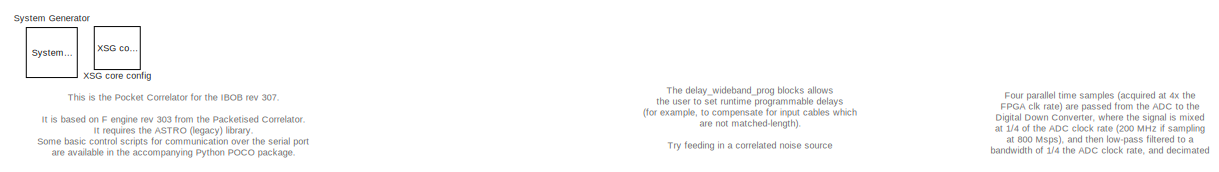
[diagram: root canvas - part 1/5, top left region]
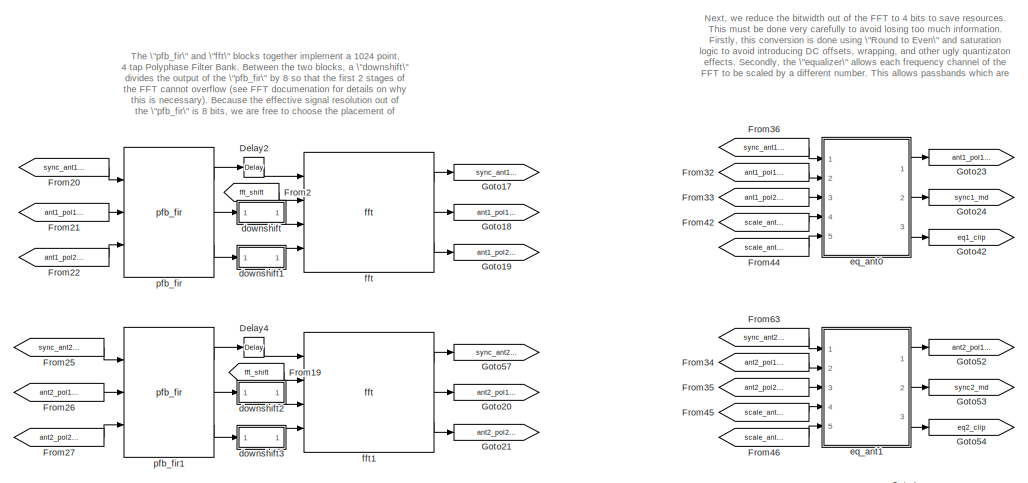
[diagram: root canvas - part 2/5, central region]
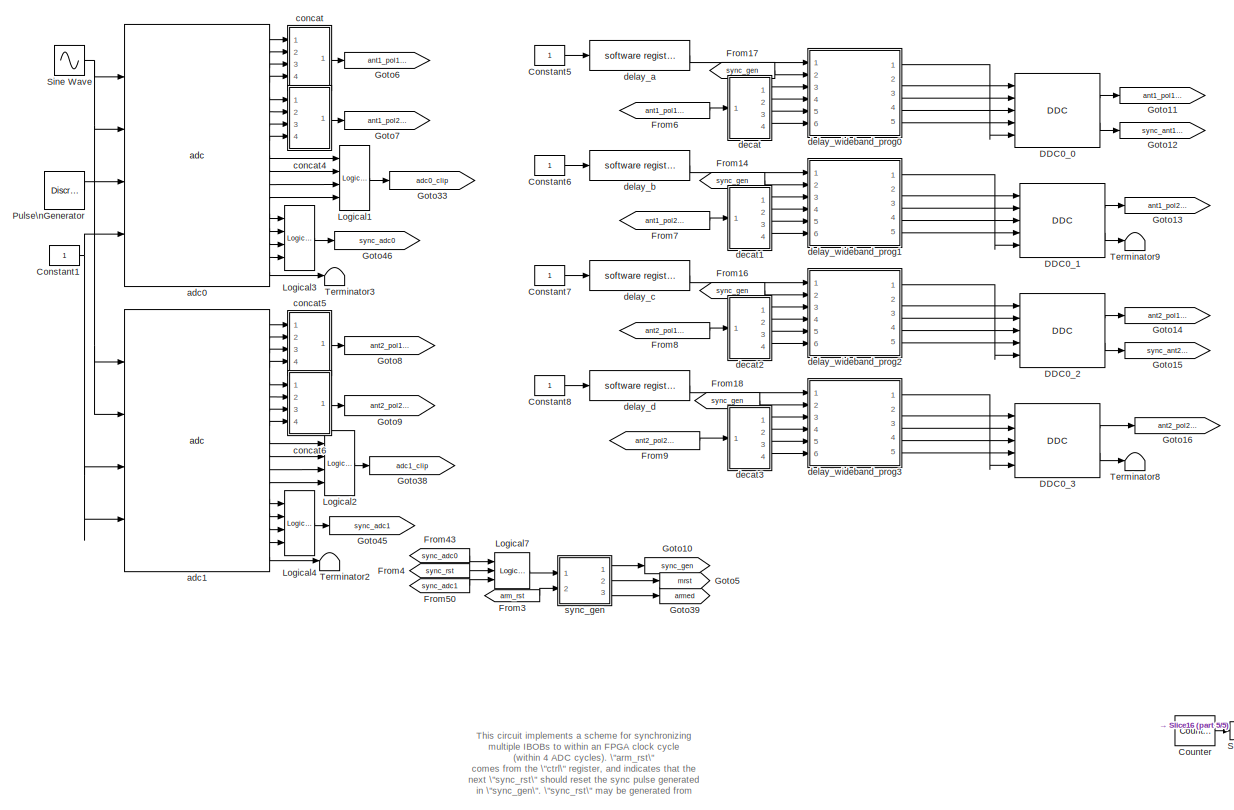
[diagram: root canvas - part 3/5, left side, full height]
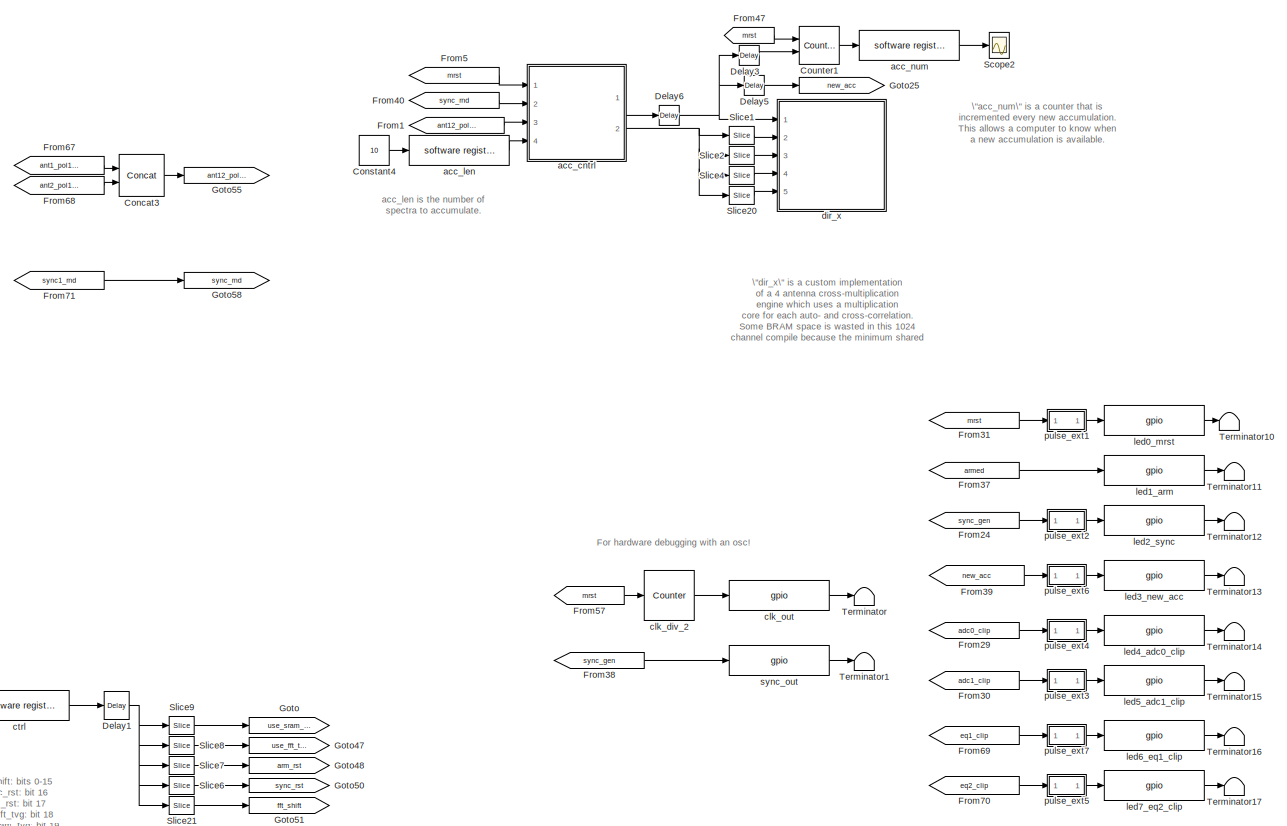
[diagram: root canvas - part 4/5, right side, full height]
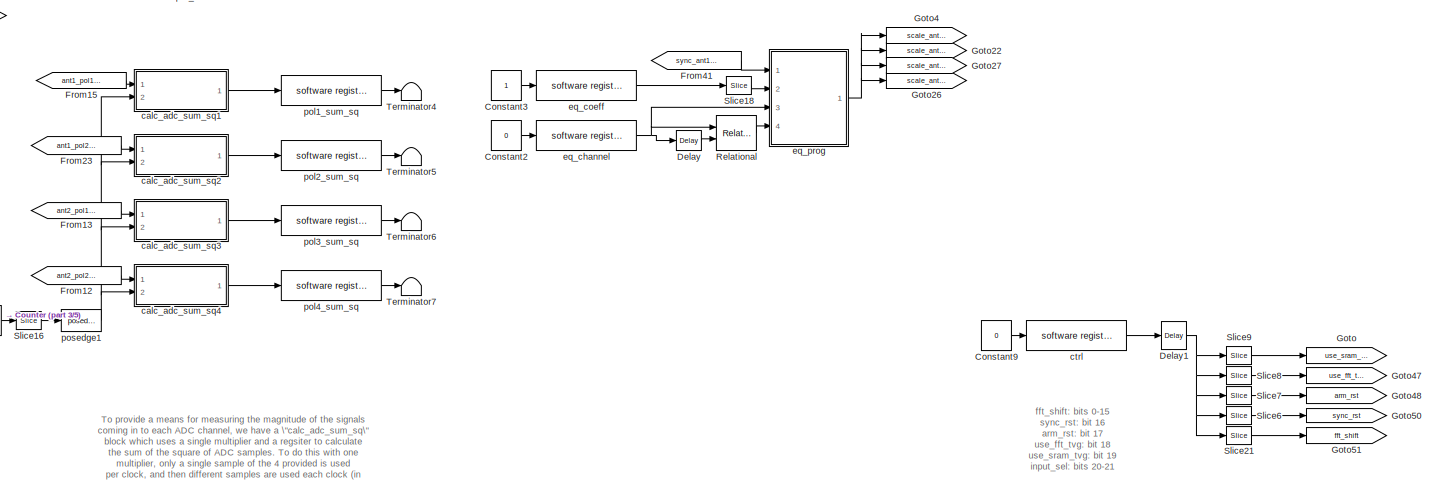
[diagram: root canvas - part 5/5, bottom center region]
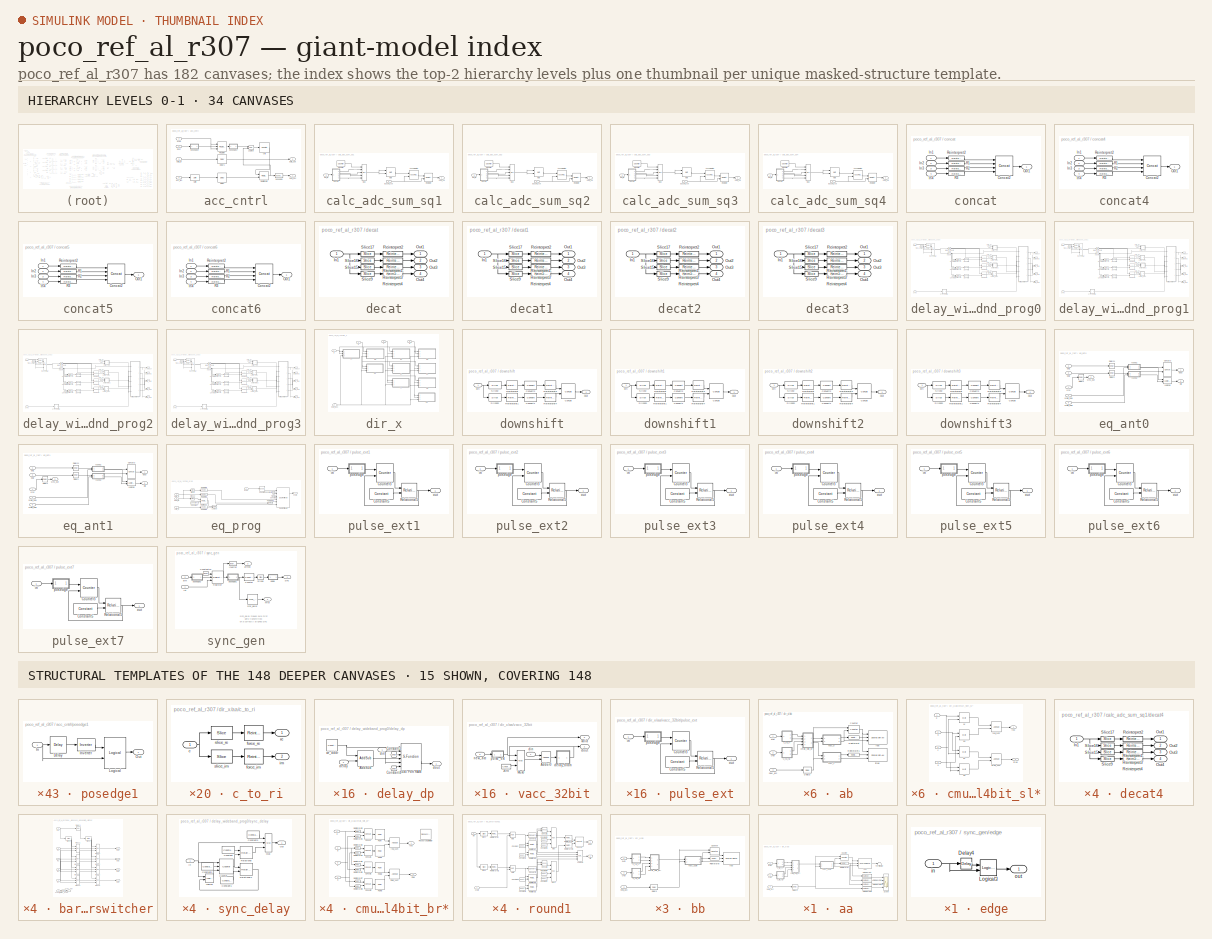
[diagram: thumbnail index - top-2 hierarchy levels (34 canvases) + 15 structural-template representatives of the remaining 148 canvases]
MODEL poco_ref_al_r307
KIND model
BLOCK [Reference]  System Generator  REF=xbsIndex_r3/ System Generator
  AttributesFormatString = System\\nGenerator
  Ports = []
  ShowPortLabels = on
  SourceBlock = xbsIndex_r3/ System Generator
  SourceType = Xilinx System Generator
  Tag = genX
  UserData = DataTag0
  UserDataPersistent = on
  core_generation = According to Block Masks
  dbl_ovrd = According to Block Masks
  deprecated_control = off
  directory = ./poco_ref_al_r307/sysgen
  eval_field = 0
  incr_netlist = off
  package = ff1152
  part = xc2vp50
  run_coregen = off
  simulink_period = 1
  speed = -7
  synthesis_tool = XST
  sysclk_period = 6.6225
  testbench = off
  trim_vbits = Everywhere in SubSystem
  xilinxfamily = Virtex2P
BLOCK [Reference] Concat3  REF=xbsIndex_r3/Concat
  Ports = [2, 1]
  SourceBlock = xbsIndex_r3/Concat
  SourceType = Xilinx Bus Concatenator
  dbl_ovrd = off
  explicit_period = off
  num_inputs = 2
  period = 1
BLOCK [Constant] Constant1
BLOCK [Constant] Constant2
  Value = 0
BLOCK [Constant] Constant3
BLOCK [Constant] Constant4
  Value = 10
BLOCK [Constant] Constant5
BLOCK [Constant] Constant6
BLOCK [Constant] Constant7
BLOCK [Constant] Constant8
BLOCK [Constant] Constant9
  Value = 0
BLOCK [Reference] Counter  REF=xbsIndex_r3/Counter
  Ports = [0, 1]
  SourceBlock = xbsIndex_r3/Counter
  SourceType = Xilinx Counter Block
  arith_type = Unsigned
  bin_pt = 0
  cnt_by_val = 1
  cnt_to = Inf
  cnt_type = Free Running
  dbl_ovrd = off
  en = off
  explicit_period = off
  gen_core = off
  load_pin = off
  n_bits = 16
  operation = Up
  period = 1
  rst = off
  show_param = off
  start_count = 0
  use_rpm = on
  xl_area = [0, 0, 0, 0, 0, 0, 0]
  xl_use_area = off
BLOCK [Reference] Counter1  REF=xbsIndex_r3/Counter
  Ports = [2, 1]
  SourceBlock = xbsIndex_r3/Counter
  SourceType = Xilinx Counter Block
  arith_type = Unsigned
  bin_pt = 0
  cnt_by_val = 1
  cnt_to = Inf
  cnt_type = Free Running
  dbl_ovrd = off
  en = on
  explicit_period = off
  gen_core = off
  load_pin = off
  n_bits = 32
  operation = Up
  period = 1
  rst = on
  show_param = off
  start_count = 0
  use_rpm = on
  xl_area = [0, 0, 0, 0, 0, 0, 0]
  xl_use_area = off
BLOCK [Reference] DDC0_0  REF=ddc_library/DDC  (lib defined in mdl_423f3fd48bb0)
  BitWidthOut = 8
  Ports = [5, 2]
  ShowPortLabels = on
  SourceBlock = ddc_library/DDC
  SourceType = DDC
  UserData = DataTag1
  UserDataPersistent = on
  add_latency = 1
  freq_div = 4
  lo_bitwidth = 8
  lo_freq = 1
  lpfir_coeff = .9 * [-0.0161   -0.0428   -0.0504   -0.0249    0.0354    0.1170    0.1948    0.2422    0.2422    0.1948    0.1170  0.0354   -0.0249   -0.0504   -0.0428   -0.0161]
  mult_latency = 2
  num_inputs = 4
  quantization = Round  (unbiased: Even Values)
BLOCK [Reference] DDC0_1  REF=ddc_library/DDC  (lib defined in mdl_423f3fd48bb0)
  BitWidthOut = 8
  Ports = [5, 2]
  ShowPortLabels = on
  SourceBlock = ddc_library/DDC
  SourceType = DDC
  UserData = DataTag2
  UserDataPersistent = on
  add_latency = 1
  freq_div = 4
  lo_bitwidth = 8
  lo_freq = 1
  lpfir_coeff = .9 * [-0.0161   -0.0428   -0.0504   -0.0249    0.0354    0.1170    0.1948    0.2422    0.2422    0.1948    0.1170  0.0354   -0.0249   -0.0504   -0.0428   -0.0161]
  mult_latency = 2
  num_inputs = 4
  quantization = Round  (unbiased: Even Values)
BLOCK [Reference] DDC0_2  REF=ddc_library/DDC  (lib defined in mdl_423f3fd48bb0)
  BitWidthOut = 8
  Ports = [5, 2]
  ShowPortLabels = on
  SourceBlock = ddc_library/DDC
  SourceType = DDC
  UserData = DataTag3
  UserDataPersistent = on
  add_latency = 1
  freq_div = 4
  lo_bitwidth = 8
  lo_freq = 1
  lpfir_coeff = .9 * [-0.0161   -0.0428   -0.0504   -0.0249    0.0354    0.1170    0.1948    0.2422    0.2422    0.1948    0.1170  0.0354   -0.0249   -0.0504   -0.0428   -0.0161]
  mult_latency = 2
  num_inputs = 4
  quantization = Round  (unbiased: Even Values)
BLOCK [Reference] DDC0_3  REF=ddc_library/DDC  (lib defined in mdl_423f3fd48bb0)
  BitWidthOut = 8
  Ports = [5, 2]
  ShowPortLabels = on
  SourceBlock = ddc_library/DDC
  SourceType = DDC
  UserData = DataTag4
  UserDataPersistent = on
  add_latency = 1
  freq_div = 4
  lo_bitwidth = 8
  lo_freq = 1
  lpfir_coeff = .9 * [-0.0161   -0.0428   -0.0504   -0.0249    0.0354    0.1170    0.1948    0.2422    0.2422    0.1948    0.1170  0.0354   -0.0249   -0.0504   -0.0428   -0.0161]
  mult_latency = 2
  num_inputs = 4
  quantization = Round  (unbiased: Even Values)
BLOCK [Reference] Delay  REF=xbsIndex_r3/Delay
  Ports = [1, 1]
  SourceBlock = xbsIndex_r3/Delay
  SourceType = Xilinx Delay Block
  accept_only_valid = off
  dbl_ovrd = off
  en = off
  explicit_period = off
  init_zero = on
  latency = 1
  period = 1
  reg_retiming = on
  show_param = off
  xl_area = [0, 0, 0, 0, 0, 0, 0]
  xl_use_area = off
BLOCK [Reference] Delay1  REF=xbsIndex_r3/Delay
  Ports = [1, 1]
  SourceBlock = xbsIndex_r3/Delay
  SourceType = Xilinx Delay Block
  accept_only_valid = off
  dbl_ovrd = off
  en = off
  explicit_period = off
  init_zero = on
  latency = 1
  period = 1
  reg_retiming = off
  show_param = off
  xl_area = [0, 0, 0, 0, 0, 0, 0]
  xl_use_area = off
BLOCK [Reference] Delay2  REF=xbsIndex_r3/Delay
  Ports = [1, 1]
  SourceBlock = xbsIndex_r3/Delay
  SourceType = Xilinx Delay Block
  accept_only_valid = off
  dbl_ovrd = off
  en = off
  explicit_period = off
  init_zero = on
  latency = 2
  period = 1
  reg_retiming = off
  show_param = off
  xl_area = [0, 0, 0, 0, 0, 0, 0]
  xl_use_area = off
BLOCK [Reference] Delay3  REF=xbsIndex_r3/Delay
  Ports = [1, 1]
  SourceBlock = xbsIndex_r3/Delay
  SourceType = Xilinx Delay Block
  accept_only_valid = off
  dbl_ovrd = off
  en = off
  explicit_period = off
  init_zero = on
  latency = 4
  period = 1
  reg_retiming = on
  show_param = off
  xl_area = [0, 0, 0, 0, 0, 0, 0]
  xl_use_area = off
BLOCK [Reference] Delay4  REF=xbsIndex_r3/Delay
  Ports = [1, 1]
  SourceBlock = xbsIndex_r3/Delay
  SourceType = Xilinx Delay Block
  accept_only_valid = off
  dbl_ovrd = off
  en = off
  explicit_period = off
  init_zero = on
  latency = 2
  period = 1
  reg_retiming = off
  show_param = off
  xl_area = [0, 0, 0, 0, 0, 0, 0]
  xl_use_area = off
BLOCK [Reference] Delay5  REF=xbsIndex_r3/Delay
  Ports = [1, 1]
  SourceBlock = xbsIndex_r3/Delay
  SourceType = Xilinx Delay Block
  accept_only_valid = off
  dbl_ovrd = off
  en = off
  explicit_period = off
  init_zero = on
  latency = 2
  period = 1
  reg_retiming = on
  show_param = off
  xl_area = [0, 0, 0, 0, 0, 0, 0]
  xl_use_area = off
BLOCK [Reference] Delay6  REF=xbsIndex_r3/Delay
  Ports = [1, 1]
  SourceBlock = xbsIndex_r3/Delay
  SourceType = Xilinx Delay Block
  accept_only_valid = off
  dbl_ovrd = off
  en = off
  explicit_period = off
  init_zero = on
  latency = 1
  period = 1
  reg_retiming = on
  show_param = off
  xl_area = [0, 0, 0, 0, 0, 0, 0]
  xl_use_area = off
BLOCK [From] From1
  CloseFcn = tagdialog Close
  GotoTag = ant12_pol12_rnd
BLOCK [From] From12
  CloseFcn = tagdialog Close
  GotoTag = ant2_pol2_adc
BLOCK [From] From13
  CloseFcn = tagdialog Close
  GotoTag = ant2_pol1_adc
BLOCK [From] From14
  CloseFcn = tagdialog Close
  GotoTag = sync_gen
BLOCK [From] From15
  CloseFcn = tagdialog Close
  GotoTag = ant1_pol1_adc
BLOCK [From] From16
  CloseFcn = tagdialog Close
  GotoTag = sync_gen
BLOCK [From] From17
  CloseFcn = tagdialog Close
  GotoTag = sync_gen
BLOCK [From] From18
  CloseFcn = tagdialog Close
  GotoTag = sync_gen
BLOCK [From] From19
  CloseFcn = tagdialog Close
  GotoTag = fft_shift
BLOCK [From] From2
  CloseFcn = tagdialog Close
  GotoTag = fft_shift
BLOCK [From] From20
  CloseFcn = tagdialog Close
  GotoTag = sync_ant1_ddc
BLOCK [From] From21
  CloseFcn = tagdialog Close
  GotoTag = ant1_pol1_ddc
BLOCK [From] From22
  CloseFcn = tagdialog Close
  GotoTag = ant1_pol2_ddc
BLOCK [From] From23
  CloseFcn = tagdialog Close
  GotoTag = ant1_pol2_adc
BLOCK [From] From24
  CloseFcn = tagdialog Close
  GotoTag = sync_gen
BLOCK [From] From25
  CloseFcn = tagdialog Close
  GotoTag = sync_ant2_ddc
BLOCK [From] From26
  CloseFcn = tagdialog Close
  GotoTag = ant2_pol1_ddc
BLOCK [From] From27
  CloseFcn = tagdialog Close
  GotoTag = ant2_pol2_ddc
BLOCK [From] From29
  CloseFcn = tagdialog Close
  GotoTag = adc0_clip
BLOCK [From] From3
  CloseFcn = tagdialog Close
  GotoTag = arm_rst
BLOCK [From] From30
  CloseFcn = tagdialog Close
  GotoTag = adc1_clip
BLOCK [From] From31
  CloseFcn = tagdialog Close
  GotoTag = mrst
BLOCK [From] From32
  CloseFcn = tagdialog Close
  GotoTag = ant1_pol1_fft
BLOCK [From] From33
  CloseFcn = tagdialog Close
  GotoTag = ant1_pol2_fft
BLOCK [From] From34
  CloseFcn = tagdialog Close
  GotoTag = ant2_pol1_fft
BLOCK [From] From35
  CloseFcn = tagdialog Close
  GotoTag = ant2_pol2_fft
BLOCK [From] From36
  CloseFcn = tagdialog Close
  GotoTag = sync_ant1_fft
BLOCK [From] From37
  CloseFcn = tagdialog Close
  GotoTag = armed
BLOCK [From] From38
  CloseFcn = tagdialog Close
  GotoTag = sync_gen
BLOCK [From] From39
  CloseFcn = tagdialog Close
  GotoTag = new_acc
BLOCK [From] From4
  CloseFcn = tagdialog Close
  GotoTag = sync_rst
BLOCK [From] From40
  CloseFcn = tagdialog Close
  GotoTag = sync_rnd
BLOCK [From] From41
  CloseFcn = tagdialog Close
  GotoTag = sync_ant1_fft
BLOCK [From] From42
  CloseFcn = tagdialog Close
  GotoTag = scale_ant1_pol1
BLOCK [From] From43
  CloseFcn = tagdialog Close
  GotoTag = sync_adc0
BLOCK [From] From44
  CloseFcn = tagdialog Close
  GotoTag = scale_ant1_pol2
BLOCK [From] From45
  CloseFcn = tagdialog Close
  GotoTag = scale_ant2_pol1
BLOCK [From] From46
  CloseFcn = tagdialog Close
  GotoTag = scale_ant2_pol2
BLOCK [From] From47
  CloseFcn = tagdialog Close
  GotoTag = mrst
BLOCK [From] From5
  CloseFcn = tagdialog Close
  GotoTag = mrst
BLOCK [From] From50
  CloseFcn = tagdialog Close
  GotoTag = sync_adc1
BLOCK [From] From57
  CloseFcn = tagdialog Close
  GotoTag = mrst
BLOCK [From] From6
  CloseFcn = tagdialog Close
  GotoTag = ant1_pol1_adc
BLOCK [From] From63
  CloseFcn = tagdialog Close
  GotoTag = sync_ant2_fft
BLOCK [From] From67
  CloseFcn = tagdialog Close
  GotoTag = ant1_pol12_rnd
BLOCK [From] From68
  CloseFcn = tagdialog Close
  GotoTag = ant2_pol12_rnd
BLOCK [From] From69
  CloseFcn = tagdialog Close
  GotoTag = eq1_clip
BLOCK [From] From7
  CloseFcn = tagdialog Close
  GotoTag = ant1_pol2_adc
BLOCK [From] From70
  CloseFcn = tagdialog Close
  GotoTag = eq2_clip
BLOCK [From] From71
  CloseFcn = tagdialog Close
  GotoTag = sync1_rnd
BLOCK [From] From8
  CloseFcn = tagdialog Close
  GotoTag = ant2_pol1_adc
BLOCK [From] From9
  CloseFcn = tagdialog Close
  GotoTag = ant2_pol2_adc
BLOCK [Goto] Goto
  GotoTag = use_sram_tvg
  TagVisibility = local
BLOCK [Goto] Goto10
  GotoTag = sync_gen
  TagVisibility = local
BLOCK [Goto] Goto11
  GotoTag = ant1_pol1_ddc
  TagVisibility = local
BLOCK [Goto] Goto12
  GotoTag = sync_ant1_ddc
  TagVisibility = local
BLOCK [Goto] Goto13
  GotoTag = ant1_pol2_ddc
  TagVisibility = local
BLOCK [Goto] Goto14
  GotoTag = ant2_pol1_ddc
  TagVisibility = local
BLOCK [Goto] Goto15
  GotoTag = sync_ant2_ddc
  TagVisibility = local
BLOCK [Goto] Goto16
  GotoTag = ant2_pol2_ddc
  TagVisibility = local
BLOCK [Goto] Goto17
  GotoTag = sync_ant1_fft
  TagVisibility = local
BLOCK [Goto] Goto18
  GotoTag = ant1_pol1_fft
  TagVisibility = local
BLOCK [Goto] Goto19
  GotoTag = ant1_pol2_fft
  TagVisibility = local
BLOCK [Goto] Goto20
  GotoTag = ant2_pol1_fft
  TagVisibility = local
BLOCK [Goto] Goto21
  GotoTag = ant2_pol2_fft
  TagVisibility = local
BLOCK [Goto] Goto22
  GotoTag = scale_ant1_pol2
  TagVisibility = local
BLOCK [Goto] Goto23
  GotoTag = ant1_pol12_rnd
  TagVisibility = local
BLOCK [Goto] Goto24
  GotoTag = sync1_rnd
  TagVisibility = local
BLOCK [Goto] Goto25
  GotoTag = new_acc
  TagVisibility = local
BLOCK [Goto] Goto26
  GotoTag = scale_ant2_pol2
  TagVisibility = local
BLOCK [Goto] Goto27
  GotoTag = scale_ant2_pol1
  TagVisibility = local
BLOCK [Goto] Goto33
  GotoTag = adc0_clip
  TagVisibility = local
BLOCK [Goto] Goto38
  GotoTag = adc1_clip
  TagVisibility = local
BLOCK [Goto] Goto39
  GotoTag = armed
  TagVisibility = local
BLOCK [Goto] Goto4
  GotoTag = scale_ant1_pol1
  TagVisibility = local
BLOCK [Goto] Goto42
  GotoTag = eq1_clip
  TagVisibility = local
BLOCK [Goto] Goto45
  GotoTag = sync_adc1
  TagVisibility = local
BLOCK [Goto] Goto46
  GotoTag = sync_adc0
  TagVisibility = local
BLOCK [Goto] Goto47
  GotoTag = use_fft_tvg
  TagVisibility = local
BLOCK [Goto] Goto48
  GotoTag = arm_rst
  TagVisibility = local
BLOCK [Goto] Goto5
  GotoTag = mrst
  TagVisibility = local
BLOCK [Goto] Goto50
  GotoTag = sync_rst
  TagVisibility = local
BLOCK [Goto] Goto51
  GotoTag = fft_shift
  TagVisibility = local
BLOCK [Goto] Goto52
  GotoTag = ant2_pol12_rnd
  TagVisibility = local
BLOCK [Goto] Goto53
  GotoTag = sync2_rnd
  TagVisibility = local
BLOCK [Goto] Goto54
  GotoTag = eq2_clip
  TagVisibility = local
BLOCK [Goto] Goto55
  GotoTag = ant12_pol12_rnd
  TagVisibility = local
BLOCK [Goto] Goto57
  GotoTag = sync_ant2_fft
  TagVisibility = local
BLOCK [Goto] Goto58
  GotoTag = sync_rnd
  TagVisibility = local
BLOCK [Goto] Goto6
  GotoTag = ant1_pol1_adc
  TagVisibility = local
BLOCK [Goto] Goto7
  GotoTag = ant1_pol2_adc
  TagVisibility = local
BLOCK [Goto] Goto8
  GotoTag = ant2_pol1_adc
  TagVisibility = local
BLOCK [Goto] Goto9
  GotoTag = ant2_pol2_adc
  TagVisibility = local
BLOCK [Reference] Logical1  REF=xbsIndex_r3/Logical
  Ports = [4, 1]
  SourceBlock = xbsIndex_r3/Logical
  SourceType = Xilinx Logical Block
  align_bp = on
  arith_type = Unsigned
  bin_pt = 2
  dbl_ovrd = off
  en = off
  explicit_period = off
  inputs = 4
  latency = 1
  logical_function = OR
  n_bits = 8
  period = 1
  precision = Full
  show_param = off
  xl_area = [0, 0, 0, 0, 0, 0, 0]
  xl_use_area = off
BLOCK [Reference] Logical2  REF=xbsIndex_r3/Logical
  Ports = [4, 1]
  SourceBlock = xbsIndex_r3/Logical
  SourceType = Xilinx Logical Block
  align_bp = on
  arith_type = Unsigned
  bin_pt = 2
  dbl_ovrd = off
  en = off
  explicit_period = off
  inputs = 4
  latency = 1
  logical_function = OR
  n_bits = 8
  period = 1
  precision = Full
  show_param = off
  xl_area = [0, 0, 0, 0, 0, 0, 0]
  xl_use_area = off
BLOCK [Reference] Logical3  REF=xbsIndex_r3/Logical
  Ports = [4, 1]
  SourceBlock = xbsIndex_r3/Logical
  SourceType = Xilinx Logical Block
  align_bp = on
  arith_type = Unsigned
  bin_pt = 2
  dbl_ovrd = off
  en = off
  explicit_period = off
  inputs = 4
  latency = 1
  logical_function = OR
  n_bits = 8
  period = 1
  precision = Full
  show_param = off
  xl_area = [0, 0, 0, 0, 0, 0, 0]
  xl_use_area = off
BLOCK [Reference] Logical4  REF=xbsIndex_r3/Logical
  Ports = [4, 1]
  SourceBlock = xbsIndex_r3/Logical
  SourceType = Xilinx Logical Block
  align_bp = on
  arith_type = Unsigned
  bin_pt = 2
  dbl_ovrd = off
  en = off
  explicit_period = off
  inputs = 4
  latency = 1
  logical_function = OR
  n_bits = 8
  period = 1
  precision = Full
  show_param = off
  xl_area = [0, 0, 0, 0, 0, 0, 0]
  xl_use_area = off
BLOCK [Reference] Logical7  REF=xbsIndex_r3/Logical
  Ports = [3, 1]
  SourceBlock = xbsIndex_r3/Logical
  SourceType = Xilinx Logical Block
  align_bp = on
  arith_type = Unsigned
  bin_pt = 2
  dbl_ovrd = off
  en = off
  explicit_period = off
  inputs = 3
  latency = 1
  logical_function = OR
  n_bits = 8
  period = 1
  precision = Full
  show_param = off
  xl_area = [0, 0, 0, 0, 0, 0, 0]
  xl_use_area = off
BLOCK [DiscretePulseGenerator] Pulse\nGenerator
  Period = 2^27
  Ports = [0, 1]
BLOCK [Reference] Relational  REF=xbsIndex_r3/Relational
  Ports = [2, 1]
  SourceBlock = xbsIndex_r3/Relational
  SourceType = Xilinx Relational Block
  dbl_ovrd = off
  en = off
  explicit_period = off
  latency = 0
  mode = a!=b
  period = 1
  show_param = off
  xl_area = [0, 0, 0, 0, 0, 0, 0]
  xl_use_area = off
BLOCK [Scope] Scope2
  DataFormat = StructureWithTime
  LimitDataPoints = off
  NumInputPorts = 1
  Ports = [1]
  SaveName = ScopeData5
  YMax = 3
  YMin = 3
BLOCK [Sin] Sine Wave
  Amplitude = 0.9
  Ports = [0, 1]
  SampleTime = 0.125
  Samples = 7
  SineType = Sample based
BLOCK [Reference] Slice1  REF=xbsIndex_r3/Slice
  Ports = [1, 1]
  SourceBlock = xbsIndex_r3/Slice
  SourceType = Xilinx Slice Block
  base0 = LSB of Input
  base1 = MSB of Input
  bit0 = 24
  bit1 = 0
  boolean_output = off
  dbl_ovrd = off
  explicit_period = off
  mode = Lower Bit Location + Width
  nbits = 8
  period = 1
BLOCK [Reference] Slice16  REF=xbsIndex_r3/Slice
  Ports = [1, 1]
  SourceBlock = xbsIndex_r3/Slice
  SourceType = Xilinx Slice Block
  base0 = LSB of Input
  base1 = MSB of Input
  bit0 = 19
  bit1 = 0
  boolean_output = on
  dbl_ovrd = off
  explicit_period = off
  mode = Upper Bit Location + Width
  nbits = 1
  period = 1
BLOCK [Reference] Slice18  REF=xbsIndex_r3/Slice
  Ports = [1, 1]
  SourceBlock = xbsIndex_r3/Slice
  SourceType = Xilinx Slice Block
  base0 = LSB of Input
  base1 = MSB of Input
  bit0 = 0
  bit1 = 0
  boolean_output = off
  dbl_ovrd = off
  explicit_period = off
  mode = Lower Bit Location + Width
  nbits = 16
  period = 1
BLOCK [Reference] Slice2  REF=xbsIndex_r3/Slice
  Ports = [1, 1]
  SourceBlock = xbsIndex_r3/Slice
  SourceType = Xilinx Slice Block
  base0 = LSB of Input
  base1 = MSB of Input
  bit0 = 16
  bit1 = 0
  boolean_output = off
  dbl_ovrd = off
  explicit_period = off
  mode = Lower Bit Location + Width
  nbits = 8
  period = 1
BLOCK [Reference] Slice20  REF=xbsIndex_r3/Slice
  Ports = [1, 1]
  SourceBlock = xbsIndex_r3/Slice
  SourceType = Xilinx Slice Block
  base0 = LSB of Input
  base1 = MSB of Input
  bit0 = 0
  bit1 = 0
  boolean_output = off
  dbl_ovrd = off
  explicit_period = off
  mode = Lower Bit Location + Width
  nbits = 8
  period = 1
BLOCK [Reference] Slice21  REF=xbsIndex_r3/Slice
  Ports = [1, 1]
  SourceBlock = xbsIndex_r3/Slice
  SourceType = Xilinx Slice Block
  base0 = LSB of Input
  base1 = MSB of Input
  bit0 = 0
  bit1 = 0
  boolean_output = off
  dbl_ovrd = off
  explicit_period = off
  mode = Lower Bit Location + Width
  nbits = 16
  period = 1
BLOCK [Reference] Slice4  REF=xbsIndex_r3/Slice
  Ports = [1, 1]
  SourceBlock = xbsIndex_r3/Slice
  SourceType = Xilinx Slice Block
  base0 = LSB of Input
  base1 = MSB of Input
  bit0 = 8
  bit1 = 0
  boolean_output = off
  dbl_ovrd = off
  explicit_period = off
  mode = Lower Bit Location + Width
  nbits = 8
  period = 1
BLOCK [Reference] Slice6  REF=xbsIndex_r3/Slice
  Ports = [1, 1]
  SourceBlock = xbsIndex_r3/Slice
  SourceType = Xilinx Slice Block
  base0 = LSB of Input
  base1 = MSB of Input
  bit0 = 16
  bit1 = 0
  boolean_output = on
  dbl_ovrd = off
  explicit_period = off
  mode = Lower Bit Location + Width
  nbits = 1
  period = 1
BLOCK [Reference] Slice7  REF=xbsIndex_r3/Slice
  Ports = [1, 1]
  SourceBlock = xbsIndex_r3/Slice
  SourceType = Xilinx Slice Block
  base0 = LSB of Input
  base1 = MSB of Input
  bit0 = 17
  bit1 = 0
  boolean_output = on
  dbl_ovrd = off
  explicit_period = off
  mode = Lower Bit Location + Width
  nbits = 1
  period = 1
BLOCK [Reference] Slice8  REF=xbsIndex_r3/Slice
  Ports = [1, 1]
  SourceBlock = xbsIndex_r3/Slice
  SourceType = Xilinx Slice Block
  base0 = LSB of Input
  base1 = MSB of Input
  bit0 = 18
  bit1 = 0
  boolean_output = off
  dbl_ovrd = off
  explicit_period = off
  mode = Lower Bit Location + Width
  nbits = 1
  period = 1
BLOCK [Reference] Slice9  REF=xbsIndex_r3/Slice
  Ports = [1, 1]
  SourceBlock = xbsIndex_r3/Slice
  SourceType = Xilinx Slice Block
  base0 = LSB of Input
  base1 = MSB of Input
  bit0 = 19
  bit1 = 0
  boolean_output = off
  dbl_ovrd = off
  explicit_period = off
  mode = Lower Bit Location + Width
  nbits = 1
  period = 1
BLOCK [Terminator] Terminator
BLOCK [Terminator] Terminator1
BLOCK [Terminator] Terminator10
BLOCK [Terminator] Terminator11
BLOCK [Terminator] Terminator12
BLOCK [Terminator] Terminator13
BLOCK [Terminator] Terminator14
BLOCK [Terminator] Terminator15
BLOCK [Terminator] Terminator16
BLOCK [Terminator] Terminator17
BLOCK [Terminator] Terminator2
BLOCK [Terminator] Terminator3
BLOCK [Terminator] Terminator4
BLOCK [Terminator] Terminator5
BLOCK [Terminator] Terminator6
BLOCK [Terminator] Terminator7
BLOCK [Terminator] Terminator8
BLOCK [Terminator] Terminator9
BLOCK [Reference] XSG core config  REF=xps_library/XSG core config  (lib defined in mdl_00b5cec29cd0, mdl_02ab6ecaa3d1, +5 more)
  Ports = []
  ShowPortLabels = on
  SourceBlock = xps_library/XSG core config
  SourceType = xsg core config
  Tag = xps:xsg
  clk_rate = 151
  clk_src = adc0_clk
  gpio_clk_bit_index = 0
  gpio_clk_io_group = iBOB:sma
  hw_sys = iBOB
  ibob_linux = off
  mpc_type = powerpc405
  sample_period = 1
  synthesis_tool = XST
BLOCK [SubSystem] acc_cntrl
  MaskEnableString = on
  MaskIconFrame = on
  MaskIconOpaque = on
  MaskIconRotate = none
  MaskIconUnits = autoscale
  MaskPromptString = Number of Channels (2^?)
  MaskStyleString = edit
  MaskToolTipString = on
  MaskTunableValueString = on
  MaskValueString = 10
  MaskVariables = chan_bits=@1;
  MaskVisibilityString = on
  MinAlgLoopOccurrences = off
  Ports = [4, 2]
  RTWSystemCode = Auto
  TreatAsAtomicUnit = off
BLOCK [Reference] acc_cntrl/Delay  REF=xbsIndex_r3/Delay
  Ports = [1, 1]
  SourceBlock = xbsIndex_r3/Delay
  SourceType = Xilinx Delay Block
  accept_only_valid = off
  dbl_ovrd = off
  en = off
  explicit_period = off
  init_zero = on
  latency = 1
  period = 1
  reg_retiming = on
  show_param = off
  xl_area = [0, 0, 0, 0, 0, 0, 0]
  xl_use_area = off
BLOCK [Reference] acc_cntrl/Delay1  REF=xbsIndex_r3/Delay
  Ports = [1, 1]
  SourceBlock = xbsIndex_r3/Delay
  SourceType = Xilinx Delay Block
  accept_only_valid = off
  dbl_ovrd = off
  en = off
  explicit_period = off
  init_zero = on
  latency = 1
  period = 1
  reg_retiming = on
  show_param = off
  xl_area = [0, 0, 0, 0, 0, 0, 0]
  xl_use_area = off
BLOCK [Reference] acc_cntrl/Logical  REF=xbsIndex_r3/Logical
  Ports = [2, 1]
  SourceBlock = xbsIndex_r3/Logical
  SourceType = Xilinx Logical Block
  align_bp = on
  arith_type = Unsigned
  bin_pt = 2
  dbl_ovrd = off
  en = off
  explicit_period = off
  inputs = 2
  latency = 0
  logical_function = OR
  n_bits = 8
  period = 1
  precision = Full
  show_param = off
  xl_area = [0, 0, 0, 0, 0, 0, 0]
  xl_use_area = off
BLOCK [Reference] acc_cntrl/Register  REF=xbsIndex_r3/Register
  Ports = [3, 1]
  SourceBlock = xbsIndex_r3/Register
  SourceType = Xilinx Register Block
  dbl_ovrd = off
  en = on
  explicit_period = off
  init = 0
  out_en = off
  period = 1
  reg_only_valid = off
  rst = on
  show_param = off
  xl_area = [0, 0, 0, 0, 0, 0, 0]
  xl_use_area = off
BLOCK [Reference] acc_cntrl/Relational5  REF=xbsIndex_r3/Relational
  Ports = [2, 1]
  SourceBlock = xbsIndex_r3/Relational
  SourceType = Xilinx Relational Block
  dbl_ovrd = off
  en = off
  explicit_period = on
  latency = 0
  mode = a>=b
  period = 1
  show_param = off
  xl_area = [0, 0, 0, 0, 0, 0, 0]
  xl_use_area = off
BLOCK [Reference] acc_cntrl/Shift  REF=xbsIndex_r3/Shift
  Ports = [1, 1]
  SourceBlock = xbsIndex_r3/Shift
  SourceType = Xilinx Shift Block
  arith_type = Signed  (2's comp)
  bin_pt = 2
  dbl_ovrd = off
  en = off
  explicit_period = off
  latency = 0
  n_bits = 8
  overflow = Wrap
  period = 1
  precision = Full
  quantization = Truncate
  shift_bits = chan_bits
  shift_dir = Left
  show_param = off
  xl_area = [0, 0, 0, 0, 0, 0, 0]
  xl_use_area = off
BLOCK [Inport] acc_cntrl/acc_len
  IconDisplay = Port number
  LatchInput = off
  Port = 4
BLOCK [Reference] acc_cntrl/cntr  REF=xbsIndex_r3/Counter
  Ports = [1, 1]
  SourceBlock = xbsIndex_r3/Counter
  SourceType = Xilinx Counter Block
  arith_type = Unsigned
  bin_pt = 0
  cnt_by_val = 1
  cnt_to = Inf
  cnt_type = Free Running
  dbl_ovrd = off
  en = off
  explicit_period = on
  gen_core = off
  load_pin = off
  n_bits = 32
  operation = Up
  period = 1
  rst = on
  show_param = off
  start_count = 1
  use_rpm = on
  xl_area = [0, 0, 0, 0, 0, 0, 0]
  xl_use_area = off
BLOCK [Inport] acc_cntrl/data_in
  IconDisplay = Port number
  LatchInput = off
  Port = 3
BLOCK [Outport] acc_cntrl/data_out
  BusOutputAsStruct = off
  IconDisplay = Port number
  Port = 2
BLOCK [Inport] acc_cntrl/mrst
  IconDisplay = Port number
  LatchInput = off
  Port = 1
BLOCK [Outport] acc_cntrl/new_acc
  BusOutputAsStruct = off
  IconDisplay = Port number
BLOCK [Reference] acc_cntrl/posedge  REF=adcscope_lib/posedge  (lib defined in mdl_e6e7a0921e57)
  Ports = [1, 1]
  ShowPortLabels = on
  SourceBlock = adcscope_lib/posedge
  Tag = Rising Edge Detector
  yummy = on
BLOCK [SubSystem] acc_cntrl/posedge1
  MinAlgLoopOccurrences = off
  Ports = [1, 1]
  RTWSystemCode = Auto
  Tag = Rising Edge Detector
  TreatAsAtomicUnit = off
BLOCK [Reference] acc_cntrl/posedge1/Delay  REF=xbsIndex_r3/Delay
  Ports = [1, 1]
  SourceBlock = xbsIndex_r3/Delay
  SourceType = Xilinx Delay Block
  accept_only_valid = off
  dbl_ovrd = off
  en = off
  explicit_period = off
  init_zero = on
  latency = 1
  period = 1
  reg_retiming = off
  show_param = off
  xl_area = [0, 0, 0, 0, 0, 0, 0]
  xl_use_area = off
BLOCK [Inport] acc_cntrl/posedge1/In
  IconDisplay = Port number
  LatchInput = off
  Port = 1
BLOCK [Reference] acc_cntrl/posedge1/Inverter  REF=xbsIndex_r3/Inverter
  Ports = [1, 1]
  SourceBlock = xbsIndex_r3/Inverter
  SourceType = Xilinx Inverter
  dbl_ovrd = off
  en = off
  explicit_period = off
  latency = 0
  period = 1
  show_param = off
  xl_area = [0, 0, 0, 0, 0, 0, 0]
  xl_use_area = off
BLOCK [Reference] acc_cntrl/posedge1/Logical  REF=xbsIndex_r3/Logical
  Ports = [2, 1]
  SourceBlock = xbsIndex_r3/Logical
  SourceType = Xilinx Logical Block
  align_bp = on
  arith_type = Unsigned
  bin_pt = 2
  dbl_ovrd = off
  en = off
  explicit_period = off
  inputs = 2
  latency = 0
  logical_function = AND
  n_bits = 8
  period = 1
  precision = Full
  show_param = off
  xl_area = [0, 0, 0, 0, 0, 0, 0]
  xl_use_area = off
BLOCK [Outport] acc_cntrl/posedge1/Out
  BusOutputAsStruct = off
  IconDisplay = Port number
BLOCK [SubSystem] acc_cntrl/posedge2
  MinAlgLoopOccurrences = off
  Ports = [1, 1]
  RTWSystemCode = Auto
  Tag = Rising Edge Detector
  TreatAsAtomicUnit = off
BLOCK [Reference] acc_cntrl/posedge2/Delay  REF=xbsIndex_r3/Delay
  Ports = [1, 1]
  SourceBlock = xbsIndex_r3/Delay
  SourceType = Xilinx Delay Block
  accept_only_valid = off
  dbl_ovrd = off
  en = off
  explicit_period = off
  init_zero = on
  latency = 1
  period = 1
  reg_retiming = off
  show_param = off
  xl_area = [0, 0, 0, 0, 0, 0, 0]
  xl_use_area = off
BLOCK [Inport] acc_cntrl/posedge2/In
  IconDisplay = Port number
  LatchInput = off
  Port = 1
BLOCK [Reference] acc_cntrl/posedge2/Inverter  REF=xbsIndex_r3/Inverter
  Ports = [1, 1]
  SourceBlock = xbsIndex_r3/Inverter
  SourceType = Xilinx Inverter
  dbl_ovrd = off
  en = off
  explicit_period = off
  latency = 0
  period = 1
  show_param = off
  xl_area = [0, 0, 0, 0, 0, 0, 0]
  xl_use_area = off
BLOCK [Reference] acc_cntrl/posedge2/Logical  REF=xbsIndex_r3/Logical
  Ports = [2, 1]
  SourceBlock = xbsIndex_r3/Logical
  SourceType = Xilinx Logical Block
  align_bp = on
  arith_type = Unsigned
  bin_pt = 2
  dbl_ovrd = off
  en = off
  explicit_period = off
  inputs = 2
  latency = 0
  logical_function = AND
  n_bits = 8
  period = 1
  precision = Full
  show_param = off
  xl_area = [0, 0, 0, 0, 0, 0, 0]
  xl_use_area = off
BLOCK [Outport] acc_cntrl/posedge2/Out
  BusOutputAsStruct = off
  IconDisplay = Port number
BLOCK [Inport] acc_cntrl/sync
  IconDisplay = Port number
  LatchInput = off
  Port = 2
BLOCK [Reference] acc_len  REF=xps_library/software register  (lib defined in mdl_00b5cec29cd0, mdl_02ab6ecaa3d1, +5 more)
  Ports = [1, 1]
  ShowPortLabels = on
  SourceBlock = xps_library/software register
  Tag = xps:sw_reg
  arith_type = Unsigned
  bin_pt = 0
  bitwidth = 32
  gw_name = poco_ref_al_r307_acc_len_user_data_out
  io_dir = From Processor
  sample_period = 1
BLOCK [Reference] acc_num  REF=xps_library/software register  (lib defined in mdl_00b5cec29cd0, mdl_02ab6ecaa3d1, +5 more)
  Ports = [1, 1]
  ShowPortLabels = on
  SourceBlock = xps_library/software register
  Tag = xps:sw_reg
  arith_type = Unsigned
  bin_pt = 0
  bitwidth = 32
  gw_name = poco_ref_al_r307_acc_num_user_data_in
  io_dir = To Processor
  sample_period = 1
BLOCK [Reference] adc0  REF=xps_library/adc  (lib defined in mdl_00b5cec29cd0, mdl_02ab6ecaa3d1, +5 more)
  Ports = [4, 17]
  ShowPortLabels = on
  SourceBlock = xps_library/adc
  SourceType = adc
  Tag = xps:adc
  adc_brd = iBOB:adc0
  adc_clk_rate = 601
  adc_interleave = off
  sample_period = 1
BLOCK [Reference] adc1  REF=xps_library/adc  (lib defined in mdl_00b5cec29cd0, mdl_02ab6ecaa3d1, +5 more)
  Ports = [4, 17]
  ShowPortLabels = on
  SourceBlock = xps_library/adc
  SourceType = adc
  Tag = xps:adc
  adc_brd = iBOB:adc1
  adc_clk_rate = 601
  adc_interleave = off
  sample_period = 1
BLOCK [SubSystem] calc_adc_sum_sq1
  MaskIconFrame = on
  MaskIconOpaque = on
  MaskIconRotate = none
  MaskIconUnits = autoscale
  MaskValueString = 3|2
  MinAlgLoopOccurrences = off
  Ports = [2, 1]
  RTWSystemCode = Auto
  TreatAsAtomicUnit = off
BLOCK [Reference] calc_adc_sum_sq1/Accumulator  REF=xbsIndex_r3/Accumulator
  Ports = [2, 1]
  SourceBlock = xbsIndex_r3/Accumulator
  SourceType = Xilinx Accumulator
  dbl_ovrd = off
  en = off
  explicit_period = off
  gen_core = off
  hasbypass = off
  n_bits = 32
  operation = Add
  overflow = Wrap
  period = 1
  rst = on
  scale = 1
  show_param = off
  use_rpm = on
  xl_area = [0, 0, 0, 0, 0, 0, 0]
  xl_use_area = off
BLOCK [Reference] calc_adc_sum_sq1/Counter  REF=xbsIndex_r3/Counter
  Ports = [0, 1]
  SourceBlock = xbsIndex_r3/Counter
  SourceType = Xilinx Counter Block
  arith_type = Unsigned
  bin_pt = 0
  cnt_by_val = 1
  cnt_to = Inf
  cnt_type = Free Running
  dbl_ovrd = off
  en = off
  explicit_period = off
  gen_core = off
  load_pin = off
  n_bits = 2
  operation = Up
  period = 1
  rst = off
  show_param = off
  start_count = 0
  use_rpm = on
  xl_area = [0, 0, 0, 0, 0, 0, 0]
  xl_use_area = off
BLOCK [Reference] calc_adc_sum_sq1/Mult  REF=xbsIndex_r3/Mult
  Ports = [2, 1]
  SourceBlock = xbsIndex_r3/Mult
  SourceType = Xilinx Multiplier
  arith_type = Signed  (2's comp)
  bin_pt = 2
  dbl_ovrd = off
  en = off
  explicit_period = on
  gen_core = off
  latency = 2
  mult_type = Parallel
  n_bits = 8
  overflow = Wrap
  oversample = 2
  period = 1
  pipeline = on
  placement_style = Rectangular Shape
  precision = Full
  quantization = Truncate
  show_param = off
  use_embedded = off
  use_rpm = on
  xl_area = [0, 0, 0, 0, 0, 0, 0]
  xl_use_area = off
BLOCK [Reference] calc_adc_sum_sq1/Mux  REF=xbsIndex_r3/Mux
  Ports = [5, 1]
  SourceBlock = xbsIndex_r3/Mux
  SourceType = Xilinx Multiplexer Block
  arith_type = Signed  (2's comp)
  bin_pt = 2
  dbl_ovrd = off
  en = off
  explicit_period = off
  gen_core = off
  inputs = 4
  latency = 1
  mux_type = off
  n_bits = 8
  overflow = Wrap
  period = 1
  precision = Full
  quantization = Truncate
  show_param = off
  use_rpm = off
  xl_area = [0, 0, 0, 0, 0, 0, 0]
  xl_use_area = off
BLOCK [Reference] calc_adc_sum_sq1/Register  REF=xbsIndex_r3/Register
  Ports = [2, 1]
  SourceBlock = xbsIndex_r3/Register
  SourceType = Xilinx Register Block
  dbl_ovrd = off
  en = on
  explicit_period = off
  init = 0
  out_en = off
  period = 1
  reg_only_valid = off
  rst = off
  show_param = off
  xl_area = [0, 0, 0, 0, 0, 0, 0]
  xl_use_area = off
BLOCK [Inport] calc_adc_sum_sq1/accum_rst
  IconDisplay = Port number
  LatchInput = off
  Port = 2
BLOCK [SubSystem] calc_adc_sum_sq1/decat4
  MinAlgLoopOccurrences = off
  Ports = [1, 4]
  RTWSystemCode = Auto
  TreatAsAtomicUnit = off
BLOCK [Inport] calc_adc_sum_sq1/decat4/In1
  IconDisplay = Port number
  LatchInput = off
  Port = 1
BLOCK [Outport] calc_adc_sum_sq1/decat4/Out1
  BusOutputAsStruct = off
  IconDisplay = Port number
BLOCK [Outport] calc_adc_sum_sq1/decat4/Out2
  BusOutputAsStruct = off
  IconDisplay = Port number
  Port = 2
BLOCK [Outport] calc_adc_sum_sq1/decat4/Out3
  BusOutputAsStruct = off
  IconDisplay = Port number
  Port = 3
BLOCK [Outport] calc_adc_sum_sq1/decat4/Out4
  BusOutputAsStruct = off
  IconDisplay = Port number
  Port = 4
BLOCK [Reference] calc_adc_sum_sq1/decat4/Reinterpret1  REF=xbsIndex_r3/Reinterpret
  Ports = [1, 1]
  SourceBlock = xbsIndex_r3/Reinterpret
  SourceType = Xilinx Type Reinterpreting Block
  arith_type = Signed  (2's comp)
  bin_pt = 7
  force_arith_type = on
  force_bin_pt = on
  force_valid = on
BLOCK [Reference] calc_adc_sum_sq1/decat4/Reinterpret2  REF=xbsIndex_r3/Reinterpret
  Ports = [1, 1]
  SourceBlock = xbsIndex_r3/Reinterpret
  SourceType = Xilinx Type Reinterpreting Block
  arith_type = Signed  (2's comp)
  bin_pt = 7
  force_arith_type = on
  force_bin_pt = on
  force_valid = on
BLOCK [Reference] calc_adc_sum_sq1/decat4/Reinterpret3  REF=xbsIndex_r3/Reinterpret
  Ports = [1, 1]
  SourceBlock = xbsIndex_r3/Reinterpret
  SourceType = Xilinx Type Reinterpreting Block
  arith_type = Signed  (2's comp)
  bin_pt = 7
  force_arith_type = on
  force_bin_pt = on
  force_valid = on
BLOCK [Reference] calc_adc_sum_sq1/decat4/Reinterpret4  REF=xbsIndex_r3/Reinterpret
  Ports = [1, 1]
  SourceBlock = xbsIndex_r3/Reinterpret
  SourceType = Xilinx Type Reinterpreting Block
  arith_type = Signed  (2's comp)
  bin_pt = 7
  force_arith_type = on
  force_bin_pt = on
  force_valid = on
BLOCK [Reference] calc_adc_sum_sq1/decat4/Slice15  REF=xbsIndex_r3/Slice
  Ports = [1, 1]
  SourceBlock = xbsIndex_r3/Slice
  SourceType = Xilinx Slice Block
  base0 = LSB of Input
  base1 = MSB of Input
  bit0 = 8
  bit1 = 0
  boolean_output = off
  dbl_ovrd = off
  explicit_period = off
  mode = Lower Bit Location + Width
  nbits = 8
  period = 1
BLOCK [Reference] calc_adc_sum_sq1/decat4/Slice16  REF=xbsIndex_r3/Slice
  Ports = [1, 1]
  SourceBlock = xbsIndex_r3/Slice
  SourceType = Xilinx Slice Block
  base0 = LSB of Input
  base1 = MSB of Input
  bit0 = 16
  bit1 = 0
  boolean_output = off
  dbl_ovrd = off
  explicit_period = off
  mode = Lower Bit Location + Width
  nbits = 8
  period = 1
BLOCK [Reference] calc_adc_sum_sq1/decat4/Slice17  REF=xbsIndex_r3/Slice
  Ports = [1, 1]
  SourceBlock = xbsIndex_r3/Slice
  SourceType = Xilinx Slice Block
  base0 = LSB of Input
  base1 = MSB of Input
  bit0 = 24
  bit1 = 0
  boolean_output = off
  dbl_ovrd = off
  explicit_period = off
  mode = Lower Bit Location + Width
  nbits = 8
  period = 1
BLOCK [Reference] calc_adc_sum_sq1/decat4/Slice9  REF=xbsIndex_r3/Slice
  Ports = [1, 1]
  SourceBlock = xbsIndex_r3/Slice
  SourceType = Xilinx Slice Block
  base0 = LSB of Input
  base1 = MSB of Input
  bit0 = 0
  bit1 = 0
  boolean_output = off
  dbl_ovrd = off
  explicit_period = off
  mode = Lower Bit Location + Width
  nbits = 8
  period = 1
BLOCK [Inport] calc_adc_sum_sq1/pol_in
  IconDisplay = Port number
  LatchInput = off
  Port = 1
BLOCK [Outport] calc_adc_sum_sq1/sum_sq
  BusOutputAsStruct = off
  IconDisplay = Port number
BLOCK [SubSystem] calc_adc_sum_sq2
  MaskIconFrame = on
  MaskIconOpaque = on
  MaskIconRotate = none
  MaskIconUnits = autoscale
  MaskValueString = 3|2
  MinAlgLoopOccurrences = off
  Ports = [2, 1]
  RTWSystemCode = Auto
  TreatAsAtomicUnit = off
BLOCK [Reference] calc_adc_sum_sq2/Accumulator  REF=xbsIndex_r3/Accumulator
  Ports = [2, 1]
  SourceBlock = xbsIndex_r3/Accumulator
  SourceType = Xilinx Accumulator
  dbl_ovrd = off
  en = off
  explicit_period = off
  gen_core = off
  hasbypass = off
  n_bits = 32
  operation = Add
  overflow = Wrap
  period = 1
  rst = on
  scale = 1
  show_param = off
  use_rpm = on
  xl_area = [0, 0, 0, 0, 0, 0, 0]
  xl_use_area = off
BLOCK [Reference] calc_adc_sum_sq2/Counter  REF=xbsIndex_r3/Counter
  Ports = [0, 1]
  SourceBlock = xbsIndex_r3/Counter
  SourceType = Xilinx Counter Block
  arith_type = Unsigned
  bin_pt = 0
  cnt_by_val = 1
  cnt_to = Inf
  cnt_type = Free Running
  dbl_ovrd = off
  en = off
  explicit_period = off
  gen_core = off
  load_pin = off
  n_bits = 2
  operation = Up
  period = 1
  rst = off
  show_param = off
  start_count = 0
  use_rpm = on
  xl_area = [0, 0, 0, 0, 0, 0, 0]
  xl_use_area = off
BLOCK [Reference] calc_adc_sum_sq2/Mult  REF=xbsIndex_r3/Mult
  Ports = [2, 1]
  SourceBlock = xbsIndex_r3/Mult
  SourceType = Xilinx Multiplier
  arith_type = Signed  (2's comp)
  bin_pt = 2
  dbl_ovrd = off
  en = off
  explicit_period = on
  gen_core = off
  latency = 2
  mult_type = Parallel
  n_bits = 8
  overflow = Wrap
  oversample = 2
  period = 1
  pipeline = on
  placement_style = Rectangular Shape
  precision = Full
  quantization = Truncate
  show_param = off
  use_embedded = off
  use_rpm = on
  xl_area = [0, 0, 0, 0, 0, 0, 0]
  xl_use_area = off
BLOCK [Reference] calc_adc_sum_sq2/Mux  REF=xbsIndex_r3/Mux
  Ports = [5, 1]
  SourceBlock = xbsIndex_r3/Mux
  SourceType = Xilinx Multiplexer Block
  arith_type = Signed  (2's comp)
  bin_pt = 2
  dbl_ovrd = off
  en = off
  explicit_period = off
  gen_core = off
  inputs = 4
  latency = 1
  mux_type = off
  n_bits = 8
  overflow = Wrap
  period = 1
  precision = Full
  quantization = Truncate
  show_param = off
  use_rpm = off
  xl_area = [0, 0, 0, 0, 0, 0, 0]
  xl_use_area = off
BLOCK [Reference] calc_adc_sum_sq2/Register  REF=xbsIndex_r3/Register
  Ports = [2, 1]
  SourceBlock = xbsIndex_r3/Register
  SourceType = Xilinx Register Block
  dbl_ovrd = off
  en = on
  explicit_period = off
  init = 0
  out_en = off
  period = 1
  reg_only_valid = off
  rst = off
  show_param = off
  xl_area = [0, 0, 0, 0, 0, 0, 0]
  xl_use_area = off
BLOCK [Inport] calc_adc_sum_sq2/accum_rst
  IconDisplay = Port number
  LatchInput = off
  Port = 2
BLOCK [SubSystem] calc_adc_sum_sq2/decat4
  MinAlgLoopOccurrences = off
  Ports = [1, 4]
  RTWSystemCode = Auto
  TreatAsAtomicUnit = off
BLOCK [Inport] calc_adc_sum_sq2/decat4/In1
  IconDisplay = Port number
  LatchInput = off
  Port = 1
BLOCK [Outport] calc_adc_sum_sq2/decat4/Out1
  BusOutputAsStruct = off
  IconDisplay = Port number
BLOCK [Outport] calc_adc_sum_sq2/decat4/Out2
  BusOutputAsStruct = off
  IconDisplay = Port number
  Port = 2
BLOCK [Outport] calc_adc_sum_sq2/decat4/Out3
  BusOutputAsStruct = off
  IconDisplay = Port number
  Port = 3
BLOCK [Outport] calc_adc_sum_sq2/decat4/Out4
  BusOutputAsStruct = off
  IconDisplay = Port number
  Port = 4
BLOCK [Reference] calc_adc_sum_sq2/decat4/Reinterpret1  REF=xbsIndex_r3/Reinterpret
  Ports = [1, 1]
  SourceBlock = xbsIndex_r3/Reinterpret
  SourceType = Xilinx Type Reinterpreting Block
  arith_type = Signed  (2's comp)
  bin_pt = 7
  force_arith_type = on
  force_bin_pt = on
  force_valid = on
BLOCK [Reference] calc_adc_sum_sq2/decat4/Reinterpret2  REF=xbsIndex_r3/Reinterpret
  Ports = [1, 1]
  SourceBlock = xbsIndex_r3/Reinterpret
  SourceType = Xilinx Type Reinterpreting Block
  arith_type = Signed  (2's comp)
  bin_pt = 7
  force_arith_type = on
  force_bin_pt = on
  force_valid = on
BLOCK [Reference] calc_adc_sum_sq2/decat4/Reinterpret3  REF=xbsIndex_r3/Reinterpret
  Ports = [1, 1]
  SourceBlock = xbsIndex_r3/Reinterpret
  SourceType = Xilinx Type Reinterpreting Block
  arith_type = Signed  (2's comp)
  bin_pt = 7
  force_arith_type = on
  force_bin_pt = on
  force_valid = on
BLOCK [Reference] calc_adc_sum_sq2/decat4/Reinterpret4  REF=xbsIndex_r3/Reinterpret
  Ports = [1, 1]
  SourceBlock = xbsIndex_r3/Reinterpret
  SourceType = Xilinx Type Reinterpreting Block
  arith_type = Signed  (2's comp)
  bin_pt = 7
  force_arith_type = on
  force_bin_pt = on
  force_valid = on
BLOCK [Reference] calc_adc_sum_sq2/decat4/Slice15  REF=xbsIndex_r3/Slice
  Ports = [1, 1]
  SourceBlock = xbsIndex_r3/Slice
  SourceType = Xilinx Slice Block
  base0 = LSB of Input
  base1 = MSB of Input
  bit0 = 8
  bit1 = 0
  boolean_output = off
  dbl_ovrd = off
  explicit_period = off
  mode = Lower Bit Location + Width
  nbits = 8
  period = 1
BLOCK [Reference] calc_adc_sum_sq2/decat4/Slice16  REF=xbsIndex_r3/Slice
  Ports = [1, 1]
  SourceBlock = xbsIndex_r3/Slice
  SourceType = Xilinx Slice Block
  base0 = LSB of Input
  base1 = MSB of Input
  bit0 = 16
  bit1 = 0
  boolean_output = off
  dbl_ovrd = off
  explicit_period = off
  mode = Lower Bit Location + Width
  nbits = 8
  period = 1
BLOCK [Reference] calc_adc_sum_sq2/decat4/Slice17  REF=xbsIndex_r3/Slice
  Ports = [1, 1]
  SourceBlock = xbsIndex_r3/Slice
  SourceType = Xilinx Slice Block
  base0 = LSB of Input
  base1 = MSB of Input
  bit0 = 24
  bit1 = 0
  boolean_output = off
  dbl_ovrd = off
  explicit_period = off
  mode = Lower Bit Location + Width
  nbits = 8
  period = 1
BLOCK [Reference] calc_adc_sum_sq2/decat4/Slice9  REF=xbsIndex_r3/Slice
  Ports = [1, 1]
  SourceBlock = xbsIndex_r3/Slice
  SourceType = Xilinx Slice Block
  base0 = LSB of Input
  base1 = MSB of Input
  bit0 = 0
  bit1 = 0
  boolean_output = off
  dbl_ovrd = off
  explicit_period = off
  mode = Lower Bit Location + Width
  nbits = 8
  period = 1
BLOCK [Inport] calc_adc_sum_sq2/pol_in
  IconDisplay = Port number
  LatchInput = off
  Port = 1
BLOCK [Outport] calc_adc_sum_sq2/sum_sq
  BusOutputAsStruct = off
  IconDisplay = Port number
BLOCK [SubSystem] calc_adc_sum_sq3
  MaskIconFrame = on
  MaskIconOpaque = on
  MaskIconRotate = none
  MaskIconUnits = autoscale
  MaskValueString = 3|2
  MinAlgLoopOccurrences = off
  Ports = [2, 1]
  RTWSystemCode = Auto
  TreatAsAtomicUnit = off
BLOCK [Reference] calc_adc_sum_sq3/Accumulator  REF=xbsIndex_r3/Accumulator
  Ports = [2, 1]
  SourceBlock = xbsIndex_r3/Accumulator
  SourceType = Xilinx Accumulator
  dbl_ovrd = off
  en = off
  explicit_period = off
  gen_core = off
  hasbypass = off
  n_bits = 32
  operation = Add
  overflow = Wrap
  period = 1
  rst = on
  scale = 1
  show_param = off
  use_rpm = on
  xl_area = [0, 0, 0, 0, 0, 0, 0]
  xl_use_area = off
BLOCK [Reference] calc_adc_sum_sq3/Counter  REF=xbsIndex_r3/Counter
  Ports = [0, 1]
  SourceBlock = xbsIndex_r3/Counter
  SourceType = Xilinx Counter Block
  arith_type = Unsigned
  bin_pt = 0
  cnt_by_val = 1
  cnt_to = Inf
  cnt_type = Free Running
  dbl_ovrd = off
  en = off
  explicit_period = off
  gen_core = off
  load_pin = off
  n_bits = 2
  operation = Up
  period = 1
  rst = off
  show_param = off
  start_count = 0
  use_rpm = on
  xl_area = [0, 0, 0, 0, 0, 0, 0]
  xl_use_area = off
BLOCK [Reference] calc_adc_sum_sq3/Mult  REF=xbsIndex_r3/Mult
  Ports = [2, 1]
  SourceBlock = xbsIndex_r3/Mult
  SourceType = Xilinx Multiplier
  arith_type = Signed  (2's comp)
  bin_pt = 2
  dbl_ovrd = off
  en = off
  explicit_period = on
  gen_core = off
  latency = 2
  mult_type = Parallel
  n_bits = 8
  overflow = Wrap
  oversample = 2
  period = 1
  pipeline = on
  placement_style = Rectangular Shape
  precision = Full
  quantization = Truncate
  show_param = off
  use_embedded = off
  use_rpm = on
  xl_area = [0, 0, 0, 0, 0, 0, 0]
  xl_use_area = off
BLOCK [Reference] calc_adc_sum_sq3/Mux  REF=xbsIndex_r3/Mux
  Ports = [5, 1]
  SourceBlock = xbsIndex_r3/Mux
  SourceType = Xilinx Multiplexer Block
  arith_type = Signed  (2's comp)
  bin_pt = 2
  dbl_ovrd = off
  en = off
  explicit_period = off
  gen_core = off
  inputs = 4
  latency = 1
  mux_type = off
  n_bits = 8
  overflow = Wrap
  period = 1
  precision = Full
  quantization = Truncate
  show_param = off
  use_rpm = off
  xl_area = [0, 0, 0, 0, 0, 0, 0]
  xl_use_area = off
BLOCK [Reference] calc_adc_sum_sq3/Register  REF=xbsIndex_r3/Register
  Ports = [2, 1]
  SourceBlock = xbsIndex_r3/Register
  SourceType = Xilinx Register Block
  dbl_ovrd = off
  en = on
  explicit_period = off
  init = 0
  out_en = off
  period = 1
  reg_only_valid = off
  rst = off
  show_param = off
  xl_area = [0, 0, 0, 0, 0, 0, 0]
  xl_use_area = off
BLOCK [Inport] calc_adc_sum_sq3/accum_rst
  IconDisplay = Port number
  LatchInput = off
  Port = 2
BLOCK [SubSystem] calc_adc_sum_sq3/decat4
  MinAlgLoopOccurrences = off
  Ports = [1, 4]
  RTWSystemCode = Auto
  TreatAsAtomicUnit = off
BLOCK [Inport] calc_adc_sum_sq3/decat4/In1
  IconDisplay = Port number
  LatchInput = off
  Port = 1
BLOCK [Outport] calc_adc_sum_sq3/decat4/Out1
  BusOutputAsStruct = off
  IconDisplay = Port number
BLOCK [Outport] calc_adc_sum_sq3/decat4/Out2
  BusOutputAsStruct = off
  IconDisplay = Port number
  Port = 2
BLOCK [Outport] calc_adc_sum_sq3/decat4/Out3
  BusOutputAsStruct = off
  IconDisplay = Port number
  Port = 3
BLOCK [Outport] calc_adc_sum_sq3/decat4/Out4
  BusOutputAsStruct = off
  IconDisplay = Port number
  Port = 4
BLOCK [Reference] calc_adc_sum_sq3/decat4/Reinterpret1  REF=xbsIndex_r3/Reinterpret
  Ports = [1, 1]
  SourceBlock = xbsIndex_r3/Reinterpret
  SourceType = Xilinx Type Reinterpreting Block
  arith_type = Signed  (2's comp)
  bin_pt = 7
  force_arith_type = on
  force_bin_pt = on
  force_valid = on
BLOCK [Reference] calc_adc_sum_sq3/decat4/Reinterpret2  REF=xbsIndex_r3/Reinterpret
  Ports = [1, 1]
  SourceBlock = xbsIndex_r3/Reinterpret
  SourceType = Xilinx Type Reinterpreting Block
  arith_type = Signed  (2's comp)
  bin_pt = 7
  force_arith_type = on
  force_bin_pt = on
  force_valid = on
BLOCK [Reference] calc_adc_sum_sq3/decat4/Reinterpret3  REF=xbsIndex_r3/Reinterpret
  Ports = [1, 1]
  SourceBlock = xbsIndex_r3/Reinterpret
  SourceType = Xilinx Type Reinterpreting Block
  arith_type = Signed  (2's comp)
  bin_pt = 7
  force_arith_type = on
  force_bin_pt = on
  force_valid = on
BLOCK [Reference] calc_adc_sum_sq3/decat4/Reinterpret4  REF=xbsIndex_r3/Reinterpret
  Ports = [1, 1]
  SourceBlock = xbsIndex_r3/Reinterpret
  SourceType = Xilinx Type Reinterpreting Block
  arith_type = Signed  (2's comp)
  bin_pt = 7
  force_arith_type = on
  force_bin_pt = on
  force_valid = on
BLOCK [Reference] calc_adc_sum_sq3/decat4/Slice15  REF=xbsIndex_r3/Slice
  Ports = [1, 1]
  SourceBlock = xbsIndex_r3/Slice
  SourceType = Xilinx Slice Block
  base0 = LSB of Input
  base1 = MSB of Input
  bit0 = 8
  bit1 = 0
  boolean_output = off
  dbl_ovrd = off
  explicit_period = off
  mode = Lower Bit Location + Width
  nbits = 8
  period = 1
BLOCK [Reference] calc_adc_sum_sq3/decat4/Slice16  REF=xbsIndex_r3/Slice
  Ports = [1, 1]
  SourceBlock = xbsIndex_r3/Slice
  SourceType = Xilinx Slice Block
  base0 = LSB of Input
  base1 = MSB of Input
  bit0 = 16
  bit1 = 0
  boolean_output = off
  dbl_ovrd = off
  explicit_period = off
  mode = Lower Bit Location + Width
  nbits = 8
  period = 1
BLOCK [Reference] calc_adc_sum_sq3/decat4/Slice17  REF=xbsIndex_r3/Slice
  Ports = [1, 1]
  SourceBlock = xbsIndex_r3/Slice
  SourceType = Xilinx Slice Block
  base0 = LSB of Input
  base1 = MSB of Input
  bit0 = 24
  bit1 = 0
  boolean_output = off
  dbl_ovrd = off
  explicit_period = off
  mode = Lower Bit Location + Width
  nbits = 8
  period = 1
BLOCK [Reference] calc_adc_sum_sq3/decat4/Slice9  REF=xbsIndex_r3/Slice
  Ports = [1, 1]
  SourceBlock = xbsIndex_r3/Slice
  SourceType = Xilinx Slice Block
  base0 = LSB of Input
  base1 = MSB of Input
  bit0 = 0
  bit1 = 0
  boolean_output = off
  dbl_ovrd = off
  explicit_period = off
  mode = Lower Bit Location + Width
  nbits = 8
  period = 1
BLOCK [Inport] calc_adc_sum_sq3/pol_in
  IconDisplay = Port number
  LatchInput = off
  Port = 1
BLOCK [Outport] calc_adc_sum_sq3/sum_sq
  BusOutputAsStruct = off
  IconDisplay = Port number
BLOCK [SubSystem] calc_adc_sum_sq4
  MaskIconFrame = on
  MaskIconOpaque = on
  MaskIconRotate = none
  MaskIconUnits = autoscale
  MaskValueString = 3|2
  MinAlgLoopOccurrences = off
  Ports = [2, 1]
  RTWSystemCode = Auto
  TreatAsAtomicUnit = off
BLOCK [Reference] calc_adc_sum_sq4/Accumulator  REF=xbsIndex_r3/Accumulator
  Ports = [2, 1]
  SourceBlock = xbsIndex_r3/Accumulator
  SourceType = Xilinx Accumulator
  dbl_ovrd = off
  en = off
  explicit_period = off
  gen_core = off
  hasbypass = off
  n_bits = 32
  operation = Add
  overflow = Wrap
  period = 1
  rst = on
  scale = 1
  show_param = off
  use_rpm = on
  xl_area = [0, 0, 0, 0, 0, 0, 0]
  xl_use_area = off
BLOCK [Reference] calc_adc_sum_sq4/Counter  REF=xbsIndex_r3/Counter
  Ports = [0, 1]
  SourceBlock = xbsIndex_r3/Counter
  SourceType = Xilinx Counter Block
  arith_type = Unsigned
  bin_pt = 0
  cnt_by_val = 1
  cnt_to = Inf
  cnt_type = Free Running
  dbl_ovrd = off
  en = off
  explicit_period = off
  gen_core = off
  load_pin = off
  n_bits = 2
  operation = Up
  period = 1
  rst = off
  show_param = off
  start_count = 0
  use_rpm = on
  xl_area = [0, 0, 0, 0, 0, 0, 0]
  xl_use_area = off
BLOCK [Reference] calc_adc_sum_sq4/Mult  REF=xbsIndex_r3/Mult
  Ports = [2, 1]
  SourceBlock = xbsIndex_r3/Mult
  SourceType = Xilinx Multiplier
  arith_type = Signed  (2's comp)
  bin_pt = 2
  dbl_ovrd = off
  en = off
  explicit_period = on
  gen_core = off
  latency = 2
  mult_type = Parallel
  n_bits = 8
  overflow = Wrap
  oversample = 2
  period = 1
  pipeline = on
  placement_style = Rectangular Shape
  precision = Full
  quantization = Truncate
  show_param = off
  use_embedded = off
  use_rpm = on
  xl_area = [0, 0, 0, 0, 0, 0, 0]
  xl_use_area = off
BLOCK [Reference] calc_adc_sum_sq4/Mux  REF=xbsIndex_r3/Mux
  Ports = [5, 1]
  SourceBlock = xbsIndex_r3/Mux
  SourceType = Xilinx Multiplexer Block
  arith_type = Signed  (2's comp)
  bin_pt = 2
  dbl_ovrd = off
  en = off
  explicit_period = off
  gen_core = off
  inputs = 4
  latency = 1
  mux_type = off
  n_bits = 8
  overflow = Wrap
  period = 1
  precision = Full
  quantization = Truncate
  show_param = off
  use_rpm = off
  xl_area = [0, 0, 0, 0, 0, 0, 0]
  xl_use_area = off
BLOCK [Reference] calc_adc_sum_sq4/Register  REF=xbsIndex_r3/Register
  Ports = [2, 1]
  SourceBlock = xbsIndex_r3/Register
  SourceType = Xilinx Register Block
  dbl_ovrd = off
  en = on
  explicit_period = off
  init = 0
  out_en = off
  period = 1
  reg_only_valid = off
  rst = off
  show_param = off
  xl_area = [0, 0, 0, 0, 0, 0, 0]
  xl_use_area = off
BLOCK [Inport] calc_adc_sum_sq4/accum_rst
  IconDisplay = Port number
  LatchInput = off
  Port = 2
BLOCK [SubSystem] calc_adc_sum_sq4/decat4
  MinAlgLoopOccurrences = off
  Ports = [1, 4]
  RTWSystemCode = Auto
  TreatAsAtomicUnit = off
BLOCK [Inport] calc_adc_sum_sq4/decat4/In1
  IconDisplay = Port number
  LatchInput = off
  Port = 1
BLOCK [Outport] calc_adc_sum_sq4/decat4/Out1
  BusOutputAsStruct = off
  IconDisplay = Port number
BLOCK [Outport] calc_adc_sum_sq4/decat4/Out2
  BusOutputAsStruct = off
  IconDisplay = Port number
  Port = 2
BLOCK [Outport] calc_adc_sum_sq4/decat4/Out3
  BusOutputAsStruct = off
  IconDisplay = Port number
  Port = 3
BLOCK [Outport] calc_adc_sum_sq4/decat4/Out4
  BusOutputAsStruct = off
  IconDisplay = Port number
  Port = 4
BLOCK [Reference] calc_adc_sum_sq4/decat4/Reinterpret1  REF=xbsIndex_r3/Reinterpret
  Ports = [1, 1]
  SourceBlock = xbsIndex_r3/Reinterpret
  SourceType = Xilinx Type Reinterpreting Block
  arith_type = Signed  (2's comp)
  bin_pt = 7
  force_arith_type = on
  force_bin_pt = on
  force_valid = on
BLOCK [Reference] calc_adc_sum_sq4/decat4/Reinterpret2  REF=xbsIndex_r3/Reinterpret
  Ports = [1, 1]
  SourceBlock = xbsIndex_r3/Reinterpret
  SourceType = Xilinx Type Reinterpreting Block
  arith_type = Signed  (2's comp)
  bin_pt = 7
  force_arith_type = on
  force_bin_pt = on
  force_valid = on
BLOCK [Reference] calc_adc_sum_sq4/decat4/Reinterpret3  REF=xbsIndex_r3/Reinterpret
  Ports = [1, 1]
  SourceBlock = xbsIndex_r3/Reinterpret
  SourceType = Xilinx Type Reinterpreting Block
  arith_type = Signed  (2's comp)
  bin_pt = 7
  force_arith_type = on
  force_bin_pt = on
  force_valid = on
BLOCK [Reference] calc_adc_sum_sq4/decat4/Reinterpret4  REF=xbsIndex_r3/Reinterpret
  Ports = [1, 1]
  SourceBlock = xbsIndex_r3/Reinterpret
  SourceType = Xilinx Type Reinterpreting Block
  arith_type = Signed  (2's comp)
  bin_pt = 7
  force_arith_type = on
  force_bin_pt = on
  force_valid = on
BLOCK [Reference] calc_adc_sum_sq4/decat4/Slice15  REF=xbsIndex_r3/Slice
  Ports = [1, 1]
  SourceBlock = xbsIndex_r3/Slice
  SourceType = Xilinx Slice Block
  base0 = LSB of Input
  base1 = MSB of Input
  bit0 = 8
  bit1 = 0
  boolean_output = off
  dbl_ovrd = off
  explicit_period = off
  mode = Lower Bit Location + Width
  nbits = 8
  period = 1
BLOCK [Reference] calc_adc_sum_sq4/decat4/Slice16  REF=xbsIndex_r3/Slice
  Ports = [1, 1]
  SourceBlock = xbsIndex_r3/Slice
  SourceType = Xilinx Slice Block
  base0 = LSB of Input
  base1 = MSB of Input
  bit0 = 16
  bit1 = 0
  boolean_output = off
  dbl_ovrd = off
  explicit_period = off
  mode = Lower Bit Location + Width
  nbits = 8
  period = 1
BLOCK [Reference] calc_adc_sum_sq4/decat4/Slice17  REF=xbsIndex_r3/Slice
  Ports = [1, 1]
  SourceBlock = xbsIndex_r3/Slice
  SourceType = Xilinx Slice Block
  base0 = LSB of Input
  base1 = MSB of Input
  bit0 = 24
  bit1 = 0
  boolean_output = off
  dbl_ovrd = off
  explicit_period = off
  mode = Lower Bit Location + Width
  nbits = 8
  period = 1
BLOCK [Reference] calc_adc_sum_sq4/decat4/Slice9  REF=xbsIndex_r3/Slice
  Ports = [1, 1]
  SourceBlock = xbsIndex_r3/Slice
  SourceType = Xilinx Slice Block
  base0 = LSB of Input
  base1 = MSB of Input
  bit0 = 0
  bit1 = 0
  boolean_output = off
  dbl_ovrd = off
  explicit_period = off
  mode = Lower Bit Location + Width
  nbits = 8
  period = 1
BLOCK [Inport] calc_adc_sum_sq4/pol_in
  IconDisplay = Port number
  LatchInput = off
  Port = 1
BLOCK [Outport] calc_adc_sum_sq4/sum_sq
  BusOutputAsStruct = off
  IconDisplay = Port number
BLOCK [Reference] clk_div_2  REF=xbsIndex_r3/Counter
  Ports = [1, 1]
  SourceBlock = xbsIndex_r3/Counter
  SourceType = Xilinx Counter Block
  arith_type = Unsigned
  bin_pt = 0
  cnt_by_val = 1
  cnt_to = Inf
  cnt_type = Free Running
  dbl_ovrd = off
  en = off
  explicit_period = off
  gen_core = off
  load_pin = off
  n_bits = 1
  operation = Up
  period = 1
  rst = on
  show_param = off
  start_count = 0
  use_rpm = on
  xl_area = [0, 0, 0, 0, 0, 0, 0]
  xl_use_area = off
BLOCK [Reference] clk_out  REF=xps_library/gpio  (lib defined in mdl_00b5cec29cd0, mdl_02ab6ecaa3d1, +5 more)
  Ports = [1, 1]
  ShowPortLabels = on
  SourceBlock = xps_library/gpio
  SourceType = gpio
  Tag = xps:gpio
  arith_type = Unsigned
  bin_pt = 0
  bit_index = 0
  bitwidth = 1
  io_dir = out
  io_group = iBOB:sma
  reg_clk_phase = 0
  reg_iob = on
  sample_period = 1
  termination = None
  use_ddr = off
  use_single_ended = off
BLOCK [SubSystem] concat
  MinAlgLoopOccurrences = off
  Ports = [4, 1]
  RTWSystemCode = Auto
  TreatAsAtomicUnit = off
BLOCK [Reference] concat/Concat2  REF=xbsIndex_r3/Concat
  Ports = [4, 1]
  SourceBlock = xbsIndex_r3/Concat
  SourceType = Xilinx Bus Concatenator
  dbl_ovrd = off
  explicit_period = off
  num_inputs = 4
  period = 1
BLOCK [Inport] concat/In1
  IconDisplay = Port number
  LatchInput = off
  Port = 1
BLOCK [Inport] concat/In2
  IconDisplay = Port number
  LatchInput = off
  Port = 2
BLOCK [Inport] concat/In3
  IconDisplay = Port number
  LatchInput = off
  Port = 3
BLOCK [Inport] concat/In4
  IconDisplay = Port number
  LatchInput = off
  Port = 4
BLOCK [Outport] concat/Out1
  BusOutputAsStruct = off
  IconDisplay = Port number
BLOCK [Reference] concat/R1  REF=xbsIndex_r3/Reinterpret
  Ports = [1, 1]
  SourceBlock = xbsIndex_r3/Reinterpret
  SourceType = Xilinx Type Reinterpreting Block
  arith_type = Unsigned
  bin_pt = 0
  force_arith_type = on
  force_bin_pt = on
  force_valid = on
BLOCK [Reference] concat/R2  REF=xbsIndex_r3/Reinterpret
  Ports = [1, 1]
  SourceBlock = xbsIndex_r3/Reinterpret
  SourceType = Xilinx Type Reinterpreting Block
  arith_type = Unsigned
  bin_pt = 0
  force_arith_type = on
  force_bin_pt = on
  force_valid = on
BLOCK [Reference] concat/R3  REF=xbsIndex_r3/Reinterpret
  Ports = [1, 1]
  SourceBlock = xbsIndex_r3/Reinterpret
  SourceType = Xilinx Type Reinterpreting Block
  arith_type = Unsigned
  bin_pt = 0
  force_arith_type = on
  force_bin_pt = on
  force_valid = on
BLOCK [Reference] concat/Reinterpret2  REF=xbsIndex_r3/Reinterpret
  Ports = [1, 1]
  SourceBlock = xbsIndex_r3/Reinterpret
  SourceType = Xilinx Type Reinterpreting Block
  arith_type = Unsigned
  bin_pt = 0
  force_arith_type = on
  force_bin_pt = on
  force_valid = on
BLOCK [SubSystem] concat4
  MinAlgLoopOccurrences = off
  Ports = [4, 1]
  RTWSystemCode = Auto
  TreatAsAtomicUnit = off
BLOCK [Reference] concat4/Concat2  REF=xbsIndex_r3/Concat
  Ports = [4, 1]
  SourceBlock = xbsIndex_r3/Concat
  SourceType = Xilinx Bus Concatenator
  dbl_ovrd = off
  explicit_period = off
  num_inputs = 4
  period = 1
BLOCK [Inport] concat4/In1
  IconDisplay = Port number
  LatchInput = off
  Port = 1
BLOCK [Inport] concat4/In2
  IconDisplay = Port number
  LatchInput = off
  Port = 2
BLOCK [Inport] concat4/In3
  IconDisplay = Port number
  LatchInput = off
  Port = 3
BLOCK [Inport] concat4/In4
  IconDisplay = Port number
  LatchInput = off
  Port = 4
BLOCK [Outport] concat4/Out1
  BusOutputAsStruct = off
  IconDisplay = Port number
BLOCK [Reference] concat4/R1  REF=xbsIndex_r3/Reinterpret
  Ports = [1, 1]
  SourceBlock = xbsIndex_r3/Reinterpret
  SourceType = Xilinx Type Reinterpreting Block
  arith_type = Unsigned
  bin_pt = 0
  force_arith_type = on
  force_bin_pt = on
  force_valid = on
BLOCK [Reference] concat4/R2  REF=xbsIndex_r3/Reinterpret
  Ports = [1, 1]
  SourceBlock = xbsIndex_r3/Reinterpret
  SourceType = Xilinx Type Reinterpreting Block
  arith_type = Unsigned
  bin_pt = 0
  force_arith_type = on
  force_bin_pt = on
  force_valid = on
BLOCK [Reference] concat4/R3  REF=xbsIndex_r3/Reinterpret
  Ports = [1, 1]
  SourceBlock = xbsIndex_r3/Reinterpret
  SourceType = Xilinx Type Reinterpreting Block
  arith_type = Unsigned
  bin_pt = 0
  force_arith_type = on
  force_bin_pt = on
  force_valid = on
BLOCK [Reference] concat4/Reinterpret2  REF=xbsIndex_r3/Reinterpret
  Ports = [1, 1]
  SourceBlock = xbsIndex_r3/Reinterpret
  SourceType = Xilinx Type Reinterpreting Block
  arith_type = Unsigned
  bin_pt = 0
  force_arith_type = on
  force_bin_pt = on
  force_valid = on
BLOCK [SubSystem] concat5
  MinAlgLoopOccurrences = off
  Ports = [4, 1]
  RTWSystemCode = Auto
  TreatAsAtomicUnit = off
BLOCK [Reference] concat5/Concat2  REF=xbsIndex_r3/Concat
  Ports = [4, 1]
  SourceBlock = xbsIndex_r3/Concat
  SourceType = Xilinx Bus Concatenator
  dbl_ovrd = off
  explicit_period = off
  num_inputs = 4
  period = 1
BLOCK [Inport] concat5/In1
  IconDisplay = Port number
  LatchInput = off
  Port = 1
BLOCK [Inport] concat5/In2
  IconDisplay = Port number
  LatchInput = off
  Port = 2
BLOCK [Inport] concat5/In3
  IconDisplay = Port number
  LatchInput = off
  Port = 3
BLOCK [Inport] concat5/In4
  IconDisplay = Port number
  LatchInput = off
  Port = 4
BLOCK [Outport] concat5/Out1
  BusOutputAsStruct = off
  IconDisplay = Port number
BLOCK [Reference] concat5/R1  REF=xbsIndex_r3/Reinterpret
  Ports = [1, 1]
  SourceBlock = xbsIndex_r3/Reinterpret
  SourceType = Xilinx Type Reinterpreting Block
  arith_type = Unsigned
  bin_pt = 0
  force_arith_type = on
  force_bin_pt = on
  force_valid = on
BLOCK [Reference] concat5/R2  REF=xbsIndex_r3/Reinterpret
  Ports = [1, 1]
  SourceBlock = xbsIndex_r3/Reinterpret
  SourceType = Xilinx Type Reinterpreting Block
  arith_type = Unsigned
  bin_pt = 0
  force_arith_type = on
  force_bin_pt = on
  force_valid = on
BLOCK [Reference] concat5/R3  REF=xbsIndex_r3/Reinterpret
  Ports = [1, 1]
  SourceBlock = xbsIndex_r3/Reinterpret
  SourceType = Xilinx Type Reinterpreting Block
  arith_type = Unsigned
  bin_pt = 0
  force_arith_type = on
  force_bin_pt = on
  force_valid = on
BLOCK [Reference] concat5/Reinterpret2  REF=xbsIndex_r3/Reinterpret
  Ports = [1, 1]
  SourceBlock = xbsIndex_r3/Reinterpret
  SourceType = Xilinx Type Reinterpreting Block
  arith_type = Unsigned
  bin_pt = 0
  force_arith_type = on
  force_bin_pt = on
  force_valid = on
BLOCK [SubSystem] concat6
  MinAlgLoopOccurrences = off
  Ports = [4, 1]
  RTWSystemCode = Auto
  TreatAsAtomicUnit = off
BLOCK [Reference] concat6/Concat2  REF=xbsIndex_r3/Concat
  Ports = [4, 1]
  SourceBlock = xbsIndex_r3/Concat
  SourceType = Xilinx Bus Concatenator
  dbl_ovrd = off
  explicit_period = off
  num_inputs = 4
  period = 1
BLOCK [Inport] concat6/In1
  IconDisplay = Port number
  LatchInput = off
  Port = 1
BLOCK [Inport] concat6/In2
  IconDisplay = Port number
  LatchInput = off
  Port = 2
BLOCK [Inport] concat6/In3
  IconDisplay = Port number
  LatchInput = off
  Port = 3
BLOCK [Inport] concat6/In4
  IconDisplay = Port number
  LatchInput = off
  Port = 4
BLOCK [Outport] concat6/Out1
  BusOutputAsStruct = off
  IconDisplay = Port number
BLOCK [Reference] concat6/R1  REF=xbsIndex_r3/Reinterpret
  Ports = [1, 1]
  SourceBlock = xbsIndex_r3/Reinterpret
  SourceType = Xilinx Type Reinterpreting Block
  arith_type = Unsigned
  bin_pt = 0
  force_arith_type = on
  force_bin_pt = on
  force_valid = on
BLOCK [Reference] concat6/R2  REF=xbsIndex_r3/Reinterpret
  Ports = [1, 1]
  SourceBlock = xbsIndex_r3/Reinterpret
  SourceType = Xilinx Type Reinterpreting Block
  arith_type = Unsigned
  bin_pt = 0
  force_arith_type = on
  force_bin_pt = on
  force_valid = on
BLOCK [Reference] concat6/R3  REF=xbsIndex_r3/Reinterpret
  Ports = [1, 1]
  SourceBlock = xbsIndex_r3/Reinterpret
  SourceType = Xilinx Type Reinterpreting Block
  arith_type = Unsigned
  bin_pt = 0
  force_arith_type = on
  force_bin_pt = on
  force_valid = on
BLOCK [Reference] concat6/Reinterpret2  REF=xbsIndex_r3/Reinterpret
  Ports = [1, 1]
  SourceBlock = xbsIndex_r3/Reinterpret
  SourceType = Xilinx Type Reinterpreting Block
  arith_type = Unsigned
  bin_pt = 0
  force_arith_type = on
  force_bin_pt = on
  force_valid = on
BLOCK [Reference] ctrl  REF=xps_library/software register  (lib defined in mdl_00b5cec29cd0, mdl_02ab6ecaa3d1, +5 more)
  Ports = [1, 1]
  ShowPortLabels = on
  SourceBlock = xps_library/software register
  Tag = xps:sw_reg
  arith_type = Unsigned
  bin_pt = 0
  bitwidth = 32
  gw_name = poco_ref_al_r307_ctrl_user_data_out
  io_dir = From Processor
  sample_period = 1
BLOCK [SubSystem] decat
  MinAlgLoopOccurrences = off
  Ports = [1, 4]
  RTWSystemCode = Auto
  TreatAsAtomicUnit = off
BLOCK [Inport] decat/In1
  IconDisplay = Port number
  LatchInput = off
  Port = 1
BLOCK [Outport] decat/Out1
  BusOutputAsStruct = off
  IconDisplay = Port number
BLOCK [Outport] decat/Out2
  BusOutputAsStruct = off
  IconDisplay = Port number
  Port = 2
BLOCK [Outport] decat/Out3
  BusOutputAsStruct = off
  IconDisplay = Port number
  Port = 3
BLOCK [Outport] decat/Out4
  BusOutputAsStruct = off
  IconDisplay = Port number
  Port = 4
BLOCK [Reference] decat/Reinterpret1  REF=xbsIndex_r3/Reinterpret
  Ports = [1, 1]
  SourceBlock = xbsIndex_r3/Reinterpret
  SourceType = Xilinx Type Reinterpreting Block
  arith_type = Signed  (2's comp)
  bin_pt = 7
  force_arith_type = on
  force_bin_pt = on
  force_valid = on
BLOCK [Reference] decat/Reinterpret2  REF=xbsIndex_r3/Reinterpret
  Ports = [1, 1]
  SourceBlock = xbsIndex_r3/Reinterpret
  SourceType = Xilinx Type Reinterpreting Block
  arith_type = Signed  (2's comp)
  bin_pt = 7
  force_arith_type = on
  force_bin_pt = on
  force_valid = on
BLOCK [Reference] decat/Reinterpret3  REF=xbsIndex_r3/Reinterpret
  Ports = [1, 1]
  SourceBlock = xbsIndex_r3/Reinterpret
  SourceType = Xilinx Type Reinterpreting Block
  arith_type = Signed  (2's comp)
  bin_pt = 7
  force_arith_type = on
  force_bin_pt = on
  force_valid = on
BLOCK [Reference] decat/Reinterpret4  REF=xbsIndex_r3/Reinterpret
  Ports = [1, 1]
  SourceBlock = xbsIndex_r3/Reinterpret
  SourceType = Xilinx Type Reinterpreting Block
  arith_type = Signed  (2's comp)
  bin_pt = 7
  force_arith_type = on
  force_bin_pt = on
  force_valid = on
BLOCK [Reference] decat/Slice15  REF=xbsIndex_r3/Slice
  Ports = [1, 1]
  SourceBlock = xbsIndex_r3/Slice
  SourceType = Xilinx Slice Block
  base0 = LSB of Input
  base1 = MSB of Input
  bit0 = 8
  bit1 = 0
  boolean_output = off
  dbl_ovrd = off
  explicit_period = off
  mode = Lower Bit Location + Width
  nbits = 8
  period = 1
BLOCK [Reference] decat/Slice16  REF=xbsIndex_r3/Slice
  Ports = [1, 1]
  SourceBlock = xbsIndex_r3/Slice
  SourceType = Xilinx Slice Block
  base0 = LSB of Input
  base1 = MSB of Input
  bit0 = 16
  bit1 = 0
  boolean_output = off
  dbl_ovrd = off
  explicit_period = off
  mode = Lower Bit Location + Width
  nbits = 8
  period = 1
BLOCK [Reference] decat/Slice17  REF=xbsIndex_r3/Slice
  Ports = [1, 1]
  SourceBlock = xbsIndex_r3/Slice
  SourceType = Xilinx Slice Block
  base0 = LSB of Input
  base1 = MSB of Input
  bit0 = 24
  bit1 = 0
  boolean_output = off
  dbl_ovrd = off
  explicit_period = off
  mode = Lower Bit Location + Width
  nbits = 8
  period = 1
BLOCK [Reference] decat/Slice9  REF=xbsIndex_r3/Slice
  Ports = [1, 1]
  SourceBlock = xbsIndex_r3/Slice
  SourceType = Xilinx Slice Block
  base0 = LSB of Input
  base1 = MSB of Input
  bit0 = 0
  bit1 = 0
  boolean_output = off
  dbl_ovrd = off
  explicit_period = off
  mode = Lower Bit Location + Width
  nbits = 8
  period = 1
BLOCK [SubSystem] decat1
  MinAlgLoopOccurrences = off
  Ports = [1, 4]
  RTWSystemCode = Auto
  TreatAsAtomicUnit = off
BLOCK [Inport] decat1/In1
  IconDisplay = Port number
  LatchInput = off
  Port = 1
BLOCK [Outport] decat1/Out1
  BusOutputAsStruct = off
  IconDisplay = Port number
BLOCK [Outport] decat1/Out2
  BusOutputAsStruct = off
  IconDisplay = Port number
  Port = 2
BLOCK [Outport] decat1/Out3
  BusOutputAsStruct = off
  IconDisplay = Port number
  Port = 3
BLOCK [Outport] decat1/Out4
  BusOutputAsStruct = off
  IconDisplay = Port number
  Port = 4
BLOCK [Reference] decat1/Reinterpret1  REF=xbsIndex_r3/Reinterpret
  Ports = [1, 1]
  SourceBlock = xbsIndex_r3/Reinterpret
  SourceType = Xilinx Type Reinterpreting Block
  arith_type = Signed  (2's comp)
  bin_pt = 7
  force_arith_type = on
  force_bin_pt = on
  force_valid = on
BLOCK [Reference] decat1/Reinterpret2  REF=xbsIndex_r3/Reinterpret
  Ports = [1, 1]
  SourceBlock = xbsIndex_r3/Reinterpret
  SourceType = Xilinx Type Reinterpreting Block
  arith_type = Signed  (2's comp)
  bin_pt = 7
  force_arith_type = on
  force_bin_pt = on
  force_valid = on
BLOCK [Reference] decat1/Reinterpret3  REF=xbsIndex_r3/Reinterpret
  Ports = [1, 1]
  SourceBlock = xbsIndex_r3/Reinterpret
  SourceType = Xilinx Type Reinterpreting Block
  arith_type = Signed  (2's comp)
  bin_pt = 7
  force_arith_type = on
  force_bin_pt = on
  force_valid = on
BLOCK [Reference] decat1/Reinterpret4  REF=xbsIndex_r3/Reinterpret
  Ports = [1, 1]
  SourceBlock = xbsIndex_r3/Reinterpret
  SourceType = Xilinx Type Reinterpreting Block
  arith_type = Signed  (2's comp)
  bin_pt = 7
  force_arith_type = on
  force_bin_pt = on
  force_valid = on
BLOCK [Reference] decat1/Slice15  REF=xbsIndex_r3/Slice
  Ports = [1, 1]
  SourceBlock = xbsIndex_r3/Slice
  SourceType = Xilinx Slice Block
  base0 = LSB of Input
  base1 = MSB of Input
  bit0 = 8
  bit1 = 0
  boolean_output = off
  dbl_ovrd = off
  explicit_period = off
  mode = Lower Bit Location + Width
  nbits = 8
  period = 1
BLOCK [Reference] decat1/Slice16  REF=xbsIndex_r3/Slice
  Ports = [1, 1]
  SourceBlock = xbsIndex_r3/Slice
  SourceType = Xilinx Slice Block
  base0 = LSB of Input
  base1 = MSB of Input
  bit0 = 16
  bit1 = 0
  boolean_output = off
  dbl_ovrd = off
  explicit_period = off
  mode = Lower Bit Location + Width
  nbits = 8
  period = 1
BLOCK [Reference] decat1/Slice17  REF=xbsIndex_r3/Slice
  Ports = [1, 1]
  SourceBlock = xbsIndex_r3/Slice
  SourceType = Xilinx Slice Block
  base0 = LSB of Input
  base1 = MSB of Input
  bit0 = 24
  bit1 = 0
  boolean_output = off
  dbl_ovrd = off
  explicit_period = off
  mode = Lower Bit Location + Width
  nbits = 8
  period = 1
BLOCK [Reference] decat1/Slice9  REF=xbsIndex_r3/Slice
  Ports = [1, 1]
  SourceBlock = xbsIndex_r3/Slice
  SourceType = Xilinx Slice Block
  base0 = LSB of Input
  base1 = MSB of Input
  bit0 = 0
  bit1 = 0
  boolean_output = off
  dbl_ovrd = off
  explicit_period = off
  mode = Lower Bit Location + Width
  nbits = 8
  period = 1
BLOCK [SubSystem] decat2
  MinAlgLoopOccurrences = off
  Ports = [1, 4]
  RTWSystemCode = Auto
  TreatAsAtomicUnit = off
BLOCK [Inport] decat2/In1
  IconDisplay = Port number
  LatchInput = off
  Port = 1
BLOCK [Outport] decat2/Out1
  BusOutputAsStruct = off
  IconDisplay = Port number
BLOCK [Outport] decat2/Out2
  BusOutputAsStruct = off
  IconDisplay = Port number
  Port = 2
BLOCK [Outport] decat2/Out3
  BusOutputAsStruct = off
  IconDisplay = Port number
  Port = 3
BLOCK [Outport] decat2/Out4
  BusOutputAsStruct = off
  IconDisplay = Port number
  Port = 4
BLOCK [Reference] decat2/Reinterpret1  REF=xbsIndex_r3/Reinterpret
  Ports = [1, 1]
  SourceBlock = xbsIndex_r3/Reinterpret
  SourceType = Xilinx Type Reinterpreting Block
  arith_type = Signed  (2's comp)
  bin_pt = 7
  force_arith_type = on
  force_bin_pt = on
  force_valid = on
BLOCK [Reference] decat2/Reinterpret2  REF=xbsIndex_r3/Reinterpret
  Ports = [1, 1]
  SourceBlock = xbsIndex_r3/Reinterpret
  SourceType = Xilinx Type Reinterpreting Block
  arith_type = Signed  (2's comp)
  bin_pt = 7
  force_arith_type = on
  force_bin_pt = on
  force_valid = on
BLOCK [Reference] decat2/Reinterpret3  REF=xbsIndex_r3/Reinterpret
  Ports = [1, 1]
  SourceBlock = xbsIndex_r3/Reinterpret
  SourceType = Xilinx Type Reinterpreting Block
  arith_type = Signed  (2's comp)
  bin_pt = 7
  force_arith_type = on
  force_bin_pt = on
  force_valid = on
BLOCK [Reference] decat2/Reinterpret4  REF=xbsIndex_r3/Reinterpret
  Ports = [1, 1]
  SourceBlock = xbsIndex_r3/Reinterpret
  SourceType = Xilinx Type Reinterpreting Block
  arith_type = Signed  (2's comp)
  bin_pt = 7
  force_arith_type = on
  force_bin_pt = on
  force_valid = on
BLOCK [Reference] decat2/Slice15  REF=xbsIndex_r3/Slice
  Ports = [1, 1]
  SourceBlock = xbsIndex_r3/Slice
  SourceType = Xilinx Slice Block
  base0 = LSB of Input
  base1 = MSB of Input
  bit0 = 8
  bit1 = 0
  boolean_output = off
  dbl_ovrd = off
  explicit_period = off
  mode = Lower Bit Location + Width
  nbits = 8
  period = 1
BLOCK [Reference] decat2/Slice16  REF=xbsIndex_r3/Slice
  Ports = [1, 1]
  SourceBlock = xbsIndex_r3/Slice
  SourceType = Xilinx Slice Block
  base0 = LSB of Input
  base1 = MSB of Input
  bit0 = 16
  bit1 = 0
  boolean_output = off
  dbl_ovrd = off
  explicit_period = off
  mode = Lower Bit Location + Width
  nbits = 8
  period = 1
BLOCK [Reference] decat2/Slice17  REF=xbsIndex_r3/Slice
  Ports = [1, 1]
  SourceBlock = xbsIndex_r3/Slice
  SourceType = Xilinx Slice Block
  base0 = LSB of Input
  base1 = MSB of Input
  bit0 = 24
  bit1 = 0
  boolean_output = off
  dbl_ovrd = off
  explicit_period = off
  mode = Lower Bit Location + Width
  nbits = 8
  period = 1
BLOCK [Reference] decat2/Slice9  REF=xbsIndex_r3/Slice
  Ports = [1, 1]
  SourceBlock = xbsIndex_r3/Slice
  SourceType = Xilinx Slice Block
  base0 = LSB of Input
  base1 = MSB of Input
  bit0 = 0
  bit1 = 0
  boolean_output = off
  dbl_ovrd = off
  explicit_period = off
  mode = Lower Bit Location + Width
  nbits = 8
  period = 1
BLOCK [SubSystem] decat3
  MinAlgLoopOccurrences = off
  Ports = [1, 4]
  RTWSystemCode = Auto
  TreatAsAtomicUnit = off
BLOCK [Inport] decat3/In1
  IconDisplay = Port number
  LatchInput = off
  Port = 1
BLOCK [Outport] decat3/Out1
  BusOutputAsStruct = off
  IconDisplay = Port number
BLOCK [Outport] decat3/Out2
  BusOutputAsStruct = off
  IconDisplay = Port number
  Port = 2
BLOCK [Outport] decat3/Out3
  BusOutputAsStruct = off
  IconDisplay = Port number
  Port = 3
BLOCK [Outport] decat3/Out4
  BusOutputAsStruct = off
  IconDisplay = Port number
  Port = 4
BLOCK [Reference] decat3/Reinterpret1  REF=xbsIndex_r3/Reinterpret
  Ports = [1, 1]
  SourceBlock = xbsIndex_r3/Reinterpret
  SourceType = Xilinx Type Reinterpreting Block
  arith_type = Signed  (2's comp)
  bin_pt = 7
  force_arith_type = on
  force_bin_pt = on
  force_valid = on
BLOCK [Reference] decat3/Reinterpret2  REF=xbsIndex_r3/Reinterpret
  Ports = [1, 1]
  SourceBlock = xbsIndex_r3/Reinterpret
  SourceType = Xilinx Type Reinterpreting Block
  arith_type = Signed  (2's comp)
  bin_pt = 7
  force_arith_type = on
  force_bin_pt = on
  force_valid = on
BLOCK [Reference] decat3/Reinterpret3  REF=xbsIndex_r3/Reinterpret
  Ports = [1, 1]
  SourceBlock = xbsIndex_r3/Reinterpret
  SourceType = Xilinx Type Reinterpreting Block
  arith_type = Signed  (2's comp)
  bin_pt = 7
  force_arith_type = on
  force_bin_pt = on
  force_valid = on
BLOCK [Reference] decat3/Reinterpret4  REF=xbsIndex_r3/Reinterpret
  Ports = [1, 1]
  SourceBlock = xbsIndex_r3/Reinterpret
  SourceType = Xilinx Type Reinterpreting Block
  arith_type = Signed  (2's comp)
  bin_pt = 7
  force_arith_type = on
  force_bin_pt = on
  force_valid = on
BLOCK [Reference] decat3/Slice15  REF=xbsIndex_r3/Slice
  Ports = [1, 1]
  SourceBlock = xbsIndex_r3/Slice
  SourceType = Xilinx Slice Block
  base0 = LSB of Input
  base1 = MSB of Input
  bit0 = 8
  bit1 = 0
  boolean_output = off
  dbl_ovrd = off
  explicit_period = off
  mode = Lower Bit Location + Width
  nbits = 8
  period = 1
BLOCK [Reference] decat3/Slice16  REF=xbsIndex_r3/Slice
  Ports = [1, 1]
  SourceBlock = xbsIndex_r3/Slice
  SourceType = Xilinx Slice Block
  base0 = LSB of Input
  base1 = MSB of Input
  bit0 = 16
  bit1 = 0
  boolean_output = off
  dbl_ovrd = off
  explicit_period = off
  mode = Lower Bit Location + Width
  nbits = 8
  period = 1
BLOCK [Reference] decat3/Slice17  REF=xbsIndex_r3/Slice
  Ports = [1, 1]
  SourceBlock = xbsIndex_r3/Slice
  SourceType = Xilinx Slice Block
  base0 = LSB of Input
  base1 = MSB of Input
  bit0 = 24
  bit1 = 0
  boolean_output = off
  dbl_ovrd = off
  explicit_period = off
  mode = Lower Bit Location + Width
  nbits = 8
  period = 1
BLOCK [Reference] decat3/Slice9  REF=xbsIndex_r3/Slice
  Ports = [1, 1]
  SourceBlock = xbsIndex_r3/Slice
  SourceType = Xilinx Slice Block
  base0 = LSB of Input
  base1 = MSB of Input
  bit0 = 0
  bit1 = 0
  boolean_output = off
  dbl_ovrd = off
  explicit_period = off
  mode = Lower Bit Location + Width
  nbits = 8
  period = 1
BLOCK [Reference] delay_a  REF=xps_library/software register  (lib defined in mdl_00b5cec29cd0, mdl_02ab6ecaa3d1, +5 more)
  Ports = [1, 1]
  ShowPortLabels = on
  SourceBlock = xps_library/software register
  Tag = xps:sw_reg
  arith_type = Unsigned
  bin_pt = 0
  bitwidth = 32
  gw_name = poco_ref_al_r307_delay_a_user_data_out
  io_dir = From Processor
  sample_period = 1
BLOCK [Reference] delay_b  REF=xps_library/software register  (lib defined in mdl_00b5cec29cd0, mdl_02ab6ecaa3d1, +5 more)
  Ports = [1, 1]
  ShowPortLabels = on
  SourceBlock = xps_library/software register
  Tag = xps:sw_reg
  arith_type = Unsigned
  bin_pt = 0
  bitwidth = 32
  gw_name = poco_ref_al_r307_delay_b_user_data_out
  io_dir = From Processor
  sample_period = 1
BLOCK [Reference] delay_c  REF=xps_library/software register  (lib defined in mdl_00b5cec29cd0, mdl_02ab6ecaa3d1, +5 more)
  Ports = [1, 1]
  ShowPortLabels = on
  SourceBlock = xps_library/software register
  Tag = xps:sw_reg
  arith_type = Unsigned
  bin_pt = 0
  bitwidth = 32
  gw_name = poco_ref_al_r307_delay_c_user_data_out
  io_dir = From Processor
  sample_period = 1
BLOCK [Reference] delay_d  REF=xps_library/software register  (lib defined in mdl_00b5cec29cd0, mdl_02ab6ecaa3d1, +5 more)
  Ports = [1, 1]
  ShowPortLabels = on
  SourceBlock = xps_library/software register
  Tag = xps:sw_reg
  arith_type = Unsigned
  bin_pt = 0
  bitwidth = 32
  gw_name = poco_ref_al_r307_delay_d_user_data_out
  io_dir = From Processor
  sample_period = 1
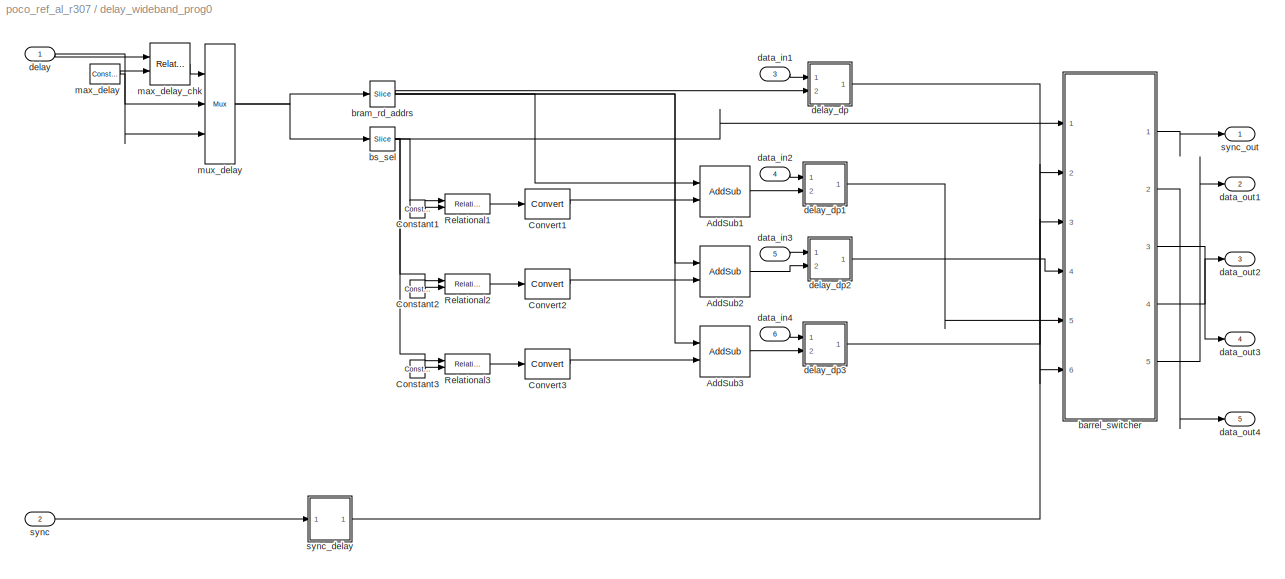
BLOCK [SubSystem] delay_wideband_prog0
  AttributesFormatString = Min Delay=28
  MinAlgLoopOccurrences = off
  Ports = [6, 5]
  RTWSystemCode = Auto
  TreatAsAtomicUnit = off
  UserData = DataTag5
  UserDataPersistent = on
BLOCK [Reference] delay_wideband_prog0/AddSub1  REF=xbsIndex_r3/AddSub
  Ports = [2, 1]
  SourceBlock = xbsIndex_r3/AddSub
  SourceType = Xilinx Adder/Subtractor
  arith_type = Unsigned
  bin_pt = 0
  dbl_ovrd = off
  en = off
  explicit_period = off
  gen_core = off
  latency = 1
  mode = Addition
  n_bits = 11
  overflow = Wrap
  period = 1
  pipeline = off
  precision = Full
  quantization = Truncate
  show_param = off
  use_carryin = off
  use_carryout = off
  use_core = on
  use_rpm = on
  xl_area = [0, 0, 0, 0, 0, 0, 0]
  xl_use_area = off
BLOCK [Reference] delay_wideband_prog0/AddSub2  REF=xbsIndex_r3/AddSub
  Ports = [2, 1]
  SourceBlock = xbsIndex_r3/AddSub
  SourceType = Xilinx Adder/Subtractor
  arith_type = Unsigned
  bin_pt = 0
  dbl_ovrd = off
  en = off
  explicit_period = off
  gen_core = off
  latency = 1
  mode = Addition
  n_bits = 11
  overflow = Wrap
  period = 1
  pipeline = off
  precision = Full
  quantization = Truncate
  show_param = off
  use_carryin = off
  use_carryout = off
  use_core = on
  use_rpm = on
  xl_area = [0, 0, 0, 0, 0, 0, 0]
  xl_use_area = off
BLOCK [Reference] delay_wideband_prog0/AddSub3  REF=xbsIndex_r3/AddSub
  Ports = [2, 1]
  SourceBlock = xbsIndex_r3/AddSub
  SourceType = Xilinx Adder/Subtractor
  arith_type = Unsigned
  bin_pt = 0
  dbl_ovrd = off
  en = off
  explicit_period = off
  gen_core = off
  latency = 1
  mode = Addition
  n_bits = 11
  overflow = Wrap
  period = 1
  pipeline = off
  precision = Full
  quantization = Truncate
  show_param = off
  use_carryin = off
  use_carryout = off
  use_core = on
  use_rpm = on
  xl_area = [0, 0, 0, 0, 0, 0, 0]
  xl_use_area = off
BLOCK [Reference] delay_wideband_prog0/Constant1  REF=xbsIndex_r3/Constant
  Ports = [0, 1]
  SourceBlock = xbsIndex_r3/Constant
  SourceType = Xilinx Constant Block
  arith_type = Unsigned
  bin_pt = 0
  carry = CIN
  const = 2
  dbl_ovrd = off
  equ = P=C
  explicit_period = on
  inp1 = P
  inp2 = PCIN>>17
  iostate = 0
  n_bits = 2
  opr = +
  opselect = C
  period = 1
BLOCK [Reference] delay_wideband_prog0/Constant2  REF=xbsIndex_r3/Constant
  Ports = [0, 1]
  SourceBlock = xbsIndex_r3/Constant
  SourceType = Xilinx Constant Block
  arith_type = Unsigned
  bin_pt = 0
  carry = CIN
  const = 1
  dbl_ovrd = off
  equ = P=C
  explicit_period = on
  inp1 = P
  inp2 = PCIN>>17
  iostate = 0
  n_bits = 2
  opr = +
  opselect = C
  period = 1
BLOCK [Reference] delay_wideband_prog0/Constant3  REF=xbsIndex_r3/Constant
  Ports = [0, 1]
  SourceBlock = xbsIndex_r3/Constant
  SourceType = Xilinx Constant Block
  arith_type = Unsigned
  bin_pt = 0
  carry = CIN
  const = 0
  dbl_ovrd = off
  equ = P=C
  explicit_period = on
  inp1 = P
  inp2 = PCIN>>17
  iostate = 0
  n_bits = 2
  opr = +
  opselect = C
  period = 1
BLOCK [Reference] delay_wideband_prog0/Convert1  REF=xbsIndex_r3/Convert
  Ports = [1, 1]
  SourceBlock = xbsIndex_r3/Convert
  SourceType = Xilinx Converter Block
  arith_type = Unsigned
  bin_pt = 0
  dbl_ovrd = off
  explicit_period = off
  inserted_by_tool = off
  latency = 0
  n_bits = 1
  overflow = Wrap
  period = 1
  pipeline = off
  quantization = Truncate
  show_param = off
  xl_area = [0, 0, 0, 0, 0, 0, 0]
  xl_use_area = off
BLOCK [Reference] delay_wideband_prog0/Convert2  REF=xbsIndex_r3/Convert
  Ports = [1, 1]
  SourceBlock = xbsIndex_r3/Convert
  SourceType = Xilinx Converter Block
  arith_type = Unsigned
  bin_pt = 0
  dbl_ovrd = off
  explicit_period = off
  inserted_by_tool = off
  latency = 0
  n_bits = 1
  overflow = Wrap
  period = 1
  pipeline = off
  quantization = Truncate
  show_param = off
  xl_area = [0, 0, 0, 0, 0, 0, 0]
  xl_use_area = off
BLOCK [Reference] delay_wideband_prog0/Convert3  REF=xbsIndex_r3/Convert
  Ports = [1, 1]
  SourceBlock = xbsIndex_r3/Convert
  SourceType = Xilinx Converter Block
  arith_type = Unsigned
  bin_pt = 0
  dbl_ovrd = off
  explicit_period = off
  inserted_by_tool = off
  latency = 0
  n_bits = 1
  overflow = Wrap
  period = 1
  pipeline = off
  quantization = Truncate
  show_param = off
  xl_area = [0, 0, 0, 0, 0, 0, 0]
  xl_use_area = off
BLOCK [Reference] delay_wideband_prog0/Relational1  REF=xbsIndex_r3/Relational
  Ports = [2, 1]
  SourceBlock = xbsIndex_r3/Relational
  SourceType = Xilinx Relational Block
  dbl_ovrd = off
  en = off
  explicit_period = off
  latency = 1
  mode = a>b
  period = 1
  show_param = off
  xl_area = [0, 0, 0, 0, 0, 0, 0]
  xl_use_area = off
BLOCK [Reference] delay_wideband_prog0/Relational2  REF=xbsIndex_r3/Relational
  Ports = [2, 1]
  SourceBlock = xbsIndex_r3/Relational
  SourceType = Xilinx Relational Block
  dbl_ovrd = off
  en = off
  explicit_period = off
  latency = 1
  mode = a>b
  period = 1
  show_param = off
  xl_area = [0, 0, 0, 0, 0, 0, 0]
  xl_use_area = off
BLOCK [Reference] delay_wideband_prog0/Relational3  REF=xbsIndex_r3/Relational
  Ports = [2, 1]
  SourceBlock = xbsIndex_r3/Relational
  SourceType = Xilinx Relational Block
  dbl_ovrd = off
  en = off
  explicit_period = off
  latency = 1
  mode = a>b
  period = 1
  show_param = off
  xl_area = [0, 0, 0, 0, 0, 0, 0]
  xl_use_area = off
BLOCK [SubSystem] delay_wideband_prog0/barrel_switcher
  AttributesFormatString = n_inputs=2
  MinAlgLoopOccurrences = off
  Ports = [6, 5]
  RTWSystemCode = Auto
  TreatAsAtomicUnit = off
  UserData = DataTag6
  UserDataPersistent = on
BLOCK [Reference] delay_wideband_prog0/barrel_switcher/Delay1  REF=xbsIndex_r3/Delay
  Ports = [1, 1]
  SourceBlock = xbsIndex_r3/Delay
  SourceType = Xilinx Delay Block
  accept_only_valid = off
  dbl_ovrd = off
  en = off
  explicit_period = off
  init_zero = on
  latency = 1
  period = 1
  reg_retiming = off
  show_param = off
  xl_area = [0, 0, 0, 0, 0, 0, 0]
  xl_use_area = off
BLOCK [Reference] delay_wideband_prog0/barrel_switcher/Delay_sync  REF=xbsIndex_r3/Delay
  Ports = [1, 1]
  SourceBlock = xbsIndex_r3/Delay
  SourceType = Xilinx Delay Block
  accept_only_valid = off
  dbl_ovrd = off
  en = off
  explicit_period = off
  init_zero = on
  latency = 2
  period = 1
  reg_retiming = off
  show_param = off
  xl_area = [0, 0, 0, 0, 0, 0, 0]
  xl_use_area = off
BLOCK [Inport] delay_wideband_prog0/barrel_switcher/In1
  IconDisplay = Port number
  LatchInput = off
  Port = 3
BLOCK [Inport] delay_wideband_prog0/barrel_switcher/In2
  IconDisplay = Port number
  LatchInput = off
  Port = 4
BLOCK [Inport] delay_wideband_prog0/barrel_switcher/In3
  IconDisplay = Port number
  LatchInput = off
  Port = 5
BLOCK [Inport] delay_wideband_prog0/barrel_switcher/In4
  IconDisplay = Port number
  LatchInput = off
  Port = 6
BLOCK [Reference] delay_wideband_prog0/barrel_switcher/Mux11  REF=xbsIndex_r3/Mux
  Ports = [3, 1]
  SourceBlock = xbsIndex_r3/Mux
  SourceType = Xilinx Multiplexer Block
  arith_type = Signed  (2's comp)
  bin_pt = 2
  dbl_ovrd = off
  en = off
  explicit_period = off
  gen_core = off
  inputs = 2
  latency = 1
  mux_type = off
  n_bits = 8
  overflow = Wrap
  period = 1
  precision = Full
  quantization = Truncate
  show_param = off
  use_rpm = off
  xl_area = [0, 0, 0, 0, 0, 0, 0]
  xl_use_area = off
BLOCK [Reference] delay_wideband_prog0/barrel_switcher/Mux12  REF=xbsIndex_r3/Mux
  Ports = [3, 1]
  SourceBlock = xbsIndex_r3/Mux
  SourceType = Xilinx Multiplexer Block
  arith_type = Signed  (2's comp)
  bin_pt = 2
  dbl_ovrd = off
  en = off
  explicit_period = off
  gen_core = off
  inputs = 2
  latency = 1
  mux_type = off
  n_bits = 8
  overflow = Wrap
  period = 1
  precision = Full
  quantization = Truncate
  show_param = off
  use_rpm = off
  xl_area = [0, 0, 0, 0, 0, 0, 0]
  xl_use_area = off
BLOCK [Reference] delay_wideband_prog0/barrel_switcher/Mux21  REF=xbsIndex_r3/Mux
  Ports = [3, 1]
  SourceBlock = xbsIndex_r3/Mux
  SourceType = Xilinx Multiplexer Block
  arith_type = Signed  (2's comp)
  bin_pt = 2
  dbl_ovrd = off
  en = off
  explicit_period = off
  gen_core = off
  inputs = 2
  latency = 1
  mux_type = off
  n_bits = 8
  overflow = Wrap
  period = 1
  precision = Full
  quantization = Truncate
  show_param = off
  use_rpm = off
  xl_area = [0, 0, 0, 0, 0, 0, 0]
  xl_use_area = off
BLOCK [Reference] delay_wideband_prog0/barrel_switcher/Mux22  REF=xbsIndex_r3/Mux
  Ports = [3, 1]
  SourceBlock = xbsIndex_r3/Mux
  SourceType = Xilinx Multiplexer Block
  arith_type = Signed  (2's comp)
  bin_pt = 2
  dbl_ovrd = off
  en = off
  explicit_period = off
  gen_core = off
  inputs = 2
  latency = 1
  mux_type = off
  n_bits = 8
  overflow = Wrap
  period = 1
  precision = Full
  quantization = Truncate
  show_param = off
  use_rpm = off
  xl_area = [0, 0, 0, 0, 0, 0, 0]
  xl_use_area = off
BLOCK [Reference] delay_wideband_prog0/barrel_switcher/Mux31  REF=xbsIndex_r3/Mux
  Ports = [3, 1]
  SourceBlock = xbsIndex_r3/Mux
  SourceType = Xilinx Multiplexer Block
  arith_type = Signed  (2's comp)
  bin_pt = 2
  dbl_ovrd = off
  en = off
  explicit_period = off
  gen_core = off
  inputs = 2
  latency = 1
  mux_type = off
  n_bits = 8
  overflow = Wrap
  period = 1
  precision = Full
  quantization = Truncate
  show_param = off
  use_rpm = off
  xl_area = [0, 0, 0, 0, 0, 0, 0]
  xl_use_area = off
BLOCK [Reference] delay_wideband_prog0/barrel_switcher/Mux32  REF=xbsIndex_r3/Mux
  Ports = [3, 1]
  SourceBlock = xbsIndex_r3/Mux
  SourceType = Xilinx Multiplexer Block
  arith_type = Signed  (2's comp)
  bin_pt = 2
  dbl_ovrd = off
  en = off
  explicit_period = off
  gen_core = off
  inputs = 2
  latency = 1
  mux_type = off
  n_bits = 8
  overflow = Wrap
  period = 1
  precision = Full
  quantization = Truncate
  show_param = off
  use_rpm = off
  xl_area = [0, 0, 0, 0, 0, 0, 0]
  xl_use_area = off
BLOCK [Reference] delay_wideband_prog0/barrel_switcher/Mux41  REF=xbsIndex_r3/Mux
  Ports = [3, 1]
  SourceBlock = xbsIndex_r3/Mux
  SourceType = Xilinx Multiplexer Block
  arith_type = Signed  (2's comp)
  bin_pt = 2
  dbl_ovrd = off
  en = off
  explicit_period = off
  gen_core = off
  inputs = 2
  latency = 1
  mux_type = off
  n_bits = 8
  overflow = Wrap
  period = 1
  precision = Full
  quantization = Truncate
  show_param = off
  use_rpm = off
  xl_area = [0, 0, 0, 0, 0, 0, 0]
  xl_use_area = off
BLOCK [Reference] delay_wideband_prog0/barrel_switcher/Mux42  REF=xbsIndex_r3/Mux
  Ports = [3, 1]
  SourceBlock = xbsIndex_r3/Mux
  SourceType = Xilinx Multiplexer Block
  arith_type = Signed  (2's comp)
  bin_pt = 2
  dbl_ovrd = off
  en = off
  explicit_period = off
  gen_core = off
  inputs = 2
  latency = 1
  mux_type = off
  n_bits = 8
  overflow = Wrap
  period = 1
  precision = Full
  quantization = Truncate
  show_param = off
  use_rpm = off
  xl_area = [0, 0, 0, 0, 0, 0, 0]
  xl_use_area = off
BLOCK [Outport] delay_wideband_prog0/barrel_switcher/Out1
  BusOutputAsStruct = off
  IconDisplay = Port number
  Port = 2
BLOCK [Outport] delay_wideband_prog0/barrel_switcher/Out2
  BusOutputAsStruct = off
  IconDisplay = Port number
  Port = 3
BLOCK [Outport] delay_wideband_prog0/barrel_switcher/Out3
  BusOutputAsStruct = off
  IconDisplay = Port number
  Port = 4
BLOCK [Outport] delay_wideband_prog0/barrel_switcher/Out4
  BusOutputAsStruct = off
  IconDisplay = Port number
  Port = 5
BLOCK [Reference] delay_wideband_prog0/barrel_switcher/Slice1  REF=xbsIndex_r3/Slice
  Ports = [1, 1]
  SourceBlock = xbsIndex_r3/Slice
  SourceType = Xilinx Slice Block
  base0 = LSB of Input
  base1 = MSB of Input
  bit0 = 0
  bit1 = -0
  boolean_output = off
  dbl_ovrd = off
  explicit_period = off
  mode = Upper Bit Location + Width
  nbits = 1
  period = 1
BLOCK [Reference] delay_wideband_prog0/barrel_switcher/Slice2  REF=xbsIndex_r3/Slice
  Ports = [1, 1]
  SourceBlock = xbsIndex_r3/Slice
  SourceType = Xilinx Slice Block
  base0 = LSB of Input
  base1 = MSB of Input
  bit0 = 0
  bit1 = -1
  boolean_output = off
  dbl_ovrd = off
  explicit_period = off
  mode = Upper Bit Location + Width
  nbits = 1
  period = 1
BLOCK [Inport] delay_wideband_prog0/barrel_switcher/sel
  IconDisplay = Port number
  LatchInput = off
  Port = 1
BLOCK [Inport] delay_wideband_prog0/barrel_switcher/sync_in
  IconDisplay = Port number
  LatchInput = off
  Port = 2
BLOCK [Outport] delay_wideband_prog0/barrel_switcher/sync_out
  BusOutputAsStruct = off
  IconDisplay = Port number
BLOCK [Reference] delay_wideband_prog0/bram_rd_addrs  REF=xbsIndex_r3/Slice
  Ports = [1, 1]
  SourceBlock = xbsIndex_r3/Slice
  SourceType = Xilinx Slice Block
  base0 = LSB of Input
  base1 = MSB of Input
  bit0 = 2
  bit1 = 0
  boolean_output = off
  dbl_ovrd = off
  explicit_period = off
  mode = Lower Bit Location + Width
  nbits = 10
  period = 1
BLOCK [Reference] delay_wideband_prog0/bs_sel  REF=xbsIndex_r3/Slice
  Ports = [1, 1]
  SourceBlock = xbsIndex_r3/Slice
  SourceType = Xilinx Slice Block
  base0 = LSB of Input
  base1 = MSB of Input
  bit0 = 0
  bit1 = 0
  boolean_output = off
  dbl_ovrd = off
  explicit_period = off
  mode = Lower Bit Location + Width
  nbits = 2
  period = 1
BLOCK [Inport] delay_wideband_prog0/data_in1
  IconDisplay = Port number
  LatchInput = off
  Port = 3
BLOCK [Inport] delay_wideband_prog0/data_in2
  IconDisplay = Port number
  LatchInput = off
  Port = 4
BLOCK [Inport] delay_wideband_prog0/data_in3
  IconDisplay = Port number
  LatchInput = off
  Port = 5
BLOCK [Inport] delay_wideband_prog0/data_in4
  IconDisplay = Port number
  LatchInput = off
  Port = 6
BLOCK [Outport] delay_wideband_prog0/data_out1
  BusOutputAsStruct = off
  IconDisplay = Port number
  Port = 2
BLOCK [Outport] delay_wideband_prog0/data_out2
  BusOutputAsStruct = off
  IconDisplay = Port number
  Port = 3
BLOCK [Outport] delay_wideband_prog0/data_out3
  BusOutputAsStruct = off
  IconDisplay = Port number
  Port = 4
BLOCK [Outport] delay_wideband_prog0/data_out4
  BusOutputAsStruct = off
  IconDisplay = Port number
  Port = 5
BLOCK [Inport] delay_wideband_prog0/delay
  IconDisplay = Port number
  LatchInput = off
  Port = 1
BLOCK [SubSystem] delay_wideband_prog0/delay_dp
  MaskCallbackString = |
  MaskEnableString = on,on
  MaskIconFrame = on
  MaskIconOpaque = on
  MaskIconRotate = none
  MaskIconUnits = autoscale
  MaskPromptString = Max Delay (2^?)|BRAM Latency
  MaskStyleString = edit,edit
  MaskTabNameString = ,
  MaskToolTipString = on,on
  MaskTunableValueString = on,on
  MaskValueString = 10|4
  MaskVarAliasString = ,
  MaskVariables = ram_bits=@1;bram_latency=@2;
  MaskVisibilityString = on,on
  MinAlgLoopOccurrences = off
  Ports = [2, 1]
  RTWSystemCode = Auto
  TreatAsAtomicUnit = off
BLOCK [Reference] delay_wideband_prog0/delay_dp/AddSub  REF=xbsIndex_r3/AddSub
  Ports = [2, 1]
  SourceBlock = xbsIndex_r3/AddSub
  SourceType = Xilinx Adder/Subtractor
  arith_type = Unsigned
  bin_pt = 0
  dbl_ovrd = off
  en = off
  explicit_period = off
  gen_core = off
  latency = 1
  mode = Subtraction
  n_bits = 11
  overflow = Wrap
  period = 1
  pipeline = off
  precision = User Defined
  quantization = Truncate
  show_param = off
  use_carryin = off
  use_carryout = off
  use_core = on
  use_rpm = on
  xl_area = [0, 0, 0, 0, 0, 0, 0]
  xl_use_area = off
BLOCK [Reference] delay_wideband_prog0/delay_dp/Constant2  REF=xbsIndex_r3/Constant
  Ports = [0, 1]
  SourceBlock = xbsIndex_r3/Constant
  SourceType = Xilinx Constant Block
  arith_type = Boolean
  bin_pt = 0
  carry = CIN
  const = 1
  dbl_ovrd = off
  equ = P=C
  explicit_period = on
  inp1 = P
  inp2 = PCIN>>17
  iostate = 0
  n_bits = 1
  opr = +
  opselect = C
  period = 1
BLOCK [Reference] delay_wideband_prog0/delay_dp/Constant4  REF=xbsIndex_r3/Constant
  Ports = [0, 1]
  SourceBlock = xbsIndex_r3/Constant
  SourceType = Xilinx Constant Block
  arith_type = Boolean
  bin_pt = 0
  carry = CIN
  const = 0
  dbl_ovrd = off
  equ = P=C
  explicit_period = on
  inp1 = P
  inp2 = PCIN>>17
  iostate = 0
  n_bits = 1
  opr = +
  opselect = C
  period = 1
BLOCK [S-Function] delay_wideband_prog0/delay_dp/Dual Port RAM
  AncestorBlock = xbsIndex_r3/Dual Port RAM
  FunctionName = xldpram
  MaskCallbackString = |||||||xldpramCallback|||xldpramCallback||xldpramCallback||xldpramCallback|xldpramCallback||||
  MaskDescription = Dual port random access memory (RAM). Independent address, data and write enable ports allow shared access to a single memory space. Dual ports enable simultaneous access to the memory space at different sample rates using multiple data widths.  <repeated x16 — deduplicated; at blocks: Dual Port RAM>
  MaskDisplay = patch([0 iWidth iWidth 0],[0 0 iHeight iHeight] ,bg);\npatch([0 iWidth iWidth 0],[iCy-2 iCy-2 iCy+2 iCy+2] , .9* bg);\npatch(logoX,logoY , fg);\nport_label('input',1,'addr_A');\nport_label('input',2,'data_A');\nport_label('input',3,'we_A');\nport_label('input',4,'addr_B');\nport_label('input',dataBPNum,dataBStr);\nport_label('input',weBPNum,weBStr);\nport_label('input',rstAPNum,rstAStr);\nport_lab...<+237ch>  <repeated x16 — deduplicated; at blocks: Dual Port RAM>
  MaskEnableString = on,on,on,on,on,on,on,on,on,on,on,on,on,on,on,on,on,on,on,on
  MaskHelp = eval('xlWeb(xlhtmldoclink(''Dual Port RAM''))');
  MaskIconFrame = off
  MaskIconOpaque = off
  MaskIconRotate = none
  MaskIconUnits = autoscale
  MaskInitialization = [designRoot, family, part, speed, package, simulinkPeriod, sysclkPeriod, dbl_ovrd, trimVbit] = xlSysgenSettings(gcb,1,1);\nif isempty(family)\n	family = 'Virtex2';\nend;\ndbl_ovrdStr = '';\n[bg,fg] = xlcmap('XBlock',dbl_ovrd);\niPos = get_param(gcb,'Position');\niWidth=iPos(3)-iPos(1); iHeight=iPos(4)-iPos(2);\niCx=iWidth/2;\niCy=iHeight/2;\n[logoX, logoY] = xlogo(iPos);\n[memX,memY] = memplot(iPo...<+1143ch>  <repeated x16 — deduplicated; at blocks: Dual Port RAM>
  MaskPromptString = Depth|Initial Value Vector|Write Mode:  Port A|Write Mode:  Port B|Latency|Provide Output Valid Port|Zero Initial Output  (otherwise NaN)|Use Explicit Sample Period|Sample Period  (use -1 to inherit first known input period)|Override with Doubles|Provide Reset Port for Port A Output Register|Initial Value for Port A Output Register|Provide Reset Port for Port B Output Register|Initial Value for Po...<+345ch>  <repeated x16 — deduplicated; at blocks: Dual Port RAM>
  MaskSelfModifiable = on
  MaskStyleString = edit,edit,popup(Read After Write|Read Before Write|No Read On Write),popup(Read After Write|Read Before Write|No Read On Write),edit,checkbox,checkbox,checkbox,edit,checkbox,checkbox,edit,checkbox,edit,checkbox,checkbox,checkbox,checkbox,edit,checkbox  <repeated x16 — deduplicated; at blocks: Dual Port RAM>
  MaskTabNameString = ,,,,,,,,,,,,,,,,,,,
  MaskToolTipString = on,on,on,on,on,on,on,on,on,on,on,on,on,on,on,on,on,on,on,on
  MaskTunableValueString = off,off,off,off,off,off,off,off,off,off,off,off,off,off,off,off,off,off,on,on
  MaskType = Xilinx Dual Port Random Access Memory
  MaskValueString = 2048|0|Read After Write|Read After Write|4|off|on|off|1|off|off|0|off|0|off|off|off|off|[0, 0, 0, 0, 0, 0, 0]|off
  MaskVarAliasString = ,,,,,,,,,,,,,,,,,,,
  MaskVariables = depth=@1;initVector=@2;write_mode_A=@3;write_mode_B=@4;latency=@5;mem_collision=@6;init_zero=@7;explicit_period=@8;period=@9;dbl_ovrd=@10;rst_a=@11;init_a=@12;rst_b=@13;init_b=@14;show_param=@15;distributed_mem=@16;use_rpm=@17;gen_core=@18;xl_area=@19;xl_use_area=@20;  <repeated x16 — deduplicated; at blocks: Dual Port RAM>
  MaskVisibilityString = on,on,on,on,on,on,off,on,off,on,on,off,on,off,on,off,off,off,off,off
  Parameters = sfcn_mwsv__
  Ports = [6, 2]
BLOCK [Inport] delay_wideband_prog0/delay_dp/delay
  IconDisplay = Port number
  LatchInput = off
  Port = 2
BLOCK [Inport] delay_wideband_prog0/delay_dp/din
  IconDisplay = Port number
  LatchInput = off
  Port = 1
BLOCK [Outport] delay_wideband_prog0/delay_dp/dout
  BusOutputAsStruct = off
  IconDisplay = Port number
BLOCK [Reference] delay_wideband_prog0/delay_dp/wr_addr  REF=xbsIndex_r3/Counter
  Ports = [0, 1]
  SourceBlock = xbsIndex_r3/Counter
  SourceType = Xilinx Counter Block
  arith_type = Unsigned
  bin_pt = 0
  cnt_by_val = 1
  cnt_to = Inf
  cnt_type = Free Running
  dbl_ovrd = off
  en = off
  explicit_period = off
  gen_core = off
  load_pin = off
  n_bits = 11
  operation = Up
  period = 1
  rst = off
  show_param = off
  start_count = 0
  use_rpm = on
  xl_area = [0, 0, 0, 0, 0, 0, 0]
  xl_use_area = off
BLOCK [SubSystem] delay_wideband_prog0/delay_dp1
  MaskCallbackString = |
  MaskEnableString = on,on
  MaskIconFrame = on
  MaskIconOpaque = on
  MaskIconRotate = none
  MaskIconUnits = autoscale
  MaskPromptString = Max Delay (2^?)|BRAM Latency
  MaskStyleString = edit,edit
  MaskTabNameString = ,
  MaskToolTipString = on,on
  MaskTunableValueString = on,on
  MaskValueString = 10|4
  MaskVarAliasString = ,
  MaskVariables = ram_bits=@1;bram_latency=@2;
  MaskVisibilityString = on,on
  MinAlgLoopOccurrences = off
  Ports = [2, 1]
  RTWSystemCode = Auto
  TreatAsAtomicUnit = off
BLOCK [Reference] delay_wideband_prog0/delay_dp1/AddSub  REF=xbsIndex_r3/AddSub
  Ports = [2, 1]
  SourceBlock = xbsIndex_r3/AddSub
  SourceType = Xilinx Adder/Subtractor
  arith_type = Unsigned
  bin_pt = 0
  dbl_ovrd = off
  en = off
  explicit_period = off
  gen_core = off
  latency = 1
  mode = Subtraction
  n_bits = 11
  overflow = Wrap
  period = 1
  pipeline = off
  precision = User Defined
  quantization = Truncate
  show_param = off
  use_carryin = off
  use_carryout = off
  use_core = on
  use_rpm = on
  xl_area = [0, 0, 0, 0, 0, 0, 0]
  xl_use_area = off
BLOCK [Reference] delay_wideband_prog0/delay_dp1/Constant2  REF=xbsIndex_r3/Constant
  Ports = [0, 1]
  SourceBlock = xbsIndex_r3/Constant
  SourceType = Xilinx Constant Block
  arith_type = Boolean
  bin_pt = 0
  carry = CIN
  const = 1
  dbl_ovrd = off
  equ = P=C
  explicit_period = on
  inp1 = P
  inp2 = PCIN>>17
  iostate = 0
  n_bits = 1
  opr = +
  opselect = C
  period = 1
BLOCK [Reference] delay_wideband_prog0/delay_dp1/Constant4  REF=xbsIndex_r3/Constant
  Ports = [0, 1]
  SourceBlock = xbsIndex_r3/Constant
  SourceType = Xilinx Constant Block
  arith_type = Boolean
  bin_pt = 0
  carry = CIN
  const = 0
  dbl_ovrd = off
  equ = P=C
  explicit_period = on
  inp1 = P
  inp2 = PCIN>>17
  iostate = 0
  n_bits = 1
  opr = +
  opselect = C
  period = 1
BLOCK [S-Function] delay_wideband_prog0/delay_dp1/Dual Port RAM
  AncestorBlock = xbsIndex_r3/Dual Port RAM
  FunctionName = xldpram
  MaskCallbackString = |||||||xldpramCallback|||xldpramCallback||xldpramCallback||xldpramCallback|xldpramCallback||||
  MaskEnableString = on,on,on,on,on,on,on,on,on,on,on,on,on,on,on,on,on,on,on,on
  MaskHelp = eval('xlWeb(xlhtmldoclink(''Dual Port RAM''))');
  MaskIconFrame = off
  MaskIconOpaque = off
  MaskIconRotate = none
  MaskIconUnits = autoscale
  MaskSelfModifiable = on
  MaskTabNameString = ,,,,,,,,,,,,,,,,,,,
  MaskToolTipString = on,on,on,on,on,on,on,on,on,on,on,on,on,on,on,on,on,on,on,on
  MaskTunableValueString = off,off,off,off,off,off,off,off,off,off,off,off,off,off,off,off,off,off,on,on
  MaskType = Xilinx Dual Port Random Access Memory
  MaskValueString = 2048|0|Read After Write|Read After Write|4|off|on|off|1|off|off|0|off|0|off|off|off|off|[0, 0, 0, 0, 0, 0, 0]|off
  MaskVarAliasString = ,,,,,,,,,,,,,,,,,,,
  MaskVisibilityString = on,on,on,on,on,on,off,on,off,on,on,off,on,off,on,off,off,off,off,off
  Parameters = sfcn_mwsv__
  Ports = [6, 2]
BLOCK [Inport] delay_wideband_prog0/delay_dp1/delay
  IconDisplay = Port number
  LatchInput = off
  Port = 2
BLOCK [Inport] delay_wideband_prog0/delay_dp1/din
  IconDisplay = Port number
  LatchInput = off
  Port = 1
BLOCK [Outport] delay_wideband_prog0/delay_dp1/dout
  BusOutputAsStruct = off
  IconDisplay = Port number
BLOCK [Reference] delay_wideband_prog0/delay_dp1/wr_addr  REF=xbsIndex_r3/Counter
  Ports = [0, 1]
  SourceBlock = xbsIndex_r3/Counter
  SourceType = Xilinx Counter Block
  arith_type = Unsigned
  bin_pt = 0
  cnt_by_val = 1
  cnt_to = Inf
  cnt_type = Free Running
  dbl_ovrd = off
  en = off
  explicit_period = off
  gen_core = off
  load_pin = off
  n_bits = 11
  operation = Up
  period = 1
  rst = off
  show_param = off
  start_count = 0
  use_rpm = on
  xl_area = [0, 0, 0, 0, 0, 0, 0]
  xl_use_area = off
BLOCK [SubSystem] delay_wideband_prog0/delay_dp2
  MaskCallbackString = |
  MaskEnableString = on,on
  MaskIconFrame = on
  MaskIconOpaque = on
  MaskIconRotate = none
  MaskIconUnits = autoscale
  MaskPromptString = Max Delay (2^?)|BRAM Latency
  MaskStyleString = edit,edit
  MaskTabNameString = ,
  MaskToolTipString = on,on
  MaskTunableValueString = on,on
  MaskValueString = 10|4
  MaskVarAliasString = ,
  MaskVariables = ram_bits=@1;bram_latency=@2;
  MaskVisibilityString = on,on
  MinAlgLoopOccurrences = off
  Ports = [2, 1]
  RTWSystemCode = Auto
  TreatAsAtomicUnit = off
BLOCK [Reference] delay_wideband_prog0/delay_dp2/AddSub  REF=xbsIndex_r3/AddSub
  Ports = [2, 1]
  SourceBlock = xbsIndex_r3/AddSub
  SourceType = Xilinx Adder/Subtractor
  arith_type = Unsigned
  bin_pt = 0
  dbl_ovrd = off
  en = off
  explicit_period = off
  gen_core = off
  latency = 1
  mode = Subtraction
  n_bits = 11
  overflow = Wrap
  period = 1
  pipeline = off
  precision = User Defined
  quantization = Truncate
  show_param = off
  use_carryin = off
  use_carryout = off
  use_core = on
  use_rpm = on
  xl_area = [0, 0, 0, 0, 0, 0, 0]
  xl_use_area = off
BLOCK [Reference] delay_wideband_prog0/delay_dp2/Constant2  REF=xbsIndex_r3/Constant
  Ports = [0, 1]
  SourceBlock = xbsIndex_r3/Constant
  SourceType = Xilinx Constant Block
  arith_type = Boolean
  bin_pt = 0
  carry = CIN
  const = 1
  dbl_ovrd = off
  equ = P=C
  explicit_period = on
  inp1 = P
  inp2 = PCIN>>17
  iostate = 0
  n_bits = 1
  opr = +
  opselect = C
  period = 1
BLOCK [Reference] delay_wideband_prog0/delay_dp2/Constant4  REF=xbsIndex_r3/Constant
  Ports = [0, 1]
  SourceBlock = xbsIndex_r3/Constant
  SourceType = Xilinx Constant Block
  arith_type = Boolean
  bin_pt = 0
  carry = CIN
  const = 0
  dbl_ovrd = off
  equ = P=C
  explicit_period = on
  inp1 = P
  inp2 = PCIN>>17
  iostate = 0
  n_bits = 1
  opr = +
  opselect = C
  period = 1
BLOCK [S-Function] delay_wideband_prog0/delay_dp2/Dual Port RAM
  AncestorBlock = xbsIndex_r3/Dual Port RAM
  FunctionName = xldpram
  MaskCallbackString = |||||||xldpramCallback|||xldpramCallback||xldpramCallback||xldpramCallback|xldpramCallback||||
  MaskEnableString = on,on,on,on,on,on,on,on,on,on,on,on,on,on,on,on,on,on,on,on
  MaskHelp = eval('xlWeb(xlhtmldoclink(''Dual Port RAM''))');
  MaskIconFrame = off
  MaskIconOpaque = off
  MaskIconRotate = none
  MaskIconUnits = autoscale
  MaskSelfModifiable = on
  MaskTabNameString = ,,,,,,,,,,,,,,,,,,,
  MaskToolTipString = on,on,on,on,on,on,on,on,on,on,on,on,on,on,on,on,on,on,on,on
  MaskTunableValueString = off,off,off,off,off,off,off,off,off,off,off,off,off,off,off,off,off,off,on,on
  MaskType = Xilinx Dual Port Random Access Memory
  MaskValueString = 2048|0|Read After Write|Read After Write|4|off|on|off|1|off|off|0|off|0|off|off|off|off|[0, 0, 0, 0, 0, 0, 0]|off
  MaskVarAliasString = ,,,,,,,,,,,,,,,,,,,
  MaskVisibilityString = on,on,on,on,on,on,off,on,off,on,on,off,on,off,on,off,off,off,off,off
  Parameters = sfcn_mwsv__
  Ports = [6, 2]
BLOCK [Inport] delay_wideband_prog0/delay_dp2/delay
  IconDisplay = Port number
  LatchInput = off
  Port = 2
BLOCK [Inport] delay_wideband_prog0/delay_dp2/din
  IconDisplay = Port number
  LatchInput = off
  Port = 1
BLOCK [Outport] delay_wideband_prog0/delay_dp2/dout
  BusOutputAsStruct = off
  IconDisplay = Port number
BLOCK [Reference] delay_wideband_prog0/delay_dp2/wr_addr  REF=xbsIndex_r3/Counter
  Ports = [0, 1]
  SourceBlock = xbsIndex_r3/Counter
  SourceType = Xilinx Counter Block
  arith_type = Unsigned
  bin_pt = 0
  cnt_by_val = 1
  cnt_to = Inf
  cnt_type = Free Running
  dbl_ovrd = off
  en = off
  explicit_period = off
  gen_core = off
  load_pin = off
  n_bits = 11
  operation = Up
  period = 1
  rst = off
  show_param = off
  start_count = 0
  use_rpm = on
  xl_area = [0, 0, 0, 0, 0, 0, 0]
  xl_use_area = off
BLOCK [SubSystem] delay_wideband_prog0/delay_dp3
  MaskCallbackString = |
  MaskEnableString = on,on
  MaskIconFrame = on
  MaskIconOpaque = on
  MaskIconRotate = none
  MaskIconUnits = autoscale
  MaskPromptString = Max Delay (2^?)|BRAM Latency
  MaskStyleString = edit,edit
  MaskTabNameString = ,
  MaskToolTipString = on,on
  MaskTunableValueString = on,on
  MaskValueString = 10|4
  MaskVarAliasString = ,
  MaskVariables = ram_bits=@1;bram_latency=@2;
  MaskVisibilityString = on,on
  MinAlgLoopOccurrences = off
  Ports = [2, 1]
  RTWSystemCode = Auto
  TreatAsAtomicUnit = off
BLOCK [Reference] delay_wideband_prog0/delay_dp3/AddSub  REF=xbsIndex_r3/AddSub
  Ports = [2, 1]
  SourceBlock = xbsIndex_r3/AddSub
  SourceType = Xilinx Adder/Subtractor
  arith_type = Unsigned
  bin_pt = 0
  dbl_ovrd = off
  en = off
  explicit_period = off
  gen_core = off
  latency = 1
  mode = Subtraction
  n_bits = 11
  overflow = Wrap
  period = 1
  pipeline = off
  precision = User Defined
  quantization = Truncate
  show_param = off
  use_carryin = off
  use_carryout = off
  use_core = on
  use_rpm = on
  xl_area = [0, 0, 0, 0, 0, 0, 0]
  xl_use_area = off
BLOCK [Reference] delay_wideband_prog0/delay_dp3/Constant2  REF=xbsIndex_r3/Constant
  Ports = [0, 1]
  SourceBlock = xbsIndex_r3/Constant
  SourceType = Xilinx Constant Block
  arith_type = Boolean
  bin_pt = 0
  carry = CIN
  const = 1
  dbl_ovrd = off
  equ = P=C
  explicit_period = on
  inp1 = P
  inp2 = PCIN>>17
  iostate = 0
  n_bits = 1
  opr = +
  opselect = C
  period = 1
BLOCK [Reference] delay_wideband_prog0/delay_dp3/Constant4  REF=xbsIndex_r3/Constant
  Ports = [0, 1]
  SourceBlock = xbsIndex_r3/Constant
  SourceType = Xilinx Constant Block
  arith_type = Boolean
  bin_pt = 0
  carry = CIN
  const = 0
  dbl_ovrd = off
  equ = P=C
  explicit_period = on
  inp1 = P
  inp2 = PCIN>>17
  iostate = 0
  n_bits = 1
  opr = +
  opselect = C
  period = 1
BLOCK [S-Function] delay_wideband_prog0/delay_dp3/Dual Port RAM
  AncestorBlock = xbsIndex_r3/Dual Port RAM
  FunctionName = xldpram
  MaskCallbackString = |||||||xldpramCallback|||xldpramCallback||xldpramCallback||xldpramCallback|xldpramCallback||||
  MaskEnableString = on,on,on,on,on,on,on,on,on,on,on,on,on,on,on,on,on,on,on,on
  MaskHelp = eval('xlWeb(xlhtmldoclink(''Dual Port RAM''))');
  MaskIconFrame = off
  MaskIconOpaque = off
  MaskIconRotate = none
  MaskIconUnits = autoscale
  MaskSelfModifiable = on
  MaskTabNameString = ,,,,,,,,,,,,,,,,,,,
  MaskToolTipString = on,on,on,on,on,on,on,on,on,on,on,on,on,on,on,on,on,on,on,on
  MaskTunableValueString = off,off,off,off,off,off,off,off,off,off,off,off,off,off,off,off,off,off,on,on
  MaskType = Xilinx Dual Port Random Access Memory
  MaskValueString = 2048|0|Read After Write|Read After Write|4|off|on|off|1|off|off|0|off|0|off|off|off|off|[0, 0, 0, 0, 0, 0, 0]|off
  MaskVarAliasString = ,,,,,,,,,,,,,,,,,,,
  MaskVisibilityString = on,on,on,on,on,on,off,on,off,on,on,off,on,off,on,off,off,off,off,off
  Parameters = sfcn_mwsv__
  Ports = [6, 2]
BLOCK [Inport] delay_wideband_prog0/delay_dp3/delay
  IconDisplay = Port number
  LatchInput = off
  Port = 2
BLOCK [Inport] delay_wideband_prog0/delay_dp3/din
  IconDisplay = Port number
  LatchInput = off
  Port = 1
BLOCK [Outport] delay_wideband_prog0/delay_dp3/dout
  BusOutputAsStruct = off
  IconDisplay = Port number
BLOCK [Reference] delay_wideband_prog0/delay_dp3/wr_addr  REF=xbsIndex_r3/Counter
  Ports = [0, 1]
  SourceBlock = xbsIndex_r3/Counter
  SourceType = Xilinx Counter Block
  arith_type = Unsigned
  bin_pt = 0
  cnt_by_val = 1
  cnt_to = Inf
  cnt_type = Free Running
  dbl_ovrd = off
  en = off
  explicit_period = off
  gen_core = off
  load_pin = off
  n_bits = 11
  operation = Up
  period = 1
  rst = off
  show_param = off
  start_count = 0
  use_rpm = on
  xl_area = [0, 0, 0, 0, 0, 0, 0]
  xl_use_area = off
BLOCK [Reference] delay_wideband_prog0/max_delay  REF=xbsIndex_r3/Constant
  Ports = [0, 1]
  SourceBlock = xbsIndex_r3/Constant
  SourceType = Xilinx Constant Block
  arith_type = Unsigned
  bin_pt = 0
  carry = CIN
  const = 4095
  dbl_ovrd = off
  equ = P=C
  explicit_period = on
  inp1 = P
  inp2 = PCIN>>17
  iostate = 0
  n_bits = 32
  opr = +
  opselect = C
  period = 1
BLOCK [Reference] delay_wideband_prog0/max_delay_chk  REF=xbsIndex_r3/Relational
  Ports = [2, 1]
  SourceBlock = xbsIndex_r3/Relational
  SourceType = Xilinx Relational Block
  dbl_ovrd = off
  en = off
  explicit_period = off
  latency = 1
  mode = a<=b
  period = 1
  show_param = off
  xl_area = [0, 0, 0, 0, 0, 0, 0]
  xl_use_area = off
BLOCK [Reference] delay_wideband_prog0/mux_delay  REF=xbsIndex_r3/Mux
  Ports = [3, 1]
  SourceBlock = xbsIndex_r3/Mux
  SourceType = Xilinx Multiplexer Block
  arith_type = Signed  (2's comp)
  bin_pt = 2
  dbl_ovrd = off
  en = off
  explicit_period = off
  gen_core = off
  inputs = 2
  latency = 0
  mux_type = off
  n_bits = 8
  overflow = Wrap
  period = 1
  precision = Full
  quantization = Truncate
  show_param = off
  use_rpm = off
  xl_area = [0, 0, 0, 0, 0, 0, 0]
  xl_use_area = off
BLOCK [Inport] delay_wideband_prog0/sync
  IconDisplay = Port number
  LatchInput = off
  Port = 2
BLOCK [SubSystem] delay_wideband_prog0/sync_delay
  MaskDescription = Delay an infrequent boolean pulse by the specified number of clocks.
  MaskDisplay = fprintf('Z^-%d', DelayLen)
  MaskEnableString = on
  MaskHelp = eval('xlWeb([getenv(''MLIB_ROOT''), ''<path>''])')
  MaskIconFrame = on
  MaskIconOpaque = on
  MaskIconRotate = none
  MaskIconUnits = autoscale
  MaskInitialization = BitWidth = max(2, ceil(log2(DelayLen+1)));\nUseCounter = 1;\nif DelayLen == 0,\n	UseCounter = 0;\nend
  MaskPromptString = Delay Length:
  MaskSelfModifiable = on
  MaskStyleString = edit
  MaskToolTipString = on
  MaskTunableValueString = on
  MaskType = sync_delay
  MaskValueString = 20
  MaskVariables = DelayLen=@1;
  MaskVisibilityString = on
  MinAlgLoopOccurrences = off
  Ports = [1, 1]
  RTWSystemCode = Auto
  TreatAsAtomicUnit = off
BLOCK [Reference] delay_wideband_prog0/sync_delay/Constant  REF=xbsIndex_r3/Constant
  Ports = [0, 1]
  SourceBlock = xbsIndex_r3/Constant
  SourceType = Xilinx Constant Block
  arith_type = Unsigned
  bin_pt = 0
  carry = CIN
  const = 1
  dbl_ovrd = off
  equ = P=C
  explicit_period = on
  inp1 = P
  inp2 = PCIN>>17
  iostate = 0
  n_bits = BitWidth
  opr = +
  opselect = C
  period = 1
BLOCK [Reference] delay_wideband_prog0/sync_delay/Constant1  REF=xbsIndex_r3/Constant
  Ports = [0, 1]
  SourceBlock = xbsIndex_r3/Constant
  SourceType = Xilinx Constant Block
  arith_type = Unsigned
  bin_pt = 0
  carry = CIN
  const = 0
  dbl_ovrd = off
  equ = P=C
  explicit_period = on
  inp1 = P
  inp2 = PCIN>>17
  iostate = 0
  n_bits = BitWidth
  opr = +
  opselect = C
  period = 1
BLOCK [Reference] delay_wideband_prog0/sync_delay/Constant2  REF=xbsIndex_r3/Constant
  Ports = [0, 1]
  SourceBlock = xbsIndex_r3/Constant
  SourceType = Xilinx Constant Block
  arith_type = Unsigned
  bin_pt = 0
  carry = CIN
  const = DelayLen
  dbl_ovrd = off
  equ = P=C
  explicit_period = on
  inp1 = P
  inp2 = PCIN>>17
  iostate = 0
  n_bits = BitWidth
  opr = +
  opselect = C
  period = 1
BLOCK [Reference] delay_wideband_prog0/sync_delay/Constant3  REF=xbsIndex_r3/Constant
  Ports = [0, 1]
  SourceBlock = xbsIndex_r3/Constant
  SourceType = Xilinx Constant Block
  arith_type = Unsigned
  bin_pt = 0
  carry = CIN
  const = UseCounter
  dbl_ovrd = off
  equ = P=C
  explicit_period = on
  inp1 = P
  inp2 = PCIN>>17
  iostate = 0
  n_bits = 1
  opr = +
  opselect = C
  period = 1
BLOCK [Reference] delay_wideband_prog0/sync_delay/Counter  REF=xbsIndex_r3/Counter
  Ports = [3, 1]
  SourceBlock = xbsIndex_r3/Counter
  SourceType = Xilinx Counter Block
  arith_type = Unsigned
  bin_pt = 0
  cnt_by_val = 1
  cnt_to = Inf
  cnt_type = Free Running
  dbl_ovrd = off
  en = on
  explicit_period = on
  gen_core = off
  load_pin = on
  n_bits = BitWidth
  operation = Down
  period = 1
  rst = off
  show_param = off
  start_count = 0
  use_rpm = on
  xl_area = [0, 0, 0, 0, 0, 0, 0]
  xl_use_area = off
BLOCK [Inport] delay_wideband_prog0/sync_delay/In
  IconDisplay = Port number
  LatchInput = off
  Port = 1
BLOCK [Reference] delay_wideband_prog0/sync_delay/Logical  REF=xbsIndex_r3/Logical
  Ports = [2, 1]
  SourceBlock = xbsIndex_r3/Logical
  SourceType = Xilinx Logical Block
  align_bp = on
  arith_type = Unsigned
  bin_pt = 2
  dbl_ovrd = off
  en = off
  explicit_period = on
  inputs = 2
  latency = 0
  logical_function = OR
  n_bits = 8
  period = 1
  precision = Full
  show_param = off
  xl_area = [0, 0, 0, 0, 0, 0, 0]
  xl_use_area = off
BLOCK [Reference] delay_wideband_prog0/sync_delay/Mux  REF=xbsIndex_r3/Mux
  Ports = [3, 1]
  SourceBlock = xbsIndex_r3/Mux
  SourceType = Xilinx Multiplexer Block
  arith_type = Signed  (2's comp)
  bin_pt = 2
  dbl_ovrd = off
  en = off
  explicit_period = off
  gen_core = off
  inputs = 2
  latency = 0
  mux_type = off
  n_bits = 8
  overflow = Wrap
  period = 1
  precision = Full
  quantization = Truncate
  show_param = off
  use_rpm = off
  xl_area = [0, 0, 0, 0, 0, 0, 0]
  xl_use_area = off
BLOCK [Outport] delay_wideband_prog0/sync_delay/Out
  BusOutputAsStruct = off
  IconDisplay = Port number
BLOCK [Reference] delay_wideband_prog0/sync_delay/Relational  REF=xbsIndex_r3/Relational
  Ports = [2, 1]
  SourceBlock = xbsIndex_r3/Relational
  SourceType = Xilinx Relational Block
  dbl_ovrd = off
  en = off
  explicit_period = off
  latency = 0
  mode = a=b
  period = 1
  show_param = off
  xl_area = [0, 0, 0, 0, 0, 0, 0]
  xl_use_area = off
BLOCK [Reference] delay_wideband_prog0/sync_delay/Relational1  REF=xbsIndex_r3/Relational
  Ports = [2, 1]
  SourceBlock = xbsIndex_r3/Relational
  SourceType = Xilinx Relational Block
  dbl_ovrd = off
  en = off
  explicit_period = on
  latency = 0
  mode = a!=b
  period = 1
  show_param = off
  xl_area = [0, 0, 0, 0, 0, 0, 0]
  xl_use_area = off
BLOCK [Outport] delay_wideband_prog0/sync_out
  BusOutputAsStruct = off
  IconDisplay = Port number
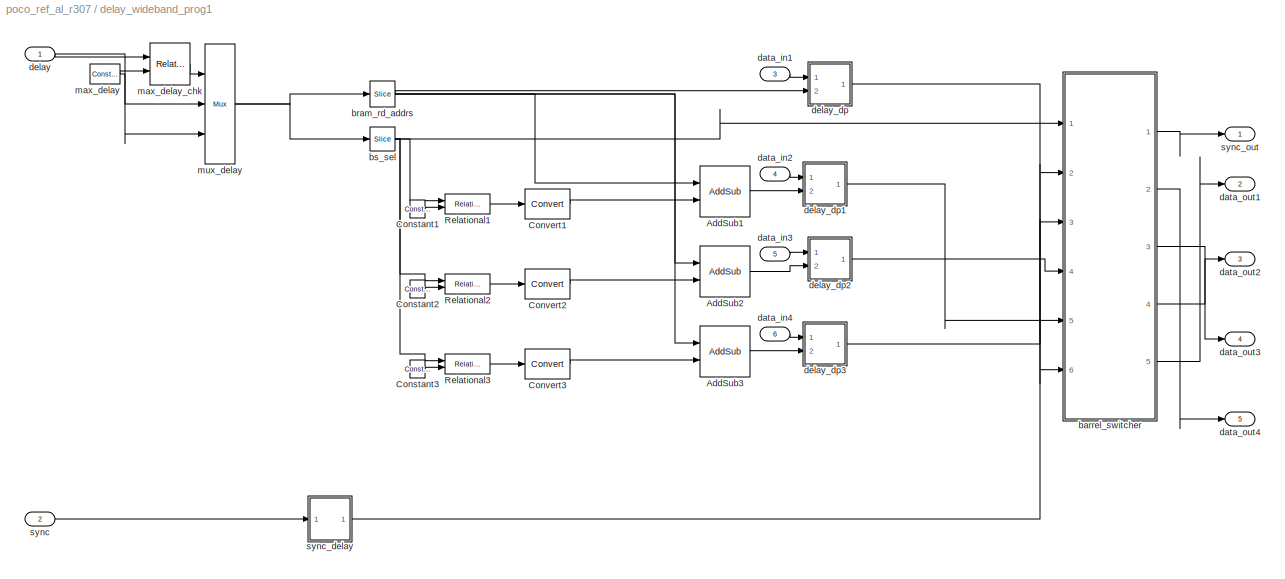
BLOCK [SubSystem] delay_wideband_prog1
  AttributesFormatString = Min Delay=28
  MinAlgLoopOccurrences = off
  Ports = [6, 5]
  RTWSystemCode = Auto
  TreatAsAtomicUnit = off
  UserData = DataTag7
  UserDataPersistent = on
BLOCK [Reference] delay_wideband_prog1/AddSub1  REF=xbsIndex_r3/AddSub
  Ports = [2, 1]
  SourceBlock = xbsIndex_r3/AddSub
  SourceType = Xilinx Adder/Subtractor
  arith_type = Unsigned
  bin_pt = 0
  dbl_ovrd = off
  en = off
  explicit_period = off
  gen_core = off
  latency = 1
  mode = Addition
  n_bits = 11
  overflow = Wrap
  period = 1
  pipeline = off
  precision = Full
  quantization = Truncate
  show_param = off
  use_carryin = off
  use_carryout = off
  use_core = on
  use_rpm = on
  xl_area = [0, 0, 0, 0, 0, 0, 0]
  xl_use_area = off
BLOCK [Reference] delay_wideband_prog1/AddSub2  REF=xbsIndex_r3/AddSub
  Ports = [2, 1]
  SourceBlock = xbsIndex_r3/AddSub
  SourceType = Xilinx Adder/Subtractor
  arith_type = Unsigned
  bin_pt = 0
  dbl_ovrd = off
  en = off
  explicit_period = off
  gen_core = off
  latency = 1
  mode = Addition
  n_bits = 11
  overflow = Wrap
  period = 1
  pipeline = off
  precision = Full
  quantization = Truncate
  show_param = off
  use_carryin = off
  use_carryout = off
  use_core = on
  use_rpm = on
  xl_area = [0, 0, 0, 0, 0, 0, 0]
  xl_use_area = off
BLOCK [Reference] delay_wideband_prog1/AddSub3  REF=xbsIndex_r3/AddSub
  Ports = [2, 1]
  SourceBlock = xbsIndex_r3/AddSub
  SourceType = Xilinx Adder/Subtractor
  arith_type = Unsigned
  bin_pt = 0
  dbl_ovrd = off
  en = off
  explicit_period = off
  gen_core = off
  latency = 1
  mode = Addition
  n_bits = 11
  overflow = Wrap
  period = 1
  pipeline = off
  precision = Full
  quantization = Truncate
  show_param = off
  use_carryin = off
  use_carryout = off
  use_core = on
  use_rpm = on
  xl_area = [0, 0, 0, 0, 0, 0, 0]
  xl_use_area = off
BLOCK [Reference] delay_wideband_prog1/Constant1  REF=xbsIndex_r3/Constant
  Ports = [0, 1]
  SourceBlock = xbsIndex_r3/Constant
  SourceType = Xilinx Constant Block
  arith_type = Unsigned
  bin_pt = 0
  carry = CIN
  const = 2
  dbl_ovrd = off
  equ = P=C
  explicit_period = on
  inp1 = P
  inp2 = PCIN>>17
  iostate = 0
  n_bits = 2
  opr = +
  opselect = C
  period = 1
BLOCK [Reference] delay_wideband_prog1/Constant2  REF=xbsIndex_r3/Constant
  Ports = [0, 1]
  SourceBlock = xbsIndex_r3/Constant
  SourceType = Xilinx Constant Block
  arith_type = Unsigned
  bin_pt = 0
  carry = CIN
  const = 1
  dbl_ovrd = off
  equ = P=C
  explicit_period = on
  inp1 = P
  inp2 = PCIN>>17
  iostate = 0
  n_bits = 2
  opr = +
  opselect = C
  period = 1
BLOCK [Reference] delay_wideband_prog1/Constant3  REF=xbsIndex_r3/Constant
  Ports = [0, 1]
  SourceBlock = xbsIndex_r3/Constant
  SourceType = Xilinx Constant Block
  arith_type = Unsigned
  bin_pt = 0
  carry = CIN
  const = 0
  dbl_ovrd = off
  equ = P=C
  explicit_period = on
  inp1 = P
  inp2 = PCIN>>17
  iostate = 0
  n_bits = 2
  opr = +
  opselect = C
  period = 1
BLOCK [Reference] delay_wideband_prog1/Convert1  REF=xbsIndex_r3/Convert
  Ports = [1, 1]
  SourceBlock = xbsIndex_r3/Convert
  SourceType = Xilinx Converter Block
  arith_type = Unsigned
  bin_pt = 0
  dbl_ovrd = off
  explicit_period = off
  inserted_by_tool = off
  latency = 0
  n_bits = 1
  overflow = Wrap
  period = 1
  pipeline = off
  quantization = Truncate
  show_param = off
  xl_area = [0, 0, 0, 0, 0, 0, 0]
  xl_use_area = off
BLOCK [Reference] delay_wideband_prog1/Convert2  REF=xbsIndex_r3/Convert
  Ports = [1, 1]
  SourceBlock = xbsIndex_r3/Convert
  SourceType = Xilinx Converter Block
  arith_type = Unsigned
  bin_pt = 0
  dbl_ovrd = off
  explicit_period = off
  inserted_by_tool = off
  latency = 0
  n_bits = 1
  overflow = Wrap
  period = 1
  pipeline = off
  quantization = Truncate
  show_param = off
  xl_area = [0, 0, 0, 0, 0, 0, 0]
  xl_use_area = off
BLOCK [Reference] delay_wideband_prog1/Convert3  REF=xbsIndex_r3/Convert
  Ports = [1, 1]
  SourceBlock = xbsIndex_r3/Convert
  SourceType = Xilinx Converter Block
  arith_type = Unsigned
  bin_pt = 0
  dbl_ovrd = off
  explicit_period = off
  inserted_by_tool = off
  latency = 0
  n_bits = 1
  overflow = Wrap
  period = 1
  pipeline = off
  quantization = Truncate
  show_param = off
  xl_area = [0, 0, 0, 0, 0, 0, 0]
  xl_use_area = off
BLOCK [Reference] delay_wideband_prog1/Relational1  REF=xbsIndex_r3/Relational
  Ports = [2, 1]
  SourceBlock = xbsIndex_r3/Relational
  SourceType = Xilinx Relational Block
  dbl_ovrd = off
  en = off
  explicit_period = off
  latency = 1
  mode = a>b
  period = 1
  show_param = off
  xl_area = [0, 0, 0, 0, 0, 0, 0]
  xl_use_area = off
BLOCK [Reference] delay_wideband_prog1/Relational2  REF=xbsIndex_r3/Relational
  Ports = [2, 1]
  SourceBlock = xbsIndex_r3/Relational
  SourceType = Xilinx Relational Block
  dbl_ovrd = off
  en = off
  explicit_period = off
  latency = 1
  mode = a>b
  period = 1
  show_param = off
  xl_area = [0, 0, 0, 0, 0, 0, 0]
  xl_use_area = off
BLOCK [Reference] delay_wideband_prog1/Relational3  REF=xbsIndex_r3/Relational
  Ports = [2, 1]
  SourceBlock = xbsIndex_r3/Relational
  SourceType = Xilinx Relational Block
  dbl_ovrd = off
  en = off
  explicit_period = off
  latency = 1
  mode = a>b
  period = 1
  show_param = off
  xl_area = [0, 0, 0, 0, 0, 0, 0]
  xl_use_area = off
BLOCK [SubSystem] delay_wideband_prog1/barrel_switcher
  AttributesFormatString = n_inputs=2
  MinAlgLoopOccurrences = off
  Ports = [6, 5]
  RTWSystemCode = Auto
  TreatAsAtomicUnit = off
  UserData = DataTag8
  UserDataPersistent = on
BLOCK [Reference] delay_wideband_prog1/barrel_switcher/Delay1  REF=xbsIndex_r3/Delay
  Ports = [1, 1]
  SourceBlock = xbsIndex_r3/Delay
  SourceType = Xilinx Delay Block
  accept_only_valid = off
  dbl_ovrd = off
  en = off
  explicit_period = off
  init_zero = on
  latency = 1
  period = 1
  reg_retiming = off
  show_param = off
  xl_area = [0, 0, 0, 0, 0, 0, 0]
  xl_use_area = off
BLOCK [Reference] delay_wideband_prog1/barrel_switcher/Delay_sync  REF=xbsIndex_r3/Delay
  Ports = [1, 1]
  SourceBlock = xbsIndex_r3/Delay
  SourceType = Xilinx Delay Block
  accept_only_valid = off
  dbl_ovrd = off
  en = off
  explicit_period = off
  init_zero = on
  latency = 2
  period = 1
  reg_retiming = off
  show_param = off
  xl_area = [0, 0, 0, 0, 0, 0, 0]
  xl_use_area = off
BLOCK [Inport] delay_wideband_prog1/barrel_switcher/In1
  IconDisplay = Port number
  LatchInput = off
  Port = 3
BLOCK [Inport] delay_wideband_prog1/barrel_switcher/In2
  IconDisplay = Port number
  LatchInput = off
  Port = 4
BLOCK [Inport] delay_wideband_prog1/barrel_switcher/In3
  IconDisplay = Port number
  LatchInput = off
  Port = 5
BLOCK [Inport] delay_wideband_prog1/barrel_switcher/In4
  IconDisplay = Port number
  LatchInput = off
  Port = 6
BLOCK [Reference] delay_wideband_prog1/barrel_switcher/Mux11  REF=xbsIndex_r3/Mux
  Ports = [3, 1]
  SourceBlock = xbsIndex_r3/Mux
  SourceType = Xilinx Multiplexer Block
  arith_type = Signed  (2's comp)
  bin_pt = 2
  dbl_ovrd = off
  en = off
  explicit_period = off
  gen_core = off
  inputs = 2
  latency = 1
  mux_type = off
  n_bits = 8
  overflow = Wrap
  period = 1
  precision = Full
  quantization = Truncate
  show_param = off
  use_rpm = off
  xl_area = [0, 0, 0, 0, 0, 0, 0]
  xl_use_area = off
BLOCK [Reference] delay_wideband_prog1/barrel_switcher/Mux12  REF=xbsIndex_r3/Mux
  Ports = [3, 1]
  SourceBlock = xbsIndex_r3/Mux
  SourceType = Xilinx Multiplexer Block
  arith_type = Signed  (2's comp)
  bin_pt = 2
  dbl_ovrd = off
  en = off
  explicit_period = off
  gen_core = off
  inputs = 2
  latency = 1
  mux_type = off
  n_bits = 8
  overflow = Wrap
  period = 1
  precision = Full
  quantization = Truncate
  show_param = off
  use_rpm = off
  xl_area = [0, 0, 0, 0, 0, 0, 0]
  xl_use_area = off
BLOCK [Reference] delay_wideband_prog1/barrel_switcher/Mux21  REF=xbsIndex_r3/Mux
  Ports = [3, 1]
  SourceBlock = xbsIndex_r3/Mux
  SourceType = Xilinx Multiplexer Block
  arith_type = Signed  (2's comp)
  bin_pt = 2
  dbl_ovrd = off
  en = off
  explicit_period = off
  gen_core = off
  inputs = 2
  latency = 1
  mux_type = off
  n_bits = 8
  overflow = Wrap
  period = 1
  precision = Full
  quantization = Truncate
  show_param = off
  use_rpm = off
  xl_area = [0, 0, 0, 0, 0, 0, 0]
  xl_use_area = off
BLOCK [Reference] delay_wideband_prog1/barrel_switcher/Mux22  REF=xbsIndex_r3/Mux
  Ports = [3, 1]
  SourceBlock = xbsIndex_r3/Mux
  SourceType = Xilinx Multiplexer Block
  arith_type = Signed  (2's comp)
  bin_pt = 2
  dbl_ovrd = off
  en = off
  explicit_period = off
  gen_core = off
  inputs = 2
  latency = 1
  mux_type = off
  n_bits = 8
  overflow = Wrap
  period = 1
  precision = Full
  quantization = Truncate
  show_param = off
  use_rpm = off
  xl_area = [0, 0, 0, 0, 0, 0, 0]
  xl_use_area = off
BLOCK [Reference] delay_wideband_prog1/barrel_switcher/Mux31  REF=xbsIndex_r3/Mux
  Ports = [3, 1]
  SourceBlock = xbsIndex_r3/Mux
  SourceType = Xilinx Multiplexer Block
  arith_type = Signed  (2's comp)
  bin_pt = 2
  dbl_ovrd = off
  en = off
  explicit_period = off
  gen_core = off
  inputs = 2
  latency = 1
  mux_type = off
  n_bits = 8
  overflow = Wrap
  period = 1
  precision = Full
  quantization = Truncate
  show_param = off
  use_rpm = off
  xl_area = [0, 0, 0, 0, 0, 0, 0]
  xl_use_area = off
BLOCK [Reference] delay_wideband_prog1/barrel_switcher/Mux32  REF=xbsIndex_r3/Mux
  Ports = [3, 1]
  SourceBlock = xbsIndex_r3/Mux
  SourceType = Xilinx Multiplexer Block
  arith_type = Signed  (2's comp)
  bin_pt = 2
  dbl_ovrd = off
  en = off
  explicit_period = off
  gen_core = off
  inputs = 2
  latency = 1
  mux_type = off
  n_bits = 8
  overflow = Wrap
  period = 1
  precision = Full
  quantization = Truncate
  show_param = off
  use_rpm = off
  xl_area = [0, 0, 0, 0, 0, 0, 0]
  xl_use_area = off
BLOCK [Reference] delay_wideband_prog1/barrel_switcher/Mux41  REF=xbsIndex_r3/Mux
  Ports = [3, 1]
  SourceBlock = xbsIndex_r3/Mux
  SourceType = Xilinx Multiplexer Block
  arith_type = Signed  (2's comp)
  bin_pt = 2
  dbl_ovrd = off
  en = off
  explicit_period = off
  gen_core = off
  inputs = 2
  latency = 1
  mux_type = off
  n_bits = 8
  overflow = Wrap
  period = 1
  precision = Full
  quantization = Truncate
  show_param = off
  use_rpm = off
  xl_area = [0, 0, 0, 0, 0, 0, 0]
  xl_use_area = off
BLOCK [Reference] delay_wideband_prog1/barrel_switcher/Mux42  REF=xbsIndex_r3/Mux
  Ports = [3, 1]
  SourceBlock = xbsIndex_r3/Mux
  SourceType = Xilinx Multiplexer Block
  arith_type = Signed  (2's comp)
  bin_pt = 2
  dbl_ovrd = off
  en = off
  explicit_period = off
  gen_core = off
  inputs = 2
  latency = 1
  mux_type = off
  n_bits = 8
  overflow = Wrap
  period = 1
  precision = Full
  quantization = Truncate
  show_param = off
  use_rpm = off
  xl_area = [0, 0, 0, 0, 0, 0, 0]
  xl_use_area = off
BLOCK [Outport] delay_wideband_prog1/barrel_switcher/Out1
  BusOutputAsStruct = off
  IconDisplay = Port number
  Port = 2
BLOCK [Outport] delay_wideband_prog1/barrel_switcher/Out2
  BusOutputAsStruct = off
  IconDisplay = Port number
  Port = 3
BLOCK [Outport] delay_wideband_prog1/barrel_switcher/Out3
  BusOutputAsStruct = off
  IconDisplay = Port number
  Port = 4
BLOCK [Outport] delay_wideband_prog1/barrel_switcher/Out4
  BusOutputAsStruct = off
  IconDisplay = Port number
  Port = 5
BLOCK [Reference] delay_wideband_prog1/barrel_switcher/Slice1  REF=xbsIndex_r3/Slice
  Ports = [1, 1]
  SourceBlock = xbsIndex_r3/Slice
  SourceType = Xilinx Slice Block
  base0 = LSB of Input
  base1 = MSB of Input
  bit0 = 0
  bit1 = -0
  boolean_output = off
  dbl_ovrd = off
  explicit_period = off
  mode = Upper Bit Location + Width
  nbits = 1
  period = 1
BLOCK [Reference] delay_wideband_prog1/barrel_switcher/Slice2  REF=xbsIndex_r3/Slice
  Ports = [1, 1]
  SourceBlock = xbsIndex_r3/Slice
  SourceType = Xilinx Slice Block
  base0 = LSB of Input
  base1 = MSB of Input
  bit0 = 0
  bit1 = -1
  boolean_output = off
  dbl_ovrd = off
  explicit_period = off
  mode = Upper Bit Location + Width
  nbits = 1
  period = 1
BLOCK [Inport] delay_wideband_prog1/barrel_switcher/sel
  IconDisplay = Port number
  LatchInput = off
  Port = 1
BLOCK [Inport] delay_wideband_prog1/barrel_switcher/sync_in
  IconDisplay = Port number
  LatchInput = off
  Port = 2
BLOCK [Outport] delay_wideband_prog1/barrel_switcher/sync_out
  BusOutputAsStruct = off
  IconDisplay = Port number
BLOCK [Reference] delay_wideband_prog1/bram_rd_addrs  REF=xbsIndex_r3/Slice
  Ports = [1, 1]
  SourceBlock = xbsIndex_r3/Slice
  SourceType = Xilinx Slice Block
  base0 = LSB of Input
  base1 = MSB of Input
  bit0 = 2
  bit1 = 0
  boolean_output = off
  dbl_ovrd = off
  explicit_period = off
  mode = Lower Bit Location + Width
  nbits = 10
  period = 1
BLOCK [Reference] delay_wideband_prog1/bs_sel  REF=xbsIndex_r3/Slice
  Ports = [1, 1]
  SourceBlock = xbsIndex_r3/Slice
  SourceType = Xilinx Slice Block
  base0 = LSB of Input
  base1 = MSB of Input
  bit0 = 0
  bit1 = 0
  boolean_output = off
  dbl_ovrd = off
  explicit_period = off
  mode = Lower Bit Location + Width
  nbits = 2
  period = 1
BLOCK [Inport] delay_wideband_prog1/data_in1
  IconDisplay = Port number
  LatchInput = off
  Port = 3
BLOCK [Inport] delay_wideband_prog1/data_in2
  IconDisplay = Port number
  LatchInput = off
  Port = 4
BLOCK [Inport] delay_wideband_prog1/data_in3
  IconDisplay = Port number
  LatchInput = off
  Port = 5
BLOCK [Inport] delay_wideband_prog1/data_in4
  IconDisplay = Port number
  LatchInput = off
  Port = 6
BLOCK [Outport] delay_wideband_prog1/data_out1
  BusOutputAsStruct = off
  IconDisplay = Port number
  Port = 2
BLOCK [Outport] delay_wideband_prog1/data_out2
  BusOutputAsStruct = off
  IconDisplay = Port number
  Port = 3
BLOCK [Outport] delay_wideband_prog1/data_out3
  BusOutputAsStruct = off
  IconDisplay = Port number
  Port = 4
BLOCK [Outport] delay_wideband_prog1/data_out4
  BusOutputAsStruct = off
  IconDisplay = Port number
  Port = 5
BLOCK [Inport] delay_wideband_prog1/delay
  IconDisplay = Port number
  LatchInput = off
  Port = 1
BLOCK [SubSystem] delay_wideband_prog1/delay_dp
  MaskCallbackString = |
  MaskEnableString = on,on
  MaskIconFrame = on
  MaskIconOpaque = on
  MaskIconRotate = none
  MaskIconUnits = autoscale
  MaskPromptString = Max Delay (2^?)|BRAM Latency
  MaskStyleString = edit,edit
  MaskTabNameString = ,
  MaskToolTipString = on,on
  MaskTunableValueString = on,on
  MaskValueString = 10|4
  MaskVarAliasString = ,
  MaskVariables = ram_bits=@1;bram_latency=@2;
  MaskVisibilityString = on,on
  MinAlgLoopOccurrences = off
  Ports = [2, 1]
  RTWSystemCode = Auto
  TreatAsAtomicUnit = off
BLOCK [Reference] delay_wideband_prog1/delay_dp/AddSub  REF=xbsIndex_r3/AddSub
  Ports = [2, 1]
  SourceBlock = xbsIndex_r3/AddSub
  SourceType = Xilinx Adder/Subtractor
  arith_type = Unsigned
  bin_pt = 0
  dbl_ovrd = off
  en = off
  explicit_period = off
  gen_core = off
  latency = 1
  mode = Subtraction
  n_bits = 11
  overflow = Wrap
  period = 1
  pipeline = off
  precision = User Defined
  quantization = Truncate
  show_param = off
  use_carryin = off
  use_carryout = off
  use_core = on
  use_rpm = on
  xl_area = [0, 0, 0, 0, 0, 0, 0]
  xl_use_area = off
BLOCK [Reference] delay_wideband_prog1/delay_dp/Constant2  REF=xbsIndex_r3/Constant
  Ports = [0, 1]
  SourceBlock = xbsIndex_r3/Constant
  SourceType = Xilinx Constant Block
  arith_type = Boolean
  bin_pt = 0
  carry = CIN
  const = 1
  dbl_ovrd = off
  equ = P=C
  explicit_period = on
  inp1 = P
  inp2 = PCIN>>17
  iostate = 0
  n_bits = 1
  opr = +
  opselect = C
  period = 1
BLOCK [Reference] delay_wideband_prog1/delay_dp/Constant4  REF=xbsIndex_r3/Constant
  Ports = [0, 1]
  SourceBlock = xbsIndex_r3/Constant
  SourceType = Xilinx Constant Block
  arith_type = Boolean
  bin_pt = 0
  carry = CIN
  const = 0
  dbl_ovrd = off
  equ = P=C
  explicit_period = on
  inp1 = P
  inp2 = PCIN>>17
  iostate = 0
  n_bits = 1
  opr = +
  opselect = C
  period = 1
BLOCK [S-Function] delay_wideband_prog1/delay_dp/Dual Port RAM
  AncestorBlock = xbsIndex_r3/Dual Port RAM
  FunctionName = xldpram
  MaskCallbackString = |||||||xldpramCallback|||xldpramCallback||xldpramCallback||xldpramCallback|xldpramCallback||||
  MaskEnableString = on,on,on,on,on,on,on,on,on,on,on,on,on,on,on,on,on,on,on,on
  MaskHelp = eval('xlWeb(xlhtmldoclink(''Dual Port RAM''))');
  MaskIconFrame = off
  MaskIconOpaque = off
  MaskIconRotate = none
  MaskIconUnits = autoscale
  MaskSelfModifiable = on
  MaskTabNameString = ,,,,,,,,,,,,,,,,,,,
  MaskToolTipString = on,on,on,on,on,on,on,on,on,on,on,on,on,on,on,on,on,on,on,on
  MaskTunableValueString = off,off,off,off,off,off,off,off,off,off,off,off,off,off,off,off,off,off,on,on
  MaskType = Xilinx Dual Port Random Access Memory
  MaskValueString = 2048|0|Read After Write|Read After Write|4|off|on|off|1|off|off|0|off|0|off|off|off|off|[0, 0, 0, 0, 0, 0, 0]|off
  MaskVarAliasString = ,,,,,,,,,,,,,,,,,,,
  MaskVisibilityString = on,on,on,on,on,on,off,on,off,on,on,off,on,off,on,off,off,off,off,off
  Parameters = sfcn_mwsv__
  Ports = [6, 2]
BLOCK [Inport] delay_wideband_prog1/delay_dp/delay
  IconDisplay = Port number
  LatchInput = off
  Port = 2
BLOCK [Inport] delay_wideband_prog1/delay_dp/din
  IconDisplay = Port number
  LatchInput = off
  Port = 1
BLOCK [Outport] delay_wideband_prog1/delay_dp/dout
  BusOutputAsStruct = off
  IconDisplay = Port number
BLOCK [Reference] delay_wideband_prog1/delay_dp/wr_addr  REF=xbsIndex_r3/Counter
  Ports = [0, 1]
  SourceBlock = xbsIndex_r3/Counter
  SourceType = Xilinx Counter Block
  arith_type = Unsigned
  bin_pt = 0
  cnt_by_val = 1
  cnt_to = Inf
  cnt_type = Free Running
  dbl_ovrd = off
  en = off
  explicit_period = off
  gen_core = off
  load_pin = off
  n_bits = 11
  operation = Up
  period = 1
  rst = off
  show_param = off
  start_count = 0
  use_rpm = on
  xl_area = [0, 0, 0, 0, 0, 0, 0]
  xl_use_area = off
BLOCK [SubSystem] delay_wideband_prog1/delay_dp1
  MaskCallbackString = |
  MaskEnableString = on,on
  MaskIconFrame = on
  MaskIconOpaque = on
  MaskIconRotate = none
  MaskIconUnits = autoscale
  MaskPromptString = Max Delay (2^?)|BRAM Latency
  MaskStyleString = edit,edit
  MaskTabNameString = ,
  MaskToolTipString = on,on
  MaskTunableValueString = on,on
  MaskValueString = 10|4
  MaskVarAliasString = ,
  MaskVariables = ram_bits=@1;bram_latency=@2;
  MaskVisibilityString = on,on
  MinAlgLoopOccurrences = off
  Ports = [2, 1]
  RTWSystemCode = Auto
  TreatAsAtomicUnit = off
BLOCK [Reference] delay_wideband_prog1/delay_dp1/AddSub  REF=xbsIndex_r3/AddSub
  Ports = [2, 1]
  SourceBlock = xbsIndex_r3/AddSub
  SourceType = Xilinx Adder/Subtractor
  arith_type = Unsigned
  bin_pt = 0
  dbl_ovrd = off
  en = off
  explicit_period = off
  gen_core = off
  latency = 1
  mode = Subtraction
  n_bits = 11
  overflow = Wrap
  period = 1
  pipeline = off
  precision = User Defined
  quantization = Truncate
  show_param = off
  use_carryin = off
  use_carryout = off
  use_core = on
  use_rpm = on
  xl_area = [0, 0, 0, 0, 0, 0, 0]
  xl_use_area = off
BLOCK [Reference] delay_wideband_prog1/delay_dp1/Constant2  REF=xbsIndex_r3/Constant
  Ports = [0, 1]
  SourceBlock = xbsIndex_r3/Constant
  SourceType = Xilinx Constant Block
  arith_type = Boolean
  bin_pt = 0
  carry = CIN
  const = 1
  dbl_ovrd = off
  equ = P=C
  explicit_period = on
  inp1 = P
  inp2 = PCIN>>17
  iostate = 0
  n_bits = 1
  opr = +
  opselect = C
  period = 1
BLOCK [Reference] delay_wideband_prog1/delay_dp1/Constant4  REF=xbsIndex_r3/Constant
  Ports = [0, 1]
  SourceBlock = xbsIndex_r3/Constant
  SourceType = Xilinx Constant Block
  arith_type = Boolean
  bin_pt = 0
  carry = CIN
  const = 0
  dbl_ovrd = off
  equ = P=C
  explicit_period = on
  inp1 = P
  inp2 = PCIN>>17
  iostate = 0
  n_bits = 1
  opr = +
  opselect = C
  period = 1
BLOCK [S-Function] delay_wideband_prog1/delay_dp1/Dual Port RAM
  AncestorBlock = xbsIndex_r3/Dual Port RAM
  FunctionName = xldpram
  MaskCallbackString = |||||||xldpramCallback|||xldpramCallback||xldpramCallback||xldpramCallback|xldpramCallback||||
  MaskEnableString = on,on,on,on,on,on,on,on,on,on,on,on,on,on,on,on,on,on,on,on
  MaskHelp = eval('xlWeb(xlhtmldoclink(''Dual Port RAM''))');
  MaskIconFrame = off
  MaskIconOpaque = off
  MaskIconRotate = none
  MaskIconUnits = autoscale
  MaskSelfModifiable = on
  MaskTabNameString = ,,,,,,,,,,,,,,,,,,,
  MaskToolTipString = on,on,on,on,on,on,on,on,on,on,on,on,on,on,on,on,on,on,on,on
  MaskTunableValueString = off,off,off,off,off,off,off,off,off,off,off,off,off,off,off,off,off,off,on,on
  MaskType = Xilinx Dual Port Random Access Memory
  MaskValueString = 2048|0|Read After Write|Read After Write|4|off|on|off|1|off|off|0|off|0|off|off|off|off|[0, 0, 0, 0, 0, 0, 0]|off
  MaskVarAliasString = ,,,,,,,,,,,,,,,,,,,
  MaskVisibilityString = on,on,on,on,on,on,off,on,off,on,on,off,on,off,on,off,off,off,off,off
  Parameters = sfcn_mwsv__
  Ports = [6, 2]
BLOCK [Inport] delay_wideband_prog1/delay_dp1/delay
  IconDisplay = Port number
  LatchInput = off
  Port = 2
BLOCK [Inport] delay_wideband_prog1/delay_dp1/din
  IconDisplay = Port number
  LatchInput = off
  Port = 1
BLOCK [Outport] delay_wideband_prog1/delay_dp1/dout
  BusOutputAsStruct = off
  IconDisplay = Port number
BLOCK [Reference] delay_wideband_prog1/delay_dp1/wr_addr  REF=xbsIndex_r3/Counter
  Ports = [0, 1]
  SourceBlock = xbsIndex_r3/Counter
  SourceType = Xilinx Counter Block
  arith_type = Unsigned
  bin_pt = 0
  cnt_by_val = 1
  cnt_to = Inf
  cnt_type = Free Running
  dbl_ovrd = off
  en = off
  explicit_period = off
  gen_core = off
  load_pin = off
  n_bits = 11
  operation = Up
  period = 1
  rst = off
  show_param = off
  start_count = 0
  use_rpm = on
  xl_area = [0, 0, 0, 0, 0, 0, 0]
  xl_use_area = off
BLOCK [SubSystem] delay_wideband_prog1/delay_dp2
  MaskCallbackString = |
  MaskEnableString = on,on
  MaskIconFrame = on
  MaskIconOpaque = on
  MaskIconRotate = none
  MaskIconUnits = autoscale
  MaskPromptString = Max Delay (2^?)|BRAM Latency
  MaskStyleString = edit,edit
  MaskTabNameString = ,
  MaskToolTipString = on,on
  MaskTunableValueString = on,on
  MaskValueString = 10|4
  MaskVarAliasString = ,
  MaskVariables = ram_bits=@1;bram_latency=@2;
  MaskVisibilityString = on,on
  MinAlgLoopOccurrences = off
  Ports = [2, 1]
  RTWSystemCode = Auto
  TreatAsAtomicUnit = off
BLOCK [Reference] delay_wideband_prog1/delay_dp2/AddSub  REF=xbsIndex_r3/AddSub
  Ports = [2, 1]
  SourceBlock = xbsIndex_r3/AddSub
  SourceType = Xilinx Adder/Subtractor
  arith_type = Unsigned
  bin_pt = 0
  dbl_ovrd = off
  en = off
  explicit_period = off
  gen_core = off
  latency = 1
  mode = Subtraction
  n_bits = 11
  overflow = Wrap
  period = 1
  pipeline = off
  precision = User Defined
  quantization = Truncate
  show_param = off
  use_carryin = off
  use_carryout = off
  use_core = on
  use_rpm = on
  xl_area = [0, 0, 0, 0, 0, 0, 0]
  xl_use_area = off
BLOCK [Reference] delay_wideband_prog1/delay_dp2/Constant2  REF=xbsIndex_r3/Constant
  Ports = [0, 1]
  SourceBlock = xbsIndex_r3/Constant
  SourceType = Xilinx Constant Block
  arith_type = Boolean
  bin_pt = 0
  carry = CIN
  const = 1
  dbl_ovrd = off
  equ = P=C
  explicit_period = on
  inp1 = P
  inp2 = PCIN>>17
  iostate = 0
  n_bits = 1
  opr = +
  opselect = C
  period = 1
BLOCK [Reference] delay_wideband_prog1/delay_dp2/Constant4  REF=xbsIndex_r3/Constant
  Ports = [0, 1]
  SourceBlock = xbsIndex_r3/Constant
  SourceType = Xilinx Constant Block
  arith_type = Boolean
  bin_pt = 0
  carry = CIN
  const = 0
  dbl_ovrd = off
  equ = P=C
  explicit_period = on
  inp1 = P
  inp2 = PCIN>>17
  iostate = 0
  n_bits = 1
  opr = +
  opselect = C
  period = 1
BLOCK [S-Function] delay_wideband_prog1/delay_dp2/Dual Port RAM
  AncestorBlock = xbsIndex_r3/Dual Port RAM
  FunctionName = xldpram
  MaskCallbackString = |||||||xldpramCallback|||xldpramCallback||xldpramCallback||xldpramCallback|xldpramCallback||||
  MaskEnableString = on,on,on,on,on,on,on,on,on,on,on,on,on,on,on,on,on,on,on,on
  MaskHelp = eval('xlWeb(xlhtmldoclink(''Dual Port RAM''))');
  MaskIconFrame = off
  MaskIconOpaque = off
  MaskIconRotate = none
  MaskIconUnits = autoscale
  MaskSelfModifiable = on
  MaskTabNameString = ,,,,,,,,,,,,,,,,,,,
  MaskToolTipString = on,on,on,on,on,on,on,on,on,on,on,on,on,on,on,on,on,on,on,on
  MaskTunableValueString = off,off,off,off,off,off,off,off,off,off,off,off,off,off,off,off,off,off,on,on
  MaskType = Xilinx Dual Port Random Access Memory
  MaskValueString = 2048|0|Read After Write|Read After Write|4|off|on|off|1|off|off|0|off|0|off|off|off|off|[0, 0, 0, 0, 0, 0, 0]|off
  MaskVarAliasString = ,,,,,,,,,,,,,,,,,,,
  MaskVisibilityString = on,on,on,on,on,on,off,on,off,on,on,off,on,off,on,off,off,off,off,off
  Parameters = sfcn_mwsv__
  Ports = [6, 2]
BLOCK [Inport] delay_wideband_prog1/delay_dp2/delay
  IconDisplay = Port number
  LatchInput = off
  Port = 2
BLOCK [Inport] delay_wideband_prog1/delay_dp2/din
  IconDisplay = Port number
  LatchInput = off
  Port = 1
BLOCK [Outport] delay_wideband_prog1/delay_dp2/dout
  BusOutputAsStruct = off
  IconDisplay = Port number
BLOCK [Reference] delay_wideband_prog1/delay_dp2/wr_addr  REF=xbsIndex_r3/Counter
  Ports = [0, 1]
  SourceBlock = xbsIndex_r3/Counter
  SourceType = Xilinx Counter Block
  arith_type = Unsigned
  bin_pt = 0
  cnt_by_val = 1
  cnt_to = Inf
  cnt_type = Free Running
  dbl_ovrd = off
  en = off
  explicit_period = off
  gen_core = off
  load_pin = off
  n_bits = 11
  operation = Up
  period = 1
  rst = off
  show_param = off
  start_count = 0
  use_rpm = on
  xl_area = [0, 0, 0, 0, 0, 0, 0]
  xl_use_area = off
BLOCK [SubSystem] delay_wideband_prog1/delay_dp3
  MaskCallbackString = |
  MaskEnableString = on,on
  MaskIconFrame = on
  MaskIconOpaque = on
  MaskIconRotate = none
  MaskIconUnits = autoscale
  MaskPromptString = Max Delay (2^?)|BRAM Latency
  MaskStyleString = edit,edit
  MaskTabNameString = ,
  MaskToolTipString = on,on
  MaskTunableValueString = on,on
  MaskValueString = 10|4
  MaskVarAliasString = ,
  MaskVariables = ram_bits=@1;bram_latency=@2;
  MaskVisibilityString = on,on
  MinAlgLoopOccurrences = off
  Ports = [2, 1]
  RTWSystemCode = Auto
  TreatAsAtomicUnit = off
BLOCK [Reference] delay_wideband_prog1/delay_dp3/AddSub  REF=xbsIndex_r3/AddSub
  Ports = [2, 1]
  SourceBlock = xbsIndex_r3/AddSub
  SourceType = Xilinx Adder/Subtractor
  arith_type = Unsigned
  bin_pt = 0
  dbl_ovrd = off
  en = off
  explicit_period = off
  gen_core = off
  latency = 1
  mode = Subtraction
  n_bits = 11
  overflow = Wrap
  period = 1
  pipeline = off
  precision = User Defined
  quantization = Truncate
  show_param = off
  use_carryin = off
  use_carryout = off
  use_core = on
  use_rpm = on
  xl_area = [0, 0, 0, 0, 0, 0, 0]
  xl_use_area = off
BLOCK [Reference] delay_wideband_prog1/delay_dp3/Constant2  REF=xbsIndex_r3/Constant
  Ports = [0, 1]
  SourceBlock = xbsIndex_r3/Constant
  SourceType = Xilinx Constant Block
  arith_type = Boolean
  bin_pt = 0
  carry = CIN
  const = 1
  dbl_ovrd = off
  equ = P=C
  explicit_period = on
  inp1 = P
  inp2 = PCIN>>17
  iostate = 0
  n_bits = 1
  opr = +
  opselect = C
  period = 1
BLOCK [Reference] delay_wideband_prog1/delay_dp3/Constant4  REF=xbsIndex_r3/Constant
  Ports = [0, 1]
  SourceBlock = xbsIndex_r3/Constant
  SourceType = Xilinx Constant Block
  arith_type = Boolean
  bin_pt = 0
  carry = CIN
  const = 0
  dbl_ovrd = off
  equ = P=C
  explicit_period = on
  inp1 = P
  inp2 = PCIN>>17
  iostate = 0
  n_bits = 1
  opr = +
  opselect = C
  period = 1
BLOCK [S-Function] delay_wideband_prog1/delay_dp3/Dual Port RAM
  AncestorBlock = xbsIndex_r3/Dual Port RAM
  FunctionName = xldpram
  MaskCallbackString = |||||||xldpramCallback|||xldpramCallback||xldpramCallback||xldpramCallback|xldpramCallback||||
  MaskEnableString = on,on,on,on,on,on,on,on,on,on,on,on,on,on,on,on,on,on,on,on
  MaskHelp = eval('xlWeb(xlhtmldoclink(''Dual Port RAM''))');
  MaskIconFrame = off
  MaskIconOpaque = off
  MaskIconRotate = none
  MaskIconUnits = autoscale
  MaskSelfModifiable = on
  MaskTabNameString = ,,,,,,,,,,,,,,,,,,,
  MaskToolTipString = on,on,on,on,on,on,on,on,on,on,on,on,on,on,on,on,on,on,on,on
  MaskTunableValueString = off,off,off,off,off,off,off,off,off,off,off,off,off,off,off,off,off,off,on,on
  MaskType = Xilinx Dual Port Random Access Memory
  MaskValueString = 2048|0|Read After Write|Read After Write|4|off|on|off|1|off|off|0|off|0|off|off|off|off|[0, 0, 0, 0, 0, 0, 0]|off
  MaskVarAliasString = ,,,,,,,,,,,,,,,,,,,
  MaskVisibilityString = on,on,on,on,on,on,off,on,off,on,on,off,on,off,on,off,off,off,off,off
  Parameters = sfcn_mwsv__
  Ports = [6, 2]
BLOCK [Inport] delay_wideband_prog1/delay_dp3/delay
  IconDisplay = Port number
  LatchInput = off
  Port = 2
BLOCK [Inport] delay_wideband_prog1/delay_dp3/din
  IconDisplay = Port number
  LatchInput = off
  Port = 1
BLOCK [Outport] delay_wideband_prog1/delay_dp3/dout
  BusOutputAsStruct = off
  IconDisplay = Port number
BLOCK [Reference] delay_wideband_prog1/delay_dp3/wr_addr  REF=xbsIndex_r3/Counter
  Ports = [0, 1]
  SourceBlock = xbsIndex_r3/Counter
  SourceType = Xilinx Counter Block
  arith_type = Unsigned
  bin_pt = 0
  cnt_by_val = 1
  cnt_to = Inf
  cnt_type = Free Running
  dbl_ovrd = off
  en = off
  explicit_period = off
  gen_core = off
  load_pin = off
  n_bits = 11
  operation = Up
  period = 1
  rst = off
  show_param = off
  start_count = 0
  use_rpm = on
  xl_area = [0, 0, 0, 0, 0, 0, 0]
  xl_use_area = off
BLOCK [Reference] delay_wideband_prog1/max_delay  REF=xbsIndex_r3/Constant
  Ports = [0, 1]
  SourceBlock = xbsIndex_r3/Constant
  SourceType = Xilinx Constant Block
  arith_type = Unsigned
  bin_pt = 0
  carry = CIN
  const = 4095
  dbl_ovrd = off
  equ = P=C
  explicit_period = on
  inp1 = P
  inp2 = PCIN>>17
  iostate = 0
  n_bits = 32
  opr = +
  opselect = C
  period = 1
BLOCK [Reference] delay_wideband_prog1/max_delay_chk  REF=xbsIndex_r3/Relational
  Ports = [2, 1]
  SourceBlock = xbsIndex_r3/Relational
  SourceType = Xilinx Relational Block
  dbl_ovrd = off
  en = off
  explicit_period = off
  latency = 1
  mode = a<=b
  period = 1
  show_param = off
  xl_area = [0, 0, 0, 0, 0, 0, 0]
  xl_use_area = off
BLOCK [Reference] delay_wideband_prog1/mux_delay  REF=xbsIndex_r3/Mux
  Ports = [3, 1]
  SourceBlock = xbsIndex_r3/Mux
  SourceType = Xilinx Multiplexer Block
  arith_type = Signed  (2's comp)
  bin_pt = 2
  dbl_ovrd = off
  en = off
  explicit_period = off
  gen_core = off
  inputs = 2
  latency = 0
  mux_type = off
  n_bits = 8
  overflow = Wrap
  period = 1
  precision = Full
  quantization = Truncate
  show_param = off
  use_rpm = off
  xl_area = [0, 0, 0, 0, 0, 0, 0]
  xl_use_area = off
BLOCK [Inport] delay_wideband_prog1/sync
  IconDisplay = Port number
  LatchInput = off
  Port = 2
BLOCK [SubSystem] delay_wideband_prog1/sync_delay
  MaskDescription = Delay an infrequent boolean pulse by the specified number of clocks.
  MaskDisplay = fprintf('Z^-%d', DelayLen)
  MaskEnableString = on
  MaskHelp = eval('xlWeb([getenv(''MLIB_ROOT''), ''<path>''])')
  MaskIconFrame = on
  MaskIconOpaque = on
  MaskIconRotate = none
  MaskIconUnits = autoscale
  MaskInitialization = BitWidth = max(2, ceil(log2(DelayLen+1)));\nUseCounter = 1;\nif DelayLen == 0,\n	UseCounter = 0;\nend
  MaskPromptString = Delay Length:
  MaskSelfModifiable = on
  MaskStyleString = edit
  MaskToolTipString = on
  MaskTunableValueString = on
  MaskType = sync_delay
  MaskValueString = 20
  MaskVariables = DelayLen=@1;
  MaskVisibilityString = on
  MinAlgLoopOccurrences = off
  Ports = [1, 1]
  RTWSystemCode = Auto
  TreatAsAtomicUnit = off
BLOCK [Reference] delay_wideband_prog1/sync_delay/Constant  REF=xbsIndex_r3/Constant
  Ports = [0, 1]
  SourceBlock = xbsIndex_r3/Constant
  SourceType = Xilinx Constant Block
  arith_type = Unsigned
  bin_pt = 0
  carry = CIN
  const = 1
  dbl_ovrd = off
  equ = P=C
  explicit_period = on
  inp1 = P
  inp2 = PCIN>>17
  iostate = 0
  n_bits = BitWidth
  opr = +
  opselect = C
  period = 1
BLOCK [Reference] delay_wideband_prog1/sync_delay/Constant1  REF=xbsIndex_r3/Constant
  Ports = [0, 1]
  SourceBlock = xbsIndex_r3/Constant
  SourceType = Xilinx Constant Block
  arith_type = Unsigned
  bin_pt = 0
  carry = CIN
  const = 0
  dbl_ovrd = off
  equ = P=C
  explicit_period = on
  inp1 = P
  inp2 = PCIN>>17
  iostate = 0
  n_bits = BitWidth
  opr = +
  opselect = C
  period = 1
BLOCK [Reference] delay_wideband_prog1/sync_delay/Constant2  REF=xbsIndex_r3/Constant
  Ports = [0, 1]
  SourceBlock = xbsIndex_r3/Constant
  SourceType = Xilinx Constant Block
  arith_type = Unsigned
  bin_pt = 0
  carry = CIN
  const = DelayLen
  dbl_ovrd = off
  equ = P=C
  explicit_period = on
  inp1 = P
  inp2 = PCIN>>17
  iostate = 0
  n_bits = BitWidth
  opr = +
  opselect = C
  period = 1
BLOCK [Reference] delay_wideband_prog1/sync_delay/Constant3  REF=xbsIndex_r3/Constant
  Ports = [0, 1]
  SourceBlock = xbsIndex_r3/Constant
  SourceType = Xilinx Constant Block
  arith_type = Unsigned
  bin_pt = 0
  carry = CIN
  const = UseCounter
  dbl_ovrd = off
  equ = P=C
  explicit_period = on
  inp1 = P
  inp2 = PCIN>>17
  iostate = 0
  n_bits = 1
  opr = +
  opselect = C
  period = 1
BLOCK [Reference] delay_wideband_prog1/sync_delay/Counter  REF=xbsIndex_r3/Counter
  Ports = [3, 1]
  SourceBlock = xbsIndex_r3/Counter
  SourceType = Xilinx Counter Block
  arith_type = Unsigned
  bin_pt = 0
  cnt_by_val = 1
  cnt_to = Inf
  cnt_type = Free Running
  dbl_ovrd = off
  en = on
  explicit_period = on
  gen_core = off
  load_pin = on
  n_bits = BitWidth
  operation = Down
  period = 1
  rst = off
  show_param = off
  start_count = 0
  use_rpm = on
  xl_area = [0, 0, 0, 0, 0, 0, 0]
  xl_use_area = off
BLOCK [Inport] delay_wideband_prog1/sync_delay/In
  IconDisplay = Port number
  LatchInput = off
  Port = 1
BLOCK [Reference] delay_wideband_prog1/sync_delay/Logical  REF=xbsIndex_r3/Logical
  Ports = [2, 1]
  SourceBlock = xbsIndex_r3/Logical
  SourceType = Xilinx Logical Block
  align_bp = on
  arith_type = Unsigned
  bin_pt = 2
  dbl_ovrd = off
  en = off
  explicit_period = on
  inputs = 2
  latency = 0
  logical_function = OR
  n_bits = 8
  period = 1
  precision = Full
  show_param = off
  xl_area = [0, 0, 0, 0, 0, 0, 0]
  xl_use_area = off
BLOCK [Reference] delay_wideband_prog1/sync_delay/Mux  REF=xbsIndex_r3/Mux
  Ports = [3, 1]
  SourceBlock = xbsIndex_r3/Mux
  SourceType = Xilinx Multiplexer Block
  arith_type = Signed  (2's comp)
  bin_pt = 2
  dbl_ovrd = off
  en = off
  explicit_period = off
  gen_core = off
  inputs = 2
  latency = 0
  mux_type = off
  n_bits = 8
  overflow = Wrap
  period = 1
  precision = Full
  quantization = Truncate
  show_param = off
  use_rpm = off
  xl_area = [0, 0, 0, 0, 0, 0, 0]
  xl_use_area = off
BLOCK [Outport] delay_wideband_prog1/sync_delay/Out
  BusOutputAsStruct = off
  IconDisplay = Port number
BLOCK [Reference] delay_wideband_prog1/sync_delay/Relational  REF=xbsIndex_r3/Relational
  Ports = [2, 1]
  SourceBlock = xbsIndex_r3/Relational
  SourceType = Xilinx Relational Block
  dbl_ovrd = off
  en = off
  explicit_period = off
  latency = 0
  mode = a=b
  period = 1
  show_param = off
  xl_area = [0, 0, 0, 0, 0, 0, 0]
  xl_use_area = off
BLOCK [Reference] delay_wideband_prog1/sync_delay/Relational1  REF=xbsIndex_r3/Relational
  Ports = [2, 1]
  SourceBlock = xbsIndex_r3/Relational
  SourceType = Xilinx Relational Block
  dbl_ovrd = off
  en = off
  explicit_period = on
  latency = 0
  mode = a!=b
  period = 1
  show_param = off
  xl_area = [0, 0, 0, 0, 0, 0, 0]
  xl_use_area = off
BLOCK [Outport] delay_wideband_prog1/sync_out
  BusOutputAsStruct = off
  IconDisplay = Port number
BLOCK [SubSystem] delay_wideband_prog2
  AttributesFormatString = Min Delay=28
  MinAlgLoopOccurrences = off
  Ports = [6, 5]
  RTWSystemCode = Auto
  TreatAsAtomicUnit = off
  UserData = DataTag9
  UserDataPersistent = on
BLOCK [Reference] delay_wideband_prog2/AddSub1  REF=xbsIndex_r3/AddSub
  Ports = [2, 1]
  SourceBlock = xbsIndex_r3/AddSub
  SourceType = Xilinx Adder/Subtractor
  arith_type = Unsigned
  bin_pt = 0
  dbl_ovrd = off
  en = off
  explicit_period = off
  gen_core = off
  latency = 1
  mode = Addition
  n_bits = 11
  overflow = Wrap
  period = 1
  pipeline = off
  precision = Full
  quantization = Truncate
  show_param = off
  use_carryin = off
  use_carryout = off
  use_core = on
  use_rpm = on
  xl_area = [0, 0, 0, 0, 0, 0, 0]
  xl_use_area = off
BLOCK [Reference] delay_wideband_prog2/AddSub2  REF=xbsIndex_r3/AddSub
  Ports = [2, 1]
  SourceBlock = xbsIndex_r3/AddSub
  SourceType = Xilinx Adder/Subtractor
  arith_type = Unsigned
  bin_pt = 0
  dbl_ovrd = off
  en = off
  explicit_period = off
  gen_core = off
  latency = 1
  mode = Addition
  n_bits = 11
  overflow = Wrap
  period = 1
  pipeline = off
  precision = Full
  quantization = Truncate
  show_param = off
  use_carryin = off
  use_carryout = off
  use_core = on
  use_rpm = on
  xl_area = [0, 0, 0, 0, 0, 0, 0]
  xl_use_area = off
BLOCK [Reference] delay_wideband_prog2/AddSub3  REF=xbsIndex_r3/AddSub
  Ports = [2, 1]
  SourceBlock = xbsIndex_r3/AddSub
  SourceType = Xilinx Adder/Subtractor
  arith_type = Unsigned
  bin_pt = 0
  dbl_ovrd = off
  en = off
  explicit_period = off
  gen_core = off
  latency = 1
  mode = Addition
  n_bits = 11
  overflow = Wrap
  period = 1
  pipeline = off
  precision = Full
  quantization = Truncate
  show_param = off
  use_carryin = off
  use_carryout = off
  use_core = on
  use_rpm = on
  xl_area = [0, 0, 0, 0, 0, 0, 0]
  xl_use_area = off
BLOCK [Reference] delay_wideband_prog2/Constant1  REF=xbsIndex_r3/Constant
  Ports = [0, 1]
  SourceBlock = xbsIndex_r3/Constant
  SourceType = Xilinx Constant Block
  arith_type = Unsigned
  bin_pt = 0
  carry = CIN
  const = 2
  dbl_ovrd = off
  equ = P=C
  explicit_period = on
  inp1 = P
  inp2 = PCIN>>17
  iostate = 0
  n_bits = 2
  opr = +
  opselect = C
  period = 1
BLOCK [Reference] delay_wideband_prog2/Constant2  REF=xbsIndex_r3/Constant
  Ports = [0, 1]
  SourceBlock = xbsIndex_r3/Constant
  SourceType = Xilinx Constant Block
  arith_type = Unsigned
  bin_pt = 0
  carry = CIN
  const = 1
  dbl_ovrd = off
  equ = P=C
  explicit_period = on
  inp1 = P
  inp2 = PCIN>>17
  iostate = 0
  n_bits = 2
  opr = +
  opselect = C
  period = 1
BLOCK [Reference] delay_wideband_prog2/Constant3  REF=xbsIndex_r3/Constant
  Ports = [0, 1]
  SourceBlock = xbsIndex_r3/Constant
  SourceType = Xilinx Constant Block
  arith_type = Unsigned
  bin_pt = 0
  carry = CIN
  const = 0
  dbl_ovrd = off
  equ = P=C
  explicit_period = on
  inp1 = P
  inp2 = PCIN>>17
  iostate = 0
  n_bits = 2
  opr = +
  opselect = C
  period = 1
BLOCK [Reference] delay_wideband_prog2/Convert1  REF=xbsIndex_r3/Convert
  Ports = [1, 1]
  SourceBlock = xbsIndex_r3/Convert
  SourceType = Xilinx Converter Block
  arith_type = Unsigned
  bin_pt = 0
  dbl_ovrd = off
  explicit_period = off
  inserted_by_tool = off
  latency = 0
  n_bits = 1
  overflow = Wrap
  period = 1
  pipeline = off
  quantization = Truncate
  show_param = off
  xl_area = [0, 0, 0, 0, 0, 0, 0]
  xl_use_area = off
BLOCK [Reference] delay_wideband_prog2/Convert2  REF=xbsIndex_r3/Convert
  Ports = [1, 1]
  SourceBlock = xbsIndex_r3/Convert
  SourceType = Xilinx Converter Block
  arith_type = Unsigned
  bin_pt = 0
  dbl_ovrd = off
  explicit_period = off
  inserted_by_tool = off
  latency = 0
  n_bits = 1
  overflow = Wrap
  period = 1
  pipeline = off
  quantization = Truncate
  show_param = off
  xl_area = [0, 0, 0, 0, 0, 0, 0]
  xl_use_area = off
BLOCK [Reference] delay_wideband_prog2/Convert3  REF=xbsIndex_r3/Convert
  Ports = [1, 1]
  SourceBlock = xbsIndex_r3/Convert
  SourceType = Xilinx Converter Block
  arith_type = Unsigned
  bin_pt = 0
  dbl_ovrd = off
  explicit_period = off
  inserted_by_tool = off
  latency = 0
  n_bits = 1
  overflow = Wrap
  period = 1
  pipeline = off
  quantization = Truncate
  show_param = off
  xl_area = [0, 0, 0, 0, 0, 0, 0]
  xl_use_area = off
BLOCK [Reference] delay_wideband_prog2/Relational1  REF=xbsIndex_r3/Relational
  Ports = [2, 1]
  SourceBlock = xbsIndex_r3/Relational
  SourceType = Xilinx Relational Block
  dbl_ovrd = off
  en = off
  explicit_period = off
  latency = 1
  mode = a>b
  period = 1
  show_param = off
  xl_area = [0, 0, 0, 0, 0, 0, 0]
  xl_use_area = off
BLOCK [Reference] delay_wideband_prog2/Relational2  REF=xbsIndex_r3/Relational
  Ports = [2, 1]
  SourceBlock = xbsIndex_r3/Relational
  SourceType = Xilinx Relational Block
  dbl_ovrd = off
  en = off
  explicit_period = off
  latency = 1
  mode = a>b
  period = 1
  show_param = off
  xl_area = [0, 0, 0, 0, 0, 0, 0]
  xl_use_area = off
BLOCK [Reference] delay_wideband_prog2/Relational3  REF=xbsIndex_r3/Relational
  Ports = [2, 1]
  SourceBlock = xbsIndex_r3/Relational
  SourceType = Xilinx Relational Block
  dbl_ovrd = off
  en = off
  explicit_period = off
  latency = 1
  mode = a>b
  period = 1
  show_param = off
  xl_area = [0, 0, 0, 0, 0, 0, 0]
  xl_use_area = off
BLOCK [SubSystem] delay_wideband_prog2/barrel_switcher
  AttributesFormatString = n_inputs=2
  MinAlgLoopOccurrences = off
  Ports = [6, 5]
  RTWSystemCode = Auto
  TreatAsAtomicUnit = off
  UserData = DataTag10
  UserDataPersistent = on
BLOCK [Reference] delay_wideband_prog2/barrel_switcher/Delay1  REF=xbsIndex_r3/Delay
  Ports = [1, 1]
  SourceBlock = xbsIndex_r3/Delay
  SourceType = Xilinx Delay Block
  accept_only_valid = off
  dbl_ovrd = off
  en = off
  explicit_period = off
  init_zero = on
  latency = 1
  period = 1
  reg_retiming = off
  show_param = off
  xl_area = [0, 0, 0, 0, 0, 0, 0]
  xl_use_area = off
BLOCK [Reference] delay_wideband_prog2/barrel_switcher/Delay_sync  REF=xbsIndex_r3/Delay
  Ports = [1, 1]
  SourceBlock = xbsIndex_r3/Delay
  SourceType = Xilinx Delay Block
  accept_only_valid = off
  dbl_ovrd = off
  en = off
  explicit_period = off
  init_zero = on
  latency = 2
  period = 1
  reg_retiming = off
  show_param = off
  xl_area = [0, 0, 0, 0, 0, 0, 0]
  xl_use_area = off
BLOCK [Inport] delay_wideband_prog2/barrel_switcher/In1
  IconDisplay = Port number
  LatchInput = off
  Port = 3
BLOCK [Inport] delay_wideband_prog2/barrel_switcher/In2
  IconDisplay = Port number
  LatchInput = off
  Port = 4
BLOCK [Inport] delay_wideband_prog2/barrel_switcher/In3
  IconDisplay = Port number
  LatchInput = off
  Port = 5
BLOCK [Inport] delay_wideband_prog2/barrel_switcher/In4
  IconDisplay = Port number
  LatchInput = off
  Port = 6
BLOCK [Reference] delay_wideband_prog2/barrel_switcher/Mux11  REF=xbsIndex_r3/Mux
  Ports = [3, 1]
  SourceBlock = xbsIndex_r3/Mux
  SourceType = Xilinx Multiplexer Block
  arith_type = Signed  (2's comp)
  bin_pt = 2
  dbl_ovrd = off
  en = off
  explicit_period = off
  gen_core = off
  inputs = 2
  latency = 1
  mux_type = off
  n_bits = 8
  overflow = Wrap
  period = 1
  precision = Full
  quantization = Truncate
  show_param = off
  use_rpm = off
  xl_area = [0, 0, 0, 0, 0, 0, 0]
  xl_use_area = off
BLOCK [Reference] delay_wideband_prog2/barrel_switcher/Mux12  REF=xbsIndex_r3/Mux
  Ports = [3, 1]
  SourceBlock = xbsIndex_r3/Mux
  SourceType = Xilinx Multiplexer Block
  arith_type = Signed  (2's comp)
  bin_pt = 2
  dbl_ovrd = off
  en = off
  explicit_period = off
  gen_core = off
  inputs = 2
  latency = 1
  mux_type = off
  n_bits = 8
  overflow = Wrap
  period = 1
  precision = Full
  quantization = Truncate
  show_param = off
  use_rpm = off
  xl_area = [0, 0, 0, 0, 0, 0, 0]
  xl_use_area = off
BLOCK [Reference] delay_wideband_prog2/barrel_switcher/Mux21  REF=xbsIndex_r3/Mux
  Ports = [3, 1]
  SourceBlock = xbsIndex_r3/Mux
  SourceType = Xilinx Multiplexer Block
  arith_type = Signed  (2's comp)
  bin_pt = 2
  dbl_ovrd = off
  en = off
  explicit_period = off
  gen_core = off
  inputs = 2
  latency = 1
  mux_type = off
  n_bits = 8
  overflow = Wrap
  period = 1
  precision = Full
  quantization = Truncate
  show_param = off
  use_rpm = off
  xl_area = [0, 0, 0, 0, 0, 0, 0]
  xl_use_area = off
BLOCK [Reference] delay_wideband_prog2/barrel_switcher/Mux22  REF=xbsIndex_r3/Mux
  Ports = [3, 1]
  SourceBlock = xbsIndex_r3/Mux
  SourceType = Xilinx Multiplexer Block
  arith_type = Signed  (2's comp)
  bin_pt = 2
  dbl_ovrd = off
  en = off
  explicit_period = off
  gen_core = off
  inputs = 2
  latency = 1
  mux_type = off
  n_bits = 8
  overflow = Wrap
  period = 1
  precision = Full
  quantization = Truncate
  show_param = off
  use_rpm = off
  xl_area = [0, 0, 0, 0, 0, 0, 0]
  xl_use_area = off
BLOCK [Reference] delay_wideband_prog2/barrel_switcher/Mux31  REF=xbsIndex_r3/Mux
  Ports = [3, 1]
  SourceBlock = xbsIndex_r3/Mux
  SourceType = Xilinx Multiplexer Block
  arith_type = Signed  (2's comp)
  bin_pt = 2
  dbl_ovrd = off
  en = off
  explicit_period = off
  gen_core = off
  inputs = 2
  latency = 1
  mux_type = off
  n_bits = 8
  overflow = Wrap
  period = 1
  precision = Full
  quantization = Truncate
  show_param = off
  use_rpm = off
  xl_area = [0, 0, 0, 0, 0, 0, 0]
  xl_use_area = off
BLOCK [Reference] delay_wideband_prog2/barrel_switcher/Mux32  REF=xbsIndex_r3/Mux
  Ports = [3, 1]
  SourceBlock = xbsIndex_r3/Mux
  SourceType = Xilinx Multiplexer Block
  arith_type = Signed  (2's comp)
  bin_pt = 2
  dbl_ovrd = off
  en = off
  explicit_period = off
  gen_core = off
  inputs = 2
  latency = 1
  mux_type = off
  n_bits = 8
  overflow = Wrap
  period = 1
  precision = Full
  quantization = Truncate
  show_param = off
  use_rpm = off
  xl_area = [0, 0, 0, 0, 0, 0, 0]
  xl_use_area = off
BLOCK [Reference] delay_wideband_prog2/barrel_switcher/Mux41  REF=xbsIndex_r3/Mux
  Ports = [3, 1]
  SourceBlock = xbsIndex_r3/Mux
  SourceType = Xilinx Multiplexer Block
  arith_type = Signed  (2's comp)
  bin_pt = 2
  dbl_ovrd = off
  en = off
  explicit_period = off
  gen_core = off
  inputs = 2
  latency = 1
  mux_type = off
  n_bits = 8
  overflow = Wrap
  period = 1
  precision = Full
  quantization = Truncate
  show_param = off
  use_rpm = off
  xl_area = [0, 0, 0, 0, 0, 0, 0]
  xl_use_area = off
BLOCK [Reference] delay_wideband_prog2/barrel_switcher/Mux42  REF=xbsIndex_r3/Mux
  Ports = [3, 1]
  SourceBlock = xbsIndex_r3/Mux
  SourceType = Xilinx Multiplexer Block
  arith_type = Signed  (2's comp)
  bin_pt = 2
  dbl_ovrd = off
  en = off
  explicit_period = off
  gen_core = off
  inputs = 2
  latency = 1
  mux_type = off
  n_bits = 8
  overflow = Wrap
  period = 1
  precision = Full
  quantization = Truncate
  show_param = off
  use_rpm = off
  xl_area = [0, 0, 0, 0, 0, 0, 0]
  xl_use_area = off
BLOCK [Outport] delay_wideband_prog2/barrel_switcher/Out1
  BusOutputAsStruct = off
  IconDisplay = Port number
  Port = 2
BLOCK [Outport] delay_wideband_prog2/barrel_switcher/Out2
  BusOutputAsStruct = off
  IconDisplay = Port number
  Port = 3
BLOCK [Outport] delay_wideband_prog2/barrel_switcher/Out3
  BusOutputAsStruct = off
  IconDisplay = Port number
  Port = 4
BLOCK [Outport] delay_wideband_prog2/barrel_switcher/Out4
  BusOutputAsStruct = off
  IconDisplay = Port number
  Port = 5
BLOCK [Reference] delay_wideband_prog2/barrel_switcher/Slice1  REF=xbsIndex_r3/Slice
  Ports = [1, 1]
  SourceBlock = xbsIndex_r3/Slice
  SourceType = Xilinx Slice Block
  base0 = LSB of Input
  base1 = MSB of Input
  bit0 = 0
  bit1 = -0
  boolean_output = off
  dbl_ovrd = off
  explicit_period = off
  mode = Upper Bit Location + Width
  nbits = 1
  period = 1
BLOCK [Reference] delay_wideband_prog2/barrel_switcher/Slice2  REF=xbsIndex_r3/Slice
  Ports = [1, 1]
  SourceBlock = xbsIndex_r3/Slice
  SourceType = Xilinx Slice Block
  base0 = LSB of Input
  base1 = MSB of Input
  bit0 = 0
  bit1 = -1
  boolean_output = off
  dbl_ovrd = off
  explicit_period = off
  mode = Upper Bit Location + Width
  nbits = 1
  period = 1
BLOCK [Inport] delay_wideband_prog2/barrel_switcher/sel
  IconDisplay = Port number
  LatchInput = off
  Port = 1
BLOCK [Inport] delay_wideband_prog2/barrel_switcher/sync_in
  IconDisplay = Port number
  LatchInput = off
  Port = 2
BLOCK [Outport] delay_wideband_prog2/barrel_switcher/sync_out
  BusOutputAsStruct = off
  IconDisplay = Port number
BLOCK [Reference] delay_wideband_prog2/bram_rd_addrs  REF=xbsIndex_r3/Slice
  Ports = [1, 1]
  SourceBlock = xbsIndex_r3/Slice
  SourceType = Xilinx Slice Block
  base0 = LSB of Input
  base1 = MSB of Input
  bit0 = 2
  bit1 = 0
  boolean_output = off
  dbl_ovrd = off
  explicit_period = off
  mode = Lower Bit Location + Width
  nbits = 10
  period = 1
BLOCK [Reference] delay_wideband_prog2/bs_sel  REF=xbsIndex_r3/Slice
  Ports = [1, 1]
  SourceBlock = xbsIndex_r3/Slice
  SourceType = Xilinx Slice Block
  base0 = LSB of Input
  base1 = MSB of Input
  bit0 = 0
  bit1 = 0
  boolean_output = off
  dbl_ovrd = off
  explicit_period = off
  mode = Lower Bit Location + Width
  nbits = 2
  period = 1
BLOCK [Inport] delay_wideband_prog2/data_in1
  IconDisplay = Port number
  LatchInput = off
  Port = 3
BLOCK [Inport] delay_wideband_prog2/data_in2
  IconDisplay = Port number
  LatchInput = off
  Port = 4
BLOCK [Inport] delay_wideband_prog2/data_in3
  IconDisplay = Port number
  LatchInput = off
  Port = 5
BLOCK [Inport] delay_wideband_prog2/data_in4
  IconDisplay = Port number
  LatchInput = off
  Port = 6
BLOCK [Outport] delay_wideband_prog2/data_out1
  BusOutputAsStruct = off
  IconDisplay = Port number
  Port = 2
BLOCK [Outport] delay_wideband_prog2/data_out2
  BusOutputAsStruct = off
  IconDisplay = Port number
  Port = 3
BLOCK [Outport] delay_wideband_prog2/data_out3
  BusOutputAsStruct = off
  IconDisplay = Port number
  Port = 4
BLOCK [Outport] delay_wideband_prog2/data_out4
  BusOutputAsStruct = off
  IconDisplay = Port number
  Port = 5
BLOCK [Inport] delay_wideband_prog2/delay
  IconDisplay = Port number
  LatchInput = off
  Port = 1
BLOCK [SubSystem] delay_wideband_prog2/delay_dp
  MaskCallbackString = |
  MaskEnableString = on,on
  MaskIconFrame = on
  MaskIconOpaque = on
  MaskIconRotate = none
  MaskIconUnits = autoscale
  MaskPromptString = Max Delay (2^?)|BRAM Latency
  MaskStyleString = edit,edit
  MaskTabNameString = ,
  MaskToolTipString = on,on
  MaskTunableValueString = on,on
  MaskValueString = 10|4
  MaskVarAliasString = ,
  MaskVariables = ram_bits=@1;bram_latency=@2;
  MaskVisibilityString = on,on
  MinAlgLoopOccurrences = off
  Ports = [2, 1]
  RTWSystemCode = Auto
  TreatAsAtomicUnit = off
BLOCK [Reference] delay_wideband_prog2/delay_dp/AddSub  REF=xbsIndex_r3/AddSub
  Ports = [2, 1]
  SourceBlock = xbsIndex_r3/AddSub
  SourceType = Xilinx Adder/Subtractor
  arith_type = Unsigned
  bin_pt = 0
  dbl_ovrd = off
  en = off
  explicit_period = off
  gen_core = off
  latency = 1
  mode = Subtraction
  n_bits = 11
  overflow = Wrap
  period = 1
  pipeline = off
  precision = User Defined
  quantization = Truncate
  show_param = off
  use_carryin = off
  use_carryout = off
  use_core = on
  use_rpm = on
  xl_area = [0, 0, 0, 0, 0, 0, 0]
  xl_use_area = off
BLOCK [Reference] delay_wideband_prog2/delay_dp/Constant2  REF=xbsIndex_r3/Constant
  Ports = [0, 1]
  SourceBlock = xbsIndex_r3/Constant
  SourceType = Xilinx Constant Block
  arith_type = Boolean
  bin_pt = 0
  carry = CIN
  const = 1
  dbl_ovrd = off
  equ = P=C
  explicit_period = on
  inp1 = P
  inp2 = PCIN>>17
  iostate = 0
  n_bits = 1
  opr = +
  opselect = C
  period = 1
BLOCK [Reference] delay_wideband_prog2/delay_dp/Constant4  REF=xbsIndex_r3/Constant
  Ports = [0, 1]
  SourceBlock = xbsIndex_r3/Constant
  SourceType = Xilinx Constant Block
  arith_type = Boolean
  bin_pt = 0
  carry = CIN
  const = 0
  dbl_ovrd = off
  equ = P=C
  explicit_period = on
  inp1 = P
  inp2 = PCIN>>17
  iostate = 0
  n_bits = 1
  opr = +
  opselect = C
  period = 1
BLOCK [S-Function] delay_wideband_prog2/delay_dp/Dual Port RAM
  AncestorBlock = xbsIndex_r3/Dual Port RAM
  FunctionName = xldpram
  MaskCallbackString = |||||||xldpramCallback|||xldpramCallback||xldpramCallback||xldpramCallback|xldpramCallback||||
  MaskEnableString = on,on,on,on,on,on,on,on,on,on,on,on,on,on,on,on,on,on,on,on
  MaskHelp = eval('xlWeb(xlhtmldoclink(''Dual Port RAM''))');
  MaskIconFrame = off
  MaskIconOpaque = off
  MaskIconRotate = none
  MaskIconUnits = autoscale
  MaskSelfModifiable = on
  MaskTabNameString = ,,,,,,,,,,,,,,,,,,,
  MaskToolTipString = on,on,on,on,on,on,on,on,on,on,on,on,on,on,on,on,on,on,on,on
  MaskTunableValueString = off,off,off,off,off,off,off,off,off,off,off,off,off,off,off,off,off,off,on,on
  MaskType = Xilinx Dual Port Random Access Memory
  MaskValueString = 2048|0|Read After Write|Read After Write|4|off|on|off|1|off|off|0|off|0|off|off|off|off|[0, 0, 0, 0, 0, 0, 0]|off
  MaskVarAliasString = ,,,,,,,,,,,,,,,,,,,
  MaskVisibilityString = on,on,on,on,on,on,off,on,off,on,on,off,on,off,on,off,off,off,off,off
  Parameters = sfcn_mwsv__
  Ports = [6, 2]
BLOCK [Inport] delay_wideband_prog2/delay_dp/delay
  IconDisplay = Port number
  LatchInput = off
  Port = 2
BLOCK [Inport] delay_wideband_prog2/delay_dp/din
  IconDisplay = Port number
  LatchInput = off
  Port = 1
BLOCK [Outport] delay_wideband_prog2/delay_dp/dout
  BusOutputAsStruct = off
  IconDisplay = Port number
BLOCK [Reference] delay_wideband_prog2/delay_dp/wr_addr  REF=xbsIndex_r3/Counter
  Ports = [0, 1]
  SourceBlock = xbsIndex_r3/Counter
  SourceType = Xilinx Counter Block
  arith_type = Unsigned
  bin_pt = 0
  cnt_by_val = 1
  cnt_to = Inf
  cnt_type = Free Running
  dbl_ovrd = off
  en = off
  explicit_period = off
  gen_core = off
  load_pin = off
  n_bits = 11
  operation = Up
  period = 1
  rst = off
  show_param = off
  start_count = 0
  use_rpm = on
  xl_area = [0, 0, 0, 0, 0, 0, 0]
  xl_use_area = off
BLOCK [SubSystem] delay_wideband_prog2/delay_dp1
  MaskCallbackString = |
  MaskEnableString = on,on
  MaskIconFrame = on
  MaskIconOpaque = on
  MaskIconRotate = none
  MaskIconUnits = autoscale
  MaskPromptString = Max Delay (2^?)|BRAM Latency
  MaskStyleString = edit,edit
  MaskTabNameString = ,
  MaskToolTipString = on,on
  MaskTunableValueString = on,on
  MaskValueString = 10|4
  MaskVarAliasString = ,
  MaskVariables = ram_bits=@1;bram_latency=@2;
  MaskVisibilityString = on,on
  MinAlgLoopOccurrences = off
  Ports = [2, 1]
  RTWSystemCode = Auto
  TreatAsAtomicUnit = off
BLOCK [Reference] delay_wideband_prog2/delay_dp1/AddSub  REF=xbsIndex_r3/AddSub
  Ports = [2, 1]
  SourceBlock = xbsIndex_r3/AddSub
  SourceType = Xilinx Adder/Subtractor
  arith_type = Unsigned
  bin_pt = 0
  dbl_ovrd = off
  en = off
  explicit_period = off
  gen_core = off
  latency = 1
  mode = Subtraction
  n_bits = 11
  overflow = Wrap
  period = 1
  pipeline = off
  precision = User Defined
  quantization = Truncate
  show_param = off
  use_carryin = off
  use_carryout = off
  use_core = on
  use_rpm = on
  xl_area = [0, 0, 0, 0, 0, 0, 0]
  xl_use_area = off
BLOCK [Reference] delay_wideband_prog2/delay_dp1/Constant2  REF=xbsIndex_r3/Constant
  Ports = [0, 1]
  SourceBlock = xbsIndex_r3/Constant
  SourceType = Xilinx Constant Block
  arith_type = Boolean
  bin_pt = 0
  carry = CIN
  const = 1
  dbl_ovrd = off
  equ = P=C
  explicit_period = on
  inp1 = P
  inp2 = PCIN>>17
  iostate = 0
  n_bits = 1
  opr = +
  opselect = C
  period = 1
BLOCK [Reference] delay_wideband_prog2/delay_dp1/Constant4  REF=xbsIndex_r3/Constant
  Ports = [0, 1]
  SourceBlock = xbsIndex_r3/Constant
  SourceType = Xilinx Constant Block
  arith_type = Boolean
  bin_pt = 0
  carry = CIN
  const = 0
  dbl_ovrd = off
  equ = P=C
  explicit_period = on
  inp1 = P
  inp2 = PCIN>>17
  iostate = 0
  n_bits = 1
  opr = +
  opselect = C
  period = 1
BLOCK [S-Function] delay_wideband_prog2/delay_dp1/Dual Port RAM
  AncestorBlock = xbsIndex_r3/Dual Port RAM
  FunctionName = xldpram
  MaskCallbackString = |||||||xldpramCallback|||xldpramCallback||xldpramCallback||xldpramCallback|xldpramCallback||||
  MaskEnableString = on,on,on,on,on,on,on,on,on,on,on,on,on,on,on,on,on,on,on,on
  MaskHelp = eval('xlWeb(xlhtmldoclink(''Dual Port RAM''))');
  MaskIconFrame = off
  MaskIconOpaque = off
  MaskIconRotate = none
  MaskIconUnits = autoscale
  MaskSelfModifiable = on
  MaskTabNameString = ,,,,,,,,,,,,,,,,,,,
  MaskToolTipString = on,on,on,on,on,on,on,on,on,on,on,on,on,on,on,on,on,on,on,on
  MaskTunableValueString = off,off,off,off,off,off,off,off,off,off,off,off,off,off,off,off,off,off,on,on
  MaskType = Xilinx Dual Port Random Access Memory
  MaskValueString = 2048|0|Read After Write|Read After Write|4|off|on|off|1|off|off|0|off|0|off|off|off|off|[0, 0, 0, 0, 0, 0, 0]|off
  MaskVarAliasString = ,,,,,,,,,,,,,,,,,,,
  MaskVisibilityString = on,on,on,on,on,on,off,on,off,on,on,off,on,off,on,off,off,off,off,off
  Parameters = sfcn_mwsv__
  Ports = [6, 2]
BLOCK [Inport] delay_wideband_prog2/delay_dp1/delay
  IconDisplay = Port number
  LatchInput = off
  Port = 2
BLOCK [Inport] delay_wideband_prog2/delay_dp1/din
  IconDisplay = Port number
  LatchInput = off
  Port = 1
BLOCK [Outport] delay_wideband_prog2/delay_dp1/dout
  BusOutputAsStruct = off
  IconDisplay = Port number
BLOCK [Reference] delay_wideband_prog2/delay_dp1/wr_addr  REF=xbsIndex_r3/Counter
  Ports = [0, 1]
  SourceBlock = xbsIndex_r3/Counter
  SourceType = Xilinx Counter Block
  arith_type = Unsigned
  bin_pt = 0
  cnt_by_val = 1
  cnt_to = Inf
  cnt_type = Free Running
  dbl_ovrd = off
  en = off
  explicit_period = off
  gen_core = off
  load_pin = off
  n_bits = 11
  operation = Up
  period = 1
  rst = off
  show_param = off
  start_count = 0
  use_rpm = on
  xl_area = [0, 0, 0, 0, 0, 0, 0]
  xl_use_area = off
BLOCK [SubSystem] delay_wideband_prog2/delay_dp2
  MaskCallbackString = |
  MaskEnableString = on,on
  MaskIconFrame = on
  MaskIconOpaque = on
  MaskIconRotate = none
  MaskIconUnits = autoscale
  MaskPromptString = Max Delay (2^?)|BRAM Latency
  MaskStyleString = edit,edit
  MaskTabNameString = ,
  MaskToolTipString = on,on
  MaskTunableValueString = on,on
  MaskValueString = 10|4
  MaskVarAliasString = ,
  MaskVariables = ram_bits=@1;bram_latency=@2;
  MaskVisibilityString = on,on
  MinAlgLoopOccurrences = off
  Ports = [2, 1]
  RTWSystemCode = Auto
  TreatAsAtomicUnit = off
BLOCK [Reference] delay_wideband_prog2/delay_dp2/AddSub  REF=xbsIndex_r3/AddSub
  Ports = [2, 1]
  SourceBlock = xbsIndex_r3/AddSub
  SourceType = Xilinx Adder/Subtractor
  arith_type = Unsigned
  bin_pt = 0
  dbl_ovrd = off
  en = off
  explicit_period = off
  gen_core = off
  latency = 1
  mode = Subtraction
  n_bits = 11
  overflow = Wrap
  period = 1
  pipeline = off
  precision = User Defined
  quantization = Truncate
  show_param = off
  use_carryin = off
  use_carryout = off
  use_core = on
  use_rpm = on
  xl_area = [0, 0, 0, 0, 0, 0, 0]
  xl_use_area = off
BLOCK [Reference] delay_wideband_prog2/delay_dp2/Constant2  REF=xbsIndex_r3/Constant
  Ports = [0, 1]
  SourceBlock = xbsIndex_r3/Constant
  SourceType = Xilinx Constant Block
  arith_type = Boolean
  bin_pt = 0
  carry = CIN
  const = 1
  dbl_ovrd = off
  equ = P=C
  explicit_period = on
  inp1 = P
  inp2 = PCIN>>17
  iostate = 0
  n_bits = 1
  opr = +
  opselect = C
  period = 1
BLOCK [Reference] delay_wideband_prog2/delay_dp2/Constant4  REF=xbsIndex_r3/Constant
  Ports = [0, 1]
  SourceBlock = xbsIndex_r3/Constant
  SourceType = Xilinx Constant Block
  arith_type = Boolean
  bin_pt = 0
  carry = CIN
  const = 0
  dbl_ovrd = off
  equ = P=C
  explicit_period = on
  inp1 = P
  inp2 = PCIN>>17
  iostate = 0
  n_bits = 1
  opr = +
  opselect = C
  period = 1
BLOCK [S-Function] delay_wideband_prog2/delay_dp2/Dual Port RAM
  AncestorBlock = xbsIndex_r3/Dual Port RAM
  FunctionName = xldpram
  MaskCallbackString = |||||||xldpramCallback|||xldpramCallback||xldpramCallback||xldpramCallback|xldpramCallback||||
  MaskEnableString = on,on,on,on,on,on,on,on,on,on,on,on,on,on,on,on,on,on,on,on
  MaskHelp = eval('xlWeb(xlhtmldoclink(''Dual Port RAM''))');
  MaskIconFrame = off
  MaskIconOpaque = off
  MaskIconRotate = none
  MaskIconUnits = autoscale
  MaskSelfModifiable = on
  MaskTabNameString = ,,,,,,,,,,,,,,,,,,,
  MaskToolTipString = on,on,on,on,on,on,on,on,on,on,on,on,on,on,on,on,on,on,on,on
  MaskTunableValueString = off,off,off,off,off,off,off,off,off,off,off,off,off,off,off,off,off,off,on,on
  MaskType = Xilinx Dual Port Random Access Memory
  MaskValueString = 2048|0|Read After Write|Read After Write|4|off|on|off|1|off|off|0|off|0|off|off|off|off|[0, 0, 0, 0, 0, 0, 0]|off
  MaskVarAliasString = ,,,,,,,,,,,,,,,,,,,
  MaskVisibilityString = on,on,on,on,on,on,off,on,off,on,on,off,on,off,on,off,off,off,off,off
  Parameters = sfcn_mwsv__
  Ports = [6, 2]
BLOCK [Inport] delay_wideband_prog2/delay_dp2/delay
  IconDisplay = Port number
  LatchInput = off
  Port = 2
BLOCK [Inport] delay_wideband_prog2/delay_dp2/din
  IconDisplay = Port number
  LatchInput = off
  Port = 1
BLOCK [Outport] delay_wideband_prog2/delay_dp2/dout
  BusOutputAsStruct = off
  IconDisplay = Port number
BLOCK [Reference] delay_wideband_prog2/delay_dp2/wr_addr  REF=xbsIndex_r3/Counter
  Ports = [0, 1]
  SourceBlock = xbsIndex_r3/Counter
  SourceType = Xilinx Counter Block
  arith_type = Unsigned
  bin_pt = 0
  cnt_by_val = 1
  cnt_to = Inf
  cnt_type = Free Running
  dbl_ovrd = off
  en = off
  explicit_period = off
  gen_core = off
  load_pin = off
  n_bits = 11
  operation = Up
  period = 1
  rst = off
  show_param = off
  start_count = 0
  use_rpm = on
  xl_area = [0, 0, 0, 0, 0, 0, 0]
  xl_use_area = off
BLOCK [SubSystem] delay_wideband_prog2/delay_dp3
  MaskCallbackString = |
  MaskEnableString = on,on
  MaskIconFrame = on
  MaskIconOpaque = on
  MaskIconRotate = none
  MaskIconUnits = autoscale
  MaskPromptString = Max Delay (2^?)|BRAM Latency
  MaskStyleString = edit,edit
  MaskTabNameString = ,
  MaskToolTipString = on,on
  MaskTunableValueString = on,on
  MaskValueString = 10|4
  MaskVarAliasString = ,
  MaskVariables = ram_bits=@1;bram_latency=@2;
  MaskVisibilityString = on,on
  MinAlgLoopOccurrences = off
  Ports = [2, 1]
  RTWSystemCode = Auto
  TreatAsAtomicUnit = off
BLOCK [Reference] delay_wideband_prog2/delay_dp3/AddSub  REF=xbsIndex_r3/AddSub
  Ports = [2, 1]
  SourceBlock = xbsIndex_r3/AddSub
  SourceType = Xilinx Adder/Subtractor
  arith_type = Unsigned
  bin_pt = 0
  dbl_ovrd = off
  en = off
  explicit_period = off
  gen_core = off
  latency = 1
  mode = Subtraction
  n_bits = 11
  overflow = Wrap
  period = 1
  pipeline = off
  precision = User Defined
  quantization = Truncate
  show_param = off
  use_carryin = off
  use_carryout = off
  use_core = on
  use_rpm = on
  xl_area = [0, 0, 0, 0, 0, 0, 0]
  xl_use_area = off
BLOCK [Reference] delay_wideband_prog2/delay_dp3/Constant2  REF=xbsIndex_r3/Constant
  Ports = [0, 1]
  SourceBlock = xbsIndex_r3/Constant
  SourceType = Xilinx Constant Block
  arith_type = Boolean
  bin_pt = 0
  carry = CIN
  const = 1
  dbl_ovrd = off
  equ = P=C
  explicit_period = on
  inp1 = P
  inp2 = PCIN>>17
  iostate = 0
  n_bits = 1
  opr = +
  opselect = C
  period = 1
BLOCK [Reference] delay_wideband_prog2/delay_dp3/Constant4  REF=xbsIndex_r3/Constant
  Ports = [0, 1]
  SourceBlock = xbsIndex_r3/Constant
  SourceType = Xilinx Constant Block
  arith_type = Boolean
  bin_pt = 0
  carry = CIN
  const = 0
  dbl_ovrd = off
  equ = P=C
  explicit_period = on
  inp1 = P
  inp2 = PCIN>>17
  iostate = 0
  n_bits = 1
  opr = +
  opselect = C
  period = 1
BLOCK [S-Function] delay_wideband_prog2/delay_dp3/Dual Port RAM
  AncestorBlock = xbsIndex_r3/Dual Port RAM
  FunctionName = xldpram
  MaskCallbackString = |||||||xldpramCallback|||xldpramCallback||xldpramCallback||xldpramCallback|xldpramCallback||||
  MaskEnableString = on,on,on,on,on,on,on,on,on,on,on,on,on,on,on,on,on,on,on,on
  MaskHelp = eval('xlWeb(xlhtmldoclink(''Dual Port RAM''))');
  MaskIconFrame = off
  MaskIconOpaque = off
  MaskIconRotate = none
  MaskIconUnits = autoscale
  MaskSelfModifiable = on
  MaskTabNameString = ,,,,,,,,,,,,,,,,,,,
  MaskToolTipString = on,on,on,on,on,on,on,on,on,on,on,on,on,on,on,on,on,on,on,on
  MaskTunableValueString = off,off,off,off,off,off,off,off,off,off,off,off,off,off,off,off,off,off,on,on
  MaskType = Xilinx Dual Port Random Access Memory
  MaskValueString = 2048|0|Read After Write|Read After Write|4|off|on|off|1|off|off|0|off|0|off|off|off|off|[0, 0, 0, 0, 0, 0, 0]|off
  MaskVarAliasString = ,,,,,,,,,,,,,,,,,,,
  MaskVisibilityString = on,on,on,on,on,on,off,on,off,on,on,off,on,off,on,off,off,off,off,off
  Parameters = sfcn_mwsv__
  Ports = [6, 2]
BLOCK [Inport] delay_wideband_prog2/delay_dp3/delay
  IconDisplay = Port number
  LatchInput = off
  Port = 2
BLOCK [Inport] delay_wideband_prog2/delay_dp3/din
  IconDisplay = Port number
  LatchInput = off
  Port = 1
BLOCK [Outport] delay_wideband_prog2/delay_dp3/dout
  BusOutputAsStruct = off
  IconDisplay = Port number
BLOCK [Reference] delay_wideband_prog2/delay_dp3/wr_addr  REF=xbsIndex_r3/Counter
  Ports = [0, 1]
  SourceBlock = xbsIndex_r3/Counter
  SourceType = Xilinx Counter Block
  arith_type = Unsigned
  bin_pt = 0
  cnt_by_val = 1
  cnt_to = Inf
  cnt_type = Free Running
  dbl_ovrd = off
  en = off
  explicit_period = off
  gen_core = off
  load_pin = off
  n_bits = 11
  operation = Up
  period = 1
  rst = off
  show_param = off
  start_count = 0
  use_rpm = on
  xl_area = [0, 0, 0, 0, 0, 0, 0]
  xl_use_area = off
BLOCK [Reference] delay_wideband_prog2/max_delay  REF=xbsIndex_r3/Constant
  Ports = [0, 1]
  SourceBlock = xbsIndex_r3/Constant
  SourceType = Xilinx Constant Block
  arith_type = Unsigned
  bin_pt = 0
  carry = CIN
  const = 4095
  dbl_ovrd = off
  equ = P=C
  explicit_period = on
  inp1 = P
  inp2 = PCIN>>17
  iostate = 0
  n_bits = 32
  opr = +
  opselect = C
  period = 1
BLOCK [Reference] delay_wideband_prog2/max_delay_chk  REF=xbsIndex_r3/Relational
  Ports = [2, 1]
  SourceBlock = xbsIndex_r3/Relational
  SourceType = Xilinx Relational Block
  dbl_ovrd = off
  en = off
  explicit_period = off
  latency = 1
  mode = a<=b
  period = 1
  show_param = off
  xl_area = [0, 0, 0, 0, 0, 0, 0]
  xl_use_area = off
BLOCK [Reference] delay_wideband_prog2/mux_delay  REF=xbsIndex_r3/Mux
  Ports = [3, 1]
  SourceBlock = xbsIndex_r3/Mux
  SourceType = Xilinx Multiplexer Block
  arith_type = Signed  (2's comp)
  bin_pt = 2
  dbl_ovrd = off
  en = off
  explicit_period = off
  gen_core = off
  inputs = 2
  latency = 0
  mux_type = off
  n_bits = 8
  overflow = Wrap
  period = 1
  precision = Full
  quantization = Truncate
  show_param = off
  use_rpm = off
  xl_area = [0, 0, 0, 0, 0, 0, 0]
  xl_use_area = off
BLOCK [Inport] delay_wideband_prog2/sync
  IconDisplay = Port number
  LatchInput = off
  Port = 2
BLOCK [SubSystem] delay_wideband_prog2/sync_delay
  MaskDescription = Delay an infrequent boolean pulse by the specified number of clocks.
  MaskDisplay = fprintf('Z^-%d', DelayLen)
  MaskEnableString = on
  MaskHelp = eval('xlWeb([getenv(''MLIB_ROOT''), ''<path>''])')
  MaskIconFrame = on
  MaskIconOpaque = on
  MaskIconRotate = none
  MaskIconUnits = autoscale
  MaskInitialization = BitWidth = max(2, ceil(log2(DelayLen+1)));\nUseCounter = 1;\nif DelayLen == 0,\n	UseCounter = 0;\nend
  MaskPromptString = Delay Length:
  MaskSelfModifiable = on
  MaskStyleString = edit
  MaskToolTipString = on
  MaskTunableValueString = on
  MaskType = sync_delay
  MaskValueString = 20
  MaskVariables = DelayLen=@1;
  MaskVisibilityString = on
  MinAlgLoopOccurrences = off
  Ports = [1, 1]
  RTWSystemCode = Auto
  TreatAsAtomicUnit = off
BLOCK [Reference] delay_wideband_prog2/sync_delay/Constant  REF=xbsIndex_r3/Constant
  Ports = [0, 1]
  SourceBlock = xbsIndex_r3/Constant
  SourceType = Xilinx Constant Block
  arith_type = Unsigned
  bin_pt = 0
  carry = CIN
  const = 1
  dbl_ovrd = off
  equ = P=C
  explicit_period = on
  inp1 = P
  inp2 = PCIN>>17
  iostate = 0
  n_bits = BitWidth
  opr = +
  opselect = C
  period = 1
BLOCK [Reference] delay_wideband_prog2/sync_delay/Constant1  REF=xbsIndex_r3/Constant
  Ports = [0, 1]
  SourceBlock = xbsIndex_r3/Constant
  SourceType = Xilinx Constant Block
  arith_type = Unsigned
  bin_pt = 0
  carry = CIN
  const = 0
  dbl_ovrd = off
  equ = P=C
  explicit_period = on
  inp1 = P
  inp2 = PCIN>>17
  iostate = 0
  n_bits = BitWidth
  opr = +
  opselect = C
  period = 1
BLOCK [Reference] delay_wideband_prog2/sync_delay/Constant2  REF=xbsIndex_r3/Constant
  Ports = [0, 1]
  SourceBlock = xbsIndex_r3/Constant
  SourceType = Xilinx Constant Block
  arith_type = Unsigned
  bin_pt = 0
  carry = CIN
  const = DelayLen
  dbl_ovrd = off
  equ = P=C
  explicit_period = on
  inp1 = P
  inp2 = PCIN>>17
  iostate = 0
  n_bits = BitWidth
  opr = +
  opselect = C
  period = 1
BLOCK [Reference] delay_wideband_prog2/sync_delay/Constant3  REF=xbsIndex_r3/Constant
  Ports = [0, 1]
  SourceBlock = xbsIndex_r3/Constant
  SourceType = Xilinx Constant Block
  arith_type = Unsigned
  bin_pt = 0
  carry = CIN
  const = UseCounter
  dbl_ovrd = off
  equ = P=C
  explicit_period = on
  inp1 = P
  inp2 = PCIN>>17
  iostate = 0
  n_bits = 1
  opr = +
  opselect = C
  period = 1
BLOCK [Reference] delay_wideband_prog2/sync_delay/Counter  REF=xbsIndex_r3/Counter
  Ports = [3, 1]
  SourceBlock = xbsIndex_r3/Counter
  SourceType = Xilinx Counter Block
  arith_type = Unsigned
  bin_pt = 0
  cnt_by_val = 1
  cnt_to = Inf
  cnt_type = Free Running
  dbl_ovrd = off
  en = on
  explicit_period = on
  gen_core = off
  load_pin = on
  n_bits = BitWidth
  operation = Down
  period = 1
  rst = off
  show_param = off
  start_count = 0
  use_rpm = on
  xl_area = [0, 0, 0, 0, 0, 0, 0]
  xl_use_area = off
BLOCK [Inport] delay_wideband_prog2/sync_delay/In
  IconDisplay = Port number
  LatchInput = off
  Port = 1
BLOCK [Reference] delay_wideband_prog2/sync_delay/Logical  REF=xbsIndex_r3/Logical
  Ports = [2, 1]
  SourceBlock = xbsIndex_r3/Logical
  SourceType = Xilinx Logical Block
  align_bp = on
  arith_type = Unsigned
  bin_pt = 2
  dbl_ovrd = off
  en = off
  explicit_period = on
  inputs = 2
  latency = 0
  logical_function = OR
  n_bits = 8
  period = 1
  precision = Full
  show_param = off
  xl_area = [0, 0, 0, 0, 0, 0, 0]
  xl_use_area = off
BLOCK [Reference] delay_wideband_prog2/sync_delay/Mux  REF=xbsIndex_r3/Mux
  Ports = [3, 1]
  SourceBlock = xbsIndex_r3/Mux
  SourceType = Xilinx Multiplexer Block
  arith_type = Signed  (2's comp)
  bin_pt = 2
  dbl_ovrd = off
  en = off
  explicit_period = off
  gen_core = off
  inputs = 2
  latency = 0
  mux_type = off
  n_bits = 8
  overflow = Wrap
  period = 1
  precision = Full
  quantization = Truncate
  show_param = off
  use_rpm = off
  xl_area = [0, 0, 0, 0, 0, 0, 0]
  xl_use_area = off
BLOCK [Outport] delay_wideband_prog2/sync_delay/Out
  BusOutputAsStruct = off
  IconDisplay = Port number
BLOCK [Reference] delay_wideband_prog2/sync_delay/Relational  REF=xbsIndex_r3/Relational
  Ports = [2, 1]
  SourceBlock = xbsIndex_r3/Relational
  SourceType = Xilinx Relational Block
  dbl_ovrd = off
  en = off
  explicit_period = off
  latency = 0
  mode = a=b
  period = 1
  show_param = off
  xl_area = [0, 0, 0, 0, 0, 0, 0]
  xl_use_area = off
BLOCK [Reference] delay_wideband_prog2/sync_delay/Relational1  REF=xbsIndex_r3/Relational
  Ports = [2, 1]
  SourceBlock = xbsIndex_r3/Relational
  SourceType = Xilinx Relational Block
  dbl_ovrd = off
  en = off
  explicit_period = on
  latency = 0
  mode = a!=b
  period = 1
  show_param = off
  xl_area = [0, 0, 0, 0, 0, 0, 0]
  xl_use_area = off
BLOCK [Outport] delay_wideband_prog2/sync_out
  BusOutputAsStruct = off
  IconDisplay = Port number
BLOCK [SubSystem] delay_wideband_prog3
  AttributesFormatString = Min Delay=28
  MinAlgLoopOccurrences = off
  Ports = [6, 5]
  RTWSystemCode = Auto
  TreatAsAtomicUnit = off
  UserData = DataTag11
  UserDataPersistent = on
BLOCK [Reference] delay_wideband_prog3/AddSub1  REF=xbsIndex_r3/AddSub
  Ports = [2, 1]
  SourceBlock = xbsIndex_r3/AddSub
  SourceType = Xilinx Adder/Subtractor
  arith_type = Unsigned
  bin_pt = 0
  dbl_ovrd = off
  en = off
  explicit_period = off
  gen_core = off
  latency = 1
  mode = Addition
  n_bits = 11
  overflow = Wrap
  period = 1
  pipeline = off
  precision = Full
  quantization = Truncate
  show_param = off
  use_carryin = off
  use_carryout = off
  use_core = on
  use_rpm = on
  xl_area = [0, 0, 0, 0, 0, 0, 0]
  xl_use_area = off
BLOCK [Reference] delay_wideband_prog3/AddSub2  REF=xbsIndex_r3/AddSub
  Ports = [2, 1]
  SourceBlock = xbsIndex_r3/AddSub
  SourceType = Xilinx Adder/Subtractor
  arith_type = Unsigned
  bin_pt = 0
  dbl_ovrd = off
  en = off
  explicit_period = off
  gen_core = off
  latency = 1
  mode = Addition
  n_bits = 11
  overflow = Wrap
  period = 1
  pipeline = off
  precision = Full
  quantization = Truncate
  show_param = off
  use_carryin = off
  use_carryout = off
  use_core = on
  use_rpm = on
  xl_area = [0, 0, 0, 0, 0, 0, 0]
  xl_use_area = off
BLOCK [Reference] delay_wideband_prog3/AddSub3  REF=xbsIndex_r3/AddSub
  Ports = [2, 1]
  SourceBlock = xbsIndex_r3/AddSub
  SourceType = Xilinx Adder/Subtractor
  arith_type = Unsigned
  bin_pt = 0
  dbl_ovrd = off
  en = off
  explicit_period = off
  gen_core = off
  latency = 1
  mode = Addition
  n_bits = 11
  overflow = Wrap
  period = 1
  pipeline = off
  precision = Full
  quantization = Truncate
  show_param = off
  use_carryin = off
  use_carryout = off
  use_core = on
  use_rpm = on
  xl_area = [0, 0, 0, 0, 0, 0, 0]
  xl_use_area = off
BLOCK [Reference] delay_wideband_prog3/Constant1  REF=xbsIndex_r3/Constant
  Ports = [0, 1]
  SourceBlock = xbsIndex_r3/Constant
  SourceType = Xilinx Constant Block
  arith_type = Unsigned
  bin_pt = 0
  carry = CIN
  const = 2
  dbl_ovrd = off
  equ = P=C
  explicit_period = on
  inp1 = P
  inp2 = PCIN>>17
  iostate = 0
  n_bits = 2
  opr = +
  opselect = C
  period = 1
BLOCK [Reference] delay_wideband_prog3/Constant2  REF=xbsIndex_r3/Constant
  Ports = [0, 1]
  SourceBlock = xbsIndex_r3/Constant
  SourceType = Xilinx Constant Block
  arith_type = Unsigned
  bin_pt = 0
  carry = CIN
  const = 1
  dbl_ovrd = off
  equ = P=C
  explicit_period = on
  inp1 = P
  inp2 = PCIN>>17
  iostate = 0
  n_bits = 2
  opr = +
  opselect = C
  period = 1
BLOCK [Reference] delay_wideband_prog3/Constant3  REF=xbsIndex_r3/Constant
  Ports = [0, 1]
  SourceBlock = xbsIndex_r3/Constant
  SourceType = Xilinx Constant Block
  arith_type = Unsigned
  bin_pt = 0
  carry = CIN
  const = 0
  dbl_ovrd = off
  equ = P=C
  explicit_period = on
  inp1 = P
  inp2 = PCIN>>17
  iostate = 0
  n_bits = 2
  opr = +
  opselect = C
  period = 1
BLOCK [Reference] delay_wideband_prog3/Convert1  REF=xbsIndex_r3/Convert
  Ports = [1, 1]
  SourceBlock = xbsIndex_r3/Convert
  SourceType = Xilinx Converter Block
  arith_type = Unsigned
  bin_pt = 0
  dbl_ovrd = off
  explicit_period = off
  inserted_by_tool = off
  latency = 0
  n_bits = 1
  overflow = Wrap
  period = 1
  pipeline = off
  quantization = Truncate
  show_param = off
  xl_area = [0, 0, 0, 0, 0, 0, 0]
  xl_use_area = off
BLOCK [Reference] delay_wideband_prog3/Convert2  REF=xbsIndex_r3/Convert
  Ports = [1, 1]
  SourceBlock = xbsIndex_r3/Convert
  SourceType = Xilinx Converter Block
  arith_type = Unsigned
  bin_pt = 0
  dbl_ovrd = off
  explicit_period = off
  inserted_by_tool = off
  latency = 0
  n_bits = 1
  overflow = Wrap
  period = 1
  pipeline = off
  quantization = Truncate
  show_param = off
  xl_area = [0, 0, 0, 0, 0, 0, 0]
  xl_use_area = off
BLOCK [Reference] delay_wideband_prog3/Convert3  REF=xbsIndex_r3/Convert
  Ports = [1, 1]
  SourceBlock = xbsIndex_r3/Convert
  SourceType = Xilinx Converter Block
  arith_type = Unsigned
  bin_pt = 0
  dbl_ovrd = off
  explicit_period = off
  inserted_by_tool = off
  latency = 0
  n_bits = 1
  overflow = Wrap
  period = 1
  pipeline = off
  quantization = Truncate
  show_param = off
  xl_area = [0, 0, 0, 0, 0, 0, 0]
  xl_use_area = off
BLOCK [Reference] delay_wideband_prog3/Relational1  REF=xbsIndex_r3/Relational
  Ports = [2, 1]
  SourceBlock = xbsIndex_r3/Relational
  SourceType = Xilinx Relational Block
  dbl_ovrd = off
  en = off
  explicit_period = off
  latency = 1
  mode = a>b
  period = 1
  show_param = off
  xl_area = [0, 0, 0, 0, 0, 0, 0]
  xl_use_area = off
BLOCK [Reference] delay_wideband_prog3/Relational2  REF=xbsIndex_r3/Relational
  Ports = [2, 1]
  SourceBlock = xbsIndex_r3/Relational
  SourceType = Xilinx Relational Block
  dbl_ovrd = off
  en = off
  explicit_period = off
  latency = 1
  mode = a>b
  period = 1
  show_param = off
  xl_area = [0, 0, 0, 0, 0, 0, 0]
  xl_use_area = off
BLOCK [Reference] delay_wideband_prog3/Relational3  REF=xbsIndex_r3/Relational
  Ports = [2, 1]
  SourceBlock = xbsIndex_r3/Relational
  SourceType = Xilinx Relational Block
  dbl_ovrd = off
  en = off
  explicit_period = off
  latency = 1
  mode = a>b
  period = 1
  show_param = off
  xl_area = [0, 0, 0, 0, 0, 0, 0]
  xl_use_area = off
BLOCK [SubSystem] delay_wideband_prog3/barrel_switcher
  AttributesFormatString = n_inputs=2
  MinAlgLoopOccurrences = off
  Ports = [6, 5]
  RTWSystemCode = Auto
  TreatAsAtomicUnit = off
  UserData = DataTag12
  UserDataPersistent = on
BLOCK [Reference] delay_wideband_prog3/barrel_switcher/Delay1  REF=xbsIndex_r3/Delay
  Ports = [1, 1]
  SourceBlock = xbsIndex_r3/Delay
  SourceType = Xilinx Delay Block
  accept_only_valid = off
  dbl_ovrd = off
  en = off
  explicit_period = off
  init_zero = on
  latency = 1
  period = 1
  reg_retiming = off
  show_param = off
  xl_area = [0, 0, 0, 0, 0, 0, 0]
  xl_use_area = off
BLOCK [Reference] delay_wideband_prog3/barrel_switcher/Delay_sync  REF=xbsIndex_r3/Delay
  Ports = [1, 1]
  SourceBlock = xbsIndex_r3/Delay
  SourceType = Xilinx Delay Block
  accept_only_valid = off
  dbl_ovrd = off
  en = off
  explicit_period = off
  init_zero = on
  latency = 2
  period = 1
  reg_retiming = off
  show_param = off
  xl_area = [0, 0, 0, 0, 0, 0, 0]
  xl_use_area = off
BLOCK [Inport] delay_wideband_prog3/barrel_switcher/In1
  IconDisplay = Port number
  LatchInput = off
  Port = 3
BLOCK [Inport] delay_wideband_prog3/barrel_switcher/In2
  IconDisplay = Port number
  LatchInput = off
  Port = 4
BLOCK [Inport] delay_wideband_prog3/barrel_switcher/In3
  IconDisplay = Port number
  LatchInput = off
  Port = 5
BLOCK [Inport] delay_wideband_prog3/barrel_switcher/In4
  IconDisplay = Port number
  LatchInput = off
  Port = 6
BLOCK [Reference] delay_wideband_prog3/barrel_switcher/Mux11  REF=xbsIndex_r3/Mux
  Ports = [3, 1]
  SourceBlock = xbsIndex_r3/Mux
  SourceType = Xilinx Multiplexer Block
  arith_type = Signed  (2's comp)
  bin_pt = 2
  dbl_ovrd = off
  en = off
  explicit_period = off
  gen_core = off
  inputs = 2
  latency = 1
  mux_type = off
  n_bits = 8
  overflow = Wrap
  period = 1
  precision = Full
  quantization = Truncate
  show_param = off
  use_rpm = off
  xl_area = [0, 0, 0, 0, 0, 0, 0]
  xl_use_area = off
BLOCK [Reference] delay_wideband_prog3/barrel_switcher/Mux12  REF=xbsIndex_r3/Mux
  Ports = [3, 1]
  SourceBlock = xbsIndex_r3/Mux
  SourceType = Xilinx Multiplexer Block
  arith_type = Signed  (2's comp)
  bin_pt = 2
  dbl_ovrd = off
  en = off
  explicit_period = off
  gen_core = off
  inputs = 2
  latency = 1
  mux_type = off
  n_bits = 8
  overflow = Wrap
  period = 1
  precision = Full
  quantization = Truncate
  show_param = off
  use_rpm = off
  xl_area = [0, 0, 0, 0, 0, 0, 0]
  xl_use_area = off
BLOCK [Reference] delay_wideband_prog3/barrel_switcher/Mux21  REF=xbsIndex_r3/Mux
  Ports = [3, 1]
  SourceBlock = xbsIndex_r3/Mux
  SourceType = Xilinx Multiplexer Block
  arith_type = Signed  (2's comp)
  bin_pt = 2
  dbl_ovrd = off
  en = off
  explicit_period = off
  gen_core = off
  inputs = 2
  latency = 1
  mux_type = off
  n_bits = 8
  overflow = Wrap
  period = 1
  precision = Full
  quantization = Truncate
  show_param = off
  use_rpm = off
  xl_area = [0, 0, 0, 0, 0, 0, 0]
  xl_use_area = off
BLOCK [Reference] delay_wideband_prog3/barrel_switcher/Mux22  REF=xbsIndex_r3/Mux
  Ports = [3, 1]
  SourceBlock = xbsIndex_r3/Mux
  SourceType = Xilinx Multiplexer Block
  arith_type = Signed  (2's comp)
  bin_pt = 2
  dbl_ovrd = off
  en = off
  explicit_period = off
  gen_core = off
  inputs = 2
  latency = 1
  mux_type = off
  n_bits = 8
  overflow = Wrap
  period = 1
  precision = Full
  quantization = Truncate
  show_param = off
  use_rpm = off
  xl_area = [0, 0, 0, 0, 0, 0, 0]
  xl_use_area = off
BLOCK [Reference] delay_wideband_prog3/barrel_switcher/Mux31  REF=xbsIndex_r3/Mux
  Ports = [3, 1]
  SourceBlock = xbsIndex_r3/Mux
  SourceType = Xilinx Multiplexer Block
  arith_type = Signed  (2's comp)
  bin_pt = 2
  dbl_ovrd = off
  en = off
  explicit_period = off
  gen_core = off
  inputs = 2
  latency = 1
  mux_type = off
  n_bits = 8
  overflow = Wrap
  period = 1
  precision = Full
  quantization = Truncate
  show_param = off
  use_rpm = off
  xl_area = [0, 0, 0, 0, 0, 0, 0]
  xl_use_area = off
BLOCK [Reference] delay_wideband_prog3/barrel_switcher/Mux32  REF=xbsIndex_r3/Mux
  Ports = [3, 1]
  SourceBlock = xbsIndex_r3/Mux
  SourceType = Xilinx Multiplexer Block
  arith_type = Signed  (2's comp)
  bin_pt = 2
  dbl_ovrd = off
  en = off
  explicit_period = off
  gen_core = off
  inputs = 2
  latency = 1
  mux_type = off
  n_bits = 8
  overflow = Wrap
  period = 1
  precision = Full
  quantization = Truncate
  show_param = off
  use_rpm = off
  xl_area = [0, 0, 0, 0, 0, 0, 0]
  xl_use_area = off
BLOCK [Reference] delay_wideband_prog3/barrel_switcher/Mux41  REF=xbsIndex_r3/Mux
  Ports = [3, 1]
  SourceBlock = xbsIndex_r3/Mux
  SourceType = Xilinx Multiplexer Block
  arith_type = Signed  (2's comp)
  bin_pt = 2
  dbl_ovrd = off
  en = off
  explicit_period = off
  gen_core = off
  inputs = 2
  latency = 1
  mux_type = off
  n_bits = 8
  overflow = Wrap
  period = 1
  precision = Full
  quantization = Truncate
  show_param = off
  use_rpm = off
  xl_area = [0, 0, 0, 0, 0, 0, 0]
  xl_use_area = off
BLOCK [Reference] delay_wideband_prog3/barrel_switcher/Mux42  REF=xbsIndex_r3/Mux
  Ports = [3, 1]
  SourceBlock = xbsIndex_r3/Mux
  SourceType = Xilinx Multiplexer Block
  arith_type = Signed  (2's comp)
  bin_pt = 2
  dbl_ovrd = off
  en = off
  explicit_period = off
  gen_core = off
  inputs = 2
  latency = 1
  mux_type = off
  n_bits = 8
  overflow = Wrap
  period = 1
  precision = Full
  quantization = Truncate
  show_param = off
  use_rpm = off
  xl_area = [0, 0, 0, 0, 0, 0, 0]
  xl_use_area = off
BLOCK [Outport] delay_wideband_prog3/barrel_switcher/Out1
  BusOutputAsStruct = off
  IconDisplay = Port number
  Port = 2
BLOCK [Outport] delay_wideband_prog3/barrel_switcher/Out2
  BusOutputAsStruct = off
  IconDisplay = Port number
  Port = 3
BLOCK [Outport] delay_wideband_prog3/barrel_switcher/Out3
  BusOutputAsStruct = off
  IconDisplay = Port number
  Port = 4
BLOCK [Outport] delay_wideband_prog3/barrel_switcher/Out4
  BusOutputAsStruct = off
  IconDisplay = Port number
  Port = 5
BLOCK [Reference] delay_wideband_prog3/barrel_switcher/Slice1  REF=xbsIndex_r3/Slice
  Ports = [1, 1]
  SourceBlock = xbsIndex_r3/Slice
  SourceType = Xilinx Slice Block
  base0 = LSB of Input
  base1 = MSB of Input
  bit0 = 0
  bit1 = -0
  boolean_output = off
  dbl_ovrd = off
  explicit_period = off
  mode = Upper Bit Location + Width
  nbits = 1
  period = 1
BLOCK [Reference] delay_wideband_prog3/barrel_switcher/Slice2  REF=xbsIndex_r3/Slice
  Ports = [1, 1]
  SourceBlock = xbsIndex_r3/Slice
  SourceType = Xilinx Slice Block
  base0 = LSB of Input
  base1 = MSB of Input
  bit0 = 0
  bit1 = -1
  boolean_output = off
  dbl_ovrd = off
  explicit_period = off
  mode = Upper Bit Location + Width
  nbits = 1
  period = 1
BLOCK [Inport] delay_wideband_prog3/barrel_switcher/sel
  IconDisplay = Port number
  LatchInput = off
  Port = 1
BLOCK [Inport] delay_wideband_prog3/barrel_switcher/sync_in
  IconDisplay = Port number
  LatchInput = off
  Port = 2
BLOCK [Outport] delay_wideband_prog3/barrel_switcher/sync_out
  BusOutputAsStruct = off
  IconDisplay = Port number
BLOCK [Reference] delay_wideband_prog3/bram_rd_addrs  REF=xbsIndex_r3/Slice
  Ports = [1, 1]
  SourceBlock = xbsIndex_r3/Slice
  SourceType = Xilinx Slice Block
  base0 = LSB of Input
  base1 = MSB of Input
  bit0 = 2
  bit1 = 0
  boolean_output = off
  dbl_ovrd = off
  explicit_period = off
  mode = Lower Bit Location + Width
  nbits = 10
  period = 1
BLOCK [Reference] delay_wideband_prog3/bs_sel  REF=xbsIndex_r3/Slice
  Ports = [1, 1]
  SourceBlock = xbsIndex_r3/Slice
  SourceType = Xilinx Slice Block
  base0 = LSB of Input
  base1 = MSB of Input
  bit0 = 0
  bit1 = 0
  boolean_output = off
  dbl_ovrd = off
  explicit_period = off
  mode = Lower Bit Location + Width
  nbits = 2
  period = 1
BLOCK [Inport] delay_wideband_prog3/data_in1
  IconDisplay = Port number
  LatchInput = off
  Port = 3
BLOCK [Inport] delay_wideband_prog3/data_in2
  IconDisplay = Port number
  LatchInput = off
  Port = 4
BLOCK [Inport] delay_wideband_prog3/data_in3
  IconDisplay = Port number
  LatchInput = off
  Port = 5
BLOCK [Inport] delay_wideband_prog3/data_in4
  IconDisplay = Port number
  LatchInput = off
  Port = 6
BLOCK [Outport] delay_wideband_prog3/data_out1
  BusOutputAsStruct = off
  IconDisplay = Port number
  Port = 2
BLOCK [Outport] delay_wideband_prog3/data_out2
  BusOutputAsStruct = off
  IconDisplay = Port number
  Port = 3
BLOCK [Outport] delay_wideband_prog3/data_out3
  BusOutputAsStruct = off
  IconDisplay = Port number
  Port = 4
BLOCK [Outport] delay_wideband_prog3/data_out4
  BusOutputAsStruct = off
  IconDisplay = Port number
  Port = 5
BLOCK [Inport] delay_wideband_prog3/delay
  IconDisplay = Port number
  LatchInput = off
  Port = 1
BLOCK [SubSystem] delay_wideband_prog3/delay_dp
  MaskCallbackString = |
  MaskEnableString = on,on
  MaskIconFrame = on
  MaskIconOpaque = on
  MaskIconRotate = none
  MaskIconUnits = autoscale
  MaskPromptString = Max Delay (2^?)|BRAM Latency
  MaskStyleString = edit,edit
  MaskTabNameString = ,
  MaskToolTipString = on,on
  MaskTunableValueString = on,on
  MaskValueString = 10|4
  MaskVarAliasString = ,
  MaskVariables = ram_bits=@1;bram_latency=@2;
  MaskVisibilityString = on,on
  MinAlgLoopOccurrences = off
  Ports = [2, 1]
  RTWSystemCode = Auto
  TreatAsAtomicUnit = off
BLOCK [Reference] delay_wideband_prog3/delay_dp/AddSub  REF=xbsIndex_r3/AddSub
  Ports = [2, 1]
  SourceBlock = xbsIndex_r3/AddSub
  SourceType = Xilinx Adder/Subtractor
  arith_type = Unsigned
  bin_pt = 0
  dbl_ovrd = off
  en = off
  explicit_period = off
  gen_core = off
  latency = 1
  mode = Subtraction
  n_bits = 11
  overflow = Wrap
  period = 1
  pipeline = off
  precision = User Defined
  quantization = Truncate
  show_param = off
  use_carryin = off
  use_carryout = off
  use_core = on
  use_rpm = on
  xl_area = [0, 0, 0, 0, 0, 0, 0]
  xl_use_area = off
BLOCK [Reference] delay_wideband_prog3/delay_dp/Constant2  REF=xbsIndex_r3/Constant
  Ports = [0, 1]
  SourceBlock = xbsIndex_r3/Constant
  SourceType = Xilinx Constant Block
  arith_type = Boolean
  bin_pt = 0
  carry = CIN
  const = 1
  dbl_ovrd = off
  equ = P=C
  explicit_period = on
  inp1 = P
  inp2 = PCIN>>17
  iostate = 0
  n_bits = 1
  opr = +
  opselect = C
  period = 1
BLOCK [Reference] delay_wideband_prog3/delay_dp/Constant4  REF=xbsIndex_r3/Constant
  Ports = [0, 1]
  SourceBlock = xbsIndex_r3/Constant
  SourceType = Xilinx Constant Block
  arith_type = Boolean
  bin_pt = 0
  carry = CIN
  const = 0
  dbl_ovrd = off
  equ = P=C
  explicit_period = on
  inp1 = P
  inp2 = PCIN>>17
  iostate = 0
  n_bits = 1
  opr = +
  opselect = C
  period = 1
BLOCK [S-Function] delay_wideband_prog3/delay_dp/Dual Port RAM
  AncestorBlock = xbsIndex_r3/Dual Port RAM
  FunctionName = xldpram
  MaskCallbackString = |||||||xldpramCallback|||xldpramCallback||xldpramCallback||xldpramCallback|xldpramCallback||||
  MaskEnableString = on,on,on,on,on,on,on,on,on,on,on,on,on,on,on,on,on,on,on,on
  MaskHelp = eval('xlWeb(xlhtmldoclink(''Dual Port RAM''))');
  MaskIconFrame = off
  MaskIconOpaque = off
  MaskIconRotate = none
  MaskIconUnits = autoscale
  MaskSelfModifiable = on
  MaskTabNameString = ,,,,,,,,,,,,,,,,,,,
  MaskToolTipString = on,on,on,on,on,on,on,on,on,on,on,on,on,on,on,on,on,on,on,on
  MaskTunableValueString = off,off,off,off,off,off,off,off,off,off,off,off,off,off,off,off,off,off,on,on
  MaskType = Xilinx Dual Port Random Access Memory
  MaskValueString = 2048|0|Read After Write|Read After Write|4|off|on|off|1|off|off|0|off|0|off|off|off|off|[0, 0, 0, 0, 0, 0, 0]|off
  MaskVarAliasString = ,,,,,,,,,,,,,,,,,,,
  MaskVisibilityString = on,on,on,on,on,on,off,on,off,on,on,off,on,off,on,off,off,off,off,off
  Parameters = sfcn_mwsv__
  Ports = [6, 2]
BLOCK [Inport] delay_wideband_prog3/delay_dp/delay
  IconDisplay = Port number
  LatchInput = off
  Port = 2
BLOCK [Inport] delay_wideband_prog3/delay_dp/din
  IconDisplay = Port number
  LatchInput = off
  Port = 1
BLOCK [Outport] delay_wideband_prog3/delay_dp/dout
  BusOutputAsStruct = off
  IconDisplay = Port number
BLOCK [Reference] delay_wideband_prog3/delay_dp/wr_addr  REF=xbsIndex_r3/Counter
  Ports = [0, 1]
  SourceBlock = xbsIndex_r3/Counter
  SourceType = Xilinx Counter Block
  arith_type = Unsigned
  bin_pt = 0
  cnt_by_val = 1
  cnt_to = Inf
  cnt_type = Free Running
  dbl_ovrd = off
  en = off
  explicit_period = off
  gen_core = off
  load_pin = off
  n_bits = 11
  operation = Up
  period = 1
  rst = off
  show_param = off
  start_count = 0
  use_rpm = on
  xl_area = [0, 0, 0, 0, 0, 0, 0]
  xl_use_area = off
BLOCK [SubSystem] delay_wideband_prog3/delay_dp1
  MaskCallbackString = |
  MaskEnableString = on,on
  MaskIconFrame = on
  MaskIconOpaque = on
  MaskIconRotate = none
  MaskIconUnits = autoscale
  MaskPromptString = Max Delay (2^?)|BRAM Latency
  MaskStyleString = edit,edit
  MaskTabNameString = ,
  MaskToolTipString = on,on
  MaskTunableValueString = on,on
  MaskValueString = 10|4
  MaskVarAliasString = ,
  MaskVariables = ram_bits=@1;bram_latency=@2;
  MaskVisibilityString = on,on
  MinAlgLoopOccurrences = off
  Ports = [2, 1]
  RTWSystemCode = Auto
  TreatAsAtomicUnit = off
BLOCK [Reference] delay_wideband_prog3/delay_dp1/AddSub  REF=xbsIndex_r3/AddSub
  Ports = [2, 1]
  SourceBlock = xbsIndex_r3/AddSub
  SourceType = Xilinx Adder/Subtractor
  arith_type = Unsigned
  bin_pt = 0
  dbl_ovrd = off
  en = off
  explicit_period = off
  gen_core = off
  latency = 1
  mode = Subtraction
  n_bits = 11
  overflow = Wrap
  period = 1
  pipeline = off
  precision = User Defined
  quantization = Truncate
  show_param = off
  use_carryin = off
  use_carryout = off
  use_core = on
  use_rpm = on
  xl_area = [0, 0, 0, 0, 0, 0, 0]
  xl_use_area = off
BLOCK [Reference] delay_wideband_prog3/delay_dp1/Constant2  REF=xbsIndex_r3/Constant
  Ports = [0, 1]
  SourceBlock = xbsIndex_r3/Constant
  SourceType = Xilinx Constant Block
  arith_type = Boolean
  bin_pt = 0
  carry = CIN
  const = 1
  dbl_ovrd = off
  equ = P=C
  explicit_period = on
  inp1 = P
  inp2 = PCIN>>17
  iostate = 0
  n_bits = 1
  opr = +
  opselect = C
  period = 1
BLOCK [Reference] delay_wideband_prog3/delay_dp1/Constant4  REF=xbsIndex_r3/Constant
  Ports = [0, 1]
  SourceBlock = xbsIndex_r3/Constant
  SourceType = Xilinx Constant Block
  arith_type = Boolean
  bin_pt = 0
  carry = CIN
  const = 0
  dbl_ovrd = off
  equ = P=C
  explicit_period = on
  inp1 = P
  inp2 = PCIN>>17
  iostate = 0
  n_bits = 1
  opr = +
  opselect = C
  period = 1
BLOCK [S-Function] delay_wideband_prog3/delay_dp1/Dual Port RAM
  AncestorBlock = xbsIndex_r3/Dual Port RAM
  FunctionName = xldpram
  MaskCallbackString = |||||||xldpramCallback|||xldpramCallback||xldpramCallback||xldpramCallback|xldpramCallback||||
  MaskEnableString = on,on,on,on,on,on,on,on,on,on,on,on,on,on,on,on,on,on,on,on
  MaskHelp = eval('xlWeb(xlhtmldoclink(''Dual Port RAM''))');
  MaskIconFrame = off
  MaskIconOpaque = off
  MaskIconRotate = none
  MaskIconUnits = autoscale
  MaskSelfModifiable = on
  MaskTabNameString = ,,,,,,,,,,,,,,,,,,,
  MaskToolTipString = on,on,on,on,on,on,on,on,on,on,on,on,on,on,on,on,on,on,on,on
  MaskTunableValueString = off,off,off,off,off,off,off,off,off,off,off,off,off,off,off,off,off,off,on,on
  MaskType = Xilinx Dual Port Random Access Memory
  MaskValueString = 2048|0|Read After Write|Read After Write|4|off|on|off|1|off|off|0|off|0|off|off|off|off|[0, 0, 0, 0, 0, 0, 0]|off
  MaskVarAliasString = ,,,,,,,,,,,,,,,,,,,
  MaskVisibilityString = on,on,on,on,on,on,off,on,off,on,on,off,on,off,on,off,off,off,off,off
  Parameters = sfcn_mwsv__
  Ports = [6, 2]
BLOCK [Inport] delay_wideband_prog3/delay_dp1/delay
  IconDisplay = Port number
  LatchInput = off
  Port = 2
BLOCK [Inport] delay_wideband_prog3/delay_dp1/din
  IconDisplay = Port number
  LatchInput = off
  Port = 1
BLOCK [Outport] delay_wideband_prog3/delay_dp1/dout
  BusOutputAsStruct = off
  IconDisplay = Port number
BLOCK [Reference] delay_wideband_prog3/delay_dp1/wr_addr  REF=xbsIndex_r3/Counter
  Ports = [0, 1]
  SourceBlock = xbsIndex_r3/Counter
  SourceType = Xilinx Counter Block
  arith_type = Unsigned
  bin_pt = 0
  cnt_by_val = 1
  cnt_to = Inf
  cnt_type = Free Running
  dbl_ovrd = off
  en = off
  explicit_period = off
  gen_core = off
  load_pin = off
  n_bits = 11
  operation = Up
  period = 1
  rst = off
  show_param = off
  start_count = 0
  use_rpm = on
  xl_area = [0, 0, 0, 0, 0, 0, 0]
  xl_use_area = off
BLOCK [SubSystem] delay_wideband_prog3/delay_dp2
  MaskCallbackString = |
  MaskEnableString = on,on
  MaskIconFrame = on
  MaskIconOpaque = on
  MaskIconRotate = none
  MaskIconUnits = autoscale
  MaskPromptString = Max Delay (2^?)|BRAM Latency
  MaskStyleString = edit,edit
  MaskTabNameString = ,
  MaskToolTipString = on,on
  MaskTunableValueString = on,on
  MaskValueString = 10|4
  MaskVarAliasString = ,
  MaskVariables = ram_bits=@1;bram_latency=@2;
  MaskVisibilityString = on,on
  MinAlgLoopOccurrences = off
  Ports = [2, 1]
  RTWSystemCode = Auto
  TreatAsAtomicUnit = off
BLOCK [Reference] delay_wideband_prog3/delay_dp2/AddSub  REF=xbsIndex_r3/AddSub
  Ports = [2, 1]
  SourceBlock = xbsIndex_r3/AddSub
  SourceType = Xilinx Adder/Subtractor
  arith_type = Unsigned
  bin_pt = 0
  dbl_ovrd = off
  en = off
  explicit_period = off
  gen_core = off
  latency = 1
  mode = Subtraction
  n_bits = 11
  overflow = Wrap
  period = 1
  pipeline = off
  precision = User Defined
  quantization = Truncate
  show_param = off
  use_carryin = off
  use_carryout = off
  use_core = on
  use_rpm = on
  xl_area = [0, 0, 0, 0, 0, 0, 0]
  xl_use_area = off
BLOCK [Reference] delay_wideband_prog3/delay_dp2/Constant2  REF=xbsIndex_r3/Constant
  Ports = [0, 1]
  SourceBlock = xbsIndex_r3/Constant
  SourceType = Xilinx Constant Block
  arith_type = Boolean
  bin_pt = 0
  carry = CIN
  const = 1
  dbl_ovrd = off
  equ = P=C
  explicit_period = on
  inp1 = P
  inp2 = PCIN>>17
  iostate = 0
  n_bits = 1
  opr = +
  opselect = C
  period = 1
BLOCK [Reference] delay_wideband_prog3/delay_dp2/Constant4  REF=xbsIndex_r3/Constant
  Ports = [0, 1]
  SourceBlock = xbsIndex_r3/Constant
  SourceType = Xilinx Constant Block
  arith_type = Boolean
  bin_pt = 0
  carry = CIN
  const = 0
  dbl_ovrd = off
  equ = P=C
  explicit_period = on
  inp1 = P
  inp2 = PCIN>>17
  iostate = 0
  n_bits = 1
  opr = +
  opselect = C
  period = 1
BLOCK [S-Function] delay_wideband_prog3/delay_dp2/Dual Port RAM
  AncestorBlock = xbsIndex_r3/Dual Port RAM
  FunctionName = xldpram
  MaskCallbackString = |||||||xldpramCallback|||xldpramCallback||xldpramCallback||xldpramCallback|xldpramCallback||||
  MaskEnableString = on,on,on,on,on,on,on,on,on,on,on,on,on,on,on,on,on,on,on,on
  MaskHelp = eval('xlWeb(xlhtmldoclink(''Dual Port RAM''))');
  MaskIconFrame = off
  MaskIconOpaque = off
  MaskIconRotate = none
  MaskIconUnits = autoscale
  MaskSelfModifiable = on
  MaskTabNameString = ,,,,,,,,,,,,,,,,,,,
  MaskToolTipString = on,on,on,on,on,on,on,on,on,on,on,on,on,on,on,on,on,on,on,on
  MaskTunableValueString = off,off,off,off,off,off,off,off,off,off,off,off,off,off,off,off,off,off,on,on
  MaskType = Xilinx Dual Port Random Access Memory
  MaskValueString = 2048|0|Read After Write|Read After Write|4|off|on|off|1|off|off|0|off|0|off|off|off|off|[0, 0, 0, 0, 0, 0, 0]|off
  MaskVarAliasString = ,,,,,,,,,,,,,,,,,,,
  MaskVisibilityString = on,on,on,on,on,on,off,on,off,on,on,off,on,off,on,off,off,off,off,off
  Parameters = sfcn_mwsv__
  Ports = [6, 2]
BLOCK [Inport] delay_wideband_prog3/delay_dp2/delay
  IconDisplay = Port number
  LatchInput = off
  Port = 2
BLOCK [Inport] delay_wideband_prog3/delay_dp2/din
  IconDisplay = Port number
  LatchInput = off
  Port = 1
BLOCK [Outport] delay_wideband_prog3/delay_dp2/dout
  BusOutputAsStruct = off
  IconDisplay = Port number
BLOCK [Reference] delay_wideband_prog3/delay_dp2/wr_addr  REF=xbsIndex_r3/Counter
  Ports = [0, 1]
  SourceBlock = xbsIndex_r3/Counter
  SourceType = Xilinx Counter Block
  arith_type = Unsigned
  bin_pt = 0
  cnt_by_val = 1
  cnt_to = Inf
  cnt_type = Free Running
  dbl_ovrd = off
  en = off
  explicit_period = off
  gen_core = off
  load_pin = off
  n_bits = 11
  operation = Up
  period = 1
  rst = off
  show_param = off
  start_count = 0
  use_rpm = on
  xl_area = [0, 0, 0, 0, 0, 0, 0]
  xl_use_area = off
BLOCK [SubSystem] delay_wideband_prog3/delay_dp3
  MaskCallbackString = |
  MaskEnableString = on,on
  MaskIconFrame = on
  MaskIconOpaque = on
  MaskIconRotate = none
  MaskIconUnits = autoscale
  MaskPromptString = Max Delay (2^?)|BRAM Latency
  MaskStyleString = edit,edit
  MaskTabNameString = ,
  MaskToolTipString = on,on
  MaskTunableValueString = on,on
  MaskValueString = 10|4
  MaskVarAliasString = ,
  MaskVariables = ram_bits=@1;bram_latency=@2;
  MaskVisibilityString = on,on
  MinAlgLoopOccurrences = off
  Ports = [2, 1]
  RTWSystemCode = Auto
  TreatAsAtomicUnit = off
BLOCK [Reference] delay_wideband_prog3/delay_dp3/AddSub  REF=xbsIndex_r3/AddSub
  Ports = [2, 1]
  SourceBlock = xbsIndex_r3/AddSub
  SourceType = Xilinx Adder/Subtractor
  arith_type = Unsigned
  bin_pt = 0
  dbl_ovrd = off
  en = off
  explicit_period = off
  gen_core = off
  latency = 1
  mode = Subtraction
  n_bits = 11
  overflow = Wrap
  period = 1
  pipeline = off
  precision = User Defined
  quantization = Truncate
  show_param = off
  use_carryin = off
  use_carryout = off
  use_core = on
  use_rpm = on
  xl_area = [0, 0, 0, 0, 0, 0, 0]
  xl_use_area = off
BLOCK [Reference] delay_wideband_prog3/delay_dp3/Constant2  REF=xbsIndex_r3/Constant
  Ports = [0, 1]
  SourceBlock = xbsIndex_r3/Constant
  SourceType = Xilinx Constant Block
  arith_type = Boolean
  bin_pt = 0
  carry = CIN
  const = 1
  dbl_ovrd = off
  equ = P=C
  explicit_period = on
  inp1 = P
  inp2 = PCIN>>17
  iostate = 0
  n_bits = 1
  opr = +
  opselect = C
  period = 1
BLOCK [Reference] delay_wideband_prog3/delay_dp3/Constant4  REF=xbsIndex_r3/Constant
  Ports = [0, 1]
  SourceBlock = xbsIndex_r3/Constant
  SourceType = Xilinx Constant Block
  arith_type = Boolean
  bin_pt = 0
  carry = CIN
  const = 0
  dbl_ovrd = off
  equ = P=C
  explicit_period = on
  inp1 = P
  inp2 = PCIN>>17
  iostate = 0
  n_bits = 1
  opr = +
  opselect = C
  period = 1
BLOCK [S-Function] delay_wideband_prog3/delay_dp3/Dual Port RAM
  AncestorBlock = xbsIndex_r3/Dual Port RAM
  FunctionName = xldpram
  MaskCallbackString = |||||||xldpramCallback|||xldpramCallback||xldpramCallback||xldpramCallback|xldpramCallback||||
  MaskEnableString = on,on,on,on,on,on,on,on,on,on,on,on,on,on,on,on,on,on,on,on
  MaskHelp = eval('xlWeb(xlhtmldoclink(''Dual Port RAM''))');
  MaskIconFrame = off
  MaskIconOpaque = off
  MaskIconRotate = none
  MaskIconUnits = autoscale
  MaskSelfModifiable = on
  MaskTabNameString = ,,,,,,,,,,,,,,,,,,,
  MaskToolTipString = on,on,on,on,on,on,on,on,on,on,on,on,on,on,on,on,on,on,on,on
  MaskTunableValueString = off,off,off,off,off,off,off,off,off,off,off,off,off,off,off,off,off,off,on,on
  MaskType = Xilinx Dual Port Random Access Memory
  MaskValueString = 2048|0|Read After Write|Read After Write|4|off|on|off|1|off|off|0|off|0|off|off|off|off|[0, 0, 0, 0, 0, 0, 0]|off
  MaskVarAliasString = ,,,,,,,,,,,,,,,,,,,
  MaskVisibilityString = on,on,on,on,on,on,off,on,off,on,on,off,on,off,on,off,off,off,off,off
  Parameters = sfcn_mwsv__
  Ports = [6, 2]
BLOCK [Inport] delay_wideband_prog3/delay_dp3/delay
  IconDisplay = Port number
  LatchInput = off
  Port = 2
BLOCK [Inport] delay_wideband_prog3/delay_dp3/din
  IconDisplay = Port number
  LatchInput = off
  Port = 1
BLOCK [Outport] delay_wideband_prog3/delay_dp3/dout
  BusOutputAsStruct = off
  IconDisplay = Port number
BLOCK [Reference] delay_wideband_prog3/delay_dp3/wr_addr  REF=xbsIndex_r3/Counter
  Ports = [0, 1]
  SourceBlock = xbsIndex_r3/Counter
  SourceType = Xilinx Counter Block
  arith_type = Unsigned
  bin_pt = 0
  cnt_by_val = 1
  cnt_to = Inf
  cnt_type = Free Running
  dbl_ovrd = off
  en = off
  explicit_period = off
  gen_core = off
  load_pin = off
  n_bits = 11
  operation = Up
  period = 1
  rst = off
  show_param = off
  start_count = 0
  use_rpm = on
  xl_area = [0, 0, 0, 0, 0, 0, 0]
  xl_use_area = off
BLOCK [Reference] delay_wideband_prog3/max_delay  REF=xbsIndex_r3/Constant
  Ports = [0, 1]
  SourceBlock = xbsIndex_r3/Constant
  SourceType = Xilinx Constant Block
  arith_type = Unsigned
  bin_pt = 0
  carry = CIN
  const = 4095
  dbl_ovrd = off
  equ = P=C
  explicit_period = on
  inp1 = P
  inp2 = PCIN>>17
  iostate = 0
  n_bits = 32
  opr = +
  opselect = C
  period = 1
BLOCK [Reference] delay_wideband_prog3/max_delay_chk  REF=xbsIndex_r3/Relational
  Ports = [2, 1]
  SourceBlock = xbsIndex_r3/Relational
  SourceType = Xilinx Relational Block
  dbl_ovrd = off
  en = off
  explicit_period = off
  latency = 1
  mode = a<=b
  period = 1
  show_param = off
  xl_area = [0, 0, 0, 0, 0, 0, 0]
  xl_use_area = off
BLOCK [Reference] delay_wideband_prog3/mux_delay  REF=xbsIndex_r3/Mux
  Ports = [3, 1]
  SourceBlock = xbsIndex_r3/Mux
  SourceType = Xilinx Multiplexer Block
  arith_type = Signed  (2's comp)
  bin_pt = 2
  dbl_ovrd = off
  en = off
  explicit_period = off
  gen_core = off
  inputs = 2
  latency = 0
  mux_type = off
  n_bits = 8
  overflow = Wrap
  period = 1
  precision = Full
  quantization = Truncate
  show_param = off
  use_rpm = off
  xl_area = [0, 0, 0, 0, 0, 0, 0]
  xl_use_area = off
BLOCK [Inport] delay_wideband_prog3/sync
  IconDisplay = Port number
  LatchInput = off
  Port = 2
BLOCK [SubSystem] delay_wideband_prog3/sync_delay
  MaskDescription = Delay an infrequent boolean pulse by the specified number of clocks.
  MaskDisplay = fprintf('Z^-%d', DelayLen)
  MaskEnableString = on
  MaskHelp = eval('xlWeb([getenv(''MLIB_ROOT''), ''<path>''])')
  MaskIconFrame = on
  MaskIconOpaque = on
  MaskIconRotate = none
  MaskIconUnits = autoscale
  MaskInitialization = BitWidth = max(2, ceil(log2(DelayLen+1)));\nUseCounter = 1;\nif DelayLen == 0,\n	UseCounter = 0;\nend
  MaskPromptString = Delay Length:
  MaskSelfModifiable = on
  MaskStyleString = edit
  MaskToolTipString = on
  MaskTunableValueString = on
  MaskType = sync_delay
  MaskValueString = 20
  MaskVariables = DelayLen=@1;
  MaskVisibilityString = on
  MinAlgLoopOccurrences = off
  Ports = [1, 1]
  RTWSystemCode = Auto
  TreatAsAtomicUnit = off
BLOCK [Reference] delay_wideband_prog3/sync_delay/Constant  REF=xbsIndex_r3/Constant
  Ports = [0, 1]
  SourceBlock = xbsIndex_r3/Constant
  SourceType = Xilinx Constant Block
  arith_type = Unsigned
  bin_pt = 0
  carry = CIN
  const = 1
  dbl_ovrd = off
  equ = P=C
  explicit_period = on
  inp1 = P
  inp2 = PCIN>>17
  iostate = 0
  n_bits = BitWidth
  opr = +
  opselect = C
  period = 1
BLOCK [Reference] delay_wideband_prog3/sync_delay/Constant1  REF=xbsIndex_r3/Constant
  Ports = [0, 1]
  SourceBlock = xbsIndex_r3/Constant
  SourceType = Xilinx Constant Block
  arith_type = Unsigned
  bin_pt = 0
  carry = CIN
  const = 0
  dbl_ovrd = off
  equ = P=C
  explicit_period = on
  inp1 = P
  inp2 = PCIN>>17
  iostate = 0
  n_bits = BitWidth
  opr = +
  opselect = C
  period = 1
BLOCK [Reference] delay_wideband_prog3/sync_delay/Constant2  REF=xbsIndex_r3/Constant
  Ports = [0, 1]
  SourceBlock = xbsIndex_r3/Constant
  SourceType = Xilinx Constant Block
  arith_type = Unsigned
  bin_pt = 0
  carry = CIN
  const = DelayLen
  dbl_ovrd = off
  equ = P=C
  explicit_period = on
  inp1 = P
  inp2 = PCIN>>17
  iostate = 0
  n_bits = BitWidth
  opr = +
  opselect = C
  period = 1
BLOCK [Reference] delay_wideband_prog3/sync_delay/Constant3  REF=xbsIndex_r3/Constant
  Ports = [0, 1]
  SourceBlock = xbsIndex_r3/Constant
  SourceType = Xilinx Constant Block
  arith_type = Unsigned
  bin_pt = 0
  carry = CIN
  const = UseCounter
  dbl_ovrd = off
  equ = P=C
  explicit_period = on
  inp1 = P
  inp2 = PCIN>>17
  iostate = 0
  n_bits = 1
  opr = +
  opselect = C
  period = 1
BLOCK [Reference] delay_wideband_prog3/sync_delay/Counter  REF=xbsIndex_r3/Counter
  Ports = [3, 1]
  SourceBlock = xbsIndex_r3/Counter
  SourceType = Xilinx Counter Block
  arith_type = Unsigned
  bin_pt = 0
  cnt_by_val = 1
  cnt_to = Inf
  cnt_type = Free Running
  dbl_ovrd = off
  en = on
  explicit_period = on
  gen_core = off
  load_pin = on
  n_bits = BitWidth
  operation = Down
  period = 1
  rst = off
  show_param = off
  start_count = 0
  use_rpm = on
  xl_area = [0, 0, 0, 0, 0, 0, 0]
  xl_use_area = off
BLOCK [Inport] delay_wideband_prog3/sync_delay/In
  IconDisplay = Port number
  LatchInput = off
  Port = 1
BLOCK [Reference] delay_wideband_prog3/sync_delay/Logical  REF=xbsIndex_r3/Logical
  Ports = [2, 1]
  SourceBlock = xbsIndex_r3/Logical
  SourceType = Xilinx Logical Block
  align_bp = on
  arith_type = Unsigned
  bin_pt = 2
  dbl_ovrd = off
  en = off
  explicit_period = on
  inputs = 2
  latency = 0
  logical_function = OR
  n_bits = 8
  period = 1
  precision = Full
  show_param = off
  xl_area = [0, 0, 0, 0, 0, 0, 0]
  xl_use_area = off
BLOCK [Reference] delay_wideband_prog3/sync_delay/Mux  REF=xbsIndex_r3/Mux
  Ports = [3, 1]
  SourceBlock = xbsIndex_r3/Mux
  SourceType = Xilinx Multiplexer Block
  arith_type = Signed  (2's comp)
  bin_pt = 2
  dbl_ovrd = off
  en = off
  explicit_period = off
  gen_core = off
  inputs = 2
  latency = 0
  mux_type = off
  n_bits = 8
  overflow = Wrap
  period = 1
  precision = Full
  quantization = Truncate
  show_param = off
  use_rpm = off
  xl_area = [0, 0, 0, 0, 0, 0, 0]
  xl_use_area = off
BLOCK [Outport] delay_wideband_prog3/sync_delay/Out
  BusOutputAsStruct = off
  IconDisplay = Port number
BLOCK [Reference] delay_wideband_prog3/sync_delay/Relational  REF=xbsIndex_r3/Relational
  Ports = [2, 1]
  SourceBlock = xbsIndex_r3/Relational
  SourceType = Xilinx Relational Block
  dbl_ovrd = off
  en = off
  explicit_period = off
  latency = 0
  mode = a=b
  period = 1
  show_param = off
  xl_area = [0, 0, 0, 0, 0, 0, 0]
  xl_use_area = off
BLOCK [Reference] delay_wideband_prog3/sync_delay/Relational1  REF=xbsIndex_r3/Relational
  Ports = [2, 1]
  SourceBlock = xbsIndex_r3/Relational
  SourceType = Xilinx Relational Block
  dbl_ovrd = off
  en = off
  explicit_period = on
  latency = 0
  mode = a!=b
  period = 1
  show_param = off
  xl_area = [0, 0, 0, 0, 0, 0, 0]
  xl_use_area = off
BLOCK [Outport] delay_wideband_prog3/sync_out
  BusOutputAsStruct = off
  IconDisplay = Port number
BLOCK [SubSystem] dir_x
  MaskEnableString = on
  MaskIconFrame = on
  MaskIconOpaque = on
  MaskIconRotate = none
  MaskIconUnits = autoscale
  MaskPromptString = Number of Channels
  MaskStyleString = edit
  MaskToolTipString = on
  MaskTunableValueString = on
  MaskValueString = 1024
  MaskVariables = n_chans=@1;
  MaskVisibilityString = on
  MinAlgLoopOccurrences = off
  Ports = [5]
  RTWSystemCode = Auto
  TreatAsAtomicUnit = off
BLOCK [Inport] dir_x/a
  IconDisplay = Port number
  LatchInput = off
  Port = 2
BLOCK [SubSystem] dir_x/aa
  MaskEnableString = on
  MaskIconFrame = on
  MaskIconOpaque = on
  MaskIconRotate = none
  MaskIconUnits = autoscale
  MaskInitialization = chan_bits=ceil(log2(n_chans))
  MaskPromptString = Number of channels
  MaskStyleString = edit
  MaskToolTipString = on
  MaskTunableValueString = on
  MaskValueString = n_chans
  MaskVariables = n_chans=@1;
  MaskVisibilityString = on
  MinAlgLoopOccurrences = off
  Ports = [3]
  RTWSystemCode = Auto
  TreatAsAtomicUnit = off
BLOCK [Reference] dir_x/aa/Counter  REF=xbsIndex_r3/Counter
  Ports = [2, 1]
  SourceBlock = xbsIndex_r3/Counter
  SourceType = Xilinx Counter Block
  arith_type = Unsigned
  bin_pt = 0
  cnt_by_val = 1
  cnt_to = Inf
  cnt_type = Free Running
  dbl_ovrd = off
  en = on
  explicit_period = off
  gen_core = off
  load_pin = off
  n_bits = chan_bits
  operation = Up
  period = 1
  rst = on
  show_param = off
  start_count = 0
  use_rpm = on
  xl_area = [0, 0, 0, 0, 0, 0, 0]
  xl_use_area = off
BLOCK [Reference] dir_x/aa/Delay3  REF=xbsIndex_r3/Delay
  Ports = [1, 1]
  SourceBlock = xbsIndex_r3/Delay
  SourceType = Xilinx Delay Block
  accept_only_valid = off
  dbl_ovrd = off
  en = off
  explicit_period = off
  init_zero = on
  latency = 5
  period = 1
  reg_retiming = off
  show_param = off
  xl_area = [0, 0, 0, 0, 0, 0, 0]
  xl_use_area = off
BLOCK [Reference] dir_x/aa/Gateway Out  REF=xbsIndex_r3/Gateway Out
  LOCs = {}
  Ports = [1, 1]
  SourceBlock = xbsIndex_r3/Gateway Out
  SourceType = Xilinx Gateway Out
  arith_type = Boolean
  bin_pt = 6
  hdl_port = on
  locs_specified = off
  nbits = 8
  needs_fixed_name = off
  output_type = Double
  overflow = Wrap
  quantization = Truncate
  show_param = off
  timing_constraint = None
  xl_area = [0, 0, 0, 0, 0, 0, 0]
  xl_use_area = off
BLOCK [Reference] dir_x/aa/Gateway Out1  REF=xbsIndex_r3/Gateway Out
  LOCs = {}
  Ports = [1, 1]
  SourceBlock = xbsIndex_r3/Gateway Out
  SourceType = Xilinx Gateway Out
  arith_type = Boolean
  bin_pt = 6
  hdl_port = on
  locs_specified = off
  nbits = 8
  needs_fixed_name = off
  output_type = Double
  overflow = Wrap
  quantization = Truncate
  show_param = off
  timing_constraint = None
  xl_area = [0, 0, 0, 0, 0, 0, 0]
  xl_use_area = off
BLOCK [Reference] dir_x/aa/Gateway Out2  REF=xbsIndex_r3/Gateway Out
  LOCs = {}
  Ports = [1, 1]
  SourceBlock = xbsIndex_r3/Gateway Out
  SourceType = Xilinx Gateway Out
  arith_type = Boolean
  bin_pt = 6
  hdl_port = on
  locs_specified = off
  nbits = 8
  needs_fixed_name = off
  output_type = Double
  overflow = Wrap
  quantization = Truncate
  show_param = off
  timing_constraint = None
  xl_area = [0, 0, 0, 0, 0, 0, 0]
  xl_use_area = off
BLOCK [Reference] dir_x/aa/Gateway Out3  REF=xbsIndex_r3/Gateway Out
  LOCs = {}
  Ports = [1, 1]
  SourceBlock = xbsIndex_r3/Gateway Out
  SourceType = Xilinx Gateway Out
  arith_type = Boolean
  bin_pt = 6
  hdl_port = on
  locs_specified = off
  nbits = 8
  needs_fixed_name = off
  output_type = Double
  overflow = Wrap
  quantization = Truncate
  show_param = off
  timing_constraint = None
  xl_area = [0, 0, 0, 0, 0, 0, 0]
  xl_use_area = off
BLOCK [Reference] dir_x/aa/Reinterpret  REF=xbsIndex_r3/Reinterpret
  Ports = [1, 1]
  SourceBlock = xbsIndex_r3/Reinterpret
  SourceType = Xilinx Type Reinterpreting Block
  arith_type = Unsigned
  bin_pt = 0
  force_arith_type = on
  force_bin_pt = on
  force_valid = on
BLOCK [Scope] dir_x/aa/Scope
  DataFormat = StructureWithTime
  LimitDataPoints = off
  NumInputPorts = 4
  Ports = [4]
  YMax = 1~1~1~1
  YMin = -1~-1~-1~-1
  ZoomMode = yonly
BLOCK [Terminator] dir_x/aa/Terminator
BLOCK [Inport] dir_x/aa/a+bi
  IconDisplay = Port number
  LatchInput = off
  Port = 1
BLOCK [Inport] dir_x/aa/c+di
  IconDisplay = Port number
  LatchInput = off
  Port = 2
BLOCK [SubSystem] dir_x/aa/c_to_ri
  AttributesFormatString = 4_3 r/i
  MaskCallbackString = |
  MaskDescription = Outputs real and imaginary components of a complex input.
  MaskEnableString = on,on
  MaskHelp = <pre>\nDescription::\n\nOutputs real and imaginary components of a complex input.\nUseful for simplifying interconnects.\nSee also: Real-Imag to Complex (ri_to_c)\n\nMask Parameters::\n\nBit Width (n_bits): Specifies the width of the real/imaginary components.\nAssumed equal for both components.\n\nBinary Point (bin_pt): Specifies the binary point location in the real/imaginary components.\nAssume...<+36ch>  <repeated x20 — deduplicated; at blocks: c_to_ri, c_to_ri1>
  MaskIconFrame = on
  MaskIconOpaque = on
  MaskIconRotate = none
  MaskIconUnits = autoscale
  MaskInitialization = annotation=sprintf('%d_%d r/i',n_bits,bin_pt);\nset_param(gcb,'AttributesFormatString',annotation);
  MaskPromptString = Bit Width|Binary Point
  MaskSelfModifiable = on
  MaskStyleString = edit,edit
  MaskTabNameString = ,
  MaskToolTipString = on,on
  MaskTunableValueString = on,on
  MaskType = Complex to Real-Imag
  MaskValueString = 4|3
  MaskVarAliasString = ,
  MaskVariables = n_bits=@1;bin_pt=@2;
  MaskVisibilityString = on,on
  MinAlgLoopOccurrences = off
  Ports = [1, 2]
  RTWSystemCode = Auto
  TreatAsAtomicUnit = off
  UserData = DataTag13
  UserDataPersistent = on
BLOCK [Inport] dir_x/aa/c_to_ri/c
  IconDisplay = Port number
  LatchInput = off
  Port = 1
BLOCK [Reference] dir_x/aa/c_to_ri/force_im  REF=xbsIndex_r3/Reinterpret
  Ports = [1, 1]
  SourceBlock = xbsIndex_r3/Reinterpret
  SourceType = Xilinx Type Reinterpreting Block
  arith_type = Signed  (2's comp)
  bin_pt = bin_pt
  force_arith_type = on
  force_bin_pt = on
  force_valid = on
BLOCK [Reference] dir_x/aa/c_to_ri/force_re  REF=xbsIndex_r3/Reinterpret
  Ports = [1, 1]
  SourceBlock = xbsIndex_r3/Reinterpret
  SourceType = Xilinx Type Reinterpreting Block
  arith_type = Signed  (2's comp)
  bin_pt = bin_pt
  force_arith_type = on
  force_bin_pt = on
  force_valid = on
BLOCK [Outport] dir_x/aa/c_to_ri/im
  BusOutputAsStruct = off
  IconDisplay = Port number
  Port = 2
BLOCK [Outport] dir_x/aa/c_to_ri/re
  BusOutputAsStruct = off
  IconDisplay = Port number
BLOCK [Reference] dir_x/aa/c_to_ri/slice_im  REF=xbsIndex_r3/Slice
  Ports = [1, 1]
  SourceBlock = xbsIndex_r3/Slice
  SourceType = Xilinx Slice Block
  base0 = LSB of Input
  base1 = MSB of Input
  bit0 = 0
  bit1 = 0
  boolean_output = off
  dbl_ovrd = off
  explicit_period = off
  mode = Lower Bit Location + Width
  nbits = n_bits
  period = 1
BLOCK [Reference] dir_x/aa/c_to_ri/slice_re  REF=xbsIndex_r3/Slice
  Ports = [1, 1]
  SourceBlock = xbsIndex_r3/Slice
  SourceType = Xilinx Slice Block
  base0 = LSB of Input
  base1 = MSB of Input
  bit0 = 0
  bit1 = 0
  boolean_output = off
  dbl_ovrd = off
  explicit_period = off
  mode = Upper Bit Location + Width
  nbits = n_bits
  period = 1
BLOCK [SubSystem] dir_x/aa/c_to_ri1
  AttributesFormatString = 4_3 r/i
  MaskCallbackString = |
  MaskDescription = Outputs real and imaginary components of a complex input.
  MaskEnableString = on,on
  MaskIconFrame = on
  MaskIconOpaque = on
  MaskIconRotate = none
  MaskIconUnits = autoscale
  MaskInitialization = annotation=sprintf('%d_%d r/i',n_bits,bin_pt);\nset_param(gcb,'AttributesFormatString',annotation);
  MaskPromptString = Bit Width|Binary Point
  MaskSelfModifiable = on
  MaskStyleString = edit,edit
  MaskTabNameString = ,
  MaskToolTipString = on,on
  MaskTunableValueString = on,on
  MaskType = Complex to Real-Imag
  MaskValueString = 4|3
  MaskVarAliasString = ,
  MaskVariables = n_bits=@1;bin_pt=@2;
  MaskVisibilityString = on,on
  MinAlgLoopOccurrences = off
  Ports = [1, 2]
  RTWSystemCode = Auto
  TreatAsAtomicUnit = off
  UserData = DataTag14
  UserDataPersistent = on
BLOCK [Inport] dir_x/aa/c_to_ri1/c
  IconDisplay = Port number
  LatchInput = off
  Port = 1
BLOCK [Reference] dir_x/aa/c_to_ri1/force_im  REF=xbsIndex_r3/Reinterpret
  Ports = [1, 1]
  SourceBlock = xbsIndex_r3/Reinterpret
  SourceType = Xilinx Type Reinterpreting Block
  arith_type = Signed  (2's comp)
  bin_pt = bin_pt
  force_arith_type = on
  force_bin_pt = on
  force_valid = on
BLOCK [Reference] dir_x/aa/c_to_ri1/force_re  REF=xbsIndex_r3/Reinterpret
  Ports = [1, 1]
  SourceBlock = xbsIndex_r3/Reinterpret
  SourceType = Xilinx Type Reinterpreting Block
  arith_type = Signed  (2's comp)
  bin_pt = bin_pt
  force_arith_type = on
  force_bin_pt = on
  force_valid = on
BLOCK [Outport] dir_x/aa/c_to_ri1/im
  BusOutputAsStruct = off
  IconDisplay = Port number
  Port = 2
BLOCK [Outport] dir_x/aa/c_to_ri1/re
  BusOutputAsStruct = off
  IconDisplay = Port number
BLOCK [Reference] dir_x/aa/c_to_ri1/slice_im  REF=xbsIndex_r3/Slice
  Ports = [1, 1]
  SourceBlock = xbsIndex_r3/Slice
  SourceType = Xilinx Slice Block
  base0 = LSB of Input
  base1 = MSB of Input
  bit0 = 0
  bit1 = 0
  boolean_output = off
  dbl_ovrd = off
  explicit_period = off
  mode = Lower Bit Location + Width
  nbits = n_bits
  period = 1
BLOCK [Reference] dir_x/aa/c_to_ri1/slice_re  REF=xbsIndex_r3/Slice
  Ports = [1, 1]
  SourceBlock = xbsIndex_r3/Slice
  SourceType = Xilinx Slice Block
  base0 = LSB of Input
  base1 = MSB of Input
  bit0 = 0
  bit1 = 0
  boolean_output = off
  dbl_ovrd = off
  explicit_period = off
  mode = Upper Bit Location + Width
  nbits = n_bits
  period = 1
BLOCK [SubSystem] dir_x/aa/cmult_4bit_br*
  MaskCallbackString = |
  MaskDescription = Perform a conjugating complex multiplication (a+bi)(c-di)=(ac+bd)+(bc-ad)i. Implements the logic in Block RAM.
  MaskEnableString = on,on
  MaskHelp = eval('xlWeb([getenv(''MLIB_ROOT''), ''<path>''])')
  MaskIconFrame = on
  MaskIconOpaque = on
  MaskIconRotate = none
  MaskIconUnits = autoscale
  MaskPromptString = Mult Latency|Add Latency
  MaskStyleString = edit,edit
  MaskTabNameString = ,
  MaskToolTipString = on,on
  MaskTunableValueString = on,on
  MaskType = cmult_4bit_br*
  MaskValueString = 3|2
  MaskVarAliasString = ,
  MaskVariables = mult_latency=@1;add_latency=@2;
  MaskVisibilityString = on,on
  MinAlgLoopOccurrences = off
  Ports = [4, 2]
  RTWSystemCode = Auto
  TreatAsAtomicUnit = off
BLOCK [Reference] dir_x/aa/cmult_4bit_br*/Concat  REF=xbsIndex_r3/Concat
  Ports = [2, 1]
  SourceBlock = xbsIndex_r3/Concat
  SourceType = Xilinx Bus Concatenator
  dbl_ovrd = off
  explicit_period = off
  num_inputs = 2
  period = 1
BLOCK [Reference] dir_x/aa/cmult_4bit_br*/Concat1  REF=xbsIndex_r3/Concat
  Ports = [2, 1]
  SourceBlock = xbsIndex_r3/Concat
  SourceType = Xilinx Bus Concatenator
  dbl_ovrd = off
  explicit_period = off
  num_inputs = 2
  period = 1
BLOCK [Reference] dir_x/aa/cmult_4bit_br*/Concat2  REF=xbsIndex_r3/Concat
  Ports = [2, 1]
  SourceBlock = xbsIndex_r3/Concat
  SourceType = Xilinx Bus Concatenator
  dbl_ovrd = off
  explicit_period = off
  num_inputs = 2
  period = 1
BLOCK [Reference] dir_x/aa/cmult_4bit_br*/Concat3  REF=xbsIndex_r3/Concat
  Ports = [2, 1]
  SourceBlock = xbsIndex_r3/Concat
  SourceType = Xilinx Bus Concatenator
  dbl_ovrd = off
  explicit_period = off
  num_inputs = 2
  period = 1
BLOCK [Reference] dir_x/aa/cmult_4bit_br*/ROM  REF=xbsIndex_r3/ROM
  Ports = [1, 1]
  SourceBlock = xbsIndex_r3/ROM
  SourceType = Xilinx Single Port Read-Only Memory
  arith_type = Signed  (2's comp)
  bin_pt = 6
  dbl_ovrd = off
  depth = 256
  distributed_mem = off
  en = off
  explicit_period = off
  gen_core = off
  initVector = transpose(transpose([0:7 -8:-1]) * [0:7 -8:-1]) / 64
  init_reg = 0
  init_zero = on
  latency = mult_latency
  n_bits = 8
  period = 1
  rst = off
  show_param = off
  use_rpm = off
  xl_area = [0 0 1 0 0 0 0]
  xl_use_area = off
BLOCK [Reference] dir_x/aa/cmult_4bit_br*/ROM1  REF=xbsIndex_r3/ROM
  Ports = [1, 1]
  SourceBlock = xbsIndex_r3/ROM
  SourceType = Xilinx Single Port Read-Only Memory
  arith_type = Signed  (2's comp)
  bin_pt = 6
  dbl_ovrd = off
  depth = 256
  distributed_mem = off
  en = off
  explicit_period = off
  gen_core = off
  initVector = transpose([0:7 -8:-1]) * [0:7 -8:-1] / 64
  init_reg = 0
  init_zero = on
  latency = mult_latency
  n_bits = 8
  period = 1
  rst = off
  show_param = off
  use_rpm = off
  xl_area = [0 0 1 0 0 0 0]
  xl_use_area = off
BLOCK [Reference] dir_x/aa/cmult_4bit_br*/ROM2  REF=xbsIndex_r3/ROM
  Ports = [1, 1]
  SourceBlock = xbsIndex_r3/ROM
  SourceType = Xilinx Single Port Read-Only Memory
  arith_type = Signed  (2's comp)
  bin_pt = 6
  dbl_ovrd = off
  depth = 256
  distributed_mem = off
  en = off
  explicit_period = off
  gen_core = off
  initVector = transpose([0:7 -8:-1]) * [0:7 -8:-1] / 64
  init_reg = 0
  init_zero = on
  latency = mult_latency
  n_bits = 8
  period = 1
  rst = off
  show_param = off
  use_rpm = off
  xl_area = [0 0 1 0 0 0 0]
  xl_use_area = off
BLOCK [Reference] dir_x/aa/cmult_4bit_br*/ROM3  REF=xbsIndex_r3/ROM
  Ports = [1, 1]
  SourceBlock = xbsIndex_r3/ROM
  SourceType = Xilinx Single Port Read-Only Memory
  arith_type = Signed  (2's comp)
  bin_pt = 6
  dbl_ovrd = off
  depth = 256
  distributed_mem = off
  en = off
  explicit_period = off
  gen_core = off
  initVector = transpose([0:7 -8:-1]) * [0:7 -8:-1] / 64
  init_reg = 0
  init_zero = on
  latency = mult_latency
  n_bits = 8
  period = 1
  rst = off
  show_param = off
  use_rpm = off
  xl_area = [0 0 1 0 0 0 0]
  xl_use_area = off
BLOCK [Reference] dir_x/aa/cmult_4bit_br*/Reinterpret1  REF=xbsIndex_r3/Reinterpret
  Ports = [1, 1]
  SourceBlock = xbsIndex_r3/Reinterpret
  SourceType = Xilinx Type Reinterpreting Block
  arith_type = Unsigned
  bin_pt = 0
  force_arith_type = on
  force_bin_pt = on
  force_valid = on
BLOCK [Reference] dir_x/aa/cmult_4bit_br*/Reinterpret2  REF=xbsIndex_r3/Reinterpret
  Ports = [1, 1]
  SourceBlock = xbsIndex_r3/Reinterpret
  SourceType = Xilinx Type Reinterpreting Block
  arith_type = Unsigned
  bin_pt = 0
  force_arith_type = on
  force_bin_pt = on
  force_valid = on
BLOCK [Reference] dir_x/aa/cmult_4bit_br*/Reinterpret3  REF=xbsIndex_r3/Reinterpret
  Ports = [1, 1]
  SourceBlock = xbsIndex_r3/Reinterpret
  SourceType = Xilinx Type Reinterpreting Block
  arith_type = Unsigned
  bin_pt = 0
  force_arith_type = on
  force_bin_pt = on
  force_valid = on
BLOCK [Reference] dir_x/aa/cmult_4bit_br*/Reinterpret4  REF=xbsIndex_r3/Reinterpret
  Ports = [1, 1]
  SourceBlock = xbsIndex_r3/Reinterpret
  SourceType = Xilinx Type Reinterpreting Block
  arith_type = Unsigned
  bin_pt = 0
  force_arith_type = on
  force_bin_pt = on
  force_valid = on
BLOCK [Reference] dir_x/aa/cmult_4bit_br*/Reinterpret5  REF=xbsIndex_r3/Reinterpret
  Ports = [1, 1]
  SourceBlock = xbsIndex_r3/Reinterpret
  SourceType = Xilinx Type Reinterpreting Block
  arith_type = Unsigned
  bin_pt = 0
  force_arith_type = on
  force_bin_pt = on
  force_valid = on
BLOCK [Reference] dir_x/aa/cmult_4bit_br*/Reinterpret6  REF=xbsIndex_r3/Reinterpret
  Ports = [1, 1]
  SourceBlock = xbsIndex_r3/Reinterpret
  SourceType = Xilinx Type Reinterpreting Block
  arith_type = Unsigned
  bin_pt = 0
  force_arith_type = on
  force_bin_pt = on
  force_valid = on
BLOCK [Reference] dir_x/aa/cmult_4bit_br*/Reinterpret7  REF=xbsIndex_r3/Reinterpret
  Ports = [1, 1]
  SourceBlock = xbsIndex_r3/Reinterpret
  SourceType = Xilinx Type Reinterpreting Block
  arith_type = Unsigned
  bin_pt = 0
  force_arith_type = on
  force_bin_pt = on
  force_valid = on
BLOCK [Reference] dir_x/aa/cmult_4bit_br*/Reinterpret8  REF=xbsIndex_r3/Reinterpret
  Ports = [1, 1]
  SourceBlock = xbsIndex_r3/Reinterpret
  SourceType = Xilinx Type Reinterpreting Block
  arith_type = Unsigned
  bin_pt = 0
  force_arith_type = on
  force_bin_pt = on
  force_valid = on
BLOCK [Reference] dir_x/aa/cmult_4bit_br*/Resource Estimator  REF=xbsIndex_r3/Resource Estimator
  AttributesFormatString = Resource\\nEstimator
  Ports = []
  ShowPortLabels = on
  SourceBlock = xbsIndex_r3/Resource Estimator
  SourceType = Xilinx Resource Estimator Block
  Tag = resEstTag
  mrp_directory = <path>
  simulink_period = 1
  xl_estimator_area = [10 18 4 16 0 0 0]
  xl_use_estimator_area = off
BLOCK [Inport] dir_x/aa/cmult_4bit_br*/a
  IconDisplay = Port number
  LatchInput = off
  Port = 1
BLOCK [Inport] dir_x/aa/cmult_4bit_br*/b
  IconDisplay = Port number
  LatchInput = off
  Port = 2
BLOCK [Inport] dir_x/aa/cmult_4bit_br*/c
  IconDisplay = Port number
  LatchInput = off
  Port = 3
BLOCK [Inport] dir_x/aa/cmult_4bit_br*/d
  IconDisplay = Port number
  LatchInput = off
  Port = 4
BLOCK [Outport] dir_x/aa/cmult_4bit_br*/imag
  BusOutputAsStruct = off
  IconDisplay = Port number
  Port = 2
BLOCK [Reference] dir_x/aa/cmult_4bit_br*/imag_sum  REF=xbsIndex_r3/AddSub
  Ports = [2, 1]
  SourceBlock = xbsIndex_r3/AddSub
  SourceType = Xilinx Adder/Subtractor
  arith_type = Unsigned
  bin_pt = 2
  dbl_ovrd = off
  en = off
  explicit_period = off
  gen_core = off
  latency = add_latency
  mode = Subtraction
  n_bits = 8
  overflow = Wrap
  period = 1
  pipeline = off
  precision = Full
  quantization = Truncate
  show_param = off
  use_carryin = off
  use_carryout = off
  use_core = on
  use_rpm = on
  xl_area = [5 9 0 8 0 0 0]
  xl_use_area = off
BLOCK [Outport] dir_x/aa/cmult_4bit_br*/real
  BusOutputAsStruct = off
  IconDisplay = Port number
BLOCK [Reference] dir_x/aa/cmult_4bit_br*/real_sum  REF=xbsIndex_r3/AddSub
  Ports = [2, 1]
  SourceBlock = xbsIndex_r3/AddSub
  SourceType = Xilinx Adder/Subtractor
  arith_type = Unsigned
  bin_pt = 2
  dbl_ovrd = off
  en = off
  explicit_period = off
  gen_core = off
  latency = add_latency
  mode = Addition
  n_bits = 8
  overflow = Wrap
  period = 1
  pipeline = off
  precision = Full
  quantization = Truncate
  show_param = off
  use_carryin = off
  use_carryout = off
  use_core = on
  use_rpm = on
  xl_area = [5 9 0 8 0 0 0]
  xl_use_area = off
BLOCK [Inport] dir_x/aa/new_acc
  IconDisplay = Port number
  LatchInput = off
  Port = 3
BLOCK [Reference] dir_x/aa/real  REF=xps_library/Shared BRAM  (lib defined in mdl_00b5cec29cd0, mdl_02ab6ecaa3d1, +5 more)
  Ports = [3, 1]
  ShowPortLabels = on
  SourceBlock = xps_library/Shared BRAM
  Tag = xps:bram
  addr_width = chan_bits+1
  arith_type = Unsigned
  data_bin_pt = 0
  data_width = 32
  init_vals = 0
  sample_rate = 1
BLOCK [SubSystem] dir_x/aa/vacc_32bit
  MaskEnableString = on
  MaskIconFrame = on
  MaskIconOpaque = on
  MaskIconRotate = none
  MaskIconUnits = autoscale
  MaskInitialization = chan_bits=ceil(log2(n_chans));
  MaskPromptString = Number of channels
  MaskStyleString = edit
  MaskToolTipString = on
  MaskTunableValueString = on
  MaskValueString = n_chans
  MaskVariables = n_chans=@1;
  MaskVisibilityString = on
  MinAlgLoopOccurrences = off
  Ports = [2, 2]
  RTWSystemCode = Auto
  TreatAsAtomicUnit = off
BLOCK [Reference] dir_x/aa/vacc_32bit/Adder0  REF=xbsIndex_r3/AddSub
  Ports = [2, 1]
  SourceBlock = xbsIndex_r3/AddSub
  SourceType = Xilinx Adder/Subtractor
  arith_type = Signed  (2's comp)
  bin_pt = 6
  dbl_ovrd = off
  en = off
  explicit_period = on
  gen_core = off
  latency = 2
  mode = Addition
  n_bits = 32
  overflow = Wrap
  period = 1
  pipeline = off
  precision = User Defined
  quantization = Truncate
  show_param = off
  use_carryin = off
  use_carryout = off
  use_core = on
  use_rpm = on
  xl_area = [0, 0, 0, 0, 0, 0, 0]
  xl_use_area = off
BLOCK [Reference] dir_x/aa/vacc_32bit/Mux0  REF=xbsIndex_r3/Mux
  Ports = [3, 1]
  SourceBlock = xbsIndex_r3/Mux
  SourceType = Xilinx Multiplexer Block
  arith_type = Signed  (2's comp)
  bin_pt = 2
  dbl_ovrd = off
  en = off
  explicit_period = off
  gen_core = off
  inputs = 2
  latency = 0
  mux_type = off
  n_bits = 8
  overflow = Wrap
  period = 1
  precision = Full
  quantization = Truncate
  show_param = off
  use_rpm = off
  xl_area = [0, 0, 0, 0, 0, 0, 0]
  xl_use_area = off
BLOCK [SubSystem] dir_x/aa/vacc_32bit/delay_bram
  MaskCallbackString = |
  MaskDescription = A delay block that uses BRAM for its storage.
  MaskEnableString = on,on
  MaskHelp = eval('xlWeb([getenv(''MLIB_ROOT''), ''<path>''])')
  MaskIconFrame = on
  MaskIconOpaque = on
  MaskIconRotate = none
  MaskIconUnits = autoscale
  MaskInitialization = if (DelayLen <= bram_latency)\n	error('delay value must be greater than BRAM Latency');\nend\nBitWidth = max(ceil(log2(DelayLen)), 2);
  MaskPromptString = Delay By:|BRAM Latency
  MaskSelfModifiable = on
  MaskStyleString = edit,edit
  MaskTabNameString = ,
  MaskToolTipString = on,on
  MaskTunableValueString = on,on
  MaskType = delay_bram
  MaskValueString = n_chans - 2|2
  MaskVarAliasString = ,
  MaskVariables = DelayLen=@1;bram_latency=@2;
  MaskVisibilityString = on,on
  MinAlgLoopOccurrences = off
  Ports = [1, 1]
  RTWSystemCode = Auto
  TreatAsAtomicUnit = off
BLOCK [Reference] dir_x/aa/vacc_32bit/delay_bram/Constant2  REF=xbsIndex_r3/Constant
  Ports = [0, 1]
  SourceBlock = xbsIndex_r3/Constant
  SourceType = Xilinx Constant Block
  arith_type = Boolean
  bin_pt = 0
  carry = CIN
  const = 1
  dbl_ovrd = off
  equ = P=C
  explicit_period = on
  inp1 = P
  inp2 = PCIN>>17
  iostate = 0
  n_bits = 1
  opr = +
  opselect = C
  period = 1
BLOCK [Reference] dir_x/aa/vacc_32bit/delay_bram/Counter  REF=xbsIndex_r3/Counter
  Ports = [0, 1]
  SourceBlock = xbsIndex_r3/Counter
  SourceType = Xilinx Counter Block
  arith_type = Unsigned
  bin_pt = 0
  cnt_by_val = 1
  cnt_to = DelayLen - bram_latency - 1
  cnt_type = Count Limited
  dbl_ovrd = off
  en = off
  explicit_period = off
  gen_core = on
  load_pin = off
  n_bits = BitWidth
  operation = Up
  period = 1
  rst = off
  show_param = off
  start_count = 0
  use_rpm = off
  xl_area = [0, 0, 0, 0, 0, 0, 0]
  xl_use_area = off
BLOCK [Inport] dir_x/aa/vacc_32bit/delay_bram/In1
  IconDisplay = Port number
  LatchInput = off
  Port = 1
BLOCK [Outport] dir_x/aa/vacc_32bit/delay_bram/Out1
  BusOutputAsStruct = off
  IconDisplay = Port number
BLOCK [Reference] dir_x/aa/vacc_32bit/delay_bram/Single Port RAM  REF=xbsIndex_r3/Single Port RAM
  Ports = [3, 1]
  SourceBlock = xbsIndex_r3/Single Port RAM
  SourceType = Xilinx Single Port Random Access Memory
  dbl_ovrd = off
  depth = 2^BitWidth
  distributed_mem = off
  en = off
  explicit_period = off
  gen_core = off
  initVector = 0
  init_reg = 0
  init_zero = on
  latency = bram_latency
  period = 1
  rst = off
  show_param = off
  use_rpm = off
  write_mode = Read Before Write
  xl_area = [0, 0, 0, 0, 0, 0, 0]
  xl_use_area = off
BLOCK [Inport] dir_x/aa/vacc_32bit/din
  IconDisplay = Port number
  LatchInput = off
  Port = 1
BLOCK [Outport] dir_x/aa/vacc_32bit/dout
  BusOutputAsStruct = off
  IconDisplay = Port number
BLOCK [Inport] dir_x/aa/vacc_32bit/new_acc
  IconDisplay = Port number
  LatchInput = off
  Port = 2
BLOCK [SubSystem] dir_x/aa/vacc_32bit/pulse_ext
  MaskDescription = Extends a boolean signal to be high for the specified number of clocks after\nthe last high input.
  MaskEnableString = on
  MaskHelp = eval('xlWeb([getenv(''MLIB_ROOT''), ''<path>''])')
  MaskIconFrame = on
  MaskIconOpaque = on
  MaskIconRotate = none
  MaskIconUnits = autoscale
  MaskInitialization = bits = ceil(log2(pulse_len+1));
  MaskPromptString = Length of Pulse
  MaskStyleString = edit
  MaskToolTipString = on
  MaskTunableValueString = on
  MaskType = pulse_ext
  MaskValueString = n_chans
  MaskVariables = pulse_len=@1;
  MaskVisibilityString = on
  MinAlgLoopOccurrences = off
  Ports = [1, 1]
  RTWSystemCode = Auto
  TreatAsAtomicUnit = off
BLOCK [Reference] dir_x/aa/vacc_32bit/pulse_ext/Constant5  REF=xbsIndex_r3/Constant
  Ports = [0, 1]
  SourceBlock = xbsIndex_r3/Constant
  SourceType = Xilinx Constant Block
  arith_type = Unsigned
  bin_pt = 0
  carry = CIN
  const = pulse_len
  dbl_ovrd = off
  equ = P=C
  explicit_period = off
  inp1 = P
  inp2 = PCIN>>17
  iostate = 0
  n_bits = bits
  opr = +
  opselect = C
  period = 1
BLOCK [Reference] dir_x/aa/vacc_32bit/pulse_ext/Counter3  REF=xbsIndex_r3/Counter
  Ports = [2, 1]
  SourceBlock = xbsIndex_r3/Counter
  SourceType = Xilinx Counter Block
  arith_type = Unsigned
  bin_pt = 0
  cnt_by_val = 1
  cnt_to = 1023
  cnt_type = Free Running
  dbl_ovrd = off
  en = on
  explicit_period = on
  gen_core = off
  load_pin = off
  n_bits = bits
  operation = Up
  period = 1
  rst = on
  show_param = off
  start_count = 0
  use_rpm = on
  xl_area = [0, 0, 0, 0, 0, 0, 0]
  xl_use_area = off
BLOCK [Reference] dir_x/aa/vacc_32bit/pulse_ext/Relational5  REF=xbsIndex_r3/Relational
  Ports = [2, 1]
  SourceBlock = xbsIndex_r3/Relational
  SourceType = Xilinx Relational Block
  dbl_ovrd = off
  en = off
  explicit_period = off
  latency = 0
  mode = a!=b
  period = 1
  show_param = off
  xl_area = [0, 0, 0, 0, 0, 0, 0]
  xl_use_area = off
BLOCK [Inport] dir_x/aa/vacc_32bit/pulse_ext/in
  IconDisplay = Port number
  LatchInput = off
  Port = 1
BLOCK [Outport] dir_x/aa/vacc_32bit/pulse_ext/out
  BusOutputAsStruct = off
  IconDisplay = Port number
BLOCK [SubSystem] dir_x/aa/vacc_32bit/pulse_ext/posedge
  MinAlgLoopOccurrences = off
  Ports = [1, 1]
  RTWSystemCode = Auto
  Tag = Rising Edge Detector
  TreatAsAtomicUnit = off
BLOCK [Reference] dir_x/aa/vacc_32bit/pulse_ext/posedge/Delay  REF=xbsIndex_r3/Delay
  Ports = [1, 1]
  SourceBlock = xbsIndex_r3/Delay
  SourceType = Xilinx Delay Block
  accept_only_valid = off
  dbl_ovrd = off
  en = off
  explicit_period = off
  init_zero = on
  latency = 1
  period = 1
  reg_retiming = off
  show_param = off
  xl_area = [0, 0, 0, 0, 0, 0, 0]
  xl_use_area = off
BLOCK [Inport] dir_x/aa/vacc_32bit/pulse_ext/posedge/In
  IconDisplay = Port number
  LatchInput = off
  Port = 1
BLOCK [Reference] dir_x/aa/vacc_32bit/pulse_ext/posedge/Inverter  REF=xbsIndex_r3/Inverter
  Ports = [1, 1]
  SourceBlock = xbsIndex_r3/Inverter
  SourceType = Xilinx Inverter
  dbl_ovrd = off
  en = off
  explicit_period = off
  latency = 0
  period = 1
  show_param = off
  xl_area = [0, 0, 0, 0, 0, 0, 0]
  xl_use_area = off
BLOCK [Reference] dir_x/aa/vacc_32bit/pulse_ext/posedge/Logical  REF=xbsIndex_r3/Logical
  Ports = [2, 1]
  SourceBlock = xbsIndex_r3/Logical
  SourceType = Xilinx Logical Block
  align_bp = on
  arith_type = Unsigned
  bin_pt = 2
  dbl_ovrd = off
  en = off
  explicit_period = off
  inputs = 2
  latency = 0
  logical_function = AND
  n_bits = 8
  period = 1
  precision = Full
  show_param = off
  xl_area = [0, 0, 0, 0, 0, 0, 0]
  xl_use_area = off
BLOCK [Outport] dir_x/aa/vacc_32bit/pulse_ext/posedge/Out
  BusOutputAsStruct = off
  IconDisplay = Port number
BLOCK [Outport] dir_x/aa/vacc_32bit/valid
  BusOutputAsStruct = off
  IconDisplay = Port number
  Port = 2
BLOCK [Reference] dir_x/aa/vacc_32bit/zero  REF=xbsIndex_r3/Constant
  Ports = [0, 1]
  SourceBlock = xbsIndex_r3/Constant
  SourceType = Xilinx Constant Block
  arith_type = Signed  (2's comp)
  bin_pt = 6
  carry = CIN
  const = 0
  dbl_ovrd = off
  equ = P=C
  explicit_period = on
  inp1 = P
  inp2 = PCIN>>17
  iostate = 0
  n_bits = 32
  opr = +
  opselect = C
  period = 1
BLOCK [SubSystem] dir_x/ab
  MaskEnableString = on
  MaskIconFrame = on
  MaskIconOpaque = on
  MaskIconRotate = none
  MaskIconUnits = autoscale
  MaskInitialization = chan_bits=ceil(log2(n_chans))
  MaskPromptString = Number of Channels
  MaskStyleString = edit
  MaskToolTipString = on
  MaskTunableValueString = on
  MaskValueString = n_chans
  MaskVariables = n_chans=@1;
  MaskVisibilityString = on
  MinAlgLoopOccurrences = off
  Ports = [3]
  RTWSystemCode = Auto
  TreatAsAtomicUnit = off
BLOCK [Reference] dir_x/ab/Counter  REF=xbsIndex_r3/Counter
  Ports = [2, 1]
  SourceBlock = xbsIndex_r3/Counter
  SourceType = Xilinx Counter Block
  arith_type = Unsigned
  bin_pt = 0
  cnt_by_val = 1
  cnt_to = Inf
  cnt_type = Free Running
  dbl_ovrd = off
  en = on
  explicit_period = off
  gen_core = off
  load_pin = off
  n_bits = 11
  operation = Up
  period = 1
  rst = on
  show_param = off
  start_count = 0
  use_rpm = on
  xl_area = [0, 0, 0, 0, 0, 0, 0]
  xl_use_area = off
BLOCK [Reference] dir_x/ab/Delay3  REF=xbsIndex_r3/Delay
  Ports = [1, 1]
  SourceBlock = xbsIndex_r3/Delay
  SourceType = Xilinx Delay Block
  accept_only_valid = off
  dbl_ovrd = off
  en = off
  explicit_period = off
  init_zero = on
  latency = 5
  period = 1
  reg_retiming = off
  show_param = off
  xl_area = [0, 0, 0, 0, 0, 0, 0]
  xl_use_area = off
BLOCK [Reference] dir_x/ab/Reinterpret  REF=xbsIndex_r3/Reinterpret
  Ports = [1, 1]
  SourceBlock = xbsIndex_r3/Reinterpret
  SourceType = Xilinx Type Reinterpreting Block
  arith_type = Unsigned
  bin_pt = 0
  force_arith_type = on
  force_bin_pt = on
  force_valid = on
BLOCK [Reference] dir_x/ab/Reinterpret1  REF=xbsIndex_r3/Reinterpret
  Ports = [1, 1]
  SourceBlock = xbsIndex_r3/Reinterpret
  SourceType = Xilinx Type Reinterpreting Block
  arith_type = Unsigned
  bin_pt = 0
  force_arith_type = on
  force_bin_pt = on
  force_valid = on
BLOCK [Inport] dir_x/ab/a+bi
  IconDisplay = Port number
  LatchInput = off
  Port = 1
BLOCK [Inport] dir_x/ab/c+di
  IconDisplay = Port number
  LatchInput = off
  Port = 2
BLOCK [SubSystem] dir_x/ab/c_to_ri
  AttributesFormatString = 4_3 r/i
  MaskCallbackString = |
  MaskDescription = Outputs real and imaginary components of a complex input.
  MaskEnableString = on,on
  MaskIconFrame = on
  MaskIconOpaque = on
  MaskIconRotate = none
  MaskIconUnits = autoscale
  MaskInitialization = annotation=sprintf('%d_%d r/i',n_bits,bin_pt);\nset_param(gcb,'AttributesFormatString',annotation);
  MaskPromptString = Bit Width|Binary Point
  MaskSelfModifiable = on
  MaskStyleString = edit,edit
  MaskTabNameString = ,
  MaskToolTipString = on,on
  MaskTunableValueString = on,on
  MaskType = Complex to Real-Imag
  MaskValueString = 4|3
  MaskVarAliasString = ,
  MaskVariables = n_bits=@1;bin_pt=@2;
  MaskVisibilityString = on,on
  MinAlgLoopOccurrences = off
  Ports = [1, 2]
  RTWSystemCode = Auto
  TreatAsAtomicUnit = off
  UserData = DataTag15
  UserDataPersistent = on
BLOCK [Inport] dir_x/ab/c_to_ri/c
  IconDisplay = Port number
  LatchInput = off
  Port = 1
BLOCK [Reference] dir_x/ab/c_to_ri/force_im  REF=xbsIndex_r3/Reinterpret
  Ports = [1, 1]
  SourceBlock = xbsIndex_r3/Reinterpret
  SourceType = Xilinx Type Reinterpreting Block
  arith_type = Signed  (2's comp)
  bin_pt = bin_pt
  force_arith_type = on
  force_bin_pt = on
  force_valid = on
BLOCK [Reference] dir_x/ab/c_to_ri/force_re  REF=xbsIndex_r3/Reinterpret
  Ports = [1, 1]
  SourceBlock = xbsIndex_r3/Reinterpret
  SourceType = Xilinx Type Reinterpreting Block
  arith_type = Signed  (2's comp)
  bin_pt = bin_pt
  force_arith_type = on
  force_bin_pt = on
  force_valid = on
BLOCK [Outport] dir_x/ab/c_to_ri/im
  BusOutputAsStruct = off
  IconDisplay = Port number
  Port = 2
BLOCK [Outport] dir_x/ab/c_to_ri/re
  BusOutputAsStruct = off
  IconDisplay = Port number
BLOCK [Reference] dir_x/ab/c_to_ri/slice_im  REF=xbsIndex_r3/Slice
  Ports = [1, 1]
  SourceBlock = xbsIndex_r3/Slice
  SourceType = Xilinx Slice Block
  base0 = LSB of Input
  base1 = MSB of Input
  bit0 = 0
  bit1 = 0
  boolean_output = off
  dbl_ovrd = off
  explicit_period = off
  mode = Lower Bit Location + Width
  nbits = n_bits
  period = 1
BLOCK [Reference] dir_x/ab/c_to_ri/slice_re  REF=xbsIndex_r3/Slice
  Ports = [1, 1]
  SourceBlock = xbsIndex_r3/Slice
  SourceType = Xilinx Slice Block
  base0 = LSB of Input
  base1 = MSB of Input
  bit0 = 0
  bit1 = 0
  boolean_output = off
  dbl_ovrd = off
  explicit_period = off
  mode = Upper Bit Location + Width
  nbits = n_bits
  period = 1
BLOCK [SubSystem] dir_x/ab/c_to_ri1
  AttributesFormatString = 4_3 r/i
  MaskCallbackString = |
  MaskDescription = Outputs real and imaginary components of a complex input.
  MaskEnableString = on,on
  MaskIconFrame = on
  MaskIconOpaque = on
  MaskIconRotate = none
  MaskIconUnits = autoscale
  MaskInitialization = annotation=sprintf('%d_%d r/i',n_bits,bin_pt);\nset_param(gcb,'AttributesFormatString',annotation);
  MaskPromptString = Bit Width|Binary Point
  MaskSelfModifiable = on
  MaskStyleString = edit,edit
  MaskTabNameString = ,
  MaskToolTipString = on,on
  MaskTunableValueString = on,on
  MaskType = Complex to Real-Imag
  MaskValueString = 4|3
  MaskVarAliasString = ,
  MaskVariables = n_bits=@1;bin_pt=@2;
  MaskVisibilityString = on,on
  MinAlgLoopOccurrences = off
  Ports = [1, 2]
  RTWSystemCode = Auto
  TreatAsAtomicUnit = off
  UserData = DataTag16
  UserDataPersistent = on
BLOCK [Inport] dir_x/ab/c_to_ri1/c
  IconDisplay = Port number
  LatchInput = off
  Port = 1
BLOCK [Reference] dir_x/ab/c_to_ri1/force_im  REF=xbsIndex_r3/Reinterpret
  Ports = [1, 1]
  SourceBlock = xbsIndex_r3/Reinterpret
  SourceType = Xilinx Type Reinterpreting Block
  arith_type = Signed  (2's comp)
  bin_pt = bin_pt
  force_arith_type = on
  force_bin_pt = on
  force_valid = on
BLOCK [Reference] dir_x/ab/c_to_ri1/force_re  REF=xbsIndex_r3/Reinterpret
  Ports = [1, 1]
  SourceBlock = xbsIndex_r3/Reinterpret
  SourceType = Xilinx Type Reinterpreting Block
  arith_type = Signed  (2's comp)
  bin_pt = bin_pt
  force_arith_type = on
  force_bin_pt = on
  force_valid = on
BLOCK [Outport] dir_x/ab/c_to_ri1/im
  BusOutputAsStruct = off
  IconDisplay = Port number
  Port = 2
BLOCK [Outport] dir_x/ab/c_to_ri1/re
  BusOutputAsStruct = off
  IconDisplay = Port number
BLOCK [Reference] dir_x/ab/c_to_ri1/slice_im  REF=xbsIndex_r3/Slice
  Ports = [1, 1]
  SourceBlock = xbsIndex_r3/Slice
  SourceType = Xilinx Slice Block
  base0 = LSB of Input
  base1 = MSB of Input
  bit0 = 0
  bit1 = 0
  boolean_output = off
  dbl_ovrd = off
  explicit_period = off
  mode = Lower Bit Location + Width
  nbits = n_bits
  period = 1
BLOCK [Reference] dir_x/ab/c_to_ri1/slice_re  REF=xbsIndex_r3/Slice
  Ports = [1, 1]
  SourceBlock = xbsIndex_r3/Slice
  SourceType = Xilinx Slice Block
  base0 = LSB of Input
  base1 = MSB of Input
  bit0 = 0
  bit1 = 0
  boolean_output = off
  dbl_ovrd = off
  explicit_period = off
  mode = Upper Bit Location + Width
  nbits = n_bits
  period = 1
BLOCK [SubSystem] dir_x/ab/cmult_4bit_sl*
  MaskCallbackString = |
  MaskDescription = Perform a conjugating complex multiplication (a+bi)(c-di)=(ac+bd)+(bc-ad)i. Implements the logic in Slices.
  MaskEnableString = on,on
  MaskHelp = eval('xlWeb([getenv(''MLIB_ROOT''), ''<path>''])')
  MaskIconFrame = on
  MaskIconOpaque = on
  MaskIconRotate = none
  MaskIconUnits = autoscale
  MaskPromptString = Mult Latency|Add Latency
  MaskStyleString = edit,edit
  MaskTabNameString = ,
  MaskToolTipString = on,on
  MaskTunableValueString = on,on
  MaskType = cmult_4bit_sl*
  MaskValueString = 3|2
  MaskVarAliasString = ,
  MaskVariables = mult_latency=@1;add_latency=@2;
  MaskVisibilityString = on,on
  MinAlgLoopOccurrences = off
  Ports = [4, 2]
  RTWSystemCode = Auto
  TreatAsAtomicUnit = off
BLOCK [Inport] dir_x/ab/cmult_4bit_sl*/a
  IconDisplay = Port number
  LatchInput = off
  Port = 1
BLOCK [Reference] dir_x/ab/cmult_4bit_sl*/ac  REF=xbsIndex_r3/Mult
  Ports = [2, 1]
  SourceBlock = xbsIndex_r3/Mult
  SourceType = Xilinx Multiplier
  arith_type = Signed  (2's comp)
  bin_pt = 6
  dbl_ovrd = off
  en = off
  explicit_period = off
  gen_core = off
  latency = mult_latency
  mult_type = Parallel
  n_bits = 7
  overflow = Wrap
  oversample = 2
  period = 1
  pipeline = off
  placement_style = Rectangular Shape
  precision = Full
  quantization = Truncate
  show_param = on
  use_embedded = off
  use_rpm = on
  xl_area = [10 7 0 17 0 0 0]
  xl_use_area = off
BLOCK [Reference] dir_x/ab/cmult_4bit_sl*/ad  REF=xbsIndex_r3/Mult
  Ports = [2, 1]
  SourceBlock = xbsIndex_r3/Mult
  SourceType = Xilinx Multiplier
  arith_type = Signed  (2's comp)
  bin_pt = 6
  dbl_ovrd = off
  en = off
  explicit_period = off
  gen_core = off
  latency = mult_latency
  mult_type = Parallel
  n_bits = 7
  overflow = Wrap
  oversample = 2
  period = 1
  pipeline = off
  placement_style = Rectangular Shape
  precision = Full
  quantization = Truncate
  show_param = on
  use_embedded = off
  use_rpm = on
  xl_area = [10 7 0 17 0 0 0]
  xl_use_area = off
BLOCK [Inport] dir_x/ab/cmult_4bit_sl*/b
  IconDisplay = Port number
  LatchInput = off
  Port = 2
BLOCK [Reference] dir_x/ab/cmult_4bit_sl*/bc  REF=xbsIndex_r3/Mult
  Ports = [2, 1]
  SourceBlock = xbsIndex_r3/Mult
  SourceType = Xilinx Multiplier
  arith_type = Signed  (2's comp)
  bin_pt = 6
  dbl_ovrd = off
  en = off
  explicit_period = off
  gen_core = off
  latency = mult_latency
  mult_type = Parallel
  n_bits = 7
  overflow = Wrap
  oversample = 2
  period = 1
  pipeline = off
  placement_style = Rectangular Shape
  precision = Full
  quantization = Truncate
  show_param = on
  use_embedded = off
  use_rpm = on
  xl_area = [10 7 0 17 0 0 0]
  xl_use_area = off
BLOCK [Reference] dir_x/ab/cmult_4bit_sl*/bd  REF=xbsIndex_r3/Mult
  Ports = [2, 1]
  SourceBlock = xbsIndex_r3/Mult
  SourceType = Xilinx Multiplier
  arith_type = Signed  (2's comp)
  bin_pt = 6
  dbl_ovrd = off
  en = off
  explicit_period = off
  gen_core = off
  latency = mult_latency
  mult_type = Parallel
  n_bits = 7
  overflow = Wrap
  oversample = 2
  period = 1
  pipeline = off
  placement_style = Rectangular Shape
  precision = Full
  quantization = Truncate
  show_param = on
  use_embedded = off
  use_rpm = on
  xl_area = [10 7 0 17 0 0 0]
  xl_use_area = off
BLOCK [Inport] dir_x/ab/cmult_4bit_sl*/c
  IconDisplay = Port number
  LatchInput = off
  Port = 3
BLOCK [Inport] dir_x/ab/cmult_4bit_sl*/d
  IconDisplay = Port number
  LatchInput = off
  Port = 4
BLOCK [Outport] dir_x/ab/cmult_4bit_sl*/imag
  BusOutputAsStruct = off
  IconDisplay = Port number
  Port = 2
BLOCK [Reference] dir_x/ab/cmult_4bit_sl*/imag_sum  REF=xbsIndex_r3/AddSub
  Ports = [2, 1]
  SourceBlock = xbsIndex_r3/AddSub
  SourceType = Xilinx Adder/Subtractor
  arith_type = Unsigned
  bin_pt = 2
  dbl_ovrd = off
  en = off
  explicit_period = off
  gen_core = off
  latency = add_latency
  mode = Subtraction
  n_bits = 8
  overflow = Wrap
  period = 1
  pipeline = off
  precision = Full
  quantization = Truncate
  show_param = off
  use_carryin = off
  use_carryout = off
  use_core = on
  use_rpm = on
  xl_area = [4 8 0 7 0 0 0]
  xl_use_area = off
BLOCK [Outport] dir_x/ab/cmult_4bit_sl*/real
  BusOutputAsStruct = off
  IconDisplay = Port number
BLOCK [Reference] dir_x/ab/cmult_4bit_sl*/real_sum  REF=xbsIndex_r3/AddSub
  Ports = [2, 1]
  SourceBlock = xbsIndex_r3/AddSub
  SourceType = Xilinx Adder/Subtractor
  arith_type = Unsigned
  bin_pt = 2
  dbl_ovrd = off
  en = off
  explicit_period = off
  gen_core = off
  latency = add_latency
  mode = Addition
  n_bits = 8
  overflow = Wrap
  period = 1
  pipeline = off
  precision = Full
  quantization = Truncate
  show_param = off
  use_carryin = off
  use_carryout = off
  use_core = on
  use_rpm = on
  xl_area = [4 8 0 7 0 0 0]
  xl_use_area = off
BLOCK [Reference] dir_x/ab/imag  REF=xps_library/Shared BRAM  (lib defined in mdl_00b5cec29cd0, mdl_02ab6ecaa3d1, +5 more)
  Ports = [3, 1]
  ShowPortLabels = on
  SourceBlock = xps_library/Shared BRAM
  Tag = xps:bram
  addr_width = chan_bits+1
  arith_type = Unsigned
  data_bin_pt = 0
  data_width = 32
  init_vals = 0
  sample_rate = 1
BLOCK [Inport] dir_x/ab/new_acc
  IconDisplay = Port number
  LatchInput = off
  Port = 3
BLOCK [Reference] dir_x/ab/real  REF=xps_library/Shared BRAM  (lib defined in mdl_00b5cec29cd0, mdl_02ab6ecaa3d1, +5 more)
  Ports = [3, 1]
  ShowPortLabels = on
  SourceBlock = xps_library/Shared BRAM
  Tag = xps:bram
  addr_width = chan_bits+1
  arith_type = Unsigned
  data_bin_pt = 0
  data_width = 32
  init_vals = 0
  sample_rate = 1
BLOCK [SubSystem] dir_x/ab/vacc_0
  MaskEnableString = on
  MaskIconFrame = on
  MaskIconOpaque = on
  MaskIconRotate = none
  MaskIconUnits = autoscale
  MaskInitialization = chan_bits=ceil(log2(n_chans));
  MaskPromptString = Number of channels
  MaskStyleString = edit
  MaskToolTipString = on
  MaskTunableValueString = on
  MaskValueString = n_chans
  MaskVariables = n_chans=@1;
  MaskVisibilityString = on
  MinAlgLoopOccurrences = off
  Ports = [2, 2]
  RTWSystemCode = Auto
  TreatAsAtomicUnit = off
BLOCK [Reference] dir_x/ab/vacc_0/Adder0  REF=xbsIndex_r3/AddSub
  Ports = [2, 1]
  SourceBlock = xbsIndex_r3/AddSub
  SourceType = Xilinx Adder/Subtractor
  arith_type = Signed  (2's comp)
  bin_pt = 6
  dbl_ovrd = off
  en = off
  explicit_period = on
  gen_core = off
  latency = 2
  mode = Addition
  n_bits = 32
  overflow = Wrap
  period = 1
  pipeline = off
  precision = User Defined
  quantization = Truncate
  show_param = off
  use_carryin = off
  use_carryout = off
  use_core = on
  use_rpm = on
  xl_area = [0, 0, 0, 0, 0, 0, 0]
  xl_use_area = off
BLOCK [Reference] dir_x/ab/vacc_0/Mux0  REF=xbsIndex_r3/Mux
  Ports = [3, 1]
  SourceBlock = xbsIndex_r3/Mux
  SourceType = Xilinx Multiplexer Block
  arith_type = Signed  (2's comp)
  bin_pt = 2
  dbl_ovrd = off
  en = off
  explicit_period = off
  gen_core = off
  inputs = 2
  latency = 0
  mux_type = off
  n_bits = 8
  overflow = Wrap
  period = 1
  precision = Full
  quantization = Truncate
  show_param = off
  use_rpm = off
  xl_area = [0, 0, 0, 0, 0, 0, 0]
  xl_use_area = off
BLOCK [SubSystem] dir_x/ab/vacc_0/delay_bram
  MaskCallbackString = |
  MaskDescription = A delay block that uses BRAM for its storage.
  MaskEnableString = on,on
  MaskHelp = eval('xlWeb([getenv(''MLIB_ROOT''), ''<path>''])')
  MaskIconFrame = on
  MaskIconOpaque = on
  MaskIconRotate = none
  MaskIconUnits = autoscale
  MaskInitialization = if (DelayLen <= bram_latency)\n	error('delay value must be greater than BRAM Latency');\nend\nBitWidth = max(ceil(log2(DelayLen)), 2);
  MaskPromptString = Delay By:|BRAM Latency
  MaskSelfModifiable = on
  MaskStyleString = edit,edit
  MaskTabNameString = ,
  MaskToolTipString = on,on
  MaskTunableValueString = on,on
  MaskType = delay_bram
  MaskValueString = n_chans - 2|2
  MaskVarAliasString = ,
  MaskVariables = DelayLen=@1;bram_latency=@2;
  MaskVisibilityString = on,on
  MinAlgLoopOccurrences = off
  Ports = [1, 1]
  RTWSystemCode = Auto
  TreatAsAtomicUnit = off
BLOCK [Reference] dir_x/ab/vacc_0/delay_bram/Constant2  REF=xbsIndex_r3/Constant
  Ports = [0, 1]
  SourceBlock = xbsIndex_r3/Constant
  SourceType = Xilinx Constant Block
  arith_type = Boolean
  bin_pt = 0
  carry = CIN
  const = 1
  dbl_ovrd = off
  equ = P=C
  explicit_period = on
  inp1 = P
  inp2 = PCIN>>17
  iostate = 0
  n_bits = 1
  opr = +
  opselect = C
  period = 1
BLOCK [Reference] dir_x/ab/vacc_0/delay_bram/Counter  REF=xbsIndex_r3/Counter
  Ports = [0, 1]
  SourceBlock = xbsIndex_r3/Counter
  SourceType = Xilinx Counter Block
  arith_type = Unsigned
  bin_pt = 0
  cnt_by_val = 1
  cnt_to = DelayLen - bram_latency - 1
  cnt_type = Count Limited
  dbl_ovrd = off
  en = off
  explicit_period = off
  gen_core = on
  load_pin = off
  n_bits = BitWidth
  operation = Up
  period = 1
  rst = off
  show_param = off
  start_count = 0
  use_rpm = off
  xl_area = [0, 0, 0, 0, 0, 0, 0]
  xl_use_area = off
BLOCK [Inport] dir_x/ab/vacc_0/delay_bram/In1
  IconDisplay = Port number
  LatchInput = off
  Port = 1
BLOCK [Outport] dir_x/ab/vacc_0/delay_bram/Out1
  BusOutputAsStruct = off
  IconDisplay = Port number
BLOCK [Reference] dir_x/ab/vacc_0/delay_bram/Single Port RAM  REF=xbsIndex_r3/Single Port RAM
  Ports = [3, 1]
  SourceBlock = xbsIndex_r3/Single Port RAM
  SourceType = Xilinx Single Port Random Access Memory
  dbl_ovrd = off
  depth = 2^BitWidth
  distributed_mem = off
  en = off
  explicit_period = off
  gen_core = off
  initVector = 0
  init_reg = 0
  init_zero = on
  latency = bram_latency
  period = 1
  rst = off
  show_param = off
  use_rpm = off
  write_mode = Read Before Write
  xl_area = [0, 0, 0, 0, 0, 0, 0]
  xl_use_area = off
BLOCK [Inport] dir_x/ab/vacc_0/din
  IconDisplay = Port number
  LatchInput = off
  Port = 1
BLOCK [Outport] dir_x/ab/vacc_0/dout
  BusOutputAsStruct = off
  IconDisplay = Port number
BLOCK [Inport] dir_x/ab/vacc_0/new_acc
  IconDisplay = Port number
  LatchInput = off
  Port = 2
BLOCK [SubSystem] dir_x/ab/vacc_0/pulse_ext
  MaskDescription = Extends a boolean signal to be high for the specified number of clocks after\nthe last high input.
  MaskEnableString = on
  MaskHelp = eval('xlWeb([getenv(''MLIB_ROOT''), ''<path>''])')
  MaskIconFrame = on
  MaskIconOpaque = on
  MaskIconRotate = none
  MaskIconUnits = autoscale
  MaskInitialization = bits = ceil(log2(pulse_len+1));
  MaskPromptString = Length of Pulse
  MaskStyleString = edit
  MaskToolTipString = on
  MaskTunableValueString = on
  MaskType = pulse_ext
  MaskValueString = n_chans
  MaskVariables = pulse_len=@1;
  MaskVisibilityString = on
  MinAlgLoopOccurrences = off
  Ports = [1, 1]
  RTWSystemCode = Auto
  TreatAsAtomicUnit = off
BLOCK [Reference] dir_x/ab/vacc_0/pulse_ext/Constant5  REF=xbsIndex_r3/Constant
  Ports = [0, 1]
  SourceBlock = xbsIndex_r3/Constant
  SourceType = Xilinx Constant Block
  arith_type = Unsigned
  bin_pt = 0
  carry = CIN
  const = pulse_len
  dbl_ovrd = off
  equ = P=C
  explicit_period = off
  inp1 = P
  inp2 = PCIN>>17
  iostate = 0
  n_bits = bits
  opr = +
  opselect = C
  period = 1
BLOCK [Reference] dir_x/ab/vacc_0/pulse_ext/Counter3  REF=xbsIndex_r3/Counter
  Ports = [2, 1]
  SourceBlock = xbsIndex_r3/Counter
  SourceType = Xilinx Counter Block
  arith_type = Unsigned
  bin_pt = 0
  cnt_by_val = 1
  cnt_to = 1023
  cnt_type = Free Running
  dbl_ovrd = off
  en = on
  explicit_period = on
  gen_core = off
  load_pin = off
  n_bits = bits
  operation = Up
  period = 1
  rst = on
  show_param = off
  start_count = 0
  use_rpm = on
  xl_area = [0, 0, 0, 0, 0, 0, 0]
  xl_use_area = off
BLOCK [Reference] dir_x/ab/vacc_0/pulse_ext/Relational5  REF=xbsIndex_r3/Relational
  Ports = [2, 1]
  SourceBlock = xbsIndex_r3/Relational
  SourceType = Xilinx Relational Block
  dbl_ovrd = off
  en = off
  explicit_period = off
  latency = 0
  mode = a!=b
  period = 1
  show_param = off
  xl_area = [0, 0, 0, 0, 0, 0, 0]
  xl_use_area = off
BLOCK [Inport] dir_x/ab/vacc_0/pulse_ext/in
  IconDisplay = Port number
  LatchInput = off
  Port = 1
BLOCK [Outport] dir_x/ab/vacc_0/pulse_ext/out
  BusOutputAsStruct = off
  IconDisplay = Port number
BLOCK [SubSystem] dir_x/ab/vacc_0/pulse_ext/posedge
  MinAlgLoopOccurrences = off
  Ports = [1, 1]
  RTWSystemCode = Auto
  Tag = Rising Edge Detector
  TreatAsAtomicUnit = off
BLOCK [Reference] dir_x/ab/vacc_0/pulse_ext/posedge/Delay  REF=xbsIndex_r3/Delay
  Ports = [1, 1]
  SourceBlock = xbsIndex_r3/Delay
  SourceType = Xilinx Delay Block
  accept_only_valid = off
  dbl_ovrd = off
  en = off
  explicit_period = off
  init_zero = on
  latency = 1
  period = 1
  reg_retiming = off
  show_param = off
  xl_area = [0, 0, 0, 0, 0, 0, 0]
  xl_use_area = off
BLOCK [Inport] dir_x/ab/vacc_0/pulse_ext/posedge/In
  IconDisplay = Port number
  LatchInput = off
  Port = 1
BLOCK [Reference] dir_x/ab/vacc_0/pulse_ext/posedge/Inverter  REF=xbsIndex_r3/Inverter
  Ports = [1, 1]
  SourceBlock = xbsIndex_r3/Inverter
  SourceType = Xilinx Inverter
  dbl_ovrd = off
  en = off
  explicit_period = off
  latency = 0
  period = 1
  show_param = off
  xl_area = [0, 0, 0, 0, 0, 0, 0]
  xl_use_area = off
BLOCK [Reference] dir_x/ab/vacc_0/pulse_ext/posedge/Logical  REF=xbsIndex_r3/Logical
  Ports = [2, 1]
  SourceBlock = xbsIndex_r3/Logical
  SourceType = Xilinx Logical Block
  align_bp = on
  arith_type = Unsigned
  bin_pt = 2
  dbl_ovrd = off
  en = off
  explicit_period = off
  inputs = 2
  latency = 0
  logical_function = AND
  n_bits = 8
  period = 1
  precision = Full
  show_param = off
  xl_area = [0, 0, 0, 0, 0, 0, 0]
  xl_use_area = off
BLOCK [Outport] dir_x/ab/vacc_0/pulse_ext/posedge/Out
  BusOutputAsStruct = off
  IconDisplay = Port number
BLOCK [Outport] dir_x/ab/vacc_0/valid
  BusOutputAsStruct = off
  IconDisplay = Port number
  Port = 2
BLOCK [Reference] dir_x/ab/vacc_0/zero  REF=xbsIndex_r3/Constant
  Ports = [0, 1]
  SourceBlock = xbsIndex_r3/Constant
  SourceType = Xilinx Constant Block
  arith_type = Signed  (2's comp)
  bin_pt = 6
  carry = CIN
  const = 0
  dbl_ovrd = off
  equ = P=C
  explicit_period = on
  inp1 = P
  inp2 = PCIN>>17
  iostate = 0
  n_bits = 32
  opr = +
  opselect = C
  period = 1
BLOCK [SubSystem] dir_x/ab/vacc_1
  MaskEnableString = on
  MaskIconFrame = on
  MaskIconOpaque = on
  MaskIconRotate = none
  MaskIconUnits = autoscale
  MaskInitialization = chan_bits=ceil(log2(n_chans));
  MaskPromptString = Number of channels
  MaskStyleString = edit
  MaskToolTipString = on
  MaskTunableValueString = on
  MaskValueString = n_chans
  MaskVariables = n_chans=@1;
  MaskVisibilityString = on
  MinAlgLoopOccurrences = off
  Ports = [2, 2]
  RTWSystemCode = Auto
  TreatAsAtomicUnit = off
BLOCK [Reference] dir_x/ab/vacc_1/Adder0  REF=xbsIndex_r3/AddSub
  Ports = [2, 1]
  SourceBlock = xbsIndex_r3/AddSub
  SourceType = Xilinx Adder/Subtractor
  arith_type = Signed  (2's comp)
  bin_pt = 6
  dbl_ovrd = off
  en = off
  explicit_period = on
  gen_core = off
  latency = 2
  mode = Addition
  n_bits = 32
  overflow = Wrap
  period = 1
  pipeline = off
  precision = User Defined
  quantization = Truncate
  show_param = off
  use_carryin = off
  use_carryout = off
  use_core = on
  use_rpm = on
  xl_area = [0, 0, 0, 0, 0, 0, 0]
  xl_use_area = off
BLOCK [Reference] dir_x/ab/vacc_1/Mux0  REF=xbsIndex_r3/Mux
  Ports = [3, 1]
  SourceBlock = xbsIndex_r3/Mux
  SourceType = Xilinx Multiplexer Block
  arith_type = Signed  (2's comp)
  bin_pt = 2
  dbl_ovrd = off
  en = off
  explicit_period = off
  gen_core = off
  inputs = 2
  latency = 0
  mux_type = off
  n_bits = 8
  overflow = Wrap
  period = 1
  precision = Full
  quantization = Truncate
  show_param = off
  use_rpm = off
  xl_area = [0, 0, 0, 0, 0, 0, 0]
  xl_use_area = off
BLOCK [SubSystem] dir_x/ab/vacc_1/delay_bram
  MaskCallbackString = |
  MaskDescription = A delay block that uses BRAM for its storage.
  MaskEnableString = on,on
  MaskHelp = eval('xlWeb([getenv(''MLIB_ROOT''), ''<path>''])')
  MaskIconFrame = on
  MaskIconOpaque = on
  MaskIconRotate = none
  MaskIconUnits = autoscale
  MaskInitialization = if (DelayLen <= bram_latency)\n	error('delay value must be greater than BRAM Latency');\nend\nBitWidth = max(ceil(log2(DelayLen)), 2);
  MaskPromptString = Delay By:|BRAM Latency
  MaskSelfModifiable = on
  MaskStyleString = edit,edit
  MaskTabNameString = ,
  MaskToolTipString = on,on
  MaskTunableValueString = on,on
  MaskType = delay_bram
  MaskValueString = n_chans - 2|2
  MaskVarAliasString = ,
  MaskVariables = DelayLen=@1;bram_latency=@2;
  MaskVisibilityString = on,on
  MinAlgLoopOccurrences = off
  Ports = [1, 1]
  RTWSystemCode = Auto
  TreatAsAtomicUnit = off
BLOCK [Reference] dir_x/ab/vacc_1/delay_bram/Constant2  REF=xbsIndex_r3/Constant
  Ports = [0, 1]
  SourceBlock = xbsIndex_r3/Constant
  SourceType = Xilinx Constant Block
  arith_type = Boolean
  bin_pt = 0
  carry = CIN
  const = 1
  dbl_ovrd = off
  equ = P=C
  explicit_period = on
  inp1 = P
  inp2 = PCIN>>17
  iostate = 0
  n_bits = 1
  opr = +
  opselect = C
  period = 1
BLOCK [Reference] dir_x/ab/vacc_1/delay_bram/Counter  REF=xbsIndex_r3/Counter
  Ports = [0, 1]
  SourceBlock = xbsIndex_r3/Counter
  SourceType = Xilinx Counter Block
  arith_type = Unsigned
  bin_pt = 0
  cnt_by_val = 1
  cnt_to = DelayLen - bram_latency - 1
  cnt_type = Count Limited
  dbl_ovrd = off
  en = off
  explicit_period = off
  gen_core = on
  load_pin = off
  n_bits = BitWidth
  operation = Up
  period = 1
  rst = off
  show_param = off
  start_count = 0
  use_rpm = off
  xl_area = [0, 0, 0, 0, 0, 0, 0]
  xl_use_area = off
BLOCK [Inport] dir_x/ab/vacc_1/delay_bram/In1
  IconDisplay = Port number
  LatchInput = off
  Port = 1
BLOCK [Outport] dir_x/ab/vacc_1/delay_bram/Out1
  BusOutputAsStruct = off
  IconDisplay = Port number
BLOCK [Reference] dir_x/ab/vacc_1/delay_bram/Single Port RAM  REF=xbsIndex_r3/Single Port RAM
  Ports = [3, 1]
  SourceBlock = xbsIndex_r3/Single Port RAM
  SourceType = Xilinx Single Port Random Access Memory
  dbl_ovrd = off
  depth = 2^BitWidth
  distributed_mem = off
  en = off
  explicit_period = off
  gen_core = off
  initVector = 0
  init_reg = 0
  init_zero = on
  latency = bram_latency
  period = 1
  rst = off
  show_param = off
  use_rpm = off
  write_mode = Read Before Write
  xl_area = [0, 0, 0, 0, 0, 0, 0]
  xl_use_area = off
BLOCK [Inport] dir_x/ab/vacc_1/din
  IconDisplay = Port number
  LatchInput = off
  Port = 1
BLOCK [Outport] dir_x/ab/vacc_1/dout
  BusOutputAsStruct = off
  IconDisplay = Port number
BLOCK [Inport] dir_x/ab/vacc_1/new_acc
  IconDisplay = Port number
  LatchInput = off
  Port = 2
BLOCK [SubSystem] dir_x/ab/vacc_1/pulse_ext
  MaskDescription = Extends a boolean signal to be high for the specified number of clocks after\nthe last high input.
  MaskEnableString = on
  MaskHelp = eval('xlWeb([getenv(''MLIB_ROOT''), ''<path>''])')
  MaskIconFrame = on
  MaskIconOpaque = on
  MaskIconRotate = none
  MaskIconUnits = autoscale
  MaskInitialization = bits = ceil(log2(pulse_len+1));
  MaskPromptString = Length of Pulse
  MaskStyleString = edit
  MaskToolTipString = on
  MaskTunableValueString = on
  MaskType = pulse_ext
  MaskValueString = n_chans
  MaskVariables = pulse_len=@1;
  MaskVisibilityString = on
  MinAlgLoopOccurrences = off
  Ports = [1, 1]
  RTWSystemCode = Auto
  TreatAsAtomicUnit = off
BLOCK [Reference] dir_x/ab/vacc_1/pulse_ext/Constant5  REF=xbsIndex_r3/Constant
  Ports = [0, 1]
  SourceBlock = xbsIndex_r3/Constant
  SourceType = Xilinx Constant Block
  arith_type = Unsigned
  bin_pt = 0
  carry = CIN
  const = pulse_len
  dbl_ovrd = off
  equ = P=C
  explicit_period = off
  inp1 = P
  inp2 = PCIN>>17
  iostate = 0
  n_bits = bits
  opr = +
  opselect = C
  period = 1
BLOCK [Reference] dir_x/ab/vacc_1/pulse_ext/Counter3  REF=xbsIndex_r3/Counter
  Ports = [2, 1]
  SourceBlock = xbsIndex_r3/Counter
  SourceType = Xilinx Counter Block
  arith_type = Unsigned
  bin_pt = 0
  cnt_by_val = 1
  cnt_to = 1023
  cnt_type = Free Running
  dbl_ovrd = off
  en = on
  explicit_period = on
  gen_core = off
  load_pin = off
  n_bits = bits
  operation = Up
  period = 1
  rst = on
  show_param = off
  start_count = 0
  use_rpm = on
  xl_area = [0, 0, 0, 0, 0, 0, 0]
  xl_use_area = off
BLOCK [Reference] dir_x/ab/vacc_1/pulse_ext/Relational5  REF=xbsIndex_r3/Relational
  Ports = [2, 1]
  SourceBlock = xbsIndex_r3/Relational
  SourceType = Xilinx Relational Block
  dbl_ovrd = off
  en = off
  explicit_period = off
  latency = 0
  mode = a!=b
  period = 1
  show_param = off
  xl_area = [0, 0, 0, 0, 0, 0, 0]
  xl_use_area = off
BLOCK [Inport] dir_x/ab/vacc_1/pulse_ext/in
  IconDisplay = Port number
  LatchInput = off
  Port = 1
BLOCK [Outport] dir_x/ab/vacc_1/pulse_ext/out
  BusOutputAsStruct = off
  IconDisplay = Port number
BLOCK [SubSystem] dir_x/ab/vacc_1/pulse_ext/posedge
  MinAlgLoopOccurrences = off
  Ports = [1, 1]
  RTWSystemCode = Auto
  Tag = Rising Edge Detector
  TreatAsAtomicUnit = off
BLOCK [Reference] dir_x/ab/vacc_1/pulse_ext/posedge/Delay  REF=xbsIndex_r3/Delay
  Ports = [1, 1]
  SourceBlock = xbsIndex_r3/Delay
  SourceType = Xilinx Delay Block
  accept_only_valid = off
  dbl_ovrd = off
  en = off
  explicit_period = off
  init_zero = on
  latency = 1
  period = 1
  reg_retiming = off
  show_param = off
  xl_area = [0, 0, 0, 0, 0, 0, 0]
  xl_use_area = off
BLOCK [Inport] dir_x/ab/vacc_1/pulse_ext/posedge/In
  IconDisplay = Port number
  LatchInput = off
  Port = 1
BLOCK [Reference] dir_x/ab/vacc_1/pulse_ext/posedge/Inverter  REF=xbsIndex_r3/Inverter
  Ports = [1, 1]
  SourceBlock = xbsIndex_r3/Inverter
  SourceType = Xilinx Inverter
  dbl_ovrd = off
  en = off
  explicit_period = off
  latency = 0
  period = 1
  show_param = off
  xl_area = [0, 0, 0, 0, 0, 0, 0]
  xl_use_area = off
BLOCK [Reference] dir_x/ab/vacc_1/pulse_ext/posedge/Logical  REF=xbsIndex_r3/Logical
  Ports = [2, 1]
  SourceBlock = xbsIndex_r3/Logical
  SourceType = Xilinx Logical Block
  align_bp = on
  arith_type = Unsigned
  bin_pt = 2
  dbl_ovrd = off
  en = off
  explicit_period = off
  inputs = 2
  latency = 0
  logical_function = AND
  n_bits = 8
  period = 1
  precision = Full
  show_param = off
  xl_area = [0, 0, 0, 0, 0, 0, 0]
  xl_use_area = off
BLOCK [Outport] dir_x/ab/vacc_1/pulse_ext/posedge/Out
  BusOutputAsStruct = off
  IconDisplay = Port number
BLOCK [Outport] dir_x/ab/vacc_1/valid
  BusOutputAsStruct = off
  IconDisplay = Port number
  Port = 2
BLOCK [Reference] dir_x/ab/vacc_1/zero  REF=xbsIndex_r3/Constant
  Ports = [0, 1]
  SourceBlock = xbsIndex_r3/Constant
  SourceType = Xilinx Constant Block
  arith_type = Signed  (2's comp)
  bin_pt = 6
  carry = CIN
  const = 0
  dbl_ovrd = off
  equ = P=C
  explicit_period = on
  inp1 = P
  inp2 = PCIN>>17
  iostate = 0
  n_bits = 32
  opr = +
  opselect = C
  period = 1
BLOCK [SubSystem] dir_x/ac
  MaskEnableString = on
  MaskIconFrame = on
  MaskIconOpaque = on
  MaskIconRotate = none
  MaskIconUnits = autoscale
  MaskInitialization = chan_bits=ceil(log2(n_chans))
  MaskPromptString = Number of Channels
  MaskStyleString = edit
  MaskToolTipString = on
  MaskTunableValueString = on
  MaskValueString = n_chans
  MaskVariables = n_chans=@1;
  MaskVisibilityString = on
  MinAlgLoopOccurrences = off
  Ports = [3]
  RTWSystemCode = Auto
  TreatAsAtomicUnit = off
BLOCK [Reference] dir_x/ac/Counter  REF=xbsIndex_r3/Counter
  Ports = [2, 1]
  SourceBlock = xbsIndex_r3/Counter
  SourceType = Xilinx Counter Block
  arith_type = Unsigned
  bin_pt = 0
  cnt_by_val = 1
  cnt_to = Inf
  cnt_type = Free Running
  dbl_ovrd = off
  en = on
  explicit_period = off
  gen_core = off
  load_pin = off
  n_bits = 11
  operation = Up
  period = 1
  rst = on
  show_param = off
  start_count = 0
  use_rpm = on
  xl_area = [0, 0, 0, 0, 0, 0, 0]
  xl_use_area = off
BLOCK [Reference] dir_x/ac/Delay3  REF=xbsIndex_r3/Delay
  Ports = [1, 1]
  SourceBlock = xbsIndex_r3/Delay
  SourceType = Xilinx Delay Block
  accept_only_valid = off
  dbl_ovrd = off
  en = off
  explicit_period = off
  init_zero = on
  latency = 5
  period = 1
  reg_retiming = off
  show_param = off
  xl_area = [0, 0, 0, 0, 0, 0, 0]
  xl_use_area = off
BLOCK [Reference] dir_x/ac/Reinterpret  REF=xbsIndex_r3/Reinterpret
  Ports = [1, 1]
  SourceBlock = xbsIndex_r3/Reinterpret
  SourceType = Xilinx Type Reinterpreting Block
  arith_type = Unsigned
  bin_pt = 0
  force_arith_type = on
  force_bin_pt = on
  force_valid = on
BLOCK [Reference] dir_x/ac/Reinterpret1  REF=xbsIndex_r3/Reinterpret
  Ports = [1, 1]
  SourceBlock = xbsIndex_r3/Reinterpret
  SourceType = Xilinx Type Reinterpreting Block
  arith_type = Unsigned
  bin_pt = 0
  force_arith_type = on
  force_bin_pt = on
  force_valid = on
BLOCK [Inport] dir_x/ac/a+bi
  IconDisplay = Port number
  LatchInput = off
  Port = 1
BLOCK [Inport] dir_x/ac/c+di
  IconDisplay = Port number
  LatchInput = off
  Port = 2
BLOCK [SubSystem] dir_x/ac/c_to_ri
  AttributesFormatString = 4_3 r/i
  MaskCallbackString = |
  MaskDescription = Outputs real and imaginary components of a complex input.
  MaskEnableString = on,on
  MaskIconFrame = on
  MaskIconOpaque = on
  MaskIconRotate = none
  MaskIconUnits = autoscale
  MaskInitialization = annotation=sprintf('%d_%d r/i',n_bits,bin_pt);\nset_param(gcb,'AttributesFormatString',annotation);
  MaskPromptString = Bit Width|Binary Point
  MaskSelfModifiable = on
  MaskStyleString = edit,edit
  MaskTabNameString = ,
  MaskToolTipString = on,on
  MaskTunableValueString = on,on
  MaskType = Complex to Real-Imag
  MaskValueString = 4|3
  MaskVarAliasString = ,
  MaskVariables = n_bits=@1;bin_pt=@2;
  MaskVisibilityString = on,on
  MinAlgLoopOccurrences = off
  Ports = [1, 2]
  RTWSystemCode = Auto
  TreatAsAtomicUnit = off
  UserData = DataTag17
  UserDataPersistent = on
BLOCK [Inport] dir_x/ac/c_to_ri/c
  IconDisplay = Port number
  LatchInput = off
  Port = 1
BLOCK [Reference] dir_x/ac/c_to_ri/force_im  REF=xbsIndex_r3/Reinterpret
  Ports = [1, 1]
  SourceBlock = xbsIndex_r3/Reinterpret
  SourceType = Xilinx Type Reinterpreting Block
  arith_type = Signed  (2's comp)
  bin_pt = bin_pt
  force_arith_type = on
  force_bin_pt = on
  force_valid = on
BLOCK [Reference] dir_x/ac/c_to_ri/force_re  REF=xbsIndex_r3/Reinterpret
  Ports = [1, 1]
  SourceBlock = xbsIndex_r3/Reinterpret
  SourceType = Xilinx Type Reinterpreting Block
  arith_type = Signed  (2's comp)
  bin_pt = bin_pt
  force_arith_type = on
  force_bin_pt = on
  force_valid = on
BLOCK [Outport] dir_x/ac/c_to_ri/im
  BusOutputAsStruct = off
  IconDisplay = Port number
  Port = 2
BLOCK [Outport] dir_x/ac/c_to_ri/re
  BusOutputAsStruct = off
  IconDisplay = Port number
BLOCK [Reference] dir_x/ac/c_to_ri/slice_im  REF=xbsIndex_r3/Slice
  Ports = [1, 1]
  SourceBlock = xbsIndex_r3/Slice
  SourceType = Xilinx Slice Block
  base0 = LSB of Input
  base1 = MSB of Input
  bit0 = 0
  bit1 = 0
  boolean_output = off
  dbl_ovrd = off
  explicit_period = off
  mode = Lower Bit Location + Width
  nbits = n_bits
  period = 1
BLOCK [Reference] dir_x/ac/c_to_ri/slice_re  REF=xbsIndex_r3/Slice
  Ports = [1, 1]
  SourceBlock = xbsIndex_r3/Slice
  SourceType = Xilinx Slice Block
  base0 = LSB of Input
  base1 = MSB of Input
  bit0 = 0
  bit1 = 0
  boolean_output = off
  dbl_ovrd = off
  explicit_period = off
  mode = Upper Bit Location + Width
  nbits = n_bits
  period = 1
BLOCK [SubSystem] dir_x/ac/c_to_ri1
  AttributesFormatString = 4_3 r/i
  MaskCallbackString = |
  MaskDescription = Outputs real and imaginary components of a complex input.
  MaskEnableString = on,on
  MaskIconFrame = on
  MaskIconOpaque = on
  MaskIconRotate = none
  MaskIconUnits = autoscale
  MaskInitialization = annotation=sprintf('%d_%d r/i',n_bits,bin_pt);\nset_param(gcb,'AttributesFormatString',annotation);
  MaskPromptString = Bit Width|Binary Point
  MaskSelfModifiable = on
  MaskStyleString = edit,edit
  MaskTabNameString = ,
  MaskToolTipString = on,on
  MaskTunableValueString = on,on
  MaskType = Complex to Real-Imag
  MaskValueString = 4|3
  MaskVarAliasString = ,
  MaskVariables = n_bits=@1;bin_pt=@2;
  MaskVisibilityString = on,on
  MinAlgLoopOccurrences = off
  Ports = [1, 2]
  RTWSystemCode = Auto
  TreatAsAtomicUnit = off
  UserData = DataTag18
  UserDataPersistent = on
BLOCK [Inport] dir_x/ac/c_to_ri1/c
  IconDisplay = Port number
  LatchInput = off
  Port = 1
BLOCK [Reference] dir_x/ac/c_to_ri1/force_im  REF=xbsIndex_r3/Reinterpret
  Ports = [1, 1]
  SourceBlock = xbsIndex_r3/Reinterpret
  SourceType = Xilinx Type Reinterpreting Block
  arith_type = Signed  (2's comp)
  bin_pt = bin_pt
  force_arith_type = on
  force_bin_pt = on
  force_valid = on
BLOCK [Reference] dir_x/ac/c_to_ri1/force_re  REF=xbsIndex_r3/Reinterpret
  Ports = [1, 1]
  SourceBlock = xbsIndex_r3/Reinterpret
  SourceType = Xilinx Type Reinterpreting Block
  arith_type = Signed  (2's comp)
  bin_pt = bin_pt
  force_arith_type = on
  force_bin_pt = on
  force_valid = on
BLOCK [Outport] dir_x/ac/c_to_ri1/im
  BusOutputAsStruct = off
  IconDisplay = Port number
  Port = 2
BLOCK [Outport] dir_x/ac/c_to_ri1/re
  BusOutputAsStruct = off
  IconDisplay = Port number
BLOCK [Reference] dir_x/ac/c_to_ri1/slice_im  REF=xbsIndex_r3/Slice
  Ports = [1, 1]
  SourceBlock = xbsIndex_r3/Slice
  SourceType = Xilinx Slice Block
  base0 = LSB of Input
  base1 = MSB of Input
  bit0 = 0
  bit1 = 0
  boolean_output = off
  dbl_ovrd = off
  explicit_period = off
  mode = Lower Bit Location + Width
  nbits = n_bits
  period = 1
BLOCK [Reference] dir_x/ac/c_to_ri1/slice_re  REF=xbsIndex_r3/Slice
  Ports = [1, 1]
  SourceBlock = xbsIndex_r3/Slice
  SourceType = Xilinx Slice Block
  base0 = LSB of Input
  base1 = MSB of Input
  bit0 = 0
  bit1 = 0
  boolean_output = off
  dbl_ovrd = off
  explicit_period = off
  mode = Upper Bit Location + Width
  nbits = n_bits
  period = 1
BLOCK [SubSystem] dir_x/ac/cmult_4bit_sl*
  MaskCallbackString = |
  MaskDescription = Perform a conjugating complex multiplication (a+bi)(c-di)=(ac+bd)+(bc-ad)i. Implements the logic in Slices.
  MaskEnableString = on,on
  MaskHelp = eval('xlWeb([getenv(''MLIB_ROOT''), ''<path>''])')
  MaskIconFrame = on
  MaskIconOpaque = on
  MaskIconRotate = none
  MaskIconUnits = autoscale
  MaskPromptString = Mult Latency|Add Latency
  MaskStyleString = edit,edit
  MaskTabNameString = ,
  MaskToolTipString = on,on
  MaskTunableValueString = on,on
  MaskType = cmult_4bit_sl*
  MaskValueString = 3|2
  MaskVarAliasString = ,
  MaskVariables = mult_latency=@1;add_latency=@2;
  MaskVisibilityString = on,on
  MinAlgLoopOccurrences = off
  Ports = [4, 2]
  RTWSystemCode = Auto
  TreatAsAtomicUnit = off
BLOCK [Inport] dir_x/ac/cmult_4bit_sl*/a
  IconDisplay = Port number
  LatchInput = off
  Port = 1
BLOCK [Reference] dir_x/ac/cmult_4bit_sl*/ac  REF=xbsIndex_r3/Mult
  Ports = [2, 1]
  SourceBlock = xbsIndex_r3/Mult
  SourceType = Xilinx Multiplier
  arith_type = Signed  (2's comp)
  bin_pt = 6
  dbl_ovrd = off
  en = off
  explicit_period = off
  gen_core = off
  latency = mult_latency
  mult_type = Parallel
  n_bits = 7
  overflow = Wrap
  oversample = 2
  period = 1
  pipeline = off
  placement_style = Rectangular Shape
  precision = Full
  quantization = Truncate
  show_param = on
  use_embedded = off
  use_rpm = on
  xl_area = [10 7 0 17 0 0 0]
  xl_use_area = off
BLOCK [Reference] dir_x/ac/cmult_4bit_sl*/ad  REF=xbsIndex_r3/Mult
  Ports = [2, 1]
  SourceBlock = xbsIndex_r3/Mult
  SourceType = Xilinx Multiplier
  arith_type = Signed  (2's comp)
  bin_pt = 6
  dbl_ovrd = off
  en = off
  explicit_period = off
  gen_core = off
  latency = mult_latency
  mult_type = Parallel
  n_bits = 7
  overflow = Wrap
  oversample = 2
  period = 1
  pipeline = off
  placement_style = Rectangular Shape
  precision = Full
  quantization = Truncate
  show_param = on
  use_embedded = off
  use_rpm = on
  xl_area = [10 7 0 17 0 0 0]
  xl_use_area = off
BLOCK [Inport] dir_x/ac/cmult_4bit_sl*/b
  IconDisplay = Port number
  LatchInput = off
  Port = 2
BLOCK [Reference] dir_x/ac/cmult_4bit_sl*/bc  REF=xbsIndex_r3/Mult
  Ports = [2, 1]
  SourceBlock = xbsIndex_r3/Mult
  SourceType = Xilinx Multiplier
  arith_type = Signed  (2's comp)
  bin_pt = 6
  dbl_ovrd = off
  en = off
  explicit_period = off
  gen_core = off
  latency = mult_latency
  mult_type = Parallel
  n_bits = 7
  overflow = Wrap
  oversample = 2
  period = 1
  pipeline = off
  placement_style = Rectangular Shape
  precision = Full
  quantization = Truncate
  show_param = on
  use_embedded = off
  use_rpm = on
  xl_area = [10 7 0 17 0 0 0]
  xl_use_area = off
BLOCK [Reference] dir_x/ac/cmult_4bit_sl*/bd  REF=xbsIndex_r3/Mult
  Ports = [2, 1]
  SourceBlock = xbsIndex_r3/Mult
  SourceType = Xilinx Multiplier
  arith_type = Signed  (2's comp)
  bin_pt = 6
  dbl_ovrd = off
  en = off
  explicit_period = off
  gen_core = off
  latency = mult_latency
  mult_type = Parallel
  n_bits = 7
  overflow = Wrap
  oversample = 2
  period = 1
  pipeline = off
  placement_style = Rectangular Shape
  precision = Full
  quantization = Truncate
  show_param = on
  use_embedded = off
  use_rpm = on
  xl_area = [10 7 0 17 0 0 0]
  xl_use_area = off
BLOCK [Inport] dir_x/ac/cmult_4bit_sl*/c
  IconDisplay = Port number
  LatchInput = off
  Port = 3
BLOCK [Inport] dir_x/ac/cmult_4bit_sl*/d
  IconDisplay = Port number
  LatchInput = off
  Port = 4
BLOCK [Outport] dir_x/ac/cmult_4bit_sl*/imag
  BusOutputAsStruct = off
  IconDisplay = Port number
  Port = 2
BLOCK [Reference] dir_x/ac/cmult_4bit_sl*/imag_sum  REF=xbsIndex_r3/AddSub
  Ports = [2, 1]
  SourceBlock = xbsIndex_r3/AddSub
  SourceType = Xilinx Adder/Subtractor
  arith_type = Unsigned
  bin_pt = 2
  dbl_ovrd = off
  en = off
  explicit_period = off
  gen_core = off
  latency = add_latency
  mode = Subtraction
  n_bits = 8
  overflow = Wrap
  period = 1
  pipeline = off
  precision = Full
  quantization = Truncate
  show_param = off
  use_carryin = off
  use_carryout = off
  use_core = on
  use_rpm = on
  xl_area = [4 8 0 7 0 0 0]
  xl_use_area = off
BLOCK [Outport] dir_x/ac/cmult_4bit_sl*/real
  BusOutputAsStruct = off
  IconDisplay = Port number
BLOCK [Reference] dir_x/ac/cmult_4bit_sl*/real_sum  REF=xbsIndex_r3/AddSub
  Ports = [2, 1]
  SourceBlock = xbsIndex_r3/AddSub
  SourceType = Xilinx Adder/Subtractor
  arith_type = Unsigned
  bin_pt = 2
  dbl_ovrd = off
  en = off
  explicit_period = off
  gen_core = off
  latency = add_latency
  mode = Addition
  n_bits = 8
  overflow = Wrap
  period = 1
  pipeline = off
  precision = Full
  quantization = Truncate
  show_param = off
  use_carryin = off
  use_carryout = off
  use_core = on
  use_rpm = on
  xl_area = [4 8 0 7 0 0 0]
  xl_use_area = off
BLOCK [Reference] dir_x/ac/imag  REF=xps_library/Shared BRAM  (lib defined in mdl_00b5cec29cd0, mdl_02ab6ecaa3d1, +5 more)
  Ports = [3, 1]
  ShowPortLabels = on
  SourceBlock = xps_library/Shared BRAM
  Tag = xps:bram
  addr_width = chan_bits+1
  arith_type = Unsigned
  data_bin_pt = 0
  data_width = 32
  init_vals = 0
  sample_rate = 1
BLOCK [Inport] dir_x/ac/new_acc
  IconDisplay = Port number
  LatchInput = off
  Port = 3
BLOCK [Reference] dir_x/ac/real  REF=xps_library/Shared BRAM  (lib defined in mdl_00b5cec29cd0, mdl_02ab6ecaa3d1, +5 more)
  Ports = [3, 1]
  ShowPortLabels = on
  SourceBlock = xps_library/Shared BRAM
  Tag = xps:bram
  addr_width = chan_bits+1
  arith_type = Unsigned
  data_bin_pt = 0
  data_width = 32
  init_vals = 0
  sample_rate = 1
BLOCK [SubSystem] dir_x/ac/vacc_0
  MaskEnableString = on
  MaskIconFrame = on
  MaskIconOpaque = on
  MaskIconRotate = none
  MaskIconUnits = autoscale
  MaskInitialization = chan_bits=ceil(log2(n_chans));
  MaskPromptString = Number of channels
  MaskStyleString = edit
  MaskToolTipString = on
  MaskTunableValueString = on
  MaskValueString = n_chans
  MaskVariables = n_chans=@1;
  MaskVisibilityString = on
  MinAlgLoopOccurrences = off
  Ports = [2, 2]
  RTWSystemCode = Auto
  TreatAsAtomicUnit = off
BLOCK [Reference] dir_x/ac/vacc_0/Adder0  REF=xbsIndex_r3/AddSub
  Ports = [2, 1]
  SourceBlock = xbsIndex_r3/AddSub
  SourceType = Xilinx Adder/Subtractor
  arith_type = Signed  (2's comp)
  bin_pt = 6
  dbl_ovrd = off
  en = off
  explicit_period = on
  gen_core = off
  latency = 2
  mode = Addition
  n_bits = 32
  overflow = Wrap
  period = 1
  pipeline = off
  precision = User Defined
  quantization = Truncate
  show_param = off
  use_carryin = off
  use_carryout = off
  use_core = on
  use_rpm = on
  xl_area = [0, 0, 0, 0, 0, 0, 0]
  xl_use_area = off
BLOCK [Reference] dir_x/ac/vacc_0/Mux0  REF=xbsIndex_r3/Mux
  Ports = [3, 1]
  SourceBlock = xbsIndex_r3/Mux
  SourceType = Xilinx Multiplexer Block
  arith_type = Signed  (2's comp)
  bin_pt = 2
  dbl_ovrd = off
  en = off
  explicit_period = off
  gen_core = off
  inputs = 2
  latency = 0
  mux_type = off
  n_bits = 8
  overflow = Wrap
  period = 1
  precision = Full
  quantization = Truncate
  show_param = off
  use_rpm = off
  xl_area = [0, 0, 0, 0, 0, 0, 0]
  xl_use_area = off
BLOCK [SubSystem] dir_x/ac/vacc_0/delay_bram
  MaskCallbackString = |
  MaskDescription = A delay block that uses BRAM for its storage.
  MaskEnableString = on,on
  MaskHelp = eval('xlWeb([getenv(''MLIB_ROOT''), ''<path>''])')
  MaskIconFrame = on
  MaskIconOpaque = on
  MaskIconRotate = none
  MaskIconUnits = autoscale
  MaskInitialization = if (DelayLen <= bram_latency)\n	error('delay value must be greater than BRAM Latency');\nend\nBitWidth = max(ceil(log2(DelayLen)), 2);
  MaskPromptString = Delay By:|BRAM Latency
  MaskSelfModifiable = on
  MaskStyleString = edit,edit
  MaskTabNameString = ,
  MaskToolTipString = on,on
  MaskTunableValueString = on,on
  MaskType = delay_bram
  MaskValueString = n_chans - 2|2
  MaskVarAliasString = ,
  MaskVariables = DelayLen=@1;bram_latency=@2;
  MaskVisibilityString = on,on
  MinAlgLoopOccurrences = off
  Ports = [1, 1]
  RTWSystemCode = Auto
  TreatAsAtomicUnit = off
BLOCK [Reference] dir_x/ac/vacc_0/delay_bram/Constant2  REF=xbsIndex_r3/Constant
  Ports = [0, 1]
  SourceBlock = xbsIndex_r3/Constant
  SourceType = Xilinx Constant Block
  arith_type = Boolean
  bin_pt = 0
  carry = CIN
  const = 1
  dbl_ovrd = off
  equ = P=C
  explicit_period = on
  inp1 = P
  inp2 = PCIN>>17
  iostate = 0
  n_bits = 1
  opr = +
  opselect = C
  period = 1
BLOCK [Reference] dir_x/ac/vacc_0/delay_bram/Counter  REF=xbsIndex_r3/Counter
  Ports = [0, 1]
  SourceBlock = xbsIndex_r3/Counter
  SourceType = Xilinx Counter Block
  arith_type = Unsigned
  bin_pt = 0
  cnt_by_val = 1
  cnt_to = DelayLen - bram_latency - 1
  cnt_type = Count Limited
  dbl_ovrd = off
  en = off
  explicit_period = off
  gen_core = on
  load_pin = off
  n_bits = BitWidth
  operation = Up
  period = 1
  rst = off
  show_param = off
  start_count = 0
  use_rpm = off
  xl_area = [0, 0, 0, 0, 0, 0, 0]
  xl_use_area = off
BLOCK [Inport] dir_x/ac/vacc_0/delay_bram/In1
  IconDisplay = Port number
  LatchInput = off
  Port = 1
BLOCK [Outport] dir_x/ac/vacc_0/delay_bram/Out1
  BusOutputAsStruct = off
  IconDisplay = Port number
BLOCK [Reference] dir_x/ac/vacc_0/delay_bram/Single Port RAM  REF=xbsIndex_r3/Single Port RAM
  Ports = [3, 1]
  SourceBlock = xbsIndex_r3/Single Port RAM
  SourceType = Xilinx Single Port Random Access Memory
  dbl_ovrd = off
  depth = 2^BitWidth
  distributed_mem = off
  en = off
  explicit_period = off
  gen_core = off
  initVector = 0
  init_reg = 0
  init_zero = on
  latency = bram_latency
  period = 1
  rst = off
  show_param = off
  use_rpm = off
  write_mode = Read Before Write
  xl_area = [0, 0, 0, 0, 0, 0, 0]
  xl_use_area = off
BLOCK [Inport] dir_x/ac/vacc_0/din
  IconDisplay = Port number
  LatchInput = off
  Port = 1
BLOCK [Outport] dir_x/ac/vacc_0/dout
  BusOutputAsStruct = off
  IconDisplay = Port number
BLOCK [Inport] dir_x/ac/vacc_0/new_acc
  IconDisplay = Port number
  LatchInput = off
  Port = 2
BLOCK [SubSystem] dir_x/ac/vacc_0/pulse_ext
  MaskDescription = Extends a boolean signal to be high for the specified number of clocks after\nthe last high input.
  MaskEnableString = on
  MaskHelp = eval('xlWeb([getenv(''MLIB_ROOT''), ''<path>''])')
  MaskIconFrame = on
  MaskIconOpaque = on
  MaskIconRotate = none
  MaskIconUnits = autoscale
  MaskInitialization = bits = ceil(log2(pulse_len+1));
  MaskPromptString = Length of Pulse
  MaskStyleString = edit
  MaskToolTipString = on
  MaskTunableValueString = on
  MaskType = pulse_ext
  MaskValueString = n_chans
  MaskVariables = pulse_len=@1;
  MaskVisibilityString = on
  MinAlgLoopOccurrences = off
  Ports = [1, 1]
  RTWSystemCode = Auto
  TreatAsAtomicUnit = off
BLOCK [Reference] dir_x/ac/vacc_0/pulse_ext/Constant5  REF=xbsIndex_r3/Constant
  Ports = [0, 1]
  SourceBlock = xbsIndex_r3/Constant
  SourceType = Xilinx Constant Block
  arith_type = Unsigned
  bin_pt = 0
  carry = CIN
  const = pulse_len
  dbl_ovrd = off
  equ = P=C
  explicit_period = off
  inp1 = P
  inp2 = PCIN>>17
  iostate = 0
  n_bits = bits
  opr = +
  opselect = C
  period = 1
BLOCK [Reference] dir_x/ac/vacc_0/pulse_ext/Counter3  REF=xbsIndex_r3/Counter
  Ports = [2, 1]
  SourceBlock = xbsIndex_r3/Counter
  SourceType = Xilinx Counter Block
  arith_type = Unsigned
  bin_pt = 0
  cnt_by_val = 1
  cnt_to = 1023
  cnt_type = Free Running
  dbl_ovrd = off
  en = on
  explicit_period = on
  gen_core = off
  load_pin = off
  n_bits = bits
  operation = Up
  period = 1
  rst = on
  show_param = off
  start_count = 0
  use_rpm = on
  xl_area = [0, 0, 0, 0, 0, 0, 0]
  xl_use_area = off
BLOCK [Reference] dir_x/ac/vacc_0/pulse_ext/Relational5  REF=xbsIndex_r3/Relational
  Ports = [2, 1]
  SourceBlock = xbsIndex_r3/Relational
  SourceType = Xilinx Relational Block
  dbl_ovrd = off
  en = off
  explicit_period = off
  latency = 0
  mode = a!=b
  period = 1
  show_param = off
  xl_area = [0, 0, 0, 0, 0, 0, 0]
  xl_use_area = off
BLOCK [Inport] dir_x/ac/vacc_0/pulse_ext/in
  IconDisplay = Port number
  LatchInput = off
  Port = 1
BLOCK [Outport] dir_x/ac/vacc_0/pulse_ext/out
  BusOutputAsStruct = off
  IconDisplay = Port number
BLOCK [SubSystem] dir_x/ac/vacc_0/pulse_ext/posedge
  MinAlgLoopOccurrences = off
  Ports = [1, 1]
  RTWSystemCode = Auto
  Tag = Rising Edge Detector
  TreatAsAtomicUnit = off
BLOCK [Reference] dir_x/ac/vacc_0/pulse_ext/posedge/Delay  REF=xbsIndex_r3/Delay
  Ports = [1, 1]
  SourceBlock = xbsIndex_r3/Delay
  SourceType = Xilinx Delay Block
  accept_only_valid = off
  dbl_ovrd = off
  en = off
  explicit_period = off
  init_zero = on
  latency = 1
  period = 1
  reg_retiming = off
  show_param = off
  xl_area = [0, 0, 0, 0, 0, 0, 0]
  xl_use_area = off
BLOCK [Inport] dir_x/ac/vacc_0/pulse_ext/posedge/In
  IconDisplay = Port number
  LatchInput = off
  Port = 1
BLOCK [Reference] dir_x/ac/vacc_0/pulse_ext/posedge/Inverter  REF=xbsIndex_r3/Inverter
  Ports = [1, 1]
  SourceBlock = xbsIndex_r3/Inverter
  SourceType = Xilinx Inverter
  dbl_ovrd = off
  en = off
  explicit_period = off
  latency = 0
  period = 1
  show_param = off
  xl_area = [0, 0, 0, 0, 0, 0, 0]
  xl_use_area = off
BLOCK [Reference] dir_x/ac/vacc_0/pulse_ext/posedge/Logical  REF=xbsIndex_r3/Logical
  Ports = [2, 1]
  SourceBlock = xbsIndex_r3/Logical
  SourceType = Xilinx Logical Block
  align_bp = on
  arith_type = Unsigned
  bin_pt = 2
  dbl_ovrd = off
  en = off
  explicit_period = off
  inputs = 2
  latency = 0
  logical_function = AND
  n_bits = 8
  period = 1
  precision = Full
  show_param = off
  xl_area = [0, 0, 0, 0, 0, 0, 0]
  xl_use_area = off
BLOCK [Outport] dir_x/ac/vacc_0/pulse_ext/posedge/Out
  BusOutputAsStruct = off
  IconDisplay = Port number
BLOCK [Outport] dir_x/ac/vacc_0/valid
  BusOutputAsStruct = off
  IconDisplay = Port number
  Port = 2
BLOCK [Reference] dir_x/ac/vacc_0/zero  REF=xbsIndex_r3/Constant
  Ports = [0, 1]
  SourceBlock = xbsIndex_r3/Constant
  SourceType = Xilinx Constant Block
  arith_type = Signed  (2's comp)
  bin_pt = 6
  carry = CIN
  const = 0
  dbl_ovrd = off
  equ = P=C
  explicit_period = on
  inp1 = P
  inp2 = PCIN>>17
  iostate = 0
  n_bits = 32
  opr = +
  opselect = C
  period = 1
BLOCK [SubSystem] dir_x/ac/vacc_1
  MaskEnableString = on
  MaskIconFrame = on
  MaskIconOpaque = on
  MaskIconRotate = none
  MaskIconUnits = autoscale
  MaskInitialization = chan_bits=ceil(log2(n_chans));
  MaskPromptString = Number of channels
  MaskStyleString = edit
  MaskToolTipString = on
  MaskTunableValueString = on
  MaskValueString = n_chans
  MaskVariables = n_chans=@1;
  MaskVisibilityString = on
  MinAlgLoopOccurrences = off
  Ports = [2, 2]
  RTWSystemCode = Auto
  TreatAsAtomicUnit = off
BLOCK [Reference] dir_x/ac/vacc_1/Adder0  REF=xbsIndex_r3/AddSub
  Ports = [2, 1]
  SourceBlock = xbsIndex_r3/AddSub
  SourceType = Xilinx Adder/Subtractor
  arith_type = Signed  (2's comp)
  bin_pt = 6
  dbl_ovrd = off
  en = off
  explicit_period = on
  gen_core = off
  latency = 2
  mode = Addition
  n_bits = 32
  overflow = Wrap
  period = 1
  pipeline = off
  precision = User Defined
  quantization = Truncate
  show_param = off
  use_carryin = off
  use_carryout = off
  use_core = on
  use_rpm = on
  xl_area = [0, 0, 0, 0, 0, 0, 0]
  xl_use_area = off
BLOCK [Reference] dir_x/ac/vacc_1/Mux0  REF=xbsIndex_r3/Mux
  Ports = [3, 1]
  SourceBlock = xbsIndex_r3/Mux
  SourceType = Xilinx Multiplexer Block
  arith_type = Signed  (2's comp)
  bin_pt = 2
  dbl_ovrd = off
  en = off
  explicit_period = off
  gen_core = off
  inputs = 2
  latency = 0
  mux_type = off
  n_bits = 8
  overflow = Wrap
  period = 1
  precision = Full
  quantization = Truncate
  show_param = off
  use_rpm = off
  xl_area = [0, 0, 0, 0, 0, 0, 0]
  xl_use_area = off
BLOCK [SubSystem] dir_x/ac/vacc_1/delay_bram
  MaskCallbackString = |
  MaskDescription = A delay block that uses BRAM for its storage.
  MaskEnableString = on,on
  MaskHelp = eval('xlWeb([getenv(''MLIB_ROOT''), ''<path>''])')
  MaskIconFrame = on
  MaskIconOpaque = on
  MaskIconRotate = none
  MaskIconUnits = autoscale
  MaskInitialization = if (DelayLen <= bram_latency)\n	error('delay value must be greater than BRAM Latency');\nend\nBitWidth = max(ceil(log2(DelayLen)), 2);
  MaskPromptString = Delay By:|BRAM Latency
  MaskSelfModifiable = on
  MaskStyleString = edit,edit
  MaskTabNameString = ,
  MaskToolTipString = on,on
  MaskTunableValueString = on,on
  MaskType = delay_bram
  MaskValueString = n_chans - 2|2
  MaskVarAliasString = ,
  MaskVariables = DelayLen=@1;bram_latency=@2;
  MaskVisibilityString = on,on
  MinAlgLoopOccurrences = off
  Ports = [1, 1]
  RTWSystemCode = Auto
  TreatAsAtomicUnit = off
BLOCK [Reference] dir_x/ac/vacc_1/delay_bram/Constant2  REF=xbsIndex_r3/Constant
  Ports = [0, 1]
  SourceBlock = xbsIndex_r3/Constant
  SourceType = Xilinx Constant Block
  arith_type = Boolean
  bin_pt = 0
  carry = CIN
  const = 1
  dbl_ovrd = off
  equ = P=C
  explicit_period = on
  inp1 = P
  inp2 = PCIN>>17
  iostate = 0
  n_bits = 1
  opr = +
  opselect = C
  period = 1
BLOCK [Reference] dir_x/ac/vacc_1/delay_bram/Counter  REF=xbsIndex_r3/Counter
  Ports = [0, 1]
  SourceBlock = xbsIndex_r3/Counter
  SourceType = Xilinx Counter Block
  arith_type = Unsigned
  bin_pt = 0
  cnt_by_val = 1
  cnt_to = DelayLen - bram_latency - 1
  cnt_type = Count Limited
  dbl_ovrd = off
  en = off
  explicit_period = off
  gen_core = on
  load_pin = off
  n_bits = BitWidth
  operation = Up
  period = 1
  rst = off
  show_param = off
  start_count = 0
  use_rpm = off
  xl_area = [0, 0, 0, 0, 0, 0, 0]
  xl_use_area = off
BLOCK [Inport] dir_x/ac/vacc_1/delay_bram/In1
  IconDisplay = Port number
  LatchInput = off
  Port = 1
BLOCK [Outport] dir_x/ac/vacc_1/delay_bram/Out1
  BusOutputAsStruct = off
  IconDisplay = Port number
BLOCK [Reference] dir_x/ac/vacc_1/delay_bram/Single Port RAM  REF=xbsIndex_r3/Single Port RAM
  Ports = [3, 1]
  SourceBlock = xbsIndex_r3/Single Port RAM
  SourceType = Xilinx Single Port Random Access Memory
  dbl_ovrd = off
  depth = 2^BitWidth
  distributed_mem = off
  en = off
  explicit_period = off
  gen_core = off
  initVector = 0
  init_reg = 0
  init_zero = on
  latency = bram_latency
  period = 1
  rst = off
  show_param = off
  use_rpm = off
  write_mode = Read Before Write
  xl_area = [0, 0, 0, 0, 0, 0, 0]
  xl_use_area = off
BLOCK [Inport] dir_x/ac/vacc_1/din
  IconDisplay = Port number
  LatchInput = off
  Port = 1
BLOCK [Outport] dir_x/ac/vacc_1/dout
  BusOutputAsStruct = off
  IconDisplay = Port number
BLOCK [Inport] dir_x/ac/vacc_1/new_acc
  IconDisplay = Port number
  LatchInput = off
  Port = 2
BLOCK [SubSystem] dir_x/ac/vacc_1/pulse_ext
  MaskDescription = Extends a boolean signal to be high for the specified number of clocks after\nthe last high input.
  MaskEnableString = on
  MaskHelp = eval('xlWeb([getenv(''MLIB_ROOT''), ''<path>''])')
  MaskIconFrame = on
  MaskIconOpaque = on
  MaskIconRotate = none
  MaskIconUnits = autoscale
  MaskInitialization = bits = ceil(log2(pulse_len+1));
  MaskPromptString = Length of Pulse
  MaskStyleString = edit
  MaskToolTipString = on
  MaskTunableValueString = on
  MaskType = pulse_ext
  MaskValueString = n_chans
  MaskVariables = pulse_len=@1;
  MaskVisibilityString = on
  MinAlgLoopOccurrences = off
  Ports = [1, 1]
  RTWSystemCode = Auto
  TreatAsAtomicUnit = off
BLOCK [Reference] dir_x/ac/vacc_1/pulse_ext/Constant5  REF=xbsIndex_r3/Constant
  Ports = [0, 1]
  SourceBlock = xbsIndex_r3/Constant
  SourceType = Xilinx Constant Block
  arith_type = Unsigned
  bin_pt = 0
  carry = CIN
  const = pulse_len
  dbl_ovrd = off
  equ = P=C
  explicit_period = off
  inp1 = P
  inp2 = PCIN>>17
  iostate = 0
  n_bits = bits
  opr = +
  opselect = C
  period = 1
BLOCK [Reference] dir_x/ac/vacc_1/pulse_ext/Counter3  REF=xbsIndex_r3/Counter
  Ports = [2, 1]
  SourceBlock = xbsIndex_r3/Counter
  SourceType = Xilinx Counter Block
  arith_type = Unsigned
  bin_pt = 0
  cnt_by_val = 1
  cnt_to = 1023
  cnt_type = Free Running
  dbl_ovrd = off
  en = on
  explicit_period = on
  gen_core = off
  load_pin = off
  n_bits = bits
  operation = Up
  period = 1
  rst = on
  show_param = off
  start_count = 0
  use_rpm = on
  xl_area = [0, 0, 0, 0, 0, 0, 0]
  xl_use_area = off
BLOCK [Reference] dir_x/ac/vacc_1/pulse_ext/Relational5  REF=xbsIndex_r3/Relational
  Ports = [2, 1]
  SourceBlock = xbsIndex_r3/Relational
  SourceType = Xilinx Relational Block
  dbl_ovrd = off
  en = off
  explicit_period = off
  latency = 0
  mode = a!=b
  period = 1
  show_param = off
  xl_area = [0, 0, 0, 0, 0, 0, 0]
  xl_use_area = off
BLOCK [Inport] dir_x/ac/vacc_1/pulse_ext/in
  IconDisplay = Port number
  LatchInput = off
  Port = 1
BLOCK [Outport] dir_x/ac/vacc_1/pulse_ext/out
  BusOutputAsStruct = off
  IconDisplay = Port number
BLOCK [SubSystem] dir_x/ac/vacc_1/pulse_ext/posedge
  MinAlgLoopOccurrences = off
  Ports = [1, 1]
  RTWSystemCode = Auto
  Tag = Rising Edge Detector
  TreatAsAtomicUnit = off
BLOCK [Reference] dir_x/ac/vacc_1/pulse_ext/posedge/Delay  REF=xbsIndex_r3/Delay
  Ports = [1, 1]
  SourceBlock = xbsIndex_r3/Delay
  SourceType = Xilinx Delay Block
  accept_only_valid = off
  dbl_ovrd = off
  en = off
  explicit_period = off
  init_zero = on
  latency = 1
  period = 1
  reg_retiming = off
  show_param = off
  xl_area = [0, 0, 0, 0, 0, 0, 0]
  xl_use_area = off
BLOCK [Inport] dir_x/ac/vacc_1/pulse_ext/posedge/In
  IconDisplay = Port number
  LatchInput = off
  Port = 1
BLOCK [Reference] dir_x/ac/vacc_1/pulse_ext/posedge/Inverter  REF=xbsIndex_r3/Inverter
  Ports = [1, 1]
  SourceBlock = xbsIndex_r3/Inverter
  SourceType = Xilinx Inverter
  dbl_ovrd = off
  en = off
  explicit_period = off
  latency = 0
  period = 1
  show_param = off
  xl_area = [0, 0, 0, 0, 0, 0, 0]
  xl_use_area = off
BLOCK [Reference] dir_x/ac/vacc_1/pulse_ext/posedge/Logical  REF=xbsIndex_r3/Logical
  Ports = [2, 1]
  SourceBlock = xbsIndex_r3/Logical
  SourceType = Xilinx Logical Block
  align_bp = on
  arith_type = Unsigned
  bin_pt = 2
  dbl_ovrd = off
  en = off
  explicit_period = off
  inputs = 2
  latency = 0
  logical_function = AND
  n_bits = 8
  period = 1
  precision = Full
  show_param = off
  xl_area = [0, 0, 0, 0, 0, 0, 0]
  xl_use_area = off
BLOCK [Outport] dir_x/ac/vacc_1/pulse_ext/posedge/Out
  BusOutputAsStruct = off
  IconDisplay = Port number
BLOCK [Outport] dir_x/ac/vacc_1/valid
  BusOutputAsStruct = off
  IconDisplay = Port number
  Port = 2
BLOCK [Reference] dir_x/ac/vacc_1/zero  REF=xbsIndex_r3/Constant
  Ports = [0, 1]
  SourceBlock = xbsIndex_r3/Constant
  SourceType = Xilinx Constant Block
  arith_type = Signed  (2's comp)
  bin_pt = 6
  carry = CIN
  const = 0
  dbl_ovrd = off
  equ = P=C
  explicit_period = on
  inp1 = P
  inp2 = PCIN>>17
  iostate = 0
  n_bits = 32
  opr = +
  opselect = C
  period = 1
BLOCK [SubSystem] dir_x/ad
  MaskEnableString = on
  MaskIconFrame = on
  MaskIconOpaque = on
  MaskIconRotate = none
  MaskIconUnits = autoscale
  MaskInitialization = chan_bits=ceil(log2(n_chans))
  MaskPromptString = Number of Channels
  MaskStyleString = edit
  MaskToolTipString = on
  MaskTunableValueString = on
  MaskValueString = n_chans
  MaskVariables = n_chans=@1;
  MaskVisibilityString = on
  MinAlgLoopOccurrences = off
  Ports = [3]
  RTWSystemCode = Auto
  TreatAsAtomicUnit = off
BLOCK [Reference] dir_x/ad/Counter  REF=xbsIndex_r3/Counter
  Ports = [2, 1]
  SourceBlock = xbsIndex_r3/Counter
  SourceType = Xilinx Counter Block
  arith_type = Unsigned
  bin_pt = 0
  cnt_by_val = 1
  cnt_to = Inf
  cnt_type = Free Running
  dbl_ovrd = off
  en = on
  explicit_period = off
  gen_core = off
  load_pin = off
  n_bits = 11
  operation = Up
  period = 1
  rst = on
  show_param = off
  start_count = 0
  use_rpm = on
  xl_area = [0, 0, 0, 0, 0, 0, 0]
  xl_use_area = off
BLOCK [Reference] dir_x/ad/Delay3  REF=xbsIndex_r3/Delay
  Ports = [1, 1]
  SourceBlock = xbsIndex_r3/Delay
  SourceType = Xilinx Delay Block
  accept_only_valid = off
  dbl_ovrd = off
  en = off
  explicit_period = off
  init_zero = on
  latency = 5
  period = 1
  reg_retiming = off
  show_param = off
  xl_area = [0, 0, 0, 0, 0, 0, 0]
  xl_use_area = off
BLOCK [Reference] dir_x/ad/Reinterpret  REF=xbsIndex_r3/Reinterpret
  Ports = [1, 1]
  SourceBlock = xbsIndex_r3/Reinterpret
  SourceType = Xilinx Type Reinterpreting Block
  arith_type = Unsigned
  bin_pt = 0
  force_arith_type = on
  force_bin_pt = on
  force_valid = on
BLOCK [Reference] dir_x/ad/Reinterpret1  REF=xbsIndex_r3/Reinterpret
  Ports = [1, 1]
  SourceBlock = xbsIndex_r3/Reinterpret
  SourceType = Xilinx Type Reinterpreting Block
  arith_type = Unsigned
  bin_pt = 0
  force_arith_type = on
  force_bin_pt = on
  force_valid = on
BLOCK [Inport] dir_x/ad/a+bi
  IconDisplay = Port number
  LatchInput = off
  Port = 1
BLOCK [Inport] dir_x/ad/c+di
  IconDisplay = Port number
  LatchInput = off
  Port = 2
BLOCK [SubSystem] dir_x/ad/c_to_ri
  AttributesFormatString = 4_3 r/i
  MaskCallbackString = |
  MaskDescription = Outputs real and imaginary components of a complex input.
  MaskEnableString = on,on
  MaskIconFrame = on
  MaskIconOpaque = on
  MaskIconRotate = none
  MaskIconUnits = autoscale
  MaskInitialization = annotation=sprintf('%d_%d r/i',n_bits,bin_pt);\nset_param(gcb,'AttributesFormatString',annotation);
  MaskPromptString = Bit Width|Binary Point
  MaskSelfModifiable = on
  MaskStyleString = edit,edit
  MaskTabNameString = ,
  MaskToolTipString = on,on
  MaskTunableValueString = on,on
  MaskType = Complex to Real-Imag
  MaskValueString = 4|3
  MaskVarAliasString = ,
  MaskVariables = n_bits=@1;bin_pt=@2;
  MaskVisibilityString = on,on
  MinAlgLoopOccurrences = off
  Ports = [1, 2]
  RTWSystemCode = Auto
  TreatAsAtomicUnit = off
  UserData = DataTag19
  UserDataPersistent = on
BLOCK [Inport] dir_x/ad/c_to_ri/c
  IconDisplay = Port number
  LatchInput = off
  Port = 1
BLOCK [Reference] dir_x/ad/c_to_ri/force_im  REF=xbsIndex_r3/Reinterpret
  Ports = [1, 1]
  SourceBlock = xbsIndex_r3/Reinterpret
  SourceType = Xilinx Type Reinterpreting Block
  arith_type = Signed  (2's comp)
  bin_pt = bin_pt
  force_arith_type = on
  force_bin_pt = on
  force_valid = on
BLOCK [Reference] dir_x/ad/c_to_ri/force_re  REF=xbsIndex_r3/Reinterpret
  Ports = [1, 1]
  SourceBlock = xbsIndex_r3/Reinterpret
  SourceType = Xilinx Type Reinterpreting Block
  arith_type = Signed  (2's comp)
  bin_pt = bin_pt
  force_arith_type = on
  force_bin_pt = on
  force_valid = on
BLOCK [Outport] dir_x/ad/c_to_ri/im
  BusOutputAsStruct = off
  IconDisplay = Port number
  Port = 2
BLOCK [Outport] dir_x/ad/c_to_ri/re
  BusOutputAsStruct = off
  IconDisplay = Port number
BLOCK [Reference] dir_x/ad/c_to_ri/slice_im  REF=xbsIndex_r3/Slice
  Ports = [1, 1]
  SourceBlock = xbsIndex_r3/Slice
  SourceType = Xilinx Slice Block
  base0 = LSB of Input
  base1 = MSB of Input
  bit0 = 0
  bit1 = 0
  boolean_output = off
  dbl_ovrd = off
  explicit_period = off
  mode = Lower Bit Location + Width
  nbits = n_bits
  period = 1
BLOCK [Reference] dir_x/ad/c_to_ri/slice_re  REF=xbsIndex_r3/Slice
  Ports = [1, 1]
  SourceBlock = xbsIndex_r3/Slice
  SourceType = Xilinx Slice Block
  base0 = LSB of Input
  base1 = MSB of Input
  bit0 = 0
  bit1 = 0
  boolean_output = off
  dbl_ovrd = off
  explicit_period = off
  mode = Upper Bit Location + Width
  nbits = n_bits
  period = 1
BLOCK [SubSystem] dir_x/ad/c_to_ri1
  AttributesFormatString = 4_3 r/i
  MaskCallbackString = |
  MaskDescription = Outputs real and imaginary components of a complex input.
  MaskEnableString = on,on
  MaskIconFrame = on
  MaskIconOpaque = on
  MaskIconRotate = none
  MaskIconUnits = autoscale
  MaskInitialization = annotation=sprintf('%d_%d r/i',n_bits,bin_pt);\nset_param(gcb,'AttributesFormatString',annotation);
  MaskPromptString = Bit Width|Binary Point
  MaskSelfModifiable = on
  MaskStyleString = edit,edit
  MaskTabNameString = ,
  MaskToolTipString = on,on
  MaskTunableValueString = on,on
  MaskType = Complex to Real-Imag
  MaskValueString = 4|3
  MaskVarAliasString = ,
  MaskVariables = n_bits=@1;bin_pt=@2;
  MaskVisibilityString = on,on
  MinAlgLoopOccurrences = off
  Ports = [1, 2]
  RTWSystemCode = Auto
  TreatAsAtomicUnit = off
  UserData = DataTag20
  UserDataPersistent = on
BLOCK [Inport] dir_x/ad/c_to_ri1/c
  IconDisplay = Port number
  LatchInput = off
  Port = 1
BLOCK [Reference] dir_x/ad/c_to_ri1/force_im  REF=xbsIndex_r3/Reinterpret
  Ports = [1, 1]
  SourceBlock = xbsIndex_r3/Reinterpret
  SourceType = Xilinx Type Reinterpreting Block
  arith_type = Signed  (2's comp)
  bin_pt = bin_pt
  force_arith_type = on
  force_bin_pt = on
  force_valid = on
BLOCK [Reference] dir_x/ad/c_to_ri1/force_re  REF=xbsIndex_r3/Reinterpret
  Ports = [1, 1]
  SourceBlock = xbsIndex_r3/Reinterpret
  SourceType = Xilinx Type Reinterpreting Block
  arith_type = Signed  (2's comp)
  bin_pt = bin_pt
  force_arith_type = on
  force_bin_pt = on
  force_valid = on
BLOCK [Outport] dir_x/ad/c_to_ri1/im
  BusOutputAsStruct = off
  IconDisplay = Port number
  Port = 2
BLOCK [Outport] dir_x/ad/c_to_ri1/re
  BusOutputAsStruct = off
  IconDisplay = Port number
BLOCK [Reference] dir_x/ad/c_to_ri1/slice_im  REF=xbsIndex_r3/Slice
  Ports = [1, 1]
  SourceBlock = xbsIndex_r3/Slice
  SourceType = Xilinx Slice Block
  base0 = LSB of Input
  base1 = MSB of Input
  bit0 = 0
  bit1 = 0
  boolean_output = off
  dbl_ovrd = off
  explicit_period = off
  mode = Lower Bit Location + Width
  nbits = n_bits
  period = 1
BLOCK [Reference] dir_x/ad/c_to_ri1/slice_re  REF=xbsIndex_r3/Slice
  Ports = [1, 1]
  SourceBlock = xbsIndex_r3/Slice
  SourceType = Xilinx Slice Block
  base0 = LSB of Input
  base1 = MSB of Input
  bit0 = 0
  bit1 = 0
  boolean_output = off
  dbl_ovrd = off
  explicit_period = off
  mode = Upper Bit Location + Width
  nbits = n_bits
  period = 1
BLOCK [SubSystem] dir_x/ad/cmult_4bit_sl*
  MaskCallbackString = |
  MaskDescription = Perform a conjugating complex multiplication (a+bi)(c-di)=(ac+bd)+(bc-ad)i. Implements the logic in Slices.
  MaskEnableString = on,on
  MaskHelp = eval('xlWeb([getenv(''MLIB_ROOT''), ''<path>''])')
  MaskIconFrame = on
  MaskIconOpaque = on
  MaskIconRotate = none
  MaskIconUnits = autoscale
  MaskPromptString = Mult Latency|Add Latency
  MaskStyleString = edit,edit
  MaskTabNameString = ,
  MaskToolTipString = on,on
  MaskTunableValueString = on,on
  MaskType = cmult_4bit_sl*
  MaskValueString = 3|2
  MaskVarAliasString = ,
  MaskVariables = mult_latency=@1;add_latency=@2;
  MaskVisibilityString = on,on
  MinAlgLoopOccurrences = off
  Ports = [4, 2]
  RTWSystemCode = Auto
  TreatAsAtomicUnit = off
BLOCK [Inport] dir_x/ad/cmult_4bit_sl*/a
  IconDisplay = Port number
  LatchInput = off
  Port = 1
BLOCK [Reference] dir_x/ad/cmult_4bit_sl*/ac  REF=xbsIndex_r3/Mult
  Ports = [2, 1]
  SourceBlock = xbsIndex_r3/Mult
  SourceType = Xilinx Multiplier
  arith_type = Signed  (2's comp)
  bin_pt = 6
  dbl_ovrd = off
  en = off
  explicit_period = off
  gen_core = off
  latency = mult_latency
  mult_type = Parallel
  n_bits = 7
  overflow = Wrap
  oversample = 2
  period = 1
  pipeline = off
  placement_style = Rectangular Shape
  precision = Full
  quantization = Truncate
  show_param = on
  use_embedded = off
  use_rpm = on
  xl_area = [10 7 0 17 0 0 0]
  xl_use_area = off
BLOCK [Reference] dir_x/ad/cmult_4bit_sl*/ad  REF=xbsIndex_r3/Mult
  Ports = [2, 1]
  SourceBlock = xbsIndex_r3/Mult
  SourceType = Xilinx Multiplier
  arith_type = Signed  (2's comp)
  bin_pt = 6
  dbl_ovrd = off
  en = off
  explicit_period = off
  gen_core = off
  latency = mult_latency
  mult_type = Parallel
  n_bits = 7
  overflow = Wrap
  oversample = 2
  period = 1
  pipeline = off
  placement_style = Rectangular Shape
  precision = Full
  quantization = Truncate
  show_param = on
  use_embedded = off
  use_rpm = on
  xl_area = [10 7 0 17 0 0 0]
  xl_use_area = off
BLOCK [Inport] dir_x/ad/cmult_4bit_sl*/b
  IconDisplay = Port number
  LatchInput = off
  Port = 2
BLOCK [Reference] dir_x/ad/cmult_4bit_sl*/bc  REF=xbsIndex_r3/Mult
  Ports = [2, 1]
  SourceBlock = xbsIndex_r3/Mult
  SourceType = Xilinx Multiplier
  arith_type = Signed  (2's comp)
  bin_pt = 6
  dbl_ovrd = off
  en = off
  explicit_period = off
  gen_core = off
  latency = mult_latency
  mult_type = Parallel
  n_bits = 7
  overflow = Wrap
  oversample = 2
  period = 1
  pipeline = off
  placement_style = Rectangular Shape
  precision = Full
  quantization = Truncate
  show_param = on
  use_embedded = off
  use_rpm = on
  xl_area = [10 7 0 17 0 0 0]
  xl_use_area = off
BLOCK [Reference] dir_x/ad/cmult_4bit_sl*/bd  REF=xbsIndex_r3/Mult
  Ports = [2, 1]
  SourceBlock = xbsIndex_r3/Mult
  SourceType = Xilinx Multiplier
  arith_type = Signed  (2's comp)
  bin_pt = 6
  dbl_ovrd = off
  en = off
  explicit_period = off
  gen_core = off
  latency = mult_latency
  mult_type = Parallel
  n_bits = 7
  overflow = Wrap
  oversample = 2
  period = 1
  pipeline = off
  placement_style = Rectangular Shape
  precision = Full
  quantization = Truncate
  show_param = on
  use_embedded = off
  use_rpm = on
  xl_area = [10 7 0 17 0 0 0]
  xl_use_area = off
BLOCK [Inport] dir_x/ad/cmult_4bit_sl*/c
  IconDisplay = Port number
  LatchInput = off
  Port = 3
BLOCK [Inport] dir_x/ad/cmult_4bit_sl*/d
  IconDisplay = Port number
  LatchInput = off
  Port = 4
BLOCK [Outport] dir_x/ad/cmult_4bit_sl*/imag
  BusOutputAsStruct = off
  IconDisplay = Port number
  Port = 2
BLOCK [Reference] dir_x/ad/cmult_4bit_sl*/imag_sum  REF=xbsIndex_r3/AddSub
  Ports = [2, 1]
  SourceBlock = xbsIndex_r3/AddSub
  SourceType = Xilinx Adder/Subtractor
  arith_type = Unsigned
  bin_pt = 2
  dbl_ovrd = off
  en = off
  explicit_period = off
  gen_core = off
  latency = add_latency
  mode = Subtraction
  n_bits = 8
  overflow = Wrap
  period = 1
  pipeline = off
  precision = Full
  quantization = Truncate
  show_param = off
  use_carryin = off
  use_carryout = off
  use_core = on
  use_rpm = on
  xl_area = [4 8 0 7 0 0 0]
  xl_use_area = off
BLOCK [Outport] dir_x/ad/cmult_4bit_sl*/real
  BusOutputAsStruct = off
  IconDisplay = Port number
BLOCK [Reference] dir_x/ad/cmult_4bit_sl*/real_sum  REF=xbsIndex_r3/AddSub
  Ports = [2, 1]
  SourceBlock = xbsIndex_r3/AddSub
  SourceType = Xilinx Adder/Subtractor
  arith_type = Unsigned
  bin_pt = 2
  dbl_ovrd = off
  en = off
  explicit_period = off
  gen_core = off
  latency = add_latency
  mode = Addition
  n_bits = 8
  overflow = Wrap
  period = 1
  pipeline = off
  precision = Full
  quantization = Truncate
  show_param = off
  use_carryin = off
  use_carryout = off
  use_core = on
  use_rpm = on
  xl_area = [4 8 0 7 0 0 0]
  xl_use_area = off
BLOCK [Reference] dir_x/ad/imag  REF=xps_library/Shared BRAM  (lib defined in mdl_00b5cec29cd0, mdl_02ab6ecaa3d1, +5 more)
  Ports = [3, 1]
  ShowPortLabels = on
  SourceBlock = xps_library/Shared BRAM
  Tag = xps:bram
  addr_width = chan_bits+1
  arith_type = Unsigned
  data_bin_pt = 0
  data_width = 32
  init_vals = 0
  sample_rate = 1
BLOCK [Inport] dir_x/ad/new_acc
  IconDisplay = Port number
  LatchInput = off
  Port = 3
BLOCK [Reference] dir_x/ad/real  REF=xps_library/Shared BRAM  (lib defined in mdl_00b5cec29cd0, mdl_02ab6ecaa3d1, +5 more)
  Ports = [3, 1]
  ShowPortLabels = on
  SourceBlock = xps_library/Shared BRAM
  Tag = xps:bram
  addr_width = chan_bits+1
  arith_type = Unsigned
  data_bin_pt = 0
  data_width = 32
  init_vals = 0
  sample_rate = 1
BLOCK [SubSystem] dir_x/ad/vacc_0
  MaskEnableString = on
  MaskIconFrame = on
  MaskIconOpaque = on
  MaskIconRotate = none
  MaskIconUnits = autoscale
  MaskInitialization = chan_bits=ceil(log2(n_chans));
  MaskPromptString = Number of channels
  MaskStyleString = edit
  MaskToolTipString = on
  MaskTunableValueString = on
  MaskValueString = n_chans
  MaskVariables = n_chans=@1;
  MaskVisibilityString = on
  MinAlgLoopOccurrences = off
  Ports = [2, 2]
  RTWSystemCode = Auto
  TreatAsAtomicUnit = off
BLOCK [Reference] dir_x/ad/vacc_0/Adder0  REF=xbsIndex_r3/AddSub
  Ports = [2, 1]
  SourceBlock = xbsIndex_r3/AddSub
  SourceType = Xilinx Adder/Subtractor
  arith_type = Signed  (2's comp)
  bin_pt = 6
  dbl_ovrd = off
  en = off
  explicit_period = on
  gen_core = off
  latency = 2
  mode = Addition
  n_bits = 32
  overflow = Wrap
  period = 1
  pipeline = off
  precision = User Defined
  quantization = Truncate
  show_param = off
  use_carryin = off
  use_carryout = off
  use_core = on
  use_rpm = on
  xl_area = [0, 0, 0, 0, 0, 0, 0]
  xl_use_area = off
BLOCK [Reference] dir_x/ad/vacc_0/Mux0  REF=xbsIndex_r3/Mux
  Ports = [3, 1]
  SourceBlock = xbsIndex_r3/Mux
  SourceType = Xilinx Multiplexer Block
  arith_type = Signed  (2's comp)
  bin_pt = 2
  dbl_ovrd = off
  en = off
  explicit_period = off
  gen_core = off
  inputs = 2
  latency = 0
  mux_type = off
  n_bits = 8
  overflow = Wrap
  period = 1
  precision = Full
  quantization = Truncate
  show_param = off
  use_rpm = off
  xl_area = [0, 0, 0, 0, 0, 0, 0]
  xl_use_area = off
BLOCK [SubSystem] dir_x/ad/vacc_0/delay_bram
  MaskCallbackString = |
  MaskDescription = A delay block that uses BRAM for its storage.
  MaskEnableString = on,on
  MaskHelp = eval('xlWeb([getenv(''MLIB_ROOT''), ''<path>''])')
  MaskIconFrame = on
  MaskIconOpaque = on
  MaskIconRotate = none
  MaskIconUnits = autoscale
  MaskInitialization = if (DelayLen <= bram_latency)\n	error('delay value must be greater than BRAM Latency');\nend\nBitWidth = max(ceil(log2(DelayLen)), 2);
  MaskPromptString = Delay By:|BRAM Latency
  MaskSelfModifiable = on
  MaskStyleString = edit,edit
  MaskTabNameString = ,
  MaskToolTipString = on,on
  MaskTunableValueString = on,on
  MaskType = delay_bram
  MaskValueString = n_chans - 2|2
  MaskVarAliasString = ,
  MaskVariables = DelayLen=@1;bram_latency=@2;
  MaskVisibilityString = on,on
  MinAlgLoopOccurrences = off
  Ports = [1, 1]
  RTWSystemCode = Auto
  TreatAsAtomicUnit = off
BLOCK [Reference] dir_x/ad/vacc_0/delay_bram/Constant2  REF=xbsIndex_r3/Constant
  Ports = [0, 1]
  SourceBlock = xbsIndex_r3/Constant
  SourceType = Xilinx Constant Block
  arith_type = Boolean
  bin_pt = 0
  carry = CIN
  const = 1
  dbl_ovrd = off
  equ = P=C
  explicit_period = on
  inp1 = P
  inp2 = PCIN>>17
  iostate = 0
  n_bits = 1
  opr = +
  opselect = C
  period = 1
BLOCK [Reference] dir_x/ad/vacc_0/delay_bram/Counter  REF=xbsIndex_r3/Counter
  Ports = [0, 1]
  SourceBlock = xbsIndex_r3/Counter
  SourceType = Xilinx Counter Block
  arith_type = Unsigned
  bin_pt = 0
  cnt_by_val = 1
  cnt_to = DelayLen - bram_latency - 1
  cnt_type = Count Limited
  dbl_ovrd = off
  en = off
  explicit_period = off
  gen_core = on
  load_pin = off
  n_bits = BitWidth
  operation = Up
  period = 1
  rst = off
  show_param = off
  start_count = 0
  use_rpm = off
  xl_area = [0, 0, 0, 0, 0, 0, 0]
  xl_use_area = off
BLOCK [Inport] dir_x/ad/vacc_0/delay_bram/In1
  IconDisplay = Port number
  LatchInput = off
  Port = 1
BLOCK [Outport] dir_x/ad/vacc_0/delay_bram/Out1
  BusOutputAsStruct = off
  IconDisplay = Port number
BLOCK [Reference] dir_x/ad/vacc_0/delay_bram/Single Port RAM  REF=xbsIndex_r3/Single Port RAM
  Ports = [3, 1]
  SourceBlock = xbsIndex_r3/Single Port RAM
  SourceType = Xilinx Single Port Random Access Memory
  dbl_ovrd = off
  depth = 2^BitWidth
  distributed_mem = off
  en = off
  explicit_period = off
  gen_core = off
  initVector = 0
  init_reg = 0
  init_zero = on
  latency = bram_latency
  period = 1
  rst = off
  show_param = off
  use_rpm = off
  write_mode = Read Before Write
  xl_area = [0, 0, 0, 0, 0, 0, 0]
  xl_use_area = off
BLOCK [Inport] dir_x/ad/vacc_0/din
  IconDisplay = Port number
  LatchInput = off
  Port = 1
BLOCK [Outport] dir_x/ad/vacc_0/dout
  BusOutputAsStruct = off
  IconDisplay = Port number
BLOCK [Inport] dir_x/ad/vacc_0/new_acc
  IconDisplay = Port number
  LatchInput = off
  Port = 2
BLOCK [SubSystem] dir_x/ad/vacc_0/pulse_ext
  MaskDescription = Extends a boolean signal to be high for the specified number of clocks after\nthe last high input.
  MaskEnableString = on
  MaskHelp = eval('xlWeb([getenv(''MLIB_ROOT''), ''<path>''])')
  MaskIconFrame = on
  MaskIconOpaque = on
  MaskIconRotate = none
  MaskIconUnits = autoscale
  MaskInitialization = bits = ceil(log2(pulse_len+1));
  MaskPromptString = Length of Pulse
  MaskStyleString = edit
  MaskToolTipString = on
  MaskTunableValueString = on
  MaskType = pulse_ext
  MaskValueString = n_chans
  MaskVariables = pulse_len=@1;
  MaskVisibilityString = on
  MinAlgLoopOccurrences = off
  Ports = [1, 1]
  RTWSystemCode = Auto
  TreatAsAtomicUnit = off
BLOCK [Reference] dir_x/ad/vacc_0/pulse_ext/Constant5  REF=xbsIndex_r3/Constant
  Ports = [0, 1]
  SourceBlock = xbsIndex_r3/Constant
  SourceType = Xilinx Constant Block
  arith_type = Unsigned
  bin_pt = 0
  carry = CIN
  const = pulse_len
  dbl_ovrd = off
  equ = P=C
  explicit_period = off
  inp1 = P
  inp2 = PCIN>>17
  iostate = 0
  n_bits = bits
  opr = +
  opselect = C
  period = 1
BLOCK [Reference] dir_x/ad/vacc_0/pulse_ext/Counter3  REF=xbsIndex_r3/Counter
  Ports = [2, 1]
  SourceBlock = xbsIndex_r3/Counter
  SourceType = Xilinx Counter Block
  arith_type = Unsigned
  bin_pt = 0
  cnt_by_val = 1
  cnt_to = 1023
  cnt_type = Free Running
  dbl_ovrd = off
  en = on
  explicit_period = on
  gen_core = off
  load_pin = off
  n_bits = bits
  operation = Up
  period = 1
  rst = on
  show_param = off
  start_count = 0
  use_rpm = on
  xl_area = [0, 0, 0, 0, 0, 0, 0]
  xl_use_area = off
BLOCK [Reference] dir_x/ad/vacc_0/pulse_ext/Relational5  REF=xbsIndex_r3/Relational
  Ports = [2, 1]
  SourceBlock = xbsIndex_r3/Relational
  SourceType = Xilinx Relational Block
  dbl_ovrd = off
  en = off
  explicit_period = off
  latency = 0
  mode = a!=b
  period = 1
  show_param = off
  xl_area = [0, 0, 0, 0, 0, 0, 0]
  xl_use_area = off
BLOCK [Inport] dir_x/ad/vacc_0/pulse_ext/in
  IconDisplay = Port number
  LatchInput = off
  Port = 1
BLOCK [Outport] dir_x/ad/vacc_0/pulse_ext/out
  BusOutputAsStruct = off
  IconDisplay = Port number
BLOCK [SubSystem] dir_x/ad/vacc_0/pulse_ext/posedge
  MinAlgLoopOccurrences = off
  Ports = [1, 1]
  RTWSystemCode = Auto
  Tag = Rising Edge Detector
  TreatAsAtomicUnit = off
BLOCK [Reference] dir_x/ad/vacc_0/pulse_ext/posedge/Delay  REF=xbsIndex_r3/Delay
  Ports = [1, 1]
  SourceBlock = xbsIndex_r3/Delay
  SourceType = Xilinx Delay Block
  accept_only_valid = off
  dbl_ovrd = off
  en = off
  explicit_period = off
  init_zero = on
  latency = 1
  period = 1
  reg_retiming = off
  show_param = off
  xl_area = [0, 0, 0, 0, 0, 0, 0]
  xl_use_area = off
BLOCK [Inport] dir_x/ad/vacc_0/pulse_ext/posedge/In
  IconDisplay = Port number
  LatchInput = off
  Port = 1
BLOCK [Reference] dir_x/ad/vacc_0/pulse_ext/posedge/Inverter  REF=xbsIndex_r3/Inverter
  Ports = [1, 1]
  SourceBlock = xbsIndex_r3/Inverter
  SourceType = Xilinx Inverter
  dbl_ovrd = off
  en = off
  explicit_period = off
  latency = 0
  period = 1
  show_param = off
  xl_area = [0, 0, 0, 0, 0, 0, 0]
  xl_use_area = off
BLOCK [Reference] dir_x/ad/vacc_0/pulse_ext/posedge/Logical  REF=xbsIndex_r3/Logical
  Ports = [2, 1]
  SourceBlock = xbsIndex_r3/Logical
  SourceType = Xilinx Logical Block
  align_bp = on
  arith_type = Unsigned
  bin_pt = 2
  dbl_ovrd = off
  en = off
  explicit_period = off
  inputs = 2
  latency = 0
  logical_function = AND
  n_bits = 8
  period = 1
  precision = Full
  show_param = off
  xl_area = [0, 0, 0, 0, 0, 0, 0]
  xl_use_area = off
BLOCK [Outport] dir_x/ad/vacc_0/pulse_ext/posedge/Out
  BusOutputAsStruct = off
  IconDisplay = Port number
BLOCK [Outport] dir_x/ad/vacc_0/valid
  BusOutputAsStruct = off
  IconDisplay = Port number
  Port = 2
BLOCK [Reference] dir_x/ad/vacc_0/zero  REF=xbsIndex_r3/Constant
  Ports = [0, 1]
  SourceBlock = xbsIndex_r3/Constant
  SourceType = Xilinx Constant Block
  arith_type = Signed  (2's comp)
  bin_pt = 6
  carry = CIN
  const = 0
  dbl_ovrd = off
  equ = P=C
  explicit_period = on
  inp1 = P
  inp2 = PCIN>>17
  iostate = 0
  n_bits = 32
  opr = +
  opselect = C
  period = 1
BLOCK [SubSystem] dir_x/ad/vacc_1
  MaskEnableString = on
  MaskIconFrame = on
  MaskIconOpaque = on
  MaskIconRotate = none
  MaskIconUnits = autoscale
  MaskInitialization = chan_bits=ceil(log2(n_chans));
  MaskPromptString = Number of channels
  MaskStyleString = edit
  MaskToolTipString = on
  MaskTunableValueString = on
  MaskValueString = n_chans
  MaskVariables = n_chans=@1;
  MaskVisibilityString = on
  MinAlgLoopOccurrences = off
  Ports = [2, 2]
  RTWSystemCode = Auto
  TreatAsAtomicUnit = off
BLOCK [Reference] dir_x/ad/vacc_1/Adder0  REF=xbsIndex_r3/AddSub
  Ports = [2, 1]
  SourceBlock = xbsIndex_r3/AddSub
  SourceType = Xilinx Adder/Subtractor
  arith_type = Signed  (2's comp)
  bin_pt = 6
  dbl_ovrd = off
  en = off
  explicit_period = on
  gen_core = off
  latency = 2
  mode = Addition
  n_bits = 32
  overflow = Wrap
  period = 1
  pipeline = off
  precision = User Defined
  quantization = Truncate
  show_param = off
  use_carryin = off
  use_carryout = off
  use_core = on
  use_rpm = on
  xl_area = [0, 0, 0, 0, 0, 0, 0]
  xl_use_area = off
BLOCK [Reference] dir_x/ad/vacc_1/Mux0  REF=xbsIndex_r3/Mux
  Ports = [3, 1]
  SourceBlock = xbsIndex_r3/Mux
  SourceType = Xilinx Multiplexer Block
  arith_type = Signed  (2's comp)
  bin_pt = 2
  dbl_ovrd = off
  en = off
  explicit_period = off
  gen_core = off
  inputs = 2
  latency = 0
  mux_type = off
  n_bits = 8
  overflow = Wrap
  period = 1
  precision = Full
  quantization = Truncate
  show_param = off
  use_rpm = off
  xl_area = [0, 0, 0, 0, 0, 0, 0]
  xl_use_area = off
BLOCK [SubSystem] dir_x/ad/vacc_1/delay_bram
  MaskCallbackString = |
  MaskDescription = A delay block that uses BRAM for its storage.
  MaskEnableString = on,on
  MaskHelp = eval('xlWeb([getenv(''MLIB_ROOT''), ''<path>''])')
  MaskIconFrame = on
  MaskIconOpaque = on
  MaskIconRotate = none
  MaskIconUnits = autoscale
  MaskInitialization = if (DelayLen <= bram_latency)\n	error('delay value must be greater than BRAM Latency');\nend\nBitWidth = max(ceil(log2(DelayLen)), 2);
  MaskPromptString = Delay By:|BRAM Latency
  MaskSelfModifiable = on
  MaskStyleString = edit,edit
  MaskTabNameString = ,
  MaskToolTipString = on,on
  MaskTunableValueString = on,on
  MaskType = delay_bram
  MaskValueString = n_chans - 2|2
  MaskVarAliasString = ,
  MaskVariables = DelayLen=@1;bram_latency=@2;
  MaskVisibilityString = on,on
  MinAlgLoopOccurrences = off
  Ports = [1, 1]
  RTWSystemCode = Auto
  TreatAsAtomicUnit = off
BLOCK [Reference] dir_x/ad/vacc_1/delay_bram/Constant2  REF=xbsIndex_r3/Constant
  Ports = [0, 1]
  SourceBlock = xbsIndex_r3/Constant
  SourceType = Xilinx Constant Block
  arith_type = Boolean
  bin_pt = 0
  carry = CIN
  const = 1
  dbl_ovrd = off
  equ = P=C
  explicit_period = on
  inp1 = P
  inp2 = PCIN>>17
  iostate = 0
  n_bits = 1
  opr = +
  opselect = C
  period = 1
BLOCK [Reference] dir_x/ad/vacc_1/delay_bram/Counter  REF=xbsIndex_r3/Counter
  Ports = [0, 1]
  SourceBlock = xbsIndex_r3/Counter
  SourceType = Xilinx Counter Block
  arith_type = Unsigned
  bin_pt = 0
  cnt_by_val = 1
  cnt_to = DelayLen - bram_latency - 1
  cnt_type = Count Limited
  dbl_ovrd = off
  en = off
  explicit_period = off
  gen_core = on
  load_pin = off
  n_bits = BitWidth
  operation = Up
  period = 1
  rst = off
  show_param = off
  start_count = 0
  use_rpm = off
  xl_area = [0, 0, 0, 0, 0, 0, 0]
  xl_use_area = off
BLOCK [Inport] dir_x/ad/vacc_1/delay_bram/In1
  IconDisplay = Port number
  LatchInput = off
  Port = 1
BLOCK [Outport] dir_x/ad/vacc_1/delay_bram/Out1
  BusOutputAsStruct = off
  IconDisplay = Port number
BLOCK [Reference] dir_x/ad/vacc_1/delay_bram/Single Port RAM  REF=xbsIndex_r3/Single Port RAM
  Ports = [3, 1]
  SourceBlock = xbsIndex_r3/Single Port RAM
  SourceType = Xilinx Single Port Random Access Memory
  dbl_ovrd = off
  depth = 2^BitWidth
  distributed_mem = off
  en = off
  explicit_period = off
  gen_core = off
  initVector = 0
  init_reg = 0
  init_zero = on
  latency = bram_latency
  period = 1
  rst = off
  show_param = off
  use_rpm = off
  write_mode = Read Before Write
  xl_area = [0, 0, 0, 0, 0, 0, 0]
  xl_use_area = off
BLOCK [Inport] dir_x/ad/vacc_1/din
  IconDisplay = Port number
  LatchInput = off
  Port = 1
BLOCK [Outport] dir_x/ad/vacc_1/dout
  BusOutputAsStruct = off
  IconDisplay = Port number
BLOCK [Inport] dir_x/ad/vacc_1/new_acc
  IconDisplay = Port number
  LatchInput = off
  Port = 2
BLOCK [SubSystem] dir_x/ad/vacc_1/pulse_ext
  MaskDescription = Extends a boolean signal to be high for the specified number of clocks after\nthe last high input.
  MaskEnableString = on
  MaskHelp = eval('xlWeb([getenv(''MLIB_ROOT''), ''<path>''])')
  MaskIconFrame = on
  MaskIconOpaque = on
  MaskIconRotate = none
  MaskIconUnits = autoscale
  MaskInitialization = bits = ceil(log2(pulse_len+1));
  MaskPromptString = Length of Pulse
  MaskStyleString = edit
  MaskToolTipString = on
  MaskTunableValueString = on
  MaskType = pulse_ext
  MaskValueString = n_chans
  MaskVariables = pulse_len=@1;
  MaskVisibilityString = on
  MinAlgLoopOccurrences = off
  Ports = [1, 1]
  RTWSystemCode = Auto
  TreatAsAtomicUnit = off
BLOCK [Reference] dir_x/ad/vacc_1/pulse_ext/Constant5  REF=xbsIndex_r3/Constant
  Ports = [0, 1]
  SourceBlock = xbsIndex_r3/Constant
  SourceType = Xilinx Constant Block
  arith_type = Unsigned
  bin_pt = 0
  carry = CIN
  const = pulse_len
  dbl_ovrd = off
  equ = P=C
  explicit_period = off
  inp1 = P
  inp2 = PCIN>>17
  iostate = 0
  n_bits = bits
  opr = +
  opselect = C
  period = 1
BLOCK [Reference] dir_x/ad/vacc_1/pulse_ext/Counter3  REF=xbsIndex_r3/Counter
  Ports = [2, 1]
  SourceBlock = xbsIndex_r3/Counter
  SourceType = Xilinx Counter Block
  arith_type = Unsigned
  bin_pt = 0
  cnt_by_val = 1
  cnt_to = 1023
  cnt_type = Free Running
  dbl_ovrd = off
  en = on
  explicit_period = on
  gen_core = off
  load_pin = off
  n_bits = bits
  operation = Up
  period = 1
  rst = on
  show_param = off
  start_count = 0
  use_rpm = on
  xl_area = [0, 0, 0, 0, 0, 0, 0]
  xl_use_area = off
BLOCK [Reference] dir_x/ad/vacc_1/pulse_ext/Relational5  REF=xbsIndex_r3/Relational
  Ports = [2, 1]
  SourceBlock = xbsIndex_r3/Relational
  SourceType = Xilinx Relational Block
  dbl_ovrd = off
  en = off
  explicit_period = off
  latency = 0
  mode = a!=b
  period = 1
  show_param = off
  xl_area = [0, 0, 0, 0, 0, 0, 0]
  xl_use_area = off
BLOCK [Inport] dir_x/ad/vacc_1/pulse_ext/in
  IconDisplay = Port number
  LatchInput = off
  Port = 1
BLOCK [Outport] dir_x/ad/vacc_1/pulse_ext/out
  BusOutputAsStruct = off
  IconDisplay = Port number
BLOCK [SubSystem] dir_x/ad/vacc_1/pulse_ext/posedge
  MinAlgLoopOccurrences = off
  Ports = [1, 1]
  RTWSystemCode = Auto
  Tag = Rising Edge Detector
  TreatAsAtomicUnit = off
BLOCK [Reference] dir_x/ad/vacc_1/pulse_ext/posedge/Delay  REF=xbsIndex_r3/Delay
  Ports = [1, 1]
  SourceBlock = xbsIndex_r3/Delay
  SourceType = Xilinx Delay Block
  accept_only_valid = off
  dbl_ovrd = off
  en = off
  explicit_period = off
  init_zero = on
  latency = 1
  period = 1
  reg_retiming = off
  show_param = off
  xl_area = [0, 0, 0, 0, 0, 0, 0]
  xl_use_area = off
BLOCK [Inport] dir_x/ad/vacc_1/pulse_ext/posedge/In
  IconDisplay = Port number
  LatchInput = off
  Port = 1
BLOCK [Reference] dir_x/ad/vacc_1/pulse_ext/posedge/Inverter  REF=xbsIndex_r3/Inverter
  Ports = [1, 1]
  SourceBlock = xbsIndex_r3/Inverter
  SourceType = Xilinx Inverter
  dbl_ovrd = off
  en = off
  explicit_period = off
  latency = 0
  period = 1
  show_param = off
  xl_area = [0, 0, 0, 0, 0, 0, 0]
  xl_use_area = off
BLOCK [Reference] dir_x/ad/vacc_1/pulse_ext/posedge/Logical  REF=xbsIndex_r3/Logical
  Ports = [2, 1]
  SourceBlock = xbsIndex_r3/Logical
  SourceType = Xilinx Logical Block
  align_bp = on
  arith_type = Unsigned
  bin_pt = 2
  dbl_ovrd = off
  en = off
  explicit_period = off
  inputs = 2
  latency = 0
  logical_function = AND
  n_bits = 8
  period = 1
  precision = Full
  show_param = off
  xl_area = [0, 0, 0, 0, 0, 0, 0]
  xl_use_area = off
BLOCK [Outport] dir_x/ad/vacc_1/pulse_ext/posedge/Out
  BusOutputAsStruct = off
  IconDisplay = Port number
BLOCK [Outport] dir_x/ad/vacc_1/valid
  BusOutputAsStruct = off
  IconDisplay = Port number
  Port = 2
BLOCK [Reference] dir_x/ad/vacc_1/zero  REF=xbsIndex_r3/Constant
  Ports = [0, 1]
  SourceBlock = xbsIndex_r3/Constant
  SourceType = Xilinx Constant Block
  arith_type = Signed  (2's comp)
  bin_pt = 6
  carry = CIN
  const = 0
  dbl_ovrd = off
  equ = P=C
  explicit_period = on
  inp1 = P
  inp2 = PCIN>>17
  iostate = 0
  n_bits = 32
  opr = +
  opselect = C
  period = 1
BLOCK [Inport] dir_x/b
  IconDisplay = Port number
  LatchInput = off
  Port = 3
BLOCK [SubSystem] dir_x/bb
  MaskEnableString = on
  MaskIconFrame = on
  MaskIconOpaque = on
  MaskIconRotate = none
  MaskIconUnits = autoscale
  MaskInitialization = chan_bits=ceil(log2(n_chans))
  MaskPromptString = Number of channels
  MaskStyleString = edit
  MaskToolTipString = on
  MaskTunableValueString = on
  MaskValueString = n_chans
  MaskVariables = n_chans=@1;
  MaskVisibilityString = on
  MinAlgLoopOccurrences = off
  Ports = [3]
  RTWSystemCode = Auto
  TreatAsAtomicUnit = off
BLOCK [Reference] dir_x/bb/Counter  REF=xbsIndex_r3/Counter
  Ports = [2, 1]
  SourceBlock = xbsIndex_r3/Counter
  SourceType = Xilinx Counter Block
  arith_type = Unsigned
  bin_pt = 0
  cnt_by_val = 1
  cnt_to = Inf
  cnt_type = Free Running
  dbl_ovrd = off
  en = on
  explicit_period = off
  gen_core = off
  load_pin = off
  n_bits = 11
  operation = Up
  period = 1
  rst = on
  show_param = off
  start_count = 0
  use_rpm = on
  xl_area = [0, 0, 0, 0, 0, 0, 0]
  xl_use_area = off
BLOCK [Reference] dir_x/bb/Delay3  REF=xbsIndex_r3/Delay
  Ports = [1, 1]
  SourceBlock = xbsIndex_r3/Delay
  SourceType = Xilinx Delay Block
  accept_only_valid = off
  dbl_ovrd = off
  en = off
  explicit_period = off
  init_zero = on
  latency = 5
  period = 1
  reg_retiming = off
  show_param = off
  xl_area = [0, 0, 0, 0, 0, 0, 0]
  xl_use_area = off
BLOCK [Reference] dir_x/bb/Reinterpret  REF=xbsIndex_r3/Reinterpret
  Ports = [1, 1]
  SourceBlock = xbsIndex_r3/Reinterpret
  SourceType = Xilinx Type Reinterpreting Block
  arith_type = Unsigned
  bin_pt = 0
  force_arith_type = on
  force_bin_pt = on
  force_valid = on
BLOCK [Inport] dir_x/bb/a+bi
  IconDisplay = Port number
  LatchInput = off
  Port = 1
BLOCK [Inport] dir_x/bb/c+di
  IconDisplay = Port number
  LatchInput = off
  Port = 2
BLOCK [SubSystem] dir_x/bb/c_to_ri
  AttributesFormatString = 4_3 r/i
  MaskCallbackString = |
  MaskDescription = Outputs real and imaginary components of a complex input.
  MaskEnableString = on,on
  MaskIconFrame = on
  MaskIconOpaque = on
  MaskIconRotate = none
  MaskIconUnits = autoscale
  MaskInitialization = annotation=sprintf('%d_%d r/i',n_bits,bin_pt);\nset_param(gcb,'AttributesFormatString',annotation);
  MaskPromptString = Bit Width|Binary Point
  MaskSelfModifiable = on
  MaskStyleString = edit,edit
  MaskTabNameString = ,
  MaskToolTipString = on,on
  MaskTunableValueString = on,on
  MaskType = Complex to Real-Imag
  MaskValueString = 4|3
  MaskVarAliasString = ,
  MaskVariables = n_bits=@1;bin_pt=@2;
  MaskVisibilityString = on,on
  MinAlgLoopOccurrences = off
  Ports = [1, 2]
  RTWSystemCode = Auto
  TreatAsAtomicUnit = off
  UserData = DataTag21
  UserDataPersistent = on
BLOCK [Inport] dir_x/bb/c_to_ri/c
  IconDisplay = Port number
  LatchInput = off
  Port = 1
BLOCK [Reference] dir_x/bb/c_to_ri/force_im  REF=xbsIndex_r3/Reinterpret
  Ports = [1, 1]
  SourceBlock = xbsIndex_r3/Reinterpret
  SourceType = Xilinx Type Reinterpreting Block
  arith_type = Signed  (2's comp)
  bin_pt = bin_pt
  force_arith_type = on
  force_bin_pt = on
  force_valid = on
BLOCK [Reference] dir_x/bb/c_to_ri/force_re  REF=xbsIndex_r3/Reinterpret
  Ports = [1, 1]
  SourceBlock = xbsIndex_r3/Reinterpret
  SourceType = Xilinx Type Reinterpreting Block
  arith_type = Signed  (2's comp)
  bin_pt = bin_pt
  force_arith_type = on
  force_bin_pt = on
  force_valid = on
BLOCK [Outport] dir_x/bb/c_to_ri/im
  BusOutputAsStruct = off
  IconDisplay = Port number
  Port = 2
BLOCK [Outport] dir_x/bb/c_to_ri/re
  BusOutputAsStruct = off
  IconDisplay = Port number
BLOCK [Reference] dir_x/bb/c_to_ri/slice_im  REF=xbsIndex_r3/Slice
  Ports = [1, 1]
  SourceBlock = xbsIndex_r3/Slice
  SourceType = Xilinx Slice Block
  base0 = LSB of Input
  base1 = MSB of Input
  bit0 = 0
  bit1 = 0
  boolean_output = off
  dbl_ovrd = off
  explicit_period = off
  mode = Lower Bit Location + Width
  nbits = n_bits
  period = 1
BLOCK [Reference] dir_x/bb/c_to_ri/slice_re  REF=xbsIndex_r3/Slice
  Ports = [1, 1]
  SourceBlock = xbsIndex_r3/Slice
  SourceType = Xilinx Slice Block
  base0 = LSB of Input
  base1 = MSB of Input
  bit0 = 0
  bit1 = 0
  boolean_output = off
  dbl_ovrd = off
  explicit_period = off
  mode = Upper Bit Location + Width
  nbits = n_bits
  period = 1
BLOCK [SubSystem] dir_x/bb/c_to_ri1
  AttributesFormatString = 4_3 r/i
  MaskCallbackString = |
  MaskDescription = Outputs real and imaginary components of a complex input.
  MaskEnableString = on,on
  MaskIconFrame = on
  MaskIconOpaque = on
  MaskIconRotate = none
  MaskIconUnits = autoscale
  MaskInitialization = annotation=sprintf('%d_%d r/i',n_bits,bin_pt);\nset_param(gcb,'AttributesFormatString',annotation);
  MaskPromptString = Bit Width|Binary Point
  MaskSelfModifiable = on
  MaskStyleString = edit,edit
  MaskTabNameString = ,
  MaskToolTipString = on,on
  MaskTunableValueString = on,on
  MaskType = Complex to Real-Imag
  MaskValueString = 4|3
  MaskVarAliasString = ,
  MaskVariables = n_bits=@1;bin_pt=@2;
  MaskVisibilityString = on,on
  MinAlgLoopOccurrences = off
  Ports = [1, 2]
  RTWSystemCode = Auto
  TreatAsAtomicUnit = off
  UserData = DataTag22
  UserDataPersistent = on
BLOCK [Inport] dir_x/bb/c_to_ri1/c
  IconDisplay = Port number
  LatchInput = off
  Port = 1
BLOCK [Reference] dir_x/bb/c_to_ri1/force_im  REF=xbsIndex_r3/Reinterpret
  Ports = [1, 1]
  SourceBlock = xbsIndex_r3/Reinterpret
  SourceType = Xilinx Type Reinterpreting Block
  arith_type = Signed  (2's comp)
  bin_pt = bin_pt
  force_arith_type = on
  force_bin_pt = on
  force_valid = on
BLOCK [Reference] dir_x/bb/c_to_ri1/force_re  REF=xbsIndex_r3/Reinterpret
  Ports = [1, 1]
  SourceBlock = xbsIndex_r3/Reinterpret
  SourceType = Xilinx Type Reinterpreting Block
  arith_type = Signed  (2's comp)
  bin_pt = bin_pt
  force_arith_type = on
  force_bin_pt = on
  force_valid = on
BLOCK [Outport] dir_x/bb/c_to_ri1/im
  BusOutputAsStruct = off
  IconDisplay = Port number
  Port = 2
BLOCK [Outport] dir_x/bb/c_to_ri1/re
  BusOutputAsStruct = off
  IconDisplay = Port number
BLOCK [Reference] dir_x/bb/c_to_ri1/slice_im  REF=xbsIndex_r3/Slice
  Ports = [1, 1]
  SourceBlock = xbsIndex_r3/Slice
  SourceType = Xilinx Slice Block
  base0 = LSB of Input
  base1 = MSB of Input
  bit0 = 0
  bit1 = 0
  boolean_output = off
  dbl_ovrd = off
  explicit_period = off
  mode = Lower Bit Location + Width
  nbits = n_bits
  period = 1
BLOCK [Reference] dir_x/bb/c_to_ri1/slice_re  REF=xbsIndex_r3/Slice
  Ports = [1, 1]
  SourceBlock = xbsIndex_r3/Slice
  SourceType = Xilinx Slice Block
  base0 = LSB of Input
  base1 = MSB of Input
  bit0 = 0
  bit1 = 0
  boolean_output = off
  dbl_ovrd = off
  explicit_period = off
  mode = Upper Bit Location + Width
  nbits = n_bits
  period = 1
BLOCK [SubSystem] dir_x/bb/cmult_4bit_br*
  MaskCallbackString = |
  MaskDescription = Perform a conjugating complex multiplication (a+bi)(c-di)=(ac+bd)+(bc-ad)i. Implements the logic in Block RAM.
  MaskEnableString = on,on
  MaskHelp = eval('xlWeb([getenv(''MLIB_ROOT''), ''<path>''])')
  MaskIconFrame = on
  MaskIconOpaque = on
  MaskIconRotate = none
  MaskIconUnits = autoscale
  MaskPromptString = Mult Latency|Add Latency
  MaskStyleString = edit,edit
  MaskTabNameString = ,
  MaskToolTipString = on,on
  MaskTunableValueString = on,on
  MaskType = cmult_4bit_br*
  MaskValueString = 3|2
  MaskVarAliasString = ,
  MaskVariables = mult_latency=@1;add_latency=@2;
  MaskVisibilityString = on,on
  MinAlgLoopOccurrences = off
  Ports = [4, 2]
  RTWSystemCode = Auto
  TreatAsAtomicUnit = off
BLOCK [Reference] dir_x/bb/cmult_4bit_br*/Concat  REF=xbsIndex_r3/Concat
  Ports = [2, 1]
  SourceBlock = xbsIndex_r3/Concat
  SourceType = Xilinx Bus Concatenator
  dbl_ovrd = off
  explicit_period = off
  num_inputs = 2
  period = 1
BLOCK [Reference] dir_x/bb/cmult_4bit_br*/Concat1  REF=xbsIndex_r3/Concat
  Ports = [2, 1]
  SourceBlock = xbsIndex_r3/Concat
  SourceType = Xilinx Bus Concatenator
  dbl_ovrd = off
  explicit_period = off
  num_inputs = 2
  period = 1
BLOCK [Reference] dir_x/bb/cmult_4bit_br*/Concat2  REF=xbsIndex_r3/Concat
  Ports = [2, 1]
  SourceBlock = xbsIndex_r3/Concat
  SourceType = Xilinx Bus Concatenator
  dbl_ovrd = off
  explicit_period = off
  num_inputs = 2
  period = 1
BLOCK [Reference] dir_x/bb/cmult_4bit_br*/Concat3  REF=xbsIndex_r3/Concat
  Ports = [2, 1]
  SourceBlock = xbsIndex_r3/Concat
  SourceType = Xilinx Bus Concatenator
  dbl_ovrd = off
  explicit_period = off
  num_inputs = 2
  period = 1
BLOCK [Reference] dir_x/bb/cmult_4bit_br*/ROM  REF=xbsIndex_r3/ROM
  Ports = [1, 1]
  SourceBlock = xbsIndex_r3/ROM
  SourceType = Xilinx Single Port Read-Only Memory
  arith_type = Signed  (2's comp)
  bin_pt = 6
  dbl_ovrd = off
  depth = 256
  distributed_mem = off
  en = off
  explicit_period = off
  gen_core = off
  initVector = transpose(transpose([0:7 -8:-1]) * [0:7 -8:-1]) / 64
  init_reg = 0
  init_zero = on
  latency = mult_latency
  n_bits = 8
  period = 1
  rst = off
  show_param = off
  use_rpm = off
  xl_area = [0 0 1 0 0 0 0]
  xl_use_area = off
BLOCK [Reference] dir_x/bb/cmult_4bit_br*/ROM1  REF=xbsIndex_r3/ROM
  Ports = [1, 1]
  SourceBlock = xbsIndex_r3/ROM
  SourceType = Xilinx Single Port Read-Only Memory
  arith_type = Signed  (2's comp)
  bin_pt = 6
  dbl_ovrd = off
  depth = 256
  distributed_mem = off
  en = off
  explicit_period = off
  gen_core = off
  initVector = transpose([0:7 -8:-1]) * [0:7 -8:-1] / 64
  init_reg = 0
  init_zero = on
  latency = mult_latency
  n_bits = 8
  period = 1
  rst = off
  show_param = off
  use_rpm = off
  xl_area = [0 0 1 0 0 0 0]
  xl_use_area = off
BLOCK [Reference] dir_x/bb/cmult_4bit_br*/ROM2  REF=xbsIndex_r3/ROM
  Ports = [1, 1]
  SourceBlock = xbsIndex_r3/ROM
  SourceType = Xilinx Single Port Read-Only Memory
  arith_type = Signed  (2's comp)
  bin_pt = 6
  dbl_ovrd = off
  depth = 256
  distributed_mem = off
  en = off
  explicit_period = off
  gen_core = off
  initVector = transpose([0:7 -8:-1]) * [0:7 -8:-1] / 64
  init_reg = 0
  init_zero = on
  latency = mult_latency
  n_bits = 8
  period = 1
  rst = off
  show_param = off
  use_rpm = off
  xl_area = [0 0 1 0 0 0 0]
  xl_use_area = off
BLOCK [Reference] dir_x/bb/cmult_4bit_br*/ROM3  REF=xbsIndex_r3/ROM
  Ports = [1, 1]
  SourceBlock = xbsIndex_r3/ROM
  SourceType = Xilinx Single Port Read-Only Memory
  arith_type = Signed  (2's comp)
  bin_pt = 6
  dbl_ovrd = off
  depth = 256
  distributed_mem = off
  en = off
  explicit_period = off
  gen_core = off
  initVector = transpose([0:7 -8:-1]) * [0:7 -8:-1] / 64
  init_reg = 0
  init_zero = on
  latency = mult_latency
  n_bits = 8
  period = 1
  rst = off
  show_param = off
  use_rpm = off
  xl_area = [0 0 1 0 0 0 0]
  xl_use_area = off
BLOCK [Reference] dir_x/bb/cmult_4bit_br*/Reinterpret1  REF=xbsIndex_r3/Reinterpret
  Ports = [1, 1]
  SourceBlock = xbsIndex_r3/Reinterpret
  SourceType = Xilinx Type Reinterpreting Block
  arith_type = Unsigned
  bin_pt = 0
  force_arith_type = on
  force_bin_pt = on
  force_valid = on
BLOCK [Reference] dir_x/bb/cmult_4bit_br*/Reinterpret2  REF=xbsIndex_r3/Reinterpret
  Ports = [1, 1]
  SourceBlock = xbsIndex_r3/Reinterpret
  SourceType = Xilinx Type Reinterpreting Block
  arith_type = Unsigned
  bin_pt = 0
  force_arith_type = on
  force_bin_pt = on
  force_valid = on
BLOCK [Reference] dir_x/bb/cmult_4bit_br*/Reinterpret3  REF=xbsIndex_r3/Reinterpret
  Ports = [1, 1]
  SourceBlock = xbsIndex_r3/Reinterpret
  SourceType = Xilinx Type Reinterpreting Block
  arith_type = Unsigned
  bin_pt = 0
  force_arith_type = on
  force_bin_pt = on
  force_valid = on
BLOCK [Reference] dir_x/bb/cmult_4bit_br*/Reinterpret4  REF=xbsIndex_r3/Reinterpret
  Ports = [1, 1]
  SourceBlock = xbsIndex_r3/Reinterpret
  SourceType = Xilinx Type Reinterpreting Block
  arith_type = Unsigned
  bin_pt = 0
  force_arith_type = on
  force_bin_pt = on
  force_valid = on
BLOCK [Reference] dir_x/bb/cmult_4bit_br*/Reinterpret5  REF=xbsIndex_r3/Reinterpret
  Ports = [1, 1]
  SourceBlock = xbsIndex_r3/Reinterpret
  SourceType = Xilinx Type Reinterpreting Block
  arith_type = Unsigned
  bin_pt = 0
  force_arith_type = on
  force_bin_pt = on
  force_valid = on
BLOCK [Reference] dir_x/bb/cmult_4bit_br*/Reinterpret6  REF=xbsIndex_r3/Reinterpret
  Ports = [1, 1]
  SourceBlock = xbsIndex_r3/Reinterpret
  SourceType = Xilinx Type Reinterpreting Block
  arith_type = Unsigned
  bin_pt = 0
  force_arith_type = on
  force_bin_pt = on
  force_valid = on
BLOCK [Reference] dir_x/bb/cmult_4bit_br*/Reinterpret7  REF=xbsIndex_r3/Reinterpret
  Ports = [1, 1]
  SourceBlock = xbsIndex_r3/Reinterpret
  SourceType = Xilinx Type Reinterpreting Block
  arith_type = Unsigned
  bin_pt = 0
  force_arith_type = on
  force_bin_pt = on
  force_valid = on
BLOCK [Reference] dir_x/bb/cmult_4bit_br*/Reinterpret8  REF=xbsIndex_r3/Reinterpret
  Ports = [1, 1]
  SourceBlock = xbsIndex_r3/Reinterpret
  SourceType = Xilinx Type Reinterpreting Block
  arith_type = Unsigned
  bin_pt = 0
  force_arith_type = on
  force_bin_pt = on
  force_valid = on
BLOCK [Reference] dir_x/bb/cmult_4bit_br*/Resource Estimator  REF=xbsIndex_r3/Resource Estimator
  AttributesFormatString = Resource\\nEstimator
  Ports = []
  ShowPortLabels = on
  SourceBlock = xbsIndex_r3/Resource Estimator
  SourceType = Xilinx Resource Estimator Block
  Tag = resEstTag
  mrp_directory = <path>
  simulink_period = 1
  xl_estimator_area = [10 18 4 16 0 0 0]
  xl_use_estimator_area = off
BLOCK [Inport] dir_x/bb/cmult_4bit_br*/a
  IconDisplay = Port number
  LatchInput = off
  Port = 1
BLOCK [Inport] dir_x/bb/cmult_4bit_br*/b
  IconDisplay = Port number
  LatchInput = off
  Port = 2
BLOCK [Inport] dir_x/bb/cmult_4bit_br*/c
  IconDisplay = Port number
  LatchInput = off
  Port = 3
BLOCK [Inport] dir_x/bb/cmult_4bit_br*/d
  IconDisplay = Port number
  LatchInput = off
  Port = 4
BLOCK [Outport] dir_x/bb/cmult_4bit_br*/imag
  BusOutputAsStruct = off
  IconDisplay = Port number
  Port = 2
BLOCK [Reference] dir_x/bb/cmult_4bit_br*/imag_sum  REF=xbsIndex_r3/AddSub
  Ports = [2, 1]
  SourceBlock = xbsIndex_r3/AddSub
  SourceType = Xilinx Adder/Subtractor
  arith_type = Unsigned
  bin_pt = 2
  dbl_ovrd = off
  en = off
  explicit_period = off
  gen_core = off
  latency = add_latency
  mode = Subtraction
  n_bits = 8
  overflow = Wrap
  period = 1
  pipeline = off
  precision = Full
  quantization = Truncate
  show_param = off
  use_carryin = off
  use_carryout = off
  use_core = on
  use_rpm = on
  xl_area = [5 9 0 8 0 0 0]
  xl_use_area = off
BLOCK [Outport] dir_x/bb/cmult_4bit_br*/real
  BusOutputAsStruct = off
  IconDisplay = Port number
BLOCK [Reference] dir_x/bb/cmult_4bit_br*/real_sum  REF=xbsIndex_r3/AddSub
  Ports = [2, 1]
  SourceBlock = xbsIndex_r3/AddSub
  SourceType = Xilinx Adder/Subtractor
  arith_type = Unsigned
  bin_pt = 2
  dbl_ovrd = off
  en = off
  explicit_period = off
  gen_core = off
  latency = add_latency
  mode = Addition
  n_bits = 8
  overflow = Wrap
  period = 1
  pipeline = off
  precision = Full
  quantization = Truncate
  show_param = off
  use_carryin = off
  use_carryout = off
  use_core = on
  use_rpm = on
  xl_area = [5 9 0 8 0 0 0]
  xl_use_area = off
BLOCK [Inport] dir_x/bb/new_acc
  IconDisplay = Port number
  LatchInput = off
  Port = 3
BLOCK [Reference] dir_x/bb/real  REF=xps_library/Shared BRAM  (lib defined in mdl_00b5cec29cd0, mdl_02ab6ecaa3d1, +5 more)
  Ports = [3, 1]
  ShowPortLabels = on
  SourceBlock = xps_library/Shared BRAM
  Tag = xps:bram
  addr_width = chan_bits+1
  arith_type = Unsigned
  data_bin_pt = 0
  data_width = 32
  init_vals = 0
  sample_rate = 1
BLOCK [SubSystem] dir_x/bb/vacc_32bit
  MaskEnableString = on
  MaskIconFrame = on
  MaskIconOpaque = on
  MaskIconRotate = none
  MaskIconUnits = autoscale
  MaskInitialization = chan_bits=ceil(log2(n_chans));
  MaskPromptString = Number of channels
  MaskStyleString = edit
  MaskToolTipString = on
  MaskTunableValueString = on
  MaskValueString = n_chans
  MaskVariables = n_chans=@1;
  MaskVisibilityString = on
  MinAlgLoopOccurrences = off
  Ports = [2, 2]
  RTWSystemCode = Auto
  TreatAsAtomicUnit = off
BLOCK [Reference] dir_x/bb/vacc_32bit/Adder0  REF=xbsIndex_r3/AddSub
  Ports = [2, 1]
  SourceBlock = xbsIndex_r3/AddSub
  SourceType = Xilinx Adder/Subtractor
  arith_type = Signed  (2's comp)
  bin_pt = 6
  dbl_ovrd = off
  en = off
  explicit_period = on
  gen_core = off
  latency = 2
  mode = Addition
  n_bits = 32
  overflow = Wrap
  period = 1
  pipeline = off
  precision = User Defined
  quantization = Truncate
  show_param = off
  use_carryin = off
  use_carryout = off
  use_core = on
  use_rpm = on
  xl_area = [0, 0, 0, 0, 0, 0, 0]
  xl_use_area = off
BLOCK [Reference] dir_x/bb/vacc_32bit/Mux0  REF=xbsIndex_r3/Mux
  Ports = [3, 1]
  SourceBlock = xbsIndex_r3/Mux
  SourceType = Xilinx Multiplexer Block
  arith_type = Signed  (2's comp)
  bin_pt = 2
  dbl_ovrd = off
  en = off
  explicit_period = off
  gen_core = off
  inputs = 2
  latency = 0
  mux_type = off
  n_bits = 8
  overflow = Wrap
  period = 1
  precision = Full
  quantization = Truncate
  show_param = off
  use_rpm = off
  xl_area = [0, 0, 0, 0, 0, 0, 0]
  xl_use_area = off
BLOCK [SubSystem] dir_x/bb/vacc_32bit/delay_bram
  MaskCallbackString = |
  MaskDescription = A delay block that uses BRAM for its storage.
  MaskEnableString = on,on
  MaskHelp = eval('xlWeb([getenv(''MLIB_ROOT''), ''<path>''])')
  MaskIconFrame = on
  MaskIconOpaque = on
  MaskIconRotate = none
  MaskIconUnits = autoscale
  MaskInitialization = if (DelayLen <= bram_latency)\n	error('delay value must be greater than BRAM Latency');\nend\nBitWidth = max(ceil(log2(DelayLen)), 2);
  MaskPromptString = Delay By:|BRAM Latency
  MaskSelfModifiable = on
  MaskStyleString = edit,edit
  MaskTabNameString = ,
  MaskToolTipString = on,on
  MaskTunableValueString = on,on
  MaskType = delay_bram
  MaskValueString = n_chans - 2|2
  MaskVarAliasString = ,
  MaskVariables = DelayLen=@1;bram_latency=@2;
  MaskVisibilityString = on,on
  MinAlgLoopOccurrences = off
  Ports = [1, 1]
  RTWSystemCode = Auto
  TreatAsAtomicUnit = off
BLOCK [Reference] dir_x/bb/vacc_32bit/delay_bram/Constant2  REF=xbsIndex_r3/Constant
  Ports = [0, 1]
  SourceBlock = xbsIndex_r3/Constant
  SourceType = Xilinx Constant Block
  arith_type = Boolean
  bin_pt = 0
  carry = CIN
  const = 1
  dbl_ovrd = off
  equ = P=C
  explicit_period = on
  inp1 = P
  inp2 = PCIN>>17
  iostate = 0
  n_bits = 1
  opr = +
  opselect = C
  period = 1
BLOCK [Reference] dir_x/bb/vacc_32bit/delay_bram/Counter  REF=xbsIndex_r3/Counter
  Ports = [0, 1]
  SourceBlock = xbsIndex_r3/Counter
  SourceType = Xilinx Counter Block
  arith_type = Unsigned
  bin_pt = 0
  cnt_by_val = 1
  cnt_to = DelayLen - bram_latency - 1
  cnt_type = Count Limited
  dbl_ovrd = off
  en = off
  explicit_period = off
  gen_core = on
  load_pin = off
  n_bits = BitWidth
  operation = Up
  period = 1
  rst = off
  show_param = off
  start_count = 0
  use_rpm = off
  xl_area = [0, 0, 0, 0, 0, 0, 0]
  xl_use_area = off
BLOCK [Inport] dir_x/bb/vacc_32bit/delay_bram/In1
  IconDisplay = Port number
  LatchInput = off
  Port = 1
BLOCK [Outport] dir_x/bb/vacc_32bit/delay_bram/Out1
  BusOutputAsStruct = off
  IconDisplay = Port number
BLOCK [Reference] dir_x/bb/vacc_32bit/delay_bram/Single Port RAM  REF=xbsIndex_r3/Single Port RAM
  Ports = [3, 1]
  SourceBlock = xbsIndex_r3/Single Port RAM
  SourceType = Xilinx Single Port Random Access Memory
  dbl_ovrd = off
  depth = 2^BitWidth
  distributed_mem = off
  en = off
  explicit_period = off
  gen_core = off
  initVector = 0
  init_reg = 0
  init_zero = on
  latency = bram_latency
  period = 1
  rst = off
  show_param = off
  use_rpm = off
  write_mode = Read Before Write
  xl_area = [0, 0, 0, 0, 0, 0, 0]
  xl_use_area = off
BLOCK [Inport] dir_x/bb/vacc_32bit/din
  IconDisplay = Port number
  LatchInput = off
  Port = 1
BLOCK [Outport] dir_x/bb/vacc_32bit/dout
  BusOutputAsStruct = off
  IconDisplay = Port number
BLOCK [Inport] dir_x/bb/vacc_32bit/new_acc
  IconDisplay = Port number
  LatchInput = off
  Port = 2
BLOCK [SubSystem] dir_x/bb/vacc_32bit/pulse_ext
  MaskDescription = Extends a boolean signal to be high for the specified number of clocks after\nthe last high input.
  MaskEnableString = on
  MaskHelp = eval('xlWeb([getenv(''MLIB_ROOT''), ''<path>''])')
  MaskIconFrame = on
  MaskIconOpaque = on
  MaskIconRotate = none
  MaskIconUnits = autoscale
  MaskInitialization = bits = ceil(log2(pulse_len+1));
  MaskPromptString = Length of Pulse
  MaskStyleString = edit
  MaskToolTipString = on
  MaskTunableValueString = on
  MaskType = pulse_ext
  MaskValueString = n_chans
  MaskVariables = pulse_len=@1;
  MaskVisibilityString = on
  MinAlgLoopOccurrences = off
  Ports = [1, 1]
  RTWSystemCode = Auto
  TreatAsAtomicUnit = off
BLOCK [Reference] dir_x/bb/vacc_32bit/pulse_ext/Constant5  REF=xbsIndex_r3/Constant
  Ports = [0, 1]
  SourceBlock = xbsIndex_r3/Constant
  SourceType = Xilinx Constant Block
  arith_type = Unsigned
  bin_pt = 0
  carry = CIN
  const = pulse_len
  dbl_ovrd = off
  equ = P=C
  explicit_period = off
  inp1 = P
  inp2 = PCIN>>17
  iostate = 0
  n_bits = bits
  opr = +
  opselect = C
  period = 1
BLOCK [Reference] dir_x/bb/vacc_32bit/pulse_ext/Counter3  REF=xbsIndex_r3/Counter
  Ports = [2, 1]
  SourceBlock = xbsIndex_r3/Counter
  SourceType = Xilinx Counter Block
  arith_type = Unsigned
  bin_pt = 0
  cnt_by_val = 1
  cnt_to = 1023
  cnt_type = Free Running
  dbl_ovrd = off
  en = on
  explicit_period = on
  gen_core = off
  load_pin = off
  n_bits = bits
  operation = Up
  period = 1
  rst = on
  show_param = off
  start_count = 0
  use_rpm = on
  xl_area = [0, 0, 0, 0, 0, 0, 0]
  xl_use_area = off
BLOCK [Reference] dir_x/bb/vacc_32bit/pulse_ext/Relational5  REF=xbsIndex_r3/Relational
  Ports = [2, 1]
  SourceBlock = xbsIndex_r3/Relational
  SourceType = Xilinx Relational Block
  dbl_ovrd = off
  en = off
  explicit_period = off
  latency = 0
  mode = a!=b
  period = 1
  show_param = off
  xl_area = [0, 0, 0, 0, 0, 0, 0]
  xl_use_area = off
BLOCK [Inport] dir_x/bb/vacc_32bit/pulse_ext/in
  IconDisplay = Port number
  LatchInput = off
  Port = 1
BLOCK [Outport] dir_x/bb/vacc_32bit/pulse_ext/out
  BusOutputAsStruct = off
  IconDisplay = Port number
BLOCK [SubSystem] dir_x/bb/vacc_32bit/pulse_ext/posedge
  MinAlgLoopOccurrences = off
  Ports = [1, 1]
  RTWSystemCode = Auto
  Tag = Rising Edge Detector
  TreatAsAtomicUnit = off
BLOCK [Reference] dir_x/bb/vacc_32bit/pulse_ext/posedge/Delay  REF=xbsIndex_r3/Delay
  Ports = [1, 1]
  SourceBlock = xbsIndex_r3/Delay
  SourceType = Xilinx Delay Block
  accept_only_valid = off
  dbl_ovrd = off
  en = off
  explicit_period = off
  init_zero = on
  latency = 1
  period = 1
  reg_retiming = off
  show_param = off
  xl_area = [0, 0, 0, 0, 0, 0, 0]
  xl_use_area = off
BLOCK [Inport] dir_x/bb/vacc_32bit/pulse_ext/posedge/In
  IconDisplay = Port number
  LatchInput = off
  Port = 1
BLOCK [Reference] dir_x/bb/vacc_32bit/pulse_ext/posedge/Inverter  REF=xbsIndex_r3/Inverter
  Ports = [1, 1]
  SourceBlock = xbsIndex_r3/Inverter
  SourceType = Xilinx Inverter
  dbl_ovrd = off
  en = off
  explicit_period = off
  latency = 0
  period = 1
  show_param = off
  xl_area = [0, 0, 0, 0, 0, 0, 0]
  xl_use_area = off
BLOCK [Reference] dir_x/bb/vacc_32bit/pulse_ext/posedge/Logical  REF=xbsIndex_r3/Logical
  Ports = [2, 1]
  SourceBlock = xbsIndex_r3/Logical
  SourceType = Xilinx Logical Block
  align_bp = on
  arith_type = Unsigned
  bin_pt = 2
  dbl_ovrd = off
  en = off
  explicit_period = off
  inputs = 2
  latency = 0
  logical_function = AND
  n_bits = 8
  period = 1
  precision = Full
  show_param = off
  xl_area = [0, 0, 0, 0, 0, 0, 0]
  xl_use_area = off
BLOCK [Outport] dir_x/bb/vacc_32bit/pulse_ext/posedge/Out
  BusOutputAsStruct = off
  IconDisplay = Port number
BLOCK [Outport] dir_x/bb/vacc_32bit/valid
  BusOutputAsStruct = off
  IconDisplay = Port number
  Port = 2
BLOCK [Reference] dir_x/bb/vacc_32bit/zero  REF=xbsIndex_r3/Constant
  Ports = [0, 1]
  SourceBlock = xbsIndex_r3/Constant
  SourceType = Xilinx Constant Block
  arith_type = Signed  (2's comp)
  bin_pt = 6
  carry = CIN
  const = 0
  dbl_ovrd = off
  equ = P=C
  explicit_period = on
  inp1 = P
  inp2 = PCIN>>17
  iostate = 0
  n_bits = 32
  opr = +
  opselect = C
  period = 1
BLOCK [SubSystem] dir_x/bc
  MaskEnableString = on
  MaskIconFrame = on
  MaskIconOpaque = on
  MaskIconRotate = none
  MaskIconUnits = autoscale
  MaskInitialization = chan_bits=ceil(log2(n_chans))
  MaskPromptString = Number of Channels
  MaskStyleString = edit
  MaskToolTipString = on
  MaskTunableValueString = on
  MaskValueString = n_chans
  MaskVariables = n_chans=@1;
  MaskVisibilityString = on
  MinAlgLoopOccurrences = off
  Ports = [3]
  RTWSystemCode = Auto
  TreatAsAtomicUnit = off
BLOCK [Reference] dir_x/bc/Counter  REF=xbsIndex_r3/Counter
  Ports = [2, 1]
  SourceBlock = xbsIndex_r3/Counter
  SourceType = Xilinx Counter Block
  arith_type = Unsigned
  bin_pt = 0
  cnt_by_val = 1
  cnt_to = Inf
  cnt_type = Free Running
  dbl_ovrd = off
  en = on
  explicit_period = off
  gen_core = off
  load_pin = off
  n_bits = 11
  operation = Up
  period = 1
  rst = on
  show_param = off
  start_count = 0
  use_rpm = on
  xl_area = [0, 0, 0, 0, 0, 0, 0]
  xl_use_area = off
BLOCK [Reference] dir_x/bc/Delay3  REF=xbsIndex_r3/Delay
  Ports = [1, 1]
  SourceBlock = xbsIndex_r3/Delay
  SourceType = Xilinx Delay Block
  accept_only_valid = off
  dbl_ovrd = off
  en = off
  explicit_period = off
  init_zero = on
  latency = 5
  period = 1
  reg_retiming = off
  show_param = off
  xl_area = [0, 0, 0, 0, 0, 0, 0]
  xl_use_area = off
BLOCK [Reference] dir_x/bc/Reinterpret  REF=xbsIndex_r3/Reinterpret
  Ports = [1, 1]
  SourceBlock = xbsIndex_r3/Reinterpret
  SourceType = Xilinx Type Reinterpreting Block
  arith_type = Unsigned
  bin_pt = 0
  force_arith_type = on
  force_bin_pt = on
  force_valid = on
BLOCK [Reference] dir_x/bc/Reinterpret1  REF=xbsIndex_r3/Reinterpret
  Ports = [1, 1]
  SourceBlock = xbsIndex_r3/Reinterpret
  SourceType = Xilinx Type Reinterpreting Block
  arith_type = Unsigned
  bin_pt = 0
  force_arith_type = on
  force_bin_pt = on
  force_valid = on
BLOCK [Inport] dir_x/bc/a+bi
  IconDisplay = Port number
  LatchInput = off
  Port = 1
BLOCK [Inport] dir_x/bc/c+di
  IconDisplay = Port number
  LatchInput = off
  Port = 2
BLOCK [SubSystem] dir_x/bc/c_to_ri
  AttributesFormatString = 4_3 r/i
  MaskCallbackString = |
  MaskDescription = Outputs real and imaginary components of a complex input.
  MaskEnableString = on,on
  MaskIconFrame = on
  MaskIconOpaque = on
  MaskIconRotate = none
  MaskIconUnits = autoscale
  MaskInitialization = annotation=sprintf('%d_%d r/i',n_bits,bin_pt);\nset_param(gcb,'AttributesFormatString',annotation);
  MaskPromptString = Bit Width|Binary Point
  MaskSelfModifiable = on
  MaskStyleString = edit,edit
  MaskTabNameString = ,
  MaskToolTipString = on,on
  MaskTunableValueString = on,on
  MaskType = Complex to Real-Imag
  MaskValueString = 4|3
  MaskVarAliasString = ,
  MaskVariables = n_bits=@1;bin_pt=@2;
  MaskVisibilityString = on,on
  MinAlgLoopOccurrences = off
  Ports = [1, 2]
  RTWSystemCode = Auto
  TreatAsAtomicUnit = off
  UserData = DataTag23
  UserDataPersistent = on
BLOCK [Inport] dir_x/bc/c_to_ri/c
  IconDisplay = Port number
  LatchInput = off
  Port = 1
BLOCK [Reference] dir_x/bc/c_to_ri/force_im  REF=xbsIndex_r3/Reinterpret
  Ports = [1, 1]
  SourceBlock = xbsIndex_r3/Reinterpret
  SourceType = Xilinx Type Reinterpreting Block
  arith_type = Signed  (2's comp)
  bin_pt = bin_pt
  force_arith_type = on
  force_bin_pt = on
  force_valid = on
BLOCK [Reference] dir_x/bc/c_to_ri/force_re  REF=xbsIndex_r3/Reinterpret
  Ports = [1, 1]
  SourceBlock = xbsIndex_r3/Reinterpret
  SourceType = Xilinx Type Reinterpreting Block
  arith_type = Signed  (2's comp)
  bin_pt = bin_pt
  force_arith_type = on
  force_bin_pt = on
  force_valid = on
BLOCK [Outport] dir_x/bc/c_to_ri/im
  BusOutputAsStruct = off
  IconDisplay = Port number
  Port = 2
BLOCK [Outport] dir_x/bc/c_to_ri/re
  BusOutputAsStruct = off
  IconDisplay = Port number
BLOCK [Reference] dir_x/bc/c_to_ri/slice_im  REF=xbsIndex_r3/Slice
  Ports = [1, 1]
  SourceBlock = xbsIndex_r3/Slice
  SourceType = Xilinx Slice Block
  base0 = LSB of Input
  base1 = MSB of Input
  bit0 = 0
  bit1 = 0
  boolean_output = off
  dbl_ovrd = off
  explicit_period = off
  mode = Lower Bit Location + Width
  nbits = n_bits
  period = 1
BLOCK [Reference] dir_x/bc/c_to_ri/slice_re  REF=xbsIndex_r3/Slice
  Ports = [1, 1]
  SourceBlock = xbsIndex_r3/Slice
  SourceType = Xilinx Slice Block
  base0 = LSB of Input
  base1 = MSB of Input
  bit0 = 0
  bit1 = 0
  boolean_output = off
  dbl_ovrd = off
  explicit_period = off
  mode = Upper Bit Location + Width
  nbits = n_bits
  period = 1
BLOCK [SubSystem] dir_x/bc/c_to_ri1
  AttributesFormatString = 4_3 r/i
  MaskCallbackString = |
  MaskDescription = Outputs real and imaginary components of a complex input.
  MaskEnableString = on,on
  MaskIconFrame = on
  MaskIconOpaque = on
  MaskIconRotate = none
  MaskIconUnits = autoscale
  MaskInitialization = annotation=sprintf('%d_%d r/i',n_bits,bin_pt);\nset_param(gcb,'AttributesFormatString',annotation);
  MaskPromptString = Bit Width|Binary Point
  MaskSelfModifiable = on
  MaskStyleString = edit,edit
  MaskTabNameString = ,
  MaskToolTipString = on,on
  MaskTunableValueString = on,on
  MaskType = Complex to Real-Imag
  MaskValueString = 4|3
  MaskVarAliasString = ,
  MaskVariables = n_bits=@1;bin_pt=@2;
  MaskVisibilityString = on,on
  MinAlgLoopOccurrences = off
  Ports = [1, 2]
  RTWSystemCode = Auto
  TreatAsAtomicUnit = off
  UserData = DataTag24
  UserDataPersistent = on
BLOCK [Inport] dir_x/bc/c_to_ri1/c
  IconDisplay = Port number
  LatchInput = off
  Port = 1
BLOCK [Reference] dir_x/bc/c_to_ri1/force_im  REF=xbsIndex_r3/Reinterpret
  Ports = [1, 1]
  SourceBlock = xbsIndex_r3/Reinterpret
  SourceType = Xilinx Type Reinterpreting Block
  arith_type = Signed  (2's comp)
  bin_pt = bin_pt
  force_arith_type = on
  force_bin_pt = on
  force_valid = on
BLOCK [Reference] dir_x/bc/c_to_ri1/force_re  REF=xbsIndex_r3/Reinterpret
  Ports = [1, 1]
  SourceBlock = xbsIndex_r3/Reinterpret
  SourceType = Xilinx Type Reinterpreting Block
  arith_type = Signed  (2's comp)
  bin_pt = bin_pt
  force_arith_type = on
  force_bin_pt = on
  force_valid = on
BLOCK [Outport] dir_x/bc/c_to_ri1/im
  BusOutputAsStruct = off
  IconDisplay = Port number
  Port = 2
BLOCK [Outport] dir_x/bc/c_to_ri1/re
  BusOutputAsStruct = off
  IconDisplay = Port number
BLOCK [Reference] dir_x/bc/c_to_ri1/slice_im  REF=xbsIndex_r3/Slice
  Ports = [1, 1]
  SourceBlock = xbsIndex_r3/Slice
  SourceType = Xilinx Slice Block
  base0 = LSB of Input
  base1 = MSB of Input
  bit0 = 0
  bit1 = 0
  boolean_output = off
  dbl_ovrd = off
  explicit_period = off
  mode = Lower Bit Location + Width
  nbits = n_bits
  period = 1
BLOCK [Reference] dir_x/bc/c_to_ri1/slice_re  REF=xbsIndex_r3/Slice
  Ports = [1, 1]
  SourceBlock = xbsIndex_r3/Slice
  SourceType = Xilinx Slice Block
  base0 = LSB of Input
  base1 = MSB of Input
  bit0 = 0
  bit1 = 0
  boolean_output = off
  dbl_ovrd = off
  explicit_period = off
  mode = Upper Bit Location + Width
  nbits = n_bits
  period = 1
BLOCK [SubSystem] dir_x/bc/cmult_4bit_sl*
  MaskCallbackString = |
  MaskDescription = Perform a conjugating complex multiplication (a+bi)(c-di)=(ac+bd)+(bc-ad)i. Implements the logic in Slices.
  MaskEnableString = on,on
  MaskHelp = eval('xlWeb([getenv(''MLIB_ROOT''), ''<path>''])')
  MaskIconFrame = on
  MaskIconOpaque = on
  MaskIconRotate = none
  MaskIconUnits = autoscale
  MaskPromptString = Mult Latency|Add Latency
  MaskStyleString = edit,edit
  MaskTabNameString = ,
  MaskToolTipString = on,on
  MaskTunableValueString = on,on
  MaskType = cmult_4bit_sl*
  MaskValueString = 3|2
  MaskVarAliasString = ,
  MaskVariables = mult_latency=@1;add_latency=@2;
  MaskVisibilityString = on,on
  MinAlgLoopOccurrences = off
  Ports = [4, 2]
  RTWSystemCode = Auto
  TreatAsAtomicUnit = off
BLOCK [Inport] dir_x/bc/cmult_4bit_sl*/a
  IconDisplay = Port number
  LatchInput = off
  Port = 1
BLOCK [Reference] dir_x/bc/cmult_4bit_sl*/ac  REF=xbsIndex_r3/Mult
  Ports = [2, 1]
  SourceBlock = xbsIndex_r3/Mult
  SourceType = Xilinx Multiplier
  arith_type = Signed  (2's comp)
  bin_pt = 6
  dbl_ovrd = off
  en = off
  explicit_period = off
  gen_core = off
  latency = mult_latency
  mult_type = Parallel
  n_bits = 7
  overflow = Wrap
  oversample = 2
  period = 1
  pipeline = off
  placement_style = Rectangular Shape
  precision = Full
  quantization = Truncate
  show_param = on
  use_embedded = off
  use_rpm = on
  xl_area = [10 7 0 17 0 0 0]
  xl_use_area = off
BLOCK [Reference] dir_x/bc/cmult_4bit_sl*/ad  REF=xbsIndex_r3/Mult
  Ports = [2, 1]
  SourceBlock = xbsIndex_r3/Mult
  SourceType = Xilinx Multiplier
  arith_type = Signed  (2's comp)
  bin_pt = 6
  dbl_ovrd = off
  en = off
  explicit_period = off
  gen_core = off
  latency = mult_latency
  mult_type = Parallel
  n_bits = 7
  overflow = Wrap
  oversample = 2
  period = 1
  pipeline = off
  placement_style = Rectangular Shape
  precision = Full
  quantization = Truncate
  show_param = on
  use_embedded = off
  use_rpm = on
  xl_area = [10 7 0 17 0 0 0]
  xl_use_area = off
BLOCK [Inport] dir_x/bc/cmult_4bit_sl*/b
  IconDisplay = Port number
  LatchInput = off
  Port = 2
BLOCK [Reference] dir_x/bc/cmult_4bit_sl*/bc  REF=xbsIndex_r3/Mult
  Ports = [2, 1]
  SourceBlock = xbsIndex_r3/Mult
  SourceType = Xilinx Multiplier
  arith_type = Signed  (2's comp)
  bin_pt = 6
  dbl_ovrd = off
  en = off
  explicit_period = off
  gen_core = off
  latency = mult_latency
  mult_type = Parallel
  n_bits = 7
  overflow = Wrap
  oversample = 2
  period = 1
  pipeline = off
  placement_style = Rectangular Shape
  precision = Full
  quantization = Truncate
  show_param = on
  use_embedded = off
  use_rpm = on
  xl_area = [10 7 0 17 0 0 0]
  xl_use_area = off
BLOCK [Reference] dir_x/bc/cmult_4bit_sl*/bd  REF=xbsIndex_r3/Mult
  Ports = [2, 1]
  SourceBlock = xbsIndex_r3/Mult
  SourceType = Xilinx Multiplier
  arith_type = Signed  (2's comp)
  bin_pt = 6
  dbl_ovrd = off
  en = off
  explicit_period = off
  gen_core = off
  latency = mult_latency
  mult_type = Parallel
  n_bits = 7
  overflow = Wrap
  oversample = 2
  period = 1
  pipeline = off
  placement_style = Rectangular Shape
  precision = Full
  quantization = Truncate
  show_param = on
  use_embedded = off
  use_rpm = on
  xl_area = [10 7 0 17 0 0 0]
  xl_use_area = off
BLOCK [Inport] dir_x/bc/cmult_4bit_sl*/c
  IconDisplay = Port number
  LatchInput = off
  Port = 3
BLOCK [Inport] dir_x/bc/cmult_4bit_sl*/d
  IconDisplay = Port number
  LatchInput = off
  Port = 4
BLOCK [Outport] dir_x/bc/cmult_4bit_sl*/imag
  BusOutputAsStruct = off
  IconDisplay = Port number
  Port = 2
BLOCK [Reference] dir_x/bc/cmult_4bit_sl*/imag_sum  REF=xbsIndex_r3/AddSub
  Ports = [2, 1]
  SourceBlock = xbsIndex_r3/AddSub
  SourceType = Xilinx Adder/Subtractor
  arith_type = Unsigned
  bin_pt = 2
  dbl_ovrd = off
  en = off
  explicit_period = off
  gen_core = off
  latency = add_latency
  mode = Subtraction
  n_bits = 8
  overflow = Wrap
  period = 1
  pipeline = off
  precision = Full
  quantization = Truncate
  show_param = off
  use_carryin = off
  use_carryout = off
  use_core = on
  use_rpm = on
  xl_area = [4 8 0 7 0 0 0]
  xl_use_area = off
BLOCK [Outport] dir_x/bc/cmult_4bit_sl*/real
  BusOutputAsStruct = off
  IconDisplay = Port number
BLOCK [Reference] dir_x/bc/cmult_4bit_sl*/real_sum  REF=xbsIndex_r3/AddSub
  Ports = [2, 1]
  SourceBlock = xbsIndex_r3/AddSub
  SourceType = Xilinx Adder/Subtractor
  arith_type = Unsigned
  bin_pt = 2
  dbl_ovrd = off
  en = off
  explicit_period = off
  gen_core = off
  latency = add_latency
  mode = Addition
  n_bits = 8
  overflow = Wrap
  period = 1
  pipeline = off
  precision = Full
  quantization = Truncate
  show_param = off
  use_carryin = off
  use_carryout = off
  use_core = on
  use_rpm = on
  xl_area = [4 8 0 7 0 0 0]
  xl_use_area = off
BLOCK [Reference] dir_x/bc/imag  REF=xps_library/Shared BRAM  (lib defined in mdl_00b5cec29cd0, mdl_02ab6ecaa3d1, +5 more)
  Ports = [3, 1]
  ShowPortLabels = on
  SourceBlock = xps_library/Shared BRAM
  Tag = xps:bram
  addr_width = chan_bits+1
  arith_type = Unsigned
  data_bin_pt = 0
  data_width = 32
  init_vals = 0
  sample_rate = 1
BLOCK [Inport] dir_x/bc/new_acc
  IconDisplay = Port number
  LatchInput = off
  Port = 3
BLOCK [Reference] dir_x/bc/real  REF=xps_library/Shared BRAM  (lib defined in mdl_00b5cec29cd0, mdl_02ab6ecaa3d1, +5 more)
  Ports = [3, 1]
  ShowPortLabels = on
  SourceBlock = xps_library/Shared BRAM
  Tag = xps:bram
  addr_width = chan_bits+1
  arith_type = Unsigned
  data_bin_pt = 0
  data_width = 32
  init_vals = 0
  sample_rate = 1
BLOCK [SubSystem] dir_x/bc/vacc_0
  MaskEnableString = on
  MaskIconFrame = on
  MaskIconOpaque = on
  MaskIconRotate = none
  MaskIconUnits = autoscale
  MaskInitialization = chan_bits=ceil(log2(n_chans));
  MaskPromptString = Number of channels
  MaskStyleString = edit
  MaskToolTipString = on
  MaskTunableValueString = on
  MaskValueString = n_chans
  MaskVariables = n_chans=@1;
  MaskVisibilityString = on
  MinAlgLoopOccurrences = off
  Ports = [2, 2]
  RTWSystemCode = Auto
  TreatAsAtomicUnit = off
BLOCK [Reference] dir_x/bc/vacc_0/Adder0  REF=xbsIndex_r3/AddSub
  Ports = [2, 1]
  SourceBlock = xbsIndex_r3/AddSub
  SourceType = Xilinx Adder/Subtractor
  arith_type = Signed  (2's comp)
  bin_pt = 6
  dbl_ovrd = off
  en = off
  explicit_period = on
  gen_core = off
  latency = 2
  mode = Addition
  n_bits = 32
  overflow = Wrap
  period = 1
  pipeline = off
  precision = User Defined
  quantization = Truncate
  show_param = off
  use_carryin = off
  use_carryout = off
  use_core = on
  use_rpm = on
  xl_area = [0, 0, 0, 0, 0, 0, 0]
  xl_use_area = off
BLOCK [Reference] dir_x/bc/vacc_0/Mux0  REF=xbsIndex_r3/Mux
  Ports = [3, 1]
  SourceBlock = xbsIndex_r3/Mux
  SourceType = Xilinx Multiplexer Block
  arith_type = Signed  (2's comp)
  bin_pt = 2
  dbl_ovrd = off
  en = off
  explicit_period = off
  gen_core = off
  inputs = 2
  latency = 0
  mux_type = off
  n_bits = 8
  overflow = Wrap
  period = 1
  precision = Full
  quantization = Truncate
  show_param = off
  use_rpm = off
  xl_area = [0, 0, 0, 0, 0, 0, 0]
  xl_use_area = off
BLOCK [SubSystem] dir_x/bc/vacc_0/delay_bram
  MaskCallbackString = |
  MaskDescription = A delay block that uses BRAM for its storage.
  MaskEnableString = on,on
  MaskHelp = eval('xlWeb([getenv(''MLIB_ROOT''), ''<path>''])')
  MaskIconFrame = on
  MaskIconOpaque = on
  MaskIconRotate = none
  MaskIconUnits = autoscale
  MaskInitialization = if (DelayLen <= bram_latency)\n	error('delay value must be greater than BRAM Latency');\nend\nBitWidth = max(ceil(log2(DelayLen)), 2);
  MaskPromptString = Delay By:|BRAM Latency
  MaskSelfModifiable = on
  MaskStyleString = edit,edit
  MaskTabNameString = ,
  MaskToolTipString = on,on
  MaskTunableValueString = on,on
  MaskType = delay_bram
  MaskValueString = n_chans - 2|2
  MaskVarAliasString = ,
  MaskVariables = DelayLen=@1;bram_latency=@2;
  MaskVisibilityString = on,on
  MinAlgLoopOccurrences = off
  Ports = [1, 1]
  RTWSystemCode = Auto
  TreatAsAtomicUnit = off
BLOCK [Reference] dir_x/bc/vacc_0/delay_bram/Constant2  REF=xbsIndex_r3/Constant
  Ports = [0, 1]
  SourceBlock = xbsIndex_r3/Constant
  SourceType = Xilinx Constant Block
  arith_type = Boolean
  bin_pt = 0
  carry = CIN
  const = 1
  dbl_ovrd = off
  equ = P=C
  explicit_period = on
  inp1 = P
  inp2 = PCIN>>17
  iostate = 0
  n_bits = 1
  opr = +
  opselect = C
  period = 1
BLOCK [Reference] dir_x/bc/vacc_0/delay_bram/Counter  REF=xbsIndex_r3/Counter
  Ports = [0, 1]
  SourceBlock = xbsIndex_r3/Counter
  SourceType = Xilinx Counter Block
  arith_type = Unsigned
  bin_pt = 0
  cnt_by_val = 1
  cnt_to = DelayLen - bram_latency - 1
  cnt_type = Count Limited
  dbl_ovrd = off
  en = off
  explicit_period = off
  gen_core = on
  load_pin = off
  n_bits = BitWidth
  operation = Up
  period = 1
  rst = off
  show_param = off
  start_count = 0
  use_rpm = off
  xl_area = [0, 0, 0, 0, 0, 0, 0]
  xl_use_area = off
BLOCK [Inport] dir_x/bc/vacc_0/delay_bram/In1
  IconDisplay = Port number
  LatchInput = off
  Port = 1
BLOCK [Outport] dir_x/bc/vacc_0/delay_bram/Out1
  BusOutputAsStruct = off
  IconDisplay = Port number
BLOCK [Reference] dir_x/bc/vacc_0/delay_bram/Single Port RAM  REF=xbsIndex_r3/Single Port RAM
  Ports = [3, 1]
  SourceBlock = xbsIndex_r3/Single Port RAM
  SourceType = Xilinx Single Port Random Access Memory
  dbl_ovrd = off
  depth = 2^BitWidth
  distributed_mem = off
  en = off
  explicit_period = off
  gen_core = off
  initVector = 0
  init_reg = 0
  init_zero = on
  latency = bram_latency
  period = 1
  rst = off
  show_param = off
  use_rpm = off
  write_mode = Read Before Write
  xl_area = [0, 0, 0, 0, 0, 0, 0]
  xl_use_area = off
BLOCK [Inport] dir_x/bc/vacc_0/din
  IconDisplay = Port number
  LatchInput = off
  Port = 1
BLOCK [Outport] dir_x/bc/vacc_0/dout
  BusOutputAsStruct = off
  IconDisplay = Port number
BLOCK [Inport] dir_x/bc/vacc_0/new_acc
  IconDisplay = Port number
  LatchInput = off
  Port = 2
BLOCK [SubSystem] dir_x/bc/vacc_0/pulse_ext
  MaskDescription = Extends a boolean signal to be high for the specified number of clocks after\nthe last high input.
  MaskEnableString = on
  MaskHelp = eval('xlWeb([getenv(''MLIB_ROOT''), ''<path>''])')
  MaskIconFrame = on
  MaskIconOpaque = on
  MaskIconRotate = none
  MaskIconUnits = autoscale
  MaskInitialization = bits = ceil(log2(pulse_len+1));
  MaskPromptString = Length of Pulse
  MaskStyleString = edit
  MaskToolTipString = on
  MaskTunableValueString = on
  MaskType = pulse_ext
  MaskValueString = n_chans
  MaskVariables = pulse_len=@1;
  MaskVisibilityString = on
  MinAlgLoopOccurrences = off
  Ports = [1, 1]
  RTWSystemCode = Auto
  TreatAsAtomicUnit = off
BLOCK [Reference] dir_x/bc/vacc_0/pulse_ext/Constant5  REF=xbsIndex_r3/Constant
  Ports = [0, 1]
  SourceBlock = xbsIndex_r3/Constant
  SourceType = Xilinx Constant Block
  arith_type = Unsigned
  bin_pt = 0
  carry = CIN
  const = pulse_len
  dbl_ovrd = off
  equ = P=C
  explicit_period = off
  inp1 = P
  inp2 = PCIN>>17
  iostate = 0
  n_bits = bits
  opr = +
  opselect = C
  period = 1
BLOCK [Reference] dir_x/bc/vacc_0/pulse_ext/Counter3  REF=xbsIndex_r3/Counter
  Ports = [2, 1]
  SourceBlock = xbsIndex_r3/Counter
  SourceType = Xilinx Counter Block
  arith_type = Unsigned
  bin_pt = 0
  cnt_by_val = 1
  cnt_to = 1023
  cnt_type = Free Running
  dbl_ovrd = off
  en = on
  explicit_period = on
  gen_core = off
  load_pin = off
  n_bits = bits
  operation = Up
  period = 1
  rst = on
  show_param = off
  start_count = 0
  use_rpm = on
  xl_area = [0, 0, 0, 0, 0, 0, 0]
  xl_use_area = off
BLOCK [Reference] dir_x/bc/vacc_0/pulse_ext/Relational5  REF=xbsIndex_r3/Relational
  Ports = [2, 1]
  SourceBlock = xbsIndex_r3/Relational
  SourceType = Xilinx Relational Block
  dbl_ovrd = off
  en = off
  explicit_period = off
  latency = 0
  mode = a!=b
  period = 1
  show_param = off
  xl_area = [0, 0, 0, 0, 0, 0, 0]
  xl_use_area = off
BLOCK [Inport] dir_x/bc/vacc_0/pulse_ext/in
  IconDisplay = Port number
  LatchInput = off
  Port = 1
BLOCK [Outport] dir_x/bc/vacc_0/pulse_ext/out
  BusOutputAsStruct = off
  IconDisplay = Port number
BLOCK [SubSystem] dir_x/bc/vacc_0/pulse_ext/posedge
  MinAlgLoopOccurrences = off
  Ports = [1, 1]
  RTWSystemCode = Auto
  Tag = Rising Edge Detector
  TreatAsAtomicUnit = off
BLOCK [Reference] dir_x/bc/vacc_0/pulse_ext/posedge/Delay  REF=xbsIndex_r3/Delay
  Ports = [1, 1]
  SourceBlock = xbsIndex_r3/Delay
  SourceType = Xilinx Delay Block
  accept_only_valid = off
  dbl_ovrd = off
  en = off
  explicit_period = off
  init_zero = on
  latency = 1
  period = 1
  reg_retiming = off
  show_param = off
  xl_area = [0, 0, 0, 0, 0, 0, 0]
  xl_use_area = off
BLOCK [Inport] dir_x/bc/vacc_0/pulse_ext/posedge/In
  IconDisplay = Port number
  LatchInput = off
  Port = 1
BLOCK [Reference] dir_x/bc/vacc_0/pulse_ext/posedge/Inverter  REF=xbsIndex_r3/Inverter
  Ports = [1, 1]
  SourceBlock = xbsIndex_r3/Inverter
  SourceType = Xilinx Inverter
  dbl_ovrd = off
  en = off
  explicit_period = off
  latency = 0
  period = 1
  show_param = off
  xl_area = [0, 0, 0, 0, 0, 0, 0]
  xl_use_area = off
BLOCK [Reference] dir_x/bc/vacc_0/pulse_ext/posedge/Logical  REF=xbsIndex_r3/Logical
  Ports = [2, 1]
  SourceBlock = xbsIndex_r3/Logical
  SourceType = Xilinx Logical Block
  align_bp = on
  arith_type = Unsigned
  bin_pt = 2
  dbl_ovrd = off
  en = off
  explicit_period = off
  inputs = 2
  latency = 0
  logical_function = AND
  n_bits = 8
  period = 1
  precision = Full
  show_param = off
  xl_area = [0, 0, 0, 0, 0, 0, 0]
  xl_use_area = off
BLOCK [Outport] dir_x/bc/vacc_0/pulse_ext/posedge/Out
  BusOutputAsStruct = off
  IconDisplay = Port number
BLOCK [Outport] dir_x/bc/vacc_0/valid
  BusOutputAsStruct = off
  IconDisplay = Port number
  Port = 2
BLOCK [Reference] dir_x/bc/vacc_0/zero  REF=xbsIndex_r3/Constant
  Ports = [0, 1]
  SourceBlock = xbsIndex_r3/Constant
  SourceType = Xilinx Constant Block
  arith_type = Signed  (2's comp)
  bin_pt = 6
  carry = CIN
  const = 0
  dbl_ovrd = off
  equ = P=C
  explicit_period = on
  inp1 = P
  inp2 = PCIN>>17
  iostate = 0
  n_bits = 32
  opr = +
  opselect = C
  period = 1
BLOCK [SubSystem] dir_x/bc/vacc_1
  MaskEnableString = on
  MaskIconFrame = on
  MaskIconOpaque = on
  MaskIconRotate = none
  MaskIconUnits = autoscale
  MaskInitialization = chan_bits=ceil(log2(n_chans));
  MaskPromptString = Number of channels
  MaskStyleString = edit
  MaskToolTipString = on
  MaskTunableValueString = on
  MaskValueString = n_chans
  MaskVariables = n_chans=@1;
  MaskVisibilityString = on
  MinAlgLoopOccurrences = off
  Ports = [2, 2]
  RTWSystemCode = Auto
  TreatAsAtomicUnit = off
BLOCK [Reference] dir_x/bc/vacc_1/Adder0  REF=xbsIndex_r3/AddSub
  Ports = [2, 1]
  SourceBlock = xbsIndex_r3/AddSub
  SourceType = Xilinx Adder/Subtractor
  arith_type = Signed  (2's comp)
  bin_pt = 6
  dbl_ovrd = off
  en = off
  explicit_period = on
  gen_core = off
  latency = 2
  mode = Addition
  n_bits = 32
  overflow = Wrap
  period = 1
  pipeline = off
  precision = User Defined
  quantization = Truncate
  show_param = off
  use_carryin = off
  use_carryout = off
  use_core = on
  use_rpm = on
  xl_area = [0, 0, 0, 0, 0, 0, 0]
  xl_use_area = off
BLOCK [Reference] dir_x/bc/vacc_1/Mux0  REF=xbsIndex_r3/Mux
  Ports = [3, 1]
  SourceBlock = xbsIndex_r3/Mux
  SourceType = Xilinx Multiplexer Block
  arith_type = Signed  (2's comp)
  bin_pt = 2
  dbl_ovrd = off
  en = off
  explicit_period = off
  gen_core = off
  inputs = 2
  latency = 0
  mux_type = off
  n_bits = 8
  overflow = Wrap
  period = 1
  precision = Full
  quantization = Truncate
  show_param = off
  use_rpm = off
  xl_area = [0, 0, 0, 0, 0, 0, 0]
  xl_use_area = off
BLOCK [SubSystem] dir_x/bc/vacc_1/delay_bram
  MaskCallbackString = |
  MaskDescription = A delay block that uses BRAM for its storage.
  MaskEnableString = on,on
  MaskHelp = eval('xlWeb([getenv(''MLIB_ROOT''), ''<path>''])')
  MaskIconFrame = on
  MaskIconOpaque = on
  MaskIconRotate = none
  MaskIconUnits = autoscale
  MaskInitialization = if (DelayLen <= bram_latency)\n	error('delay value must be greater than BRAM Latency');\nend\nBitWidth = max(ceil(log2(DelayLen)), 2);
  MaskPromptString = Delay By:|BRAM Latency
  MaskSelfModifiable = on
  MaskStyleString = edit,edit
  MaskTabNameString = ,
  MaskToolTipString = on,on
  MaskTunableValueString = on,on
  MaskType = delay_bram
  MaskValueString = n_chans - 2|2
  MaskVarAliasString = ,
  MaskVariables = DelayLen=@1;bram_latency=@2;
  MaskVisibilityString = on,on
  MinAlgLoopOccurrences = off
  Ports = [1, 1]
  RTWSystemCode = Auto
  TreatAsAtomicUnit = off
BLOCK [Reference] dir_x/bc/vacc_1/delay_bram/Constant2  REF=xbsIndex_r3/Constant
  Ports = [0, 1]
  SourceBlock = xbsIndex_r3/Constant
  SourceType = Xilinx Constant Block
  arith_type = Boolean
  bin_pt = 0
  carry = CIN
  const = 1
  dbl_ovrd = off
  equ = P=C
  explicit_period = on
  inp1 = P
  inp2 = PCIN>>17
  iostate = 0
  n_bits = 1
  opr = +
  opselect = C
  period = 1
BLOCK [Reference] dir_x/bc/vacc_1/delay_bram/Counter  REF=xbsIndex_r3/Counter
  Ports = [0, 1]
  SourceBlock = xbsIndex_r3/Counter
  SourceType = Xilinx Counter Block
  arith_type = Unsigned
  bin_pt = 0
  cnt_by_val = 1
  cnt_to = DelayLen - bram_latency - 1
  cnt_type = Count Limited
  dbl_ovrd = off
  en = off
  explicit_period = off
  gen_core = on
  load_pin = off
  n_bits = BitWidth
  operation = Up
  period = 1
  rst = off
  show_param = off
  start_count = 0
  use_rpm = off
  xl_area = [0, 0, 0, 0, 0, 0, 0]
  xl_use_area = off
BLOCK [Inport] dir_x/bc/vacc_1/delay_bram/In1
  IconDisplay = Port number
  LatchInput = off
  Port = 1
BLOCK [Outport] dir_x/bc/vacc_1/delay_bram/Out1
  BusOutputAsStruct = off
  IconDisplay = Port number
BLOCK [Reference] dir_x/bc/vacc_1/delay_bram/Single Port RAM  REF=xbsIndex_r3/Single Port RAM
  Ports = [3, 1]
  SourceBlock = xbsIndex_r3/Single Port RAM
  SourceType = Xilinx Single Port Random Access Memory
  dbl_ovrd = off
  depth = 2^BitWidth
  distributed_mem = off
  en = off
  explicit_period = off
  gen_core = off
  initVector = 0
  init_reg = 0
  init_zero = on
  latency = bram_latency
  period = 1
  rst = off
  show_param = off
  use_rpm = off
  write_mode = Read Before Write
  xl_area = [0, 0, 0, 0, 0, 0, 0]
  xl_use_area = off
BLOCK [Inport] dir_x/bc/vacc_1/din
  IconDisplay = Port number
  LatchInput = off
  Port = 1
BLOCK [Outport] dir_x/bc/vacc_1/dout
  BusOutputAsStruct = off
  IconDisplay = Port number
BLOCK [Inport] dir_x/bc/vacc_1/new_acc
  IconDisplay = Port number
  LatchInput = off
  Port = 2
BLOCK [SubSystem] dir_x/bc/vacc_1/pulse_ext
  MaskDescription = Extends a boolean signal to be high for the specified number of clocks after\nthe last high input.
  MaskEnableString = on
  MaskHelp = eval('xlWeb([getenv(''MLIB_ROOT''), ''<path>''])')
  MaskIconFrame = on
  MaskIconOpaque = on
  MaskIconRotate = none
  MaskIconUnits = autoscale
  MaskInitialization = bits = ceil(log2(pulse_len+1));
  MaskPromptString = Length of Pulse
  MaskStyleString = edit
  MaskToolTipString = on
  MaskTunableValueString = on
  MaskType = pulse_ext
  MaskValueString = n_chans
  MaskVariables = pulse_len=@1;
  MaskVisibilityString = on
  MinAlgLoopOccurrences = off
  Ports = [1, 1]
  RTWSystemCode = Auto
  TreatAsAtomicUnit = off
BLOCK [Reference] dir_x/bc/vacc_1/pulse_ext/Constant5  REF=xbsIndex_r3/Constant
  Ports = [0, 1]
  SourceBlock = xbsIndex_r3/Constant
  SourceType = Xilinx Constant Block
  arith_type = Unsigned
  bin_pt = 0
  carry = CIN
  const = pulse_len
  dbl_ovrd = off
  equ = P=C
  explicit_period = off
  inp1 = P
  inp2 = PCIN>>17
  iostate = 0
  n_bits = bits
  opr = +
  opselect = C
  period = 1
BLOCK [Reference] dir_x/bc/vacc_1/pulse_ext/Counter3  REF=xbsIndex_r3/Counter
  Ports = [2, 1]
  SourceBlock = xbsIndex_r3/Counter
  SourceType = Xilinx Counter Block
  arith_type = Unsigned
  bin_pt = 0
  cnt_by_val = 1
  cnt_to = 1023
  cnt_type = Free Running
  dbl_ovrd = off
  en = on
  explicit_period = on
  gen_core = off
  load_pin = off
  n_bits = bits
  operation = Up
  period = 1
  rst = on
  show_param = off
  start_count = 0
  use_rpm = on
  xl_area = [0, 0, 0, 0, 0, 0, 0]
  xl_use_area = off
BLOCK [Reference] dir_x/bc/vacc_1/pulse_ext/Relational5  REF=xbsIndex_r3/Relational
  Ports = [2, 1]
  SourceBlock = xbsIndex_r3/Relational
  SourceType = Xilinx Relational Block
  dbl_ovrd = off
  en = off
  explicit_period = off
  latency = 0
  mode = a!=b
  period = 1
  show_param = off
  xl_area = [0, 0, 0, 0, 0, 0, 0]
  xl_use_area = off
BLOCK [Inport] dir_x/bc/vacc_1/pulse_ext/in
  IconDisplay = Port number
  LatchInput = off
  Port = 1
BLOCK [Outport] dir_x/bc/vacc_1/pulse_ext/out
  BusOutputAsStruct = off
  IconDisplay = Port number
BLOCK [SubSystem] dir_x/bc/vacc_1/pulse_ext/posedge
  MinAlgLoopOccurrences = off
  Ports = [1, 1]
  RTWSystemCode = Auto
  Tag = Rising Edge Detector
  TreatAsAtomicUnit = off
BLOCK [Reference] dir_x/bc/vacc_1/pulse_ext/posedge/Delay  REF=xbsIndex_r3/Delay
  Ports = [1, 1]
  SourceBlock = xbsIndex_r3/Delay
  SourceType = Xilinx Delay Block
  accept_only_valid = off
  dbl_ovrd = off
  en = off
  explicit_period = off
  init_zero = on
  latency = 1
  period = 1
  reg_retiming = off
  show_param = off
  xl_area = [0, 0, 0, 0, 0, 0, 0]
  xl_use_area = off
BLOCK [Inport] dir_x/bc/vacc_1/pulse_ext/posedge/In
  IconDisplay = Port number
  LatchInput = off
  Port = 1
BLOCK [Reference] dir_x/bc/vacc_1/pulse_ext/posedge/Inverter  REF=xbsIndex_r3/Inverter
  Ports = [1, 1]
  SourceBlock = xbsIndex_r3/Inverter
  SourceType = Xilinx Inverter
  dbl_ovrd = off
  en = off
  explicit_period = off
  latency = 0
  period = 1
  show_param = off
  xl_area = [0, 0, 0, 0, 0, 0, 0]
  xl_use_area = off
BLOCK [Reference] dir_x/bc/vacc_1/pulse_ext/posedge/Logical  REF=xbsIndex_r3/Logical
  Ports = [2, 1]
  SourceBlock = xbsIndex_r3/Logical
  SourceType = Xilinx Logical Block
  align_bp = on
  arith_type = Unsigned
  bin_pt = 2
  dbl_ovrd = off
  en = off
  explicit_period = off
  inputs = 2
  latency = 0
  logical_function = AND
  n_bits = 8
  period = 1
  precision = Full
  show_param = off
  xl_area = [0, 0, 0, 0, 0, 0, 0]
  xl_use_area = off
BLOCK [Outport] dir_x/bc/vacc_1/pulse_ext/posedge/Out
  BusOutputAsStruct = off
  IconDisplay = Port number
BLOCK [Outport] dir_x/bc/vacc_1/valid
  BusOutputAsStruct = off
  IconDisplay = Port number
  Port = 2
BLOCK [Reference] dir_x/bc/vacc_1/zero  REF=xbsIndex_r3/Constant
  Ports = [0, 1]
  SourceBlock = xbsIndex_r3/Constant
  SourceType = Xilinx Constant Block
  arith_type = Signed  (2's comp)
  bin_pt = 6
  carry = CIN
  const = 0
  dbl_ovrd = off
  equ = P=C
  explicit_period = on
  inp1 = P
  inp2 = PCIN>>17
  iostate = 0
  n_bits = 32
  opr = +
  opselect = C
  period = 1
BLOCK [SubSystem] dir_x/bd
  MaskEnableString = on
  MaskIconFrame = on
  MaskIconOpaque = on
  MaskIconRotate = none
  MaskIconUnits = autoscale
  MaskInitialization = chan_bits=ceil(log2(n_chans))
  MaskPromptString = Number of Channels
  MaskStyleString = edit
  MaskToolTipString = on
  MaskTunableValueString = on
  MaskValueString = n_chans
  MaskVariables = n_chans=@1;
  MaskVisibilityString = on
  MinAlgLoopOccurrences = off
  Ports = [3]
  RTWSystemCode = Auto
  TreatAsAtomicUnit = off
BLOCK [Reference] dir_x/bd/Counter  REF=xbsIndex_r3/Counter
  Ports = [2, 1]
  SourceBlock = xbsIndex_r3/Counter
  SourceType = Xilinx Counter Block
  arith_type = Unsigned
  bin_pt = 0
  cnt_by_val = 1
  cnt_to = Inf
  cnt_type = Free Running
  dbl_ovrd = off
  en = on
  explicit_period = off
  gen_core = off
  load_pin = off
  n_bits = 11
  operation = Up
  period = 1
  rst = on
  show_param = off
  start_count = 0
  use_rpm = on
  xl_area = [0, 0, 0, 0, 0, 0, 0]
  xl_use_area = off
BLOCK [Reference] dir_x/bd/Delay3  REF=xbsIndex_r3/Delay
  Ports = [1, 1]
  SourceBlock = xbsIndex_r3/Delay
  SourceType = Xilinx Delay Block
  accept_only_valid = off
  dbl_ovrd = off
  en = off
  explicit_period = off
  init_zero = on
  latency = 5
  period = 1
  reg_retiming = off
  show_param = off
  xl_area = [0, 0, 0, 0, 0, 0, 0]
  xl_use_area = off
BLOCK [Reference] dir_x/bd/Reinterpret  REF=xbsIndex_r3/Reinterpret
  Ports = [1, 1]
  SourceBlock = xbsIndex_r3/Reinterpret
  SourceType = Xilinx Type Reinterpreting Block
  arith_type = Unsigned
  bin_pt = 0
  force_arith_type = on
  force_bin_pt = on
  force_valid = on
BLOCK [Reference] dir_x/bd/Reinterpret1  REF=xbsIndex_r3/Reinterpret
  Ports = [1, 1]
  SourceBlock = xbsIndex_r3/Reinterpret
  SourceType = Xilinx Type Reinterpreting Block
  arith_type = Unsigned
  bin_pt = 0
  force_arith_type = on
  force_bin_pt = on
  force_valid = on
BLOCK [Inport] dir_x/bd/a+bi
  IconDisplay = Port number
  LatchInput = off
  Port = 1
BLOCK [Inport] dir_x/bd/c+di
  IconDisplay = Port number
  LatchInput = off
  Port = 2
BLOCK [SubSystem] dir_x/bd/c_to_ri
  AttributesFormatString = 4_3 r/i
  MaskCallbackString = |
  MaskDescription = Outputs real and imaginary components of a complex input.
  MaskEnableString = on,on
  MaskIconFrame = on
  MaskIconOpaque = on
  MaskIconRotate = none
  MaskIconUnits = autoscale
  MaskInitialization = annotation=sprintf('%d_%d r/i',n_bits,bin_pt);\nset_param(gcb,'AttributesFormatString',annotation);
  MaskPromptString = Bit Width|Binary Point
  MaskSelfModifiable = on
  MaskStyleString = edit,edit
  MaskTabNameString = ,
  MaskToolTipString = on,on
  MaskTunableValueString = on,on
  MaskType = Complex to Real-Imag
  MaskValueString = 4|3
  MaskVarAliasString = ,
  MaskVariables = n_bits=@1;bin_pt=@2;
  MaskVisibilityString = on,on
  MinAlgLoopOccurrences = off
  Ports = [1, 2]
  RTWSystemCode = Auto
  TreatAsAtomicUnit = off
  UserData = DataTag25
  UserDataPersistent = on
BLOCK [Inport] dir_x/bd/c_to_ri/c
  IconDisplay = Port number
  LatchInput = off
  Port = 1
BLOCK [Reference] dir_x/bd/c_to_ri/force_im  REF=xbsIndex_r3/Reinterpret
  Ports = [1, 1]
  SourceBlock = xbsIndex_r3/Reinterpret
  SourceType = Xilinx Type Reinterpreting Block
  arith_type = Signed  (2's comp)
  bin_pt = bin_pt
  force_arith_type = on
  force_bin_pt = on
  force_valid = on
BLOCK [Reference] dir_x/bd/c_to_ri/force_re  REF=xbsIndex_r3/Reinterpret
  Ports = [1, 1]
  SourceBlock = xbsIndex_r3/Reinterpret
  SourceType = Xilinx Type Reinterpreting Block
  arith_type = Signed  (2's comp)
  bin_pt = bin_pt
  force_arith_type = on
  force_bin_pt = on
  force_valid = on
BLOCK [Outport] dir_x/bd/c_to_ri/im
  BusOutputAsStruct = off
  IconDisplay = Port number
  Port = 2
BLOCK [Outport] dir_x/bd/c_to_ri/re
  BusOutputAsStruct = off
  IconDisplay = Port number
BLOCK [Reference] dir_x/bd/c_to_ri/slice_im  REF=xbsIndex_r3/Slice
  Ports = [1, 1]
  SourceBlock = xbsIndex_r3/Slice
  SourceType = Xilinx Slice Block
  base0 = LSB of Input
  base1 = MSB of Input
  bit0 = 0
  bit1 = 0
  boolean_output = off
  dbl_ovrd = off
  explicit_period = off
  mode = Lower Bit Location + Width
  nbits = n_bits
  period = 1
BLOCK [Reference] dir_x/bd/c_to_ri/slice_re  REF=xbsIndex_r3/Slice
  Ports = [1, 1]
  SourceBlock = xbsIndex_r3/Slice
  SourceType = Xilinx Slice Block
  base0 = LSB of Input
  base1 = MSB of Input
  bit0 = 0
  bit1 = 0
  boolean_output = off
  dbl_ovrd = off
  explicit_period = off
  mode = Upper Bit Location + Width
  nbits = n_bits
  period = 1
BLOCK [SubSystem] dir_x/bd/c_to_ri1
  AttributesFormatString = 4_3 r/i
  MaskCallbackString = |
  MaskDescription = Outputs real and imaginary components of a complex input.
  MaskEnableString = on,on
  MaskIconFrame = on
  MaskIconOpaque = on
  MaskIconRotate = none
  MaskIconUnits = autoscale
  MaskInitialization = annotation=sprintf('%d_%d r/i',n_bits,bin_pt);\nset_param(gcb,'AttributesFormatString',annotation);
  MaskPromptString = Bit Width|Binary Point
  MaskSelfModifiable = on
  MaskStyleString = edit,edit
  MaskTabNameString = ,
  MaskToolTipString = on,on
  MaskTunableValueString = on,on
  MaskType = Complex to Real-Imag
  MaskValueString = 4|3
  MaskVarAliasString = ,
  MaskVariables = n_bits=@1;bin_pt=@2;
  MaskVisibilityString = on,on
  MinAlgLoopOccurrences = off
  Ports = [1, 2]
  RTWSystemCode = Auto
  TreatAsAtomicUnit = off
  UserData = DataTag26
  UserDataPersistent = on
BLOCK [Inport] dir_x/bd/c_to_ri1/c
  IconDisplay = Port number
  LatchInput = off
  Port = 1
BLOCK [Reference] dir_x/bd/c_to_ri1/force_im  REF=xbsIndex_r3/Reinterpret
  Ports = [1, 1]
  SourceBlock = xbsIndex_r3/Reinterpret
  SourceType = Xilinx Type Reinterpreting Block
  arith_type = Signed  (2's comp)
  bin_pt = bin_pt
  force_arith_type = on
  force_bin_pt = on
  force_valid = on
BLOCK [Reference] dir_x/bd/c_to_ri1/force_re  REF=xbsIndex_r3/Reinterpret
  Ports = [1, 1]
  SourceBlock = xbsIndex_r3/Reinterpret
  SourceType = Xilinx Type Reinterpreting Block
  arith_type = Signed  (2's comp)
  bin_pt = bin_pt
  force_arith_type = on
  force_bin_pt = on
  force_valid = on
BLOCK [Outport] dir_x/bd/c_to_ri1/im
  BusOutputAsStruct = off
  IconDisplay = Port number
  Port = 2
BLOCK [Outport] dir_x/bd/c_to_ri1/re
  BusOutputAsStruct = off
  IconDisplay = Port number
BLOCK [Reference] dir_x/bd/c_to_ri1/slice_im  REF=xbsIndex_r3/Slice
  Ports = [1, 1]
  SourceBlock = xbsIndex_r3/Slice
  SourceType = Xilinx Slice Block
  base0 = LSB of Input
  base1 = MSB of Input
  bit0 = 0
  bit1 = 0
  boolean_output = off
  dbl_ovrd = off
  explicit_period = off
  mode = Lower Bit Location + Width
  nbits = n_bits
  period = 1
BLOCK [Reference] dir_x/bd/c_to_ri1/slice_re  REF=xbsIndex_r3/Slice
  Ports = [1, 1]
  SourceBlock = xbsIndex_r3/Slice
  SourceType = Xilinx Slice Block
  base0 = LSB of Input
  base1 = MSB of Input
  bit0 = 0
  bit1 = 0
  boolean_output = off
  dbl_ovrd = off
  explicit_period = off
  mode = Upper Bit Location + Width
  nbits = n_bits
  period = 1
BLOCK [SubSystem] dir_x/bd/cmult_4bit_sl*
  MaskCallbackString = |
  MaskDescription = Perform a conjugating complex multiplication (a+bi)(c-di)=(ac+bd)+(bc-ad)i. Implements the logic in Slices.
  MaskEnableString = on,on
  MaskHelp = eval('xlWeb([getenv(''MLIB_ROOT''), ''<path>''])')
  MaskIconFrame = on
  MaskIconOpaque = on
  MaskIconRotate = none
  MaskIconUnits = autoscale
  MaskPromptString = Mult Latency|Add Latency
  MaskStyleString = edit,edit
  MaskTabNameString = ,
  MaskToolTipString = on,on
  MaskTunableValueString = on,on
  MaskType = cmult_4bit_sl*
  MaskValueString = 3|2
  MaskVarAliasString = ,
  MaskVariables = mult_latency=@1;add_latency=@2;
  MaskVisibilityString = on,on
  MinAlgLoopOccurrences = off
  Ports = [4, 2]
  RTWSystemCode = Auto
  TreatAsAtomicUnit = off
BLOCK [Inport] dir_x/bd/cmult_4bit_sl*/a
  IconDisplay = Port number
  LatchInput = off
  Port = 1
BLOCK [Reference] dir_x/bd/cmult_4bit_sl*/ac  REF=xbsIndex_r3/Mult
  Ports = [2, 1]
  SourceBlock = xbsIndex_r3/Mult
  SourceType = Xilinx Multiplier
  arith_type = Signed  (2's comp)
  bin_pt = 6
  dbl_ovrd = off
  en = off
  explicit_period = off
  gen_core = off
  latency = mult_latency
  mult_type = Parallel
  n_bits = 7
  overflow = Wrap
  oversample = 2
  period = 1
  pipeline = off
  placement_style = Rectangular Shape
  precision = Full
  quantization = Truncate
  show_param = on
  use_embedded = off
  use_rpm = on
  xl_area = [10 7 0 17 0 0 0]
  xl_use_area = off
BLOCK [Reference] dir_x/bd/cmult_4bit_sl*/ad  REF=xbsIndex_r3/Mult
  Ports = [2, 1]
  SourceBlock = xbsIndex_r3/Mult
  SourceType = Xilinx Multiplier
  arith_type = Signed  (2's comp)
  bin_pt = 6
  dbl_ovrd = off
  en = off
  explicit_period = off
  gen_core = off
  latency = mult_latency
  mult_type = Parallel
  n_bits = 7
  overflow = Wrap
  oversample = 2
  period = 1
  pipeline = off
  placement_style = Rectangular Shape
  precision = Full
  quantization = Truncate
  show_param = on
  use_embedded = off
  use_rpm = on
  xl_area = [10 7 0 17 0 0 0]
  xl_use_area = off
BLOCK [Inport] dir_x/bd/cmult_4bit_sl*/b
  IconDisplay = Port number
  LatchInput = off
  Port = 2
BLOCK [Reference] dir_x/bd/cmult_4bit_sl*/bc  REF=xbsIndex_r3/Mult
  Ports = [2, 1]
  SourceBlock = xbsIndex_r3/Mult
  SourceType = Xilinx Multiplier
  arith_type = Signed  (2's comp)
  bin_pt = 6
  dbl_ovrd = off
  en = off
  explicit_period = off
  gen_core = off
  latency = mult_latency
  mult_type = Parallel
  n_bits = 7
  overflow = Wrap
  oversample = 2
  period = 1
  pipeline = off
  placement_style = Rectangular Shape
  precision = Full
  quantization = Truncate
  show_param = on
  use_embedded = off
  use_rpm = on
  xl_area = [10 7 0 17 0 0 0]
  xl_use_area = off
BLOCK [Reference] dir_x/bd/cmult_4bit_sl*/bd  REF=xbsIndex_r3/Mult
  Ports = [2, 1]
  SourceBlock = xbsIndex_r3/Mult
  SourceType = Xilinx Multiplier
  arith_type = Signed  (2's comp)
  bin_pt = 6
  dbl_ovrd = off
  en = off
  explicit_period = off
  gen_core = off
  latency = mult_latency
  mult_type = Parallel
  n_bits = 7
  overflow = Wrap
  oversample = 2
  period = 1
  pipeline = off
  placement_style = Rectangular Shape
  precision = Full
  quantization = Truncate
  show_param = on
  use_embedded = off
  use_rpm = on
  xl_area = [10 7 0 17 0 0 0]
  xl_use_area = off
BLOCK [Inport] dir_x/bd/cmult_4bit_sl*/c
  IconDisplay = Port number
  LatchInput = off
  Port = 3
BLOCK [Inport] dir_x/bd/cmult_4bit_sl*/d
  IconDisplay = Port number
  LatchInput = off
  Port = 4
BLOCK [Outport] dir_x/bd/cmult_4bit_sl*/imag
  BusOutputAsStruct = off
  IconDisplay = Port number
  Port = 2
BLOCK [Reference] dir_x/bd/cmult_4bit_sl*/imag_sum  REF=xbsIndex_r3/AddSub
  Ports = [2, 1]
  SourceBlock = xbsIndex_r3/AddSub
  SourceType = Xilinx Adder/Subtractor
  arith_type = Unsigned
  bin_pt = 2
  dbl_ovrd = off
  en = off
  explicit_period = off
  gen_core = off
  latency = add_latency
  mode = Subtraction
  n_bits = 8
  overflow = Wrap
  period = 1
  pipeline = off
  precision = Full
  quantization = Truncate
  show_param = off
  use_carryin = off
  use_carryout = off
  use_core = on
  use_rpm = on
  xl_area = [4 8 0 7 0 0 0]
  xl_use_area = off
BLOCK [Outport] dir_x/bd/cmult_4bit_sl*/real
  BusOutputAsStruct = off
  IconDisplay = Port number
BLOCK [Reference] dir_x/bd/cmult_4bit_sl*/real_sum  REF=xbsIndex_r3/AddSub
  Ports = [2, 1]
  SourceBlock = xbsIndex_r3/AddSub
  SourceType = Xilinx Adder/Subtractor
  arith_type = Unsigned
  bin_pt = 2
  dbl_ovrd = off
  en = off
  explicit_period = off
  gen_core = off
  latency = add_latency
  mode = Addition
  n_bits = 8
  overflow = Wrap
  period = 1
  pipeline = off
  precision = Full
  quantization = Truncate
  show_param = off
  use_carryin = off
  use_carryout = off
  use_core = on
  use_rpm = on
  xl_area = [4 8 0 7 0 0 0]
  xl_use_area = off
BLOCK [Reference] dir_x/bd/imag  REF=xps_library/Shared BRAM  (lib defined in mdl_00b5cec29cd0, mdl_02ab6ecaa3d1, +5 more)
  Ports = [3, 1]
  ShowPortLabels = on
  SourceBlock = xps_library/Shared BRAM
  Tag = xps:bram
  addr_width = chan_bits+1
  arith_type = Unsigned
  data_bin_pt = 0
  data_width = 32
  init_vals = 0
  sample_rate = 1
BLOCK [Inport] dir_x/bd/new_acc
  IconDisplay = Port number
  LatchInput = off
  Port = 3
BLOCK [Reference] dir_x/bd/real  REF=xps_library/Shared BRAM  (lib defined in mdl_00b5cec29cd0, mdl_02ab6ecaa3d1, +5 more)
  Ports = [3, 1]
  ShowPortLabels = on
  SourceBlock = xps_library/Shared BRAM
  Tag = xps:bram
  addr_width = chan_bits+1
  arith_type = Unsigned
  data_bin_pt = 0
  data_width = 32
  init_vals = 0
  sample_rate = 1
BLOCK [SubSystem] dir_x/bd/vacc_0
  MaskEnableString = on
  MaskIconFrame = on
  MaskIconOpaque = on
  MaskIconRotate = none
  MaskIconUnits = autoscale
  MaskInitialization = chan_bits=ceil(log2(n_chans));
  MaskPromptString = Number of channels
  MaskStyleString = edit
  MaskToolTipString = on
  MaskTunableValueString = on
  MaskValueString = n_chans
  MaskVariables = n_chans=@1;
  MaskVisibilityString = on
  MinAlgLoopOccurrences = off
  Ports = [2, 2]
  RTWSystemCode = Auto
  TreatAsAtomicUnit = off
BLOCK [Reference] dir_x/bd/vacc_0/Adder0  REF=xbsIndex_r3/AddSub
  Ports = [2, 1]
  SourceBlock = xbsIndex_r3/AddSub
  SourceType = Xilinx Adder/Subtractor
  arith_type = Signed  (2's comp)
  bin_pt = 6
  dbl_ovrd = off
  en = off
  explicit_period = on
  gen_core = off
  latency = 2
  mode = Addition
  n_bits = 32
  overflow = Wrap
  period = 1
  pipeline = off
  precision = User Defined
  quantization = Truncate
  show_param = off
  use_carryin = off
  use_carryout = off
  use_core = on
  use_rpm = on
  xl_area = [0, 0, 0, 0, 0, 0, 0]
  xl_use_area = off
BLOCK [Reference] dir_x/bd/vacc_0/Mux0  REF=xbsIndex_r3/Mux
  Ports = [3, 1]
  SourceBlock = xbsIndex_r3/Mux
  SourceType = Xilinx Multiplexer Block
  arith_type = Signed  (2's comp)
  bin_pt = 2
  dbl_ovrd = off
  en = off
  explicit_period = off
  gen_core = off
  inputs = 2
  latency = 0
  mux_type = off
  n_bits = 8
  overflow = Wrap
  period = 1
  precision = Full
  quantization = Truncate
  show_param = off
  use_rpm = off
  xl_area = [0, 0, 0, 0, 0, 0, 0]
  xl_use_area = off
BLOCK [SubSystem] dir_x/bd/vacc_0/delay_bram
  MaskCallbackString = |
  MaskDescription = A delay block that uses BRAM for its storage.
  MaskEnableString = on,on
  MaskHelp = eval('xlWeb([getenv(''MLIB_ROOT''), ''<path>''])')
  MaskIconFrame = on
  MaskIconOpaque = on
  MaskIconRotate = none
  MaskIconUnits = autoscale
  MaskInitialization = if (DelayLen <= bram_latency)\n	error('delay value must be greater than BRAM Latency');\nend\nBitWidth = max(ceil(log2(DelayLen)), 2);
  MaskPromptString = Delay By:|BRAM Latency
  MaskSelfModifiable = on
  MaskStyleString = edit,edit
  MaskTabNameString = ,
  MaskToolTipString = on,on
  MaskTunableValueString = on,on
  MaskType = delay_bram
  MaskValueString = n_chans - 2|2
  MaskVarAliasString = ,
  MaskVariables = DelayLen=@1;bram_latency=@2;
  MaskVisibilityString = on,on
  MinAlgLoopOccurrences = off
  Ports = [1, 1]
  RTWSystemCode = Auto
  TreatAsAtomicUnit = off
BLOCK [Reference] dir_x/bd/vacc_0/delay_bram/Constant2  REF=xbsIndex_r3/Constant
  Ports = [0, 1]
  SourceBlock = xbsIndex_r3/Constant
  SourceType = Xilinx Constant Block
  arith_type = Boolean
  bin_pt = 0
  carry = CIN
  const = 1
  dbl_ovrd = off
  equ = P=C
  explicit_period = on
  inp1 = P
  inp2 = PCIN>>17
  iostate = 0
  n_bits = 1
  opr = +
  opselect = C
  period = 1
BLOCK [Reference] dir_x/bd/vacc_0/delay_bram/Counter  REF=xbsIndex_r3/Counter
  Ports = [0, 1]
  SourceBlock = xbsIndex_r3/Counter
  SourceType = Xilinx Counter Block
  arith_type = Unsigned
  bin_pt = 0
  cnt_by_val = 1
  cnt_to = DelayLen - bram_latency - 1
  cnt_type = Count Limited
  dbl_ovrd = off
  en = off
  explicit_period = off
  gen_core = on
  load_pin = off
  n_bits = BitWidth
  operation = Up
  period = 1
  rst = off
  show_param = off
  start_count = 0
  use_rpm = off
  xl_area = [0, 0, 0, 0, 0, 0, 0]
  xl_use_area = off
BLOCK [Inport] dir_x/bd/vacc_0/delay_bram/In1
  IconDisplay = Port number
  LatchInput = off
  Port = 1
BLOCK [Outport] dir_x/bd/vacc_0/delay_bram/Out1
  BusOutputAsStruct = off
  IconDisplay = Port number
BLOCK [Reference] dir_x/bd/vacc_0/delay_bram/Single Port RAM  REF=xbsIndex_r3/Single Port RAM
  Ports = [3, 1]
  SourceBlock = xbsIndex_r3/Single Port RAM
  SourceType = Xilinx Single Port Random Access Memory
  dbl_ovrd = off
  depth = 2^BitWidth
  distributed_mem = off
  en = off
  explicit_period = off
  gen_core = off
  initVector = 0
  init_reg = 0
  init_zero = on
  latency = bram_latency
  period = 1
  rst = off
  show_param = off
  use_rpm = off
  write_mode = Read Before Write
  xl_area = [0, 0, 0, 0, 0, 0, 0]
  xl_use_area = off
BLOCK [Inport] dir_x/bd/vacc_0/din
  IconDisplay = Port number
  LatchInput = off
  Port = 1
BLOCK [Outport] dir_x/bd/vacc_0/dout
  BusOutputAsStruct = off
  IconDisplay = Port number
BLOCK [Inport] dir_x/bd/vacc_0/new_acc
  IconDisplay = Port number
  LatchInput = off
  Port = 2
BLOCK [SubSystem] dir_x/bd/vacc_0/pulse_ext
  MaskDescription = Extends a boolean signal to be high for the specified number of clocks after\nthe last high input.
  MaskEnableString = on
  MaskHelp = eval('xlWeb([getenv(''MLIB_ROOT''), ''<path>''])')
  MaskIconFrame = on
  MaskIconOpaque = on
  MaskIconRotate = none
  MaskIconUnits = autoscale
  MaskInitialization = bits = ceil(log2(pulse_len+1));
  MaskPromptString = Length of Pulse
  MaskStyleString = edit
  MaskToolTipString = on
  MaskTunableValueString = on
  MaskType = pulse_ext
  MaskValueString = n_chans
  MaskVariables = pulse_len=@1;
  MaskVisibilityString = on
  MinAlgLoopOccurrences = off
  Ports = [1, 1]
  RTWSystemCode = Auto
  TreatAsAtomicUnit = off
BLOCK [Reference] dir_x/bd/vacc_0/pulse_ext/Constant5  REF=xbsIndex_r3/Constant
  Ports = [0, 1]
  SourceBlock = xbsIndex_r3/Constant
  SourceType = Xilinx Constant Block
  arith_type = Unsigned
  bin_pt = 0
  carry = CIN
  const = pulse_len
  dbl_ovrd = off
  equ = P=C
  explicit_period = off
  inp1 = P
  inp2 = PCIN>>17
  iostate = 0
  n_bits = bits
  opr = +
  opselect = C
  period = 1
BLOCK [Reference] dir_x/bd/vacc_0/pulse_ext/Counter3  REF=xbsIndex_r3/Counter
  Ports = [2, 1]
  SourceBlock = xbsIndex_r3/Counter
  SourceType = Xilinx Counter Block
  arith_type = Unsigned
  bin_pt = 0
  cnt_by_val = 1
  cnt_to = 1023
  cnt_type = Free Running
  dbl_ovrd = off
  en = on
  explicit_period = on
  gen_core = off
  load_pin = off
  n_bits = bits
  operation = Up
  period = 1
  rst = on
  show_param = off
  start_count = 0
  use_rpm = on
  xl_area = [0, 0, 0, 0, 0, 0, 0]
  xl_use_area = off
BLOCK [Reference] dir_x/bd/vacc_0/pulse_ext/Relational5  REF=xbsIndex_r3/Relational
  Ports = [2, 1]
  SourceBlock = xbsIndex_r3/Relational
  SourceType = Xilinx Relational Block
  dbl_ovrd = off
  en = off
  explicit_period = off
  latency = 0
  mode = a!=b
  period = 1
  show_param = off
  xl_area = [0, 0, 0, 0, 0, 0, 0]
  xl_use_area = off
BLOCK [Inport] dir_x/bd/vacc_0/pulse_ext/in
  IconDisplay = Port number
  LatchInput = off
  Port = 1
BLOCK [Outport] dir_x/bd/vacc_0/pulse_ext/out
  BusOutputAsStruct = off
  IconDisplay = Port number
BLOCK [SubSystem] dir_x/bd/vacc_0/pulse_ext/posedge
  MinAlgLoopOccurrences = off
  Ports = [1, 1]
  RTWSystemCode = Auto
  Tag = Rising Edge Detector
  TreatAsAtomicUnit = off
BLOCK [Reference] dir_x/bd/vacc_0/pulse_ext/posedge/Delay  REF=xbsIndex_r3/Delay
  Ports = [1, 1]
  SourceBlock = xbsIndex_r3/Delay
  SourceType = Xilinx Delay Block
  accept_only_valid = off
  dbl_ovrd = off
  en = off
  explicit_period = off
  init_zero = on
  latency = 1
  period = 1
  reg_retiming = off
  show_param = off
  xl_area = [0, 0, 0, 0, 0, 0, 0]
  xl_use_area = off
BLOCK [Inport] dir_x/bd/vacc_0/pulse_ext/posedge/In
  IconDisplay = Port number
  LatchInput = off
  Port = 1
BLOCK [Reference] dir_x/bd/vacc_0/pulse_ext/posedge/Inverter  REF=xbsIndex_r3/Inverter
  Ports = [1, 1]
  SourceBlock = xbsIndex_r3/Inverter
  SourceType = Xilinx Inverter
  dbl_ovrd = off
  en = off
  explicit_period = off
  latency = 0
  period = 1
  show_param = off
  xl_area = [0, 0, 0, 0, 0, 0, 0]
  xl_use_area = off
BLOCK [Reference] dir_x/bd/vacc_0/pulse_ext/posedge/Logical  REF=xbsIndex_r3/Logical
  Ports = [2, 1]
  SourceBlock = xbsIndex_r3/Logical
  SourceType = Xilinx Logical Block
  align_bp = on
  arith_type = Unsigned
  bin_pt = 2
  dbl_ovrd = off
  en = off
  explicit_period = off
  inputs = 2
  latency = 0
  logical_function = AND
  n_bits = 8
  period = 1
  precision = Full
  show_param = off
  xl_area = [0, 0, 0, 0, 0, 0, 0]
  xl_use_area = off
BLOCK [Outport] dir_x/bd/vacc_0/pulse_ext/posedge/Out
  BusOutputAsStruct = off
  IconDisplay = Port number
BLOCK [Outport] dir_x/bd/vacc_0/valid
  BusOutputAsStruct = off
  IconDisplay = Port number
  Port = 2
BLOCK [Reference] dir_x/bd/vacc_0/zero  REF=xbsIndex_r3/Constant
  Ports = [0, 1]
  SourceBlock = xbsIndex_r3/Constant
  SourceType = Xilinx Constant Block
  arith_type = Signed  (2's comp)
  bin_pt = 6
  carry = CIN
  const = 0
  dbl_ovrd = off
  equ = P=C
  explicit_period = on
  inp1 = P
  inp2 = PCIN>>17
  iostate = 0
  n_bits = 32
  opr = +
  opselect = C
  period = 1
BLOCK [SubSystem] dir_x/bd/vacc_1
  MaskEnableString = on
  MaskIconFrame = on
  MaskIconOpaque = on
  MaskIconRotate = none
  MaskIconUnits = autoscale
  MaskInitialization = chan_bits=ceil(log2(n_chans));
  MaskPromptString = Number of channels
  MaskStyleString = edit
  MaskToolTipString = on
  MaskTunableValueString = on
  MaskValueString = n_chans
  MaskVariables = n_chans=@1;
  MaskVisibilityString = on
  MinAlgLoopOccurrences = off
  Ports = [2, 2]
  RTWSystemCode = Auto
  TreatAsAtomicUnit = off
BLOCK [Reference] dir_x/bd/vacc_1/Adder0  REF=xbsIndex_r3/AddSub
  Ports = [2, 1]
  SourceBlock = xbsIndex_r3/AddSub
  SourceType = Xilinx Adder/Subtractor
  arith_type = Signed  (2's comp)
  bin_pt = 6
  dbl_ovrd = off
  en = off
  explicit_period = on
  gen_core = off
  latency = 2
  mode = Addition
  n_bits = 32
  overflow = Wrap
  period = 1
  pipeline = off
  precision = User Defined
  quantization = Truncate
  show_param = off
  use_carryin = off
  use_carryout = off
  use_core = on
  use_rpm = on
  xl_area = [0, 0, 0, 0, 0, 0, 0]
  xl_use_area = off
BLOCK [Reference] dir_x/bd/vacc_1/Mux0  REF=xbsIndex_r3/Mux
  Ports = [3, 1]
  SourceBlock = xbsIndex_r3/Mux
  SourceType = Xilinx Multiplexer Block
  arith_type = Signed  (2's comp)
  bin_pt = 2
  dbl_ovrd = off
  en = off
  explicit_period = off
  gen_core = off
  inputs = 2
  latency = 0
  mux_type = off
  n_bits = 8
  overflow = Wrap
  period = 1
  precision = Full
  quantization = Truncate
  show_param = off
  use_rpm = off
  xl_area = [0, 0, 0, 0, 0, 0, 0]
  xl_use_area = off
BLOCK [SubSystem] dir_x/bd/vacc_1/delay_bram
  MaskCallbackString = |
  MaskDescription = A delay block that uses BRAM for its storage.
  MaskEnableString = on,on
  MaskHelp = eval('xlWeb([getenv(''MLIB_ROOT''), ''<path>''])')
  MaskIconFrame = on
  MaskIconOpaque = on
  MaskIconRotate = none
  MaskIconUnits = autoscale
  MaskInitialization = if (DelayLen <= bram_latency)\n	error('delay value must be greater than BRAM Latency');\nend\nBitWidth = max(ceil(log2(DelayLen)), 2);
  MaskPromptString = Delay By:|BRAM Latency
  MaskSelfModifiable = on
  MaskStyleString = edit,edit
  MaskTabNameString = ,
  MaskToolTipString = on,on
  MaskTunableValueString = on,on
  MaskType = delay_bram
  MaskValueString = n_chans - 2|2
  MaskVarAliasString = ,
  MaskVariables = DelayLen=@1;bram_latency=@2;
  MaskVisibilityString = on,on
  MinAlgLoopOccurrences = off
  Ports = [1, 1]
  RTWSystemCode = Auto
  TreatAsAtomicUnit = off
BLOCK [Reference] dir_x/bd/vacc_1/delay_bram/Constant2  REF=xbsIndex_r3/Constant
  Ports = [0, 1]
  SourceBlock = xbsIndex_r3/Constant
  SourceType = Xilinx Constant Block
  arith_type = Boolean
  bin_pt = 0
  carry = CIN
  const = 1
  dbl_ovrd = off
  equ = P=C
  explicit_period = on
  inp1 = P
  inp2 = PCIN>>17
  iostate = 0
  n_bits = 1
  opr = +
  opselect = C
  period = 1
BLOCK [Reference] dir_x/bd/vacc_1/delay_bram/Counter  REF=xbsIndex_r3/Counter
  Ports = [0, 1]
  SourceBlock = xbsIndex_r3/Counter
  SourceType = Xilinx Counter Block
  arith_type = Unsigned
  bin_pt = 0
  cnt_by_val = 1
  cnt_to = DelayLen - bram_latency - 1
  cnt_type = Count Limited
  dbl_ovrd = off
  en = off
  explicit_period = off
  gen_core = on
  load_pin = off
  n_bits = BitWidth
  operation = Up
  period = 1
  rst = off
  show_param = off
  start_count = 0
  use_rpm = off
  xl_area = [0, 0, 0, 0, 0, 0, 0]
  xl_use_area = off
BLOCK [Inport] dir_x/bd/vacc_1/delay_bram/In1
  IconDisplay = Port number
  LatchInput = off
  Port = 1
BLOCK [Outport] dir_x/bd/vacc_1/delay_bram/Out1
  BusOutputAsStruct = off
  IconDisplay = Port number
BLOCK [Reference] dir_x/bd/vacc_1/delay_bram/Single Port RAM  REF=xbsIndex_r3/Single Port RAM
  Ports = [3, 1]
  SourceBlock = xbsIndex_r3/Single Port RAM
  SourceType = Xilinx Single Port Random Access Memory
  dbl_ovrd = off
  depth = 2^BitWidth
  distributed_mem = off
  en = off
  explicit_period = off
  gen_core = off
  initVector = 0
  init_reg = 0
  init_zero = on
  latency = bram_latency
  period = 1
  rst = off
  show_param = off
  use_rpm = off
  write_mode = Read Before Write
  xl_area = [0, 0, 0, 0, 0, 0, 0]
  xl_use_area = off
BLOCK [Inport] dir_x/bd/vacc_1/din
  IconDisplay = Port number
  LatchInput = off
  Port = 1
BLOCK [Outport] dir_x/bd/vacc_1/dout
  BusOutputAsStruct = off
  IconDisplay = Port number
BLOCK [Inport] dir_x/bd/vacc_1/new_acc
  IconDisplay = Port number
  LatchInput = off
  Port = 2
BLOCK [SubSystem] dir_x/bd/vacc_1/pulse_ext
  MaskDescription = Extends a boolean signal to be high for the specified number of clocks after\nthe last high input.
  MaskEnableString = on
  MaskHelp = eval('xlWeb([getenv(''MLIB_ROOT''), ''<path>''])')
  MaskIconFrame = on
  MaskIconOpaque = on
  MaskIconRotate = none
  MaskIconUnits = autoscale
  MaskInitialization = bits = ceil(log2(pulse_len+1));
  MaskPromptString = Length of Pulse
  MaskStyleString = edit
  MaskToolTipString = on
  MaskTunableValueString = on
  MaskType = pulse_ext
  MaskValueString = n_chans
  MaskVariables = pulse_len=@1;
  MaskVisibilityString = on
  MinAlgLoopOccurrences = off
  Ports = [1, 1]
  RTWSystemCode = Auto
  TreatAsAtomicUnit = off
BLOCK [Reference] dir_x/bd/vacc_1/pulse_ext/Constant5  REF=xbsIndex_r3/Constant
  Ports = [0, 1]
  SourceBlock = xbsIndex_r3/Constant
  SourceType = Xilinx Constant Block
  arith_type = Unsigned
  bin_pt = 0
  carry = CIN
  const = pulse_len
  dbl_ovrd = off
  equ = P=C
  explicit_period = off
  inp1 = P
  inp2 = PCIN>>17
  iostate = 0
  n_bits = bits
  opr = +
  opselect = C
  period = 1
BLOCK [Reference] dir_x/bd/vacc_1/pulse_ext/Counter3  REF=xbsIndex_r3/Counter
  Ports = [2, 1]
  SourceBlock = xbsIndex_r3/Counter
  SourceType = Xilinx Counter Block
  arith_type = Unsigned
  bin_pt = 0
  cnt_by_val = 1
  cnt_to = 1023
  cnt_type = Free Running
  dbl_ovrd = off
  en = on
  explicit_period = on
  gen_core = off
  load_pin = off
  n_bits = bits
  operation = Up
  period = 1
  rst = on
  show_param = off
  start_count = 0
  use_rpm = on
  xl_area = [0, 0, 0, 0, 0, 0, 0]
  xl_use_area = off
BLOCK [Reference] dir_x/bd/vacc_1/pulse_ext/Relational5  REF=xbsIndex_r3/Relational
  Ports = [2, 1]
  SourceBlock = xbsIndex_r3/Relational
  SourceType = Xilinx Relational Block
  dbl_ovrd = off
  en = off
  explicit_period = off
  latency = 0
  mode = a!=b
  period = 1
  show_param = off
  xl_area = [0, 0, 0, 0, 0, 0, 0]
  xl_use_area = off
BLOCK [Inport] dir_x/bd/vacc_1/pulse_ext/in
  IconDisplay = Port number
  LatchInput = off
  Port = 1
BLOCK [Outport] dir_x/bd/vacc_1/pulse_ext/out
  BusOutputAsStruct = off
  IconDisplay = Port number
BLOCK [SubSystem] dir_x/bd/vacc_1/pulse_ext/posedge
  MinAlgLoopOccurrences = off
  Ports = [1, 1]
  RTWSystemCode = Auto
  Tag = Rising Edge Detector
  TreatAsAtomicUnit = off
BLOCK [Reference] dir_x/bd/vacc_1/pulse_ext/posedge/Delay  REF=xbsIndex_r3/Delay
  Ports = [1, 1]
  SourceBlock = xbsIndex_r3/Delay
  SourceType = Xilinx Delay Block
  accept_only_valid = off
  dbl_ovrd = off
  en = off
  explicit_period = off
  init_zero = on
  latency = 1
  period = 1
  reg_retiming = off
  show_param = off
  xl_area = [0, 0, 0, 0, 0, 0, 0]
  xl_use_area = off
BLOCK [Inport] dir_x/bd/vacc_1/pulse_ext/posedge/In
  IconDisplay = Port number
  LatchInput = off
  Port = 1
BLOCK [Reference] dir_x/bd/vacc_1/pulse_ext/posedge/Inverter  REF=xbsIndex_r3/Inverter
  Ports = [1, 1]
  SourceBlock = xbsIndex_r3/Inverter
  SourceType = Xilinx Inverter
  dbl_ovrd = off
  en = off
  explicit_period = off
  latency = 0
  period = 1
  show_param = off
  xl_area = [0, 0, 0, 0, 0, 0, 0]
  xl_use_area = off
BLOCK [Reference] dir_x/bd/vacc_1/pulse_ext/posedge/Logical  REF=xbsIndex_r3/Logical
  Ports = [2, 1]
  SourceBlock = xbsIndex_r3/Logical
  SourceType = Xilinx Logical Block
  align_bp = on
  arith_type = Unsigned
  bin_pt = 2
  dbl_ovrd = off
  en = off
  explicit_period = off
  inputs = 2
  latency = 0
  logical_function = AND
  n_bits = 8
  period = 1
  precision = Full
  show_param = off
  xl_area = [0, 0, 0, 0, 0, 0, 0]
  xl_use_area = off
BLOCK [Outport] dir_x/bd/vacc_1/pulse_ext/posedge/Out
  BusOutputAsStruct = off
  IconDisplay = Port number
BLOCK [Outport] dir_x/bd/vacc_1/valid
  BusOutputAsStruct = off
  IconDisplay = Port number
  Port = 2
BLOCK [Reference] dir_x/bd/vacc_1/zero  REF=xbsIndex_r3/Constant
  Ports = [0, 1]
  SourceBlock = xbsIndex_r3/Constant
  SourceType = Xilinx Constant Block
  arith_type = Signed  (2's comp)
  bin_pt = 6
  carry = CIN
  const = 0
  dbl_ovrd = off
  equ = P=C
  explicit_period = on
  inp1 = P
  inp2 = PCIN>>17
  iostate = 0
  n_bits = 32
  opr = +
  opselect = C
  period = 1
BLOCK [Inport] dir_x/c
  IconDisplay = Port number
  LatchInput = off
  Port = 4
BLOCK [SubSystem] dir_x/cc
  MaskEnableString = on
  MaskIconFrame = on
  MaskIconOpaque = on
  MaskIconRotate = none
  MaskIconUnits = autoscale
  MaskInitialization = chan_bits=ceil(log2(n_chans))
  MaskPromptString = Number of channels
  MaskStyleString = edit
  MaskToolTipString = on
  MaskTunableValueString = on
  MaskValueString = n_chans
  MaskVariables = n_chans=@1;
  MaskVisibilityString = on
  MinAlgLoopOccurrences = off
  Ports = [3]
  RTWSystemCode = Auto
  TreatAsAtomicUnit = off
BLOCK [Reference] dir_x/cc/Counter  REF=xbsIndex_r3/Counter
  Ports = [2, 1]
  SourceBlock = xbsIndex_r3/Counter
  SourceType = Xilinx Counter Block
  arith_type = Unsigned
  bin_pt = 0
  cnt_by_val = 1
  cnt_to = Inf
  cnt_type = Free Running
  dbl_ovrd = off
  en = on
  explicit_period = off
  gen_core = off
  load_pin = off
  n_bits = 11
  operation = Up
  period = 1
  rst = on
  show_param = off
  start_count = 0
  use_rpm = on
  xl_area = [0, 0, 0, 0, 0, 0, 0]
  xl_use_area = off
BLOCK [Reference] dir_x/cc/Delay3  REF=xbsIndex_r3/Delay
  Ports = [1, 1]
  SourceBlock = xbsIndex_r3/Delay
  SourceType = Xilinx Delay Block
  accept_only_valid = off
  dbl_ovrd = off
  en = off
  explicit_period = off
  init_zero = on
  latency = 5
  period = 1
  reg_retiming = off
  show_param = off
  xl_area = [0, 0, 0, 0, 0, 0, 0]
  xl_use_area = off
BLOCK [Reference] dir_x/cc/Reinterpret  REF=xbsIndex_r3/Reinterpret
  Ports = [1, 1]
  SourceBlock = xbsIndex_r3/Reinterpret
  SourceType = Xilinx Type Reinterpreting Block
  arith_type = Unsigned
  bin_pt = 0
  force_arith_type = on
  force_bin_pt = on
  force_valid = on
BLOCK [Inport] dir_x/cc/a+bi
  IconDisplay = Port number
  LatchInput = off
  Port = 1
BLOCK [Inport] dir_x/cc/c+di
  IconDisplay = Port number
  LatchInput = off
  Port = 2
BLOCK [SubSystem] dir_x/cc/c_to_ri
  AttributesFormatString = 4_3 r/i
  MaskCallbackString = |
  MaskDescription = Outputs real and imaginary components of a complex input.
  MaskEnableString = on,on
  MaskIconFrame = on
  MaskIconOpaque = on
  MaskIconRotate = none
  MaskIconUnits = autoscale
  MaskInitialization = annotation=sprintf('%d_%d r/i',n_bits,bin_pt);\nset_param(gcb,'AttributesFormatString',annotation);
  MaskPromptString = Bit Width|Binary Point
  MaskSelfModifiable = on
  MaskStyleString = edit,edit
  MaskTabNameString = ,
  MaskToolTipString = on,on
  MaskTunableValueString = on,on
  MaskType = Complex to Real-Imag
  MaskValueString = 4|3
  MaskVarAliasString = ,
  MaskVariables = n_bits=@1;bin_pt=@2;
  MaskVisibilityString = on,on
  MinAlgLoopOccurrences = off
  Ports = [1, 2]
  RTWSystemCode = Auto
  TreatAsAtomicUnit = off
  UserData = DataTag27
  UserDataPersistent = on
BLOCK [Inport] dir_x/cc/c_to_ri/c
  IconDisplay = Port number
  LatchInput = off
  Port = 1
BLOCK [Reference] dir_x/cc/c_to_ri/force_im  REF=xbsIndex_r3/Reinterpret
  Ports = [1, 1]
  SourceBlock = xbsIndex_r3/Reinterpret
  SourceType = Xilinx Type Reinterpreting Block
  arith_type = Signed  (2's comp)
  bin_pt = bin_pt
  force_arith_type = on
  force_bin_pt = on
  force_valid = on
BLOCK [Reference] dir_x/cc/c_to_ri/force_re  REF=xbsIndex_r3/Reinterpret
  Ports = [1, 1]
  SourceBlock = xbsIndex_r3/Reinterpret
  SourceType = Xilinx Type Reinterpreting Block
  arith_type = Signed  (2's comp)
  bin_pt = bin_pt
  force_arith_type = on
  force_bin_pt = on
  force_valid = on
BLOCK [Outport] dir_x/cc/c_to_ri/im
  BusOutputAsStruct = off
  IconDisplay = Port number
  Port = 2
BLOCK [Outport] dir_x/cc/c_to_ri/re
  BusOutputAsStruct = off
  IconDisplay = Port number
BLOCK [Reference] dir_x/cc/c_to_ri/slice_im  REF=xbsIndex_r3/Slice
  Ports = [1, 1]
  SourceBlock = xbsIndex_r3/Slice
  SourceType = Xilinx Slice Block
  base0 = LSB of Input
  base1 = MSB of Input
  bit0 = 0
  bit1 = 0
  boolean_output = off
  dbl_ovrd = off
  explicit_period = off
  mode = Lower Bit Location + Width
  nbits = n_bits
  period = 1
BLOCK [Reference] dir_x/cc/c_to_ri/slice_re  REF=xbsIndex_r3/Slice
  Ports = [1, 1]
  SourceBlock = xbsIndex_r3/Slice
  SourceType = Xilinx Slice Block
  base0 = LSB of Input
  base1 = MSB of Input
  bit0 = 0
  bit1 = 0
  boolean_output = off
  dbl_ovrd = off
  explicit_period = off
  mode = Upper Bit Location + Width
  nbits = n_bits
  period = 1
BLOCK [SubSystem] dir_x/cc/c_to_ri1
  AttributesFormatString = 4_3 r/i
  MaskCallbackString = |
  MaskDescription = Outputs real and imaginary components of a complex input.
  MaskEnableString = on,on
  MaskIconFrame = on
  MaskIconOpaque = on
  MaskIconRotate = none
  MaskIconUnits = autoscale
  MaskInitialization = annotation=sprintf('%d_%d r/i',n_bits,bin_pt);\nset_param(gcb,'AttributesFormatString',annotation);
  MaskPromptString = Bit Width|Binary Point
  MaskSelfModifiable = on
  MaskStyleString = edit,edit
  MaskTabNameString = ,
  MaskToolTipString = on,on
  MaskTunableValueString = on,on
  MaskType = Complex to Real-Imag
  MaskValueString = 4|3
  MaskVarAliasString = ,
  MaskVariables = n_bits=@1;bin_pt=@2;
  MaskVisibilityString = on,on
  MinAlgLoopOccurrences = off
  Ports = [1, 2]
  RTWSystemCode = Auto
  TreatAsAtomicUnit = off
  UserData = DataTag28
  UserDataPersistent = on
BLOCK [Inport] dir_x/cc/c_to_ri1/c
  IconDisplay = Port number
  LatchInput = off
  Port = 1
BLOCK [Reference] dir_x/cc/c_to_ri1/force_im  REF=xbsIndex_r3/Reinterpret
  Ports = [1, 1]
  SourceBlock = xbsIndex_r3/Reinterpret
  SourceType = Xilinx Type Reinterpreting Block
  arith_type = Signed  (2's comp)
  bin_pt = bin_pt
  force_arith_type = on
  force_bin_pt = on
  force_valid = on
BLOCK [Reference] dir_x/cc/c_to_ri1/force_re  REF=xbsIndex_r3/Reinterpret
  Ports = [1, 1]
  SourceBlock = xbsIndex_r3/Reinterpret
  SourceType = Xilinx Type Reinterpreting Block
  arith_type = Signed  (2's comp)
  bin_pt = bin_pt
  force_arith_type = on
  force_bin_pt = on
  force_valid = on
BLOCK [Outport] dir_x/cc/c_to_ri1/im
  BusOutputAsStruct = off
  IconDisplay = Port number
  Port = 2
BLOCK [Outport] dir_x/cc/c_to_ri1/re
  BusOutputAsStruct = off
  IconDisplay = Port number
BLOCK [Reference] dir_x/cc/c_to_ri1/slice_im  REF=xbsIndex_r3/Slice
  Ports = [1, 1]
  SourceBlock = xbsIndex_r3/Slice
  SourceType = Xilinx Slice Block
  base0 = LSB of Input
  base1 = MSB of Input
  bit0 = 0
  bit1 = 0
  boolean_output = off
  dbl_ovrd = off
  explicit_period = off
  mode = Lower Bit Location + Width
  nbits = n_bits
  period = 1
BLOCK [Reference] dir_x/cc/c_to_ri1/slice_re  REF=xbsIndex_r3/Slice
  Ports = [1, 1]
  SourceBlock = xbsIndex_r3/Slice
  SourceType = Xilinx Slice Block
  base0 = LSB of Input
  base1 = MSB of Input
  bit0 = 0
  bit1 = 0
  boolean_output = off
  dbl_ovrd = off
  explicit_period = off
  mode = Upper Bit Location + Width
  nbits = n_bits
  period = 1
BLOCK [SubSystem] dir_x/cc/cmult_4bit_br*
  MaskCallbackString = |
  MaskDescription = Perform a conjugating complex multiplication (a+bi)(c-di)=(ac+bd)+(bc-ad)i. Implements the logic in Block RAM.
  MaskEnableString = on,on
  MaskHelp = eval('xlWeb([getenv(''MLIB_ROOT''), ''<path>''])')
  MaskIconFrame = on
  MaskIconOpaque = on
  MaskIconRotate = none
  MaskIconUnits = autoscale
  MaskPromptString = Mult Latency|Add Latency
  MaskStyleString = edit,edit
  MaskTabNameString = ,
  MaskToolTipString = on,on
  MaskTunableValueString = on,on
  MaskType = cmult_4bit_br*
  MaskValueString = 3|2
  MaskVarAliasString = ,
  MaskVariables = mult_latency=@1;add_latency=@2;
  MaskVisibilityString = on,on
  MinAlgLoopOccurrences = off
  Ports = [4, 2]
  RTWSystemCode = Auto
  TreatAsAtomicUnit = off
BLOCK [Reference] dir_x/cc/cmult_4bit_br*/Concat  REF=xbsIndex_r3/Concat
  Ports = [2, 1]
  SourceBlock = xbsIndex_r3/Concat
  SourceType = Xilinx Bus Concatenator
  dbl_ovrd = off
  explicit_period = off
  num_inputs = 2
  period = 1
BLOCK [Reference] dir_x/cc/cmult_4bit_br*/Concat1  REF=xbsIndex_r3/Concat
  Ports = [2, 1]
  SourceBlock = xbsIndex_r3/Concat
  SourceType = Xilinx Bus Concatenator
  dbl_ovrd = off
  explicit_period = off
  num_inputs = 2
  period = 1
BLOCK [Reference] dir_x/cc/cmult_4bit_br*/Concat2  REF=xbsIndex_r3/Concat
  Ports = [2, 1]
  SourceBlock = xbsIndex_r3/Concat
  SourceType = Xilinx Bus Concatenator
  dbl_ovrd = off
  explicit_period = off
  num_inputs = 2
  period = 1
BLOCK [Reference] dir_x/cc/cmult_4bit_br*/Concat3  REF=xbsIndex_r3/Concat
  Ports = [2, 1]
  SourceBlock = xbsIndex_r3/Concat
  SourceType = Xilinx Bus Concatenator
  dbl_ovrd = off
  explicit_period = off
  num_inputs = 2
  period = 1
BLOCK [Reference] dir_x/cc/cmult_4bit_br*/ROM  REF=xbsIndex_r3/ROM
  Ports = [1, 1]
  SourceBlock = xbsIndex_r3/ROM
  SourceType = Xilinx Single Port Read-Only Memory
  arith_type = Signed  (2's comp)
  bin_pt = 6
  dbl_ovrd = off
  depth = 256
  distributed_mem = off
  en = off
  explicit_period = off
  gen_core = off
  initVector = transpose(transpose([0:7 -8:-1]) * [0:7 -8:-1]) / 64
  init_reg = 0
  init_zero = on
  latency = mult_latency
  n_bits = 8
  period = 1
  rst = off
  show_param = off
  use_rpm = off
  xl_area = [0 0 1 0 0 0 0]
  xl_use_area = off
BLOCK [Reference] dir_x/cc/cmult_4bit_br*/ROM1  REF=xbsIndex_r3/ROM
  Ports = [1, 1]
  SourceBlock = xbsIndex_r3/ROM
  SourceType = Xilinx Single Port Read-Only Memory
  arith_type = Signed  (2's comp)
  bin_pt = 6
  dbl_ovrd = off
  depth = 256
  distributed_mem = off
  en = off
  explicit_period = off
  gen_core = off
  initVector = transpose([0:7 -8:-1]) * [0:7 -8:-1] / 64
  init_reg = 0
  init_zero = on
  latency = mult_latency
  n_bits = 8
  period = 1
  rst = off
  show_param = off
  use_rpm = off
  xl_area = [0 0 1 0 0 0 0]
  xl_use_area = off
BLOCK [Reference] dir_x/cc/cmult_4bit_br*/ROM2  REF=xbsIndex_r3/ROM
  Ports = [1, 1]
  SourceBlock = xbsIndex_r3/ROM
  SourceType = Xilinx Single Port Read-Only Memory
  arith_type = Signed  (2's comp)
  bin_pt = 6
  dbl_ovrd = off
  depth = 256
  distributed_mem = off
  en = off
  explicit_period = off
  gen_core = off
  initVector = transpose([0:7 -8:-1]) * [0:7 -8:-1] / 64
  init_reg = 0
  init_zero = on
  latency = mult_latency
  n_bits = 8
  period = 1
  rst = off
  show_param = off
  use_rpm = off
  xl_area = [0 0 1 0 0 0 0]
  xl_use_area = off
BLOCK [Reference] dir_x/cc/cmult_4bit_br*/ROM3  REF=xbsIndex_r3/ROM
  Ports = [1, 1]
  SourceBlock = xbsIndex_r3/ROM
  SourceType = Xilinx Single Port Read-Only Memory
  arith_type = Signed  (2's comp)
  bin_pt = 6
  dbl_ovrd = off
  depth = 256
  distributed_mem = off
  en = off
  explicit_period = off
  gen_core = off
  initVector = transpose([0:7 -8:-1]) * [0:7 -8:-1] / 64
  init_reg = 0
  init_zero = on
  latency = mult_latency
  n_bits = 8
  period = 1
  rst = off
  show_param = off
  use_rpm = off
  xl_area = [0 0 1 0 0 0 0]
  xl_use_area = off
BLOCK [Reference] dir_x/cc/cmult_4bit_br*/Reinterpret1  REF=xbsIndex_r3/Reinterpret
  Ports = [1, 1]
  SourceBlock = xbsIndex_r3/Reinterpret
  SourceType = Xilinx Type Reinterpreting Block
  arith_type = Unsigned
  bin_pt = 0
  force_arith_type = on
  force_bin_pt = on
  force_valid = on
BLOCK [Reference] dir_x/cc/cmult_4bit_br*/Reinterpret2  REF=xbsIndex_r3/Reinterpret
  Ports = [1, 1]
  SourceBlock = xbsIndex_r3/Reinterpret
  SourceType = Xilinx Type Reinterpreting Block
  arith_type = Unsigned
  bin_pt = 0
  force_arith_type = on
  force_bin_pt = on
  force_valid = on
BLOCK [Reference] dir_x/cc/cmult_4bit_br*/Reinterpret3  REF=xbsIndex_r3/Reinterpret
  Ports = [1, 1]
  SourceBlock = xbsIndex_r3/Reinterpret
  SourceType = Xilinx Type Reinterpreting Block
  arith_type = Unsigned
  bin_pt = 0
  force_arith_type = on
  force_bin_pt = on
  force_valid = on
BLOCK [Reference] dir_x/cc/cmult_4bit_br*/Reinterpret4  REF=xbsIndex_r3/Reinterpret
  Ports = [1, 1]
  SourceBlock = xbsIndex_r3/Reinterpret
  SourceType = Xilinx Type Reinterpreting Block
  arith_type = Unsigned
  bin_pt = 0
  force_arith_type = on
  force_bin_pt = on
  force_valid = on
BLOCK [Reference] dir_x/cc/cmult_4bit_br*/Reinterpret5  REF=xbsIndex_r3/Reinterpret
  Ports = [1, 1]
  SourceBlock = xbsIndex_r3/Reinterpret
  SourceType = Xilinx Type Reinterpreting Block
  arith_type = Unsigned
  bin_pt = 0
  force_arith_type = on
  force_bin_pt = on
  force_valid = on
BLOCK [Reference] dir_x/cc/cmult_4bit_br*/Reinterpret6  REF=xbsIndex_r3/Reinterpret
  Ports = [1, 1]
  SourceBlock = xbsIndex_r3/Reinterpret
  SourceType = Xilinx Type Reinterpreting Block
  arith_type = Unsigned
  bin_pt = 0
  force_arith_type = on
  force_bin_pt = on
  force_valid = on
BLOCK [Reference] dir_x/cc/cmult_4bit_br*/Reinterpret7  REF=xbsIndex_r3/Reinterpret
  Ports = [1, 1]
  SourceBlock = xbsIndex_r3/Reinterpret
  SourceType = Xilinx Type Reinterpreting Block
  arith_type = Unsigned
  bin_pt = 0
  force_arith_type = on
  force_bin_pt = on
  force_valid = on
BLOCK [Reference] dir_x/cc/cmult_4bit_br*/Reinterpret8  REF=xbsIndex_r3/Reinterpret
  Ports = [1, 1]
  SourceBlock = xbsIndex_r3/Reinterpret
  SourceType = Xilinx Type Reinterpreting Block
  arith_type = Unsigned
  bin_pt = 0
  force_arith_type = on
  force_bin_pt = on
  force_valid = on
BLOCK [Reference] dir_x/cc/cmult_4bit_br*/Resource Estimator  REF=xbsIndex_r3/Resource Estimator
  AttributesFormatString = Resource\\nEstimator
  Ports = []
  ShowPortLabels = on
  SourceBlock = xbsIndex_r3/Resource Estimator
  SourceType = Xilinx Resource Estimator Block
  Tag = resEstTag
  mrp_directory = <path>
  simulink_period = 1
  xl_estimator_area = [10 18 4 16 0 0 0]
  xl_use_estimator_area = off
BLOCK [Inport] dir_x/cc/cmult_4bit_br*/a
  IconDisplay = Port number
  LatchInput = off
  Port = 1
BLOCK [Inport] dir_x/cc/cmult_4bit_br*/b
  IconDisplay = Port number
  LatchInput = off
  Port = 2
BLOCK [Inport] dir_x/cc/cmult_4bit_br*/c
  IconDisplay = Port number
  LatchInput = off
  Port = 3
BLOCK [Inport] dir_x/cc/cmult_4bit_br*/d
  IconDisplay = Port number
  LatchInput = off
  Port = 4
BLOCK [Outport] dir_x/cc/cmult_4bit_br*/imag
  BusOutputAsStruct = off
  IconDisplay = Port number
  Port = 2
BLOCK [Reference] dir_x/cc/cmult_4bit_br*/imag_sum  REF=xbsIndex_r3/AddSub
  Ports = [2, 1]
  SourceBlock = xbsIndex_r3/AddSub
  SourceType = Xilinx Adder/Subtractor
  arith_type = Unsigned
  bin_pt = 2
  dbl_ovrd = off
  en = off
  explicit_period = off
  gen_core = off
  latency = add_latency
  mode = Subtraction
  n_bits = 8
  overflow = Wrap
  period = 1
  pipeline = off
  precision = Full
  quantization = Truncate
  show_param = off
  use_carryin = off
  use_carryout = off
  use_core = on
  use_rpm = on
  xl_area = [5 9 0 8 0 0 0]
  xl_use_area = off
BLOCK [Outport] dir_x/cc/cmult_4bit_br*/real
  BusOutputAsStruct = off
  IconDisplay = Port number
BLOCK [Reference] dir_x/cc/cmult_4bit_br*/real_sum  REF=xbsIndex_r3/AddSub
  Ports = [2, 1]
  SourceBlock = xbsIndex_r3/AddSub
  SourceType = Xilinx Adder/Subtractor
  arith_type = Unsigned
  bin_pt = 2
  dbl_ovrd = off
  en = off
  explicit_period = off
  gen_core = off
  latency = add_latency
  mode = Addition
  n_bits = 8
  overflow = Wrap
  period = 1
  pipeline = off
  precision = Full
  quantization = Truncate
  show_param = off
  use_carryin = off
  use_carryout = off
  use_core = on
  use_rpm = on
  xl_area = [5 9 0 8 0 0 0]
  xl_use_area = off
BLOCK [Inport] dir_x/cc/new_acc
  IconDisplay = Port number
  LatchInput = off
  Port = 3
BLOCK [Reference] dir_x/cc/real  REF=xps_library/Shared BRAM  (lib defined in mdl_00b5cec29cd0, mdl_02ab6ecaa3d1, +5 more)
  Ports = [3, 1]
  ShowPortLabels = on
  SourceBlock = xps_library/Shared BRAM
  Tag = xps:bram
  addr_width = chan_bits+1
  arith_type = Unsigned
  data_bin_pt = 0
  data_width = 32
  init_vals = 0
  sample_rate = 1
BLOCK [SubSystem] dir_x/cc/vacc_32bit
  MaskEnableString = on
  MaskIconFrame = on
  MaskIconOpaque = on
  MaskIconRotate = none
  MaskIconUnits = autoscale
  MaskInitialization = chan_bits=ceil(log2(n_chans));
  MaskPromptString = Number of channels
  MaskStyleString = edit
  MaskToolTipString = on
  MaskTunableValueString = on
  MaskValueString = n_chans
  MaskVariables = n_chans=@1;
  MaskVisibilityString = on
  MinAlgLoopOccurrences = off
  Ports = [2, 2]
  RTWSystemCode = Auto
  TreatAsAtomicUnit = off
BLOCK [Reference] dir_x/cc/vacc_32bit/Adder0  REF=xbsIndex_r3/AddSub
  Ports = [2, 1]
  SourceBlock = xbsIndex_r3/AddSub
  SourceType = Xilinx Adder/Subtractor
  arith_type = Signed  (2's comp)
  bin_pt = 6
  dbl_ovrd = off
  en = off
  explicit_period = on
  gen_core = off
  latency = 2
  mode = Addition
  n_bits = 32
  overflow = Wrap
  period = 1
  pipeline = off
  precision = User Defined
  quantization = Truncate
  show_param = off
  use_carryin = off
  use_carryout = off
  use_core = on
  use_rpm = on
  xl_area = [0, 0, 0, 0, 0, 0, 0]
  xl_use_area = off
BLOCK [Reference] dir_x/cc/vacc_32bit/Mux0  REF=xbsIndex_r3/Mux
  Ports = [3, 1]
  SourceBlock = xbsIndex_r3/Mux
  SourceType = Xilinx Multiplexer Block
  arith_type = Signed  (2's comp)
  bin_pt = 2
  dbl_ovrd = off
  en = off
  explicit_period = off
  gen_core = off
  inputs = 2
  latency = 0
  mux_type = off
  n_bits = 8
  overflow = Wrap
  period = 1
  precision = Full
  quantization = Truncate
  show_param = off
  use_rpm = off
  xl_area = [0, 0, 0, 0, 0, 0, 0]
  xl_use_area = off
BLOCK [SubSystem] dir_x/cc/vacc_32bit/delay_bram
  MaskCallbackString = |
  MaskDescription = A delay block that uses BRAM for its storage.
  MaskEnableString = on,on
  MaskHelp = eval('xlWeb([getenv(''MLIB_ROOT''), ''<path>''])')
  MaskIconFrame = on
  MaskIconOpaque = on
  MaskIconRotate = none
  MaskIconUnits = autoscale
  MaskInitialization = if (DelayLen <= bram_latency)\n	error('delay value must be greater than BRAM Latency');\nend\nBitWidth = max(ceil(log2(DelayLen)), 2);
  MaskPromptString = Delay By:|BRAM Latency
  MaskSelfModifiable = on
  MaskStyleString = edit,edit
  MaskTabNameString = ,
  MaskToolTipString = on,on
  MaskTunableValueString = on,on
  MaskType = delay_bram
  MaskValueString = n_chans - 2|2
  MaskVarAliasString = ,
  MaskVariables = DelayLen=@1;bram_latency=@2;
  MaskVisibilityString = on,on
  MinAlgLoopOccurrences = off
  Ports = [1, 1]
  RTWSystemCode = Auto
  TreatAsAtomicUnit = off
BLOCK [Reference] dir_x/cc/vacc_32bit/delay_bram/Constant2  REF=xbsIndex_r3/Constant
  Ports = [0, 1]
  SourceBlock = xbsIndex_r3/Constant
  SourceType = Xilinx Constant Block
  arith_type = Boolean
  bin_pt = 0
  carry = CIN
  const = 1
  dbl_ovrd = off
  equ = P=C
  explicit_period = on
  inp1 = P
  inp2 = PCIN>>17
  iostate = 0
  n_bits = 1
  opr = +
  opselect = C
  period = 1
BLOCK [Reference] dir_x/cc/vacc_32bit/delay_bram/Counter  REF=xbsIndex_r3/Counter
  Ports = [0, 1]
  SourceBlock = xbsIndex_r3/Counter
  SourceType = Xilinx Counter Block
  arith_type = Unsigned
  bin_pt = 0
  cnt_by_val = 1
  cnt_to = DelayLen - bram_latency - 1
  cnt_type = Count Limited
  dbl_ovrd = off
  en = off
  explicit_period = off
  gen_core = on
  load_pin = off
  n_bits = BitWidth
  operation = Up
  period = 1
  rst = off
  show_param = off
  start_count = 0
  use_rpm = off
  xl_area = [0, 0, 0, 0, 0, 0, 0]
  xl_use_area = off
BLOCK [Inport] dir_x/cc/vacc_32bit/delay_bram/In1
  IconDisplay = Port number
  LatchInput = off
  Port = 1
BLOCK [Outport] dir_x/cc/vacc_32bit/delay_bram/Out1
  BusOutputAsStruct = off
  IconDisplay = Port number
BLOCK [Reference] dir_x/cc/vacc_32bit/delay_bram/Single Port RAM  REF=xbsIndex_r3/Single Port RAM
  Ports = [3, 1]
  SourceBlock = xbsIndex_r3/Single Port RAM
  SourceType = Xilinx Single Port Random Access Memory
  dbl_ovrd = off
  depth = 2^BitWidth
  distributed_mem = off
  en = off
  explicit_period = off
  gen_core = off
  initVector = 0
  init_reg = 0
  init_zero = on
  latency = bram_latency
  period = 1
  rst = off
  show_param = off
  use_rpm = off
  write_mode = Read Before Write
  xl_area = [0, 0, 0, 0, 0, 0, 0]
  xl_use_area = off
BLOCK [Inport] dir_x/cc/vacc_32bit/din
  IconDisplay = Port number
  LatchInput = off
  Port = 1
BLOCK [Outport] dir_x/cc/vacc_32bit/dout
  BusOutputAsStruct = off
  IconDisplay = Port number
BLOCK [Inport] dir_x/cc/vacc_32bit/new_acc
  IconDisplay = Port number
  LatchInput = off
  Port = 2
BLOCK [SubSystem] dir_x/cc/vacc_32bit/pulse_ext
  MaskDescription = Extends a boolean signal to be high for the specified number of clocks after\nthe last high input.
  MaskEnableString = on
  MaskHelp = eval('xlWeb([getenv(''MLIB_ROOT''), ''<path>''])')
  MaskIconFrame = on
  MaskIconOpaque = on
  MaskIconRotate = none
  MaskIconUnits = autoscale
  MaskInitialization = bits = ceil(log2(pulse_len+1));
  MaskPromptString = Length of Pulse
  MaskStyleString = edit
  MaskToolTipString = on
  MaskTunableValueString = on
  MaskType = pulse_ext
  MaskValueString = n_chans
  MaskVariables = pulse_len=@1;
  MaskVisibilityString = on
  MinAlgLoopOccurrences = off
  Ports = [1, 1]
  RTWSystemCode = Auto
  TreatAsAtomicUnit = off
BLOCK [Reference] dir_x/cc/vacc_32bit/pulse_ext/Constant5  REF=xbsIndex_r3/Constant
  Ports = [0, 1]
  SourceBlock = xbsIndex_r3/Constant
  SourceType = Xilinx Constant Block
  arith_type = Unsigned
  bin_pt = 0
  carry = CIN
  const = pulse_len
  dbl_ovrd = off
  equ = P=C
  explicit_period = off
  inp1 = P
  inp2 = PCIN>>17
  iostate = 0
  n_bits = bits
  opr = +
  opselect = C
  period = 1
BLOCK [Reference] dir_x/cc/vacc_32bit/pulse_ext/Counter3  REF=xbsIndex_r3/Counter
  Ports = [2, 1]
  SourceBlock = xbsIndex_r3/Counter
  SourceType = Xilinx Counter Block
  arith_type = Unsigned
  bin_pt = 0
  cnt_by_val = 1
  cnt_to = 1023
  cnt_type = Free Running
  dbl_ovrd = off
  en = on
  explicit_period = on
  gen_core = off
  load_pin = off
  n_bits = bits
  operation = Up
  period = 1
  rst = on
  show_param = off
  start_count = 0
  use_rpm = on
  xl_area = [0, 0, 0, 0, 0, 0, 0]
  xl_use_area = off
BLOCK [Reference] dir_x/cc/vacc_32bit/pulse_ext/Relational5  REF=xbsIndex_r3/Relational
  Ports = [2, 1]
  SourceBlock = xbsIndex_r3/Relational
  SourceType = Xilinx Relational Block
  dbl_ovrd = off
  en = off
  explicit_period = off
  latency = 0
  mode = a!=b
  period = 1
  show_param = off
  xl_area = [0, 0, 0, 0, 0, 0, 0]
  xl_use_area = off
BLOCK [Inport] dir_x/cc/vacc_32bit/pulse_ext/in
  IconDisplay = Port number
  LatchInput = off
  Port = 1
BLOCK [Outport] dir_x/cc/vacc_32bit/pulse_ext/out
  BusOutputAsStruct = off
  IconDisplay = Port number
BLOCK [SubSystem] dir_x/cc/vacc_32bit/pulse_ext/posedge
  MinAlgLoopOccurrences = off
  Ports = [1, 1]
  RTWSystemCode = Auto
  Tag = Rising Edge Detector
  TreatAsAtomicUnit = off
BLOCK [Reference] dir_x/cc/vacc_32bit/pulse_ext/posedge/Delay  REF=xbsIndex_r3/Delay
  Ports = [1, 1]
  SourceBlock = xbsIndex_r3/Delay
  SourceType = Xilinx Delay Block
  accept_only_valid = off
  dbl_ovrd = off
  en = off
  explicit_period = off
  init_zero = on
  latency = 1
  period = 1
  reg_retiming = off
  show_param = off
  xl_area = [0, 0, 0, 0, 0, 0, 0]
  xl_use_area = off
BLOCK [Inport] dir_x/cc/vacc_32bit/pulse_ext/posedge/In
  IconDisplay = Port number
  LatchInput = off
  Port = 1
BLOCK [Reference] dir_x/cc/vacc_32bit/pulse_ext/posedge/Inverter  REF=xbsIndex_r3/Inverter
  Ports = [1, 1]
  SourceBlock = xbsIndex_r3/Inverter
  SourceType = Xilinx Inverter
  dbl_ovrd = off
  en = off
  explicit_period = off
  latency = 0
  period = 1
  show_param = off
  xl_area = [0, 0, 0, 0, 0, 0, 0]
  xl_use_area = off
BLOCK [Reference] dir_x/cc/vacc_32bit/pulse_ext/posedge/Logical  REF=xbsIndex_r3/Logical
  Ports = [2, 1]
  SourceBlock = xbsIndex_r3/Logical
  SourceType = Xilinx Logical Block
  align_bp = on
  arith_type = Unsigned
  bin_pt = 2
  dbl_ovrd = off
  en = off
  explicit_period = off
  inputs = 2
  latency = 0
  logical_function = AND
  n_bits = 8
  period = 1
  precision = Full
  show_param = off
  xl_area = [0, 0, 0, 0, 0, 0, 0]
  xl_use_area = off
BLOCK [Outport] dir_x/cc/vacc_32bit/pulse_ext/posedge/Out
  BusOutputAsStruct = off
  IconDisplay = Port number
BLOCK [Outport] dir_x/cc/vacc_32bit/valid
  BusOutputAsStruct = off
  IconDisplay = Port number
  Port = 2
BLOCK [Reference] dir_x/cc/vacc_32bit/zero  REF=xbsIndex_r3/Constant
  Ports = [0, 1]
  SourceBlock = xbsIndex_r3/Constant
  SourceType = Xilinx Constant Block
  arith_type = Signed  (2's comp)
  bin_pt = 6
  carry = CIN
  const = 0
  dbl_ovrd = off
  equ = P=C
  explicit_period = on
  inp1 = P
  inp2 = PCIN>>17
  iostate = 0
  n_bits = 32
  opr = +
  opselect = C
  period = 1
BLOCK [SubSystem] dir_x/cd
  MaskEnableString = on
  MaskIconFrame = on
  MaskIconOpaque = on
  MaskIconRotate = none
  MaskIconUnits = autoscale
  MaskInitialization = chan_bits=ceil(log2(n_chans))
  MaskPromptString = Number of Channels
  MaskStyleString = edit
  MaskToolTipString = on
  MaskTunableValueString = on
  MaskValueString = n_chans
  MaskVariables = n_chans=@1;
  MaskVisibilityString = on
  MinAlgLoopOccurrences = off
  Ports = [3]
  RTWSystemCode = Auto
  TreatAsAtomicUnit = off
BLOCK [Reference] dir_x/cd/Counter  REF=xbsIndex_r3/Counter
  Ports = [2, 1]
  SourceBlock = xbsIndex_r3/Counter
  SourceType = Xilinx Counter Block
  arith_type = Unsigned
  bin_pt = 0
  cnt_by_val = 1
  cnt_to = Inf
  cnt_type = Free Running
  dbl_ovrd = off
  en = on
  explicit_period = off
  gen_core = off
  load_pin = off
  n_bits = 11
  operation = Up
  period = 1
  rst = on
  show_param = off
  start_count = 0
  use_rpm = on
  xl_area = [0, 0, 0, 0, 0, 0, 0]
  xl_use_area = off
BLOCK [Reference] dir_x/cd/Delay3  REF=xbsIndex_r3/Delay
  Ports = [1, 1]
  SourceBlock = xbsIndex_r3/Delay
  SourceType = Xilinx Delay Block
  accept_only_valid = off
  dbl_ovrd = off
  en = off
  explicit_period = off
  init_zero = on
  latency = 5
  period = 1
  reg_retiming = off
  show_param = off
  xl_area = [0, 0, 0, 0, 0, 0, 0]
  xl_use_area = off
BLOCK [Reference] dir_x/cd/Reinterpret  REF=xbsIndex_r3/Reinterpret
  Ports = [1, 1]
  SourceBlock = xbsIndex_r3/Reinterpret
  SourceType = Xilinx Type Reinterpreting Block
  arith_type = Unsigned
  bin_pt = 0
  force_arith_type = on
  force_bin_pt = on
  force_valid = on
BLOCK [Reference] dir_x/cd/Reinterpret1  REF=xbsIndex_r3/Reinterpret
  Ports = [1, 1]
  SourceBlock = xbsIndex_r3/Reinterpret
  SourceType = Xilinx Type Reinterpreting Block
  arith_type = Unsigned
  bin_pt = 0
  force_arith_type = on
  force_bin_pt = on
  force_valid = on
BLOCK [Inport] dir_x/cd/a+bi
  IconDisplay = Port number
  LatchInput = off
  Port = 1
BLOCK [Inport] dir_x/cd/c+di
  IconDisplay = Port number
  LatchInput = off
  Port = 2
BLOCK [SubSystem] dir_x/cd/c_to_ri
  AttributesFormatString = 4_3 r/i
  MaskCallbackString = |
  MaskDescription = Outputs real and imaginary components of a complex input.
  MaskEnableString = on,on
  MaskIconFrame = on
  MaskIconOpaque = on
  MaskIconRotate = none
  MaskIconUnits = autoscale
  MaskInitialization = annotation=sprintf('%d_%d r/i',n_bits,bin_pt);\nset_param(gcb,'AttributesFormatString',annotation);
  MaskPromptString = Bit Width|Binary Point
  MaskSelfModifiable = on
  MaskStyleString = edit,edit
  MaskTabNameString = ,
  MaskToolTipString = on,on
  MaskTunableValueString = on,on
  MaskType = Complex to Real-Imag
  MaskValueString = 4|3
  MaskVarAliasString = ,
  MaskVariables = n_bits=@1;bin_pt=@2;
  MaskVisibilityString = on,on
  MinAlgLoopOccurrences = off
  Ports = [1, 2]
  RTWSystemCode = Auto
  TreatAsAtomicUnit = off
  UserData = DataTag29
  UserDataPersistent = on
BLOCK [Inport] dir_x/cd/c_to_ri/c
  IconDisplay = Port number
  LatchInput = off
  Port = 1
BLOCK [Reference] dir_x/cd/c_to_ri/force_im  REF=xbsIndex_r3/Reinterpret
  Ports = [1, 1]
  SourceBlock = xbsIndex_r3/Reinterpret
  SourceType = Xilinx Type Reinterpreting Block
  arith_type = Signed  (2's comp)
  bin_pt = bin_pt
  force_arith_type = on
  force_bin_pt = on
  force_valid = on
BLOCK [Reference] dir_x/cd/c_to_ri/force_re  REF=xbsIndex_r3/Reinterpret
  Ports = [1, 1]
  SourceBlock = xbsIndex_r3/Reinterpret
  SourceType = Xilinx Type Reinterpreting Block
  arith_type = Signed  (2's comp)
  bin_pt = bin_pt
  force_arith_type = on
  force_bin_pt = on
  force_valid = on
BLOCK [Outport] dir_x/cd/c_to_ri/im
  BusOutputAsStruct = off
  IconDisplay = Port number
  Port = 2
BLOCK [Outport] dir_x/cd/c_to_ri/re
  BusOutputAsStruct = off
  IconDisplay = Port number
BLOCK [Reference] dir_x/cd/c_to_ri/slice_im  REF=xbsIndex_r3/Slice
  Ports = [1, 1]
  SourceBlock = xbsIndex_r3/Slice
  SourceType = Xilinx Slice Block
  base0 = LSB of Input
  base1 = MSB of Input
  bit0 = 0
  bit1 = 0
  boolean_output = off
  dbl_ovrd = off
  explicit_period = off
  mode = Lower Bit Location + Width
  nbits = n_bits
  period = 1
BLOCK [Reference] dir_x/cd/c_to_ri/slice_re  REF=xbsIndex_r3/Slice
  Ports = [1, 1]
  SourceBlock = xbsIndex_r3/Slice
  SourceType = Xilinx Slice Block
  base0 = LSB of Input
  base1 = MSB of Input
  bit0 = 0
  bit1 = 0
  boolean_output = off
  dbl_ovrd = off
  explicit_period = off
  mode = Upper Bit Location + Width
  nbits = n_bits
  period = 1
BLOCK [SubSystem] dir_x/cd/c_to_ri1
  AttributesFormatString = 4_3 r/i
  MaskCallbackString = |
  MaskDescription = Outputs real and imaginary components of a complex input.
  MaskEnableString = on,on
  MaskIconFrame = on
  MaskIconOpaque = on
  MaskIconRotate = none
  MaskIconUnits = autoscale
  MaskInitialization = annotation=sprintf('%d_%d r/i',n_bits,bin_pt);\nset_param(gcb,'AttributesFormatString',annotation);
  MaskPromptString = Bit Width|Binary Point
  MaskSelfModifiable = on
  MaskStyleString = edit,edit
  MaskTabNameString = ,
  MaskToolTipString = on,on
  MaskTunableValueString = on,on
  MaskType = Complex to Real-Imag
  MaskValueString = 4|3
  MaskVarAliasString = ,
  MaskVariables = n_bits=@1;bin_pt=@2;
  MaskVisibilityString = on,on
  MinAlgLoopOccurrences = off
  Ports = [1, 2]
  RTWSystemCode = Auto
  TreatAsAtomicUnit = off
  UserData = DataTag30
  UserDataPersistent = on
BLOCK [Inport] dir_x/cd/c_to_ri1/c
  IconDisplay = Port number
  LatchInput = off
  Port = 1
BLOCK [Reference] dir_x/cd/c_to_ri1/force_im  REF=xbsIndex_r3/Reinterpret
  Ports = [1, 1]
  SourceBlock = xbsIndex_r3/Reinterpret
  SourceType = Xilinx Type Reinterpreting Block
  arith_type = Signed  (2's comp)
  bin_pt = bin_pt
  force_arith_type = on
  force_bin_pt = on
  force_valid = on
BLOCK [Reference] dir_x/cd/c_to_ri1/force_re  REF=xbsIndex_r3/Reinterpret
  Ports = [1, 1]
  SourceBlock = xbsIndex_r3/Reinterpret
  SourceType = Xilinx Type Reinterpreting Block
  arith_type = Signed  (2's comp)
  bin_pt = bin_pt
  force_arith_type = on
  force_bin_pt = on
  force_valid = on
BLOCK [Outport] dir_x/cd/c_to_ri1/im
  BusOutputAsStruct = off
  IconDisplay = Port number
  Port = 2
BLOCK [Outport] dir_x/cd/c_to_ri1/re
  BusOutputAsStruct = off
  IconDisplay = Port number
BLOCK [Reference] dir_x/cd/c_to_ri1/slice_im  REF=xbsIndex_r3/Slice
  Ports = [1, 1]
  SourceBlock = xbsIndex_r3/Slice
  SourceType = Xilinx Slice Block
  base0 = LSB of Input
  base1 = MSB of Input
  bit0 = 0
  bit1 = 0
  boolean_output = off
  dbl_ovrd = off
  explicit_period = off
  mode = Lower Bit Location + Width
  nbits = n_bits
  period = 1
BLOCK [Reference] dir_x/cd/c_to_ri1/slice_re  REF=xbsIndex_r3/Slice
  Ports = [1, 1]
  SourceBlock = xbsIndex_r3/Slice
  SourceType = Xilinx Slice Block
  base0 = LSB of Input
  base1 = MSB of Input
  bit0 = 0
  bit1 = 0
  boolean_output = off
  dbl_ovrd = off
  explicit_period = off
  mode = Upper Bit Location + Width
  nbits = n_bits
  period = 1
BLOCK [SubSystem] dir_x/cd/cmult_4bit_sl*
  MaskCallbackString = |
  MaskDescription = Perform a conjugating complex multiplication (a+bi)(c-di)=(ac+bd)+(bc-ad)i. Implements the logic in Slices.
  MaskEnableString = on,on
  MaskHelp = eval('xlWeb([getenv(''MLIB_ROOT''), ''<path>''])')
  MaskIconFrame = on
  MaskIconOpaque = on
  MaskIconRotate = none
  MaskIconUnits = autoscale
  MaskPromptString = Mult Latency|Add Latency
  MaskStyleString = edit,edit
  MaskTabNameString = ,
  MaskToolTipString = on,on
  MaskTunableValueString = on,on
  MaskType = cmult_4bit_sl*
  MaskValueString = 3|2
  MaskVarAliasString = ,
  MaskVariables = mult_latency=@1;add_latency=@2;
  MaskVisibilityString = on,on
  MinAlgLoopOccurrences = off
  Ports = [4, 2]
  RTWSystemCode = Auto
  TreatAsAtomicUnit = off
BLOCK [Inport] dir_x/cd/cmult_4bit_sl*/a
  IconDisplay = Port number
  LatchInput = off
  Port = 1
BLOCK [Reference] dir_x/cd/cmult_4bit_sl*/ac  REF=xbsIndex_r3/Mult
  Ports = [2, 1]
  SourceBlock = xbsIndex_r3/Mult
  SourceType = Xilinx Multiplier
  arith_type = Signed  (2's comp)
  bin_pt = 6
  dbl_ovrd = off
  en = off
  explicit_period = off
  gen_core = off
  latency = mult_latency
  mult_type = Parallel
  n_bits = 7
  overflow = Wrap
  oversample = 2
  period = 1
  pipeline = off
  placement_style = Rectangular Shape
  precision = Full
  quantization = Truncate
  show_param = on
  use_embedded = off
  use_rpm = on
  xl_area = [10 7 0 17 0 0 0]
  xl_use_area = off
BLOCK [Reference] dir_x/cd/cmult_4bit_sl*/ad  REF=xbsIndex_r3/Mult
  Ports = [2, 1]
  SourceBlock = xbsIndex_r3/Mult
  SourceType = Xilinx Multiplier
  arith_type = Signed  (2's comp)
  bin_pt = 6
  dbl_ovrd = off
  en = off
  explicit_period = off
  gen_core = off
  latency = mult_latency
  mult_type = Parallel
  n_bits = 7
  overflow = Wrap
  oversample = 2
  period = 1
  pipeline = off
  placement_style = Rectangular Shape
  precision = Full
  quantization = Truncate
  show_param = on
  use_embedded = off
  use_rpm = on
  xl_area = [10 7 0 17 0 0 0]
  xl_use_area = off
BLOCK [Inport] dir_x/cd/cmult_4bit_sl*/b
  IconDisplay = Port number
  LatchInput = off
  Port = 2
BLOCK [Reference] dir_x/cd/cmult_4bit_sl*/bc  REF=xbsIndex_r3/Mult
  Ports = [2, 1]
  SourceBlock = xbsIndex_r3/Mult
  SourceType = Xilinx Multiplier
  arith_type = Signed  (2's comp)
  bin_pt = 6
  dbl_ovrd = off
  en = off
  explicit_period = off
  gen_core = off
  latency = mult_latency
  mult_type = Parallel
  n_bits = 7
  overflow = Wrap
  oversample = 2
  period = 1
  pipeline = off
  placement_style = Rectangular Shape
  precision = Full
  quantization = Truncate
  show_param = on
  use_embedded = off
  use_rpm = on
  xl_area = [10 7 0 17 0 0 0]
  xl_use_area = off
BLOCK [Reference] dir_x/cd/cmult_4bit_sl*/bd  REF=xbsIndex_r3/Mult
  Ports = [2, 1]
  SourceBlock = xbsIndex_r3/Mult
  SourceType = Xilinx Multiplier
  arith_type = Signed  (2's comp)
  bin_pt = 6
  dbl_ovrd = off
  en = off
  explicit_period = off
  gen_core = off
  latency = mult_latency
  mult_type = Parallel
  n_bits = 7
  overflow = Wrap
  oversample = 2
  period = 1
  pipeline = off
  placement_style = Rectangular Shape
  precision = Full
  quantization = Truncate
  show_param = on
  use_embedded = off
  use_rpm = on
  xl_area = [10 7 0 17 0 0 0]
  xl_use_area = off
BLOCK [Inport] dir_x/cd/cmult_4bit_sl*/c
  IconDisplay = Port number
  LatchInput = off
  Port = 3
BLOCK [Inport] dir_x/cd/cmult_4bit_sl*/d
  IconDisplay = Port number
  LatchInput = off
  Port = 4
BLOCK [Outport] dir_x/cd/cmult_4bit_sl*/imag
  BusOutputAsStruct = off
  IconDisplay = Port number
  Port = 2
BLOCK [Reference] dir_x/cd/cmult_4bit_sl*/imag_sum  REF=xbsIndex_r3/AddSub
  Ports = [2, 1]
  SourceBlock = xbsIndex_r3/AddSub
  SourceType = Xilinx Adder/Subtractor
  arith_type = Unsigned
  bin_pt = 2
  dbl_ovrd = off
  en = off
  explicit_period = off
  gen_core = off
  latency = add_latency
  mode = Subtraction
  n_bits = 8
  overflow = Wrap
  period = 1
  pipeline = off
  precision = Full
  quantization = Truncate
  show_param = off
  use_carryin = off
  use_carryout = off
  use_core = on
  use_rpm = on
  xl_area = [4 8 0 7 0 0 0]
  xl_use_area = off
BLOCK [Outport] dir_x/cd/cmult_4bit_sl*/real
  BusOutputAsStruct = off
  IconDisplay = Port number
BLOCK [Reference] dir_x/cd/cmult_4bit_sl*/real_sum  REF=xbsIndex_r3/AddSub
  Ports = [2, 1]
  SourceBlock = xbsIndex_r3/AddSub
  SourceType = Xilinx Adder/Subtractor
  arith_type = Unsigned
  bin_pt = 2
  dbl_ovrd = off
  en = off
  explicit_period = off
  gen_core = off
  latency = add_latency
  mode = Addition
  n_bits = 8
  overflow = Wrap
  period = 1
  pipeline = off
  precision = Full
  quantization = Truncate
  show_param = off
  use_carryin = off
  use_carryout = off
  use_core = on
  use_rpm = on
  xl_area = [4 8 0 7 0 0 0]
  xl_use_area = off
BLOCK [Reference] dir_x/cd/imag  REF=xps_library/Shared BRAM  (lib defined in mdl_00b5cec29cd0, mdl_02ab6ecaa3d1, +5 more)
  Ports = [3, 1]
  ShowPortLabels = on
  SourceBlock = xps_library/Shared BRAM
  Tag = xps:bram
  addr_width = chan_bits+1
  arith_type = Unsigned
  data_bin_pt = 0
  data_width = 32
  init_vals = 0
  sample_rate = 1
BLOCK [Inport] dir_x/cd/new_acc
  IconDisplay = Port number
  LatchInput = off
  Port = 3
BLOCK [Reference] dir_x/cd/real  REF=xps_library/Shared BRAM  (lib defined in mdl_00b5cec29cd0, mdl_02ab6ecaa3d1, +5 more)
  Ports = [3, 1]
  ShowPortLabels = on
  SourceBlock = xps_library/Shared BRAM
  Tag = xps:bram
  addr_width = chan_bits+1
  arith_type = Unsigned
  data_bin_pt = 0
  data_width = 32
  init_vals = 0
  sample_rate = 1
BLOCK [SubSystem] dir_x/cd/vacc_0
  MaskEnableString = on
  MaskIconFrame = on
  MaskIconOpaque = on
  MaskIconRotate = none
  MaskIconUnits = autoscale
  MaskInitialization = chan_bits=ceil(log2(n_chans));
  MaskPromptString = Number of channels
  MaskStyleString = edit
  MaskToolTipString = on
  MaskTunableValueString = on
  MaskValueString = n_chans
  MaskVariables = n_chans=@1;
  MaskVisibilityString = on
  MinAlgLoopOccurrences = off
  Ports = [2, 2]
  RTWSystemCode = Auto
  TreatAsAtomicUnit = off
BLOCK [Reference] dir_x/cd/vacc_0/Adder0  REF=xbsIndex_r3/AddSub
  Ports = [2, 1]
  SourceBlock = xbsIndex_r3/AddSub
  SourceType = Xilinx Adder/Subtractor
  arith_type = Signed  (2's comp)
  bin_pt = 6
  dbl_ovrd = off
  en = off
  explicit_period = on
  gen_core = off
  latency = 2
  mode = Addition
  n_bits = 32
  overflow = Wrap
  period = 1
  pipeline = off
  precision = User Defined
  quantization = Truncate
  show_param = off
  use_carryin = off
  use_carryout = off
  use_core = on
  use_rpm = on
  xl_area = [0, 0, 0, 0, 0, 0, 0]
  xl_use_area = off
BLOCK [Reference] dir_x/cd/vacc_0/Mux0  REF=xbsIndex_r3/Mux
  Ports = [3, 1]
  SourceBlock = xbsIndex_r3/Mux
  SourceType = Xilinx Multiplexer Block
  arith_type = Signed  (2's comp)
  bin_pt = 2
  dbl_ovrd = off
  en = off
  explicit_period = off
  gen_core = off
  inputs = 2
  latency = 0
  mux_type = off
  n_bits = 8
  overflow = Wrap
  period = 1
  precision = Full
  quantization = Truncate
  show_param = off
  use_rpm = off
  xl_area = [0, 0, 0, 0, 0, 0, 0]
  xl_use_area = off
BLOCK [SubSystem] dir_x/cd/vacc_0/delay_bram
  MaskCallbackString = |
  MaskDescription = A delay block that uses BRAM for its storage.
  MaskEnableString = on,on
  MaskHelp = eval('xlWeb([getenv(''MLIB_ROOT''), ''<path>''])')
  MaskIconFrame = on
  MaskIconOpaque = on
  MaskIconRotate = none
  MaskIconUnits = autoscale
  MaskInitialization = if (DelayLen <= bram_latency)\n	error('delay value must be greater than BRAM Latency');\nend\nBitWidth = max(ceil(log2(DelayLen)), 2);
  MaskPromptString = Delay By:|BRAM Latency
  MaskSelfModifiable = on
  MaskStyleString = edit,edit
  MaskTabNameString = ,
  MaskToolTipString = on,on
  MaskTunableValueString = on,on
  MaskType = delay_bram
  MaskValueString = n_chans - 2|2
  MaskVarAliasString = ,
  MaskVariables = DelayLen=@1;bram_latency=@2;
  MaskVisibilityString = on,on
  MinAlgLoopOccurrences = off
  Ports = [1, 1]
  RTWSystemCode = Auto
  TreatAsAtomicUnit = off
BLOCK [Reference] dir_x/cd/vacc_0/delay_bram/Constant2  REF=xbsIndex_r3/Constant
  Ports = [0, 1]
  SourceBlock = xbsIndex_r3/Constant
  SourceType = Xilinx Constant Block
  arith_type = Boolean
  bin_pt = 0
  carry = CIN
  const = 1
  dbl_ovrd = off
  equ = P=C
  explicit_period = on
  inp1 = P
  inp2 = PCIN>>17
  iostate = 0
  n_bits = 1
  opr = +
  opselect = C
  period = 1
BLOCK [Reference] dir_x/cd/vacc_0/delay_bram/Counter  REF=xbsIndex_r3/Counter
  Ports = [0, 1]
  SourceBlock = xbsIndex_r3/Counter
  SourceType = Xilinx Counter Block
  arith_type = Unsigned
  bin_pt = 0
  cnt_by_val = 1
  cnt_to = DelayLen - bram_latency - 1
  cnt_type = Count Limited
  dbl_ovrd = off
  en = off
  explicit_period = off
  gen_core = on
  load_pin = off
  n_bits = BitWidth
  operation = Up
  period = 1
  rst = off
  show_param = off
  start_count = 0
  use_rpm = off
  xl_area = [0, 0, 0, 0, 0, 0, 0]
  xl_use_area = off
BLOCK [Inport] dir_x/cd/vacc_0/delay_bram/In1
  IconDisplay = Port number
  LatchInput = off
  Port = 1
BLOCK [Outport] dir_x/cd/vacc_0/delay_bram/Out1
  BusOutputAsStruct = off
  IconDisplay = Port number
BLOCK [Reference] dir_x/cd/vacc_0/delay_bram/Single Port RAM  REF=xbsIndex_r3/Single Port RAM
  Ports = [3, 1]
  SourceBlock = xbsIndex_r3/Single Port RAM
  SourceType = Xilinx Single Port Random Access Memory
  dbl_ovrd = off
  depth = 2^BitWidth
  distributed_mem = off
  en = off
  explicit_period = off
  gen_core = off
  initVector = 0
  init_reg = 0
  init_zero = on
  latency = bram_latency
  period = 1
  rst = off
  show_param = off
  use_rpm = off
  write_mode = Read Before Write
  xl_area = [0, 0, 0, 0, 0, 0, 0]
  xl_use_area = off
BLOCK [Inport] dir_x/cd/vacc_0/din
  IconDisplay = Port number
  LatchInput = off
  Port = 1
BLOCK [Outport] dir_x/cd/vacc_0/dout
  BusOutputAsStruct = off
  IconDisplay = Port number
BLOCK [Inport] dir_x/cd/vacc_0/new_acc
  IconDisplay = Port number
  LatchInput = off
  Port = 2
BLOCK [SubSystem] dir_x/cd/vacc_0/pulse_ext
  MaskDescription = Extends a boolean signal to be high for the specified number of clocks after\nthe last high input.
  MaskEnableString = on
  MaskHelp = eval('xlWeb([getenv(''MLIB_ROOT''), ''<path>''])')
  MaskIconFrame = on
  MaskIconOpaque = on
  MaskIconRotate = none
  MaskIconUnits = autoscale
  MaskInitialization = bits = ceil(log2(pulse_len+1));
  MaskPromptString = Length of Pulse
  MaskStyleString = edit
  MaskToolTipString = on
  MaskTunableValueString = on
  MaskType = pulse_ext
  MaskValueString = n_chans
  MaskVariables = pulse_len=@1;
  MaskVisibilityString = on
  MinAlgLoopOccurrences = off
  Ports = [1, 1]
  RTWSystemCode = Auto
  TreatAsAtomicUnit = off
BLOCK [Reference] dir_x/cd/vacc_0/pulse_ext/Constant5  REF=xbsIndex_r3/Constant
  Ports = [0, 1]
  SourceBlock = xbsIndex_r3/Constant
  SourceType = Xilinx Constant Block
  arith_type = Unsigned
  bin_pt = 0
  carry = CIN
  const = pulse_len
  dbl_ovrd = off
  equ = P=C
  explicit_period = off
  inp1 = P
  inp2 = PCIN>>17
  iostate = 0
  n_bits = bits
  opr = +
  opselect = C
  period = 1
BLOCK [Reference] dir_x/cd/vacc_0/pulse_ext/Counter3  REF=xbsIndex_r3/Counter
  Ports = [2, 1]
  SourceBlock = xbsIndex_r3/Counter
  SourceType = Xilinx Counter Block
  arith_type = Unsigned
  bin_pt = 0
  cnt_by_val = 1
  cnt_to = 1023
  cnt_type = Free Running
  dbl_ovrd = off
  en = on
  explicit_period = on
  gen_core = off
  load_pin = off
  n_bits = bits
  operation = Up
  period = 1
  rst = on
  show_param = off
  start_count = 0
  use_rpm = on
  xl_area = [0, 0, 0, 0, 0, 0, 0]
  xl_use_area = off
BLOCK [Reference] dir_x/cd/vacc_0/pulse_ext/Relational5  REF=xbsIndex_r3/Relational
  Ports = [2, 1]
  SourceBlock = xbsIndex_r3/Relational
  SourceType = Xilinx Relational Block
  dbl_ovrd = off
  en = off
  explicit_period = off
  latency = 0
  mode = a!=b
  period = 1
  show_param = off
  xl_area = [0, 0, 0, 0, 0, 0, 0]
  xl_use_area = off
BLOCK [Inport] dir_x/cd/vacc_0/pulse_ext/in
  IconDisplay = Port number
  LatchInput = off
  Port = 1
BLOCK [Outport] dir_x/cd/vacc_0/pulse_ext/out
  BusOutputAsStruct = off
  IconDisplay = Port number
BLOCK [SubSystem] dir_x/cd/vacc_0/pulse_ext/posedge
  MinAlgLoopOccurrences = off
  Ports = [1, 1]
  RTWSystemCode = Auto
  Tag = Rising Edge Detector
  TreatAsAtomicUnit = off
BLOCK [Reference] dir_x/cd/vacc_0/pulse_ext/posedge/Delay  REF=xbsIndex_r3/Delay
  Ports = [1, 1]
  SourceBlock = xbsIndex_r3/Delay
  SourceType = Xilinx Delay Block
  accept_only_valid = off
  dbl_ovrd = off
  en = off
  explicit_period = off
  init_zero = on
  latency = 1
  period = 1
  reg_retiming = off
  show_param = off
  xl_area = [0, 0, 0, 0, 0, 0, 0]
  xl_use_area = off
BLOCK [Inport] dir_x/cd/vacc_0/pulse_ext/posedge/In
  IconDisplay = Port number
  LatchInput = off
  Port = 1
BLOCK [Reference] dir_x/cd/vacc_0/pulse_ext/posedge/Inverter  REF=xbsIndex_r3/Inverter
  Ports = [1, 1]
  SourceBlock = xbsIndex_r3/Inverter
  SourceType = Xilinx Inverter
  dbl_ovrd = off
  en = off
  explicit_period = off
  latency = 0
  period = 1
  show_param = off
  xl_area = [0, 0, 0, 0, 0, 0, 0]
  xl_use_area = off
BLOCK [Reference] dir_x/cd/vacc_0/pulse_ext/posedge/Logical  REF=xbsIndex_r3/Logical
  Ports = [2, 1]
  SourceBlock = xbsIndex_r3/Logical
  SourceType = Xilinx Logical Block
  align_bp = on
  arith_type = Unsigned
  bin_pt = 2
  dbl_ovrd = off
  en = off
  explicit_period = off
  inputs = 2
  latency = 0
  logical_function = AND
  n_bits = 8
  period = 1
  precision = Full
  show_param = off
  xl_area = [0, 0, 0, 0, 0, 0, 0]
  xl_use_area = off
BLOCK [Outport] dir_x/cd/vacc_0/pulse_ext/posedge/Out
  BusOutputAsStruct = off
  IconDisplay = Port number
BLOCK [Outport] dir_x/cd/vacc_0/valid
  BusOutputAsStruct = off
  IconDisplay = Port number
  Port = 2
BLOCK [Reference] dir_x/cd/vacc_0/zero  REF=xbsIndex_r3/Constant
  Ports = [0, 1]
  SourceBlock = xbsIndex_r3/Constant
  SourceType = Xilinx Constant Block
  arith_type = Signed  (2's comp)
  bin_pt = 6
  carry = CIN
  const = 0
  dbl_ovrd = off
  equ = P=C
  explicit_period = on
  inp1 = P
  inp2 = PCIN>>17
  iostate = 0
  n_bits = 32
  opr = +
  opselect = C
  period = 1
BLOCK [SubSystem] dir_x/cd/vacc_1
  MaskEnableString = on
  MaskIconFrame = on
  MaskIconOpaque = on
  MaskIconRotate = none
  MaskIconUnits = autoscale
  MaskInitialization = chan_bits=ceil(log2(n_chans));
  MaskPromptString = Number of channels
  MaskStyleString = edit
  MaskToolTipString = on
  MaskTunableValueString = on
  MaskValueString = n_chans
  MaskVariables = n_chans=@1;
  MaskVisibilityString = on
  MinAlgLoopOccurrences = off
  Ports = [2, 2]
  RTWSystemCode = Auto
  TreatAsAtomicUnit = off
BLOCK [Reference] dir_x/cd/vacc_1/Adder0  REF=xbsIndex_r3/AddSub
  Ports = [2, 1]
  SourceBlock = xbsIndex_r3/AddSub
  SourceType = Xilinx Adder/Subtractor
  arith_type = Signed  (2's comp)
  bin_pt = 6
  dbl_ovrd = off
  en = off
  explicit_period = on
  gen_core = off
  latency = 2
  mode = Addition
  n_bits = 32
  overflow = Wrap
  period = 1
  pipeline = off
  precision = User Defined
  quantization = Truncate
  show_param = off
  use_carryin = off
  use_carryout = off
  use_core = on
  use_rpm = on
  xl_area = [0, 0, 0, 0, 0, 0, 0]
  xl_use_area = off
BLOCK [Reference] dir_x/cd/vacc_1/Mux0  REF=xbsIndex_r3/Mux
  Ports = [3, 1]
  SourceBlock = xbsIndex_r3/Mux
  SourceType = Xilinx Multiplexer Block
  arith_type = Signed  (2's comp)
  bin_pt = 2
  dbl_ovrd = off
  en = off
  explicit_period = off
  gen_core = off
  inputs = 2
  latency = 0
  mux_type = off
  n_bits = 8
  overflow = Wrap
  period = 1
  precision = Full
  quantization = Truncate
  show_param = off
  use_rpm = off
  xl_area = [0, 0, 0, 0, 0, 0, 0]
  xl_use_area = off
BLOCK [SubSystem] dir_x/cd/vacc_1/delay_bram
  MaskCallbackString = |
  MaskDescription = A delay block that uses BRAM for its storage.
  MaskEnableString = on,on
  MaskHelp = eval('xlWeb([getenv(''MLIB_ROOT''), ''<path>''])')
  MaskIconFrame = on
  MaskIconOpaque = on
  MaskIconRotate = none
  MaskIconUnits = autoscale
  MaskInitialization = if (DelayLen <= bram_latency)\n	error('delay value must be greater than BRAM Latency');\nend\nBitWidth = max(ceil(log2(DelayLen)), 2);
  MaskPromptString = Delay By:|BRAM Latency
  MaskSelfModifiable = on
  MaskStyleString = edit,edit
  MaskTabNameString = ,
  MaskToolTipString = on,on
  MaskTunableValueString = on,on
  MaskType = delay_bram
  MaskValueString = n_chans - 2|2
  MaskVarAliasString = ,
  MaskVariables = DelayLen=@1;bram_latency=@2;
  MaskVisibilityString = on,on
  MinAlgLoopOccurrences = off
  Ports = [1, 1]
  RTWSystemCode = Auto
  TreatAsAtomicUnit = off
BLOCK [Reference] dir_x/cd/vacc_1/delay_bram/Constant2  REF=xbsIndex_r3/Constant
  Ports = [0, 1]
  SourceBlock = xbsIndex_r3/Constant
  SourceType = Xilinx Constant Block
  arith_type = Boolean
  bin_pt = 0
  carry = CIN
  const = 1
  dbl_ovrd = off
  equ = P=C
  explicit_period = on
  inp1 = P
  inp2 = PCIN>>17
  iostate = 0
  n_bits = 1
  opr = +
  opselect = C
  period = 1
BLOCK [Reference] dir_x/cd/vacc_1/delay_bram/Counter  REF=xbsIndex_r3/Counter
  Ports = [0, 1]
  SourceBlock = xbsIndex_r3/Counter
  SourceType = Xilinx Counter Block
  arith_type = Unsigned
  bin_pt = 0
  cnt_by_val = 1
  cnt_to = DelayLen - bram_latency - 1
  cnt_type = Count Limited
  dbl_ovrd = off
  en = off
  explicit_period = off
  gen_core = on
  load_pin = off
  n_bits = BitWidth
  operation = Up
  period = 1
  rst = off
  show_param = off
  start_count = 0
  use_rpm = off
  xl_area = [0, 0, 0, 0, 0, 0, 0]
  xl_use_area = off
BLOCK [Inport] dir_x/cd/vacc_1/delay_bram/In1
  IconDisplay = Port number
  LatchInput = off
  Port = 1
BLOCK [Outport] dir_x/cd/vacc_1/delay_bram/Out1
  BusOutputAsStruct = off
  IconDisplay = Port number
BLOCK [Reference] dir_x/cd/vacc_1/delay_bram/Single Port RAM  REF=xbsIndex_r3/Single Port RAM
  Ports = [3, 1]
  SourceBlock = xbsIndex_r3/Single Port RAM
  SourceType = Xilinx Single Port Random Access Memory
  dbl_ovrd = off
  depth = 2^BitWidth
  distributed_mem = off
  en = off
  explicit_period = off
  gen_core = off
  initVector = 0
  init_reg = 0
  init_zero = on
  latency = bram_latency
  period = 1
  rst = off
  show_param = off
  use_rpm = off
  write_mode = Read Before Write
  xl_area = [0, 0, 0, 0, 0, 0, 0]
  xl_use_area = off
BLOCK [Inport] dir_x/cd/vacc_1/din
  IconDisplay = Port number
  LatchInput = off
  Port = 1
BLOCK [Outport] dir_x/cd/vacc_1/dout
  BusOutputAsStruct = off
  IconDisplay = Port number
BLOCK [Inport] dir_x/cd/vacc_1/new_acc
  IconDisplay = Port number
  LatchInput = off
  Port = 2
BLOCK [SubSystem] dir_x/cd/vacc_1/pulse_ext
  MaskDescription = Extends a boolean signal to be high for the specified number of clocks after\nthe last high input.
  MaskEnableString = on
  MaskHelp = eval('xlWeb([getenv(''MLIB_ROOT''), ''<path>''])')
  MaskIconFrame = on
  MaskIconOpaque = on
  MaskIconRotate = none
  MaskIconUnits = autoscale
  MaskInitialization = bits = ceil(log2(pulse_len+1));
  MaskPromptString = Length of Pulse
  MaskStyleString = edit
  MaskToolTipString = on
  MaskTunableValueString = on
  MaskType = pulse_ext
  MaskValueString = n_chans
  MaskVariables = pulse_len=@1;
  MaskVisibilityString = on
  MinAlgLoopOccurrences = off
  Ports = [1, 1]
  RTWSystemCode = Auto
  TreatAsAtomicUnit = off
BLOCK [Reference] dir_x/cd/vacc_1/pulse_ext/Constant5  REF=xbsIndex_r3/Constant
  Ports = [0, 1]
  SourceBlock = xbsIndex_r3/Constant
  SourceType = Xilinx Constant Block
  arith_type = Unsigned
  bin_pt = 0
  carry = CIN
  const = pulse_len
  dbl_ovrd = off
  equ = P=C
  explicit_period = off
  inp1 = P
  inp2 = PCIN>>17
  iostate = 0
  n_bits = bits
  opr = +
  opselect = C
  period = 1
BLOCK [Reference] dir_x/cd/vacc_1/pulse_ext/Counter3  REF=xbsIndex_r3/Counter
  Ports = [2, 1]
  SourceBlock = xbsIndex_r3/Counter
  SourceType = Xilinx Counter Block
  arith_type = Unsigned
  bin_pt = 0
  cnt_by_val = 1
  cnt_to = 1023
  cnt_type = Free Running
  dbl_ovrd = off
  en = on
  explicit_period = on
  gen_core = off
  load_pin = off
  n_bits = bits
  operation = Up
  period = 1
  rst = on
  show_param = off
  start_count = 0
  use_rpm = on
  xl_area = [0, 0, 0, 0, 0, 0, 0]
  xl_use_area = off
BLOCK [Reference] dir_x/cd/vacc_1/pulse_ext/Relational5  REF=xbsIndex_r3/Relational
  Ports = [2, 1]
  SourceBlock = xbsIndex_r3/Relational
  SourceType = Xilinx Relational Block
  dbl_ovrd = off
  en = off
  explicit_period = off
  latency = 0
  mode = a!=b
  period = 1
  show_param = off
  xl_area = [0, 0, 0, 0, 0, 0, 0]
  xl_use_area = off
BLOCK [Inport] dir_x/cd/vacc_1/pulse_ext/in
  IconDisplay = Port number
  LatchInput = off
  Port = 1
BLOCK [Outport] dir_x/cd/vacc_1/pulse_ext/out
  BusOutputAsStruct = off
  IconDisplay = Port number
BLOCK [SubSystem] dir_x/cd/vacc_1/pulse_ext/posedge
  MinAlgLoopOccurrences = off
  Ports = [1, 1]
  RTWSystemCode = Auto
  Tag = Rising Edge Detector
  TreatAsAtomicUnit = off
BLOCK [Reference] dir_x/cd/vacc_1/pulse_ext/posedge/Delay  REF=xbsIndex_r3/Delay
  Ports = [1, 1]
  SourceBlock = xbsIndex_r3/Delay
  SourceType = Xilinx Delay Block
  accept_only_valid = off
  dbl_ovrd = off
  en = off
  explicit_period = off
  init_zero = on
  latency = 1
  period = 1
  reg_retiming = off
  show_param = off
  xl_area = [0, 0, 0, 0, 0, 0, 0]
  xl_use_area = off
BLOCK [Inport] dir_x/cd/vacc_1/pulse_ext/posedge/In
  IconDisplay = Port number
  LatchInput = off
  Port = 1
BLOCK [Reference] dir_x/cd/vacc_1/pulse_ext/posedge/Inverter  REF=xbsIndex_r3/Inverter
  Ports = [1, 1]
  SourceBlock = xbsIndex_r3/Inverter
  SourceType = Xilinx Inverter
  dbl_ovrd = off
  en = off
  explicit_period = off
  latency = 0
  period = 1
  show_param = off
  xl_area = [0, 0, 0, 0, 0, 0, 0]
  xl_use_area = off
BLOCK [Reference] dir_x/cd/vacc_1/pulse_ext/posedge/Logical  REF=xbsIndex_r3/Logical
  Ports = [2, 1]
  SourceBlock = xbsIndex_r3/Logical
  SourceType = Xilinx Logical Block
  align_bp = on
  arith_type = Unsigned
  bin_pt = 2
  dbl_ovrd = off
  en = off
  explicit_period = off
  inputs = 2
  latency = 0
  logical_function = AND
  n_bits = 8
  period = 1
  precision = Full
  show_param = off
  xl_area = [0, 0, 0, 0, 0, 0, 0]
  xl_use_area = off
BLOCK [Outport] dir_x/cd/vacc_1/pulse_ext/posedge/Out
  BusOutputAsStruct = off
  IconDisplay = Port number
BLOCK [Outport] dir_x/cd/vacc_1/valid
  BusOutputAsStruct = off
  IconDisplay = Port number
  Port = 2
BLOCK [Reference] dir_x/cd/vacc_1/zero  REF=xbsIndex_r3/Constant
  Ports = [0, 1]
  SourceBlock = xbsIndex_r3/Constant
  SourceType = Xilinx Constant Block
  arith_type = Signed  (2's comp)
  bin_pt = 6
  carry = CIN
  const = 0
  dbl_ovrd = off
  equ = P=C
  explicit_period = on
  inp1 = P
  inp2 = PCIN>>17
  iostate = 0
  n_bits = 32
  opr = +
  opselect = C
  period = 1
BLOCK [Inport] dir_x/d
  IconDisplay = Port number
  LatchInput = off
  Port = 5
BLOCK [SubSystem] dir_x/dd
  MaskEnableString = on
  MaskIconFrame = on
  MaskIconOpaque = on
  MaskIconRotate = none
  MaskIconUnits = autoscale
  MaskInitialization = chan_bits=ceil(log2(n_chans))
  MaskPromptString = Number of channels
  MaskStyleString = edit
  MaskToolTipString = on
  MaskTunableValueString = on
  MaskValueString = n_chans
  MaskVariables = n_chans=@1;
  MaskVisibilityString = on
  MinAlgLoopOccurrences = off
  Ports = [3]
  RTWSystemCode = Auto
  TreatAsAtomicUnit = off
BLOCK [Reference] dir_x/dd/Counter  REF=xbsIndex_r3/Counter
  Ports = [2, 1]
  SourceBlock = xbsIndex_r3/Counter
  SourceType = Xilinx Counter Block
  arith_type = Unsigned
  bin_pt = 0
  cnt_by_val = 1
  cnt_to = Inf
  cnt_type = Free Running
  dbl_ovrd = off
  en = on
  explicit_period = off
  gen_core = off
  load_pin = off
  n_bits = 11
  operation = Up
  period = 1
  rst = on
  show_param = off
  start_count = 0
  use_rpm = on
  xl_area = [0, 0, 0, 0, 0, 0, 0]
  xl_use_area = off
BLOCK [Reference] dir_x/dd/Delay3  REF=xbsIndex_r3/Delay
  Ports = [1, 1]
  SourceBlock = xbsIndex_r3/Delay
  SourceType = Xilinx Delay Block
  accept_only_valid = off
  dbl_ovrd = off
  en = off
  explicit_period = off
  init_zero = on
  latency = 5
  period = 1
  reg_retiming = off
  show_param = off
  xl_area = [0, 0, 0, 0, 0, 0, 0]
  xl_use_area = off
BLOCK [Reference] dir_x/dd/Reinterpret  REF=xbsIndex_r3/Reinterpret
  Ports = [1, 1]
  SourceBlock = xbsIndex_r3/Reinterpret
  SourceType = Xilinx Type Reinterpreting Block
  arith_type = Unsigned
  bin_pt = 0
  force_arith_type = on
  force_bin_pt = on
  force_valid = on
BLOCK [Inport] dir_x/dd/a+bi
  IconDisplay = Port number
  LatchInput = off
  Port = 1
BLOCK [Inport] dir_x/dd/c+di
  IconDisplay = Port number
  LatchInput = off
  Port = 2
BLOCK [SubSystem] dir_x/dd/c_to_ri
  AttributesFormatString = 4_3 r/i
  MaskCallbackString = |
  MaskDescription = Outputs real and imaginary components of a complex input.
  MaskEnableString = on,on
  MaskIconFrame = on
  MaskIconOpaque = on
  MaskIconRotate = none
  MaskIconUnits = autoscale
  MaskInitialization = annotation=sprintf('%d_%d r/i',n_bits,bin_pt);\nset_param(gcb,'AttributesFormatString',annotation);
  MaskPromptString = Bit Width|Binary Point
  MaskSelfModifiable = on
  MaskStyleString = edit,edit
  MaskTabNameString = ,
  MaskToolTipString = on,on
  MaskTunableValueString = on,on
  MaskType = Complex to Real-Imag
  MaskValueString = 4|3
  MaskVarAliasString = ,
  MaskVariables = n_bits=@1;bin_pt=@2;
  MaskVisibilityString = on,on
  MinAlgLoopOccurrences = off
  Ports = [1, 2]
  RTWSystemCode = Auto
  TreatAsAtomicUnit = off
  UserData = DataTag31
  UserDataPersistent = on
BLOCK [Inport] dir_x/dd/c_to_ri/c
  IconDisplay = Port number
  LatchInput = off
  Port = 1
BLOCK [Reference] dir_x/dd/c_to_ri/force_im  REF=xbsIndex_r3/Reinterpret
  Ports = [1, 1]
  SourceBlock = xbsIndex_r3/Reinterpret
  SourceType = Xilinx Type Reinterpreting Block
  arith_type = Signed  (2's comp)
  bin_pt = bin_pt
  force_arith_type = on
  force_bin_pt = on
  force_valid = on
BLOCK [Reference] dir_x/dd/c_to_ri/force_re  REF=xbsIndex_r3/Reinterpret
  Ports = [1, 1]
  SourceBlock = xbsIndex_r3/Reinterpret
  SourceType = Xilinx Type Reinterpreting Block
  arith_type = Signed  (2's comp)
  bin_pt = bin_pt
  force_arith_type = on
  force_bin_pt = on
  force_valid = on
BLOCK [Outport] dir_x/dd/c_to_ri/im
  BusOutputAsStruct = off
  IconDisplay = Port number
  Port = 2
BLOCK [Outport] dir_x/dd/c_to_ri/re
  BusOutputAsStruct = off
  IconDisplay = Port number
BLOCK [Reference] dir_x/dd/c_to_ri/slice_im  REF=xbsIndex_r3/Slice
  Ports = [1, 1]
  SourceBlock = xbsIndex_r3/Slice
  SourceType = Xilinx Slice Block
  base0 = LSB of Input
  base1 = MSB of Input
  bit0 = 0
  bit1 = 0
  boolean_output = off
  dbl_ovrd = off
  explicit_period = off
  mode = Lower Bit Location + Width
  nbits = n_bits
  period = 1
BLOCK [Reference] dir_x/dd/c_to_ri/slice_re  REF=xbsIndex_r3/Slice
  Ports = [1, 1]
  SourceBlock = xbsIndex_r3/Slice
  SourceType = Xilinx Slice Block
  base0 = LSB of Input
  base1 = MSB of Input
  bit0 = 0
  bit1 = 0
  boolean_output = off
  dbl_ovrd = off
  explicit_period = off
  mode = Upper Bit Location + Width
  nbits = n_bits
  period = 1
BLOCK [SubSystem] dir_x/dd/c_to_ri1
  AttributesFormatString = 4_3 r/i
  MaskCallbackString = |
  MaskDescription = Outputs real and imaginary components of a complex input.
  MaskEnableString = on,on
  MaskIconFrame = on
  MaskIconOpaque = on
  MaskIconRotate = none
  MaskIconUnits = autoscale
  MaskInitialization = annotation=sprintf('%d_%d r/i',n_bits,bin_pt);\nset_param(gcb,'AttributesFormatString',annotation);
  MaskPromptString = Bit Width|Binary Point
  MaskSelfModifiable = on
  MaskStyleString = edit,edit
  MaskTabNameString = ,
  MaskToolTipString = on,on
  MaskTunableValueString = on,on
  MaskType = Complex to Real-Imag
  MaskValueString = 4|3
  MaskVarAliasString = ,
  MaskVariables = n_bits=@1;bin_pt=@2;
  MaskVisibilityString = on,on
  MinAlgLoopOccurrences = off
  Ports = [1, 2]
  RTWSystemCode = Auto
  TreatAsAtomicUnit = off
  UserData = DataTag32
  UserDataPersistent = on
BLOCK [Inport] dir_x/dd/c_to_ri1/c
  IconDisplay = Port number
  LatchInput = off
  Port = 1
BLOCK [Reference] dir_x/dd/c_to_ri1/force_im  REF=xbsIndex_r3/Reinterpret
  Ports = [1, 1]
  SourceBlock = xbsIndex_r3/Reinterpret
  SourceType = Xilinx Type Reinterpreting Block
  arith_type = Signed  (2's comp)
  bin_pt = bin_pt
  force_arith_type = on
  force_bin_pt = on
  force_valid = on
BLOCK [Reference] dir_x/dd/c_to_ri1/force_re  REF=xbsIndex_r3/Reinterpret
  Ports = [1, 1]
  SourceBlock = xbsIndex_r3/Reinterpret
  SourceType = Xilinx Type Reinterpreting Block
  arith_type = Signed  (2's comp)
  bin_pt = bin_pt
  force_arith_type = on
  force_bin_pt = on
  force_valid = on
BLOCK [Outport] dir_x/dd/c_to_ri1/im
  BusOutputAsStruct = off
  IconDisplay = Port number
  Port = 2
BLOCK [Outport] dir_x/dd/c_to_ri1/re
  BusOutputAsStruct = off
  IconDisplay = Port number
BLOCK [Reference] dir_x/dd/c_to_ri1/slice_im  REF=xbsIndex_r3/Slice
  Ports = [1, 1]
  SourceBlock = xbsIndex_r3/Slice
  SourceType = Xilinx Slice Block
  base0 = LSB of Input
  base1 = MSB of Input
  bit0 = 0
  bit1 = 0
  boolean_output = off
  dbl_ovrd = off
  explicit_period = off
  mode = Lower Bit Location + Width
  nbits = n_bits
  period = 1
BLOCK [Reference] dir_x/dd/c_to_ri1/slice_re  REF=xbsIndex_r3/Slice
  Ports = [1, 1]
  SourceBlock = xbsIndex_r3/Slice
  SourceType = Xilinx Slice Block
  base0 = LSB of Input
  base1 = MSB of Input
  bit0 = 0
  bit1 = 0
  boolean_output = off
  dbl_ovrd = off
  explicit_period = off
  mode = Upper Bit Location + Width
  nbits = n_bits
  period = 1
BLOCK [SubSystem] dir_x/dd/cmult_4bit_br*
  MaskCallbackString = |
  MaskDescription = Perform a conjugating complex multiplication (a+bi)(c-di)=(ac+bd)+(bc-ad)i. Implements the logic in Block RAM.
  MaskEnableString = on,on
  MaskHelp = eval('xlWeb([getenv(''MLIB_ROOT''), ''<path>''])')
  MaskIconFrame = on
  MaskIconOpaque = on
  MaskIconRotate = none
  MaskIconUnits = autoscale
  MaskPromptString = Mult Latency|Add Latency
  MaskStyleString = edit,edit
  MaskTabNameString = ,
  MaskToolTipString = on,on
  MaskTunableValueString = on,on
  MaskType = cmult_4bit_br*
  MaskValueString = 3|2
  MaskVarAliasString = ,
  MaskVariables = mult_latency=@1;add_latency=@2;
  MaskVisibilityString = on,on
  MinAlgLoopOccurrences = off
  Ports = [4, 2]
  RTWSystemCode = Auto
  TreatAsAtomicUnit = off
BLOCK [Reference] dir_x/dd/cmult_4bit_br*/Concat  REF=xbsIndex_r3/Concat
  Ports = [2, 1]
  SourceBlock = xbsIndex_r3/Concat
  SourceType = Xilinx Bus Concatenator
  dbl_ovrd = off
  explicit_period = off
  num_inputs = 2
  period = 1
BLOCK [Reference] dir_x/dd/cmult_4bit_br*/Concat1  REF=xbsIndex_r3/Concat
  Ports = [2, 1]
  SourceBlock = xbsIndex_r3/Concat
  SourceType = Xilinx Bus Concatenator
  dbl_ovrd = off
  explicit_period = off
  num_inputs = 2
  period = 1
BLOCK [Reference] dir_x/dd/cmult_4bit_br*/Concat2  REF=xbsIndex_r3/Concat
  Ports = [2, 1]
  SourceBlock = xbsIndex_r3/Concat
  SourceType = Xilinx Bus Concatenator
  dbl_ovrd = off
  explicit_period = off
  num_inputs = 2
  period = 1
BLOCK [Reference] dir_x/dd/cmult_4bit_br*/Concat3  REF=xbsIndex_r3/Concat
  Ports = [2, 1]
  SourceBlock = xbsIndex_r3/Concat
  SourceType = Xilinx Bus Concatenator
  dbl_ovrd = off
  explicit_period = off
  num_inputs = 2
  period = 1
BLOCK [Reference] dir_x/dd/cmult_4bit_br*/ROM  REF=xbsIndex_r3/ROM
  Ports = [1, 1]
  SourceBlock = xbsIndex_r3/ROM
  SourceType = Xilinx Single Port Read-Only Memory
  arith_type = Signed  (2's comp)
  bin_pt = 6
  dbl_ovrd = off
  depth = 256
  distributed_mem = off
  en = off
  explicit_period = off
  gen_core = off
  initVector = transpose(transpose([0:7 -8:-1]) * [0:7 -8:-1]) / 64
  init_reg = 0
  init_zero = on
  latency = mult_latency
  n_bits = 8
  period = 1
  rst = off
  show_param = off
  use_rpm = off
  xl_area = [0 0 1 0 0 0 0]
  xl_use_area = off
BLOCK [Reference] dir_x/dd/cmult_4bit_br*/ROM1  REF=xbsIndex_r3/ROM
  Ports = [1, 1]
  SourceBlock = xbsIndex_r3/ROM
  SourceType = Xilinx Single Port Read-Only Memory
  arith_type = Signed  (2's comp)
  bin_pt = 6
  dbl_ovrd = off
  depth = 256
  distributed_mem = off
  en = off
  explicit_period = off
  gen_core = off
  initVector = transpose([0:7 -8:-1]) * [0:7 -8:-1] / 64
  init_reg = 0
  init_zero = on
  latency = mult_latency
  n_bits = 8
  period = 1
  rst = off
  show_param = off
  use_rpm = off
  xl_area = [0 0 1 0 0 0 0]
  xl_use_area = off
BLOCK [Reference] dir_x/dd/cmult_4bit_br*/ROM2  REF=xbsIndex_r3/ROM
  Ports = [1, 1]
  SourceBlock = xbsIndex_r3/ROM
  SourceType = Xilinx Single Port Read-Only Memory
  arith_type = Signed  (2's comp)
  bin_pt = 6
  dbl_ovrd = off
  depth = 256
  distributed_mem = off
  en = off
  explicit_period = off
  gen_core = off
  initVector = transpose([0:7 -8:-1]) * [0:7 -8:-1] / 64
  init_reg = 0
  init_zero = on
  latency = mult_latency
  n_bits = 8
  period = 1
  rst = off
  show_param = off
  use_rpm = off
  xl_area = [0 0 1 0 0 0 0]
  xl_use_area = off
BLOCK [Reference] dir_x/dd/cmult_4bit_br*/ROM3  REF=xbsIndex_r3/ROM
  Ports = [1, 1]
  SourceBlock = xbsIndex_r3/ROM
  SourceType = Xilinx Single Port Read-Only Memory
  arith_type = Signed  (2's comp)
  bin_pt = 6
  dbl_ovrd = off
  depth = 256
  distributed_mem = off
  en = off
  explicit_period = off
  gen_core = off
  initVector = transpose([0:7 -8:-1]) * [0:7 -8:-1] / 64
  init_reg = 0
  init_zero = on
  latency = mult_latency
  n_bits = 8
  period = 1
  rst = off
  show_param = off
  use_rpm = off
  xl_area = [0 0 1 0 0 0 0]
  xl_use_area = off
BLOCK [Reference] dir_x/dd/cmult_4bit_br*/Reinterpret1  REF=xbsIndex_r3/Reinterpret
  Ports = [1, 1]
  SourceBlock = xbsIndex_r3/Reinterpret
  SourceType = Xilinx Type Reinterpreting Block
  arith_type = Unsigned
  bin_pt = 0
  force_arith_type = on
  force_bin_pt = on
  force_valid = on
BLOCK [Reference] dir_x/dd/cmult_4bit_br*/Reinterpret2  REF=xbsIndex_r3/Reinterpret
  Ports = [1, 1]
  SourceBlock = xbsIndex_r3/Reinterpret
  SourceType = Xilinx Type Reinterpreting Block
  arith_type = Unsigned
  bin_pt = 0
  force_arith_type = on
  force_bin_pt = on
  force_valid = on
BLOCK [Reference] dir_x/dd/cmult_4bit_br*/Reinterpret3  REF=xbsIndex_r3/Reinterpret
  Ports = [1, 1]
  SourceBlock = xbsIndex_r3/Reinterpret
  SourceType = Xilinx Type Reinterpreting Block
  arith_type = Unsigned
  bin_pt = 0
  force_arith_type = on
  force_bin_pt = on
  force_valid = on
BLOCK [Reference] dir_x/dd/cmult_4bit_br*/Reinterpret4  REF=xbsIndex_r3/Reinterpret
  Ports = [1, 1]
  SourceBlock = xbsIndex_r3/Reinterpret
  SourceType = Xilinx Type Reinterpreting Block
  arith_type = Unsigned
  bin_pt = 0
  force_arith_type = on
  force_bin_pt = on
  force_valid = on
BLOCK [Reference] dir_x/dd/cmult_4bit_br*/Reinterpret5  REF=xbsIndex_r3/Reinterpret
  Ports = [1, 1]
  SourceBlock = xbsIndex_r3/Reinterpret
  SourceType = Xilinx Type Reinterpreting Block
  arith_type = Unsigned
  bin_pt = 0
  force_arith_type = on
  force_bin_pt = on
  force_valid = on
BLOCK [Reference] dir_x/dd/cmult_4bit_br*/Reinterpret6  REF=xbsIndex_r3/Reinterpret
  Ports = [1, 1]
  SourceBlock = xbsIndex_r3/Reinterpret
  SourceType = Xilinx Type Reinterpreting Block
  arith_type = Unsigned
  bin_pt = 0
  force_arith_type = on
  force_bin_pt = on
  force_valid = on
BLOCK [Reference] dir_x/dd/cmult_4bit_br*/Reinterpret7  REF=xbsIndex_r3/Reinterpret
  Ports = [1, 1]
  SourceBlock = xbsIndex_r3/Reinterpret
  SourceType = Xilinx Type Reinterpreting Block
  arith_type = Unsigned
  bin_pt = 0
  force_arith_type = on
  force_bin_pt = on
  force_valid = on
BLOCK [Reference] dir_x/dd/cmult_4bit_br*/Reinterpret8  REF=xbsIndex_r3/Reinterpret
  Ports = [1, 1]
  SourceBlock = xbsIndex_r3/Reinterpret
  SourceType = Xilinx Type Reinterpreting Block
  arith_type = Unsigned
  bin_pt = 0
  force_arith_type = on
  force_bin_pt = on
  force_valid = on
BLOCK [Reference] dir_x/dd/cmult_4bit_br*/Resource Estimator  REF=xbsIndex_r3/Resource Estimator
  AttributesFormatString = Resource\\nEstimator
  Ports = []
  ShowPortLabels = on
  SourceBlock = xbsIndex_r3/Resource Estimator
  SourceType = Xilinx Resource Estimator Block
  Tag = resEstTag
  mrp_directory = <path>
  simulink_period = 1
  xl_estimator_area = [10 18 4 16 0 0 0]
  xl_use_estimator_area = off
BLOCK [Inport] dir_x/dd/cmult_4bit_br*/a
  IconDisplay = Port number
  LatchInput = off
  Port = 1
BLOCK [Inport] dir_x/dd/cmult_4bit_br*/b
  IconDisplay = Port number
  LatchInput = off
  Port = 2
BLOCK [Inport] dir_x/dd/cmult_4bit_br*/c
  IconDisplay = Port number
  LatchInput = off
  Port = 3
BLOCK [Inport] dir_x/dd/cmult_4bit_br*/d
  IconDisplay = Port number
  LatchInput = off
  Port = 4
BLOCK [Outport] dir_x/dd/cmult_4bit_br*/imag
  BusOutputAsStruct = off
  IconDisplay = Port number
  Port = 2
BLOCK [Reference] dir_x/dd/cmult_4bit_br*/imag_sum  REF=xbsIndex_r3/AddSub
  Ports = [2, 1]
  SourceBlock = xbsIndex_r3/AddSub
  SourceType = Xilinx Adder/Subtractor
  arith_type = Unsigned
  bin_pt = 2
  dbl_ovrd = off
  en = off
  explicit_period = off
  gen_core = off
  latency = add_latency
  mode = Subtraction
  n_bits = 8
  overflow = Wrap
  period = 1
  pipeline = off
  precision = Full
  quantization = Truncate
  show_param = off
  use_carryin = off
  use_carryout = off
  use_core = on
  use_rpm = on
  xl_area = [5 9 0 8 0 0 0]
  xl_use_area = off
BLOCK [Outport] dir_x/dd/cmult_4bit_br*/real
  BusOutputAsStruct = off
  IconDisplay = Port number
BLOCK [Reference] dir_x/dd/cmult_4bit_br*/real_sum  REF=xbsIndex_r3/AddSub
  Ports = [2, 1]
  SourceBlock = xbsIndex_r3/AddSub
  SourceType = Xilinx Adder/Subtractor
  arith_type = Unsigned
  bin_pt = 2
  dbl_ovrd = off
  en = off
  explicit_period = off
  gen_core = off
  latency = add_latency
  mode = Addition
  n_bits = 8
  overflow = Wrap
  period = 1
  pipeline = off
  precision = Full
  quantization = Truncate
  show_param = off
  use_carryin = off
  use_carryout = off
  use_core = on
  use_rpm = on
  xl_area = [5 9 0 8 0 0 0]
  xl_use_area = off
BLOCK [Inport] dir_x/dd/new_acc
  IconDisplay = Port number
  LatchInput = off
  Port = 3
BLOCK [Reference] dir_x/dd/real  REF=xps_library/Shared BRAM  (lib defined in mdl_00b5cec29cd0, mdl_02ab6ecaa3d1, +5 more)
  Ports = [3, 1]
  ShowPortLabels = on
  SourceBlock = xps_library/Shared BRAM
  Tag = xps:bram
  addr_width = chan_bits+1
  arith_type = Unsigned
  data_bin_pt = 0
  data_width = 32
  init_vals = 0
  sample_rate = 1
BLOCK [SubSystem] dir_x/dd/vacc_32bit
  MaskEnableString = on
  MaskIconFrame = on
  MaskIconOpaque = on
  MaskIconRotate = none
  MaskIconUnits = autoscale
  MaskInitialization = chan_bits=ceil(log2(n_chans));
  MaskPromptString = Number of channels
  MaskStyleString = edit
  MaskToolTipString = on
  MaskTunableValueString = on
  MaskValueString = n_chans
  MaskVariables = n_chans=@1;
  MaskVisibilityString = on
  MinAlgLoopOccurrences = off
  Ports = [2, 2]
  RTWSystemCode = Auto
  TreatAsAtomicUnit = off
BLOCK [Reference] dir_x/dd/vacc_32bit/Adder0  REF=xbsIndex_r3/AddSub
  Ports = [2, 1]
  SourceBlock = xbsIndex_r3/AddSub
  SourceType = Xilinx Adder/Subtractor
  arith_type = Signed  (2's comp)
  bin_pt = 6
  dbl_ovrd = off
  en = off
  explicit_period = on
  gen_core = off
  latency = 2
  mode = Addition
  n_bits = 32
  overflow = Wrap
  period = 1
  pipeline = off
  precision = User Defined
  quantization = Truncate
  show_param = off
  use_carryin = off
  use_carryout = off
  use_core = on
  use_rpm = on
  xl_area = [0, 0, 0, 0, 0, 0, 0]
  xl_use_area = off
BLOCK [Reference] dir_x/dd/vacc_32bit/Mux0  REF=xbsIndex_r3/Mux
  Ports = [3, 1]
  SourceBlock = xbsIndex_r3/Mux
  SourceType = Xilinx Multiplexer Block
  arith_type = Signed  (2's comp)
  bin_pt = 2
  dbl_ovrd = off
  en = off
  explicit_period = off
  gen_core = off
  inputs = 2
  latency = 0
  mux_type = off
  n_bits = 8
  overflow = Wrap
  period = 1
  precision = Full
  quantization = Truncate
  show_param = off
  use_rpm = off
  xl_area = [0, 0, 0, 0, 0, 0, 0]
  xl_use_area = off
BLOCK [SubSystem] dir_x/dd/vacc_32bit/delay_bram
  MaskCallbackString = |
  MaskDescription = A delay block that uses BRAM for its storage.
  MaskEnableString = on,on
  MaskHelp = eval('xlWeb([getenv(''MLIB_ROOT''), ''<path>''])')
  MaskIconFrame = on
  MaskIconOpaque = on
  MaskIconRotate = none
  MaskIconUnits = autoscale
  MaskInitialization = if (DelayLen <= bram_latency)\n	error('delay value must be greater than BRAM Latency');\nend\nBitWidth = max(ceil(log2(DelayLen)), 2);
  MaskPromptString = Delay By:|BRAM Latency
  MaskSelfModifiable = on
  MaskStyleString = edit,edit
  MaskTabNameString = ,
  MaskToolTipString = on,on
  MaskTunableValueString = on,on
  MaskType = delay_bram
  MaskValueString = n_chans - 2|2
  MaskVarAliasString = ,
  MaskVariables = DelayLen=@1;bram_latency=@2;
  MaskVisibilityString = on,on
  MinAlgLoopOccurrences = off
  Ports = [1, 1]
  RTWSystemCode = Auto
  TreatAsAtomicUnit = off
BLOCK [Reference] dir_x/dd/vacc_32bit/delay_bram/Constant2  REF=xbsIndex_r3/Constant
  Ports = [0, 1]
  SourceBlock = xbsIndex_r3/Constant
  SourceType = Xilinx Constant Block
  arith_type = Boolean
  bin_pt = 0
  carry = CIN
  const = 1
  dbl_ovrd = off
  equ = P=C
  explicit_period = on
  inp1 = P
  inp2 = PCIN>>17
  iostate = 0
  n_bits = 1
  opr = +
  opselect = C
  period = 1
BLOCK [Reference] dir_x/dd/vacc_32bit/delay_bram/Counter  REF=xbsIndex_r3/Counter
  Ports = [0, 1]
  SourceBlock = xbsIndex_r3/Counter
  SourceType = Xilinx Counter Block
  arith_type = Unsigned
  bin_pt = 0
  cnt_by_val = 1
  cnt_to = DelayLen - bram_latency - 1
  cnt_type = Count Limited
  dbl_ovrd = off
  en = off
  explicit_period = off
  gen_core = on
  load_pin = off
  n_bits = BitWidth
  operation = Up
  period = 1
  rst = off
  show_param = off
  start_count = 0
  use_rpm = off
  xl_area = [0, 0, 0, 0, 0, 0, 0]
  xl_use_area = off
BLOCK [Inport] dir_x/dd/vacc_32bit/delay_bram/In1
  IconDisplay = Port number
  LatchInput = off
  Port = 1
BLOCK [Outport] dir_x/dd/vacc_32bit/delay_bram/Out1
  BusOutputAsStruct = off
  IconDisplay = Port number
BLOCK [Reference] dir_x/dd/vacc_32bit/delay_bram/Single Port RAM  REF=xbsIndex_r3/Single Port RAM
  Ports = [3, 1]
  SourceBlock = xbsIndex_r3/Single Port RAM
  SourceType = Xilinx Single Port Random Access Memory
  dbl_ovrd = off
  depth = 2^BitWidth
  distributed_mem = off
  en = off
  explicit_period = off
  gen_core = off
  initVector = 0
  init_reg = 0
  init_zero = on
  latency = bram_latency
  period = 1
  rst = off
  show_param = off
  use_rpm = off
  write_mode = Read Before Write
  xl_area = [0, 0, 0, 0, 0, 0, 0]
  xl_use_area = off
BLOCK [Inport] dir_x/dd/vacc_32bit/din
  IconDisplay = Port number
  LatchInput = off
  Port = 1
BLOCK [Outport] dir_x/dd/vacc_32bit/dout
  BusOutputAsStruct = off
  IconDisplay = Port number
BLOCK [Inport] dir_x/dd/vacc_32bit/new_acc
  IconDisplay = Port number
  LatchInput = off
  Port = 2
BLOCK [SubSystem] dir_x/dd/vacc_32bit/pulse_ext
  MaskDescription = Extends a boolean signal to be high for the specified number of clocks after\nthe last high input.
  MaskEnableString = on
  MaskHelp = eval('xlWeb([getenv(''MLIB_ROOT''), ''<path>''])')
  MaskIconFrame = on
  MaskIconOpaque = on
  MaskIconRotate = none
  MaskIconUnits = autoscale
  MaskInitialization = bits = ceil(log2(pulse_len+1));
  MaskPromptString = Length of Pulse
  MaskStyleString = edit
  MaskToolTipString = on
  MaskTunableValueString = on
  MaskType = pulse_ext
  MaskValueString = n_chans
  MaskVariables = pulse_len=@1;
  MaskVisibilityString = on
  MinAlgLoopOccurrences = off
  Ports = [1, 1]
  RTWSystemCode = Auto
  TreatAsAtomicUnit = off
BLOCK [Reference] dir_x/dd/vacc_32bit/pulse_ext/Constant5  REF=xbsIndex_r3/Constant
  Ports = [0, 1]
  SourceBlock = xbsIndex_r3/Constant
  SourceType = Xilinx Constant Block
  arith_type = Unsigned
  bin_pt = 0
  carry = CIN
  const = pulse_len
  dbl_ovrd = off
  equ = P=C
  explicit_period = off
  inp1 = P
  inp2 = PCIN>>17
  iostate = 0
  n_bits = bits
  opr = +
  opselect = C
  period = 1
BLOCK [Reference] dir_x/dd/vacc_32bit/pulse_ext/Counter3  REF=xbsIndex_r3/Counter
  Ports = [2, 1]
  SourceBlock = xbsIndex_r3/Counter
  SourceType = Xilinx Counter Block
  arith_type = Unsigned
  bin_pt = 0
  cnt_by_val = 1
  cnt_to = 1023
  cnt_type = Free Running
  dbl_ovrd = off
  en = on
  explicit_period = on
  gen_core = off
  load_pin = off
  n_bits = bits
  operation = Up
  period = 1
  rst = on
  show_param = off
  start_count = 0
  use_rpm = on
  xl_area = [0, 0, 0, 0, 0, 0, 0]
  xl_use_area = off
BLOCK [Reference] dir_x/dd/vacc_32bit/pulse_ext/Relational5  REF=xbsIndex_r3/Relational
  Ports = [2, 1]
  SourceBlock = xbsIndex_r3/Relational
  SourceType = Xilinx Relational Block
  dbl_ovrd = off
  en = off
  explicit_period = off
  latency = 0
  mode = a!=b
  period = 1
  show_param = off
  xl_area = [0, 0, 0, 0, 0, 0, 0]
  xl_use_area = off
BLOCK [Inport] dir_x/dd/vacc_32bit/pulse_ext/in
  IconDisplay = Port number
  LatchInput = off
  Port = 1
BLOCK [Outport] dir_x/dd/vacc_32bit/pulse_ext/out
  BusOutputAsStruct = off
  IconDisplay = Port number
BLOCK [SubSystem] dir_x/dd/vacc_32bit/pulse_ext/posedge
  MinAlgLoopOccurrences = off
  Ports = [1, 1]
  RTWSystemCode = Auto
  Tag = Rising Edge Detector
  TreatAsAtomicUnit = off
BLOCK [Reference] dir_x/dd/vacc_32bit/pulse_ext/posedge/Delay  REF=xbsIndex_r3/Delay
  Ports = [1, 1]
  SourceBlock = xbsIndex_r3/Delay
  SourceType = Xilinx Delay Block
  accept_only_valid = off
  dbl_ovrd = off
  en = off
  explicit_period = off
  init_zero = on
  latency = 1
  period = 1
  reg_retiming = off
  show_param = off
  xl_area = [0, 0, 0, 0, 0, 0, 0]
  xl_use_area = off
BLOCK [Inport] dir_x/dd/vacc_32bit/pulse_ext/posedge/In
  IconDisplay = Port number
  LatchInput = off
  Port = 1
BLOCK [Reference] dir_x/dd/vacc_32bit/pulse_ext/posedge/Inverter  REF=xbsIndex_r3/Inverter
  Ports = [1, 1]
  SourceBlock = xbsIndex_r3/Inverter
  SourceType = Xilinx Inverter
  dbl_ovrd = off
  en = off
  explicit_period = off
  latency = 0
  period = 1
  show_param = off
  xl_area = [0, 0, 0, 0, 0, 0, 0]
  xl_use_area = off
BLOCK [Reference] dir_x/dd/vacc_32bit/pulse_ext/posedge/Logical  REF=xbsIndex_r3/Logical
  Ports = [2, 1]
  SourceBlock = xbsIndex_r3/Logical
  SourceType = Xilinx Logical Block
  align_bp = on
  arith_type = Unsigned
  bin_pt = 2
  dbl_ovrd = off
  en = off
  explicit_period = off
  inputs = 2
  latency = 0
  logical_function = AND
  n_bits = 8
  period = 1
  precision = Full
  show_param = off
  xl_area = [0, 0, 0, 0, 0, 0, 0]
  xl_use_area = off
BLOCK [Outport] dir_x/dd/vacc_32bit/pulse_ext/posedge/Out
  BusOutputAsStruct = off
  IconDisplay = Port number
BLOCK [Outport] dir_x/dd/vacc_32bit/valid
  BusOutputAsStruct = off
  IconDisplay = Port number
  Port = 2
BLOCK [Reference] dir_x/dd/vacc_32bit/zero  REF=xbsIndex_r3/Constant
  Ports = [0, 1]
  SourceBlock = xbsIndex_r3/Constant
  SourceType = Xilinx Constant Block
  arith_type = Signed  (2's comp)
  bin_pt = 6
  carry = CIN
  const = 0
  dbl_ovrd = off
  equ = P=C
  explicit_period = on
  inp1 = P
  inp2 = PCIN>>17
  iostate = 0
  n_bits = 32
  opr = +
  opselect = C
  period = 1
BLOCK [Inport] dir_x/new_acc
  IconDisplay = Port number
  LatchInput = off
  Port = 1
BLOCK [SubSystem] downshift
  MinAlgLoopOccurrences = off
  Ports = [1, 1]
  RTWSystemCode = Auto
  TreatAsAtomicUnit = off
BLOCK [Reference] downshift/Concat  REF=xbsIndex_r3/Concat
  Ports = [2, 1]
  SourceBlock = xbsIndex_r3/Concat
  SourceType = Xilinx Bus Concatenator
  dbl_ovrd = off
  explicit_period = off
  num_inputs = 2
  period = 1
BLOCK [Reference] downshift/Convert1  REF=xbsIndex_r3/Convert
  Ports = [1, 1]
  SourceBlock = xbsIndex_r3/Convert
  SourceType = Xilinx Converter Block
  arith_type = Signed  (2's comp)
  bin_pt = 15
  dbl_ovrd = off
  explicit_period = off
  inserted_by_tool = off
  latency = 2
  n_bits = 18
  overflow = Wrap
  period = 1
  pipeline = off
  quantization = Round  (unbiased: Even Values)
  show_param = off
  xl_area = [0, 0, 0, 0, 0, 0, 0]
  xl_use_area = off
BLOCK [Reference] downshift/Convert2  REF=xbsIndex_r3/Convert
  Ports = [1, 1]
  SourceBlock = xbsIndex_r3/Convert
  SourceType = Xilinx Converter Block
  arith_type = Signed  (2's comp)
  bin_pt = 15
  dbl_ovrd = off
  explicit_period = off
  inserted_by_tool = off
  latency = 2
  n_bits = 18
  overflow = Wrap
  period = 1
  pipeline = off
  quantization = Round  (unbiased: Even Values)
  show_param = off
  xl_area = [0, 0, 0, 0, 0, 0, 0]
  xl_use_area = off
BLOCK [Reference] downshift/Reinterpret  REF=xbsIndex_r3/Reinterpret
  Ports = [1, 1]
  SourceBlock = xbsIndex_r3/Reinterpret
  SourceType = Xilinx Type Reinterpreting Block
  arith_type = Signed  (2's comp)
  bin_pt = 17
  force_arith_type = on
  force_bin_pt = on
  force_valid = on
BLOCK [Reference] downshift/Reinterpret1  REF=xbsIndex_r3/Reinterpret
  Ports = [1, 1]
  SourceBlock = xbsIndex_r3/Reinterpret
  SourceType = Xilinx Type Reinterpreting Block
  arith_type = Signed  (2's comp)
  bin_pt = 17
  force_arith_type = on
  force_bin_pt = on
  force_valid = on
BLOCK [Reference] downshift/Reinterpret3  REF=xbsIndex_r3/Reinterpret
  Ports = [1, 1]
  SourceBlock = xbsIndex_r3/Reinterpret
  SourceType = Xilinx Type Reinterpreting Block
  arith_type = Unsigned
  bin_pt = 0
  force_arith_type = on
  force_bin_pt = on
  force_valid = on
BLOCK [Reference] downshift/Reinterpret4  REF=xbsIndex_r3/Reinterpret
  Ports = [1, 1]
  SourceBlock = xbsIndex_r3/Reinterpret
  SourceType = Xilinx Type Reinterpreting Block
  arith_type = Unsigned
  bin_pt = 0
  force_arith_type = on
  force_bin_pt = on
  force_valid = on
BLOCK [Reference] downshift/Slice2  REF=xbsIndex_r3/Slice
  Ports = [1, 1]
  SourceBlock = xbsIndex_r3/Slice
  SourceType = Xilinx Slice Block
  base0 = LSB of Input
  base1 = MSB of Input
  bit0 = 0
  bit1 = 0
  boolean_output = off
  dbl_ovrd = off
  explicit_period = off
  mode = Upper Bit Location + Width
  nbits = 18
  period = 1
BLOCK [Reference] downshift/Slice20  REF=xbsIndex_r3/Slice
  Ports = [1, 1]
  SourceBlock = xbsIndex_r3/Slice
  SourceType = Xilinx Slice Block
  base0 = LSB of Input
  base1 = MSB of Input
  bit0 = 0
  bit1 = 0
  boolean_output = off
  dbl_ovrd = off
  explicit_period = off
  mode = Lower Bit Location + Width
  nbits = 18
  period = 1
BLOCK [Inport] downshift/din
  IconDisplay = Port number
  LatchInput = off
  Port = 1
BLOCK [Outport] downshift/dout
  BusOutputAsStruct = off
  IconDisplay = Port number
BLOCK [SubSystem] downshift1
  MinAlgLoopOccurrences = off
  Ports = [1, 1]
  RTWSystemCode = Auto
  TreatAsAtomicUnit = off
BLOCK [Reference] downshift1/Concat  REF=xbsIndex_r3/Concat
  Ports = [2, 1]
  SourceBlock = xbsIndex_r3/Concat
  SourceType = Xilinx Bus Concatenator
  dbl_ovrd = off
  explicit_period = off
  num_inputs = 2
  period = 1
BLOCK [Reference] downshift1/Convert1  REF=xbsIndex_r3/Convert
  Ports = [1, 1]
  SourceBlock = xbsIndex_r3/Convert
  SourceType = Xilinx Converter Block
  arith_type = Signed  (2's comp)
  bin_pt = 15
  dbl_ovrd = off
  explicit_period = off
  inserted_by_tool = off
  latency = 2
  n_bits = 18
  overflow = Wrap
  period = 1
  pipeline = off
  quantization = Round  (unbiased: Even Values)
  show_param = off
  xl_area = [0, 0, 0, 0, 0, 0, 0]
  xl_use_area = off
BLOCK [Reference] downshift1/Convert2  REF=xbsIndex_r3/Convert
  Ports = [1, 1]
  SourceBlock = xbsIndex_r3/Convert
  SourceType = Xilinx Converter Block
  arith_type = Signed  (2's comp)
  bin_pt = 15
  dbl_ovrd = off
  explicit_period = off
  inserted_by_tool = off
  latency = 2
  n_bits = 18
  overflow = Wrap
  period = 1
  pipeline = off
  quantization = Round  (unbiased: Even Values)
  show_param = off
  xl_area = [0, 0, 0, 0, 0, 0, 0]
  xl_use_area = off
BLOCK [Reference] downshift1/Reinterpret  REF=xbsIndex_r3/Reinterpret
  Ports = [1, 1]
  SourceBlock = xbsIndex_r3/Reinterpret
  SourceType = Xilinx Type Reinterpreting Block
  arith_type = Signed  (2's comp)
  bin_pt = 17
  force_arith_type = on
  force_bin_pt = on
  force_valid = on
BLOCK [Reference] downshift1/Reinterpret1  REF=xbsIndex_r3/Reinterpret
  Ports = [1, 1]
  SourceBlock = xbsIndex_r3/Reinterpret
  SourceType = Xilinx Type Reinterpreting Block
  arith_type = Signed  (2's comp)
  bin_pt = 17
  force_arith_type = on
  force_bin_pt = on
  force_valid = on
BLOCK [Reference] downshift1/Reinterpret3  REF=xbsIndex_r3/Reinterpret
  Ports = [1, 1]
  SourceBlock = xbsIndex_r3/Reinterpret
  SourceType = Xilinx Type Reinterpreting Block
  arith_type = Unsigned
  bin_pt = 0
  force_arith_type = on
  force_bin_pt = on
  force_valid = on
BLOCK [Reference] downshift1/Reinterpret4  REF=xbsIndex_r3/Reinterpret
  Ports = [1, 1]
  SourceBlock = xbsIndex_r3/Reinterpret
  SourceType = Xilinx Type Reinterpreting Block
  arith_type = Unsigned
  bin_pt = 0
  force_arith_type = on
  force_bin_pt = on
  force_valid = on
BLOCK [Reference] downshift1/Slice2  REF=xbsIndex_r3/Slice
  Ports = [1, 1]
  SourceBlock = xbsIndex_r3/Slice
  SourceType = Xilinx Slice Block
  base0 = LSB of Input
  base1 = MSB of Input
  bit0 = 0
  bit1 = 0
  boolean_output = off
  dbl_ovrd = off
  explicit_period = off
  mode = Upper Bit Location + Width
  nbits = 18
  period = 1
BLOCK [Reference] downshift1/Slice20  REF=xbsIndex_r3/Slice
  Ports = [1, 1]
  SourceBlock = xbsIndex_r3/Slice
  SourceType = Xilinx Slice Block
  base0 = LSB of Input
  base1 = MSB of Input
  bit0 = 0
  bit1 = 0
  boolean_output = off
  dbl_ovrd = off
  explicit_period = off
  mode = Lower Bit Location + Width
  nbits = 18
  period = 1
BLOCK [Inport] downshift1/din
  IconDisplay = Port number
  LatchInput = off
  Port = 1
BLOCK [Outport] downshift1/dout
  BusOutputAsStruct = off
  IconDisplay = Port number
BLOCK [SubSystem] downshift2
  MinAlgLoopOccurrences = off
  Ports = [1, 1]
  RTWSystemCode = Auto
  TreatAsAtomicUnit = off
BLOCK [Reference] downshift2/Concat  REF=xbsIndex_r3/Concat
  Ports = [2, 1]
  SourceBlock = xbsIndex_r3/Concat
  SourceType = Xilinx Bus Concatenator
  dbl_ovrd = off
  explicit_period = off
  num_inputs = 2
  period = 1
BLOCK [Reference] downshift2/Convert1  REF=xbsIndex_r3/Convert
  Ports = [1, 1]
  SourceBlock = xbsIndex_r3/Convert
  SourceType = Xilinx Converter Block
  arith_type = Signed  (2's comp)
  bin_pt = 15
  dbl_ovrd = off
  explicit_period = off
  inserted_by_tool = off
  latency = 2
  n_bits = 18
  overflow = Wrap
  period = 1
  pipeline = off
  quantization = Round  (unbiased: Even Values)
  show_param = off
  xl_area = [0, 0, 0, 0, 0, 0, 0]
  xl_use_area = off
BLOCK [Reference] downshift2/Convert2  REF=xbsIndex_r3/Convert
  Ports = [1, 1]
  SourceBlock = xbsIndex_r3/Convert
  SourceType = Xilinx Converter Block
  arith_type = Signed  (2's comp)
  bin_pt = 15
  dbl_ovrd = off
  explicit_period = off
  inserted_by_tool = off
  latency = 2
  n_bits = 18
  overflow = Wrap
  period = 1
  pipeline = off
  quantization = Round  (unbiased: Even Values)
  show_param = off
  xl_area = [0, 0, 0, 0, 0, 0, 0]
  xl_use_area = off
BLOCK [Reference] downshift2/Reinterpret  REF=xbsIndex_r3/Reinterpret
  Ports = [1, 1]
  SourceBlock = xbsIndex_r3/Reinterpret
  SourceType = Xilinx Type Reinterpreting Block
  arith_type = Signed  (2's comp)
  bin_pt = 17
  force_arith_type = on
  force_bin_pt = on
  force_valid = on
BLOCK [Reference] downshift2/Reinterpret1  REF=xbsIndex_r3/Reinterpret
  Ports = [1, 1]
  SourceBlock = xbsIndex_r3/Reinterpret
  SourceType = Xilinx Type Reinterpreting Block
  arith_type = Signed  (2's comp)
  bin_pt = 17
  force_arith_type = on
  force_bin_pt = on
  force_valid = on
BLOCK [Reference] downshift2/Reinterpret3  REF=xbsIndex_r3/Reinterpret
  Ports = [1, 1]
  SourceBlock = xbsIndex_r3/Reinterpret
  SourceType = Xilinx Type Reinterpreting Block
  arith_type = Unsigned
  bin_pt = 0
  force_arith_type = on
  force_bin_pt = on
  force_valid = on
BLOCK [Reference] downshift2/Reinterpret4  REF=xbsIndex_r3/Reinterpret
  Ports = [1, 1]
  SourceBlock = xbsIndex_r3/Reinterpret
  SourceType = Xilinx Type Reinterpreting Block
  arith_type = Unsigned
  bin_pt = 0
  force_arith_type = on
  force_bin_pt = on
  force_valid = on
BLOCK [Reference] downshift2/Slice2  REF=xbsIndex_r3/Slice
  Ports = [1, 1]
  SourceBlock = xbsIndex_r3/Slice
  SourceType = Xilinx Slice Block
  base0 = LSB of Input
  base1 = MSB of Input
  bit0 = 0
  bit1 = 0
  boolean_output = off
  dbl_ovrd = off
  explicit_period = off
  mode = Upper Bit Location + Width
  nbits = 18
  period = 1
BLOCK [Reference] downshift2/Slice20  REF=xbsIndex_r3/Slice
  Ports = [1, 1]
  SourceBlock = xbsIndex_r3/Slice
  SourceType = Xilinx Slice Block
  base0 = LSB of Input
  base1 = MSB of Input
  bit0 = 0
  bit1 = 0
  boolean_output = off
  dbl_ovrd = off
  explicit_period = off
  mode = Lower Bit Location + Width
  nbits = 18
  period = 1
BLOCK [Inport] downshift2/din
  IconDisplay = Port number
  LatchInput = off
  Port = 1
BLOCK [Outport] downshift2/dout
  BusOutputAsStruct = off
  IconDisplay = Port number
BLOCK [SubSystem] downshift3
  MinAlgLoopOccurrences = off
  Ports = [1, 1]
  RTWSystemCode = Auto
  TreatAsAtomicUnit = off
BLOCK [Reference] downshift3/Concat  REF=xbsIndex_r3/Concat
  Ports = [2, 1]
  SourceBlock = xbsIndex_r3/Concat
  SourceType = Xilinx Bus Concatenator
  dbl_ovrd = off
  explicit_period = off
  num_inputs = 2
  period = 1
BLOCK [Reference] downshift3/Convert1  REF=xbsIndex_r3/Convert
  Ports = [1, 1]
  SourceBlock = xbsIndex_r3/Convert
  SourceType = Xilinx Converter Block
  arith_type = Signed  (2's comp)
  bin_pt = 15
  dbl_ovrd = off
  explicit_period = off
  inserted_by_tool = off
  latency = 2
  n_bits = 18
  overflow = Wrap
  period = 1
  pipeline = off
  quantization = Round  (unbiased: Even Values)
  show_param = off
  xl_area = [0, 0, 0, 0, 0, 0, 0]
  xl_use_area = off
BLOCK [Reference] downshift3/Convert2  REF=xbsIndex_r3/Convert
  Ports = [1, 1]
  SourceBlock = xbsIndex_r3/Convert
  SourceType = Xilinx Converter Block
  arith_type = Signed  (2's comp)
  bin_pt = 15
  dbl_ovrd = off
  explicit_period = off
  inserted_by_tool = off
  latency = 2
  n_bits = 18
  overflow = Wrap
  period = 1
  pipeline = off
  quantization = Round  (unbiased: Even Values)
  show_param = off
  xl_area = [0, 0, 0, 0, 0, 0, 0]
  xl_use_area = off
BLOCK [Reference] downshift3/Reinterpret  REF=xbsIndex_r3/Reinterpret
  Ports = [1, 1]
  SourceBlock = xbsIndex_r3/Reinterpret
  SourceType = Xilinx Type Reinterpreting Block
  arith_type = Signed  (2's comp)
  bin_pt = 17
  force_arith_type = on
  force_bin_pt = on
  force_valid = on
BLOCK [Reference] downshift3/Reinterpret1  REF=xbsIndex_r3/Reinterpret
  Ports = [1, 1]
  SourceBlock = xbsIndex_r3/Reinterpret
  SourceType = Xilinx Type Reinterpreting Block
  arith_type = Signed  (2's comp)
  bin_pt = 17
  force_arith_type = on
  force_bin_pt = on
  force_valid = on
BLOCK [Reference] downshift3/Reinterpret3  REF=xbsIndex_r3/Reinterpret
  Ports = [1, 1]
  SourceBlock = xbsIndex_r3/Reinterpret
  SourceType = Xilinx Type Reinterpreting Block
  arith_type = Unsigned
  bin_pt = 0
  force_arith_type = on
  force_bin_pt = on
  force_valid = on
BLOCK [Reference] downshift3/Reinterpret4  REF=xbsIndex_r3/Reinterpret
  Ports = [1, 1]
  SourceBlock = xbsIndex_r3/Reinterpret
  SourceType = Xilinx Type Reinterpreting Block
  arith_type = Unsigned
  bin_pt = 0
  force_arith_type = on
  force_bin_pt = on
  force_valid = on
BLOCK [Reference] downshift3/Slice2  REF=xbsIndex_r3/Slice
  Ports = [1, 1]
  SourceBlock = xbsIndex_r3/Slice
  SourceType = Xilinx Slice Block
  base0 = LSB of Input
  base1 = MSB of Input
  bit0 = 0
  bit1 = 0
  boolean_output = off
  dbl_ovrd = off
  explicit_period = off
  mode = Upper Bit Location + Width
  nbits = 18
  period = 1
BLOCK [Reference] downshift3/Slice20  REF=xbsIndex_r3/Slice
  Ports = [1, 1]
  SourceBlock = xbsIndex_r3/Slice
  SourceType = Xilinx Slice Block
  base0 = LSB of Input
  base1 = MSB of Input
  bit0 = 0
  bit1 = 0
  boolean_output = off
  dbl_ovrd = off
  explicit_period = off
  mode = Lower Bit Location + Width
  nbits = 18
  period = 1
BLOCK [Inport] downshift3/din
  IconDisplay = Port number
  LatchInput = off
  Port = 1
BLOCK [Outport] downshift3/dout
  BusOutputAsStruct = off
  IconDisplay = Port number
BLOCK [SubSystem] eq_ant0
  MaskEnableString = on
  MaskIconFrame = on
  MaskIconOpaque = on
  MaskIconRotate = none
  MaskIconUnits = autoscale
  MaskInitialization = chan_bits=ceil(log2(n_chans));
  MaskPromptString = Number of Channels
  MaskStyleString = edit
  MaskToolTipString = on
  MaskTunableValueString = on
  MaskValueString = 1024
  MaskVariables = n_chans=@1;
  MaskVisibilityString = on
  MinAlgLoopOccurrences = off
  Ports = [5, 3]
  RTWSystemCode = Auto
  TreatAsAtomicUnit = off
BLOCK [Reference] eq_ant0/Concat3  REF=xbsIndex_r3/Concat
  Ports = [2, 1]
  SourceBlock = xbsIndex_r3/Concat
  SourceType = Xilinx Bus Concatenator
  dbl_ovrd = off
  explicit_period = off
  num_inputs = 2
  period = 1
BLOCK [Reference] eq_ant0/Delay1  REF=xbsIndex_r3/Delay
  Ports = [1, 1]
  SourceBlock = xbsIndex_r3/Delay
  SourceType = Xilinx Delay Block
  accept_only_valid = off
  dbl_ovrd = off
  en = off
  explicit_period = off
  init_zero = on
  latency = 1
  period = 1
  reg_retiming = off
  show_param = off
  xl_area = [0, 0, 0, 0, 0, 0, 0]
  xl_use_area = off
BLOCK [Reference] eq_ant0/Delay11  REF=xbsIndex_r3/Delay
  Ports = [1, 1]
  SourceBlock = xbsIndex_r3/Delay
  SourceType = Xilinx Delay Block
  accept_only_valid = off
  dbl_ovrd = off
  en = off
  explicit_period = off
  init_zero = on
  latency = 1
  period = 1
  reg_retiming = off
  show_param = off
  xl_area = [0, 0, 0, 0, 0, 0, 0]
  xl_use_area = off
BLOCK [Reference] eq_ant0/Delay4  REF=xbsIndex_r3/Delay
  Ports = [1, 1]
  SourceBlock = xbsIndex_r3/Delay
  SourceType = Xilinx Delay Block
  accept_only_valid = off
  dbl_ovrd = off
  en = off
  explicit_period = off
  init_zero = on
  latency = 5
  period = 1
  reg_retiming = off
  show_param = off
  xl_area = [0, 0, 0, 0, 0, 0, 0]
  xl_use_area = off
BLOCK [Reference] eq_ant0/Logical1  REF=xbsIndex_r3/Logical
  Ports = [2, 1]
  SourceBlock = xbsIndex_r3/Logical
  SourceType = Xilinx Logical Block
  align_bp = on
  arith_type = Unsigned
  bin_pt = 2
  dbl_ovrd = off
  en = off
  explicit_period = off
  inputs = 2
  latency = 1
  logical_function = OR
  n_bits = 8
  period = 1
  precision = Full
  show_param = off
  xl_area = [0, 0, 0, 0, 0, 0, 0]
  xl_use_area = off
BLOCK [Outport] eq_ant0/clip
  BusOutputAsStruct = off
  IconDisplay = Port number
  Port = 3
BLOCK [Outport] eq_ant0/dout
  BusOutputAsStruct = off
  IconDisplay = Port number
BLOCK [Inport] eq_ant0/pol1
  IconDisplay = Port number
  LatchInput = off
  Port = 2
BLOCK [Inport] eq_ant0/pol2
  IconDisplay = Port number
  LatchInput = off
  Port = 3
BLOCK [SubSystem] eq_ant0/round1
  MinAlgLoopOccurrences = off
  Ports = [2, 2]
  RTWSystemCode = Auto
  TreatAsAtomicUnit = off
BLOCK [Reference] eq_ant0/round1/Concat  REF=xbsIndex_r3/Concat
  Ports = [2, 1]
  SourceBlock = xbsIndex_r3/Concat
  SourceType = Xilinx Bus Concatenator
  dbl_ovrd = off
  explicit_period = off
  num_inputs = 2
  period = 1
BLOCK [Reference] eq_ant0/round1/Concat1  REF=xbsIndex_r3/Concat
  Ports = [2, 1]
  SourceBlock = xbsIndex_r3/Concat
  SourceType = Xilinx Bus Concatenator
  dbl_ovrd = off
  explicit_period = off
  num_inputs = 2
  period = 1
BLOCK [Reference] eq_ant0/round1/Concat2  REF=xbsIndex_r3/Concat
  Ports = [2, 1]
  SourceBlock = xbsIndex_r3/Concat
  SourceType = Xilinx Bus Concatenator
  dbl_ovrd = off
  explicit_period = off
  num_inputs = 2
  period = 1
BLOCK [Reference] eq_ant0/round1/Constant  REF=xbsIndex_r3/Constant
  Ports = [0, 1]
  SourceBlock = xbsIndex_r3/Constant
  SourceType = Xilinx Constant Block
  arith_type = Signed  (2's comp)
  bin_pt = 18
  carry = CIN
  const = 7/8
  dbl_ovrd = off
  equ = P=C
  explicit_period = on
  inp1 = P
  inp2 = PCIN>>17
  iostate = 0
  n_bits = 27
  opr = +
  opselect = C
  period = 1
BLOCK [Reference] eq_ant0/round1/Constant1  REF=xbsIndex_r3/Constant
  Ports = [0, 1]
  SourceBlock = xbsIndex_r3/Constant
  SourceType = Xilinx Constant Block
  arith_type = Signed  (2's comp)
  bin_pt = 18
  carry = CIN
  const = -7/8
  dbl_ovrd = off
  equ = P=C
  explicit_period = on
  inp1 = P
  inp2 = PCIN>>17
  iostate = 0
  n_bits = 27
  opr = +
  opselect = C
  period = 1
BLOCK [Reference] eq_ant0/round1/Constant2  REF=xbsIndex_r3/Constant
  Ports = [0, 1]
  SourceBlock = xbsIndex_r3/Constant
  SourceType = Xilinx Constant Block
  arith_type = Signed  (2's comp)
  bin_pt = 3
  carry = CIN
  const = 7/8
  dbl_ovrd = off
  equ = P=C
  explicit_period = on
  inp1 = P
  inp2 = PCIN>>17
  iostate = 0
  n_bits = 4
  opr = +
  opselect = C
  period = 1
BLOCK [Reference] eq_ant0/round1/Constant3  REF=xbsIndex_r3/Constant
  Ports = [0, 1]
  SourceBlock = xbsIndex_r3/Constant
  SourceType = Xilinx Constant Block
  arith_type = Signed  (2's comp)
  bin_pt = 3
  carry = CIN
  const = -7/8
  dbl_ovrd = off
  equ = P=C
  explicit_period = on
  inp1 = P
  inp2 = PCIN>>17
  iostate = 0
  n_bits = 4
  opr = +
  opselect = C
  period = 1
BLOCK [Reference] eq_ant0/round1/Constant4  REF=xbsIndex_r3/Constant
  Ports = [0, 1]
  SourceBlock = xbsIndex_r3/Constant
  SourceType = Xilinx Constant Block
  arith_type = Signed  (2's comp)
  bin_pt = 18
  carry = CIN
  const = 7/8
  dbl_ovrd = off
  equ = P=C
  explicit_period = on
  inp1 = P
  inp2 = PCIN>>17
  iostate = 0
  n_bits = 27
  opr = +
  opselect = C
  period = 1
BLOCK [Reference] eq_ant0/round1/Constant5  REF=xbsIndex_r3/Constant
  Ports = [0, 1]
  SourceBlock = xbsIndex_r3/Constant
  SourceType = Xilinx Constant Block
  arith_type = Signed  (2's comp)
  bin_pt = 18
  carry = CIN
  const = -7/8
  dbl_ovrd = off
  equ = P=C
  explicit_period = on
  inp1 = P
  inp2 = PCIN>>17
  iostate = 0
  n_bits = 27
  opr = +
  opselect = C
  period = 1
BLOCK [Reference] eq_ant0/round1/Constant6  REF=xbsIndex_r3/Constant
  Ports = [0, 1]
  SourceBlock = xbsIndex_r3/Constant
  SourceType = Xilinx Constant Block
  arith_type = Signed  (2's comp)
  bin_pt = 3
  carry = CIN
  const = 7/8
  dbl_ovrd = off
  equ = P=C
  explicit_period = on
  inp1 = P
  inp2 = PCIN>>17
  iostate = 0
  n_bits = 4
  opr = +
  opselect = C
  period = 1
BLOCK [Reference] eq_ant0/round1/Constant7  REF=xbsIndex_r3/Constant
  Ports = [0, 1]
  SourceBlock = xbsIndex_r3/Constant
  SourceType = Xilinx Constant Block
  arith_type = Signed  (2's comp)
  bin_pt = 3
  carry = CIN
  const = -7/8
  dbl_ovrd = off
  equ = P=C
  explicit_period = on
  inp1 = P
  inp2 = PCIN>>17
  iostate = 0
  n_bits = 4
  opr = +
  opselect = C
  period = 1
BLOCK [Reference] eq_ant0/round1/Convert2  REF=xbsIndex_r3/Convert
  Ports = [1, 1]
  SourceBlock = xbsIndex_r3/Convert
  SourceType = Xilinx Converter Block
  arith_type = Signed  (2's comp)
  bin_pt = 3
  dbl_ovrd = off
  explicit_period = off
  inserted_by_tool = off
  latency = 2
  n_bits = 4
  overflow = Wrap
  period = 1
  pipeline = off
  quantization = Round  (unbiased: Even Values)
  show_param = off
  xl_area = [0, 0, 0, 0, 0, 0, 0]
  xl_use_area = off
BLOCK [Reference] eq_ant0/round1/Convert3  REF=xbsIndex_r3/Convert
  Ports = [1, 1]
  SourceBlock = xbsIndex_r3/Convert
  SourceType = Xilinx Converter Block
  arith_type = Signed  (2's comp)
  bin_pt = 3
  dbl_ovrd = off
  explicit_period = off
  inserted_by_tool = off
  latency = 2
  n_bits = 4
  overflow = Wrap
  period = 1
  pipeline = off
  quantization = Round  (unbiased: Even Values)
  show_param = off
  xl_area = [0, 0, 0, 0, 0, 0, 0]
  xl_use_area = off
BLOCK [Reference] eq_ant0/round1/Logical1  REF=xbsIndex_r3/Logical
  Ports = [4, 1]
  SourceBlock = xbsIndex_r3/Logical
  SourceType = Xilinx Logical Block
  align_bp = on
  arith_type = Unsigned
  bin_pt = 2
  dbl_ovrd = off
  en = off
  explicit_period = off
  inputs = 4
  latency = 2
  logical_function = OR
  n_bits = 8
  period = 1
  precision = Full
  show_param = off
  xl_area = [0, 0, 0, 0, 0, 0, 0]
  xl_use_area = off
BLOCK [Reference] eq_ant0/round1/Mult  REF=xbsIndex_r3/Mult
  Ports = [2, 1]
  SourceBlock = xbsIndex_r3/Mult
  SourceType = Xilinx Multiplier
  arith_type = Signed  (2's comp)
  bin_pt = 2
  dbl_ovrd = off
  en = off
  explicit_period = off
  gen_core = off
  latency = 2
  mult_type = Parallel
  n_bits = 8
  overflow = Wrap
  oversample = 2
  period = 1
  pipeline = on
  placement_style = Rectangular Shape
  precision = Full
  quantization = Truncate
  show_param = on
  use_embedded = on
  use_rpm = on
  xl_area = [0, 0, 0, 0, 0, 0, 0]
  xl_use_area = off
BLOCK [Reference] eq_ant0/round1/Mult1  REF=xbsIndex_r3/Mult
  Ports = [2, 1]
  SourceBlock = xbsIndex_r3/Mult
  SourceType = Xilinx Multiplier
  arith_type = Signed  (2's comp)
  bin_pt = 2
  dbl_ovrd = off
  en = off
  explicit_period = off
  gen_core = off
  latency = 2
  mult_type = Parallel
  n_bits = 8
  overflow = Wrap
  oversample = 2
  period = 1
  pipeline = on
  placement_style = Rectangular Shape
  precision = Full
  quantization = Truncate
  show_param = on
  use_embedded = on
  use_rpm = on
  xl_area = [0, 0, 0, 0, 0, 0, 0]
  xl_use_area = off
BLOCK [Reference] eq_ant0/round1/Mux  REF=xbsIndex_r3/Mux
  Ports = [4, 1]
  SourceBlock = xbsIndex_r3/Mux
  SourceType = Xilinx Multiplexer Block
  arith_type = Signed  (2's comp)
  bin_pt = 2
  dbl_ovrd = off
  en = off
  explicit_period = off
  gen_core = off
  inputs = 3
  latency = 0
  mux_type = off
  n_bits = 8
  overflow = Wrap
  period = 1
  precision = Full
  quantization = Truncate
  show_param = off
  use_rpm = off
  xl_area = [0, 0, 0, 0, 0, 0, 0]
  xl_use_area = off
BLOCK [Reference] eq_ant0/round1/Mux1  REF=xbsIndex_r3/Mux
  Ports = [4, 1]
  SourceBlock = xbsIndex_r3/Mux
  SourceType = Xilinx Multiplexer Block
  arith_type = Signed  (2's comp)
  bin_pt = 2
  dbl_ovrd = off
  en = off
  explicit_period = off
  gen_core = off
  inputs = 3
  latency = 0
  mux_type = off
  n_bits = 8
  overflow = Wrap
  period = 1
  precision = Full
  quantization = Truncate
  show_param = off
  use_rpm = off
  xl_area = [0, 0, 0, 0, 0, 0, 0]
  xl_use_area = off
BLOCK [Reference] eq_ant0/round1/Reinterpret  REF=xbsIndex_r3/Reinterpret
  Ports = [1, 1]
  SourceBlock = xbsIndex_r3/Reinterpret
  SourceType = Xilinx Type Reinterpreting Block
  arith_type = Signed  (2's comp)
  bin_pt = 17
  force_arith_type = on
  force_bin_pt = on
  force_valid = on
BLOCK [Reference] eq_ant0/round1/Reinterpret1  REF=xbsIndex_r3/Reinterpret
  Ports = [1, 1]
  SourceBlock = xbsIndex_r3/Reinterpret
  SourceType = Xilinx Type Reinterpreting Block
  arith_type = Signed  (2's comp)
  bin_pt = 17
  force_arith_type = on
  force_bin_pt = on
  force_valid = on
BLOCK [Reference] eq_ant0/round1/Reinterpret2  REF=xbsIndex_r3/Reinterpret
  Ports = [1, 1]
  SourceBlock = xbsIndex_r3/Reinterpret
  SourceType = Xilinx Type Reinterpreting Block
  arith_type = Unsigned
  bin_pt = 0
  force_arith_type = on
  force_bin_pt = on
  force_valid = on
BLOCK [Reference] eq_ant0/round1/Reinterpret3  REF=xbsIndex_r3/Reinterpret
  Ports = [1, 1]
  SourceBlock = xbsIndex_r3/Reinterpret
  SourceType = Xilinx Type Reinterpreting Block
  arith_type = Unsigned
  bin_pt = 0
  force_arith_type = on
  force_bin_pt = on
  force_valid = on
BLOCK [Reference] eq_ant0/round1/Relational  REF=xbsIndex_r3/Relational
  Ports = [2, 1]
  SourceBlock = xbsIndex_r3/Relational
  SourceType = Xilinx Relational Block
  dbl_ovrd = off
  en = off
  explicit_period = off
  latency = 2
  mode = a>b
  period = 1
  show_param = off
  xl_area = [0, 0, 0, 0, 0, 0, 0]
  xl_use_area = off
BLOCK [Reference] eq_ant0/round1/Relational1  REF=xbsIndex_r3/Relational
  Ports = [2, 1]
  SourceBlock = xbsIndex_r3/Relational
  SourceType = Xilinx Relational Block
  dbl_ovrd = off
  en = off
  explicit_period = off
  latency = 2
  mode = a<b
  period = 1
  show_param = off
  xl_area = [0, 0, 0, 0, 0, 0, 0]
  xl_use_area = off
BLOCK [Reference] eq_ant0/round1/Relational2  REF=xbsIndex_r3/Relational
  Ports = [2, 1]
  SourceBlock = xbsIndex_r3/Relational
  SourceType = Xilinx Relational Block
  dbl_ovrd = off
  en = off
  explicit_period = off
  latency = 2
  mode = a>b
  period = 1
  show_param = off
  xl_area = [0, 0, 0, 0, 0, 0, 0]
  xl_use_area = off
BLOCK [Reference] eq_ant0/round1/Relational3  REF=xbsIndex_r3/Relational
  Ports = [2, 1]
  SourceBlock = xbsIndex_r3/Relational
  SourceType = Xilinx Relational Block
  dbl_ovrd = off
  en = off
  explicit_period = off
  latency = 2
  mode = a<b
  period = 1
  show_param = off
  xl_area = [0, 0, 0, 0, 0, 0, 0]
  xl_use_area = off
BLOCK [Reference] eq_ant0/round1/Slice4  REF=xbsIndex_r3/Slice
  Ports = [1, 1]
  SourceBlock = xbsIndex_r3/Slice
  SourceType = Xilinx Slice Block
  base0 = LSB of Input
  base1 = MSB of Input
  bit0 = 0
  bit1 = 0
  boolean_output = off
  dbl_ovrd = off
  explicit_period = off
  mode = Upper Bit Location + Width
  nbits = 18
  period = 1
BLOCK [Reference] eq_ant0/round1/Slice5  REF=xbsIndex_r3/Slice
  Ports = [1, 1]
  SourceBlock = xbsIndex_r3/Slice
  SourceType = Xilinx Slice Block
  base0 = LSB of Input
  base1 = MSB of Input
  bit0 = 0
  bit1 = 0
  boolean_output = off
  dbl_ovrd = off
  explicit_period = off
  mode = Lower Bit Location + Width
  nbits = 18
  period = 1
BLOCK [Outport] eq_ant0/round1/clip
  BusOutputAsStruct = off
  IconDisplay = Port number
  Port = 2
BLOCK [Inport] eq_ant0/round1/din
  IconDisplay = Port number
  LatchInput = off
  Port = 1
BLOCK [Outport] eq_ant0/round1/dout
  BusOutputAsStruct = off
  IconDisplay = Port number
BLOCK [Inport] eq_ant0/round1/scale
  IconDisplay = Port number
  LatchInput = off
  Port = 2
BLOCK [SubSystem] eq_ant0/round2
  MinAlgLoopOccurrences = off
  Ports = [2, 2]
  RTWSystemCode = Auto
  TreatAsAtomicUnit = off
BLOCK [Reference] eq_ant0/round2/Concat  REF=xbsIndex_r3/Concat
  Ports = [2, 1]
  SourceBlock = xbsIndex_r3/Concat
  SourceType = Xilinx Bus Concatenator
  dbl_ovrd = off
  explicit_period = off
  num_inputs = 2
  period = 1
BLOCK [Reference] eq_ant0/round2/Concat1  REF=xbsIndex_r3/Concat
  Ports = [2, 1]
  SourceBlock = xbsIndex_r3/Concat
  SourceType = Xilinx Bus Concatenator
  dbl_ovrd = off
  explicit_period = off
  num_inputs = 2
  period = 1
BLOCK [Reference] eq_ant0/round2/Concat2  REF=xbsIndex_r3/Concat
  Ports = [2, 1]
  SourceBlock = xbsIndex_r3/Concat
  SourceType = Xilinx Bus Concatenator
  dbl_ovrd = off
  explicit_period = off
  num_inputs = 2
  period = 1
BLOCK [Reference] eq_ant0/round2/Constant  REF=xbsIndex_r3/Constant
  Ports = [0, 1]
  SourceBlock = xbsIndex_r3/Constant
  SourceType = Xilinx Constant Block
  arith_type = Signed  (2's comp)
  bin_pt = 18
  carry = CIN
  const = 7/8
  dbl_ovrd = off
  equ = P=C
  explicit_period = on
  inp1 = P
  inp2 = PCIN>>17
  iostate = 0
  n_bits = 27
  opr = +
  opselect = C
  period = 1
BLOCK [Reference] eq_ant0/round2/Constant1  REF=xbsIndex_r3/Constant
  Ports = [0, 1]
  SourceBlock = xbsIndex_r3/Constant
  SourceType = Xilinx Constant Block
  arith_type = Signed  (2's comp)
  bin_pt = 18
  carry = CIN
  const = -7/8
  dbl_ovrd = off
  equ = P=C
  explicit_period = on
  inp1 = P
  inp2 = PCIN>>17
  iostate = 0
  n_bits = 27
  opr = +
  opselect = C
  period = 1
BLOCK [Reference] eq_ant0/round2/Constant2  REF=xbsIndex_r3/Constant
  Ports = [0, 1]
  SourceBlock = xbsIndex_r3/Constant
  SourceType = Xilinx Constant Block
  arith_type = Signed  (2's comp)
  bin_pt = 3
  carry = CIN
  const = 7/8
  dbl_ovrd = off
  equ = P=C
  explicit_period = on
  inp1 = P
  inp2 = PCIN>>17
  iostate = 0
  n_bits = 4
  opr = +
  opselect = C
  period = 1
BLOCK [Reference] eq_ant0/round2/Constant3  REF=xbsIndex_r3/Constant
  Ports = [0, 1]
  SourceBlock = xbsIndex_r3/Constant
  SourceType = Xilinx Constant Block
  arith_type = Signed  (2's comp)
  bin_pt = 3
  carry = CIN
  const = -7/8
  dbl_ovrd = off
  equ = P=C
  explicit_period = on
  inp1 = P
  inp2 = PCIN>>17
  iostate = 0
  n_bits = 4
  opr = +
  opselect = C
  period = 1
BLOCK [Reference] eq_ant0/round2/Constant4  REF=xbsIndex_r3/Constant
  Ports = [0, 1]
  SourceBlock = xbsIndex_r3/Constant
  SourceType = Xilinx Constant Block
  arith_type = Signed  (2's comp)
  bin_pt = 18
  carry = CIN
  const = 7/8
  dbl_ovrd = off
  equ = P=C
  explicit_period = on
  inp1 = P
  inp2 = PCIN>>17
  iostate = 0
  n_bits = 27
  opr = +
  opselect = C
  period = 1
BLOCK [Reference] eq_ant0/round2/Constant5  REF=xbsIndex_r3/Constant
  Ports = [0, 1]
  SourceBlock = xbsIndex_r3/Constant
  SourceType = Xilinx Constant Block
  arith_type = Signed  (2's comp)
  bin_pt = 18
  carry = CIN
  const = -7/8
  dbl_ovrd = off
  equ = P=C
  explicit_period = on
  inp1 = P
  inp2 = PCIN>>17
  iostate = 0
  n_bits = 27
  opr = +
  opselect = C
  period = 1
BLOCK [Reference] eq_ant0/round2/Constant6  REF=xbsIndex_r3/Constant
  Ports = [0, 1]
  SourceBlock = xbsIndex_r3/Constant
  SourceType = Xilinx Constant Block
  arith_type = Signed  (2's comp)
  bin_pt = 3
  carry = CIN
  const = 7/8
  dbl_ovrd = off
  equ = P=C
  explicit_period = on
  inp1 = P
  inp2 = PCIN>>17
  iostate = 0
  n_bits = 4
  opr = +
  opselect = C
  period = 1
BLOCK [Reference] eq_ant0/round2/Constant7  REF=xbsIndex_r3/Constant
  Ports = [0, 1]
  SourceBlock = xbsIndex_r3/Constant
  SourceType = Xilinx Constant Block
  arith_type = Signed  (2's comp)
  bin_pt = 3
  carry = CIN
  const = -7/8
  dbl_ovrd = off
  equ = P=C
  explicit_period = on
  inp1 = P
  inp2 = PCIN>>17
  iostate = 0
  n_bits = 4
  opr = +
  opselect = C
  period = 1
BLOCK [Reference] eq_ant0/round2/Convert2  REF=xbsIndex_r3/Convert
  Ports = [1, 1]
  SourceBlock = xbsIndex_r3/Convert
  SourceType = Xilinx Converter Block
  arith_type = Signed  (2's comp)
  bin_pt = 3
  dbl_ovrd = off
  explicit_period = off
  inserted_by_tool = off
  latency = 2
  n_bits = 4
  overflow = Wrap
  period = 1
  pipeline = off
  quantization = Round  (unbiased: Even Values)
  show_param = off
  xl_area = [0, 0, 0, 0, 0, 0, 0]
  xl_use_area = off
BLOCK [Reference] eq_ant0/round2/Convert3  REF=xbsIndex_r3/Convert
  Ports = [1, 1]
  SourceBlock = xbsIndex_r3/Convert
  SourceType = Xilinx Converter Block
  arith_type = Signed  (2's comp)
  bin_pt = 3
  dbl_ovrd = off
  explicit_period = off
  inserted_by_tool = off
  latency = 2
  n_bits = 4
  overflow = Wrap
  period = 1
  pipeline = off
  quantization = Round  (unbiased: Even Values)
  show_param = off
  xl_area = [0, 0, 0, 0, 0, 0, 0]
  xl_use_area = off
BLOCK [Reference] eq_ant0/round2/Logical1  REF=xbsIndex_r3/Logical
  Ports = [4, 1]
  SourceBlock = xbsIndex_r3/Logical
  SourceType = Xilinx Logical Block
  align_bp = on
  arith_type = Unsigned
  bin_pt = 2
  dbl_ovrd = off
  en = off
  explicit_period = off
  inputs = 4
  latency = 2
  logical_function = OR
  n_bits = 8
  period = 1
  precision = Full
  show_param = off
  xl_area = [0, 0, 0, 0, 0, 0, 0]
  xl_use_area = off
BLOCK [Reference] eq_ant0/round2/Mult  REF=xbsIndex_r3/Mult
  Ports = [2, 1]
  SourceBlock = xbsIndex_r3/Mult
  SourceType = Xilinx Multiplier
  arith_type = Signed  (2's comp)
  bin_pt = 2
  dbl_ovrd = off
  en = off
  explicit_period = off
  gen_core = off
  latency = 2
  mult_type = Parallel
  n_bits = 8
  overflow = Wrap
  oversample = 2
  period = 1
  pipeline = on
  placement_style = Rectangular Shape
  precision = Full
  quantization = Truncate
  show_param = on
  use_embedded = on
  use_rpm = on
  xl_area = [0, 0, 0, 0, 0, 0, 0]
  xl_use_area = off
BLOCK [Reference] eq_ant0/round2/Mult1  REF=xbsIndex_r3/Mult
  Ports = [2, 1]
  SourceBlock = xbsIndex_r3/Mult
  SourceType = Xilinx Multiplier
  arith_type = Signed  (2's comp)
  bin_pt = 2
  dbl_ovrd = off
  en = off
  explicit_period = off
  gen_core = off
  latency = 2
  mult_type = Parallel
  n_bits = 8
  overflow = Wrap
  oversample = 2
  period = 1
  pipeline = on
  placement_style = Rectangular Shape
  precision = Full
  quantization = Truncate
  show_param = on
  use_embedded = on
  use_rpm = on
  xl_area = [0, 0, 0, 0, 0, 0, 0]
  xl_use_area = off
BLOCK [Reference] eq_ant0/round2/Mux  REF=xbsIndex_r3/Mux
  Ports = [4, 1]
  SourceBlock = xbsIndex_r3/Mux
  SourceType = Xilinx Multiplexer Block
  arith_type = Signed  (2's comp)
  bin_pt = 2
  dbl_ovrd = off
  en = off
  explicit_period = off
  gen_core = off
  inputs = 3
  latency = 0
  mux_type = off
  n_bits = 8
  overflow = Wrap
  period = 1
  precision = Full
  quantization = Truncate
  show_param = off
  use_rpm = off
  xl_area = [0, 0, 0, 0, 0, 0, 0]
  xl_use_area = off
BLOCK [Reference] eq_ant0/round2/Mux1  REF=xbsIndex_r3/Mux
  Ports = [4, 1]
  SourceBlock = xbsIndex_r3/Mux
  SourceType = Xilinx Multiplexer Block
  arith_type = Signed  (2's comp)
  bin_pt = 2
  dbl_ovrd = off
  en = off
  explicit_period = off
  gen_core = off
  inputs = 3
  latency = 0
  mux_type = off
  n_bits = 8
  overflow = Wrap
  period = 1
  precision = Full
  quantization = Truncate
  show_param = off
  use_rpm = off
  xl_area = [0, 0, 0, 0, 0, 0, 0]
  xl_use_area = off
BLOCK [Reference] eq_ant0/round2/Reinterpret  REF=xbsIndex_r3/Reinterpret
  Ports = [1, 1]
  SourceBlock = xbsIndex_r3/Reinterpret
  SourceType = Xilinx Type Reinterpreting Block
  arith_type = Signed  (2's comp)
  bin_pt = 17
  force_arith_type = on
  force_bin_pt = on
  force_valid = on
BLOCK [Reference] eq_ant0/round2/Reinterpret1  REF=xbsIndex_r3/Reinterpret
  Ports = [1, 1]
  SourceBlock = xbsIndex_r3/Reinterpret
  SourceType = Xilinx Type Reinterpreting Block
  arith_type = Signed  (2's comp)
  bin_pt = 17
  force_arith_type = on
  force_bin_pt = on
  force_valid = on
BLOCK [Reference] eq_ant0/round2/Reinterpret2  REF=xbsIndex_r3/Reinterpret
  Ports = [1, 1]
  SourceBlock = xbsIndex_r3/Reinterpret
  SourceType = Xilinx Type Reinterpreting Block
  arith_type = Unsigned
  bin_pt = 0
  force_arith_type = on
  force_bin_pt = on
  force_valid = on
BLOCK [Reference] eq_ant0/round2/Reinterpret3  REF=xbsIndex_r3/Reinterpret
  Ports = [1, 1]
  SourceBlock = xbsIndex_r3/Reinterpret
  SourceType = Xilinx Type Reinterpreting Block
  arith_type = Unsigned
  bin_pt = 0
  force_arith_type = on
  force_bin_pt = on
  force_valid = on
BLOCK [Reference] eq_ant0/round2/Relational  REF=xbsIndex_r3/Relational
  Ports = [2, 1]
  SourceBlock = xbsIndex_r3/Relational
  SourceType = Xilinx Relational Block
  dbl_ovrd = off
  en = off
  explicit_period = off
  latency = 2
  mode = a>b
  period = 1
  show_param = off
  xl_area = [0, 0, 0, 0, 0, 0, 0]
  xl_use_area = off
BLOCK [Reference] eq_ant0/round2/Relational1  REF=xbsIndex_r3/Relational
  Ports = [2, 1]
  SourceBlock = xbsIndex_r3/Relational
  SourceType = Xilinx Relational Block
  dbl_ovrd = off
  en = off
  explicit_period = off
  latency = 2
  mode = a<b
  period = 1
  show_param = off
  xl_area = [0, 0, 0, 0, 0, 0, 0]
  xl_use_area = off
BLOCK [Reference] eq_ant0/round2/Relational2  REF=xbsIndex_r3/Relational
  Ports = [2, 1]
  SourceBlock = xbsIndex_r3/Relational
  SourceType = Xilinx Relational Block
  dbl_ovrd = off
  en = off
  explicit_period = off
  latency = 2
  mode = a>b
  period = 1
  show_param = off
  xl_area = [0, 0, 0, 0, 0, 0, 0]
  xl_use_area = off
BLOCK [Reference] eq_ant0/round2/Relational3  REF=xbsIndex_r3/Relational
  Ports = [2, 1]
  SourceBlock = xbsIndex_r3/Relational
  SourceType = Xilinx Relational Block
  dbl_ovrd = off
  en = off
  explicit_period = off
  latency = 2
  mode = a<b
  period = 1
  show_param = off
  xl_area = [0, 0, 0, 0, 0, 0, 0]
  xl_use_area = off
BLOCK [Reference] eq_ant0/round2/Slice4  REF=xbsIndex_r3/Slice
  Ports = [1, 1]
  SourceBlock = xbsIndex_r3/Slice
  SourceType = Xilinx Slice Block
  base0 = LSB of Input
  base1 = MSB of Input
  bit0 = 0
  bit1 = 0
  boolean_output = off
  dbl_ovrd = off
  explicit_period = off
  mode = Upper Bit Location + Width
  nbits = 18
  period = 1
BLOCK [Reference] eq_ant0/round2/Slice5  REF=xbsIndex_r3/Slice
  Ports = [1, 1]
  SourceBlock = xbsIndex_r3/Slice
  SourceType = Xilinx Slice Block
  base0 = LSB of Input
  base1 = MSB of Input
  bit0 = 0
  bit1 = 0
  boolean_output = off
  dbl_ovrd = off
  explicit_period = off
  mode = Lower Bit Location + Width
  nbits = 18
  period = 1
BLOCK [Outport] eq_ant0/round2/clip
  BusOutputAsStruct = off
  IconDisplay = Port number
  Port = 2
BLOCK [Inport] eq_ant0/round2/din
  IconDisplay = Port number
  LatchInput = off
  Port = 1
BLOCK [Outport] eq_ant0/round2/dout
  BusOutputAsStruct = off
  IconDisplay = Port number
BLOCK [Inport] eq_ant0/round2/scale
  IconDisplay = Port number
  LatchInput = off
  Port = 2
BLOCK [Inport] eq_ant0/scale_pol1
  IconDisplay = Port number
  LatchInput = off
  Port = 4
BLOCK [Inport] eq_ant0/scale_pol2
  IconDisplay = Port number
  LatchInput = off
  Port = 5
BLOCK [Inport] eq_ant0/sync
  IconDisplay = Port number
  LatchInput = off
  Port = 1
BLOCK [Outport] eq_ant0/sync_out
  BusOutputAsStruct = off
  IconDisplay = Port number
  Port = 2
BLOCK [SubSystem] eq_ant1
  MaskEnableString = on
  MaskIconFrame = on
  MaskIconOpaque = on
  MaskIconRotate = none
  MaskIconUnits = autoscale
  MaskInitialization = chan_bits=ceil(log2(n_chans));
  MaskPromptString = Number of Channels
  MaskStyleString = edit
  MaskToolTipString = on
  MaskTunableValueString = on
  MaskValueString = 1024
  MaskVariables = n_chans=@1;
  MaskVisibilityString = on
  MinAlgLoopOccurrences = off
  Ports = [5, 3]
  RTWSystemCode = Auto
  TreatAsAtomicUnit = off
BLOCK [Reference] eq_ant1/Concat3  REF=xbsIndex_r3/Concat
  Ports = [2, 1]
  SourceBlock = xbsIndex_r3/Concat
  SourceType = Xilinx Bus Concatenator
  dbl_ovrd = off
  explicit_period = off
  num_inputs = 2
  period = 1
BLOCK [Reference] eq_ant1/Delay1  REF=xbsIndex_r3/Delay
  Ports = [1, 1]
  SourceBlock = xbsIndex_r3/Delay
  SourceType = Xilinx Delay Block
  accept_only_valid = off
  dbl_ovrd = off
  en = off
  explicit_period = off
  init_zero = on
  latency = 1
  period = 1
  reg_retiming = off
  show_param = off
  xl_area = [0, 0, 0, 0, 0, 0, 0]
  xl_use_area = off
BLOCK [Reference] eq_ant1/Delay11  REF=xbsIndex_r3/Delay
  Ports = [1, 1]
  SourceBlock = xbsIndex_r3/Delay
  SourceType = Xilinx Delay Block
  accept_only_valid = off
  dbl_ovrd = off
  en = off
  explicit_period = off
  init_zero = on
  latency = 1
  period = 1
  reg_retiming = off
  show_param = off
  xl_area = [0, 0, 0, 0, 0, 0, 0]
  xl_use_area = off
BLOCK [Reference] eq_ant1/Delay4  REF=xbsIndex_r3/Delay
  Ports = [1, 1]
  SourceBlock = xbsIndex_r3/Delay
  SourceType = Xilinx Delay Block
  accept_only_valid = off
  dbl_ovrd = off
  en = off
  explicit_period = off
  init_zero = on
  latency = 5
  period = 1
  reg_retiming = off
  show_param = off
  xl_area = [0, 0, 0, 0, 0, 0, 0]
  xl_use_area = off
BLOCK [Reference] eq_ant1/Logical1  REF=xbsIndex_r3/Logical
  Ports = [2, 1]
  SourceBlock = xbsIndex_r3/Logical
  SourceType = Xilinx Logical Block
  align_bp = on
  arith_type = Unsigned
  bin_pt = 2
  dbl_ovrd = off
  en = off
  explicit_period = off
  inputs = 2
  latency = 1
  logical_function = OR
  n_bits = 8
  period = 1
  precision = Full
  show_param = off
  xl_area = [0, 0, 0, 0, 0, 0, 0]
  xl_use_area = off
BLOCK [Outport] eq_ant1/clip
  BusOutputAsStruct = off
  IconDisplay = Port number
  Port = 3
BLOCK [Outport] eq_ant1/dout
  BusOutputAsStruct = off
  IconDisplay = Port number
BLOCK [Inport] eq_ant1/pol1
  IconDisplay = Port number
  LatchInput = off
  Port = 2
BLOCK [Inport] eq_ant1/pol2
  IconDisplay = Port number
  LatchInput = off
  Port = 3
BLOCK [SubSystem] eq_ant1/round1
  MinAlgLoopOccurrences = off
  Ports = [2, 2]
  RTWSystemCode = Auto
  TreatAsAtomicUnit = off
BLOCK [Reference] eq_ant1/round1/Concat  REF=xbsIndex_r3/Concat
  Ports = [2, 1]
  SourceBlock = xbsIndex_r3/Concat
  SourceType = Xilinx Bus Concatenator
  dbl_ovrd = off
  explicit_period = off
  num_inputs = 2
  period = 1
BLOCK [Reference] eq_ant1/round1/Concat1  REF=xbsIndex_r3/Concat
  Ports = [2, 1]
  SourceBlock = xbsIndex_r3/Concat
  SourceType = Xilinx Bus Concatenator
  dbl_ovrd = off
  explicit_period = off
  num_inputs = 2
  period = 1
BLOCK [Reference] eq_ant1/round1/Concat2  REF=xbsIndex_r3/Concat
  Ports = [2, 1]
  SourceBlock = xbsIndex_r3/Concat
  SourceType = Xilinx Bus Concatenator
  dbl_ovrd = off
  explicit_period = off
  num_inputs = 2
  period = 1
BLOCK [Reference] eq_ant1/round1/Constant  REF=xbsIndex_r3/Constant
  Ports = [0, 1]
  SourceBlock = xbsIndex_r3/Constant
  SourceType = Xilinx Constant Block
  arith_type = Signed  (2's comp)
  bin_pt = 18
  carry = CIN
  const = 7/8
  dbl_ovrd = off
  equ = P=C
  explicit_period = on
  inp1 = P
  inp2 = PCIN>>17
  iostate = 0
  n_bits = 27
  opr = +
  opselect = C
  period = 1
BLOCK [Reference] eq_ant1/round1/Constant1  REF=xbsIndex_r3/Constant
  Ports = [0, 1]
  SourceBlock = xbsIndex_r3/Constant
  SourceType = Xilinx Constant Block
  arith_type = Signed  (2's comp)
  bin_pt = 18
  carry = CIN
  const = -7/8
  dbl_ovrd = off
  equ = P=C
  explicit_period = on
  inp1 = P
  inp2 = PCIN>>17
  iostate = 0
  n_bits = 27
  opr = +
  opselect = C
  period = 1
BLOCK [Reference] eq_ant1/round1/Constant2  REF=xbsIndex_r3/Constant
  Ports = [0, 1]
  SourceBlock = xbsIndex_r3/Constant
  SourceType = Xilinx Constant Block
  arith_type = Signed  (2's comp)
  bin_pt = 3
  carry = CIN
  const = 7/8
  dbl_ovrd = off
  equ = P=C
  explicit_period = on
  inp1 = P
  inp2 = PCIN>>17
  iostate = 0
  n_bits = 4
  opr = +
  opselect = C
  period = 1
BLOCK [Reference] eq_ant1/round1/Constant3  REF=xbsIndex_r3/Constant
  Ports = [0, 1]
  SourceBlock = xbsIndex_r3/Constant
  SourceType = Xilinx Constant Block
  arith_type = Signed  (2's comp)
  bin_pt = 3
  carry = CIN
  const = -7/8
  dbl_ovrd = off
  equ = P=C
  explicit_period = on
  inp1 = P
  inp2 = PCIN>>17
  iostate = 0
  n_bits = 4
  opr = +
  opselect = C
  period = 1
BLOCK [Reference] eq_ant1/round1/Constant4  REF=xbsIndex_r3/Constant
  Ports = [0, 1]
  SourceBlock = xbsIndex_r3/Constant
  SourceType = Xilinx Constant Block
  arith_type = Signed  (2's comp)
  bin_pt = 18
  carry = CIN
  const = 7/8
  dbl_ovrd = off
  equ = P=C
  explicit_period = on
  inp1 = P
  inp2 = PCIN>>17
  iostate = 0
  n_bits = 27
  opr = +
  opselect = C
  period = 1
BLOCK [Reference] eq_ant1/round1/Constant5  REF=xbsIndex_r3/Constant
  Ports = [0, 1]
  SourceBlock = xbsIndex_r3/Constant
  SourceType = Xilinx Constant Block
  arith_type = Signed  (2's comp)
  bin_pt = 18
  carry = CIN
  const = -7/8
  dbl_ovrd = off
  equ = P=C
  explicit_period = on
  inp1 = P
  inp2 = PCIN>>17
  iostate = 0
  n_bits = 27
  opr = +
  opselect = C
  period = 1
BLOCK [Reference] eq_ant1/round1/Constant6  REF=xbsIndex_r3/Constant
  Ports = [0, 1]
  SourceBlock = xbsIndex_r3/Constant
  SourceType = Xilinx Constant Block
  arith_type = Signed  (2's comp)
  bin_pt = 3
  carry = CIN
  const = 7/8
  dbl_ovrd = off
  equ = P=C
  explicit_period = on
  inp1 = P
  inp2 = PCIN>>17
  iostate = 0
  n_bits = 4
  opr = +
  opselect = C
  period = 1
BLOCK [Reference] eq_ant1/round1/Constant7  REF=xbsIndex_r3/Constant
  Ports = [0, 1]
  SourceBlock = xbsIndex_r3/Constant
  SourceType = Xilinx Constant Block
  arith_type = Signed  (2's comp)
  bin_pt = 3
  carry = CIN
  const = -7/8
  dbl_ovrd = off
  equ = P=C
  explicit_period = on
  inp1 = P
  inp2 = PCIN>>17
  iostate = 0
  n_bits = 4
  opr = +
  opselect = C
  period = 1
BLOCK [Reference] eq_ant1/round1/Convert2  REF=xbsIndex_r3/Convert
  Ports = [1, 1]
  SourceBlock = xbsIndex_r3/Convert
  SourceType = Xilinx Converter Block
  arith_type = Signed  (2's comp)
  bin_pt = 3
  dbl_ovrd = off
  explicit_period = off
  inserted_by_tool = off
  latency = 2
  n_bits = 4
  overflow = Wrap
  period = 1
  pipeline = off
  quantization = Round  (unbiased: Even Values)
  show_param = off
  xl_area = [0, 0, 0, 0, 0, 0, 0]
  xl_use_area = off
BLOCK [Reference] eq_ant1/round1/Convert3  REF=xbsIndex_r3/Convert
  Ports = [1, 1]
  SourceBlock = xbsIndex_r3/Convert
  SourceType = Xilinx Converter Block
  arith_type = Signed  (2's comp)
  bin_pt = 3
  dbl_ovrd = off
  explicit_period = off
  inserted_by_tool = off
  latency = 2
  n_bits = 4
  overflow = Wrap
  period = 1
  pipeline = off
  quantization = Round  (unbiased: Even Values)
  show_param = off
  xl_area = [0, 0, 0, 0, 0, 0, 0]
  xl_use_area = off
BLOCK [Reference] eq_ant1/round1/Logical1  REF=xbsIndex_r3/Logical
  Ports = [4, 1]
  SourceBlock = xbsIndex_r3/Logical
  SourceType = Xilinx Logical Block
  align_bp = on
  arith_type = Unsigned
  bin_pt = 2
  dbl_ovrd = off
  en = off
  explicit_period = off
  inputs = 4
  latency = 2
  logical_function = OR
  n_bits = 8
  period = 1
  precision = Full
  show_param = off
  xl_area = [0, 0, 0, 0, 0, 0, 0]
  xl_use_area = off
BLOCK [Reference] eq_ant1/round1/Mult  REF=xbsIndex_r3/Mult
  Ports = [2, 1]
  SourceBlock = xbsIndex_r3/Mult
  SourceType = Xilinx Multiplier
  arith_type = Signed  (2's comp)
  bin_pt = 2
  dbl_ovrd = off
  en = off
  explicit_period = off
  gen_core = off
  latency = 2
  mult_type = Parallel
  n_bits = 8
  overflow = Wrap
  oversample = 2
  period = 1
  pipeline = on
  placement_style = Rectangular Shape
  precision = Full
  quantization = Truncate
  show_param = on
  use_embedded = on
  use_rpm = on
  xl_area = [0, 0, 0, 0, 0, 0, 0]
  xl_use_area = off
BLOCK [Reference] eq_ant1/round1/Mult1  REF=xbsIndex_r3/Mult
  Ports = [2, 1]
  SourceBlock = xbsIndex_r3/Mult
  SourceType = Xilinx Multiplier
  arith_type = Signed  (2's comp)
  bin_pt = 2
  dbl_ovrd = off
  en = off
  explicit_period = off
  gen_core = off
  latency = 2
  mult_type = Parallel
  n_bits = 8
  overflow = Wrap
  oversample = 2
  period = 1
  pipeline = on
  placement_style = Rectangular Shape
  precision = Full
  quantization = Truncate
  show_param = on
  use_embedded = on
  use_rpm = on
  xl_area = [0, 0, 0, 0, 0, 0, 0]
  xl_use_area = off
BLOCK [Reference] eq_ant1/round1/Mux  REF=xbsIndex_r3/Mux
  Ports = [4, 1]
  SourceBlock = xbsIndex_r3/Mux
  SourceType = Xilinx Multiplexer Block
  arith_type = Signed  (2's comp)
  bin_pt = 2
  dbl_ovrd = off
  en = off
  explicit_period = off
  gen_core = off
  inputs = 3
  latency = 0
  mux_type = off
  n_bits = 8
  overflow = Wrap
  period = 1
  precision = Full
  quantization = Truncate
  show_param = off
  use_rpm = off
  xl_area = [0, 0, 0, 0, 0, 0, 0]
  xl_use_area = off
BLOCK [Reference] eq_ant1/round1/Mux1  REF=xbsIndex_r3/Mux
  Ports = [4, 1]
  SourceBlock = xbsIndex_r3/Mux
  SourceType = Xilinx Multiplexer Block
  arith_type = Signed  (2's comp)
  bin_pt = 2
  dbl_ovrd = off
  en = off
  explicit_period = off
  gen_core = off
  inputs = 3
  latency = 0
  mux_type = off
  n_bits = 8
  overflow = Wrap
  period = 1
  precision = Full
  quantization = Truncate
  show_param = off
  use_rpm = off
  xl_area = [0, 0, 0, 0, 0, 0, 0]
  xl_use_area = off
BLOCK [Reference] eq_ant1/round1/Reinterpret  REF=xbsIndex_r3/Reinterpret
  Ports = [1, 1]
  SourceBlock = xbsIndex_r3/Reinterpret
  SourceType = Xilinx Type Reinterpreting Block
  arith_type = Signed  (2's comp)
  bin_pt = 17
  force_arith_type = on
  force_bin_pt = on
  force_valid = on
BLOCK [Reference] eq_ant1/round1/Reinterpret1  REF=xbsIndex_r3/Reinterpret
  Ports = [1, 1]
  SourceBlock = xbsIndex_r3/Reinterpret
  SourceType = Xilinx Type Reinterpreting Block
  arith_type = Signed  (2's comp)
  bin_pt = 17
  force_arith_type = on
  force_bin_pt = on
  force_valid = on
BLOCK [Reference] eq_ant1/round1/Reinterpret2  REF=xbsIndex_r3/Reinterpret
  Ports = [1, 1]
  SourceBlock = xbsIndex_r3/Reinterpret
  SourceType = Xilinx Type Reinterpreting Block
  arith_type = Unsigned
  bin_pt = 0
  force_arith_type = on
  force_bin_pt = on
  force_valid = on
BLOCK [Reference] eq_ant1/round1/Reinterpret3  REF=xbsIndex_r3/Reinterpret
  Ports = [1, 1]
  SourceBlock = xbsIndex_r3/Reinterpret
  SourceType = Xilinx Type Reinterpreting Block
  arith_type = Unsigned
  bin_pt = 0
  force_arith_type = on
  force_bin_pt = on
  force_valid = on
BLOCK [Reference] eq_ant1/round1/Relational  REF=xbsIndex_r3/Relational
  Ports = [2, 1]
  SourceBlock = xbsIndex_r3/Relational
  SourceType = Xilinx Relational Block
  dbl_ovrd = off
  en = off
  explicit_period = off
  latency = 2
  mode = a>b
  period = 1
  show_param = off
  xl_area = [0, 0, 0, 0, 0, 0, 0]
  xl_use_area = off
BLOCK [Reference] eq_ant1/round1/Relational1  REF=xbsIndex_r3/Relational
  Ports = [2, 1]
  SourceBlock = xbsIndex_r3/Relational
  SourceType = Xilinx Relational Block
  dbl_ovrd = off
  en = off
  explicit_period = off
  latency = 2
  mode = a<b
  period = 1
  show_param = off
  xl_area = [0, 0, 0, 0, 0, 0, 0]
  xl_use_area = off
BLOCK [Reference] eq_ant1/round1/Relational2  REF=xbsIndex_r3/Relational
  Ports = [2, 1]
  SourceBlock = xbsIndex_r3/Relational
  SourceType = Xilinx Relational Block
  dbl_ovrd = off
  en = off
  explicit_period = off
  latency = 2
  mode = a>b
  period = 1
  show_param = off
  xl_area = [0, 0, 0, 0, 0, 0, 0]
  xl_use_area = off
BLOCK [Reference] eq_ant1/round1/Relational3  REF=xbsIndex_r3/Relational
  Ports = [2, 1]
  SourceBlock = xbsIndex_r3/Relational
  SourceType = Xilinx Relational Block
  dbl_ovrd = off
  en = off
  explicit_period = off
  latency = 2
  mode = a<b
  period = 1
  show_param = off
  xl_area = [0, 0, 0, 0, 0, 0, 0]
  xl_use_area = off
BLOCK [Reference] eq_ant1/round1/Slice4  REF=xbsIndex_r3/Slice
  Ports = [1, 1]
  SourceBlock = xbsIndex_r3/Slice
  SourceType = Xilinx Slice Block
  base0 = LSB of Input
  base1 = MSB of Input
  bit0 = 0
  bit1 = 0
  boolean_output = off
  dbl_ovrd = off
  explicit_period = off
  mode = Upper Bit Location + Width
  nbits = 18
  period = 1
BLOCK [Reference] eq_ant1/round1/Slice5  REF=xbsIndex_r3/Slice
  Ports = [1, 1]
  SourceBlock = xbsIndex_r3/Slice
  SourceType = Xilinx Slice Block
  base0 = LSB of Input
  base1 = MSB of Input
  bit0 = 0
  bit1 = 0
  boolean_output = off
  dbl_ovrd = off
  explicit_period = off
  mode = Lower Bit Location + Width
  nbits = 18
  period = 1
BLOCK [Outport] eq_ant1/round1/clip
  BusOutputAsStruct = off
  IconDisplay = Port number
  Port = 2
BLOCK [Inport] eq_ant1/round1/din
  IconDisplay = Port number
  LatchInput = off
  Port = 1
BLOCK [Outport] eq_ant1/round1/dout
  BusOutputAsStruct = off
  IconDisplay = Port number
BLOCK [Inport] eq_ant1/round1/scale
  IconDisplay = Port number
  LatchInput = off
  Port = 2
BLOCK [SubSystem] eq_ant1/round2
  MinAlgLoopOccurrences = off
  Ports = [2, 2]
  RTWSystemCode = Auto
  TreatAsAtomicUnit = off
BLOCK [Reference] eq_ant1/round2/Concat  REF=xbsIndex_r3/Concat
  Ports = [2, 1]
  SourceBlock = xbsIndex_r3/Concat
  SourceType = Xilinx Bus Concatenator
  dbl_ovrd = off
  explicit_period = off
  num_inputs = 2
  period = 1
BLOCK [Reference] eq_ant1/round2/Concat1  REF=xbsIndex_r3/Concat
  Ports = [2, 1]
  SourceBlock = xbsIndex_r3/Concat
  SourceType = Xilinx Bus Concatenator
  dbl_ovrd = off
  explicit_period = off
  num_inputs = 2
  period = 1
BLOCK [Reference] eq_ant1/round2/Concat2  REF=xbsIndex_r3/Concat
  Ports = [2, 1]
  SourceBlock = xbsIndex_r3/Concat
  SourceType = Xilinx Bus Concatenator
  dbl_ovrd = off
  explicit_period = off
  num_inputs = 2
  period = 1
BLOCK [Reference] eq_ant1/round2/Constant  REF=xbsIndex_r3/Constant
  Ports = [0, 1]
  SourceBlock = xbsIndex_r3/Constant
  SourceType = Xilinx Constant Block
  arith_type = Signed  (2's comp)
  bin_pt = 18
  carry = CIN
  const = 7/8
  dbl_ovrd = off
  equ = P=C
  explicit_period = on
  inp1 = P
  inp2 = PCIN>>17
  iostate = 0
  n_bits = 27
  opr = +
  opselect = C
  period = 1
BLOCK [Reference] eq_ant1/round2/Constant1  REF=xbsIndex_r3/Constant
  Ports = [0, 1]
  SourceBlock = xbsIndex_r3/Constant
  SourceType = Xilinx Constant Block
  arith_type = Signed  (2's comp)
  bin_pt = 18
  carry = CIN
  const = -7/8
  dbl_ovrd = off
  equ = P=C
  explicit_period = on
  inp1 = P
  inp2 = PCIN>>17
  iostate = 0
  n_bits = 27
  opr = +
  opselect = C
  period = 1
BLOCK [Reference] eq_ant1/round2/Constant2  REF=xbsIndex_r3/Constant
  Ports = [0, 1]
  SourceBlock = xbsIndex_r3/Constant
  SourceType = Xilinx Constant Block
  arith_type = Signed  (2's comp)
  bin_pt = 3
  carry = CIN
  const = 7/8
  dbl_ovrd = off
  equ = P=C
  explicit_period = on
  inp1 = P
  inp2 = PCIN>>17
  iostate = 0
  n_bits = 4
  opr = +
  opselect = C
  period = 1
BLOCK [Reference] eq_ant1/round2/Constant3  REF=xbsIndex_r3/Constant
  Ports = [0, 1]
  SourceBlock = xbsIndex_r3/Constant
  SourceType = Xilinx Constant Block
  arith_type = Signed  (2's comp)
  bin_pt = 3
  carry = CIN
  const = -7/8
  dbl_ovrd = off
  equ = P=C
  explicit_period = on
  inp1 = P
  inp2 = PCIN>>17
  iostate = 0
  n_bits = 4
  opr = +
  opselect = C
  period = 1
BLOCK [Reference] eq_ant1/round2/Constant4  REF=xbsIndex_r3/Constant
  Ports = [0, 1]
  SourceBlock = xbsIndex_r3/Constant
  SourceType = Xilinx Constant Block
  arith_type = Signed  (2's comp)
  bin_pt = 18
  carry = CIN
  const = 7/8
  dbl_ovrd = off
  equ = P=C
  explicit_period = on
  inp1 = P
  inp2 = PCIN>>17
  iostate = 0
  n_bits = 27
  opr = +
  opselect = C
  period = 1
BLOCK [Reference] eq_ant1/round2/Constant5  REF=xbsIndex_r3/Constant
  Ports = [0, 1]
  SourceBlock = xbsIndex_r3/Constant
  SourceType = Xilinx Constant Block
  arith_type = Signed  (2's comp)
  bin_pt = 18
  carry = CIN
  const = -7/8
  dbl_ovrd = off
  equ = P=C
  explicit_period = on
  inp1 = P
  inp2 = PCIN>>17
  iostate = 0
  n_bits = 27
  opr = +
  opselect = C
  period = 1
BLOCK [Reference] eq_ant1/round2/Constant6  REF=xbsIndex_r3/Constant
  Ports = [0, 1]
  SourceBlock = xbsIndex_r3/Constant
  SourceType = Xilinx Constant Block
  arith_type = Signed  (2's comp)
  bin_pt = 3
  carry = CIN
  const = 7/8
  dbl_ovrd = off
  equ = P=C
  explicit_period = on
  inp1 = P
  inp2 = PCIN>>17
  iostate = 0
  n_bits = 4
  opr = +
  opselect = C
  period = 1
BLOCK [Reference] eq_ant1/round2/Constant7  REF=xbsIndex_r3/Constant
  Ports = [0, 1]
  SourceBlock = xbsIndex_r3/Constant
  SourceType = Xilinx Constant Block
  arith_type = Signed  (2's comp)
  bin_pt = 3
  carry = CIN
  const = -7/8
  dbl_ovrd = off
  equ = P=C
  explicit_period = on
  inp1 = P
  inp2 = PCIN>>17
  iostate = 0
  n_bits = 4
  opr = +
  opselect = C
  period = 1
BLOCK [Reference] eq_ant1/round2/Convert2  REF=xbsIndex_r3/Convert
  Ports = [1, 1]
  SourceBlock = xbsIndex_r3/Convert
  SourceType = Xilinx Converter Block
  arith_type = Signed  (2's comp)
  bin_pt = 3
  dbl_ovrd = off
  explicit_period = off
  inserted_by_tool = off
  latency = 2
  n_bits = 4
  overflow = Wrap
  period = 1
  pipeline = off
  quantization = Round  (unbiased: Even Values)
  show_param = off
  xl_area = [0, 0, 0, 0, 0, 0, 0]
  xl_use_area = off
BLOCK [Reference] eq_ant1/round2/Convert3  REF=xbsIndex_r3/Convert
  Ports = [1, 1]
  SourceBlock = xbsIndex_r3/Convert
  SourceType = Xilinx Converter Block
  arith_type = Signed  (2's comp)
  bin_pt = 3
  dbl_ovrd = off
  explicit_period = off
  inserted_by_tool = off
  latency = 2
  n_bits = 4
  overflow = Wrap
  period = 1
  pipeline = off
  quantization = Round  (unbiased: Even Values)
  show_param = off
  xl_area = [0, 0, 0, 0, 0, 0, 0]
  xl_use_area = off
BLOCK [Reference] eq_ant1/round2/Logical1  REF=xbsIndex_r3/Logical
  Ports = [4, 1]
  SourceBlock = xbsIndex_r3/Logical
  SourceType = Xilinx Logical Block
  align_bp = on
  arith_type = Unsigned
  bin_pt = 2
  dbl_ovrd = off
  en = off
  explicit_period = off
  inputs = 4
  latency = 2
  logical_function = OR
  n_bits = 8
  period = 1
  precision = Full
  show_param = off
  xl_area = [0, 0, 0, 0, 0, 0, 0]
  xl_use_area = off
BLOCK [Reference] eq_ant1/round2/Mult  REF=xbsIndex_r3/Mult
  Ports = [2, 1]
  SourceBlock = xbsIndex_r3/Mult
  SourceType = Xilinx Multiplier
  arith_type = Signed  (2's comp)
  bin_pt = 2
  dbl_ovrd = off
  en = off
  explicit_period = off
  gen_core = off
  latency = 2
  mult_type = Parallel
  n_bits = 8
  overflow = Wrap
  oversample = 2
  period = 1
  pipeline = on
  placement_style = Rectangular Shape
  precision = Full
  quantization = Truncate
  show_param = on
  use_embedded = on
  use_rpm = on
  xl_area = [0, 0, 0, 0, 0, 0, 0]
  xl_use_area = off
BLOCK [Reference] eq_ant1/round2/Mult1  REF=xbsIndex_r3/Mult
  Ports = [2, 1]
  SourceBlock = xbsIndex_r3/Mult
  SourceType = Xilinx Multiplier
  arith_type = Signed  (2's comp)
  bin_pt = 2
  dbl_ovrd = off
  en = off
  explicit_period = off
  gen_core = off
  latency = 2
  mult_type = Parallel
  n_bits = 8
  overflow = Wrap
  oversample = 2
  period = 1
  pipeline = on
  placement_style = Rectangular Shape
  precision = Full
  quantization = Truncate
  show_param = on
  use_embedded = on
  use_rpm = on
  xl_area = [0, 0, 0, 0, 0, 0, 0]
  xl_use_area = off
BLOCK [Reference] eq_ant1/round2/Mux  REF=xbsIndex_r3/Mux
  Ports = [4, 1]
  SourceBlock = xbsIndex_r3/Mux
  SourceType = Xilinx Multiplexer Block
  arith_type = Signed  (2's comp)
  bin_pt = 2
  dbl_ovrd = off
  en = off
  explicit_period = off
  gen_core = off
  inputs = 3
  latency = 0
  mux_type = off
  n_bits = 8
  overflow = Wrap
  period = 1
  precision = Full
  quantization = Truncate
  show_param = off
  use_rpm = off
  xl_area = [0, 0, 0, 0, 0, 0, 0]
  xl_use_area = off
BLOCK [Reference] eq_ant1/round2/Mux1  REF=xbsIndex_r3/Mux
  Ports = [4, 1]
  SourceBlock = xbsIndex_r3/Mux
  SourceType = Xilinx Multiplexer Block
  arith_type = Signed  (2's comp)
  bin_pt = 2
  dbl_ovrd = off
  en = off
  explicit_period = off
  gen_core = off
  inputs = 3
  latency = 0
  mux_type = off
  n_bits = 8
  overflow = Wrap
  period = 1
  precision = Full
  quantization = Truncate
  show_param = off
  use_rpm = off
  xl_area = [0, 0, 0, 0, 0, 0, 0]
  xl_use_area = off
BLOCK [Reference] eq_ant1/round2/Reinterpret  REF=xbsIndex_r3/Reinterpret
  Ports = [1, 1]
  SourceBlock = xbsIndex_r3/Reinterpret
  SourceType = Xilinx Type Reinterpreting Block
  arith_type = Signed  (2's comp)
  bin_pt = 17
  force_arith_type = on
  force_bin_pt = on
  force_valid = on
BLOCK [Reference] eq_ant1/round2/Reinterpret1  REF=xbsIndex_r3/Reinterpret
  Ports = [1, 1]
  SourceBlock = xbsIndex_r3/Reinterpret
  SourceType = Xilinx Type Reinterpreting Block
  arith_type = Signed  (2's comp)
  bin_pt = 17
  force_arith_type = on
  force_bin_pt = on
  force_valid = on
BLOCK [Reference] eq_ant1/round2/Reinterpret2  REF=xbsIndex_r3/Reinterpret
  Ports = [1, 1]
  SourceBlock = xbsIndex_r3/Reinterpret
  SourceType = Xilinx Type Reinterpreting Block
  arith_type = Unsigned
  bin_pt = 0
  force_arith_type = on
  force_bin_pt = on
  force_valid = on
BLOCK [Reference] eq_ant1/round2/Reinterpret3  REF=xbsIndex_r3/Reinterpret
  Ports = [1, 1]
  SourceBlock = xbsIndex_r3/Reinterpret
  SourceType = Xilinx Type Reinterpreting Block
  arith_type = Unsigned
  bin_pt = 0
  force_arith_type = on
  force_bin_pt = on
  force_valid = on
BLOCK [Reference] eq_ant1/round2/Relational  REF=xbsIndex_r3/Relational
  Ports = [2, 1]
  SourceBlock = xbsIndex_r3/Relational
  SourceType = Xilinx Relational Block
  dbl_ovrd = off
  en = off
  explicit_period = off
  latency = 2
  mode = a>b
  period = 1
  show_param = off
  xl_area = [0, 0, 0, 0, 0, 0, 0]
  xl_use_area = off
BLOCK [Reference] eq_ant1/round2/Relational1  REF=xbsIndex_r3/Relational
  Ports = [2, 1]
  SourceBlock = xbsIndex_r3/Relational
  SourceType = Xilinx Relational Block
  dbl_ovrd = off
  en = off
  explicit_period = off
  latency = 2
  mode = a<b
  period = 1
  show_param = off
  xl_area = [0, 0, 0, 0, 0, 0, 0]
  xl_use_area = off
BLOCK [Reference] eq_ant1/round2/Relational2  REF=xbsIndex_r3/Relational
  Ports = [2, 1]
  SourceBlock = xbsIndex_r3/Relational
  SourceType = Xilinx Relational Block
  dbl_ovrd = off
  en = off
  explicit_period = off
  latency = 2
  mode = a>b
  period = 1
  show_param = off
  xl_area = [0, 0, 0, 0, 0, 0, 0]
  xl_use_area = off
BLOCK [Reference] eq_ant1/round2/Relational3  REF=xbsIndex_r3/Relational
  Ports = [2, 1]
  SourceBlock = xbsIndex_r3/Relational
  SourceType = Xilinx Relational Block
  dbl_ovrd = off
  en = off
  explicit_period = off
  latency = 2
  mode = a<b
  period = 1
  show_param = off
  xl_area = [0, 0, 0, 0, 0, 0, 0]
  xl_use_area = off
BLOCK [Reference] eq_ant1/round2/Slice4  REF=xbsIndex_r3/Slice
  Ports = [1, 1]
  SourceBlock = xbsIndex_r3/Slice
  SourceType = Xilinx Slice Block
  base0 = LSB of Input
  base1 = MSB of Input
  bit0 = 0
  bit1 = 0
  boolean_output = off
  dbl_ovrd = off
  explicit_period = off
  mode = Upper Bit Location + Width
  nbits = 18
  period = 1
BLOCK [Reference] eq_ant1/round2/Slice5  REF=xbsIndex_r3/Slice
  Ports = [1, 1]
  SourceBlock = xbsIndex_r3/Slice
  SourceType = Xilinx Slice Block
  base0 = LSB of Input
  base1 = MSB of Input
  bit0 = 0
  bit1 = 0
  boolean_output = off
  dbl_ovrd = off
  explicit_period = off
  mode = Lower Bit Location + Width
  nbits = 18
  period = 1
BLOCK [Outport] eq_ant1/round2/clip
  BusOutputAsStruct = off
  IconDisplay = Port number
  Port = 2
BLOCK [Inport] eq_ant1/round2/din
  IconDisplay = Port number
  LatchInput = off
  Port = 1
BLOCK [Outport] eq_ant1/round2/dout
  BusOutputAsStruct = off
  IconDisplay = Port number
BLOCK [Inport] eq_ant1/round2/scale
  IconDisplay = Port number
  LatchInput = off
  Port = 2
BLOCK [Inport] eq_ant1/scale_pol1
  IconDisplay = Port number
  LatchInput = off
  Port = 4
BLOCK [Inport] eq_ant1/scale_pol2
  IconDisplay = Port number
  LatchInput = off
  Port = 5
BLOCK [Inport] eq_ant1/sync
  IconDisplay = Port number
  LatchInput = off
  Port = 1
BLOCK [Outport] eq_ant1/sync_out
  BusOutputAsStruct = off
  IconDisplay = Port number
  Port = 2
BLOCK [Reference] eq_channel  REF=xps_library/software register  (lib defined in mdl_00b5cec29cd0, mdl_02ab6ecaa3d1, +5 more)
  Ports = [1, 1]
  ShowPortLabels = on
  SourceBlock = xps_library/software register
  Tag = xps:sw_reg
  arith_type = Unsigned
  bin_pt = 0
  bitwidth = 32
  gw_name = poco_ref_al_r307_eq_channel_user_data_out
  io_dir = From Processor
  sample_period = 1
BLOCK [Reference] eq_coeff  REF=xps_library/software register  (lib defined in mdl_00b5cec29cd0, mdl_02ab6ecaa3d1, +5 more)
  Ports = [1, 1]
  ShowPortLabels = on
  SourceBlock = xps_library/software register
  Tag = xps:sw_reg
  arith_type = Unsigned
  bin_pt = 0
  bitwidth = 32
  gw_name = poco_ref_al_r307_eq_coeff_user_data_out
  io_dir = From Processor
  sample_period = 1
BLOCK [SubSystem] eq_prog
  AttributesFormatString = Mapped address range: 0-1023
  MaskCallbackString = |
  MaskEnableString = on,on
  MaskIconFrame = on
  MaskIconOpaque = on
  MaskIconRotate = none
  MaskIconUnits = autoscale
  MaskInitialization = addr_width=ceil(log2(n_chans));\nchan_bits=addr_width;\nstart_addr = 2^addr_width*(addr_offset);\nend_addr = start_addr + 2^addr_width - 1;\nfmtstr = sprintf('Mapped address range: %d-%d', start_addr,end_addr);\nset_param(gcb, 'AttributesFormatString', fmtstr);\n
  MaskPromptString = Number of channels|Address block offset (multiple of above)
  MaskStyleString = edit,edit
  MaskTabNameString = ,
  MaskToolTipString = on,on
  MaskTunableValueString = on,on
  MaskValueString = 1024|0
  MaskVarAliasString = ,
  MaskVariables = n_chans=@1;addr_offset=@2;
  MaskVisibilityString = on,on
  MinAlgLoopOccurrences = off
  Ports = [4, 1]
  RTWSystemCode = Auto
  TreatAsAtomicUnit = off
BLOCK [Reference] eq_prog/Constant  REF=xbsIndex_r3/Constant
  Ports = [0, 1]
  SourceBlock = xbsIndex_r3/Constant
  SourceType = Xilinx Constant Block
  arith_type = Unsigned
  bin_pt = 0
  carry = CIN
  const = addr_offset
  dbl_ovrd = off
  equ = P=C
  explicit_period = on
  inp1 = P
  inp2 = PCIN>>17
  iostate = 0
  n_bits = 32-addr_width
  opr = +
  opselect = C
  period = 1
BLOCK [Reference] eq_prog/Constant5  REF=xbsIndex_r3/Constant
  Ports = [0, 1]
  SourceBlock = xbsIndex_r3/Constant
  SourceType = Xilinx Constant Block
  arith_type = Unsigned
  bin_pt = 3
  carry = CIN
  const = 0
  dbl_ovrd = off
  equ = P=C
  explicit_period = on
  inp1 = P
  inp2 = PCIN>>17
  iostate = 0
  n_bits = 16
  opr = +
  opselect = C
  period = 1
BLOCK [Reference] eq_prog/Constant6  REF=xbsIndex_r3/Constant
  Ports = [0, 1]
  SourceBlock = xbsIndex_r3/Constant
  SourceType = Xilinx Constant Block
  arith_type = Boolean
  bin_pt = 0
  carry = CIN
  const = 0
  dbl_ovrd = off
  equ = P=C
  explicit_period = on
  inp1 = P
  inp2 = PCIN>>17
  iostate = 0
  n_bits = 1
  opr = +
  opselect = C
  period = 1
BLOCK [Reference] eq_prog/Counter2  REF=xbsIndex_r3/Counter
  Ports = [1, 1]
  SourceBlock = xbsIndex_r3/Counter
  SourceType = Xilinx Counter Block
  arith_type = Unsigned
  bin_pt = 0
  cnt_by_val = 1
  cnt_to = Inf
  cnt_type = Free Running
  dbl_ovrd = off
  en = off
  explicit_period = off
  gen_core = off
  load_pin = off
  n_bits = chan_bits
  operation = Up
  period = 1
  rst = on
  show_param = off
  start_count = 0
  use_rpm = on
  xl_area = [0, 0, 0, 0, 0, 0, 0]
  xl_use_area = off
BLOCK [Reference] eq_prog/Dual Port RAM  REF=xbsIndex_r3/Dual Port RAM
  Ports = [6, 2]
  SourceBlock = xbsIndex_r3/Dual Port RAM
  SourceType = Xilinx Dual Port Random Access Memory
  dbl_ovrd = off
  depth = n_chans
  distributed_mem = off
  explicit_period = off
  gen_core = off
  initVector = ones(1,n_chans)*1000
  init_a = 0
  init_b = 0
  init_zero = on
  latency = 1
  mem_collision = off
  period = 1
  rst_a = off
  rst_b = off
  show_param = off
  use_rpm = off
  write_mode_A = Read After Write
  write_mode_B = Read After Write
  xl_area = [0, 0, 0, 0, 0, 0, 0]
  xl_use_area = off
BLOCK [Reference] eq_prog/Logical  REF=xbsIndex_r3/Logical
  Ports = [2, 1]
  SourceBlock = xbsIndex_r3/Logical
  SourceType = Xilinx Logical Block
  align_bp = on
  arith_type = Unsigned
  bin_pt = 2
  dbl_ovrd = off
  en = off
  explicit_period = off
  inputs = 2
  latency = 0
  logical_function = AND
  n_bits = 8
  period = 1
  precision = Full
  show_param = off
  xl_area = [0, 0, 0, 0, 0, 0, 0]
  xl_use_area = off
BLOCK [Reference] eq_prog/Register1  REF=xbsIndex_r3/Register
  Ports = [1, 1]
  SourceBlock = xbsIndex_r3/Register
  SourceType = Xilinx Register Block
  dbl_ovrd = off
  en = off
  explicit_period = on
  init = 0
  out_en = off
  period = 1
  reg_only_valid = off
  rst = off
  show_param = off
  xl_area = [0, 0, 0, 0, 0, 0, 0]
  xl_use_area = off
BLOCK [Reference] eq_prog/Register2  REF=xbsIndex_r3/Register
  Ports = [1, 1]
  SourceBlock = xbsIndex_r3/Register
  SourceType = Xilinx Register Block
  dbl_ovrd = off
  en = off
  explicit_period = on
  init = 0
  out_en = off
  period = 1
  reg_only_valid = off
  rst = off
  show_param = off
  xl_area = [0, 0, 0, 0, 0, 0, 0]
  xl_use_area = off
BLOCK [Reference] eq_prog/Register3  REF=xbsIndex_r3/Register
  Ports = [1, 1]
  SourceBlock = xbsIndex_r3/Register
  SourceType = Xilinx Register Block
  dbl_ovrd = off
  en = off
  explicit_period = on
  init = 0
  out_en = off
  period = 1
  reg_only_valid = off
  rst = off
  show_param = off
  xl_area = [0, 0, 0, 0, 0, 0, 0]
  xl_use_area = off
BLOCK [Reference] eq_prog/Reinterpret1  REF=xbsIndex_r3/Reinterpret
  Ports = [1, 1]
  SourceBlock = xbsIndex_r3/Reinterpret
  SourceType = Xilinx Type Reinterpreting Block
  arith_type = Unsigned
  bin_pt = 3
  force_arith_type = on
  force_bin_pt = on
  force_valid = on
BLOCK [Reference] eq_prog/Relational  REF=xbsIndex_r3/Relational
  Ports = [2, 1]
  SourceBlock = xbsIndex_r3/Relational
  SourceType = Xilinx Relational Block
  dbl_ovrd = off
  en = off
  explicit_period = on
  latency = 1
  mode = a=b
  period = 1
  show_param = off
  xl_area = [0, 0, 0, 0, 0, 0, 0]
  xl_use_area = off
BLOCK [Reference] eq_prog/Slice22  REF=xbsIndex_r3/Slice
  Ports = [1, 1]
  SourceBlock = xbsIndex_r3/Slice
  SourceType = Xilinx Slice Block
  base0 = LSB of Input
  base1 = MSB of Input
  bit0 = addr_width
  bit1 = 0
  boolean_output = off
  dbl_ovrd = off
  explicit_period = off
  mode = Lower Bit Location + Width
  nbits = 32-addr_width
  period = 1
BLOCK [Reference] eq_prog/Slice9  REF=xbsIndex_r3/Slice
  Ports = [1, 1]
  SourceBlock = xbsIndex_r3/Slice
  SourceType = Xilinx Slice Block
  base0 = LSB of Input
  base1 = MSB of Input
  bit0 = 0
  bit1 = 0
  boolean_output = off
  dbl_ovrd = off
  explicit_period = off
  mode = Lower Bit Location + Width
  nbits = addr_width
  period = 1
BLOCK [Inport] eq_prog/addr_in
  IconDisplay = Port number
  LatchInput = off
  Port = 3
BLOCK [Inport] eq_prog/data_in
  IconDisplay = Port number
  LatchInput = off
  Port = 2
BLOCK [Outport] eq_prog/scale
  BusOutputAsStruct = off
  IconDisplay = Port number
BLOCK [Inport] eq_prog/sync
  IconDisplay = Port number
  LatchInput = off
  Port = 1
BLOCK [Inport] eq_prog/valid_in
  IconDisplay = Port number
  LatchInput = off
  Port = 4
BLOCK [Reference] fft  REF=fft_library/fft  (lib defined in mdl_1e4ee9a0e578, mdl_700654ea79ba)
  BitWidth = 18
  FFTSize = 10
  Ports = [4, 3]
  ShowPortLabels = on
  SourceBlock = fft_library/fft
  add_latency = 1
  bram_latency = 2
  mult_latency = 2
  n_inputs = 0
  overflow = Wrap
  quantization = Round  (unbiased: Even Values)
BLOCK [Reference] fft1  REF=fft_library/fft  (lib defined in mdl_1e4ee9a0e578, mdl_700654ea79ba)
  BitWidth = 18
  FFTSize = 10
  Ports = [4, 3]
  ShowPortLabels = on
  SourceBlock = fft_library/fft
  add_latency = 1
  bram_latency = 2
  mult_latency = 2
  n_inputs = 0
  overflow = Wrap
  quantization = Round  (unbiased: Even Values)
BLOCK [Reference] led0_mrst  REF=xps_library/gpio  (lib defined in mdl_00b5cec29cd0, mdl_02ab6ecaa3d1, +5 more)
  Ports = [1, 1]
  ShowPortLabels = on
  SourceBlock = xps_library/gpio
  SourceType = gpio
  Tag = xps:gpio
  arith_type = Boolean
  bin_pt = 0
  bit_index = 0
  bitwidth = 1
  io_dir = out
  io_group = iBOB:led
  reg_clk_phase = 0
  reg_iob = on
  sample_period = 1
  termination = None
  use_ddr = off
  use_single_ended = off
BLOCK [Reference] led1_arm  REF=xps_library/gpio  (lib defined in mdl_00b5cec29cd0, mdl_02ab6ecaa3d1, +5 more)
  Ports = [1, 1]
  ShowPortLabels = on
  SourceBlock = xps_library/gpio
  SourceType = gpio
  Tag = xps:gpio
  arith_type = Boolean
  bin_pt = 0
  bit_index = 1
  bitwidth = 1
  io_dir = out
  io_group = iBOB:led
  reg_clk_phase = 0
  reg_iob = on
  sample_period = 1
  termination = None
  use_ddr = off
  use_single_ended = off
BLOCK [Reference] led2_sync  REF=xps_library/gpio  (lib defined in mdl_00b5cec29cd0, mdl_02ab6ecaa3d1, +5 more)
  Ports = [1, 1]
  ShowPortLabels = on
  SourceBlock = xps_library/gpio
  SourceType = gpio
  Tag = xps:gpio
  arith_type = Boolean
  bin_pt = 0
  bit_index = 2
  bitwidth = 1
  io_dir = out
  io_group = iBOB:led
  reg_clk_phase = 0
  reg_iob = on
  sample_period = 1
  termination = None
  use_ddr = off
  use_single_ended = off
BLOCK [Reference] led3_new_acc  REF=xps_library/gpio  (lib defined in mdl_00b5cec29cd0, mdl_02ab6ecaa3d1, +5 more)
  Ports = [1, 1]
  ShowPortLabels = on
  SourceBlock = xps_library/gpio
  SourceType = gpio
  Tag = xps:gpio
  arith_type = Unsigned
  bin_pt = 0
  bit_index = 3
  bitwidth = 1
  io_dir = out
  io_group = iBOB:led
  reg_clk_phase = 0
  reg_iob = on
  sample_period = 1
  termination = None
  use_ddr = off
  use_single_ended = off
BLOCK [Reference] led4_adc0_clip  REF=xps_library/gpio  (lib defined in mdl_00b5cec29cd0, mdl_02ab6ecaa3d1, +5 more)
  Ports = [1, 1]
  ShowPortLabels = on
  SourceBlock = xps_library/gpio
  SourceType = gpio
  Tag = xps:gpio
  arith_type = Boolean
  bin_pt = 0
  bit_index = 4
  bitwidth = 1
  io_dir = out
  io_group = iBOB:led
  reg_clk_phase = 0
  reg_iob = on
  sample_period = 1
  termination = None
  use_ddr = off
  use_single_ended = off
BLOCK [Reference] led5_adc1_clip  REF=xps_library/gpio  (lib defined in mdl_00b5cec29cd0, mdl_02ab6ecaa3d1, +5 more)
  Ports = [1, 1]
  ShowPortLabels = on
  SourceBlock = xps_library/gpio
  SourceType = gpio
  Tag = xps:gpio
  arith_type = Boolean
  bin_pt = 0
  bit_index = 5
  bitwidth = 1
  io_dir = out
  io_group = iBOB:led
  reg_clk_phase = 0
  reg_iob = on
  sample_period = 1
  termination = None
  use_ddr = off
  use_single_ended = off
BLOCK [Reference] led6_eq1_clip  REF=xps_library/gpio  (lib defined in mdl_00b5cec29cd0, mdl_02ab6ecaa3d1, +5 more)
  Ports = [1, 1]
  ShowPortLabels = on
  SourceBlock = xps_library/gpio
  SourceType = gpio
  Tag = xps:gpio
  arith_type = Unsigned
  bin_pt = 0
  bit_index = 6
  bitwidth = 1
  io_dir = out
  io_group = iBOB:led
  reg_clk_phase = 0
  reg_iob = on
  sample_period = 1
  termination = None
  use_ddr = off
  use_single_ended = off
BLOCK [Reference] led7_eq2_clip  REF=xps_library/gpio  (lib defined in mdl_00b5cec29cd0, mdl_02ab6ecaa3d1, +5 more)
  Ports = [1, 1]
  ShowPortLabels = on
  SourceBlock = xps_library/gpio
  SourceType = gpio
  Tag = xps:gpio
  arith_type = Unsigned
  bin_pt = 0
  bit_index = 7
  bitwidth = 1
  io_dir = out
  io_group = iBOB:led
  reg_clk_phase = 0
  reg_iob = on
  sample_period = 1
  termination = None
  use_ddr = off
  use_single_ended = off
BLOCK [Reference] pfb_fir  REF=pfb_library/pfb_fir  (lib defined in mdl_ff9de43ed79a)
  BitWidthIn = 8
  BitWidthOut = 18
  CoeffBitWidth = 8
  CoeffDistMem = off
  MakeBiplex = on
  PFBSize = 11
  Ports = [3, 3]
  ShowPortLabels = on
  SourceBlock = pfb_library/pfb_fir
  TotalTaps = 4
  WindowType = hamming
  add_latency = 1
  bram_latency = 2
  fwidth = 1
  mult_latency = 2
  n_inputs = 0
  quantization = Round  (unbiased: Even Values)
BLOCK [Reference] pfb_fir1  REF=pfb_library/pfb_fir  (lib defined in mdl_ff9de43ed79a)
  BitWidthIn = 8
  BitWidthOut = 18
  CoeffBitWidth = 8
  CoeffDistMem = off
  MakeBiplex = on
  PFBSize = 10
  Ports = [3, 3]
  ShowPortLabels = on
  SourceBlock = pfb_library/pfb_fir
  TotalTaps = 4
  WindowType = hamming
  add_latency = 1
  bram_latency = 2
  fwidth = 1
  mult_latency = 2
  n_inputs = 0
  quantization = Round  (unbiased: Even Values)
BLOCK [Reference] pol1_sum_sq  REF=xps_library/software register  (lib defined in mdl_00b5cec29cd0, mdl_02ab6ecaa3d1, +5 more)
  Ports = [1, 1]
  ShowPortLabels = on
  SourceBlock = xps_library/software register
  Tag = xps:sw_reg
  arith_type = Unsigned
  bin_pt = 14
  bitwidth = 32
  gw_name = poco_ref_al_r307_pol1_sum_sq_user_data_in
  io_dir = To Processor
  sample_period = 1
BLOCK [Reference] pol2_sum_sq  REF=xps_library/software register  (lib defined in mdl_00b5cec29cd0, mdl_02ab6ecaa3d1, +5 more)
  Ports = [1, 1]
  ShowPortLabels = on
  SourceBlock = xps_library/software register
  Tag = xps:sw_reg
  arith_type = Unsigned
  bin_pt = 14
  bitwidth = 32
  gw_name = poco_ref_al_r307_pol2_sum_sq_user_data_in
  io_dir = To Processor
  sample_period = 1
BLOCK [Reference] pol3_sum_sq  REF=xps_library/software register  (lib defined in mdl_00b5cec29cd0, mdl_02ab6ecaa3d1, +5 more)
  Ports = [1, 1]
  ShowPortLabels = on
  SourceBlock = xps_library/software register
  Tag = xps:sw_reg
  arith_type = Unsigned
  bin_pt = 14
  bitwidth = 32
  gw_name = poco_ref_al_r307_pol3_sum_sq_user_data_in
  io_dir = To Processor
  sample_period = 1
BLOCK [Reference] pol4_sum_sq  REF=xps_library/software register  (lib defined in mdl_00b5cec29cd0, mdl_02ab6ecaa3d1, +5 more)
  Ports = [1, 1]
  ShowPortLabels = on
  SourceBlock = xps_library/software register
  Tag = xps:sw_reg
  arith_type = Unsigned
  bin_pt = 14
  bitwidth = 32
  gw_name = poco_ref_al_r307_pol4_sum_sq_user_data_in
  io_dir = To Processor
  sample_period = 1
BLOCK [Reference] posedge1  REF=adcscope_lib/posedge  (lib defined in mdl_e6e7a0921e57)
  Ports = [1, 1]
  ShowPortLabels = on
  SourceBlock = adcscope_lib/posedge
  Tag = Rising Edge Detector
  yummy = on
BLOCK [SubSystem] pulse_ext1
  MaskEnableString = on
  MaskIconFrame = on
  MaskIconOpaque = on
  MaskIconRotate = none
  MaskIconUnits = autoscale
  MaskInitialization = bits = ceil(log2(pulse_len+1));
  MaskPromptString = Length of Pulse
  MaskStyleString = edit
  MaskToolTipString = on
  MaskTunableValueString = on
  MaskValueString = 2^23
  MaskVariables = pulse_len=@1;
  MaskVisibilityString = on
  MinAlgLoopOccurrences = off
  Ports = [1, 1]
  RTWSystemCode = Auto
  TreatAsAtomicUnit = off
BLOCK [Reference] pulse_ext1/Constant5  REF=xbsIndex_r3/Constant
  Ports = [0, 1]
  SourceBlock = xbsIndex_r3/Constant
  SourceType = Xilinx Constant Block
  arith_type = Unsigned
  bin_pt = 0
  carry = CIN
  const = pulse_len
  dbl_ovrd = off
  equ = P=C
  explicit_period = off
  inp1 = P
  inp2 = PCIN>>17
  iostate = 0
  n_bits = bits
  opr = +
  opselect = C
  period = 1
BLOCK [Reference] pulse_ext1/Counter3  REF=xbsIndex_r3/Counter
  Ports = [2, 1]
  SourceBlock = xbsIndex_r3/Counter
  SourceType = Xilinx Counter Block
  arith_type = Unsigned
  bin_pt = 0
  cnt_by_val = 1
  cnt_to = 1023
  cnt_type = Free Running
  dbl_ovrd = off
  en = on
  explicit_period = on
  gen_core = off
  load_pin = off
  n_bits = bits
  operation = Up
  period = 1
  rst = on
  show_param = off
  start_count = 0
  use_rpm = on
  xl_area = [0, 0, 0, 0, 0, 0, 0]
  xl_use_area = off
BLOCK [Reference] pulse_ext1/Relational5  REF=xbsIndex_r3/Relational
  Ports = [2, 1]
  SourceBlock = xbsIndex_r3/Relational
  SourceType = Xilinx Relational Block
  dbl_ovrd = off
  en = off
  explicit_period = off
  latency = 0
  mode = a!=b
  period = 1
  show_param = off
  xl_area = [0, 0, 0, 0, 0, 0, 0]
  xl_use_area = off
BLOCK [Inport] pulse_ext1/in
  IconDisplay = Port number
  LatchInput = off
  Port = 1
BLOCK [Outport] pulse_ext1/out
  BusOutputAsStruct = off
  IconDisplay = Port number
BLOCK [SubSystem] pulse_ext1/posedge
  MinAlgLoopOccurrences = off
  Ports = [1, 1]
  RTWSystemCode = Auto
  Tag = Rising Edge Detector
  TreatAsAtomicUnit = off
BLOCK [Reference] pulse_ext1/posedge/Delay  REF=xbsIndex_r3/Delay
  Ports = [1, 1]
  SourceBlock = xbsIndex_r3/Delay
  SourceType = Xilinx Delay Block
  accept_only_valid = off
  dbl_ovrd = off
  en = off
  explicit_period = off
  init_zero = on
  latency = 1
  period = 1
  reg_retiming = off
  show_param = off
  xl_area = [0, 0, 0, 0, 0, 0, 0]
  xl_use_area = off
BLOCK [Inport] pulse_ext1/posedge/In
  IconDisplay = Port number
  LatchInput = off
  Port = 1
BLOCK [Reference] pulse_ext1/posedge/Inverter  REF=xbsIndex_r3/Inverter
  Ports = [1, 1]
  SourceBlock = xbsIndex_r3/Inverter
  SourceType = Xilinx Inverter
  dbl_ovrd = off
  en = off
  explicit_period = off
  latency = 0
  period = 1
  show_param = off
  xl_area = [0, 0, 0, 0, 0, 0, 0]
  xl_use_area = off
BLOCK [Reference] pulse_ext1/posedge/Logical  REF=xbsIndex_r3/Logical
  Ports = [2, 1]
  SourceBlock = xbsIndex_r3/Logical
  SourceType = Xilinx Logical Block
  align_bp = on
  arith_type = Unsigned
  bin_pt = 2
  dbl_ovrd = off
  en = off
  explicit_period = off
  inputs = 2
  latency = 0
  logical_function = AND
  n_bits = 8
  period = 1
  precision = Full
  show_param = off
  xl_area = [0, 0, 0, 0, 0, 0, 0]
  xl_use_area = off
BLOCK [Outport] pulse_ext1/posedge/Out
  BusOutputAsStruct = off
  IconDisplay = Port number
BLOCK [SubSystem] pulse_ext2
  MaskEnableString = on
  MaskIconFrame = on
  MaskIconOpaque = on
  MaskIconRotate = none
  MaskIconUnits = autoscale
  MaskInitialization = bits = ceil(log2(pulse_len+1));
  MaskPromptString = Length of Pulse
  MaskStyleString = edit
  MaskToolTipString = on
  MaskTunableValueString = on
  MaskValueString = 2^23
  MaskVariables = pulse_len=@1;
  MaskVisibilityString = on
  MinAlgLoopOccurrences = off
  Ports = [1, 1]
  RTWSystemCode = Auto
  TreatAsAtomicUnit = off
BLOCK [Reference] pulse_ext2/Constant5  REF=xbsIndex_r3/Constant
  Ports = [0, 1]
  SourceBlock = xbsIndex_r3/Constant
  SourceType = Xilinx Constant Block
  arith_type = Unsigned
  bin_pt = 0
  carry = CIN
  const = pulse_len
  dbl_ovrd = off
  equ = P=C
  explicit_period = off
  inp1 = P
  inp2 = PCIN>>17
  iostate = 0
  n_bits = bits
  opr = +
  opselect = C
  period = 1
BLOCK [Reference] pulse_ext2/Counter3  REF=xbsIndex_r3/Counter
  Ports = [2, 1]
  SourceBlock = xbsIndex_r3/Counter
  SourceType = Xilinx Counter Block
  arith_type = Unsigned
  bin_pt = 0
  cnt_by_val = 1
  cnt_to = 1023
  cnt_type = Free Running
  dbl_ovrd = off
  en = on
  explicit_period = on
  gen_core = off
  load_pin = off
  n_bits = bits
  operation = Up
  period = 1
  rst = on
  show_param = off
  start_count = 0
  use_rpm = on
  xl_area = [0, 0, 0, 0, 0, 0, 0]
  xl_use_area = off
BLOCK [Reference] pulse_ext2/Relational5  REF=xbsIndex_r3/Relational
  Ports = [2, 1]
  SourceBlock = xbsIndex_r3/Relational
  SourceType = Xilinx Relational Block
  dbl_ovrd = off
  en = off
  explicit_period = off
  latency = 0
  mode = a!=b
  period = 1
  show_param = off
  xl_area = [0, 0, 0, 0, 0, 0, 0]
  xl_use_area = off
BLOCK [Inport] pulse_ext2/in
  IconDisplay = Port number
  LatchInput = off
  Port = 1
BLOCK [Outport] pulse_ext2/out
  BusOutputAsStruct = off
  IconDisplay = Port number
BLOCK [SubSystem] pulse_ext2/posedge
  MinAlgLoopOccurrences = off
  Ports = [1, 1]
  RTWSystemCode = Auto
  Tag = Rising Edge Detector
  TreatAsAtomicUnit = off
BLOCK [Reference] pulse_ext2/posedge/Delay  REF=xbsIndex_r3/Delay
  Ports = [1, 1]
  SourceBlock = xbsIndex_r3/Delay
  SourceType = Xilinx Delay Block
  accept_only_valid = off
  dbl_ovrd = off
  en = off
  explicit_period = off
  init_zero = on
  latency = 1
  period = 1
  reg_retiming = off
  show_param = off
  xl_area = [0, 0, 0, 0, 0, 0, 0]
  xl_use_area = off
BLOCK [Inport] pulse_ext2/posedge/In
  IconDisplay = Port number
  LatchInput = off
  Port = 1
BLOCK [Reference] pulse_ext2/posedge/Inverter  REF=xbsIndex_r3/Inverter
  Ports = [1, 1]
  SourceBlock = xbsIndex_r3/Inverter
  SourceType = Xilinx Inverter
  dbl_ovrd = off
  en = off
  explicit_period = off
  latency = 0
  period = 1
  show_param = off
  xl_area = [0, 0, 0, 0, 0, 0, 0]
  xl_use_area = off
BLOCK [Reference] pulse_ext2/posedge/Logical  REF=xbsIndex_r3/Logical
  Ports = [2, 1]
  SourceBlock = xbsIndex_r3/Logical
  SourceType = Xilinx Logical Block
  align_bp = on
  arith_type = Unsigned
  bin_pt = 2
  dbl_ovrd = off
  en = off
  explicit_period = off
  inputs = 2
  latency = 0
  logical_function = AND
  n_bits = 8
  period = 1
  precision = Full
  show_param = off
  xl_area = [0, 0, 0, 0, 0, 0, 0]
  xl_use_area = off
BLOCK [Outport] pulse_ext2/posedge/Out
  BusOutputAsStruct = off
  IconDisplay = Port number
BLOCK [SubSystem] pulse_ext3
  MaskEnableString = on
  MaskIconFrame = on
  MaskIconOpaque = on
  MaskIconRotate = none
  MaskIconUnits = autoscale
  MaskInitialization = bits = ceil(log2(pulse_len+1));
  MaskPromptString = Length of Pulse
  MaskStyleString = edit
  MaskToolTipString = on
  MaskTunableValueString = on
  MaskValueString = 2^23
  MaskVariables = pulse_len=@1;
  MaskVisibilityString = on
  MinAlgLoopOccurrences = off
  Ports = [1, 1]
  RTWSystemCode = Auto
  TreatAsAtomicUnit = off
BLOCK [Reference] pulse_ext3/Constant5  REF=xbsIndex_r3/Constant
  Ports = [0, 1]
  SourceBlock = xbsIndex_r3/Constant
  SourceType = Xilinx Constant Block
  arith_type = Unsigned
  bin_pt = 0
  carry = CIN
  const = pulse_len
  dbl_ovrd = off
  equ = P=C
  explicit_period = off
  inp1 = P
  inp2 = PCIN>>17
  iostate = 0
  n_bits = bits
  opr = +
  opselect = C
  period = 1
BLOCK [Reference] pulse_ext3/Counter3  REF=xbsIndex_r3/Counter
  Ports = [2, 1]
  SourceBlock = xbsIndex_r3/Counter
  SourceType = Xilinx Counter Block
  arith_type = Unsigned
  bin_pt = 0
  cnt_by_val = 1
  cnt_to = 1023
  cnt_type = Free Running
  dbl_ovrd = off
  en = on
  explicit_period = on
  gen_core = off
  load_pin = off
  n_bits = bits
  operation = Up
  period = 1
  rst = on
  show_param = off
  start_count = 0
  use_rpm = on
  xl_area = [0, 0, 0, 0, 0, 0, 0]
  xl_use_area = off
BLOCK [Reference] pulse_ext3/Relational5  REF=xbsIndex_r3/Relational
  Ports = [2, 1]
  SourceBlock = xbsIndex_r3/Relational
  SourceType = Xilinx Relational Block
  dbl_ovrd = off
  en = off
  explicit_period = off
  latency = 0
  mode = a!=b
  period = 1
  show_param = off
  xl_area = [0, 0, 0, 0, 0, 0, 0]
  xl_use_area = off
BLOCK [Inport] pulse_ext3/in
  IconDisplay = Port number
  LatchInput = off
  Port = 1
BLOCK [Outport] pulse_ext3/out
  BusOutputAsStruct = off
  IconDisplay = Port number
BLOCK [SubSystem] pulse_ext3/posedge
  MinAlgLoopOccurrences = off
  Ports = [1, 1]
  RTWSystemCode = Auto
  Tag = Rising Edge Detector
  TreatAsAtomicUnit = off
BLOCK [Reference] pulse_ext3/posedge/Delay  REF=xbsIndex_r3/Delay
  Ports = [1, 1]
  SourceBlock = xbsIndex_r3/Delay
  SourceType = Xilinx Delay Block
  accept_only_valid = off
  dbl_ovrd = off
  en = off
  explicit_period = off
  init_zero = on
  latency = 1
  period = 1
  reg_retiming = off
  show_param = off
  xl_area = [0, 0, 0, 0, 0, 0, 0]
  xl_use_area = off
BLOCK [Inport] pulse_ext3/posedge/In
  IconDisplay = Port number
  LatchInput = off
  Port = 1
BLOCK [Reference] pulse_ext3/posedge/Inverter  REF=xbsIndex_r3/Inverter
  Ports = [1, 1]
  SourceBlock = xbsIndex_r3/Inverter
  SourceType = Xilinx Inverter
  dbl_ovrd = off
  en = off
  explicit_period = off
  latency = 0
  period = 1
  show_param = off
  xl_area = [0, 0, 0, 0, 0, 0, 0]
  xl_use_area = off
BLOCK [Reference] pulse_ext3/posedge/Logical  REF=xbsIndex_r3/Logical
  Ports = [2, 1]
  SourceBlock = xbsIndex_r3/Logical
  SourceType = Xilinx Logical Block
  align_bp = on
  arith_type = Unsigned
  bin_pt = 2
  dbl_ovrd = off
  en = off
  explicit_period = off
  inputs = 2
  latency = 0
  logical_function = AND
  n_bits = 8
  period = 1
  precision = Full
  show_param = off
  xl_area = [0, 0, 0, 0, 0, 0, 0]
  xl_use_area = off
BLOCK [Outport] pulse_ext3/posedge/Out
  BusOutputAsStruct = off
  IconDisplay = Port number
BLOCK [SubSystem] pulse_ext4
  MaskEnableString = on
  MaskIconFrame = on
  MaskIconOpaque = on
  MaskIconRotate = none
  MaskIconUnits = autoscale
  MaskInitialization = bits = ceil(log2(pulse_len+1));
  MaskPromptString = Length of Pulse
  MaskStyleString = edit
  MaskToolTipString = on
  MaskTunableValueString = on
  MaskValueString = 2^23
  MaskVariables = pulse_len=@1;
  MaskVisibilityString = on
  MinAlgLoopOccurrences = off
  Ports = [1, 1]
  RTWSystemCode = Auto
  TreatAsAtomicUnit = off
BLOCK [Reference] pulse_ext4/Constant5  REF=xbsIndex_r3/Constant
  Ports = [0, 1]
  SourceBlock = xbsIndex_r3/Constant
  SourceType = Xilinx Constant Block
  arith_type = Unsigned
  bin_pt = 0
  carry = CIN
  const = pulse_len
  dbl_ovrd = off
  equ = P=C
  explicit_period = off
  inp1 = P
  inp2 = PCIN>>17
  iostate = 0
  n_bits = bits
  opr = +
  opselect = C
  period = 1
BLOCK [Reference] pulse_ext4/Counter3  REF=xbsIndex_r3/Counter
  Ports = [2, 1]
  SourceBlock = xbsIndex_r3/Counter
  SourceType = Xilinx Counter Block
  arith_type = Unsigned
  bin_pt = 0
  cnt_by_val = 1
  cnt_to = 1023
  cnt_type = Free Running
  dbl_ovrd = off
  en = on
  explicit_period = on
  gen_core = off
  load_pin = off
  n_bits = bits
  operation = Up
  period = 1
  rst = on
  show_param = off
  start_count = 0
  use_rpm = on
  xl_area = [0, 0, 0, 0, 0, 0, 0]
  xl_use_area = off
BLOCK [Reference] pulse_ext4/Relational5  REF=xbsIndex_r3/Relational
  Ports = [2, 1]
  SourceBlock = xbsIndex_r3/Relational
  SourceType = Xilinx Relational Block
  dbl_ovrd = off
  en = off
  explicit_period = off
  latency = 0
  mode = a!=b
  period = 1
  show_param = off
  xl_area = [0, 0, 0, 0, 0, 0, 0]
  xl_use_area = off
BLOCK [Inport] pulse_ext4/in
  IconDisplay = Port number
  LatchInput = off
  Port = 1
BLOCK [Outport] pulse_ext4/out
  BusOutputAsStruct = off
  IconDisplay = Port number
BLOCK [SubSystem] pulse_ext4/posedge
  MinAlgLoopOccurrences = off
  Ports = [1, 1]
  RTWSystemCode = Auto
  Tag = Rising Edge Detector
  TreatAsAtomicUnit = off
BLOCK [Reference] pulse_ext4/posedge/Delay  REF=xbsIndex_r3/Delay
  Ports = [1, 1]
  SourceBlock = xbsIndex_r3/Delay
  SourceType = Xilinx Delay Block
  accept_only_valid = off
  dbl_ovrd = off
  en = off
  explicit_period = off
  init_zero = on
  latency = 1
  period = 1
  reg_retiming = off
  show_param = off
  xl_area = [0, 0, 0, 0, 0, 0, 0]
  xl_use_area = off
BLOCK [Inport] pulse_ext4/posedge/In
  IconDisplay = Port number
  LatchInput = off
  Port = 1
BLOCK [Reference] pulse_ext4/posedge/Inverter  REF=xbsIndex_r3/Inverter
  Ports = [1, 1]
  SourceBlock = xbsIndex_r3/Inverter
  SourceType = Xilinx Inverter
  dbl_ovrd = off
  en = off
  explicit_period = off
  latency = 0
  period = 1
  show_param = off
  xl_area = [0, 0, 0, 0, 0, 0, 0]
  xl_use_area = off
BLOCK [Reference] pulse_ext4/posedge/Logical  REF=xbsIndex_r3/Logical
  Ports = [2, 1]
  SourceBlock = xbsIndex_r3/Logical
  SourceType = Xilinx Logical Block
  align_bp = on
  arith_type = Unsigned
  bin_pt = 2
  dbl_ovrd = off
  en = off
  explicit_period = off
  inputs = 2
  latency = 0
  logical_function = AND
  n_bits = 8
  period = 1
  precision = Full
  show_param = off
  xl_area = [0, 0, 0, 0, 0, 0, 0]
  xl_use_area = off
BLOCK [Outport] pulse_ext4/posedge/Out
  BusOutputAsStruct = off
  IconDisplay = Port number
BLOCK [SubSystem] pulse_ext5
  MaskEnableString = on
  MaskIconFrame = on
  MaskIconOpaque = on
  MaskIconRotate = none
  MaskIconUnits = autoscale
  MaskInitialization = bits = ceil(log2(pulse_len+1));
  MaskPromptString = Length of Pulse
  MaskStyleString = edit
  MaskToolTipString = on
  MaskTunableValueString = on
  MaskValueString = 2^23
  MaskVariables = pulse_len=@1;
  MaskVisibilityString = on
  MinAlgLoopOccurrences = off
  Ports = [1, 1]
  RTWSystemCode = Auto
  TreatAsAtomicUnit = off
BLOCK [Reference] pulse_ext5/Constant5  REF=xbsIndex_r3/Constant
  Ports = [0, 1]
  SourceBlock = xbsIndex_r3/Constant
  SourceType = Xilinx Constant Block
  arith_type = Unsigned
  bin_pt = 0
  carry = CIN
  const = pulse_len
  dbl_ovrd = off
  equ = P=C
  explicit_period = off
  inp1 = P
  inp2 = PCIN>>17
  iostate = 0
  n_bits = bits
  opr = +
  opselect = C
  period = 1
BLOCK [Reference] pulse_ext5/Counter3  REF=xbsIndex_r3/Counter
  Ports = [2, 1]
  SourceBlock = xbsIndex_r3/Counter
  SourceType = Xilinx Counter Block
  arith_type = Unsigned
  bin_pt = 0
  cnt_by_val = 1
  cnt_to = 1023
  cnt_type = Free Running
  dbl_ovrd = off
  en = on
  explicit_period = on
  gen_core = off
  load_pin = off
  n_bits = bits
  operation = Up
  period = 1
  rst = on
  show_param = off
  start_count = 0
  use_rpm = on
  xl_area = [0, 0, 0, 0, 0, 0, 0]
  xl_use_area = off
BLOCK [Reference] pulse_ext5/Relational5  REF=xbsIndex_r3/Relational
  Ports = [2, 1]
  SourceBlock = xbsIndex_r3/Relational
  SourceType = Xilinx Relational Block
  dbl_ovrd = off
  en = off
  explicit_period = off
  latency = 0
  mode = a!=b
  period = 1
  show_param = off
  xl_area = [0, 0, 0, 0, 0, 0, 0]
  xl_use_area = off
BLOCK [Inport] pulse_ext5/in
  IconDisplay = Port number
  LatchInput = off
  Port = 1
BLOCK [Outport] pulse_ext5/out
  BusOutputAsStruct = off
  IconDisplay = Port number
BLOCK [SubSystem] pulse_ext5/posedge
  MinAlgLoopOccurrences = off
  Ports = [1, 1]
  RTWSystemCode = Auto
  Tag = Rising Edge Detector
  TreatAsAtomicUnit = off
BLOCK [Reference] pulse_ext5/posedge/Delay  REF=xbsIndex_r3/Delay
  Ports = [1, 1]
  SourceBlock = xbsIndex_r3/Delay
  SourceType = Xilinx Delay Block
  accept_only_valid = off
  dbl_ovrd = off
  en = off
  explicit_period = off
  init_zero = on
  latency = 1
  period = 1
  reg_retiming = off
  show_param = off
  xl_area = [0, 0, 0, 0, 0, 0, 0]
  xl_use_area = off
BLOCK [Inport] pulse_ext5/posedge/In
  IconDisplay = Port number
  LatchInput = off
  Port = 1
BLOCK [Reference] pulse_ext5/posedge/Inverter  REF=xbsIndex_r3/Inverter
  Ports = [1, 1]
  SourceBlock = xbsIndex_r3/Inverter
  SourceType = Xilinx Inverter
  dbl_ovrd = off
  en = off
  explicit_period = off
  latency = 0
  period = 1
  show_param = off
  xl_area = [0, 0, 0, 0, 0, 0, 0]
  xl_use_area = off
BLOCK [Reference] pulse_ext5/posedge/Logical  REF=xbsIndex_r3/Logical
  Ports = [2, 1]
  SourceBlock = xbsIndex_r3/Logical
  SourceType = Xilinx Logical Block
  align_bp = on
  arith_type = Unsigned
  bin_pt = 2
  dbl_ovrd = off
  en = off
  explicit_period = off
  inputs = 2
  latency = 0
  logical_function = AND
  n_bits = 8
  period = 1
  precision = Full
  show_param = off
  xl_area = [0, 0, 0, 0, 0, 0, 0]
  xl_use_area = off
BLOCK [Outport] pulse_ext5/posedge/Out
  BusOutputAsStruct = off
  IconDisplay = Port number
BLOCK [SubSystem] pulse_ext6
  MaskEnableString = on
  MaskIconFrame = on
  MaskIconOpaque = on
  MaskIconRotate = none
  MaskIconUnits = autoscale
  MaskInitialization = bits = ceil(log2(pulse_len+1));
  MaskPromptString = Length of Pulse
  MaskStyleString = edit
  MaskToolTipString = on
  MaskTunableValueString = on
  MaskValueString = 2^23
  MaskVariables = pulse_len=@1;
  MaskVisibilityString = on
  MinAlgLoopOccurrences = off
  Ports = [1, 1]
  RTWSystemCode = Auto
  TreatAsAtomicUnit = off
BLOCK [Reference] pulse_ext6/Constant5  REF=xbsIndex_r3/Constant
  Ports = [0, 1]
  SourceBlock = xbsIndex_r3/Constant
  SourceType = Xilinx Constant Block
  arith_type = Unsigned
  bin_pt = 0
  carry = CIN
  const = pulse_len
  dbl_ovrd = off
  equ = P=C
  explicit_period = off
  inp1 = P
  inp2 = PCIN>>17
  iostate = 0
  n_bits = bits
  opr = +
  opselect = C
  period = 1
BLOCK [Reference] pulse_ext6/Counter3  REF=xbsIndex_r3/Counter
  Ports = [2, 1]
  SourceBlock = xbsIndex_r3/Counter
  SourceType = Xilinx Counter Block
  arith_type = Unsigned
  bin_pt = 0
  cnt_by_val = 1
  cnt_to = 1023
  cnt_type = Free Running
  dbl_ovrd = off
  en = on
  explicit_period = on
  gen_core = off
  load_pin = off
  n_bits = bits
  operation = Up
  period = 1
  rst = on
  show_param = off
  start_count = 0
  use_rpm = on
  xl_area = [0, 0, 0, 0, 0, 0, 0]
  xl_use_area = off
BLOCK [Reference] pulse_ext6/Relational5  REF=xbsIndex_r3/Relational
  Ports = [2, 1]
  SourceBlock = xbsIndex_r3/Relational
  SourceType = Xilinx Relational Block
  dbl_ovrd = off
  en = off
  explicit_period = off
  latency = 0
  mode = a!=b
  period = 1
  show_param = off
  xl_area = [0, 0, 0, 0, 0, 0, 0]
  xl_use_area = off
BLOCK [Inport] pulse_ext6/in
  IconDisplay = Port number
  LatchInput = off
  Port = 1
BLOCK [Outport] pulse_ext6/out
  BusOutputAsStruct = off
  IconDisplay = Port number
BLOCK [SubSystem] pulse_ext6/posedge
  MinAlgLoopOccurrences = off
  Ports = [1, 1]
  RTWSystemCode = Auto
  Tag = Rising Edge Detector
  TreatAsAtomicUnit = off
BLOCK [Reference] pulse_ext6/posedge/Delay  REF=xbsIndex_r3/Delay
  Ports = [1, 1]
  SourceBlock = xbsIndex_r3/Delay
  SourceType = Xilinx Delay Block
  accept_only_valid = off
  dbl_ovrd = off
  en = off
  explicit_period = off
  init_zero = on
  latency = 1
  period = 1
  reg_retiming = off
  show_param = off
  xl_area = [0, 0, 0, 0, 0, 0, 0]
  xl_use_area = off
BLOCK [Inport] pulse_ext6/posedge/In
  IconDisplay = Port number
  LatchInput = off
  Port = 1
BLOCK [Reference] pulse_ext6/posedge/Inverter  REF=xbsIndex_r3/Inverter
  Ports = [1, 1]
  SourceBlock = xbsIndex_r3/Inverter
  SourceType = Xilinx Inverter
  dbl_ovrd = off
  en = off
  explicit_period = off
  latency = 0
  period = 1
  show_param = off
  xl_area = [0, 0, 0, 0, 0, 0, 0]
  xl_use_area = off
BLOCK [Reference] pulse_ext6/posedge/Logical  REF=xbsIndex_r3/Logical
  Ports = [2, 1]
  SourceBlock = xbsIndex_r3/Logical
  SourceType = Xilinx Logical Block
  align_bp = on
  arith_type = Unsigned
  bin_pt = 2
  dbl_ovrd = off
  en = off
  explicit_period = off
  inputs = 2
  latency = 0
  logical_function = AND
  n_bits = 8
  period = 1
  precision = Full
  show_param = off
  xl_area = [0, 0, 0, 0, 0, 0, 0]
  xl_use_area = off
BLOCK [Outport] pulse_ext6/posedge/Out
  BusOutputAsStruct = off
  IconDisplay = Port number
BLOCK [SubSystem] pulse_ext7
  MaskEnableString = on
  MaskIconFrame = on
  MaskIconOpaque = on
  MaskIconRotate = none
  MaskIconUnits = autoscale
  MaskInitialization = bits = ceil(log2(pulse_len+1));
  MaskPromptString = Length of Pulse
  MaskStyleString = edit
  MaskToolTipString = on
  MaskTunableValueString = on
  MaskValueString = 2^23
  MaskVariables = pulse_len=@1;
  MaskVisibilityString = on
  MinAlgLoopOccurrences = off
  Ports = [1, 1]
  RTWSystemCode = Auto
  TreatAsAtomicUnit = off
BLOCK [Reference] pulse_ext7/Constant5  REF=xbsIndex_r3/Constant
  Ports = [0, 1]
  SourceBlock = xbsIndex_r3/Constant
  SourceType = Xilinx Constant Block
  arith_type = Unsigned
  bin_pt = 0
  carry = CIN
  const = pulse_len
  dbl_ovrd = off
  equ = P=C
  explicit_period = off
  inp1 = P
  inp2 = PCIN>>17
  iostate = 0
  n_bits = bits
  opr = +
  opselect = C
  period = 1
BLOCK [Reference] pulse_ext7/Counter3  REF=xbsIndex_r3/Counter
  Ports = [2, 1]
  SourceBlock = xbsIndex_r3/Counter
  SourceType = Xilinx Counter Block
  arith_type = Unsigned
  bin_pt = 0
  cnt_by_val = 1
  cnt_to = 1023
  cnt_type = Free Running
  dbl_ovrd = off
  en = on
  explicit_period = on
  gen_core = off
  load_pin = off
  n_bits = bits
  operation = Up
  period = 1
  rst = on
  show_param = off
  start_count = 0
  use_rpm = on
  xl_area = [0, 0, 0, 0, 0, 0, 0]
  xl_use_area = off
BLOCK [Reference] pulse_ext7/Relational5  REF=xbsIndex_r3/Relational
  Ports = [2, 1]
  SourceBlock = xbsIndex_r3/Relational
  SourceType = Xilinx Relational Block
  dbl_ovrd = off
  en = off
  explicit_period = off
  latency = 0
  mode = a!=b
  period = 1
  show_param = off
  xl_area = [0, 0, 0, 0, 0, 0, 0]
  xl_use_area = off
BLOCK [Inport] pulse_ext7/in
  IconDisplay = Port number
  LatchInput = off
  Port = 1
BLOCK [Outport] pulse_ext7/out
  BusOutputAsStruct = off
  IconDisplay = Port number
BLOCK [SubSystem] pulse_ext7/posedge
  MinAlgLoopOccurrences = off
  Ports = [1, 1]
  RTWSystemCode = Auto
  Tag = Rising Edge Detector
  TreatAsAtomicUnit = off
BLOCK [Reference] pulse_ext7/posedge/Delay  REF=xbsIndex_r3/Delay
  Ports = [1, 1]
  SourceBlock = xbsIndex_r3/Delay
  SourceType = Xilinx Delay Block
  accept_only_valid = off
  dbl_ovrd = off
  en = off
  explicit_period = off
  init_zero = on
  latency = 1
  period = 1
  reg_retiming = off
  show_param = off
  xl_area = [0, 0, 0, 0, 0, 0, 0]
  xl_use_area = off
BLOCK [Inport] pulse_ext7/posedge/In
  IconDisplay = Port number
  LatchInput = off
  Port = 1
BLOCK [Reference] pulse_ext7/posedge/Inverter  REF=xbsIndex_r3/Inverter
  Ports = [1, 1]
  SourceBlock = xbsIndex_r3/Inverter
  SourceType = Xilinx Inverter
  dbl_ovrd = off
  en = off
  explicit_period = off
  latency = 0
  period = 1
  show_param = off
  xl_area = [0, 0, 0, 0, 0, 0, 0]
  xl_use_area = off
BLOCK [Reference] pulse_ext7/posedge/Logical  REF=xbsIndex_r3/Logical
  Ports = [2, 1]
  SourceBlock = xbsIndex_r3/Logical
  SourceType = Xilinx Logical Block
  align_bp = on
  arith_type = Unsigned
  bin_pt = 2
  dbl_ovrd = off
  en = off
  explicit_period = off
  inputs = 2
  latency = 0
  logical_function = AND
  n_bits = 8
  period = 1
  precision = Full
  show_param = off
  xl_area = [0, 0, 0, 0, 0, 0, 0]
  xl_use_area = off
BLOCK [Outport] pulse_ext7/posedge/Out
  BusOutputAsStruct = off
  IconDisplay = Port number
BLOCK [SubSystem] sync_gen
  MaskEnableString = on
  MaskIconFrame = on
  MaskIconOpaque = on
  MaskIconRotate = none
  MaskIconUnits = autoscale
  MaskPromptString = Sync Period (2^?)
  MaskStyleString = edit
  MaskToolTipString = on
  MaskTunableValueString = on
  MaskValueString = 27
  MaskVariables = sync_bits=@1;
  MaskVisibilityString = on
  MinAlgLoopOccurrences = off
  Ports = [2, 3]
  RTWSystemCode = Auto
  TreatAsAtomicUnit = off
BLOCK [Reference] sync_gen/Constant10  REF=xbsIndex_r3/Constant
  Ports = [0, 1]
  SourceBlock = xbsIndex_r3/Constant
  SourceType = Xilinx Constant Block
  arith_type = Boolean
  bin_pt = 0
  carry = CIN
  const = 1
  dbl_ovrd = off
  equ = P=C
  explicit_period = on
  inp1 = P
  inp2 = PCIN>>17
  iostate = 0
  n_bits = 1
  opr = +
  opselect = C
  period = 1
BLOCK [Reference] sync_gen/Counter  REF=xbsIndex_r3/Counter
  Ports = [1, 1]
  SourceBlock = xbsIndex_r3/Counter
  SourceType = Xilinx Counter Block
  arith_type = Unsigned
  bin_pt = 0
  cnt_by_val = 1
  cnt_to = Inf
  cnt_type = Free Running
  dbl_ovrd = off
  en = off
  explicit_period = off
  gen_core = off
  load_pin = off
  n_bits = sync_bits+1
  operation = Up
  period = 1
  rst = on
  show_param = off
  start_count = 0
  use_rpm = on
  xl_area = [0, 0, 0, 0, 0, 0, 0]
  xl_use_area = off
BLOCK [Reference] sync_gen/Inverter  REF=xbsIndex_r3/Inverter
  Ports = [1, 1]
  SourceBlock = xbsIndex_r3/Inverter
  SourceType = Xilinx Inverter
  dbl_ovrd = off
  en = off
  explicit_period = off
  latency = 2
  period = 1
  show_param = off
  xl_area = [0, 0, 0, 0, 0, 0, 0]
  xl_use_area = off
BLOCK [Reference] sync_gen/Register  REF=xbsIndex_r3/Register
  Ports = [3, 1]
  SourceBlock = xbsIndex_r3/Register
  SourceType = Xilinx Register Block
  dbl_ovrd = off
  en = on
  explicit_period = off
  init = 0
  out_en = off
  period = 1
  reg_only_valid = off
  rst = on
  show_param = off
  xl_area = [0, 0, 0, 0, 0, 0, 0]
  xl_use_area = off
BLOCK [Reference] sync_gen/Slice8  REF=xbsIndex_r3/Slice
  Ports = [1, 1]
  SourceBlock = xbsIndex_r3/Slice
  SourceType = Xilinx Slice Block
  base0 = LSB of Input
  base1 = MSB of Input
  bit0 = 19
  bit1 = 0
  boolean_output = on
  dbl_ovrd = off
  explicit_period = off
  mode = Upper Bit Location + Width
  nbits = 1
  period = 1
BLOCK [Inport] sync_gen/arm
  IconDisplay = Port number
  LatchInput = off
  Port = 2
BLOCK [Outport] sync_gen/armed
  BusOutputAsStruct = off
  IconDisplay = Port number
  Port = 3
BLOCK [SubSystem] sync_gen/edge
  MinAlgLoopOccurrences = off
  Ports = [1, 1]
  RTWSystemCode = Auto
  TreatAsAtomicUnit = off
BLOCK [Reference] sync_gen/edge/Delay4  REF=xbsIndex_r3/Delay
  Ports = [1, 1]
  SourceBlock = xbsIndex_r3/Delay
  SourceType = Xilinx Delay Block
  accept_only_valid = off
  dbl_ovrd = off
  en = off
  explicit_period = off
  init_zero = on
  latency = 1
  period = 1
  reg_retiming = off
  show_param = off
  xl_area = [0, 0, 0, 0, 0, 0, 0]
  xl_use_area = off
BLOCK [Reference] sync_gen/edge/Logical3  REF=xbsIndex_r3/Logical
  Ports = [2, 1]
  SourceBlock = xbsIndex_r3/Logical
  SourceType = Xilinx Logical Block
  align_bp = on
  arith_type = Unsigned
  bin_pt = 2
  dbl_ovrd = off
  en = off
  explicit_period = off
  inputs = 2
  latency = 0
  logical_function = XOR
  n_bits = 8
  period = 1
  precision = Full
  show_param = off
  xl_area = [0, 0, 0, 0, 0, 0, 0]
  xl_use_area = off
BLOCK [Inport] sync_gen/edge/in
  IconDisplay = Port number
  LatchInput = off
  Port = 1
BLOCK [Outport] sync_gen/edge/out
  BusOutputAsStruct = off
  IconDisplay = Port number
BLOCK [Outport] sync_gen/mrst
  BusOutputAsStruct = off
  IconDisplay = Port number
  Port = 2
BLOCK [SubSystem] sync_gen/posedge1
  MinAlgLoopOccurrences = off
  Ports = [1, 1]
  RTWSystemCode = Auto
  Tag = Rising Edge Detector
  TreatAsAtomicUnit = off
BLOCK [Reference] sync_gen/posedge1/Delay  REF=xbsIndex_r3/Delay
  Ports = [1, 1]
  SourceBlock = xbsIndex_r3/Delay
  SourceType = Xilinx Delay Block
  accept_only_valid = off
  dbl_ovrd = off
  en = off
  explicit_period = off
  init_zero = on
  latency = 1
  period = 1
  reg_retiming = off
  show_param = off
  xl_area = [0, 0, 0, 0, 0, 0, 0]
  xl_use_area = off
BLOCK [Inport] sync_gen/posedge1/In
  IconDisplay = Port number
  LatchInput = off
  Port = 1
BLOCK [Reference] sync_gen/posedge1/Inverter  REF=xbsIndex_r3/Inverter
  Ports = [1, 1]
  SourceBlock = xbsIndex_r3/Inverter
  SourceType = Xilinx Inverter
  dbl_ovrd = off
  en = off
  explicit_period = off
  latency = 0
  period = 1
  show_param = off
  xl_area = [0, 0, 0, 0, 0, 0, 0]
  xl_use_area = off
BLOCK [Reference] sync_gen/posedge1/Logical  REF=xbsIndex_r3/Logical
  Ports = [2, 1]
  SourceBlock = xbsIndex_r3/Logical
  SourceType = Xilinx Logical Block
  align_bp = on
  arith_type = Unsigned
  bin_pt = 2
  dbl_ovrd = off
  en = off
  explicit_period = off
  inputs = 2
  latency = 0
  logical_function = AND
  n_bits = 8
  period = 1
  precision = Full
  show_param = off
  xl_area = [0, 0, 0, 0, 0, 0, 0]
  xl_use_area = off
BLOCK [Outport] sync_gen/posedge1/Out
  BusOutputAsStruct = off
  IconDisplay = Port number
BLOCK [SubSystem] sync_gen/posedge2
  MinAlgLoopOccurrences = off
  Ports = [1, 1]
  RTWSystemCode = Auto
  Tag = Rising Edge Detector
  TreatAsAtomicUnit = off
BLOCK [Reference] sync_gen/posedge2/Delay  REF=xbsIndex_r3/Delay
  Ports = [1, 1]
  SourceBlock = xbsIndex_r3/Delay
  SourceType = Xilinx Delay Block
  accept_only_valid = off
  dbl_ovrd = off
  en = off
  explicit_period = off
  init_zero = on
  latency = 1
  period = 1
  reg_retiming = off
  show_param = off
  xl_area = [0, 0, 0, 0, 0, 0, 0]
  xl_use_area = off
BLOCK [Inport] sync_gen/posedge2/In
  IconDisplay = Port number
  LatchInput = off
  Port = 1
BLOCK [Reference] sync_gen/posedge2/Inverter  REF=xbsIndex_r3/Inverter
  Ports = [1, 1]
  SourceBlock = xbsIndex_r3/Inverter
  SourceType = Xilinx Inverter
  dbl_ovrd = off
  en = off
  explicit_period = off
  latency = 0
  period = 1
  show_param = off
  xl_area = [0, 0, 0, 0, 0, 0, 0]
  xl_use_area = off
BLOCK [Reference] sync_gen/posedge2/Logical  REF=xbsIndex_r3/Logical
  Ports = [2, 1]
  SourceBlock = xbsIndex_r3/Logical
  SourceType = Xilinx Logical Block
  align_bp = on
  arith_type = Unsigned
  bin_pt = 2
  dbl_ovrd = off
  en = off
  explicit_period = off
  inputs = 2
  latency = 0
  logical_function = AND
  n_bits = 8
  period = 1
  precision = Full
  show_param = off
  xl_area = [0, 0, 0, 0, 0, 0, 0]
  xl_use_area = off
BLOCK [Outport] sync_gen/posedge2/Out
  BusOutputAsStruct = off
  IconDisplay = Port number
BLOCK [Inport] sync_gen/rst
  IconDisplay = Port number
  LatchInput = off
  Port = 1
BLOCK [Outport] sync_gen/sync
  BusOutputAsStruct = off
  IconDisplay = Port number
BLOCK [Reference] sync_gen/sync_delay  REF=delay_lib/sync_delay  (lib defined in mdl_032c7a696b9b)
  DelayLen = 2^sync_bits
  Ports = [1, 1]
  ShowPortLabels = on
  SourceBlock = delay_lib/sync_delay
BLOCK [Reference] sync_out  REF=xps_library/gpio  (lib defined in mdl_00b5cec29cd0, mdl_02ab6ecaa3d1, +5 more)
  Ports = [1, 1]
  ShowPortLabels = on
  SourceBlock = xps_library/gpio
  SourceType = gpio
  Tag = xps:gpio
  arith_type = Unsigned
  bin_pt = 0
  bit_index = 1
  bitwidth = 1
  io_dir = out
  io_group = iBOB:sma
  reg_clk_phase = 0
  reg_iob = on
  sample_period = 1
  termination = None
  use_ddr = off
  use_single_ended = off
ANNOTATION (root): For hardware debugging with an osc!
ANNOTATION (root): Four parallel time samples (acquired at 4x the \nFPGA clk rate) are passed from the ADC to the\nDigital Down Converter, where the signal is mixed\nat 1/4 of the ADC clock rate (200 MHz if sampling\nat 800 Msps), and then low-pass filtered to a\nbandwidth of 1/4 the ADC clock rate, and decimated \nto a sample rate of 1/4 the ADC clock rate. The \nresultant signal is 8 bits I, 8 bits Q, representing...<+110ch>
ANNOTATION (root): Next, we reduce the bitwidth out of the FFT to 4 bits to save resources.\nThis must be done very carefully to avoid losing too much information.\nFirstly, this conversion is done using \"Round to Even\" and saturation\nlogic to avoid introducing DC offsets, wrapping, and other ugly quantizaton\neffects. Secondly, the \"equalizer\" allows each frequency channel of the\nFFT to be scaled by a differe...<+388ch>
ANNOTATION (root): The \"pfb_fir\" and \"fft\" blocks together implement a 1024 point,\n4 tap Polyphase Filter Bank. Between the two blocks, a \"downshift\"\ndivides the output of the \"pfb_fir\" by 8 so that the first 2 stages of\nthe FFT cannot overflow (see FFT documenation for details on why\nthis is necessary). Because the effective signal resolution out of\nthe \"pfb_fir\" is 8 bits, we are free to choose the ...<+232ch>
ANNOTATION (root): The delay_wideband_prog blocks allows\nthe user to set runtime programmable delays \n(for example, to compensate for input cables which\nare not matched-length). \n\nTry feeding in a correlated noise source\n and then running the conf_delay.py script \nwhile watching the output of plot_cross.py
ANNOTATION (root): This circuit implements a scheme for synchronizing\nmultiple IBOBs to within an FPGA clock cycle \n(within 4 ADC cycles). \"arm_rst\"\ncomes from the \"ctrl\" register, and indicates that the\nnext \"sync_rst\" should reset the sync pulse generated\nin \"sync_gen\". \"sync_rst\" may be generated from\nthe \"ctrl\" register, but more often, a 1PPS signal is\nsupplied to the \"sync\" input of an ADC...<+308ch>
ANNOTATION (root): This is the Pocket Correlator for the IBOB rev 307.\n\nIt is based on F engine rev 303 from the Packetised Correlator.\nIt requires the ASTRO (legacy) library.\nSome basic control scripts for communication over the serial port\nare available in the accompanying Python POCO package.\n\nIt includes the coarse delay block (up to 6uS for 600MSPS) and\nper-channel amplitude correction and scaling befor...<+66ch>
ANNOTATION (root): To provide a means for measuring the magnitude of the signals\ncoming in to each ADC channel, we have a \"calc_adc_sum_sq\"\nblock which uses a single multiplier and a regsiter to calculate\nthe sum of the square of ADC samples. To do this with one\nmultiplier, only a single sample of the 4 provided is used\nper clock, and then different samples are used each clock (in\na non-periodic order) to av...<+90ch>
ANNOTATION (root): \"acc_num\" is a counter that is\nincremented every new accumulation.\nThis allows a computer to know when\na new accumulation is available.
ANNOTATION (root): \"dir_x\" is a custom implementation\nof a 4 antenna cross-multiplication \nengine which uses a multiplication \ncore for each auto- and cross-correlation. \nSome BRAM space is wasted in this 1024 \nchannel compile because the minimum shared \nBRAM size is 2048.
ANNOTATION (root): acc_len is the number of \nspectra to accumulate.
ANNOTATION (root): fft_shift: bits 0-15\nsync_rst: bit 16\narm_rst: bit 17\nuse_fft_tvg: bit 18\nuse_sram_tvg: bit 19\ninput_sel: bits 20-21
ANNOTATION sync_gen: sync_delay makes sure mrst \ngets transmitted\non a correctly aligned sync
LINE Concat3:1 -> Goto55:1
NET Constant1:1 -> adc0:4, adc1:3, adc1:4
LINE Constant2:1 -> eq_channel:1
LINE Constant3:1 -> eq_coeff:1
LINE Constant4:1 -> acc_len:1
LINE Constant5:1 -> delay_a:1
LINE Constant6:1 -> delay_b:1
LINE Constant7:1 -> delay_c:1
LINE Constant8:1 -> delay_d:1
LINE Constant9:1 -> ctrl:1
LINE Counter1:1 -> acc_num:1
LINE Counter:1 -> Slice16:1
LINE DDC0_0:1 -> Goto11:1
LINE DDC0_0:2 -> Goto12:1
LINE DDC0_1:1 -> Goto13:1
LINE DDC0_1:2 -> Terminator9:1
LINE DDC0_2:1 -> Goto14:1
LINE DDC0_2:2 -> Goto15:1
LINE DDC0_3:1 -> Goto16:1
LINE DDC0_3:2 -> Terminator8:1
NET Delay1:1 -> Slice21:1, Slice6:1, Slice7:1, Slice8:1, Slice9:1
LINE Delay2:1 -> fft:1
LINE Delay3:1 -> Counter1:2
LINE Delay4:1 -> fft1:1
LINE Delay5:1 -> Goto25:1
NET Delay6:1 -> Delay3:1, Delay5:1, dir_x:1
LINE Delay:1 -> Relational:2
LINE From12:1 -> calc_adc_sum_sq4:1
LINE From13:1 -> calc_adc_sum_sq3:1
LINE From14:1 -> delay_wideband_prog1:2
LINE From15:1 -> calc_adc_sum_sq1:1
LINE From16:1 -> delay_wideband_prog2:2
LINE From17:1 -> delay_wideband_prog0:2
LINE From18:1 -> delay_wideband_prog3:2
LINE From19:1 -> fft1:2
LINE From1:1 -> acc_cntrl:3
LINE From20:1 -> pfb_fir:1
LINE From21:1 -> pfb_fir:2
LINE From22:1 -> pfb_fir:3
LINE From23:1 -> calc_adc_sum_sq2:1
LINE From24:1 -> pulse_ext2:1
LINE From25:1 -> pfb_fir1:1
LINE From26:1 -> pfb_fir1:2
LINE From27:1 -> pfb_fir1:3
LINE From29:1 -> pulse_ext4:1
LINE From2:1 -> fft:2
LINE From30:1 -> pulse_ext3:1
LINE From31:1 -> pulse_ext1:1
LINE From32:1 -> eq_ant0:2
LINE From33:1 -> eq_ant0:3
LINE From34:1 -> eq_ant1:2
LINE From35:1 -> eq_ant1:3
LINE From36:1 -> eq_ant0:1
LINE From37:1 -> led1_arm:1
LINE From38:1 -> sync_out:1
LINE From39:1 -> pulse_ext6:1
LINE From3:1 -> sync_gen:2
LINE From40:1 -> acc_cntrl:2
LINE From41:1 -> eq_prog:1
LINE From42:1 -> eq_ant0:4
LINE From43:1 -> Logical7:1
LINE From44:1 -> eq_ant0:5
LINE From45:1 -> eq_ant1:4
LINE From46:1 -> eq_ant1:5
LINE From47:1 -> Counter1:1
LINE From4:1 -> Logical7:2
LINE From50:1 -> Logical7:3
LINE From57:1 -> clk_div_2:1
LINE From5:1 -> acc_cntrl:1
LINE From63:1 -> eq_ant1:1
LINE From67:1 -> Concat3:1
LINE From68:1 -> Concat3:2
LINE From69:1 -> pulse_ext7:1
LINE From6:1 -> decat:1
LINE From70:1 -> pulse_ext5:1
LINE From71:1 -> Goto58:1
LINE From7:1 -> decat1:1
LINE From8:1 -> decat2:1
LINE From9:1 -> decat3:1
LINE Logical1:1 -> Goto33:1
LINE Logical2:1 -> Goto38:1
LINE Logical3:1 -> Goto46:1
LINE Logical4:1 -> Goto45:1
LINE Logical7:1 -> sync_gen:1
LINE Pulse\nGenerator:1 -> adc0:3
LINE Relational:1 -> eq_prog:4
NET Sine Wave:1 -> adc0:1, adc0:2, adc1:1, adc1:2
LINE Slice16:1 -> posedge1:1
LINE Slice18:1 -> eq_prog:2
LINE Slice1:1 -> dir_x:2
LINE Slice20:1 -> dir_x:5
LINE Slice21:1 -> Goto51:1
LINE Slice2:1 -> dir_x:3
LINE Slice4:1 -> dir_x:4
LINE Slice6:1 -> Goto50:1
LINE Slice7:1 -> Goto48:1
LINE Slice8:1 -> Goto47:1
LINE Slice9:1 -> Goto:1
LINE acc_cntrl/Delay1:1 -> acc_cntrl/data_out:1
LINE acc_cntrl/Delay:1 -> acc_cntrl/Relational5:2
LINE acc_cntrl/Logical:1 -> acc_cntrl/cntr:1
LINE acc_cntrl/Register:1 -> acc_cntrl/posedge1:1
NET acc_cntrl/Relational5:1 -> acc_cntrl/Logical:2, acc_cntrl/posedge:1
LINE acc_cntrl/Shift:1 -> acc_cntrl/Delay:1
LINE acc_cntrl/acc_len:1 -> acc_cntrl/Shift:1
LINE acc_cntrl/cntr:1 -> acc_cntrl/Relational5:1
LINE acc_cntrl/data_in:1 -> acc_cntrl/Delay1:1
LINE acc_cntrl/mrst:1 -> acc_cntrl/posedge2:1
LINE acc_cntrl/posedge1/Delay:1 -> acc_cntrl/posedge1/Inverter:1
NET acc_cntrl/posedge1/In:1 -> acc_cntrl/posedge1/Delay:1, acc_cntrl/posedge1/Logical:2
LINE acc_cntrl/posedge1/Inverter:1 -> acc_cntrl/posedge1/Logical:1
LINE acc_cntrl/posedge1/Logical:1 -> acc_cntrl/posedge1/Out:1
LINE acc_cntrl/posedge1:1 -> acc_cntrl/Logical:1
LINE acc_cntrl/posedge2/Delay:1 -> acc_cntrl/posedge2/Inverter:1
NET acc_cntrl/posedge2/In:1 -> acc_cntrl/posedge2/Delay:1, acc_cntrl/posedge2/Logical:2
LINE acc_cntrl/posedge2/Inverter:1 -> acc_cntrl/posedge2/Logical:1
LINE acc_cntrl/posedge2/Logical:1 -> acc_cntrl/posedge2/Out:1
LINE acc_cntrl/posedge2:1 -> acc_cntrl/Register:2
LINE acc_cntrl/posedge:1 -> acc_cntrl/new_acc:1
NET acc_cntrl/sync:1 -> acc_cntrl/Register:1, acc_cntrl/Register:3
LINE acc_cntrl:1 -> Delay6:1
NET acc_cntrl:2 -> Slice1:1, Slice20:1, Slice2:1, Slice4:1
LINE acc_len:1 -> acc_cntrl:4
LINE acc_num:1 -> Scope2:1
LINE adc0:1 -> concat:1
LINE adc0:10 -> Logical1:2
LINE adc0:11 -> Logical1:3
LINE adc0:12 -> Logical1:4
LINE adc0:13 -> Logical3:1
LINE adc0:14 -> Logical3:2
LINE adc0:15 -> Logical3:3
LINE adc0:16 -> Logical3:4
LINE adc0:17 -> Terminator3:1
LINE adc0:2 -> concat:2
LINE adc0:3 -> concat:3
LINE adc0:4 -> concat:4
LINE adc0:5 -> concat4:1
LINE adc0:6 -> concat4:2
LINE adc0:7 -> concat4:3
LINE adc0:8 -> concat4:4
LINE adc0:9 -> Logical1:1
LINE adc1:1 -> concat5:1
LINE adc1:10 -> Logical2:2
LINE adc1:11 -> Logical2:3
LINE adc1:12 -> Logical2:4
LINE adc1:13 -> Logical4:1
LINE adc1:14 -> Logical4:2
LINE adc1:15 -> Logical4:3
LINE adc1:16 -> Logical4:4
LINE adc1:17 -> Terminator2:1
LINE adc1:2 -> concat5:2
LINE adc1:3 -> concat5:3
LINE adc1:4 -> concat5:4
LINE adc1:5 -> concat6:1
LINE adc1:6 -> concat6:2
LINE adc1:7 -> concat6:3
LINE adc1:8 -> concat6:4
LINE adc1:9 -> Logical2:1
LINE calc_adc_sum_sq1/Accumulator:1 -> calc_adc_sum_sq1/Register:1
LINE calc_adc_sum_sq1/Counter:1 -> calc_adc_sum_sq1/Mux:1
LINE calc_adc_sum_sq1/Mult:1 -> calc_adc_sum_sq1/Accumulator:1
NET calc_adc_sum_sq1/Mux:1 -> calc_adc_sum_sq1/Mult:1, calc_adc_sum_sq1/Mult:2
LINE calc_adc_sum_sq1/Register:1 -> calc_adc_sum_sq1/sum_sq:1
NET calc_adc_sum_sq1/accum_rst:1 -> calc_adc_sum_sq1/Accumulator:2, calc_adc_sum_sq1/Register:2
NET calc_adc_sum_sq1/decat4/In1:1 -> calc_adc_sum_sq1/decat4/Slice15:1, calc_adc_sum_sq1/decat4/Slice16:1, calc_adc_sum_sq1/decat4/Slice17:1, calc_adc_sum_sq1/decat4/Slice9:1
LINE calc_adc_sum_sq1/decat4/Reinterpret1:1 -> calc_adc_sum_sq1/decat4/Out2:1
LINE calc_adc_sum_sq1/decat4/Reinterpret2:1 -> calc_adc_sum_sq1/decat4/Out1:1
LINE calc_adc_sum_sq1/decat4/Reinterpret3:1 -> calc_adc_sum_sq1/decat4/Out3:1
LINE calc_adc_sum_sq1/decat4/Reinterpret4:1 -> calc_adc_sum_sq1/decat4/Out4:1
LINE calc_adc_sum_sq1/decat4/Slice15:1 -> calc_adc_sum_sq1/decat4/Reinterpret3:1
LINE calc_adc_sum_sq1/decat4/Slice16:1 -> calc_adc_sum_sq1/decat4/Reinterpret1:1
LINE calc_adc_sum_sq1/decat4/Slice17:1 -> calc_adc_sum_sq1/decat4/Reinterpret2:1
LINE calc_adc_sum_sq1/decat4/Slice9:1 -> calc_adc_sum_sq1/decat4/Reinterpret4:1
LINE calc_adc_sum_sq1/decat4:1 -> calc_adc_sum_sq1/Mux:2
LINE calc_adc_sum_sq1/decat4:2 -> calc_adc_sum_sq1/Mux:4
LINE calc_adc_sum_sq1/decat4:3 -> calc_adc_sum_sq1/Mux:3
LINE calc_adc_sum_sq1/decat4:4 -> calc_adc_sum_sq1/Mux:5
LINE calc_adc_sum_sq1/pol_in:1 -> calc_adc_sum_sq1/decat4:1
LINE calc_adc_sum_sq1:1 -> pol1_sum_sq:1
LINE calc_adc_sum_sq2/Accumulator:1 -> calc_adc_sum_sq2/Register:1
LINE calc_adc_sum_sq2/Counter:1 -> calc_adc_sum_sq2/Mux:1
LINE calc_adc_sum_sq2/Mult:1 -> calc_adc_sum_sq2/Accumulator:1
NET calc_adc_sum_sq2/Mux:1 -> calc_adc_sum_sq2/Mult:1, calc_adc_sum_sq2/Mult:2
LINE calc_adc_sum_sq2/Register:1 -> calc_adc_sum_sq2/sum_sq:1
NET calc_adc_sum_sq2/accum_rst:1 -> calc_adc_sum_sq2/Accumulator:2, calc_adc_sum_sq2/Register:2
NET calc_adc_sum_sq2/decat4/In1:1 -> calc_adc_sum_sq2/decat4/Slice15:1, calc_adc_sum_sq2/decat4/Slice16:1, calc_adc_sum_sq2/decat4/Slice17:1, calc_adc_sum_sq2/decat4/Slice9:1
LINE calc_adc_sum_sq2/decat4/Reinterpret1:1 -> calc_adc_sum_sq2/decat4/Out2:1
LINE calc_adc_sum_sq2/decat4/Reinterpret2:1 -> calc_adc_sum_sq2/decat4/Out1:1
LINE calc_adc_sum_sq2/decat4/Reinterpret3:1 -> calc_adc_sum_sq2/decat4/Out3:1
LINE calc_adc_sum_sq2/decat4/Reinterpret4:1 -> calc_adc_sum_sq2/decat4/Out4:1
LINE calc_adc_sum_sq2/decat4/Slice15:1 -> calc_adc_sum_sq2/decat4/Reinterpret3:1
LINE calc_adc_sum_sq2/decat4/Slice16:1 -> calc_adc_sum_sq2/decat4/Reinterpret1:1
LINE calc_adc_sum_sq2/decat4/Slice17:1 -> calc_adc_sum_sq2/decat4/Reinterpret2:1
LINE calc_adc_sum_sq2/decat4/Slice9:1 -> calc_adc_sum_sq2/decat4/Reinterpret4:1
LINE calc_adc_sum_sq2/decat4:1 -> calc_adc_sum_sq2/Mux:2
LINE calc_adc_sum_sq2/decat4:2 -> calc_adc_sum_sq2/Mux:4
LINE calc_adc_sum_sq2/decat4:3 -> calc_adc_sum_sq2/Mux:3
LINE calc_adc_sum_sq2/decat4:4 -> calc_adc_sum_sq2/Mux:5
LINE calc_adc_sum_sq2/pol_in:1 -> calc_adc_sum_sq2/decat4:1
LINE calc_adc_sum_sq2:1 -> pol2_sum_sq:1
LINE calc_adc_sum_sq3/Accumulator:1 -> calc_adc_sum_sq3/Register:1
LINE calc_adc_sum_sq3/Counter:1 -> calc_adc_sum_sq3/Mux:1
LINE calc_adc_sum_sq3/Mult:1 -> calc_adc_sum_sq3/Accumulator:1
NET calc_adc_sum_sq3/Mux:1 -> calc_adc_sum_sq3/Mult:1, calc_adc_sum_sq3/Mult:2
LINE calc_adc_sum_sq3/Register:1 -> calc_adc_sum_sq3/sum_sq:1
NET calc_adc_sum_sq3/accum_rst:1 -> calc_adc_sum_sq3/Accumulator:2, calc_adc_sum_sq3/Register:2
NET calc_adc_sum_sq3/decat4/In1:1 -> calc_adc_sum_sq3/decat4/Slice15:1, calc_adc_sum_sq3/decat4/Slice16:1, calc_adc_sum_sq3/decat4/Slice17:1, calc_adc_sum_sq3/decat4/Slice9:1
LINE calc_adc_sum_sq3/decat4/Reinterpret1:1 -> calc_adc_sum_sq3/decat4/Out2:1
LINE calc_adc_sum_sq3/decat4/Reinterpret2:1 -> calc_adc_sum_sq3/decat4/Out1:1
LINE calc_adc_sum_sq3/decat4/Reinterpret3:1 -> calc_adc_sum_sq3/decat4/Out3:1
LINE calc_adc_sum_sq3/decat4/Reinterpret4:1 -> calc_adc_sum_sq3/decat4/Out4:1
LINE calc_adc_sum_sq3/decat4/Slice15:1 -> calc_adc_sum_sq3/decat4/Reinterpret3:1
LINE calc_adc_sum_sq3/decat4/Slice16:1 -> calc_adc_sum_sq3/decat4/Reinterpret1:1
LINE calc_adc_sum_sq3/decat4/Slice17:1 -> calc_adc_sum_sq3/decat4/Reinterpret2:1
LINE calc_adc_sum_sq3/decat4/Slice9:1 -> calc_adc_sum_sq3/decat4/Reinterpret4:1
LINE calc_adc_sum_sq3/decat4:1 -> calc_adc_sum_sq3/Mux:2
LINE calc_adc_sum_sq3/decat4:2 -> calc_adc_sum_sq3/Mux:4
LINE calc_adc_sum_sq3/decat4:3 -> calc_adc_sum_sq3/Mux:3
LINE calc_adc_sum_sq3/decat4:4 -> calc_adc_sum_sq3/Mux:5
LINE calc_adc_sum_sq3/pol_in:1 -> calc_adc_sum_sq3/decat4:1
LINE calc_adc_sum_sq3:1 -> pol3_sum_sq:1
LINE calc_adc_sum_sq4/Accumulator:1 -> calc_adc_sum_sq4/Register:1
LINE calc_adc_sum_sq4/Counter:1 -> calc_adc_sum_sq4/Mux:1
LINE calc_adc_sum_sq4/Mult:1 -> calc_adc_sum_sq4/Accumulator:1
NET calc_adc_sum_sq4/Mux:1 -> calc_adc_sum_sq4/Mult:1, calc_adc_sum_sq4/Mult:2
LINE calc_adc_sum_sq4/Register:1 -> calc_adc_sum_sq4/sum_sq:1
NET calc_adc_sum_sq4/accum_rst:1 -> calc_adc_sum_sq4/Accumulator:2, calc_adc_sum_sq4/Register:2
NET calc_adc_sum_sq4/decat4/In1:1 -> calc_adc_sum_sq4/decat4/Slice15:1, calc_adc_sum_sq4/decat4/Slice16:1, calc_adc_sum_sq4/decat4/Slice17:1, calc_adc_sum_sq4/decat4/Slice9:1
LINE calc_adc_sum_sq4/decat4/Reinterpret1:1 -> calc_adc_sum_sq4/decat4/Out2:1
LINE calc_adc_sum_sq4/decat4/Reinterpret2:1 -> calc_adc_sum_sq4/decat4/Out1:1
LINE calc_adc_sum_sq4/decat4/Reinterpret3:1 -> calc_adc_sum_sq4/decat4/Out3:1
LINE calc_adc_sum_sq4/decat4/Reinterpret4:1 -> calc_adc_sum_sq4/decat4/Out4:1
LINE calc_adc_sum_sq4/decat4/Slice15:1 -> calc_adc_sum_sq4/decat4/Reinterpret3:1
LINE calc_adc_sum_sq4/decat4/Slice16:1 -> calc_adc_sum_sq4/decat4/Reinterpret1:1
LINE calc_adc_sum_sq4/decat4/Slice17:1 -> calc_adc_sum_sq4/decat4/Reinterpret2:1
LINE calc_adc_sum_sq4/decat4/Slice9:1 -> calc_adc_sum_sq4/decat4/Reinterpret4:1
LINE calc_adc_sum_sq4/decat4:1 -> calc_adc_sum_sq4/Mux:2
LINE calc_adc_sum_sq4/decat4:2 -> calc_adc_sum_sq4/Mux:4
LINE calc_adc_sum_sq4/decat4:3 -> calc_adc_sum_sq4/Mux:3
LINE calc_adc_sum_sq4/decat4:4 -> calc_adc_sum_sq4/Mux:5
LINE calc_adc_sum_sq4/pol_in:1 -> calc_adc_sum_sq4/decat4:1
LINE calc_adc_sum_sq4:1 -> pol4_sum_sq:1
LINE clk_div_2:1 -> clk_out:1
LINE clk_out:1 -> Terminator:1
LINE concat/Concat2:1 -> concat/Out1:1
LINE concat/In1:1 -> concat/Reinterpret2:1
LINE concat/In2:1 -> concat/R1:1
LINE concat/In3:1 -> concat/R2:1
LINE concat/In4:1 -> concat/R3:1
LINE concat/R1:1 -> concat/Concat2:2
LINE concat/R2:1 -> concat/Concat2:3
LINE concat/R3:1 -> concat/Concat2:4
LINE concat/Reinterpret2:1 -> concat/Concat2:1
LINE concat4/Concat2:1 -> concat4/Out1:1
LINE concat4/In1:1 -> concat4/Reinterpret2:1
LINE concat4/In2:1 -> concat4/R1:1
LINE concat4/In3:1 -> concat4/R2:1
LINE concat4/In4:1 -> concat4/R3:1
LINE concat4/R1:1 -> concat4/Concat2:2
LINE concat4/R2:1 -> concat4/Concat2:3
LINE concat4/R3:1 -> concat4/Concat2:4
LINE concat4/Reinterpret2:1 -> concat4/Concat2:1
LINE concat4:1 -> Goto7:1
LINE concat5/Concat2:1 -> concat5/Out1:1
LINE concat5/In1:1 -> concat5/Reinterpret2:1
LINE concat5/In2:1 -> concat5/R1:1
LINE concat5/In3:1 -> concat5/R2:1
LINE concat5/In4:1 -> concat5/R3:1
LINE concat5/R1:1 -> concat5/Concat2:2
LINE concat5/R2:1 -> concat5/Concat2:3
LINE concat5/R3:1 -> concat5/Concat2:4
LINE concat5/Reinterpret2:1 -> concat5/Concat2:1
LINE concat5:1 -> Goto8:1
LINE concat6/Concat2:1 -> concat6/Out1:1
LINE concat6/In1:1 -> concat6/Reinterpret2:1
LINE concat6/In2:1 -> concat6/R1:1
LINE concat6/In3:1 -> concat6/R2:1
LINE concat6/In4:1 -> concat6/R3:1
LINE concat6/R1:1 -> concat6/Concat2:2
LINE concat6/R2:1 -> concat6/Concat2:3
LINE concat6/R3:1 -> concat6/Concat2:4
LINE concat6/Reinterpret2:1 -> concat6/Concat2:1
LINE concat6:1 -> Goto9:1
LINE concat:1 -> Goto6:1
LINE ctrl:1 -> Delay1:1
NET decat/In1:1 -> decat/Slice15:1, decat/Slice16:1, decat/Slice17:1, decat/Slice9:1
LINE decat/Reinterpret1:1 -> decat/Out2:1
LINE decat/Reinterpret2:1 -> decat/Out1:1
LINE decat/Reinterpret3:1 -> decat/Out3:1
LINE decat/Reinterpret4:1 -> decat/Out4:1
LINE decat/Slice15:1 -> decat/Reinterpret3:1
LINE decat/Slice16:1 -> decat/Reinterpret1:1
LINE decat/Slice17:1 -> decat/Reinterpret2:1
LINE decat/Slice9:1 -> decat/Reinterpret4:1
NET decat1/In1:1 -> decat1/Slice15:1, decat1/Slice16:1, decat1/Slice17:1, decat1/Slice9:1
LINE decat1/Reinterpret1:1 -> decat1/Out2:1
LINE decat1/Reinterpret2:1 -> decat1/Out1:1
LINE decat1/Reinterpret3:1 -> decat1/Out3:1
LINE decat1/Reinterpret4:1 -> decat1/Out4:1
LINE decat1/Slice15:1 -> decat1/Reinterpret3:1
LINE decat1/Slice16:1 -> decat1/Reinterpret1:1
LINE decat1/Slice17:1 -> decat1/Reinterpret2:1
LINE decat1/Slice9:1 -> decat1/Reinterpret4:1
LINE decat1:1 -> delay_wideband_prog1:3
LINE decat1:2 -> delay_wideband_prog1:4
LINE decat1:3 -> delay_wideband_prog1:5
LINE decat1:4 -> delay_wideband_prog1:6
NET decat2/In1:1 -> decat2/Slice15:1, decat2/Slice16:1, decat2/Slice17:1, decat2/Slice9:1
LINE decat2/Reinterpret1:1 -> decat2/Out2:1
LINE decat2/Reinterpret2:1 -> decat2/Out1:1
LINE decat2/Reinterpret3:1 -> decat2/Out3:1
LINE decat2/Reinterpret4:1 -> decat2/Out4:1
LINE decat2/Slice15:1 -> decat2/Reinterpret3:1
LINE decat2/Slice16:1 -> decat2/Reinterpret1:1
LINE decat2/Slice17:1 -> decat2/Reinterpret2:1
LINE decat2/Slice9:1 -> decat2/Reinterpret4:1
LINE decat2:1 -> delay_wideband_prog2:3
LINE decat2:2 -> delay_wideband_prog2:4
LINE decat2:3 -> delay_wideband_prog2:5
LINE decat2:4 -> delay_wideband_prog2:6
NET decat3/In1:1 -> decat3/Slice15:1, decat3/Slice16:1, decat3/Slice17:1, decat3/Slice9:1
LINE decat3/Reinterpret1:1 -> decat3/Out2:1
LINE decat3/Reinterpret2:1 -> decat3/Out1:1
LINE decat3/Reinterpret3:1 -> decat3/Out3:1
LINE decat3/Reinterpret4:1 -> decat3/Out4:1
LINE decat3/Slice15:1 -> decat3/Reinterpret3:1
LINE decat3/Slice16:1 -> decat3/Reinterpret1:1
LINE decat3/Slice17:1 -> decat3/Reinterpret2:1
LINE decat3/Slice9:1 -> decat3/Reinterpret4:1
LINE decat3:1 -> delay_wideband_prog3:3
LINE decat3:2 -> delay_wideband_prog3:4
LINE decat3:3 -> delay_wideband_prog3:5
LINE decat3:4 -> delay_wideband_prog3:6
LINE decat:1 -> delay_wideband_prog0:3
LINE decat:2 -> delay_wideband_prog0:4
LINE decat:3 -> delay_wideband_prog0:5
LINE decat:4 -> delay_wideband_prog0:6
LINE delay_a:1 -> delay_wideband_prog0:1
LINE delay_b:1 -> delay_wideband_prog1:1
LINE delay_c:1 -> delay_wideband_prog2:1
LINE delay_d:1 -> delay_wideband_prog3:1
LINE delay_wideband_prog0/AddSub1:1 -> delay_wideband_prog0/delay_dp1:2
LINE delay_wideband_prog0/AddSub2:1 -> delay_wideband_prog0/delay_dp2:2
LINE delay_wideband_prog0/AddSub3:1 -> delay_wideband_prog0/delay_dp3:2
LINE delay_wideband_prog0/Constant1:1 -> delay_wideband_prog0/Relational1:2
LINE delay_wideband_prog0/Constant2:1 -> delay_wideband_prog0/Relational2:2
LINE delay_wideband_prog0/Constant3:1 -> delay_wideband_prog0/Relational3:2
LINE delay_wideband_prog0/Convert1:1 -> delay_wideband_prog0/AddSub1:2
LINE delay_wideband_prog0/Convert2:1 -> delay_wideband_prog0/AddSub2:2
LINE delay_wideband_prog0/Convert3:1 -> delay_wideband_prog0/AddSub3:2
LINE delay_wideband_prog0/Relational1:1 -> delay_wideband_prog0/Convert1:1
LINE delay_wideband_prog0/Relational2:1 -> delay_wideband_prog0/Convert2:1
LINE delay_wideband_prog0/Relational3:1 -> delay_wideband_prog0/Convert3:1
LINE delay_wideband_prog0/barrel_switcher/Delay1:1 -> delay_wideband_prog0/barrel_switcher/Slice2:1
LINE delay_wideband_prog0/barrel_switcher/Delay_sync:1 -> delay_wideband_prog0/barrel_switcher/sync_out:1
NET delay_wideband_prog0/barrel_switcher/In1:1 -> delay_wideband_prog0/barrel_switcher/Mux11:2, delay_wideband_prog0/barrel_switcher/Mux31:3
NET delay_wideband_prog0/barrel_switcher/In2:1 -> delay_wideband_prog0/barrel_switcher/Mux21:2, delay_wideband_prog0/barrel_switcher/Mux41:3
NET delay_wideband_prog0/barrel_switcher/In3:1 -> delay_wideband_prog0/barrel_switcher/Mux11:3, delay_wideband_prog0/barrel_switcher/Mux31:2
NET delay_wideband_prog0/barrel_switcher/In4:1 -> delay_wideband_prog0/barrel_switcher/Mux21:3, delay_wideband_prog0/barrel_switcher/Mux41:2
NET delay_wideband_prog0/barrel_switcher/Mux11:1 -> delay_wideband_prog0/barrel_switcher/Mux12:2, delay_wideband_prog0/barrel_switcher/Mux42:3
LINE delay_wideband_prog0/barrel_switcher/Mux12:1 -> delay_wideband_prog0/barrel_switcher/Out1:1
NET delay_wideband_prog0/barrel_switcher/Mux21:1 -> delay_wideband_prog0/barrel_switcher/Mux12:3, delay_wideband_prog0/barrel_switcher/Mux22:2
LINE delay_wideband_prog0/barrel_switcher/Mux22:1 -> delay_wideband_prog0/barrel_switcher/Out2:1
NET delay_wideband_prog0/barrel_switcher/Mux31:1 -> delay_wideband_prog0/barrel_switcher/Mux22:3, delay_wideband_prog0/barrel_switcher/Mux32:2
LINE delay_wideband_prog0/barrel_switcher/Mux32:1 -> delay_wideband_prog0/barrel_switcher/Out3:1
NET delay_wideband_prog0/barrel_switcher/Mux41:1 -> delay_wideband_prog0/barrel_switcher/Mux32:3, delay_wideband_prog0/barrel_switcher/Mux42:2
LINE delay_wideband_prog0/barrel_switcher/Mux42:1 -> delay_wideband_prog0/barrel_switcher/Out4:1
NET delay_wideband_prog0/barrel_switcher/Slice1:1 -> delay_wideband_prog0/barrel_switcher/Mux11:1, delay_wideband_prog0/barrel_switcher/Mux21:1, delay_wideband_prog0/barrel_switcher/Mux31:1, delay_wideband_prog0/barrel_switcher/Mux41:1
NET delay_wideband_prog0/barrel_switcher/Slice2:1 -> delay_wideband_prog0/barrel_switcher/Mux12:1, delay_wideband_prog0/barrel_switcher/Mux22:1, delay_wideband_prog0/barrel_switcher/Mux32:1, delay_wideband_prog0/barrel_switcher/Mux42:1
NET delay_wideband_prog0/barrel_switcher/sel:1 -> delay_wideband_prog0/barrel_switcher/Delay1:1, delay_wideband_prog0/barrel_switcher/Slice1:1
LINE delay_wideband_prog0/barrel_switcher/sync_in:1 -> delay_wideband_prog0/barrel_switcher/Delay_sync:1
LINE delay_wideband_prog0/barrel_switcher:1 -> delay_wideband_prog0/sync_out:1
LINE delay_wideband_prog0/barrel_switcher:2 -> delay_wideband_prog0/data_out4:1
LINE delay_wideband_prog0/barrel_switcher:3 -> delay_wideband_prog0/data_out3:1
LINE delay_wideband_prog0/barrel_switcher:4 -> delay_wideband_prog0/data_out2:1
LINE delay_wideband_prog0/barrel_switcher:5 -> delay_wideband_prog0/data_out1:1
NET delay_wideband_prog0/bram_rd_addrs:1 -> delay_wideband_prog0/AddSub1:1, delay_wideband_prog0/AddSub2:1, delay_wideband_prog0/AddSub3:1, delay_wideband_prog0/delay_dp:2
NET delay_wideband_prog0/bs_sel:1 -> delay_wideband_prog0/Relational1:1, delay_wideband_prog0/Relational2:1, delay_wideband_prog0/Relational3:1, delay_wideband_prog0/barrel_switcher:1
LINE delay_wideband_prog0/data_in1:1 -> delay_wideband_prog0/delay_dp:1
LINE delay_wideband_prog0/data_in2:1 -> delay_wideband_prog0/delay_dp1:1
LINE delay_wideband_prog0/data_in3:1 -> delay_wideband_prog0/delay_dp2:1
LINE delay_wideband_prog0/data_in4:1 -> delay_wideband_prog0/delay_dp3:1
NET delay_wideband_prog0/delay:1 -> delay_wideband_prog0/max_delay_chk:1, delay_wideband_prog0/mux_delay:3
LINE delay_wideband_prog0/delay_dp/AddSub:1 -> delay_wideband_prog0/delay_dp/Dual Port RAM:4
LINE delay_wideband_prog0/delay_dp/Constant2:1 -> delay_wideband_prog0/delay_dp/Dual Port RAM:3
LINE delay_wideband_prog0/delay_dp/Constant4:1 -> delay_wideband_prog0/delay_dp/Dual Port RAM:6
LINE delay_wideband_prog0/delay_dp/Dual Port RAM:2 -> delay_wideband_prog0/delay_dp/dout:1
LINE delay_wideband_prog0/delay_dp/delay:1 -> delay_wideband_prog0/delay_dp/AddSub:2
NET delay_wideband_prog0/delay_dp/din:1 -> delay_wideband_prog0/delay_dp/Dual Port RAM:2, delay_wideband_prog0/delay_dp/Dual Port RAM:5
NET delay_wideband_prog0/delay_dp/wr_addr:1 -> delay_wideband_prog0/delay_dp/AddSub:1, delay_wideband_prog0/delay_dp/Dual Port RAM:1
LINE delay_wideband_prog0/delay_dp1/AddSub:1 -> delay_wideband_prog0/delay_dp1/Dual Port RAM:4
LINE delay_wideband_prog0/delay_dp1/Constant2:1 -> delay_wideband_prog0/delay_dp1/Dual Port RAM:3
LINE delay_wideband_prog0/delay_dp1/Constant4:1 -> delay_wideband_prog0/delay_dp1/Dual Port RAM:6
LINE delay_wideband_prog0/delay_dp1/Dual Port RAM:2 -> delay_wideband_prog0/delay_dp1/dout:1
LINE delay_wideband_prog0/delay_dp1/delay:1 -> delay_wideband_prog0/delay_dp1/AddSub:2
NET delay_wideband_prog0/delay_dp1/din:1 -> delay_wideband_prog0/delay_dp1/Dual Port RAM:2, delay_wideband_prog0/delay_dp1/Dual Port RAM:5
NET delay_wideband_prog0/delay_dp1/wr_addr:1 -> delay_wideband_prog0/delay_dp1/AddSub:1, delay_wideband_prog0/delay_dp1/Dual Port RAM:1
LINE delay_wideband_prog0/delay_dp1:1 -> delay_wideband_prog0/barrel_switcher:5
LINE delay_wideband_prog0/delay_dp2/AddSub:1 -> delay_wideband_prog0/delay_dp2/Dual Port RAM:4
LINE delay_wideband_prog0/delay_dp2/Constant2:1 -> delay_wideband_prog0/delay_dp2/Dual Port RAM:3
LINE delay_wideband_prog0/delay_dp2/Constant4:1 -> delay_wideband_prog0/delay_dp2/Dual Port RAM:6
LINE delay_wideband_prog0/delay_dp2/Dual Port RAM:2 -> delay_wideband_prog0/delay_dp2/dout:1
LINE delay_wideband_prog0/delay_dp2/delay:1 -> delay_wideband_prog0/delay_dp2/AddSub:2
NET delay_wideband_prog0/delay_dp2/din:1 -> delay_wideband_prog0/delay_dp2/Dual Port RAM:2, delay_wideband_prog0/delay_dp2/Dual Port RAM:5
NET delay_wideband_prog0/delay_dp2/wr_addr:1 -> delay_wideband_prog0/delay_dp2/AddSub:1, delay_wideband_prog0/delay_dp2/Dual Port RAM:1
LINE delay_wideband_prog0/delay_dp2:1 -> delay_wideband_prog0/barrel_switcher:4
LINE delay_wideband_prog0/delay_dp3/AddSub:1 -> delay_wideband_prog0/delay_dp3/Dual Port RAM:4
LINE delay_wideband_prog0/delay_dp3/Constant2:1 -> delay_wideband_prog0/delay_dp3/Dual Port RAM:3
LINE delay_wideband_prog0/delay_dp3/Constant4:1 -> delay_wideband_prog0/delay_dp3/Dual Port RAM:6
LINE delay_wideband_prog0/delay_dp3/Dual Port RAM:2 -> delay_wideband_prog0/delay_dp3/dout:1
LINE delay_wideband_prog0/delay_dp3/delay:1 -> delay_wideband_prog0/delay_dp3/AddSub:2
NET delay_wideband_prog0/delay_dp3/din:1 -> delay_wideband_prog0/delay_dp3/Dual Port RAM:2, delay_wideband_prog0/delay_dp3/Dual Port RAM:5
NET delay_wideband_prog0/delay_dp3/wr_addr:1 -> delay_wideband_prog0/delay_dp3/AddSub:1, delay_wideband_prog0/delay_dp3/Dual Port RAM:1
LINE delay_wideband_prog0/delay_dp3:1 -> delay_wideband_prog0/barrel_switcher:3
LINE delay_wideband_prog0/delay_dp:1 -> delay_wideband_prog0/barrel_switcher:6
NET delay_wideband_prog0/max_delay:1 -> delay_wideband_prog0/max_delay_chk:2, delay_wideband_prog0/mux_delay:2
LINE delay_wideband_prog0/max_delay_chk:1 -> delay_wideband_prog0/mux_delay:1
NET delay_wideband_prog0/mux_delay:1 -> delay_wideband_prog0/bram_rd_addrs:1, delay_wideband_prog0/bs_sel:1
LINE delay_wideband_prog0/sync:1 -> delay_wideband_prog0/sync_delay:1
LINE delay_wideband_prog0/sync_delay/Constant1:1 -> delay_wideband_prog0/sync_delay/Relational1:2
LINE delay_wideband_prog0/sync_delay/Constant2:1 -> delay_wideband_prog0/sync_delay/Counter:2
LINE delay_wideband_prog0/sync_delay/Constant3:1 -> delay_wideband_prog0/sync_delay/Mux:1
LINE delay_wideband_prog0/sync_delay/Constant:1 -> delay_wideband_prog0/sync_delay/Relational:1
NET delay_wideband_prog0/sync_delay/Counter:1 -> delay_wideband_prog0/sync_delay/Relational1:1, delay_wideband_prog0/sync_delay/Relational:2
NET delay_wideband_prog0/sync_delay/In:1 -> delay_wideband_prog0/sync_delay/Counter:1, delay_wideband_prog0/sync_delay/Logical:1, delay_wideband_prog0/sync_delay/Mux:2
LINE delay_wideband_prog0/sync_delay/Logical:1 -> delay_wideband_prog0/sync_delay/Counter:3
LINE delay_wideband_prog0/sync_delay/Mux:1 -> delay_wideband_prog0/sync_delay/Out:1
LINE delay_wideband_prog0/sync_delay/Relational1:1 -> delay_wideband_prog0/sync_delay/Logical:2
LINE delay_wideband_prog0/sync_delay/Relational:1 -> delay_wideband_prog0/sync_delay/Mux:3
LINE delay_wideband_prog0/sync_delay:1 -> delay_wideband_prog0/barrel_switcher:2
LINE delay_wideband_prog0:1 -> DDC0_0:5
LINE delay_wideband_prog0:2 -> DDC0_0:1
LINE delay_wideband_prog0:3 -> DDC0_0:2
LINE delay_wideband_prog0:4 -> DDC0_0:3
LINE delay_wideband_prog0:5 -> DDC0_0:4
LINE delay_wideband_prog1/AddSub1:1 -> delay_wideband_prog1/delay_dp1:2
LINE delay_wideband_prog1/AddSub2:1 -> delay_wideband_prog1/delay_dp2:2
LINE delay_wideband_prog1/AddSub3:1 -> delay_wideband_prog1/delay_dp3:2
LINE delay_wideband_prog1/Constant1:1 -> delay_wideband_prog1/Relational1:2
LINE delay_wideband_prog1/Constant2:1 -> delay_wideband_prog1/Relational2:2
LINE delay_wideband_prog1/Constant3:1 -> delay_wideband_prog1/Relational3:2
LINE delay_wideband_prog1/Convert1:1 -> delay_wideband_prog1/AddSub1:2
LINE delay_wideband_prog1/Convert2:1 -> delay_wideband_prog1/AddSub2:2
LINE delay_wideband_prog1/Convert3:1 -> delay_wideband_prog1/AddSub3:2
LINE delay_wideband_prog1/Relational1:1 -> delay_wideband_prog1/Convert1:1
LINE delay_wideband_prog1/Relational2:1 -> delay_wideband_prog1/Convert2:1
LINE delay_wideband_prog1/Relational3:1 -> delay_wideband_prog1/Convert3:1
LINE delay_wideband_prog1/barrel_switcher/Delay1:1 -> delay_wideband_prog1/barrel_switcher/Slice2:1
LINE delay_wideband_prog1/barrel_switcher/Delay_sync:1 -> delay_wideband_prog1/barrel_switcher/sync_out:1
NET delay_wideband_prog1/barrel_switcher/In1:1 -> delay_wideband_prog1/barrel_switcher/Mux11:2, delay_wideband_prog1/barrel_switcher/Mux31:3
NET delay_wideband_prog1/barrel_switcher/In2:1 -> delay_wideband_prog1/barrel_switcher/Mux21:2, delay_wideband_prog1/barrel_switcher/Mux41:3
NET delay_wideband_prog1/barrel_switcher/In3:1 -> delay_wideband_prog1/barrel_switcher/Mux11:3, delay_wideband_prog1/barrel_switcher/Mux31:2
NET delay_wideband_prog1/barrel_switcher/In4:1 -> delay_wideband_prog1/barrel_switcher/Mux21:3, delay_wideband_prog1/barrel_switcher/Mux41:2
NET delay_wideband_prog1/barrel_switcher/Mux11:1 -> delay_wideband_prog1/barrel_switcher/Mux12:2, delay_wideband_prog1/barrel_switcher/Mux42:3
LINE delay_wideband_prog1/barrel_switcher/Mux12:1 -> delay_wideband_prog1/barrel_switcher/Out1:1
NET delay_wideband_prog1/barrel_switcher/Mux21:1 -> delay_wideband_prog1/barrel_switcher/Mux12:3, delay_wideband_prog1/barrel_switcher/Mux22:2
LINE delay_wideband_prog1/barrel_switcher/Mux22:1 -> delay_wideband_prog1/barrel_switcher/Out2:1
NET delay_wideband_prog1/barrel_switcher/Mux31:1 -> delay_wideband_prog1/barrel_switcher/Mux22:3, delay_wideband_prog1/barrel_switcher/Mux32:2
LINE delay_wideband_prog1/barrel_switcher/Mux32:1 -> delay_wideband_prog1/barrel_switcher/Out3:1
NET delay_wideband_prog1/barrel_switcher/Mux41:1 -> delay_wideband_prog1/barrel_switcher/Mux32:3, delay_wideband_prog1/barrel_switcher/Mux42:2
LINE delay_wideband_prog1/barrel_switcher/Mux42:1 -> delay_wideband_prog1/barrel_switcher/Out4:1
NET delay_wideband_prog1/barrel_switcher/Slice1:1 -> delay_wideband_prog1/barrel_switcher/Mux11:1, delay_wideband_prog1/barrel_switcher/Mux21:1, delay_wideband_prog1/barrel_switcher/Mux31:1, delay_wideband_prog1/barrel_switcher/Mux41:1
NET delay_wideband_prog1/barrel_switcher/Slice2:1 -> delay_wideband_prog1/barrel_switcher/Mux12:1, delay_wideband_prog1/barrel_switcher/Mux22:1, delay_wideband_prog1/barrel_switcher/Mux32:1, delay_wideband_prog1/barrel_switcher/Mux42:1
NET delay_wideband_prog1/barrel_switcher/sel:1 -> delay_wideband_prog1/barrel_switcher/Delay1:1, delay_wideband_prog1/barrel_switcher/Slice1:1
LINE delay_wideband_prog1/barrel_switcher/sync_in:1 -> delay_wideband_prog1/barrel_switcher/Delay_sync:1
LINE delay_wideband_prog1/barrel_switcher:1 -> delay_wideband_prog1/sync_out:1
LINE delay_wideband_prog1/barrel_switcher:2 -> delay_wideband_prog1/data_out4:1
LINE delay_wideband_prog1/barrel_switcher:3 -> delay_wideband_prog1/data_out3:1
LINE delay_wideband_prog1/barrel_switcher:4 -> delay_wideband_prog1/data_out2:1
LINE delay_wideband_prog1/barrel_switcher:5 -> delay_wideband_prog1/data_out1:1
NET delay_wideband_prog1/bram_rd_addrs:1 -> delay_wideband_prog1/AddSub1:1, delay_wideband_prog1/AddSub2:1, delay_wideband_prog1/AddSub3:1, delay_wideband_prog1/delay_dp:2
NET delay_wideband_prog1/bs_sel:1 -> delay_wideband_prog1/Relational1:1, delay_wideband_prog1/Relational2:1, delay_wideband_prog1/Relational3:1, delay_wideband_prog1/barrel_switcher:1
LINE delay_wideband_prog1/data_in1:1 -> delay_wideband_prog1/delay_dp:1
LINE delay_wideband_prog1/data_in2:1 -> delay_wideband_prog1/delay_dp1:1
LINE delay_wideband_prog1/data_in3:1 -> delay_wideband_prog1/delay_dp2:1
LINE delay_wideband_prog1/data_in4:1 -> delay_wideband_prog1/delay_dp3:1
NET delay_wideband_prog1/delay:1 -> delay_wideband_prog1/max_delay_chk:1, delay_wideband_prog1/mux_delay:3
LINE delay_wideband_prog1/delay_dp/AddSub:1 -> delay_wideband_prog1/delay_dp/Dual Port RAM:4
LINE delay_wideband_prog1/delay_dp/Constant2:1 -> delay_wideband_prog1/delay_dp/Dual Port RAM:3
LINE delay_wideband_prog1/delay_dp/Constant4:1 -> delay_wideband_prog1/delay_dp/Dual Port RAM:6
LINE delay_wideband_prog1/delay_dp/Dual Port RAM:2 -> delay_wideband_prog1/delay_dp/dout:1
LINE delay_wideband_prog1/delay_dp/delay:1 -> delay_wideband_prog1/delay_dp/AddSub:2
NET delay_wideband_prog1/delay_dp/din:1 -> delay_wideband_prog1/delay_dp/Dual Port RAM:2, delay_wideband_prog1/delay_dp/Dual Port RAM:5
NET delay_wideband_prog1/delay_dp/wr_addr:1 -> delay_wideband_prog1/delay_dp/AddSub:1, delay_wideband_prog1/delay_dp/Dual Port RAM:1
LINE delay_wideband_prog1/delay_dp1/AddSub:1 -> delay_wideband_prog1/delay_dp1/Dual Port RAM:4
LINE delay_wideband_prog1/delay_dp1/Constant2:1 -> delay_wideband_prog1/delay_dp1/Dual Port RAM:3
LINE delay_wideband_prog1/delay_dp1/Constant4:1 -> delay_wideband_prog1/delay_dp1/Dual Port RAM:6
LINE delay_wideband_prog1/delay_dp1/Dual Port RAM:2 -> delay_wideband_prog1/delay_dp1/dout:1
LINE delay_wideband_prog1/delay_dp1/delay:1 -> delay_wideband_prog1/delay_dp1/AddSub:2
NET delay_wideband_prog1/delay_dp1/din:1 -> delay_wideband_prog1/delay_dp1/Dual Port RAM:2, delay_wideband_prog1/delay_dp1/Dual Port RAM:5
NET delay_wideband_prog1/delay_dp1/wr_addr:1 -> delay_wideband_prog1/delay_dp1/AddSub:1, delay_wideband_prog1/delay_dp1/Dual Port RAM:1
LINE delay_wideband_prog1/delay_dp1:1 -> delay_wideband_prog1/barrel_switcher:5
LINE delay_wideband_prog1/delay_dp2/AddSub:1 -> delay_wideband_prog1/delay_dp2/Dual Port RAM:4
LINE delay_wideband_prog1/delay_dp2/Constant2:1 -> delay_wideband_prog1/delay_dp2/Dual Port RAM:3
LINE delay_wideband_prog1/delay_dp2/Constant4:1 -> delay_wideband_prog1/delay_dp2/Dual Port RAM:6
LINE delay_wideband_prog1/delay_dp2/Dual Port RAM:2 -> delay_wideband_prog1/delay_dp2/dout:1
LINE delay_wideband_prog1/delay_dp2/delay:1 -> delay_wideband_prog1/delay_dp2/AddSub:2
NET delay_wideband_prog1/delay_dp2/din:1 -> delay_wideband_prog1/delay_dp2/Dual Port RAM:2, delay_wideband_prog1/delay_dp2/Dual Port RAM:5
NET delay_wideband_prog1/delay_dp2/wr_addr:1 -> delay_wideband_prog1/delay_dp2/AddSub:1, delay_wideband_prog1/delay_dp2/Dual Port RAM:1
LINE delay_wideband_prog1/delay_dp2:1 -> delay_wideband_prog1/barrel_switcher:4
LINE delay_wideband_prog1/delay_dp3/AddSub:1 -> delay_wideband_prog1/delay_dp3/Dual Port RAM:4
LINE delay_wideband_prog1/delay_dp3/Constant2:1 -> delay_wideband_prog1/delay_dp3/Dual Port RAM:3
LINE delay_wideband_prog1/delay_dp3/Constant4:1 -> delay_wideband_prog1/delay_dp3/Dual Port RAM:6
LINE delay_wideband_prog1/delay_dp3/Dual Port RAM:2 -> delay_wideband_prog1/delay_dp3/dout:1
LINE delay_wideband_prog1/delay_dp3/delay:1 -> delay_wideband_prog1/delay_dp3/AddSub:2
NET delay_wideband_prog1/delay_dp3/din:1 -> delay_wideband_prog1/delay_dp3/Dual Port RAM:2, delay_wideband_prog1/delay_dp3/Dual Port RAM:5
NET delay_wideband_prog1/delay_dp3/wr_addr:1 -> delay_wideband_prog1/delay_dp3/AddSub:1, delay_wideband_prog1/delay_dp3/Dual Port RAM:1
LINE delay_wideband_prog1/delay_dp3:1 -> delay_wideband_prog1/barrel_switcher:3
LINE delay_wideband_prog1/delay_dp:1 -> delay_wideband_prog1/barrel_switcher:6
NET delay_wideband_prog1/max_delay:1 -> delay_wideband_prog1/max_delay_chk:2, delay_wideband_prog1/mux_delay:2
LINE delay_wideband_prog1/max_delay_chk:1 -> delay_wideband_prog1/mux_delay:1
NET delay_wideband_prog1/mux_delay:1 -> delay_wideband_prog1/bram_rd_addrs:1, delay_wideband_prog1/bs_sel:1
LINE delay_wideband_prog1/sync:1 -> delay_wideband_prog1/sync_delay:1
LINE delay_wideband_prog1/sync_delay/Constant1:1 -> delay_wideband_prog1/sync_delay/Relational1:2
LINE delay_wideband_prog1/sync_delay/Constant2:1 -> delay_wideband_prog1/sync_delay/Counter:2
LINE delay_wideband_prog1/sync_delay/Constant3:1 -> delay_wideband_prog1/sync_delay/Mux:1
LINE delay_wideband_prog1/sync_delay/Constant:1 -> delay_wideband_prog1/sync_delay/Relational:1
NET delay_wideband_prog1/sync_delay/Counter:1 -> delay_wideband_prog1/sync_delay/Relational1:1, delay_wideband_prog1/sync_delay/Relational:2
NET delay_wideband_prog1/sync_delay/In:1 -> delay_wideband_prog1/sync_delay/Counter:1, delay_wideband_prog1/sync_delay/Logical:1, delay_wideband_prog1/sync_delay/Mux:2
LINE delay_wideband_prog1/sync_delay/Logical:1 -> delay_wideband_prog1/sync_delay/Counter:3
LINE delay_wideband_prog1/sync_delay/Mux:1 -> delay_wideband_prog1/sync_delay/Out:1
LINE delay_wideband_prog1/sync_delay/Relational1:1 -> delay_wideband_prog1/sync_delay/Logical:2
LINE delay_wideband_prog1/sync_delay/Relational:1 -> delay_wideband_prog1/sync_delay/Mux:3
LINE delay_wideband_prog1/sync_delay:1 -> delay_wideband_prog1/barrel_switcher:2
LINE delay_wideband_prog1:1 -> DDC0_1:5
LINE delay_wideband_prog1:2 -> DDC0_1:1
LINE delay_wideband_prog1:3 -> DDC0_1:2
LINE delay_wideband_prog1:4 -> DDC0_1:3
LINE delay_wideband_prog1:5 -> DDC0_1:4
LINE delay_wideband_prog2/AddSub1:1 -> delay_wideband_prog2/delay_dp1:2
LINE delay_wideband_prog2/AddSub2:1 -> delay_wideband_prog2/delay_dp2:2
LINE delay_wideband_prog2/AddSub3:1 -> delay_wideband_prog2/delay_dp3:2
LINE delay_wideband_prog2/Constant1:1 -> delay_wideband_prog2/Relational1:2
LINE delay_wideband_prog2/Constant2:1 -> delay_wideband_prog2/Relational2:2
LINE delay_wideband_prog2/Constant3:1 -> delay_wideband_prog2/Relational3:2
LINE delay_wideband_prog2/Convert1:1 -> delay_wideband_prog2/AddSub1:2
LINE delay_wideband_prog2/Convert2:1 -> delay_wideband_prog2/AddSub2:2
LINE delay_wideband_prog2/Convert3:1 -> delay_wideband_prog2/AddSub3:2
LINE delay_wideband_prog2/Relational1:1 -> delay_wideband_prog2/Convert1:1
LINE delay_wideband_prog2/Relational2:1 -> delay_wideband_prog2/Convert2:1
LINE delay_wideband_prog2/Relational3:1 -> delay_wideband_prog2/Convert3:1
LINE delay_wideband_prog2/barrel_switcher/Delay1:1 -> delay_wideband_prog2/barrel_switcher/Slice2:1
LINE delay_wideband_prog2/barrel_switcher/Delay_sync:1 -> delay_wideband_prog2/barrel_switcher/sync_out:1
NET delay_wideband_prog2/barrel_switcher/In1:1 -> delay_wideband_prog2/barrel_switcher/Mux11:2, delay_wideband_prog2/barrel_switcher/Mux31:3
NET delay_wideband_prog2/barrel_switcher/In2:1 -> delay_wideband_prog2/barrel_switcher/Mux21:2, delay_wideband_prog2/barrel_switcher/Mux41:3
NET delay_wideband_prog2/barrel_switcher/In3:1 -> delay_wideband_prog2/barrel_switcher/Mux11:3, delay_wideband_prog2/barrel_switcher/Mux31:2
NET delay_wideband_prog2/barrel_switcher/In4:1 -> delay_wideband_prog2/barrel_switcher/Mux21:3, delay_wideband_prog2/barrel_switcher/Mux41:2
NET delay_wideband_prog2/barrel_switcher/Mux11:1 -> delay_wideband_prog2/barrel_switcher/Mux12:2, delay_wideband_prog2/barrel_switcher/Mux42:3
LINE delay_wideband_prog2/barrel_switcher/Mux12:1 -> delay_wideband_prog2/barrel_switcher/Out1:1
NET delay_wideband_prog2/barrel_switcher/Mux21:1 -> delay_wideband_prog2/barrel_switcher/Mux12:3, delay_wideband_prog2/barrel_switcher/Mux22:2
LINE delay_wideband_prog2/barrel_switcher/Mux22:1 -> delay_wideband_prog2/barrel_switcher/Out2:1
NET delay_wideband_prog2/barrel_switcher/Mux31:1 -> delay_wideband_prog2/barrel_switcher/Mux22:3, delay_wideband_prog2/barrel_switcher/Mux32:2
LINE delay_wideband_prog2/barrel_switcher/Mux32:1 -> delay_wideband_prog2/barrel_switcher/Out3:1
NET delay_wideband_prog2/barrel_switcher/Mux41:1 -> delay_wideband_prog2/barrel_switcher/Mux32:3, delay_wideband_prog2/barrel_switcher/Mux42:2
LINE delay_wideband_prog2/barrel_switcher/Mux42:1 -> delay_wideband_prog2/barrel_switcher/Out4:1
NET delay_wideband_prog2/barrel_switcher/Slice1:1 -> delay_wideband_prog2/barrel_switcher/Mux11:1, delay_wideband_prog2/barrel_switcher/Mux21:1, delay_wideband_prog2/barrel_switcher/Mux31:1, delay_wideband_prog2/barrel_switcher/Mux41:1
NET delay_wideband_prog2/barrel_switcher/Slice2:1 -> delay_wideband_prog2/barrel_switcher/Mux12:1, delay_wideband_prog2/barrel_switcher/Mux22:1, delay_wideband_prog2/barrel_switcher/Mux32:1, delay_wideband_prog2/barrel_switcher/Mux42:1
NET delay_wideband_prog2/barrel_switcher/sel:1 -> delay_wideband_prog2/barrel_switcher/Delay1:1, delay_wideband_prog2/barrel_switcher/Slice1:1
LINE delay_wideband_prog2/barrel_switcher/sync_in:1 -> delay_wideband_prog2/barrel_switcher/Delay_sync:1
LINE delay_wideband_prog2/barrel_switcher:1 -> delay_wideband_prog2/sync_out:1
LINE delay_wideband_prog2/barrel_switcher:2 -> delay_wideband_prog2/data_out4:1
LINE delay_wideband_prog2/barrel_switcher:3 -> delay_wideband_prog2/data_out3:1
LINE delay_wideband_prog2/barrel_switcher:4 -> delay_wideband_prog2/data_out2:1
LINE delay_wideband_prog2/barrel_switcher:5 -> delay_wideband_prog2/data_out1:1
NET delay_wideband_prog2/bram_rd_addrs:1 -> delay_wideband_prog2/AddSub1:1, delay_wideband_prog2/AddSub2:1, delay_wideband_prog2/AddSub3:1, delay_wideband_prog2/delay_dp:2
NET delay_wideband_prog2/bs_sel:1 -> delay_wideband_prog2/Relational1:1, delay_wideband_prog2/Relational2:1, delay_wideband_prog2/Relational3:1, delay_wideband_prog2/barrel_switcher:1
LINE delay_wideband_prog2/data_in1:1 -> delay_wideband_prog2/delay_dp:1
LINE delay_wideband_prog2/data_in2:1 -> delay_wideband_prog2/delay_dp1:1
LINE delay_wideband_prog2/data_in3:1 -> delay_wideband_prog2/delay_dp2:1
LINE delay_wideband_prog2/data_in4:1 -> delay_wideband_prog2/delay_dp3:1
NET delay_wideband_prog2/delay:1 -> delay_wideband_prog2/max_delay_chk:1, delay_wideband_prog2/mux_delay:3
LINE delay_wideband_prog2/delay_dp/AddSub:1 -> delay_wideband_prog2/delay_dp/Dual Port RAM:4
LINE delay_wideband_prog2/delay_dp/Constant2:1 -> delay_wideband_prog2/delay_dp/Dual Port RAM:3
LINE delay_wideband_prog2/delay_dp/Constant4:1 -> delay_wideband_prog2/delay_dp/Dual Port RAM:6
LINE delay_wideband_prog2/delay_dp/Dual Port RAM:2 -> delay_wideband_prog2/delay_dp/dout:1
LINE delay_wideband_prog2/delay_dp/delay:1 -> delay_wideband_prog2/delay_dp/AddSub:2
NET delay_wideband_prog2/delay_dp/din:1 -> delay_wideband_prog2/delay_dp/Dual Port RAM:2, delay_wideband_prog2/delay_dp/Dual Port RAM:5
NET delay_wideband_prog2/delay_dp/wr_addr:1 -> delay_wideband_prog2/delay_dp/AddSub:1, delay_wideband_prog2/delay_dp/Dual Port RAM:1
LINE delay_wideband_prog2/delay_dp1/AddSub:1 -> delay_wideband_prog2/delay_dp1/Dual Port RAM:4
LINE delay_wideband_prog2/delay_dp1/Constant2:1 -> delay_wideband_prog2/delay_dp1/Dual Port RAM:3
LINE delay_wideband_prog2/delay_dp1/Constant4:1 -> delay_wideband_prog2/delay_dp1/Dual Port RAM:6
LINE delay_wideband_prog2/delay_dp1/Dual Port RAM:2 -> delay_wideband_prog2/delay_dp1/dout:1
LINE delay_wideband_prog2/delay_dp1/delay:1 -> delay_wideband_prog2/delay_dp1/AddSub:2
NET delay_wideband_prog2/delay_dp1/din:1 -> delay_wideband_prog2/delay_dp1/Dual Port RAM:2, delay_wideband_prog2/delay_dp1/Dual Port RAM:5
NET delay_wideband_prog2/delay_dp1/wr_addr:1 -> delay_wideband_prog2/delay_dp1/AddSub:1, delay_wideband_prog2/delay_dp1/Dual Port RAM:1
LINE delay_wideband_prog2/delay_dp1:1 -> delay_wideband_prog2/barrel_switcher:5
LINE delay_wideband_prog2/delay_dp2/AddSub:1 -> delay_wideband_prog2/delay_dp2/Dual Port RAM:4
LINE delay_wideband_prog2/delay_dp2/Constant2:1 -> delay_wideband_prog2/delay_dp2/Dual Port RAM:3
LINE delay_wideband_prog2/delay_dp2/Constant4:1 -> delay_wideband_prog2/delay_dp2/Dual Port RAM:6
LINE delay_wideband_prog2/delay_dp2/Dual Port RAM:2 -> delay_wideband_prog2/delay_dp2/dout:1
LINE delay_wideband_prog2/delay_dp2/delay:1 -> delay_wideband_prog2/delay_dp2/AddSub:2
NET delay_wideband_prog2/delay_dp2/din:1 -> delay_wideband_prog2/delay_dp2/Dual Port RAM:2, delay_wideband_prog2/delay_dp2/Dual Port RAM:5
NET delay_wideband_prog2/delay_dp2/wr_addr:1 -> delay_wideband_prog2/delay_dp2/AddSub:1, delay_wideband_prog2/delay_dp2/Dual Port RAM:1
LINE delay_wideband_prog2/delay_dp2:1 -> delay_wideband_prog2/barrel_switcher:4
LINE delay_wideband_prog2/delay_dp3/AddSub:1 -> delay_wideband_prog2/delay_dp3/Dual Port RAM:4
LINE delay_wideband_prog2/delay_dp3/Constant2:1 -> delay_wideband_prog2/delay_dp3/Dual Port RAM:3
LINE delay_wideband_prog2/delay_dp3/Constant4:1 -> delay_wideband_prog2/delay_dp3/Dual Port RAM:6
LINE delay_wideband_prog2/delay_dp3/Dual Port RAM:2 -> delay_wideband_prog2/delay_dp3/dout:1
LINE delay_wideband_prog2/delay_dp3/delay:1 -> delay_wideband_prog2/delay_dp3/AddSub:2
NET delay_wideband_prog2/delay_dp3/din:1 -> delay_wideband_prog2/delay_dp3/Dual Port RAM:2, delay_wideband_prog2/delay_dp3/Dual Port RAM:5
NET delay_wideband_prog2/delay_dp3/wr_addr:1 -> delay_wideband_prog2/delay_dp3/AddSub:1, delay_wideband_prog2/delay_dp3/Dual Port RAM:1
LINE delay_wideband_prog2/delay_dp3:1 -> delay_wideband_prog2/barrel_switcher:3
LINE delay_wideband_prog2/delay_dp:1 -> delay_wideband_prog2/barrel_switcher:6
NET delay_wideband_prog2/max_delay:1 -> delay_wideband_prog2/max_delay_chk:2, delay_wideband_prog2/mux_delay:2
LINE delay_wideband_prog2/max_delay_chk:1 -> delay_wideband_prog2/mux_delay:1
NET delay_wideband_prog2/mux_delay:1 -> delay_wideband_prog2/bram_rd_addrs:1, delay_wideband_prog2/bs_sel:1
LINE delay_wideband_prog2/sync:1 -> delay_wideband_prog2/sync_delay:1
LINE delay_wideband_prog2/sync_delay/Constant1:1 -> delay_wideband_prog2/sync_delay/Relational1:2
LINE delay_wideband_prog2/sync_delay/Constant2:1 -> delay_wideband_prog2/sync_delay/Counter:2
LINE delay_wideband_prog2/sync_delay/Constant3:1 -> delay_wideband_prog2/sync_delay/Mux:1
LINE delay_wideband_prog2/sync_delay/Constant:1 -> delay_wideband_prog2/sync_delay/Relational:1
NET delay_wideband_prog2/sync_delay/Counter:1 -> delay_wideband_prog2/sync_delay/Relational1:1, delay_wideband_prog2/sync_delay/Relational:2
NET delay_wideband_prog2/sync_delay/In:1 -> delay_wideband_prog2/sync_delay/Counter:1, delay_wideband_prog2/sync_delay/Logical:1, delay_wideband_prog2/sync_delay/Mux:2
LINE delay_wideband_prog2/sync_delay/Logical:1 -> delay_wideband_prog2/sync_delay/Counter:3
LINE delay_wideband_prog2/sync_delay/Mux:1 -> delay_wideband_prog2/sync_delay/Out:1
LINE delay_wideband_prog2/sync_delay/Relational1:1 -> delay_wideband_prog2/sync_delay/Logical:2
LINE delay_wideband_prog2/sync_delay/Relational:1 -> delay_wideband_prog2/sync_delay/Mux:3
LINE delay_wideband_prog2/sync_delay:1 -> delay_wideband_prog2/barrel_switcher:2
LINE delay_wideband_prog2:1 -> DDC0_2:5
LINE delay_wideband_prog2:2 -> DDC0_2:1
LINE delay_wideband_prog2:3 -> DDC0_2:2
LINE delay_wideband_prog2:4 -> DDC0_2:3
LINE delay_wideband_prog2:5 -> DDC0_2:4
LINE delay_wideband_prog3/AddSub1:1 -> delay_wideband_prog3/delay_dp1:2
LINE delay_wideband_prog3/AddSub2:1 -> delay_wideband_prog3/delay_dp2:2
LINE delay_wideband_prog3/AddSub3:1 -> delay_wideband_prog3/delay_dp3:2
LINE delay_wideband_prog3/Constant1:1 -> delay_wideband_prog3/Relational1:2
LINE delay_wideband_prog3/Constant2:1 -> delay_wideband_prog3/Relational2:2
LINE delay_wideband_prog3/Constant3:1 -> delay_wideband_prog3/Relational3:2
LINE delay_wideband_prog3/Convert1:1 -> delay_wideband_prog3/AddSub1:2
LINE delay_wideband_prog3/Convert2:1 -> delay_wideband_prog3/AddSub2:2
LINE delay_wideband_prog3/Convert3:1 -> delay_wideband_prog3/AddSub3:2
LINE delay_wideband_prog3/Relational1:1 -> delay_wideband_prog3/Convert1:1
LINE delay_wideband_prog3/Relational2:1 -> delay_wideband_prog3/Convert2:1
LINE delay_wideband_prog3/Relational3:1 -> delay_wideband_prog3/Convert3:1
LINE delay_wideband_prog3/barrel_switcher/Delay1:1 -> delay_wideband_prog3/barrel_switcher/Slice2:1
LINE delay_wideband_prog3/barrel_switcher/Delay_sync:1 -> delay_wideband_prog3/barrel_switcher/sync_out:1
NET delay_wideband_prog3/barrel_switcher/In1:1 -> delay_wideband_prog3/barrel_switcher/Mux11:2, delay_wideband_prog3/barrel_switcher/Mux31:3
NET delay_wideband_prog3/barrel_switcher/In2:1 -> delay_wideband_prog3/barrel_switcher/Mux21:2, delay_wideband_prog3/barrel_switcher/Mux41:3
NET delay_wideband_prog3/barrel_switcher/In3:1 -> delay_wideband_prog3/barrel_switcher/Mux11:3, delay_wideband_prog3/barrel_switcher/Mux31:2
NET delay_wideband_prog3/barrel_switcher/In4:1 -> delay_wideband_prog3/barrel_switcher/Mux21:3, delay_wideband_prog3/barrel_switcher/Mux41:2
NET delay_wideband_prog3/barrel_switcher/Mux11:1 -> delay_wideband_prog3/barrel_switcher/Mux12:2, delay_wideband_prog3/barrel_switcher/Mux42:3
LINE delay_wideband_prog3/barrel_switcher/Mux12:1 -> delay_wideband_prog3/barrel_switcher/Out1:1
NET delay_wideband_prog3/barrel_switcher/Mux21:1 -> delay_wideband_prog3/barrel_switcher/Mux12:3, delay_wideband_prog3/barrel_switcher/Mux22:2
LINE delay_wideband_prog3/barrel_switcher/Mux22:1 -> delay_wideband_prog3/barrel_switcher/Out2:1
NET delay_wideband_prog3/barrel_switcher/Mux31:1 -> delay_wideband_prog3/barrel_switcher/Mux22:3, delay_wideband_prog3/barrel_switcher/Mux32:2
LINE delay_wideband_prog3/barrel_switcher/Mux32:1 -> delay_wideband_prog3/barrel_switcher/Out3:1
NET delay_wideband_prog3/barrel_switcher/Mux41:1 -> delay_wideband_prog3/barrel_switcher/Mux32:3, delay_wideband_prog3/barrel_switcher/Mux42:2
LINE delay_wideband_prog3/barrel_switcher/Mux42:1 -> delay_wideband_prog3/barrel_switcher/Out4:1
NET delay_wideband_prog3/barrel_switcher/Slice1:1 -> delay_wideband_prog3/barrel_switcher/Mux11:1, delay_wideband_prog3/barrel_switcher/Mux21:1, delay_wideband_prog3/barrel_switcher/Mux31:1, delay_wideband_prog3/barrel_switcher/Mux41:1
NET delay_wideband_prog3/barrel_switcher/Slice2:1 -> delay_wideband_prog3/barrel_switcher/Mux12:1, delay_wideband_prog3/barrel_switcher/Mux22:1, delay_wideband_prog3/barrel_switcher/Mux32:1, delay_wideband_prog3/barrel_switcher/Mux42:1
NET delay_wideband_prog3/barrel_switcher/sel:1 -> delay_wideband_prog3/barrel_switcher/Delay1:1, delay_wideband_prog3/barrel_switcher/Slice1:1
LINE delay_wideband_prog3/barrel_switcher/sync_in:1 -> delay_wideband_prog3/barrel_switcher/Delay_sync:1
LINE delay_wideband_prog3/barrel_switcher:1 -> delay_wideband_prog3/sync_out:1
LINE delay_wideband_prog3/barrel_switcher:2 -> delay_wideband_prog3/data_out4:1
LINE delay_wideband_prog3/barrel_switcher:3 -> delay_wideband_prog3/data_out3:1
LINE delay_wideband_prog3/barrel_switcher:4 -> delay_wideband_prog3/data_out2:1
LINE delay_wideband_prog3/barrel_switcher:5 -> delay_wideband_prog3/data_out1:1
NET delay_wideband_prog3/bram_rd_addrs:1 -> delay_wideband_prog3/AddSub1:1, delay_wideband_prog3/AddSub2:1, delay_wideband_prog3/AddSub3:1, delay_wideband_prog3/delay_dp:2
NET delay_wideband_prog3/bs_sel:1 -> delay_wideband_prog3/Relational1:1, delay_wideband_prog3/Relational2:1, delay_wideband_prog3/Relational3:1, delay_wideband_prog3/barrel_switcher:1
LINE delay_wideband_prog3/data_in1:1 -> delay_wideband_prog3/delay_dp:1
LINE delay_wideband_prog3/data_in2:1 -> delay_wideband_prog3/delay_dp1:1
LINE delay_wideband_prog3/data_in3:1 -> delay_wideband_prog3/delay_dp2:1
LINE delay_wideband_prog3/data_in4:1 -> delay_wideband_prog3/delay_dp3:1
NET delay_wideband_prog3/delay:1 -> delay_wideband_prog3/max_delay_chk:1, delay_wideband_prog3/mux_delay:3
LINE delay_wideband_prog3/delay_dp/AddSub:1 -> delay_wideband_prog3/delay_dp/Dual Port RAM:4
LINE delay_wideband_prog3/delay_dp/Constant2:1 -> delay_wideband_prog3/delay_dp/Dual Port RAM:3
LINE delay_wideband_prog3/delay_dp/Constant4:1 -> delay_wideband_prog3/delay_dp/Dual Port RAM:6
LINE delay_wideband_prog3/delay_dp/Dual Port RAM:2 -> delay_wideband_prog3/delay_dp/dout:1
LINE delay_wideband_prog3/delay_dp/delay:1 -> delay_wideband_prog3/delay_dp/AddSub:2
NET delay_wideband_prog3/delay_dp/din:1 -> delay_wideband_prog3/delay_dp/Dual Port RAM:2, delay_wideband_prog3/delay_dp/Dual Port RAM:5
NET delay_wideband_prog3/delay_dp/wr_addr:1 -> delay_wideband_prog3/delay_dp/AddSub:1, delay_wideband_prog3/delay_dp/Dual Port RAM:1
LINE delay_wideband_prog3/delay_dp1/AddSub:1 -> delay_wideband_prog3/delay_dp1/Dual Port RAM:4
LINE delay_wideband_prog3/delay_dp1/Constant2:1 -> delay_wideband_prog3/delay_dp1/Dual Port RAM:3
LINE delay_wideband_prog3/delay_dp1/Constant4:1 -> delay_wideband_prog3/delay_dp1/Dual Port RAM:6
LINE delay_wideband_prog3/delay_dp1/Dual Port RAM:2 -> delay_wideband_prog3/delay_dp1/dout:1
LINE delay_wideband_prog3/delay_dp1/delay:1 -> delay_wideband_prog3/delay_dp1/AddSub:2
NET delay_wideband_prog3/delay_dp1/din:1 -> delay_wideband_prog3/delay_dp1/Dual Port RAM:2, delay_wideband_prog3/delay_dp1/Dual Port RAM:5
NET delay_wideband_prog3/delay_dp1/wr_addr:1 -> delay_wideband_prog3/delay_dp1/AddSub:1, delay_wideband_prog3/delay_dp1/Dual Port RAM:1
LINE delay_wideband_prog3/delay_dp1:1 -> delay_wideband_prog3/barrel_switcher:5
LINE delay_wideband_prog3/delay_dp2/AddSub:1 -> delay_wideband_prog3/delay_dp2/Dual Port RAM:4
LINE delay_wideband_prog3/delay_dp2/Constant2:1 -> delay_wideband_prog3/delay_dp2/Dual Port RAM:3
LINE delay_wideband_prog3/delay_dp2/Constant4:1 -> delay_wideband_prog3/delay_dp2/Dual Port RAM:6
LINE delay_wideband_prog3/delay_dp2/Dual Port RAM:2 -> delay_wideband_prog3/delay_dp2/dout:1
LINE delay_wideband_prog3/delay_dp2/delay:1 -> delay_wideband_prog3/delay_dp2/AddSub:2
NET delay_wideband_prog3/delay_dp2/din:1 -> delay_wideband_prog3/delay_dp2/Dual Port RAM:2, delay_wideband_prog3/delay_dp2/Dual Port RAM:5
NET delay_wideband_prog3/delay_dp2/wr_addr:1 -> delay_wideband_prog3/delay_dp2/AddSub:1, delay_wideband_prog3/delay_dp2/Dual Port RAM:1
LINE delay_wideband_prog3/delay_dp2:1 -> delay_wideband_prog3/barrel_switcher:4
LINE delay_wideband_prog3/delay_dp3/AddSub:1 -> delay_wideband_prog3/delay_dp3/Dual Port RAM:4
LINE delay_wideband_prog3/delay_dp3/Constant2:1 -> delay_wideband_prog3/delay_dp3/Dual Port RAM:3
LINE delay_wideband_prog3/delay_dp3/Constant4:1 -> delay_wideband_prog3/delay_dp3/Dual Port RAM:6
LINE delay_wideband_prog3/delay_dp3/Dual Port RAM:2 -> delay_wideband_prog3/delay_dp3/dout:1
LINE delay_wideband_prog3/delay_dp3/delay:1 -> delay_wideband_prog3/delay_dp3/AddSub:2
NET delay_wideband_prog3/delay_dp3/din:1 -> delay_wideband_prog3/delay_dp3/Dual Port RAM:2, delay_wideband_prog3/delay_dp3/Dual Port RAM:5
NET delay_wideband_prog3/delay_dp3/wr_addr:1 -> delay_wideband_prog3/delay_dp3/AddSub:1, delay_wideband_prog3/delay_dp3/Dual Port RAM:1
LINE delay_wideband_prog3/delay_dp3:1 -> delay_wideband_prog3/barrel_switcher:3
LINE delay_wideband_prog3/delay_dp:1 -> delay_wideband_prog3/barrel_switcher:6
NET delay_wideband_prog3/max_delay:1 -> delay_wideband_prog3/max_delay_chk:2, delay_wideband_prog3/mux_delay:2
LINE delay_wideband_prog3/max_delay_chk:1 -> delay_wideband_prog3/mux_delay:1
NET delay_wideband_prog3/mux_delay:1 -> delay_wideband_prog3/bram_rd_addrs:1, delay_wideband_prog3/bs_sel:1
LINE delay_wideband_prog3/sync:1 -> delay_wideband_prog3/sync_delay:1
LINE delay_wideband_prog3/sync_delay/Constant1:1 -> delay_wideband_prog3/sync_delay/Relational1:2
LINE delay_wideband_prog3/sync_delay/Constant2:1 -> delay_wideband_prog3/sync_delay/Counter:2
LINE delay_wideband_prog3/sync_delay/Constant3:1 -> delay_wideband_prog3/sync_delay/Mux:1
LINE delay_wideband_prog3/sync_delay/Constant:1 -> delay_wideband_prog3/sync_delay/Relational:1
NET delay_wideband_prog3/sync_delay/Counter:1 -> delay_wideband_prog3/sync_delay/Relational1:1, delay_wideband_prog3/sync_delay/Relational:2
NET delay_wideband_prog3/sync_delay/In:1 -> delay_wideband_prog3/sync_delay/Counter:1, delay_wideband_prog3/sync_delay/Logical:1, delay_wideband_prog3/sync_delay/Mux:2
LINE delay_wideband_prog3/sync_delay/Logical:1 -> delay_wideband_prog3/sync_delay/Counter:3
LINE delay_wideband_prog3/sync_delay/Mux:1 -> delay_wideband_prog3/sync_delay/Out:1
LINE delay_wideband_prog3/sync_delay/Relational1:1 -> delay_wideband_prog3/sync_delay/Logical:2
LINE delay_wideband_prog3/sync_delay/Relational:1 -> delay_wideband_prog3/sync_delay/Mux:3
LINE delay_wideband_prog3/sync_delay:1 -> delay_wideband_prog3/barrel_switcher:2
LINE delay_wideband_prog3:1 -> DDC0_3:5
LINE delay_wideband_prog3:2 -> DDC0_3:1
LINE delay_wideband_prog3:3 -> DDC0_3:2
LINE delay_wideband_prog3:4 -> DDC0_3:3
LINE delay_wideband_prog3:5 -> DDC0_3:4
NET dir_x/a:1 -> dir_x/aa:1, dir_x/aa:2, dir_x/ab:1, dir_x/ac:1, dir_x/ad:2
NET dir_x/aa/Counter:1 -> dir_x/aa/Gateway Out:1, dir_x/aa/real:1
NET dir_x/aa/Delay3:1 -> dir_x/aa/Counter:1, dir_x/aa/Gateway Out3:1, dir_x/aa/vacc_32bit:2
LINE dir_x/aa/Gateway Out1:1 -> dir_x/aa/Scope:2
LINE dir_x/aa/Gateway Out2:1 -> dir_x/aa/Scope:3
LINE dir_x/aa/Gateway Out3:1 -> dir_x/aa/Scope:4
LINE dir_x/aa/Gateway Out:1 -> dir_x/aa/Scope:1
NET dir_x/aa/Reinterpret:1 -> dir_x/aa/Gateway Out1:1, dir_x/aa/real:2
LINE dir_x/aa/a+bi:1 -> dir_x/aa/c_to_ri:1
LINE dir_x/aa/c+di:1 -> dir_x/aa/c_to_ri1:1
NET dir_x/aa/c_to_ri/c:1 -> dir_x/aa/c_to_ri/slice_im:1, dir_x/aa/c_to_ri/slice_re:1
LINE dir_x/aa/c_to_ri/force_im:1 -> dir_x/aa/c_to_ri/im:1
LINE dir_x/aa/c_to_ri/force_re:1 -> dir_x/aa/c_to_ri/re:1
LINE dir_x/aa/c_to_ri/slice_im:1 -> dir_x/aa/c_to_ri/force_im:1
LINE dir_x/aa/c_to_ri/slice_re:1 -> dir_x/aa/c_to_ri/force_re:1
NET dir_x/aa/c_to_ri1/c:1 -> dir_x/aa/c_to_ri1/slice_im:1, dir_x/aa/c_to_ri1/slice_re:1
LINE dir_x/aa/c_to_ri1/force_im:1 -> dir_x/aa/c_to_ri1/im:1
LINE dir_x/aa/c_to_ri1/force_re:1 -> dir_x/aa/c_to_ri1/re:1
LINE dir_x/aa/c_to_ri1/slice_im:1 -> dir_x/aa/c_to_ri1/force_im:1
LINE dir_x/aa/c_to_ri1/slice_re:1 -> dir_x/aa/c_to_ri1/force_re:1
LINE dir_x/aa/c_to_ri1:1 -> dir_x/aa/cmult_4bit_br*:3
LINE dir_x/aa/c_to_ri1:2 -> dir_x/aa/cmult_4bit_br*:4
LINE dir_x/aa/c_to_ri:1 -> dir_x/aa/cmult_4bit_br*:1
LINE dir_x/aa/c_to_ri:2 -> dir_x/aa/cmult_4bit_br*:2
LINE dir_x/aa/cmult_4bit_br*/Concat1:1 -> dir_x/aa/cmult_4bit_br*/ROM1:1
LINE dir_x/aa/cmult_4bit_br*/Concat2:1 -> dir_x/aa/cmult_4bit_br*/ROM2:1
LINE dir_x/aa/cmult_4bit_br*/Concat3:1 -> dir_x/aa/cmult_4bit_br*/ROM3:1
LINE dir_x/aa/cmult_4bit_br*/Concat:1 -> dir_x/aa/cmult_4bit_br*/ROM:1
LINE dir_x/aa/cmult_4bit_br*/ROM1:1 -> dir_x/aa/cmult_4bit_br*/real_sum:2
LINE dir_x/aa/cmult_4bit_br*/ROM2:1 -> dir_x/aa/cmult_4bit_br*/imag_sum:1
LINE dir_x/aa/cmult_4bit_br*/ROM3:1 -> dir_x/aa/cmult_4bit_br*/imag_sum:2
LINE dir_x/aa/cmult_4bit_br*/ROM:1 -> dir_x/aa/cmult_4bit_br*/real_sum:1
LINE dir_x/aa/cmult_4bit_br*/Reinterpret1:1 -> dir_x/aa/cmult_4bit_br*/Concat:2
LINE dir_x/aa/cmult_4bit_br*/Reinterpret2:1 -> dir_x/aa/cmult_4bit_br*/Concat1:1
LINE dir_x/aa/cmult_4bit_br*/Reinterpret3:1 -> dir_x/aa/cmult_4bit_br*/Concat:1
LINE dir_x/aa/cmult_4bit_br*/Reinterpret4:1 -> dir_x/aa/cmult_4bit_br*/Concat1:2
LINE dir_x/aa/cmult_4bit_br*/Reinterpret5:1 -> dir_x/aa/cmult_4bit_br*/Concat2:1
LINE dir_x/aa/cmult_4bit_br*/Reinterpret6:1 -> dir_x/aa/cmult_4bit_br*/Concat2:2
LINE dir_x/aa/cmult_4bit_br*/Reinterpret7:1 -> dir_x/aa/cmult_4bit_br*/Concat3:1
LINE dir_x/aa/cmult_4bit_br*/Reinterpret8:1 -> dir_x/aa/cmult_4bit_br*/Concat3:2
NET dir_x/aa/cmult_4bit_br*/a:1 -> dir_x/aa/cmult_4bit_br*/Reinterpret3:1, dir_x/aa/cmult_4bit_br*/Reinterpret7:1
NET dir_x/aa/cmult_4bit_br*/b:1 -> dir_x/aa/cmult_4bit_br*/Reinterpret2:1, dir_x/aa/cmult_4bit_br*/Reinterpret5:1
NET dir_x/aa/cmult_4bit_br*/c:1 -> dir_x/aa/cmult_4bit_br*/Reinterpret1:1, dir_x/aa/cmult_4bit_br*/Reinterpret6:1
NET dir_x/aa/cmult_4bit_br*/d:1 -> dir_x/aa/cmult_4bit_br*/Reinterpret4:1, dir_x/aa/cmult_4bit_br*/Reinterpret8:1
LINE dir_x/aa/cmult_4bit_br*/imag_sum:1 -> dir_x/aa/cmult_4bit_br*/imag:1
LINE dir_x/aa/cmult_4bit_br*/real_sum:1 -> dir_x/aa/cmult_4bit_br*/real:1
LINE dir_x/aa/cmult_4bit_br*:1 -> dir_x/aa/vacc_32bit:1
LINE dir_x/aa/new_acc:1 -> dir_x/aa/Delay3:1
LINE dir_x/aa/real:1 -> dir_x/aa/Terminator:1
LINE dir_x/aa/vacc_32bit/Adder0:1 -> dir_x/aa/vacc_32bit/delay_bram:1
LINE dir_x/aa/vacc_32bit/Mux0:1 -> dir_x/aa/vacc_32bit/Adder0:2
LINE dir_x/aa/vacc_32bit/delay_bram/Constant2:1 -> dir_x/aa/vacc_32bit/delay_bram/Single Port RAM:3
LINE dir_x/aa/vacc_32bit/delay_bram/Counter:1 -> dir_x/aa/vacc_32bit/delay_bram/Single Port RAM:1
LINE dir_x/aa/vacc_32bit/delay_bram/In1:1 -> dir_x/aa/vacc_32bit/delay_bram/Single Port RAM:2
LINE dir_x/aa/vacc_32bit/delay_bram/Single Port RAM:1 -> dir_x/aa/vacc_32bit/delay_bram/Out1:1
NET dir_x/aa/vacc_32bit/delay_bram:1 -> dir_x/aa/vacc_32bit/Mux0:2, dir_x/aa/vacc_32bit/dout:1
LINE dir_x/aa/vacc_32bit/din:1 -> dir_x/aa/vacc_32bit/Adder0:1
LINE dir_x/aa/vacc_32bit/new_acc:1 -> dir_x/aa/vacc_32bit/pulse_ext:1
LINE dir_x/aa/vacc_32bit/pulse_ext/Constant5:1 -> dir_x/aa/vacc_32bit/pulse_ext/Relational5:2
LINE dir_x/aa/vacc_32bit/pulse_ext/Counter3:1 -> dir_x/aa/vacc_32bit/pulse_ext/Relational5:1
NET dir_x/aa/vacc_32bit/pulse_ext/Relational5:1 -> dir_x/aa/vacc_32bit/pulse_ext/Counter3:2, dir_x/aa/vacc_32bit/pulse_ext/out:1
LINE dir_x/aa/vacc_32bit/pulse_ext/in:1 -> dir_x/aa/vacc_32bit/pulse_ext/posedge:1
LINE dir_x/aa/vacc_32bit/pulse_ext/posedge/Delay:1 -> dir_x/aa/vacc_32bit/pulse_ext/posedge/Inverter:1
NET dir_x/aa/vacc_32bit/pulse_ext/posedge/In:1 -> dir_x/aa/vacc_32bit/pulse_ext/posedge/Delay:1, dir_x/aa/vacc_32bit/pulse_ext/posedge/Logical:2
LINE dir_x/aa/vacc_32bit/pulse_ext/posedge/Inverter:1 -> dir_x/aa/vacc_32bit/pulse_ext/posedge/Logical:1
LINE dir_x/aa/vacc_32bit/pulse_ext/posedge/Logical:1 -> dir_x/aa/vacc_32bit/pulse_ext/posedge/Out:1
LINE dir_x/aa/vacc_32bit/pulse_ext/posedge:1 -> dir_x/aa/vacc_32bit/pulse_ext/Counter3:1
NET dir_x/aa/vacc_32bit/pulse_ext:1 -> dir_x/aa/vacc_32bit/Mux0:1, dir_x/aa/vacc_32bit/valid:1
LINE dir_x/aa/vacc_32bit/zero:1 -> dir_x/aa/vacc_32bit/Mux0:3
LINE dir_x/aa/vacc_32bit:1 -> dir_x/aa/Reinterpret:1
NET dir_x/aa/vacc_32bit:2 -> dir_x/aa/Counter:2, dir_x/aa/Gateway Out2:1, dir_x/aa/real:3
NET dir_x/ab/Counter:1 -> dir_x/ab/imag:1, dir_x/ab/real:1
NET dir_x/ab/Delay3:1 -> dir_x/ab/Counter:1, dir_x/ab/vacc_0:2, dir_x/ab/vacc_1:2
LINE dir_x/ab/Reinterpret1:1 -> dir_x/ab/imag:2
LINE dir_x/ab/Reinterpret:1 -> dir_x/ab/real:2
LINE dir_x/ab/a+bi:1 -> dir_x/ab/c_to_ri:1
LINE dir_x/ab/c+di:1 -> dir_x/ab/c_to_ri1:1
NET dir_x/ab/c_to_ri/c:1 -> dir_x/ab/c_to_ri/slice_im:1, dir_x/ab/c_to_ri/slice_re:1
LINE dir_x/ab/c_to_ri/force_im:1 -> dir_x/ab/c_to_ri/im:1
LINE dir_x/ab/c_to_ri/force_re:1 -> dir_x/ab/c_to_ri/re:1
LINE dir_x/ab/c_to_ri/slice_im:1 -> dir_x/ab/c_to_ri/force_im:1
LINE dir_x/ab/c_to_ri/slice_re:1 -> dir_x/ab/c_to_ri/force_re:1
NET dir_x/ab/c_to_ri1/c:1 -> dir_x/ab/c_to_ri1/slice_im:1, dir_x/ab/c_to_ri1/slice_re:1
LINE dir_x/ab/c_to_ri1/force_im:1 -> dir_x/ab/c_to_ri1/im:1
LINE dir_x/ab/c_to_ri1/force_re:1 -> dir_x/ab/c_to_ri1/re:1
LINE dir_x/ab/c_to_ri1/slice_im:1 -> dir_x/ab/c_to_ri1/force_im:1
LINE dir_x/ab/c_to_ri1/slice_re:1 -> dir_x/ab/c_to_ri1/force_re:1
LINE dir_x/ab/c_to_ri1:1 -> dir_x/ab/cmult_4bit_sl*:3
LINE dir_x/ab/c_to_ri1:2 -> dir_x/ab/cmult_4bit_sl*:4
LINE dir_x/ab/c_to_ri:1 -> dir_x/ab/cmult_4bit_sl*:1
LINE dir_x/ab/c_to_ri:2 -> dir_x/ab/cmult_4bit_sl*:2
NET dir_x/ab/cmult_4bit_sl*/a:1 -> dir_x/ab/cmult_4bit_sl*/ac:1, dir_x/ab/cmult_4bit_sl*/ad:1
LINE dir_x/ab/cmult_4bit_sl*/ac:1 -> dir_x/ab/cmult_4bit_sl*/real_sum:1
LINE dir_x/ab/cmult_4bit_sl*/ad:1 -> dir_x/ab/cmult_4bit_sl*/imag_sum:2
NET dir_x/ab/cmult_4bit_sl*/b:1 -> dir_x/ab/cmult_4bit_sl*/bc:1, dir_x/ab/cmult_4bit_sl*/bd:1
LINE dir_x/ab/cmult_4bit_sl*/bc:1 -> dir_x/ab/cmult_4bit_sl*/imag_sum:1
LINE dir_x/ab/cmult_4bit_sl*/bd:1 -> dir_x/ab/cmult_4bit_sl*/real_sum:2
NET dir_x/ab/cmult_4bit_sl*/c:1 -> dir_x/ab/cmult_4bit_sl*/ac:2, dir_x/ab/cmult_4bit_sl*/bc:2
NET dir_x/ab/cmult_4bit_sl*/d:1 -> dir_x/ab/cmult_4bit_sl*/ad:2, dir_x/ab/cmult_4bit_sl*/bd:2
LINE dir_x/ab/cmult_4bit_sl*/imag_sum:1 -> dir_x/ab/cmult_4bit_sl*/imag:1
LINE dir_x/ab/cmult_4bit_sl*/real_sum:1 -> dir_x/ab/cmult_4bit_sl*/real:1
LINE dir_x/ab/cmult_4bit_sl*:1 -> dir_x/ab/vacc_0:1
LINE dir_x/ab/cmult_4bit_sl*:2 -> dir_x/ab/vacc_1:1
LINE dir_x/ab/new_acc:1 -> dir_x/ab/Delay3:1
LINE dir_x/ab/vacc_0/Adder0:1 -> dir_x/ab/vacc_0/delay_bram:1
LINE dir_x/ab/vacc_0/Mux0:1 -> dir_x/ab/vacc_0/Adder0:2
LINE dir_x/ab/vacc_0/delay_bram/Constant2:1 -> dir_x/ab/vacc_0/delay_bram/Single Port RAM:3
LINE dir_x/ab/vacc_0/delay_bram/Counter:1 -> dir_x/ab/vacc_0/delay_bram/Single Port RAM:1
LINE dir_x/ab/vacc_0/delay_bram/In1:1 -> dir_x/ab/vacc_0/delay_bram/Single Port RAM:2
LINE dir_x/ab/vacc_0/delay_bram/Single Port RAM:1 -> dir_x/ab/vacc_0/delay_bram/Out1:1
NET dir_x/ab/vacc_0/delay_bram:1 -> dir_x/ab/vacc_0/Mux0:2, dir_x/ab/vacc_0/dout:1
LINE dir_x/ab/vacc_0/din:1 -> dir_x/ab/vacc_0/Adder0:1
LINE dir_x/ab/vacc_0/new_acc:1 -> dir_x/ab/vacc_0/pulse_ext:1
LINE dir_x/ab/vacc_0/pulse_ext/Constant5:1 -> dir_x/ab/vacc_0/pulse_ext/Relational5:2
LINE dir_x/ab/vacc_0/pulse_ext/Counter3:1 -> dir_x/ab/vacc_0/pulse_ext/Relational5:1
NET dir_x/ab/vacc_0/pulse_ext/Relational5:1 -> dir_x/ab/vacc_0/pulse_ext/Counter3:2, dir_x/ab/vacc_0/pulse_ext/out:1
LINE dir_x/ab/vacc_0/pulse_ext/in:1 -> dir_x/ab/vacc_0/pulse_ext/posedge:1
LINE dir_x/ab/vacc_0/pulse_ext/posedge/Delay:1 -> dir_x/ab/vacc_0/pulse_ext/posedge/Inverter:1
NET dir_x/ab/vacc_0/pulse_ext/posedge/In:1 -> dir_x/ab/vacc_0/pulse_ext/posedge/Delay:1, dir_x/ab/vacc_0/pulse_ext/posedge/Logical:2
LINE dir_x/ab/vacc_0/pulse_ext/posedge/Inverter:1 -> dir_x/ab/vacc_0/pulse_ext/posedge/Logical:1
LINE dir_x/ab/vacc_0/pulse_ext/posedge/Logical:1 -> dir_x/ab/vacc_0/pulse_ext/posedge/Out:1
LINE dir_x/ab/vacc_0/pulse_ext/posedge:1 -> dir_x/ab/vacc_0/pulse_ext/Counter3:1
NET dir_x/ab/vacc_0/pulse_ext:1 -> dir_x/ab/vacc_0/Mux0:1, dir_x/ab/vacc_0/valid:1
LINE dir_x/ab/vacc_0/zero:1 -> dir_x/ab/vacc_0/Mux0:3
LINE dir_x/ab/vacc_0:1 -> dir_x/ab/Reinterpret:1
NET dir_x/ab/vacc_0:2 -> dir_x/ab/Counter:2, dir_x/ab/real:3
LINE dir_x/ab/vacc_1/Adder0:1 -> dir_x/ab/vacc_1/delay_bram:1
LINE dir_x/ab/vacc_1/Mux0:1 -> dir_x/ab/vacc_1/Adder0:2
LINE dir_x/ab/vacc_1/delay_bram/Constant2:1 -> dir_x/ab/vacc_1/delay_bram/Single Port RAM:3
LINE dir_x/ab/vacc_1/delay_bram/Counter:1 -> dir_x/ab/vacc_1/delay_bram/Single Port RAM:1
LINE dir_x/ab/vacc_1/delay_bram/In1:1 -> dir_x/ab/vacc_1/delay_bram/Single Port RAM:2
LINE dir_x/ab/vacc_1/delay_bram/Single Port RAM:1 -> dir_x/ab/vacc_1/delay_bram/Out1:1
NET dir_x/ab/vacc_1/delay_bram:1 -> dir_x/ab/vacc_1/Mux0:2, dir_x/ab/vacc_1/dout:1
LINE dir_x/ab/vacc_1/din:1 -> dir_x/ab/vacc_1/Adder0:1
LINE dir_x/ab/vacc_1/new_acc:1 -> dir_x/ab/vacc_1/pulse_ext:1
LINE dir_x/ab/vacc_1/pulse_ext/Constant5:1 -> dir_x/ab/vacc_1/pulse_ext/Relational5:2
LINE dir_x/ab/vacc_1/pulse_ext/Counter3:1 -> dir_x/ab/vacc_1/pulse_ext/Relational5:1
NET dir_x/ab/vacc_1/pulse_ext/Relational5:1 -> dir_x/ab/vacc_1/pulse_ext/Counter3:2, dir_x/ab/vacc_1/pulse_ext/out:1
LINE dir_x/ab/vacc_1/pulse_ext/in:1 -> dir_x/ab/vacc_1/pulse_ext/posedge:1
LINE dir_x/ab/vacc_1/pulse_ext/posedge/Delay:1 -> dir_x/ab/vacc_1/pulse_ext/posedge/Inverter:1
NET dir_x/ab/vacc_1/pulse_ext/posedge/In:1 -> dir_x/ab/vacc_1/pulse_ext/posedge/Delay:1, dir_x/ab/vacc_1/pulse_ext/posedge/Logical:2
LINE dir_x/ab/vacc_1/pulse_ext/posedge/Inverter:1 -> dir_x/ab/vacc_1/pulse_ext/posedge/Logical:1
LINE dir_x/ab/vacc_1/pulse_ext/posedge/Logical:1 -> dir_x/ab/vacc_1/pulse_ext/posedge/Out:1
LINE dir_x/ab/vacc_1/pulse_ext/posedge:1 -> dir_x/ab/vacc_1/pulse_ext/Counter3:1
NET dir_x/ab/vacc_1/pulse_ext:1 -> dir_x/ab/vacc_1/Mux0:1, dir_x/ab/vacc_1/valid:1
LINE dir_x/ab/vacc_1/zero:1 -> dir_x/ab/vacc_1/Mux0:3
LINE dir_x/ab/vacc_1:1 -> dir_x/ab/Reinterpret1:1
LINE dir_x/ab/vacc_1:2 -> dir_x/ab/imag:3
NET dir_x/ac/Counter:1 -> dir_x/ac/imag:1, dir_x/ac/real:1
NET dir_x/ac/Delay3:1 -> dir_x/ac/Counter:1, dir_x/ac/vacc_0:2, dir_x/ac/vacc_1:2
LINE dir_x/ac/Reinterpret1:1 -> dir_x/ac/imag:2
LINE dir_x/ac/Reinterpret:1 -> dir_x/ac/real:2
LINE dir_x/ac/a+bi:1 -> dir_x/ac/c_to_ri:1
LINE dir_x/ac/c+di:1 -> dir_x/ac/c_to_ri1:1
NET dir_x/ac/c_to_ri/c:1 -> dir_x/ac/c_to_ri/slice_im:1, dir_x/ac/c_to_ri/slice_re:1
LINE dir_x/ac/c_to_ri/force_im:1 -> dir_x/ac/c_to_ri/im:1
LINE dir_x/ac/c_to_ri/force_re:1 -> dir_x/ac/c_to_ri/re:1
LINE dir_x/ac/c_to_ri/slice_im:1 -> dir_x/ac/c_to_ri/force_im:1
LINE dir_x/ac/c_to_ri/slice_re:1 -> dir_x/ac/c_to_ri/force_re:1
NET dir_x/ac/c_to_ri1/c:1 -> dir_x/ac/c_to_ri1/slice_im:1, dir_x/ac/c_to_ri1/slice_re:1
LINE dir_x/ac/c_to_ri1/force_im:1 -> dir_x/ac/c_to_ri1/im:1
LINE dir_x/ac/c_to_ri1/force_re:1 -> dir_x/ac/c_to_ri1/re:1
LINE dir_x/ac/c_to_ri1/slice_im:1 -> dir_x/ac/c_to_ri1/force_im:1
LINE dir_x/ac/c_to_ri1/slice_re:1 -> dir_x/ac/c_to_ri1/force_re:1
LINE dir_x/ac/c_to_ri1:1 -> dir_x/ac/cmult_4bit_sl*:3
LINE dir_x/ac/c_to_ri1:2 -> dir_x/ac/cmult_4bit_sl*:4
LINE dir_x/ac/c_to_ri:1 -> dir_x/ac/cmult_4bit_sl*:1
LINE dir_x/ac/c_to_ri:2 -> dir_x/ac/cmult_4bit_sl*:2
NET dir_x/ac/cmult_4bit_sl*/a:1 -> dir_x/ac/cmult_4bit_sl*/ac:1, dir_x/ac/cmult_4bit_sl*/ad:1
LINE dir_x/ac/cmult_4bit_sl*/ac:1 -> dir_x/ac/cmult_4bit_sl*/real_sum:1
LINE dir_x/ac/cmult_4bit_sl*/ad:1 -> dir_x/ac/cmult_4bit_sl*/imag_sum:2
NET dir_x/ac/cmult_4bit_sl*/b:1 -> dir_x/ac/cmult_4bit_sl*/bc:1, dir_x/ac/cmult_4bit_sl*/bd:1
LINE dir_x/ac/cmult_4bit_sl*/bc:1 -> dir_x/ac/cmult_4bit_sl*/imag_sum:1
LINE dir_x/ac/cmult_4bit_sl*/bd:1 -> dir_x/ac/cmult_4bit_sl*/real_sum:2
NET dir_x/ac/cmult_4bit_sl*/c:1 -> dir_x/ac/cmult_4bit_sl*/ac:2, dir_x/ac/cmult_4bit_sl*/bc:2
NET dir_x/ac/cmult_4bit_sl*/d:1 -> dir_x/ac/cmult_4bit_sl*/ad:2, dir_x/ac/cmult_4bit_sl*/bd:2
LINE dir_x/ac/cmult_4bit_sl*/imag_sum:1 -> dir_x/ac/cmult_4bit_sl*/imag:1
LINE dir_x/ac/cmult_4bit_sl*/real_sum:1 -> dir_x/ac/cmult_4bit_sl*/real:1
LINE dir_x/ac/cmult_4bit_sl*:1 -> dir_x/ac/vacc_0:1
LINE dir_x/ac/cmult_4bit_sl*:2 -> dir_x/ac/vacc_1:1
LINE dir_x/ac/new_acc:1 -> dir_x/ac/Delay3:1
LINE dir_x/ac/vacc_0/Adder0:1 -> dir_x/ac/vacc_0/delay_bram:1
LINE dir_x/ac/vacc_0/Mux0:1 -> dir_x/ac/vacc_0/Adder0:2
LINE dir_x/ac/vacc_0/delay_bram/Constant2:1 -> dir_x/ac/vacc_0/delay_bram/Single Port RAM:3
LINE dir_x/ac/vacc_0/delay_bram/Counter:1 -> dir_x/ac/vacc_0/delay_bram/Single Port RAM:1
LINE dir_x/ac/vacc_0/delay_bram/In1:1 -> dir_x/ac/vacc_0/delay_bram/Single Port RAM:2
LINE dir_x/ac/vacc_0/delay_bram/Single Port RAM:1 -> dir_x/ac/vacc_0/delay_bram/Out1:1
NET dir_x/ac/vacc_0/delay_bram:1 -> dir_x/ac/vacc_0/Mux0:2, dir_x/ac/vacc_0/dout:1
LINE dir_x/ac/vacc_0/din:1 -> dir_x/ac/vacc_0/Adder0:1
LINE dir_x/ac/vacc_0/new_acc:1 -> dir_x/ac/vacc_0/pulse_ext:1
LINE dir_x/ac/vacc_0/pulse_ext/Constant5:1 -> dir_x/ac/vacc_0/pulse_ext/Relational5:2
LINE dir_x/ac/vacc_0/pulse_ext/Counter3:1 -> dir_x/ac/vacc_0/pulse_ext/Relational5:1
NET dir_x/ac/vacc_0/pulse_ext/Relational5:1 -> dir_x/ac/vacc_0/pulse_ext/Counter3:2, dir_x/ac/vacc_0/pulse_ext/out:1
LINE dir_x/ac/vacc_0/pulse_ext/in:1 -> dir_x/ac/vacc_0/pulse_ext/posedge:1
LINE dir_x/ac/vacc_0/pulse_ext/posedge/Delay:1 -> dir_x/ac/vacc_0/pulse_ext/posedge/Inverter:1
NET dir_x/ac/vacc_0/pulse_ext/posedge/In:1 -> dir_x/ac/vacc_0/pulse_ext/posedge/Delay:1, dir_x/ac/vacc_0/pulse_ext/posedge/Logical:2
LINE dir_x/ac/vacc_0/pulse_ext/posedge/Inverter:1 -> dir_x/ac/vacc_0/pulse_ext/posedge/Logical:1
LINE dir_x/ac/vacc_0/pulse_ext/posedge/Logical:1 -> dir_x/ac/vacc_0/pulse_ext/posedge/Out:1
LINE dir_x/ac/vacc_0/pulse_ext/posedge:1 -> dir_x/ac/vacc_0/pulse_ext/Counter3:1
NET dir_x/ac/vacc_0/pulse_ext:1 -> dir_x/ac/vacc_0/Mux0:1, dir_x/ac/vacc_0/valid:1
LINE dir_x/ac/vacc_0/zero:1 -> dir_x/ac/vacc_0/Mux0:3
LINE dir_x/ac/vacc_0:1 -> dir_x/ac/Reinterpret:1
NET dir_x/ac/vacc_0:2 -> dir_x/ac/Counter:2, dir_x/ac/real:3
LINE dir_x/ac/vacc_1/Adder0:1 -> dir_x/ac/vacc_1/delay_bram:1
LINE dir_x/ac/vacc_1/Mux0:1 -> dir_x/ac/vacc_1/Adder0:2
LINE dir_x/ac/vacc_1/delay_bram/Constant2:1 -> dir_x/ac/vacc_1/delay_bram/Single Port RAM:3
LINE dir_x/ac/vacc_1/delay_bram/Counter:1 -> dir_x/ac/vacc_1/delay_bram/Single Port RAM:1
LINE dir_x/ac/vacc_1/delay_bram/In1:1 -> dir_x/ac/vacc_1/delay_bram/Single Port RAM:2
LINE dir_x/ac/vacc_1/delay_bram/Single Port RAM:1 -> dir_x/ac/vacc_1/delay_bram/Out1:1
NET dir_x/ac/vacc_1/delay_bram:1 -> dir_x/ac/vacc_1/Mux0:2, dir_x/ac/vacc_1/dout:1
LINE dir_x/ac/vacc_1/din:1 -> dir_x/ac/vacc_1/Adder0:1
LINE dir_x/ac/vacc_1/new_acc:1 -> dir_x/ac/vacc_1/pulse_ext:1
LINE dir_x/ac/vacc_1/pulse_ext/Constant5:1 -> dir_x/ac/vacc_1/pulse_ext/Relational5:2
LINE dir_x/ac/vacc_1/pulse_ext/Counter3:1 -> dir_x/ac/vacc_1/pulse_ext/Relational5:1
NET dir_x/ac/vacc_1/pulse_ext/Relational5:1 -> dir_x/ac/vacc_1/pulse_ext/Counter3:2, dir_x/ac/vacc_1/pulse_ext/out:1
LINE dir_x/ac/vacc_1/pulse_ext/in:1 -> dir_x/ac/vacc_1/pulse_ext/posedge:1
LINE dir_x/ac/vacc_1/pulse_ext/posedge/Delay:1 -> dir_x/ac/vacc_1/pulse_ext/posedge/Inverter:1
NET dir_x/ac/vacc_1/pulse_ext/posedge/In:1 -> dir_x/ac/vacc_1/pulse_ext/posedge/Delay:1, dir_x/ac/vacc_1/pulse_ext/posedge/Logical:2
LINE dir_x/ac/vacc_1/pulse_ext/posedge/Inverter:1 -> dir_x/ac/vacc_1/pulse_ext/posedge/Logical:1
LINE dir_x/ac/vacc_1/pulse_ext/posedge/Logical:1 -> dir_x/ac/vacc_1/pulse_ext/posedge/Out:1
LINE dir_x/ac/vacc_1/pulse_ext/posedge:1 -> dir_x/ac/vacc_1/pulse_ext/Counter3:1
NET dir_x/ac/vacc_1/pulse_ext:1 -> dir_x/ac/vacc_1/Mux0:1, dir_x/ac/vacc_1/valid:1
LINE dir_x/ac/vacc_1/zero:1 -> dir_x/ac/vacc_1/Mux0:3
LINE dir_x/ac/vacc_1:1 -> dir_x/ac/Reinterpret1:1
LINE dir_x/ac/vacc_1:2 -> dir_x/ac/imag:3
NET dir_x/ad/Counter:1 -> dir_x/ad/imag:1, dir_x/ad/real:1
NET dir_x/ad/Delay3:1 -> dir_x/ad/Counter:1, dir_x/ad/vacc_0:2, dir_x/ad/vacc_1:2
LINE dir_x/ad/Reinterpret1:1 -> dir_x/ad/imag:2
LINE dir_x/ad/Reinterpret:1 -> dir_x/ad/real:2
LINE dir_x/ad/a+bi:1 -> dir_x/ad/c_to_ri:1
LINE dir_x/ad/c+di:1 -> dir_x/ad/c_to_ri1:1
NET dir_x/ad/c_to_ri/c:1 -> dir_x/ad/c_to_ri/slice_im:1, dir_x/ad/c_to_ri/slice_re:1
LINE dir_x/ad/c_to_ri/force_im:1 -> dir_x/ad/c_to_ri/im:1
LINE dir_x/ad/c_to_ri/force_re:1 -> dir_x/ad/c_to_ri/re:1
LINE dir_x/ad/c_to_ri/slice_im:1 -> dir_x/ad/c_to_ri/force_im:1
LINE dir_x/ad/c_to_ri/slice_re:1 -> dir_x/ad/c_to_ri/force_re:1
NET dir_x/ad/c_to_ri1/c:1 -> dir_x/ad/c_to_ri1/slice_im:1, dir_x/ad/c_to_ri1/slice_re:1
LINE dir_x/ad/c_to_ri1/force_im:1 -> dir_x/ad/c_to_ri1/im:1
LINE dir_x/ad/c_to_ri1/force_re:1 -> dir_x/ad/c_to_ri1/re:1
LINE dir_x/ad/c_to_ri1/slice_im:1 -> dir_x/ad/c_to_ri1/force_im:1
LINE dir_x/ad/c_to_ri1/slice_re:1 -> dir_x/ad/c_to_ri1/force_re:1
LINE dir_x/ad/c_to_ri1:1 -> dir_x/ad/cmult_4bit_sl*:3
LINE dir_x/ad/c_to_ri1:2 -> dir_x/ad/cmult_4bit_sl*:4
LINE dir_x/ad/c_to_ri:1 -> dir_x/ad/cmult_4bit_sl*:1
LINE dir_x/ad/c_to_ri:2 -> dir_x/ad/cmult_4bit_sl*:2
NET dir_x/ad/cmult_4bit_sl*/a:1 -> dir_x/ad/cmult_4bit_sl*/ac:1, dir_x/ad/cmult_4bit_sl*/ad:1
LINE dir_x/ad/cmult_4bit_sl*/ac:1 -> dir_x/ad/cmult_4bit_sl*/real_sum:1
LINE dir_x/ad/cmult_4bit_sl*/ad:1 -> dir_x/ad/cmult_4bit_sl*/imag_sum:2
NET dir_x/ad/cmult_4bit_sl*/b:1 -> dir_x/ad/cmult_4bit_sl*/bc:1, dir_x/ad/cmult_4bit_sl*/bd:1
LINE dir_x/ad/cmult_4bit_sl*/bc:1 -> dir_x/ad/cmult_4bit_sl*/imag_sum:1
LINE dir_x/ad/cmult_4bit_sl*/bd:1 -> dir_x/ad/cmult_4bit_sl*/real_sum:2
NET dir_x/ad/cmult_4bit_sl*/c:1 -> dir_x/ad/cmult_4bit_sl*/ac:2, dir_x/ad/cmult_4bit_sl*/bc:2
NET dir_x/ad/cmult_4bit_sl*/d:1 -> dir_x/ad/cmult_4bit_sl*/ad:2, dir_x/ad/cmult_4bit_sl*/bd:2
LINE dir_x/ad/cmult_4bit_sl*/imag_sum:1 -> dir_x/ad/cmult_4bit_sl*/imag:1
LINE dir_x/ad/cmult_4bit_sl*/real_sum:1 -> dir_x/ad/cmult_4bit_sl*/real:1
LINE dir_x/ad/cmult_4bit_sl*:1 -> dir_x/ad/vacc_0:1
LINE dir_x/ad/cmult_4bit_sl*:2 -> dir_x/ad/vacc_1:1
LINE dir_x/ad/new_acc:1 -> dir_x/ad/Delay3:1
LINE dir_x/ad/vacc_0/Adder0:1 -> dir_x/ad/vacc_0/delay_bram:1
LINE dir_x/ad/vacc_0/Mux0:1 -> dir_x/ad/vacc_0/Adder0:2
LINE dir_x/ad/vacc_0/delay_bram/Constant2:1 -> dir_x/ad/vacc_0/delay_bram/Single Port RAM:3
LINE dir_x/ad/vacc_0/delay_bram/Counter:1 -> dir_x/ad/vacc_0/delay_bram/Single Port RAM:1
LINE dir_x/ad/vacc_0/delay_bram/In1:1 -> dir_x/ad/vacc_0/delay_bram/Single Port RAM:2
LINE dir_x/ad/vacc_0/delay_bram/Single Port RAM:1 -> dir_x/ad/vacc_0/delay_bram/Out1:1
NET dir_x/ad/vacc_0/delay_bram:1 -> dir_x/ad/vacc_0/Mux0:2, dir_x/ad/vacc_0/dout:1
LINE dir_x/ad/vacc_0/din:1 -> dir_x/ad/vacc_0/Adder0:1
LINE dir_x/ad/vacc_0/new_acc:1 -> dir_x/ad/vacc_0/pulse_ext:1
LINE dir_x/ad/vacc_0/pulse_ext/Constant5:1 -> dir_x/ad/vacc_0/pulse_ext/Relational5:2
LINE dir_x/ad/vacc_0/pulse_ext/Counter3:1 -> dir_x/ad/vacc_0/pulse_ext/Relational5:1
NET dir_x/ad/vacc_0/pulse_ext/Relational5:1 -> dir_x/ad/vacc_0/pulse_ext/Counter3:2, dir_x/ad/vacc_0/pulse_ext/out:1
LINE dir_x/ad/vacc_0/pulse_ext/in:1 -> dir_x/ad/vacc_0/pulse_ext/posedge:1
LINE dir_x/ad/vacc_0/pulse_ext/posedge/Delay:1 -> dir_x/ad/vacc_0/pulse_ext/posedge/Inverter:1
NET dir_x/ad/vacc_0/pulse_ext/posedge/In:1 -> dir_x/ad/vacc_0/pulse_ext/posedge/Delay:1, dir_x/ad/vacc_0/pulse_ext/posedge/Logical:2
LINE dir_x/ad/vacc_0/pulse_ext/posedge/Inverter:1 -> dir_x/ad/vacc_0/pulse_ext/posedge/Logical:1
LINE dir_x/ad/vacc_0/pulse_ext/posedge/Logical:1 -> dir_x/ad/vacc_0/pulse_ext/posedge/Out:1
LINE dir_x/ad/vacc_0/pulse_ext/posedge:1 -> dir_x/ad/vacc_0/pulse_ext/Counter3:1
NET dir_x/ad/vacc_0/pulse_ext:1 -> dir_x/ad/vacc_0/Mux0:1, dir_x/ad/vacc_0/valid:1
LINE dir_x/ad/vacc_0/zero:1 -> dir_x/ad/vacc_0/Mux0:3
LINE dir_x/ad/vacc_0:1 -> dir_x/ad/Reinterpret:1
NET dir_x/ad/vacc_0:2 -> dir_x/ad/Counter:2, dir_x/ad/real:3
LINE dir_x/ad/vacc_1/Adder0:1 -> dir_x/ad/vacc_1/delay_bram:1
LINE dir_x/ad/vacc_1/Mux0:1 -> dir_x/ad/vacc_1/Adder0:2
LINE dir_x/ad/vacc_1/delay_bram/Constant2:1 -> dir_x/ad/vacc_1/delay_bram/Single Port RAM:3
LINE dir_x/ad/vacc_1/delay_bram/Counter:1 -> dir_x/ad/vacc_1/delay_bram/Single Port RAM:1
LINE dir_x/ad/vacc_1/delay_bram/In1:1 -> dir_x/ad/vacc_1/delay_bram/Single Port RAM:2
LINE dir_x/ad/vacc_1/delay_bram/Single Port RAM:1 -> dir_x/ad/vacc_1/delay_bram/Out1:1
NET dir_x/ad/vacc_1/delay_bram:1 -> dir_x/ad/vacc_1/Mux0:2, dir_x/ad/vacc_1/dout:1
LINE dir_x/ad/vacc_1/din:1 -> dir_x/ad/vacc_1/Adder0:1
LINE dir_x/ad/vacc_1/new_acc:1 -> dir_x/ad/vacc_1/pulse_ext:1
LINE dir_x/ad/vacc_1/pulse_ext/Constant5:1 -> dir_x/ad/vacc_1/pulse_ext/Relational5:2
LINE dir_x/ad/vacc_1/pulse_ext/Counter3:1 -> dir_x/ad/vacc_1/pulse_ext/Relational5:1
NET dir_x/ad/vacc_1/pulse_ext/Relational5:1 -> dir_x/ad/vacc_1/pulse_ext/Counter3:2, dir_x/ad/vacc_1/pulse_ext/out:1
LINE dir_x/ad/vacc_1/pulse_ext/in:1 -> dir_x/ad/vacc_1/pulse_ext/posedge:1
LINE dir_x/ad/vacc_1/pulse_ext/posedge/Delay:1 -> dir_x/ad/vacc_1/pulse_ext/posedge/Inverter:1
NET dir_x/ad/vacc_1/pulse_ext/posedge/In:1 -> dir_x/ad/vacc_1/pulse_ext/posedge/Delay:1, dir_x/ad/vacc_1/pulse_ext/posedge/Logical:2
LINE dir_x/ad/vacc_1/pulse_ext/posedge/Inverter:1 -> dir_x/ad/vacc_1/pulse_ext/posedge/Logical:1
LINE dir_x/ad/vacc_1/pulse_ext/posedge/Logical:1 -> dir_x/ad/vacc_1/pulse_ext/posedge/Out:1
LINE dir_x/ad/vacc_1/pulse_ext/posedge:1 -> dir_x/ad/vacc_1/pulse_ext/Counter3:1
NET dir_x/ad/vacc_1/pulse_ext:1 -> dir_x/ad/vacc_1/Mux0:1, dir_x/ad/vacc_1/valid:1
LINE dir_x/ad/vacc_1/zero:1 -> dir_x/ad/vacc_1/Mux0:3
LINE dir_x/ad/vacc_1:1 -> dir_x/ad/Reinterpret1:1
LINE dir_x/ad/vacc_1:2 -> dir_x/ad/imag:3
NET dir_x/b:1 -> dir_x/ab:2, dir_x/bb:1, dir_x/bb:2, dir_x/bc:1, dir_x/bd:1
LINE dir_x/bb/Counter:1 -> dir_x/bb/real:1
NET dir_x/bb/Delay3:1 -> dir_x/bb/Counter:1, dir_x/bb/vacc_32bit:2
LINE dir_x/bb/Reinterpret:1 -> dir_x/bb/real:2
LINE dir_x/bb/a+bi:1 -> dir_x/bb/c_to_ri:1
LINE dir_x/bb/c+di:1 -> dir_x/bb/c_to_ri1:1
NET dir_x/bb/c_to_ri/c:1 -> dir_x/bb/c_to_ri/slice_im:1, dir_x/bb/c_to_ri/slice_re:1
LINE dir_x/bb/c_to_ri/force_im:1 -> dir_x/bb/c_to_ri/im:1
LINE dir_x/bb/c_to_ri/force_re:1 -> dir_x/bb/c_to_ri/re:1
LINE dir_x/bb/c_to_ri/slice_im:1 -> dir_x/bb/c_to_ri/force_im:1
LINE dir_x/bb/c_to_ri/slice_re:1 -> dir_x/bb/c_to_ri/force_re:1
NET dir_x/bb/c_to_ri1/c:1 -> dir_x/bb/c_to_ri1/slice_im:1, dir_x/bb/c_to_ri1/slice_re:1
LINE dir_x/bb/c_to_ri1/force_im:1 -> dir_x/bb/c_to_ri1/im:1
LINE dir_x/bb/c_to_ri1/force_re:1 -> dir_x/bb/c_to_ri1/re:1
LINE dir_x/bb/c_to_ri1/slice_im:1 -> dir_x/bb/c_to_ri1/force_im:1
LINE dir_x/bb/c_to_ri1/slice_re:1 -> dir_x/bb/c_to_ri1/force_re:1
LINE dir_x/bb/c_to_ri1:1 -> dir_x/bb/cmult_4bit_br*:3
LINE dir_x/bb/c_to_ri1:2 -> dir_x/bb/cmult_4bit_br*:4
LINE dir_x/bb/c_to_ri:1 -> dir_x/bb/cmult_4bit_br*:1
LINE dir_x/bb/c_to_ri:2 -> dir_x/bb/cmult_4bit_br*:2
LINE dir_x/bb/cmult_4bit_br*/Concat1:1 -> dir_x/bb/cmult_4bit_br*/ROM1:1
LINE dir_x/bb/cmult_4bit_br*/Concat2:1 -> dir_x/bb/cmult_4bit_br*/ROM2:1
LINE dir_x/bb/cmult_4bit_br*/Concat3:1 -> dir_x/bb/cmult_4bit_br*/ROM3:1
LINE dir_x/bb/cmult_4bit_br*/Concat:1 -> dir_x/bb/cmult_4bit_br*/ROM:1
LINE dir_x/bb/cmult_4bit_br*/ROM1:1 -> dir_x/bb/cmult_4bit_br*/real_sum:2
LINE dir_x/bb/cmult_4bit_br*/ROM2:1 -> dir_x/bb/cmult_4bit_br*/imag_sum:1
LINE dir_x/bb/cmult_4bit_br*/ROM3:1 -> dir_x/bb/cmult_4bit_br*/imag_sum:2
LINE dir_x/bb/cmult_4bit_br*/ROM:1 -> dir_x/bb/cmult_4bit_br*/real_sum:1
LINE dir_x/bb/cmult_4bit_br*/Reinterpret1:1 -> dir_x/bb/cmult_4bit_br*/Concat:2
LINE dir_x/bb/cmult_4bit_br*/Reinterpret2:1 -> dir_x/bb/cmult_4bit_br*/Concat1:1
LINE dir_x/bb/cmult_4bit_br*/Reinterpret3:1 -> dir_x/bb/cmult_4bit_br*/Concat:1
LINE dir_x/bb/cmult_4bit_br*/Reinterpret4:1 -> dir_x/bb/cmult_4bit_br*/Concat1:2
LINE dir_x/bb/cmult_4bit_br*/Reinterpret5:1 -> dir_x/bb/cmult_4bit_br*/Concat2:1
LINE dir_x/bb/cmult_4bit_br*/Reinterpret6:1 -> dir_x/bb/cmult_4bit_br*/Concat2:2
LINE dir_x/bb/cmult_4bit_br*/Reinterpret7:1 -> dir_x/bb/cmult_4bit_br*/Concat3:1
LINE dir_x/bb/cmult_4bit_br*/Reinterpret8:1 -> dir_x/bb/cmult_4bit_br*/Concat3:2
NET dir_x/bb/cmult_4bit_br*/a:1 -> dir_x/bb/cmult_4bit_br*/Reinterpret3:1, dir_x/bb/cmult_4bit_br*/Reinterpret7:1
NET dir_x/bb/cmult_4bit_br*/b:1 -> dir_x/bb/cmult_4bit_br*/Reinterpret2:1, dir_x/bb/cmult_4bit_br*/Reinterpret5:1
NET dir_x/bb/cmult_4bit_br*/c:1 -> dir_x/bb/cmult_4bit_br*/Reinterpret1:1, dir_x/bb/cmult_4bit_br*/Reinterpret6:1
NET dir_x/bb/cmult_4bit_br*/d:1 -> dir_x/bb/cmult_4bit_br*/Reinterpret4:1, dir_x/bb/cmult_4bit_br*/Reinterpret8:1
LINE dir_x/bb/cmult_4bit_br*/imag_sum:1 -> dir_x/bb/cmult_4bit_br*/imag:1
LINE dir_x/bb/cmult_4bit_br*/real_sum:1 -> dir_x/bb/cmult_4bit_br*/real:1
LINE dir_x/bb/cmult_4bit_br*:1 -> dir_x/bb/vacc_32bit:1
LINE dir_x/bb/new_acc:1 -> dir_x/bb/Delay3:1
LINE dir_x/bb/vacc_32bit/Adder0:1 -> dir_x/bb/vacc_32bit/delay_bram:1
LINE dir_x/bb/vacc_32bit/Mux0:1 -> dir_x/bb/vacc_32bit/Adder0:2
LINE dir_x/bb/vacc_32bit/delay_bram/Constant2:1 -> dir_x/bb/vacc_32bit/delay_bram/Single Port RAM:3
LINE dir_x/bb/vacc_32bit/delay_bram/Counter:1 -> dir_x/bb/vacc_32bit/delay_bram/Single Port RAM:1
LINE dir_x/bb/vacc_32bit/delay_bram/In1:1 -> dir_x/bb/vacc_32bit/delay_bram/Single Port RAM:2
LINE dir_x/bb/vacc_32bit/delay_bram/Single Port RAM:1 -> dir_x/bb/vacc_32bit/delay_bram/Out1:1
NET dir_x/bb/vacc_32bit/delay_bram:1 -> dir_x/bb/vacc_32bit/Mux0:2, dir_x/bb/vacc_32bit/dout:1
LINE dir_x/bb/vacc_32bit/din:1 -> dir_x/bb/vacc_32bit/Adder0:1
LINE dir_x/bb/vacc_32bit/new_acc:1 -> dir_x/bb/vacc_32bit/pulse_ext:1
LINE dir_x/bb/vacc_32bit/pulse_ext/Constant5:1 -> dir_x/bb/vacc_32bit/pulse_ext/Relational5:2
LINE dir_x/bb/vacc_32bit/pulse_ext/Counter3:1 -> dir_x/bb/vacc_32bit/pulse_ext/Relational5:1
NET dir_x/bb/vacc_32bit/pulse_ext/Relational5:1 -> dir_x/bb/vacc_32bit/pulse_ext/Counter3:2, dir_x/bb/vacc_32bit/pulse_ext/out:1
LINE dir_x/bb/vacc_32bit/pulse_ext/in:1 -> dir_x/bb/vacc_32bit/pulse_ext/posedge:1
LINE dir_x/bb/vacc_32bit/pulse_ext/posedge/Delay:1 -> dir_x/bb/vacc_32bit/pulse_ext/posedge/Inverter:1
NET dir_x/bb/vacc_32bit/pulse_ext/posedge/In:1 -> dir_x/bb/vacc_32bit/pulse_ext/posedge/Delay:1, dir_x/bb/vacc_32bit/pulse_ext/posedge/Logical:2
LINE dir_x/bb/vacc_32bit/pulse_ext/posedge/Inverter:1 -> dir_x/bb/vacc_32bit/pulse_ext/posedge/Logical:1
LINE dir_x/bb/vacc_32bit/pulse_ext/posedge/Logical:1 -> dir_x/bb/vacc_32bit/pulse_ext/posedge/Out:1
LINE dir_x/bb/vacc_32bit/pulse_ext/posedge:1 -> dir_x/bb/vacc_32bit/pulse_ext/Counter3:1
NET dir_x/bb/vacc_32bit/pulse_ext:1 -> dir_x/bb/vacc_32bit/Mux0:1, dir_x/bb/vacc_32bit/valid:1
LINE dir_x/bb/vacc_32bit/zero:1 -> dir_x/bb/vacc_32bit/Mux0:3
LINE dir_x/bb/vacc_32bit:1 -> dir_x/bb/Reinterpret:1
NET dir_x/bb/vacc_32bit:2 -> dir_x/bb/Counter:2, dir_x/bb/real:3
NET dir_x/bc/Counter:1 -> dir_x/bc/imag:1, dir_x/bc/real:1
NET dir_x/bc/Delay3:1 -> dir_x/bc/Counter:1, dir_x/bc/vacc_0:2, dir_x/bc/vacc_1:2
LINE dir_x/bc/Reinterpret1:1 -> dir_x/bc/imag:2
LINE dir_x/bc/Reinterpret:1 -> dir_x/bc/real:2
LINE dir_x/bc/a+bi:1 -> dir_x/bc/c_to_ri:1
LINE dir_x/bc/c+di:1 -> dir_x/bc/c_to_ri1:1
NET dir_x/bc/c_to_ri/c:1 -> dir_x/bc/c_to_ri/slice_im:1, dir_x/bc/c_to_ri/slice_re:1
LINE dir_x/bc/c_to_ri/force_im:1 -> dir_x/bc/c_to_ri/im:1
LINE dir_x/bc/c_to_ri/force_re:1 -> dir_x/bc/c_to_ri/re:1
LINE dir_x/bc/c_to_ri/slice_im:1 -> dir_x/bc/c_to_ri/force_im:1
LINE dir_x/bc/c_to_ri/slice_re:1 -> dir_x/bc/c_to_ri/force_re:1
NET dir_x/bc/c_to_ri1/c:1 -> dir_x/bc/c_to_ri1/slice_im:1, dir_x/bc/c_to_ri1/slice_re:1
LINE dir_x/bc/c_to_ri1/force_im:1 -> dir_x/bc/c_to_ri1/im:1
LINE dir_x/bc/c_to_ri1/force_re:1 -> dir_x/bc/c_to_ri1/re:1
LINE dir_x/bc/c_to_ri1/slice_im:1 -> dir_x/bc/c_to_ri1/force_im:1
LINE dir_x/bc/c_to_ri1/slice_re:1 -> dir_x/bc/c_to_ri1/force_re:1
LINE dir_x/bc/c_to_ri1:1 -> dir_x/bc/cmult_4bit_sl*:3
LINE dir_x/bc/c_to_ri1:2 -> dir_x/bc/cmult_4bit_sl*:4
LINE dir_x/bc/c_to_ri:1 -> dir_x/bc/cmult_4bit_sl*:1
LINE dir_x/bc/c_to_ri:2 -> dir_x/bc/cmult_4bit_sl*:2
NET dir_x/bc/cmult_4bit_sl*/a:1 -> dir_x/bc/cmult_4bit_sl*/ac:1, dir_x/bc/cmult_4bit_sl*/ad:1
LINE dir_x/bc/cmult_4bit_sl*/ac:1 -> dir_x/bc/cmult_4bit_sl*/real_sum:1
LINE dir_x/bc/cmult_4bit_sl*/ad:1 -> dir_x/bc/cmult_4bit_sl*/imag_sum:2
NET dir_x/bc/cmult_4bit_sl*/b:1 -> dir_x/bc/cmult_4bit_sl*/bc:1, dir_x/bc/cmult_4bit_sl*/bd:1
LINE dir_x/bc/cmult_4bit_sl*/bc:1 -> dir_x/bc/cmult_4bit_sl*/imag_sum:1
LINE dir_x/bc/cmult_4bit_sl*/bd:1 -> dir_x/bc/cmult_4bit_sl*/real_sum:2
NET dir_x/bc/cmult_4bit_sl*/c:1 -> dir_x/bc/cmult_4bit_sl*/ac:2, dir_x/bc/cmult_4bit_sl*/bc:2
NET dir_x/bc/cmult_4bit_sl*/d:1 -> dir_x/bc/cmult_4bit_sl*/ad:2, dir_x/bc/cmult_4bit_sl*/bd:2
LINE dir_x/bc/cmult_4bit_sl*/imag_sum:1 -> dir_x/bc/cmult_4bit_sl*/imag:1
LINE dir_x/bc/cmult_4bit_sl*/real_sum:1 -> dir_x/bc/cmult_4bit_sl*/real:1
LINE dir_x/bc/cmult_4bit_sl*:1 -> dir_x/bc/vacc_0:1
LINE dir_x/bc/cmult_4bit_sl*:2 -> dir_x/bc/vacc_1:1
LINE dir_x/bc/new_acc:1 -> dir_x/bc/Delay3:1
LINE dir_x/bc/vacc_0/Adder0:1 -> dir_x/bc/vacc_0/delay_bram:1
LINE dir_x/bc/vacc_0/Mux0:1 -> dir_x/bc/vacc_0/Adder0:2
LINE dir_x/bc/vacc_0/delay_bram/Constant2:1 -> dir_x/bc/vacc_0/delay_bram/Single Port RAM:3
LINE dir_x/bc/vacc_0/delay_bram/Counter:1 -> dir_x/bc/vacc_0/delay_bram/Single Port RAM:1
LINE dir_x/bc/vacc_0/delay_bram/In1:1 -> dir_x/bc/vacc_0/delay_bram/Single Port RAM:2
LINE dir_x/bc/vacc_0/delay_bram/Single Port RAM:1 -> dir_x/bc/vacc_0/delay_bram/Out1:1
NET dir_x/bc/vacc_0/delay_bram:1 -> dir_x/bc/vacc_0/Mux0:2, dir_x/bc/vacc_0/dout:1
LINE dir_x/bc/vacc_0/din:1 -> dir_x/bc/vacc_0/Adder0:1
LINE dir_x/bc/vacc_0/new_acc:1 -> dir_x/bc/vacc_0/pulse_ext:1
LINE dir_x/bc/vacc_0/pulse_ext/Constant5:1 -> dir_x/bc/vacc_0/pulse_ext/Relational5:2
LINE dir_x/bc/vacc_0/pulse_ext/Counter3:1 -> dir_x/bc/vacc_0/pulse_ext/Relational5:1
NET dir_x/bc/vacc_0/pulse_ext/Relational5:1 -> dir_x/bc/vacc_0/pulse_ext/Counter3:2, dir_x/bc/vacc_0/pulse_ext/out:1
LINE dir_x/bc/vacc_0/pulse_ext/in:1 -> dir_x/bc/vacc_0/pulse_ext/posedge:1
LINE dir_x/bc/vacc_0/pulse_ext/posedge/Delay:1 -> dir_x/bc/vacc_0/pulse_ext/posedge/Inverter:1
NET dir_x/bc/vacc_0/pulse_ext/posedge/In:1 -> dir_x/bc/vacc_0/pulse_ext/posedge/Delay:1, dir_x/bc/vacc_0/pulse_ext/posedge/Logical:2
LINE dir_x/bc/vacc_0/pulse_ext/posedge/Inverter:1 -> dir_x/bc/vacc_0/pulse_ext/posedge/Logical:1
LINE dir_x/bc/vacc_0/pulse_ext/posedge/Logical:1 -> dir_x/bc/vacc_0/pulse_ext/posedge/Out:1
LINE dir_x/bc/vacc_0/pulse_ext/posedge:1 -> dir_x/bc/vacc_0/pulse_ext/Counter3:1
NET dir_x/bc/vacc_0/pulse_ext:1 -> dir_x/bc/vacc_0/Mux0:1, dir_x/bc/vacc_0/valid:1
LINE dir_x/bc/vacc_0/zero:1 -> dir_x/bc/vacc_0/Mux0:3
LINE dir_x/bc/vacc_0:1 -> dir_x/bc/Reinterpret:1
NET dir_x/bc/vacc_0:2 -> dir_x/bc/Counter:2, dir_x/bc/real:3
LINE dir_x/bc/vacc_1/Adder0:1 -> dir_x/bc/vacc_1/delay_bram:1
LINE dir_x/bc/vacc_1/Mux0:1 -> dir_x/bc/vacc_1/Adder0:2
LINE dir_x/bc/vacc_1/delay_bram/Constant2:1 -> dir_x/bc/vacc_1/delay_bram/Single Port RAM:3
LINE dir_x/bc/vacc_1/delay_bram/Counter:1 -> dir_x/bc/vacc_1/delay_bram/Single Port RAM:1
LINE dir_x/bc/vacc_1/delay_bram/In1:1 -> dir_x/bc/vacc_1/delay_bram/Single Port RAM:2
LINE dir_x/bc/vacc_1/delay_bram/Single Port RAM:1 -> dir_x/bc/vacc_1/delay_bram/Out1:1
NET dir_x/bc/vacc_1/delay_bram:1 -> dir_x/bc/vacc_1/Mux0:2, dir_x/bc/vacc_1/dout:1
LINE dir_x/bc/vacc_1/din:1 -> dir_x/bc/vacc_1/Adder0:1
LINE dir_x/bc/vacc_1/new_acc:1 -> dir_x/bc/vacc_1/pulse_ext:1
LINE dir_x/bc/vacc_1/pulse_ext/Constant5:1 -> dir_x/bc/vacc_1/pulse_ext/Relational5:2
LINE dir_x/bc/vacc_1/pulse_ext/Counter3:1 -> dir_x/bc/vacc_1/pulse_ext/Relational5:1
NET dir_x/bc/vacc_1/pulse_ext/Relational5:1 -> dir_x/bc/vacc_1/pulse_ext/Counter3:2, dir_x/bc/vacc_1/pulse_ext/out:1
LINE dir_x/bc/vacc_1/pulse_ext/in:1 -> dir_x/bc/vacc_1/pulse_ext/posedge:1
LINE dir_x/bc/vacc_1/pulse_ext/posedge/Delay:1 -> dir_x/bc/vacc_1/pulse_ext/posedge/Inverter:1
NET dir_x/bc/vacc_1/pulse_ext/posedge/In:1 -> dir_x/bc/vacc_1/pulse_ext/posedge/Delay:1, dir_x/bc/vacc_1/pulse_ext/posedge/Logical:2
LINE dir_x/bc/vacc_1/pulse_ext/posedge/Inverter:1 -> dir_x/bc/vacc_1/pulse_ext/posedge/Logical:1
LINE dir_x/bc/vacc_1/pulse_ext/posedge/Logical:1 -> dir_x/bc/vacc_1/pulse_ext/posedge/Out:1
LINE dir_x/bc/vacc_1/pulse_ext/posedge:1 -> dir_x/bc/vacc_1/pulse_ext/Counter3:1
NET dir_x/bc/vacc_1/pulse_ext:1 -> dir_x/bc/vacc_1/Mux0:1, dir_x/bc/vacc_1/valid:1
LINE dir_x/bc/vacc_1/zero:1 -> dir_x/bc/vacc_1/Mux0:3
LINE dir_x/bc/vacc_1:1 -> dir_x/bc/Reinterpret1:1
LINE dir_x/bc/vacc_1:2 -> dir_x/bc/imag:3
NET dir_x/bd/Counter:1 -> dir_x/bd/imag:1, dir_x/bd/real:1
NET dir_x/bd/Delay3:1 -> dir_x/bd/Counter:1, dir_x/bd/vacc_0:2, dir_x/bd/vacc_1:2
LINE dir_x/bd/Reinterpret1:1 -> dir_x/bd/imag:2
LINE dir_x/bd/Reinterpret:1 -> dir_x/bd/real:2
LINE dir_x/bd/a+bi:1 -> dir_x/bd/c_to_ri:1
LINE dir_x/bd/c+di:1 -> dir_x/bd/c_to_ri1:1
NET dir_x/bd/c_to_ri/c:1 -> dir_x/bd/c_to_ri/slice_im:1, dir_x/bd/c_to_ri/slice_re:1
LINE dir_x/bd/c_to_ri/force_im:1 -> dir_x/bd/c_to_ri/im:1
LINE dir_x/bd/c_to_ri/force_re:1 -> dir_x/bd/c_to_ri/re:1
LINE dir_x/bd/c_to_ri/slice_im:1 -> dir_x/bd/c_to_ri/force_im:1
LINE dir_x/bd/c_to_ri/slice_re:1 -> dir_x/bd/c_to_ri/force_re:1
NET dir_x/bd/c_to_ri1/c:1 -> dir_x/bd/c_to_ri1/slice_im:1, dir_x/bd/c_to_ri1/slice_re:1
LINE dir_x/bd/c_to_ri1/force_im:1 -> dir_x/bd/c_to_ri1/im:1
LINE dir_x/bd/c_to_ri1/force_re:1 -> dir_x/bd/c_to_ri1/re:1
LINE dir_x/bd/c_to_ri1/slice_im:1 -> dir_x/bd/c_to_ri1/force_im:1
LINE dir_x/bd/c_to_ri1/slice_re:1 -> dir_x/bd/c_to_ri1/force_re:1
LINE dir_x/bd/c_to_ri1:1 -> dir_x/bd/cmult_4bit_sl*:3
LINE dir_x/bd/c_to_ri1:2 -> dir_x/bd/cmult_4bit_sl*:4
LINE dir_x/bd/c_to_ri:1 -> dir_x/bd/cmult_4bit_sl*:1
LINE dir_x/bd/c_to_ri:2 -> dir_x/bd/cmult_4bit_sl*:2
NET dir_x/bd/cmult_4bit_sl*/a:1 -> dir_x/bd/cmult_4bit_sl*/ac:1, dir_x/bd/cmult_4bit_sl*/ad:1
LINE dir_x/bd/cmult_4bit_sl*/ac:1 -> dir_x/bd/cmult_4bit_sl*/real_sum:1
LINE dir_x/bd/cmult_4bit_sl*/ad:1 -> dir_x/bd/cmult_4bit_sl*/imag_sum:2
NET dir_x/bd/cmult_4bit_sl*/b:1 -> dir_x/bd/cmult_4bit_sl*/bc:1, dir_x/bd/cmult_4bit_sl*/bd:1
LINE dir_x/bd/cmult_4bit_sl*/bc:1 -> dir_x/bd/cmult_4bit_sl*/imag_sum:1
LINE dir_x/bd/cmult_4bit_sl*/bd:1 -> dir_x/bd/cmult_4bit_sl*/real_sum:2
NET dir_x/bd/cmult_4bit_sl*/c:1 -> dir_x/bd/cmult_4bit_sl*/ac:2, dir_x/bd/cmult_4bit_sl*/bc:2
NET dir_x/bd/cmult_4bit_sl*/d:1 -> dir_x/bd/cmult_4bit_sl*/ad:2, dir_x/bd/cmult_4bit_sl*/bd:2
LINE dir_x/bd/cmult_4bit_sl*/imag_sum:1 -> dir_x/bd/cmult_4bit_sl*/imag:1
LINE dir_x/bd/cmult_4bit_sl*/real_sum:1 -> dir_x/bd/cmult_4bit_sl*/real:1
LINE dir_x/bd/cmult_4bit_sl*:1 -> dir_x/bd/vacc_0:1
LINE dir_x/bd/cmult_4bit_sl*:2 -> dir_x/bd/vacc_1:1
LINE dir_x/bd/new_acc:1 -> dir_x/bd/Delay3:1
LINE dir_x/bd/vacc_0/Adder0:1 -> dir_x/bd/vacc_0/delay_bram:1
LINE dir_x/bd/vacc_0/Mux0:1 -> dir_x/bd/vacc_0/Adder0:2
LINE dir_x/bd/vacc_0/delay_bram/Constant2:1 -> dir_x/bd/vacc_0/delay_bram/Single Port RAM:3
LINE dir_x/bd/vacc_0/delay_bram/Counter:1 -> dir_x/bd/vacc_0/delay_bram/Single Port RAM:1
LINE dir_x/bd/vacc_0/delay_bram/In1:1 -> dir_x/bd/vacc_0/delay_bram/Single Port RAM:2
LINE dir_x/bd/vacc_0/delay_bram/Single Port RAM:1 -> dir_x/bd/vacc_0/delay_bram/Out1:1
NET dir_x/bd/vacc_0/delay_bram:1 -> dir_x/bd/vacc_0/Mux0:2, dir_x/bd/vacc_0/dout:1
LINE dir_x/bd/vacc_0/din:1 -> dir_x/bd/vacc_0/Adder0:1
LINE dir_x/bd/vacc_0/new_acc:1 -> dir_x/bd/vacc_0/pulse_ext:1
LINE dir_x/bd/vacc_0/pulse_ext/Constant5:1 -> dir_x/bd/vacc_0/pulse_ext/Relational5:2
LINE dir_x/bd/vacc_0/pulse_ext/Counter3:1 -> dir_x/bd/vacc_0/pulse_ext/Relational5:1
NET dir_x/bd/vacc_0/pulse_ext/Relational5:1 -> dir_x/bd/vacc_0/pulse_ext/Counter3:2, dir_x/bd/vacc_0/pulse_ext/out:1
LINE dir_x/bd/vacc_0/pulse_ext/in:1 -> dir_x/bd/vacc_0/pulse_ext/posedge:1
LINE dir_x/bd/vacc_0/pulse_ext/posedge/Delay:1 -> dir_x/bd/vacc_0/pulse_ext/posedge/Inverter:1
NET dir_x/bd/vacc_0/pulse_ext/posedge/In:1 -> dir_x/bd/vacc_0/pulse_ext/posedge/Delay:1, dir_x/bd/vacc_0/pulse_ext/posedge/Logical:2
LINE dir_x/bd/vacc_0/pulse_ext/posedge/Inverter:1 -> dir_x/bd/vacc_0/pulse_ext/posedge/Logical:1
LINE dir_x/bd/vacc_0/pulse_ext/posedge/Logical:1 -> dir_x/bd/vacc_0/pulse_ext/posedge/Out:1
LINE dir_x/bd/vacc_0/pulse_ext/posedge:1 -> dir_x/bd/vacc_0/pulse_ext/Counter3:1
NET dir_x/bd/vacc_0/pulse_ext:1 -> dir_x/bd/vacc_0/Mux0:1, dir_x/bd/vacc_0/valid:1
LINE dir_x/bd/vacc_0/zero:1 -> dir_x/bd/vacc_0/Mux0:3
LINE dir_x/bd/vacc_0:1 -> dir_x/bd/Reinterpret:1
NET dir_x/bd/vacc_0:2 -> dir_x/bd/Counter:2, dir_x/bd/real:3
LINE dir_x/bd/vacc_1/Adder0:1 -> dir_x/bd/vacc_1/delay_bram:1
LINE dir_x/bd/vacc_1/Mux0:1 -> dir_x/bd/vacc_1/Adder0:2
LINE dir_x/bd/vacc_1/delay_bram/Constant2:1 -> dir_x/bd/vacc_1/delay_bram/Single Port RAM:3
LINE dir_x/bd/vacc_1/delay_bram/Counter:1 -> dir_x/bd/vacc_1/delay_bram/Single Port RAM:1
LINE dir_x/bd/vacc_1/delay_bram/In1:1 -> dir_x/bd/vacc_1/delay_bram/Single Port RAM:2
LINE dir_x/bd/vacc_1/delay_bram/Single Port RAM:1 -> dir_x/bd/vacc_1/delay_bram/Out1:1
NET dir_x/bd/vacc_1/delay_bram:1 -> dir_x/bd/vacc_1/Mux0:2, dir_x/bd/vacc_1/dout:1
LINE dir_x/bd/vacc_1/din:1 -> dir_x/bd/vacc_1/Adder0:1
LINE dir_x/bd/vacc_1/new_acc:1 -> dir_x/bd/vacc_1/pulse_ext:1
LINE dir_x/bd/vacc_1/pulse_ext/Constant5:1 -> dir_x/bd/vacc_1/pulse_ext/Relational5:2
LINE dir_x/bd/vacc_1/pulse_ext/Counter3:1 -> dir_x/bd/vacc_1/pulse_ext/Relational5:1
NET dir_x/bd/vacc_1/pulse_ext/Relational5:1 -> dir_x/bd/vacc_1/pulse_ext/Counter3:2, dir_x/bd/vacc_1/pulse_ext/out:1
LINE dir_x/bd/vacc_1/pulse_ext/in:1 -> dir_x/bd/vacc_1/pulse_ext/posedge:1
LINE dir_x/bd/vacc_1/pulse_ext/posedge/Delay:1 -> dir_x/bd/vacc_1/pulse_ext/posedge/Inverter:1
NET dir_x/bd/vacc_1/pulse_ext/posedge/In:1 -> dir_x/bd/vacc_1/pulse_ext/posedge/Delay:1, dir_x/bd/vacc_1/pulse_ext/posedge/Logical:2
LINE dir_x/bd/vacc_1/pulse_ext/posedge/Inverter:1 -> dir_x/bd/vacc_1/pulse_ext/posedge/Logical:1
LINE dir_x/bd/vacc_1/pulse_ext/posedge/Logical:1 -> dir_x/bd/vacc_1/pulse_ext/posedge/Out:1
LINE dir_x/bd/vacc_1/pulse_ext/posedge:1 -> dir_x/bd/vacc_1/pulse_ext/Counter3:1
NET dir_x/bd/vacc_1/pulse_ext:1 -> dir_x/bd/vacc_1/Mux0:1, dir_x/bd/vacc_1/valid:1
LINE dir_x/bd/vacc_1/zero:1 -> dir_x/bd/vacc_1/Mux0:3
LINE dir_x/bd/vacc_1:1 -> dir_x/bd/Reinterpret1:1
LINE dir_x/bd/vacc_1:2 -> dir_x/bd/imag:3
NET dir_x/c:1 -> dir_x/ac:2, dir_x/bc:2, dir_x/cc:1, dir_x/cc:2, dir_x/cd:1
LINE dir_x/cc/Counter:1 -> dir_x/cc/real:1
NET dir_x/cc/Delay3:1 -> dir_x/cc/Counter:1, dir_x/cc/vacc_32bit:2
LINE dir_x/cc/Reinterpret:1 -> dir_x/cc/real:2
LINE dir_x/cc/a+bi:1 -> dir_x/cc/c_to_ri:1
LINE dir_x/cc/c+di:1 -> dir_x/cc/c_to_ri1:1
NET dir_x/cc/c_to_ri/c:1 -> dir_x/cc/c_to_ri/slice_im:1, dir_x/cc/c_to_ri/slice_re:1
LINE dir_x/cc/c_to_ri/force_im:1 -> dir_x/cc/c_to_ri/im:1
LINE dir_x/cc/c_to_ri/force_re:1 -> dir_x/cc/c_to_ri/re:1
LINE dir_x/cc/c_to_ri/slice_im:1 -> dir_x/cc/c_to_ri/force_im:1
LINE dir_x/cc/c_to_ri/slice_re:1 -> dir_x/cc/c_to_ri/force_re:1
NET dir_x/cc/c_to_ri1/c:1 -> dir_x/cc/c_to_ri1/slice_im:1, dir_x/cc/c_to_ri1/slice_re:1
LINE dir_x/cc/c_to_ri1/force_im:1 -> dir_x/cc/c_to_ri1/im:1
LINE dir_x/cc/c_to_ri1/force_re:1 -> dir_x/cc/c_to_ri1/re:1
LINE dir_x/cc/c_to_ri1/slice_im:1 -> dir_x/cc/c_to_ri1/force_im:1
LINE dir_x/cc/c_to_ri1/slice_re:1 -> dir_x/cc/c_to_ri1/force_re:1
LINE dir_x/cc/c_to_ri1:1 -> dir_x/cc/cmult_4bit_br*:3
LINE dir_x/cc/c_to_ri1:2 -> dir_x/cc/cmult_4bit_br*:4
LINE dir_x/cc/c_to_ri:1 -> dir_x/cc/cmult_4bit_br*:1
LINE dir_x/cc/c_to_ri:2 -> dir_x/cc/cmult_4bit_br*:2
LINE dir_x/cc/cmult_4bit_br*/Concat1:1 -> dir_x/cc/cmult_4bit_br*/ROM1:1
LINE dir_x/cc/cmult_4bit_br*/Concat2:1 -> dir_x/cc/cmult_4bit_br*/ROM2:1
LINE dir_x/cc/cmult_4bit_br*/Concat3:1 -> dir_x/cc/cmult_4bit_br*/ROM3:1
LINE dir_x/cc/cmult_4bit_br*/Concat:1 -> dir_x/cc/cmult_4bit_br*/ROM:1
LINE dir_x/cc/cmult_4bit_br*/ROM1:1 -> dir_x/cc/cmult_4bit_br*/real_sum:2
LINE dir_x/cc/cmult_4bit_br*/ROM2:1 -> dir_x/cc/cmult_4bit_br*/imag_sum:1
LINE dir_x/cc/cmult_4bit_br*/ROM3:1 -> dir_x/cc/cmult_4bit_br*/imag_sum:2
LINE dir_x/cc/cmult_4bit_br*/ROM:1 -> dir_x/cc/cmult_4bit_br*/real_sum:1
LINE dir_x/cc/cmult_4bit_br*/Reinterpret1:1 -> dir_x/cc/cmult_4bit_br*/Concat:2
LINE dir_x/cc/cmult_4bit_br*/Reinterpret2:1 -> dir_x/cc/cmult_4bit_br*/Concat1:1
LINE dir_x/cc/cmult_4bit_br*/Reinterpret3:1 -> dir_x/cc/cmult_4bit_br*/Concat:1
LINE dir_x/cc/cmult_4bit_br*/Reinterpret4:1 -> dir_x/cc/cmult_4bit_br*/Concat1:2
LINE dir_x/cc/cmult_4bit_br*/Reinterpret5:1 -> dir_x/cc/cmult_4bit_br*/Concat2:1
LINE dir_x/cc/cmult_4bit_br*/Reinterpret6:1 -> dir_x/cc/cmult_4bit_br*/Concat2:2
LINE dir_x/cc/cmult_4bit_br*/Reinterpret7:1 -> dir_x/cc/cmult_4bit_br*/Concat3:1
LINE dir_x/cc/cmult_4bit_br*/Reinterpret8:1 -> dir_x/cc/cmult_4bit_br*/Concat3:2
NET dir_x/cc/cmult_4bit_br*/a:1 -> dir_x/cc/cmult_4bit_br*/Reinterpret3:1, dir_x/cc/cmult_4bit_br*/Reinterpret7:1
NET dir_x/cc/cmult_4bit_br*/b:1 -> dir_x/cc/cmult_4bit_br*/Reinterpret2:1, dir_x/cc/cmult_4bit_br*/Reinterpret5:1
NET dir_x/cc/cmult_4bit_br*/c:1 -> dir_x/cc/cmult_4bit_br*/Reinterpret1:1, dir_x/cc/cmult_4bit_br*/Reinterpret6:1
NET dir_x/cc/cmult_4bit_br*/d:1 -> dir_x/cc/cmult_4bit_br*/Reinterpret4:1, dir_x/cc/cmult_4bit_br*/Reinterpret8:1
LINE dir_x/cc/cmult_4bit_br*/imag_sum:1 -> dir_x/cc/cmult_4bit_br*/imag:1
LINE dir_x/cc/cmult_4bit_br*/real_sum:1 -> dir_x/cc/cmult_4bit_br*/real:1
LINE dir_x/cc/cmult_4bit_br*:1 -> dir_x/cc/vacc_32bit:1
LINE dir_x/cc/new_acc:1 -> dir_x/cc/Delay3:1
LINE dir_x/cc/vacc_32bit/Adder0:1 -> dir_x/cc/vacc_32bit/delay_bram:1
LINE dir_x/cc/vacc_32bit/Mux0:1 -> dir_x/cc/vacc_32bit/Adder0:2
LINE dir_x/cc/vacc_32bit/delay_bram/Constant2:1 -> dir_x/cc/vacc_32bit/delay_bram/Single Port RAM:3
LINE dir_x/cc/vacc_32bit/delay_bram/Counter:1 -> dir_x/cc/vacc_32bit/delay_bram/Single Port RAM:1
LINE dir_x/cc/vacc_32bit/delay_bram/In1:1 -> dir_x/cc/vacc_32bit/delay_bram/Single Port RAM:2
LINE dir_x/cc/vacc_32bit/delay_bram/Single Port RAM:1 -> dir_x/cc/vacc_32bit/delay_bram/Out1:1
NET dir_x/cc/vacc_32bit/delay_bram:1 -> dir_x/cc/vacc_32bit/Mux0:2, dir_x/cc/vacc_32bit/dout:1
LINE dir_x/cc/vacc_32bit/din:1 -> dir_x/cc/vacc_32bit/Adder0:1
LINE dir_x/cc/vacc_32bit/new_acc:1 -> dir_x/cc/vacc_32bit/pulse_ext:1
LINE dir_x/cc/vacc_32bit/pulse_ext/Constant5:1 -> dir_x/cc/vacc_32bit/pulse_ext/Relational5:2
LINE dir_x/cc/vacc_32bit/pulse_ext/Counter3:1 -> dir_x/cc/vacc_32bit/pulse_ext/Relational5:1
NET dir_x/cc/vacc_32bit/pulse_ext/Relational5:1 -> dir_x/cc/vacc_32bit/pulse_ext/Counter3:2, dir_x/cc/vacc_32bit/pulse_ext/out:1
LINE dir_x/cc/vacc_32bit/pulse_ext/in:1 -> dir_x/cc/vacc_32bit/pulse_ext/posedge:1
LINE dir_x/cc/vacc_32bit/pulse_ext/posedge/Delay:1 -> dir_x/cc/vacc_32bit/pulse_ext/posedge/Inverter:1
NET dir_x/cc/vacc_32bit/pulse_ext/posedge/In:1 -> dir_x/cc/vacc_32bit/pulse_ext/posedge/Delay:1, dir_x/cc/vacc_32bit/pulse_ext/posedge/Logical:2
LINE dir_x/cc/vacc_32bit/pulse_ext/posedge/Inverter:1 -> dir_x/cc/vacc_32bit/pulse_ext/posedge/Logical:1
LINE dir_x/cc/vacc_32bit/pulse_ext/posedge/Logical:1 -> dir_x/cc/vacc_32bit/pulse_ext/posedge/Out:1
LINE dir_x/cc/vacc_32bit/pulse_ext/posedge:1 -> dir_x/cc/vacc_32bit/pulse_ext/Counter3:1
NET dir_x/cc/vacc_32bit/pulse_ext:1 -> dir_x/cc/vacc_32bit/Mux0:1, dir_x/cc/vacc_32bit/valid:1
LINE dir_x/cc/vacc_32bit/zero:1 -> dir_x/cc/vacc_32bit/Mux0:3
LINE dir_x/cc/vacc_32bit:1 -> dir_x/cc/Reinterpret:1
NET dir_x/cc/vacc_32bit:2 -> dir_x/cc/Counter:2, dir_x/cc/real:3
NET dir_x/cd/Counter:1 -> dir_x/cd/imag:1, dir_x/cd/real:1
NET dir_x/cd/Delay3:1 -> dir_x/cd/Counter:1, dir_x/cd/vacc_0:2, dir_x/cd/vacc_1:2
LINE dir_x/cd/Reinterpret1:1 -> dir_x/cd/imag:2
LINE dir_x/cd/Reinterpret:1 -> dir_x/cd/real:2
LINE dir_x/cd/a+bi:1 -> dir_x/cd/c_to_ri:1
LINE dir_x/cd/c+di:1 -> dir_x/cd/c_to_ri1:1
NET dir_x/cd/c_to_ri/c:1 -> dir_x/cd/c_to_ri/slice_im:1, dir_x/cd/c_to_ri/slice_re:1
LINE dir_x/cd/c_to_ri/force_im:1 -> dir_x/cd/c_to_ri/im:1
LINE dir_x/cd/c_to_ri/force_re:1 -> dir_x/cd/c_to_ri/re:1
LINE dir_x/cd/c_to_ri/slice_im:1 -> dir_x/cd/c_to_ri/force_im:1
LINE dir_x/cd/c_to_ri/slice_re:1 -> dir_x/cd/c_to_ri/force_re:1
NET dir_x/cd/c_to_ri1/c:1 -> dir_x/cd/c_to_ri1/slice_im:1, dir_x/cd/c_to_ri1/slice_re:1
LINE dir_x/cd/c_to_ri1/force_im:1 -> dir_x/cd/c_to_ri1/im:1
LINE dir_x/cd/c_to_ri1/force_re:1 -> dir_x/cd/c_to_ri1/re:1
LINE dir_x/cd/c_to_ri1/slice_im:1 -> dir_x/cd/c_to_ri1/force_im:1
LINE dir_x/cd/c_to_ri1/slice_re:1 -> dir_x/cd/c_to_ri1/force_re:1
LINE dir_x/cd/c_to_ri1:1 -> dir_x/cd/cmult_4bit_sl*:3
LINE dir_x/cd/c_to_ri1:2 -> dir_x/cd/cmult_4bit_sl*:4
LINE dir_x/cd/c_to_ri:1 -> dir_x/cd/cmult_4bit_sl*:1
LINE dir_x/cd/c_to_ri:2 -> dir_x/cd/cmult_4bit_sl*:2
NET dir_x/cd/cmult_4bit_sl*/a:1 -> dir_x/cd/cmult_4bit_sl*/ac:1, dir_x/cd/cmult_4bit_sl*/ad:1
LINE dir_x/cd/cmult_4bit_sl*/ac:1 -> dir_x/cd/cmult_4bit_sl*/real_sum:1
LINE dir_x/cd/cmult_4bit_sl*/ad:1 -> dir_x/cd/cmult_4bit_sl*/imag_sum:2
NET dir_x/cd/cmult_4bit_sl*/b:1 -> dir_x/cd/cmult_4bit_sl*/bc:1, dir_x/cd/cmult_4bit_sl*/bd:1
LINE dir_x/cd/cmult_4bit_sl*/bc:1 -> dir_x/cd/cmult_4bit_sl*/imag_sum:1
LINE dir_x/cd/cmult_4bit_sl*/bd:1 -> dir_x/cd/cmult_4bit_sl*/real_sum:2
NET dir_x/cd/cmult_4bit_sl*/c:1 -> dir_x/cd/cmult_4bit_sl*/ac:2, dir_x/cd/cmult_4bit_sl*/bc:2
NET dir_x/cd/cmult_4bit_sl*/d:1 -> dir_x/cd/cmult_4bit_sl*/ad:2, dir_x/cd/cmult_4bit_sl*/bd:2
LINE dir_x/cd/cmult_4bit_sl*/imag_sum:1 -> dir_x/cd/cmult_4bit_sl*/imag:1
LINE dir_x/cd/cmult_4bit_sl*/real_sum:1 -> dir_x/cd/cmult_4bit_sl*/real:1
LINE dir_x/cd/cmult_4bit_sl*:1 -> dir_x/cd/vacc_0:1
LINE dir_x/cd/cmult_4bit_sl*:2 -> dir_x/cd/vacc_1:1
LINE dir_x/cd/new_acc:1 -> dir_x/cd/Delay3:1
LINE dir_x/cd/vacc_0/Adder0:1 -> dir_x/cd/vacc_0/delay_bram:1
LINE dir_x/cd/vacc_0/Mux0:1 -> dir_x/cd/vacc_0/Adder0:2
LINE dir_x/cd/vacc_0/delay_bram/Constant2:1 -> dir_x/cd/vacc_0/delay_bram/Single Port RAM:3
LINE dir_x/cd/vacc_0/delay_bram/Counter:1 -> dir_x/cd/vacc_0/delay_bram/Single Port RAM:1
LINE dir_x/cd/vacc_0/delay_bram/In1:1 -> dir_x/cd/vacc_0/delay_bram/Single Port RAM:2
LINE dir_x/cd/vacc_0/delay_bram/Single Port RAM:1 -> dir_x/cd/vacc_0/delay_bram/Out1:1
NET dir_x/cd/vacc_0/delay_bram:1 -> dir_x/cd/vacc_0/Mux0:2, dir_x/cd/vacc_0/dout:1
LINE dir_x/cd/vacc_0/din:1 -> dir_x/cd/vacc_0/Adder0:1
LINE dir_x/cd/vacc_0/new_acc:1 -> dir_x/cd/vacc_0/pulse_ext:1
LINE dir_x/cd/vacc_0/pulse_ext/Constant5:1 -> dir_x/cd/vacc_0/pulse_ext/Relational5:2
LINE dir_x/cd/vacc_0/pulse_ext/Counter3:1 -> dir_x/cd/vacc_0/pulse_ext/Relational5:1
NET dir_x/cd/vacc_0/pulse_ext/Relational5:1 -> dir_x/cd/vacc_0/pulse_ext/Counter3:2, dir_x/cd/vacc_0/pulse_ext/out:1
LINE dir_x/cd/vacc_0/pulse_ext/in:1 -> dir_x/cd/vacc_0/pulse_ext/posedge:1
LINE dir_x/cd/vacc_0/pulse_ext/posedge/Delay:1 -> dir_x/cd/vacc_0/pulse_ext/posedge/Inverter:1
NET dir_x/cd/vacc_0/pulse_ext/posedge/In:1 -> dir_x/cd/vacc_0/pulse_ext/posedge/Delay:1, dir_x/cd/vacc_0/pulse_ext/posedge/Logical:2
LINE dir_x/cd/vacc_0/pulse_ext/posedge/Inverter:1 -> dir_x/cd/vacc_0/pulse_ext/posedge/Logical:1
LINE dir_x/cd/vacc_0/pulse_ext/posedge/Logical:1 -> dir_x/cd/vacc_0/pulse_ext/posedge/Out:1
LINE dir_x/cd/vacc_0/pulse_ext/posedge:1 -> dir_x/cd/vacc_0/pulse_ext/Counter3:1
NET dir_x/cd/vacc_0/pulse_ext:1 -> dir_x/cd/vacc_0/Mux0:1, dir_x/cd/vacc_0/valid:1
LINE dir_x/cd/vacc_0/zero:1 -> dir_x/cd/vacc_0/Mux0:3
LINE dir_x/cd/vacc_0:1 -> dir_x/cd/Reinterpret:1
NET dir_x/cd/vacc_0:2 -> dir_x/cd/Counter:2, dir_x/cd/real:3
LINE dir_x/cd/vacc_1/Adder0:1 -> dir_x/cd/vacc_1/delay_bram:1
LINE dir_x/cd/vacc_1/Mux0:1 -> dir_x/cd/vacc_1/Adder0:2
LINE dir_x/cd/vacc_1/delay_bram/Constant2:1 -> dir_x/cd/vacc_1/delay_bram/Single Port RAM:3
LINE dir_x/cd/vacc_1/delay_bram/Counter:1 -> dir_x/cd/vacc_1/delay_bram/Single Port RAM:1
LINE dir_x/cd/vacc_1/delay_bram/In1:1 -> dir_x/cd/vacc_1/delay_bram/Single Port RAM:2
LINE dir_x/cd/vacc_1/delay_bram/Single Port RAM:1 -> dir_x/cd/vacc_1/delay_bram/Out1:1
NET dir_x/cd/vacc_1/delay_bram:1 -> dir_x/cd/vacc_1/Mux0:2, dir_x/cd/vacc_1/dout:1
LINE dir_x/cd/vacc_1/din:1 -> dir_x/cd/vacc_1/Adder0:1
LINE dir_x/cd/vacc_1/new_acc:1 -> dir_x/cd/vacc_1/pulse_ext:1
LINE dir_x/cd/vacc_1/pulse_ext/Constant5:1 -> dir_x/cd/vacc_1/pulse_ext/Relational5:2
LINE dir_x/cd/vacc_1/pulse_ext/Counter3:1 -> dir_x/cd/vacc_1/pulse_ext/Relational5:1
NET dir_x/cd/vacc_1/pulse_ext/Relational5:1 -> dir_x/cd/vacc_1/pulse_ext/Counter3:2, dir_x/cd/vacc_1/pulse_ext/out:1
LINE dir_x/cd/vacc_1/pulse_ext/in:1 -> dir_x/cd/vacc_1/pulse_ext/posedge:1
LINE dir_x/cd/vacc_1/pulse_ext/posedge/Delay:1 -> dir_x/cd/vacc_1/pulse_ext/posedge/Inverter:1
NET dir_x/cd/vacc_1/pulse_ext/posedge/In:1 -> dir_x/cd/vacc_1/pulse_ext/posedge/Delay:1, dir_x/cd/vacc_1/pulse_ext/posedge/Logical:2
LINE dir_x/cd/vacc_1/pulse_ext/posedge/Inverter:1 -> dir_x/cd/vacc_1/pulse_ext/posedge/Logical:1
LINE dir_x/cd/vacc_1/pulse_ext/posedge/Logical:1 -> dir_x/cd/vacc_1/pulse_ext/posedge/Out:1
LINE dir_x/cd/vacc_1/pulse_ext/posedge:1 -> dir_x/cd/vacc_1/pulse_ext/Counter3:1
NET dir_x/cd/vacc_1/pulse_ext:1 -> dir_x/cd/vacc_1/Mux0:1, dir_x/cd/vacc_1/valid:1
LINE dir_x/cd/vacc_1/zero:1 -> dir_x/cd/vacc_1/Mux0:3
LINE dir_x/cd/vacc_1:1 -> dir_x/cd/Reinterpret1:1
LINE dir_x/cd/vacc_1:2 -> dir_x/cd/imag:3
NET dir_x/d:1 -> dir_x/ad:1, dir_x/bd:2, dir_x/cd:2, dir_x/dd:1, dir_x/dd:2
LINE dir_x/dd/Counter:1 -> dir_x/dd/real:1
NET dir_x/dd/Delay3:1 -> dir_x/dd/Counter:1, dir_x/dd/vacc_32bit:2
LINE dir_x/dd/Reinterpret:1 -> dir_x/dd/real:2
LINE dir_x/dd/a+bi:1 -> dir_x/dd/c_to_ri:1
LINE dir_x/dd/c+di:1 -> dir_x/dd/c_to_ri1:1
NET dir_x/dd/c_to_ri/c:1 -> dir_x/dd/c_to_ri/slice_im:1, dir_x/dd/c_to_ri/slice_re:1
LINE dir_x/dd/c_to_ri/force_im:1 -> dir_x/dd/c_to_ri/im:1
LINE dir_x/dd/c_to_ri/force_re:1 -> dir_x/dd/c_to_ri/re:1
LINE dir_x/dd/c_to_ri/slice_im:1 -> dir_x/dd/c_to_ri/force_im:1
LINE dir_x/dd/c_to_ri/slice_re:1 -> dir_x/dd/c_to_ri/force_re:1
NET dir_x/dd/c_to_ri1/c:1 -> dir_x/dd/c_to_ri1/slice_im:1, dir_x/dd/c_to_ri1/slice_re:1
LINE dir_x/dd/c_to_ri1/force_im:1 -> dir_x/dd/c_to_ri1/im:1
LINE dir_x/dd/c_to_ri1/force_re:1 -> dir_x/dd/c_to_ri1/re:1
LINE dir_x/dd/c_to_ri1/slice_im:1 -> dir_x/dd/c_to_ri1/force_im:1
LINE dir_x/dd/c_to_ri1/slice_re:1 -> dir_x/dd/c_to_ri1/force_re:1
LINE dir_x/dd/c_to_ri1:1 -> dir_x/dd/cmult_4bit_br*:3
LINE dir_x/dd/c_to_ri1:2 -> dir_x/dd/cmult_4bit_br*:4
LINE dir_x/dd/c_to_ri:1 -> dir_x/dd/cmult_4bit_br*:1
LINE dir_x/dd/c_to_ri:2 -> dir_x/dd/cmult_4bit_br*:2
LINE dir_x/dd/cmult_4bit_br*/Concat1:1 -> dir_x/dd/cmult_4bit_br*/ROM1:1
LINE dir_x/dd/cmult_4bit_br*/Concat2:1 -> dir_x/dd/cmult_4bit_br*/ROM2:1
LINE dir_x/dd/cmult_4bit_br*/Concat3:1 -> dir_x/dd/cmult_4bit_br*/ROM3:1
LINE dir_x/dd/cmult_4bit_br*/Concat:1 -> dir_x/dd/cmult_4bit_br*/ROM:1
LINE dir_x/dd/cmult_4bit_br*/ROM1:1 -> dir_x/dd/cmult_4bit_br*/real_sum:2
LINE dir_x/dd/cmult_4bit_br*/ROM2:1 -> dir_x/dd/cmult_4bit_br*/imag_sum:1
LINE dir_x/dd/cmult_4bit_br*/ROM3:1 -> dir_x/dd/cmult_4bit_br*/imag_sum:2
LINE dir_x/dd/cmult_4bit_br*/ROM:1 -> dir_x/dd/cmult_4bit_br*/real_sum:1
LINE dir_x/dd/cmult_4bit_br*/Reinterpret1:1 -> dir_x/dd/cmult_4bit_br*/Concat:2
LINE dir_x/dd/cmult_4bit_br*/Reinterpret2:1 -> dir_x/dd/cmult_4bit_br*/Concat1:1
LINE dir_x/dd/cmult_4bit_br*/Reinterpret3:1 -> dir_x/dd/cmult_4bit_br*/Concat:1
LINE dir_x/dd/cmult_4bit_br*/Reinterpret4:1 -> dir_x/dd/cmult_4bit_br*/Concat1:2
LINE dir_x/dd/cmult_4bit_br*/Reinterpret5:1 -> dir_x/dd/cmult_4bit_br*/Concat2:1
LINE dir_x/dd/cmult_4bit_br*/Reinterpret6:1 -> dir_x/dd/cmult_4bit_br*/Concat2:2
LINE dir_x/dd/cmult_4bit_br*/Reinterpret7:1 -> dir_x/dd/cmult_4bit_br*/Concat3:1
LINE dir_x/dd/cmult_4bit_br*/Reinterpret8:1 -> dir_x/dd/cmult_4bit_br*/Concat3:2
NET dir_x/dd/cmult_4bit_br*/a:1 -> dir_x/dd/cmult_4bit_br*/Reinterpret3:1, dir_x/dd/cmult_4bit_br*/Reinterpret7:1
NET dir_x/dd/cmult_4bit_br*/b:1 -> dir_x/dd/cmult_4bit_br*/Reinterpret2:1, dir_x/dd/cmult_4bit_br*/Reinterpret5:1
NET dir_x/dd/cmult_4bit_br*/c:1 -> dir_x/dd/cmult_4bit_br*/Reinterpret1:1, dir_x/dd/cmult_4bit_br*/Reinterpret6:1
NET dir_x/dd/cmult_4bit_br*/d:1 -> dir_x/dd/cmult_4bit_br*/Reinterpret4:1, dir_x/dd/cmult_4bit_br*/Reinterpret8:1
LINE dir_x/dd/cmult_4bit_br*/imag_sum:1 -> dir_x/dd/cmult_4bit_br*/imag:1
LINE dir_x/dd/cmult_4bit_br*/real_sum:1 -> dir_x/dd/cmult_4bit_br*/real:1
LINE dir_x/dd/cmult_4bit_br*:1 -> dir_x/dd/vacc_32bit:1
LINE dir_x/dd/new_acc:1 -> dir_x/dd/Delay3:1
LINE dir_x/dd/vacc_32bit/Adder0:1 -> dir_x/dd/vacc_32bit/delay_bram:1
LINE dir_x/dd/vacc_32bit/Mux0:1 -> dir_x/dd/vacc_32bit/Adder0:2
LINE dir_x/dd/vacc_32bit/delay_bram/Constant2:1 -> dir_x/dd/vacc_32bit/delay_bram/Single Port RAM:3
LINE dir_x/dd/vacc_32bit/delay_bram/Counter:1 -> dir_x/dd/vacc_32bit/delay_bram/Single Port RAM:1
LINE dir_x/dd/vacc_32bit/delay_bram/In1:1 -> dir_x/dd/vacc_32bit/delay_bram/Single Port RAM:2
LINE dir_x/dd/vacc_32bit/delay_bram/Single Port RAM:1 -> dir_x/dd/vacc_32bit/delay_bram/Out1:1
NET dir_x/dd/vacc_32bit/delay_bram:1 -> dir_x/dd/vacc_32bit/Mux0:2, dir_x/dd/vacc_32bit/dout:1
LINE dir_x/dd/vacc_32bit/din:1 -> dir_x/dd/vacc_32bit/Adder0:1
LINE dir_x/dd/vacc_32bit/new_acc:1 -> dir_x/dd/vacc_32bit/pulse_ext:1
LINE dir_x/dd/vacc_32bit/pulse_ext/Constant5:1 -> dir_x/dd/vacc_32bit/pulse_ext/Relational5:2
LINE dir_x/dd/vacc_32bit/pulse_ext/Counter3:1 -> dir_x/dd/vacc_32bit/pulse_ext/Relational5:1
NET dir_x/dd/vacc_32bit/pulse_ext/Relational5:1 -> dir_x/dd/vacc_32bit/pulse_ext/Counter3:2, dir_x/dd/vacc_32bit/pulse_ext/out:1
LINE dir_x/dd/vacc_32bit/pulse_ext/in:1 -> dir_x/dd/vacc_32bit/pulse_ext/posedge:1
LINE dir_x/dd/vacc_32bit/pulse_ext/posedge/Delay:1 -> dir_x/dd/vacc_32bit/pulse_ext/posedge/Inverter:1
NET dir_x/dd/vacc_32bit/pulse_ext/posedge/In:1 -> dir_x/dd/vacc_32bit/pulse_ext/posedge/Delay:1, dir_x/dd/vacc_32bit/pulse_ext/posedge/Logical:2
LINE dir_x/dd/vacc_32bit/pulse_ext/posedge/Inverter:1 -> dir_x/dd/vacc_32bit/pulse_ext/posedge/Logical:1
LINE dir_x/dd/vacc_32bit/pulse_ext/posedge/Logical:1 -> dir_x/dd/vacc_32bit/pulse_ext/posedge/Out:1
LINE dir_x/dd/vacc_32bit/pulse_ext/posedge:1 -> dir_x/dd/vacc_32bit/pulse_ext/Counter3:1
NET dir_x/dd/vacc_32bit/pulse_ext:1 -> dir_x/dd/vacc_32bit/Mux0:1, dir_x/dd/vacc_32bit/valid:1
LINE dir_x/dd/vacc_32bit/zero:1 -> dir_x/dd/vacc_32bit/Mux0:3
LINE dir_x/dd/vacc_32bit:1 -> dir_x/dd/Reinterpret:1
NET dir_x/dd/vacc_32bit:2 -> dir_x/dd/Counter:2, dir_x/dd/real:3
NET dir_x/new_acc:1 -> dir_x/aa:3, dir_x/ab:3, dir_x/ac:3, dir_x/ad:3, dir_x/bb:3, dir_x/bc:3, dir_x/bd:3, dir_x/cc:3, dir_x/cd:3, dir_x/dd:3
LINE downshift/Concat:1 -> downshift/dout:1
LINE downshift/Convert1:1 -> downshift/Reinterpret4:1
LINE downshift/Convert2:1 -> downshift/Reinterpret3:1
LINE downshift/Reinterpret1:1 -> downshift/Convert1:1
LINE downshift/Reinterpret3:1 -> downshift/Concat:1
LINE downshift/Reinterpret4:1 -> downshift/Concat:2
LINE downshift/Reinterpret:1 -> downshift/Convert2:1
LINE downshift/Slice20:1 -> downshift/Reinterpret1:1
LINE downshift/Slice2:1 -> downshift/Reinterpret:1
NET downshift/din:1 -> downshift/Slice20:1, downshift/Slice2:1
LINE downshift1/Concat:1 -> downshift1/dout:1
LINE downshift1/Convert1:1 -> downshift1/Reinterpret4:1
LINE downshift1/Convert2:1 -> downshift1/Reinterpret3:1
LINE downshift1/Reinterpret1:1 -> downshift1/Convert1:1
LINE downshift1/Reinterpret3:1 -> downshift1/Concat:1
LINE downshift1/Reinterpret4:1 -> downshift1/Concat:2
LINE downshift1/Reinterpret:1 -> downshift1/Convert2:1
LINE downshift1/Slice20:1 -> downshift1/Reinterpret1:1
LINE downshift1/Slice2:1 -> downshift1/Reinterpret:1
NET downshift1/din:1 -> downshift1/Slice20:1, downshift1/Slice2:1
LINE downshift1:1 -> fft:4
LINE downshift2/Concat:1 -> downshift2/dout:1
LINE downshift2/Convert1:1 -> downshift2/Reinterpret4:1
LINE downshift2/Convert2:1 -> downshift2/Reinterpret3:1
LINE downshift2/Reinterpret1:1 -> downshift2/Convert1:1
LINE downshift2/Reinterpret3:1 -> downshift2/Concat:1
LINE downshift2/Reinterpret4:1 -> downshift2/Concat:2
LINE downshift2/Reinterpret:1 -> downshift2/Convert2:1
LINE downshift2/Slice20:1 -> downshift2/Reinterpret1:1
LINE downshift2/Slice2:1 -> downshift2/Reinterpret:1
NET downshift2/din:1 -> downshift2/Slice20:1, downshift2/Slice2:1
LINE downshift2:1 -> fft1:3
LINE downshift3/Concat:1 -> downshift3/dout:1
LINE downshift3/Convert1:1 -> downshift3/Reinterpret4:1
LINE downshift3/Convert2:1 -> downshift3/Reinterpret3:1
LINE downshift3/Reinterpret1:1 -> downshift3/Convert1:1
LINE downshift3/Reinterpret3:1 -> downshift3/Concat:1
LINE downshift3/Reinterpret4:1 -> downshift3/Concat:2
LINE downshift3/Reinterpret:1 -> downshift3/Convert2:1
LINE downshift3/Slice20:1 -> downshift3/Reinterpret1:1
LINE downshift3/Slice2:1 -> downshift3/Reinterpret:1
NET downshift3/din:1 -> downshift3/Slice20:1, downshift3/Slice2:1
LINE downshift3:1 -> fft1:4
LINE downshift:1 -> fft:3
LINE eq_ant0/Concat3:1 -> eq_ant0/dout:1
LINE eq_ant0/Delay11:1 -> eq_ant0/round1:1
LINE eq_ant0/Delay1:1 -> eq_ant0/round2:1
LINE eq_ant0/Delay4:1 -> eq_ant0/sync_out:1
LINE eq_ant0/Logical1:1 -> eq_ant0/clip:1
LINE eq_ant0/pol1:1 -> eq_ant0/Delay11:1
LINE eq_ant0/pol2:1 -> eq_ant0/Delay1:1
LINE eq_ant0/round1/Concat1:1 -> eq_ant0/round1/Mux:1
LINE eq_ant0/round1/Concat2:1 -> eq_ant0/round1/Mux1:1
LINE eq_ant0/round1/Concat:1 -> eq_ant0/round1/dout:1
LINE eq_ant0/round1/Constant1:1 -> eq_ant0/round1/Relational1:2
LINE eq_ant0/round1/Constant2:1 -> eq_ant0/round1/Mux:3
LINE eq_ant0/round1/Constant3:1 -> eq_ant0/round1/Mux:4
LINE eq_ant0/round1/Constant4:1 -> eq_ant0/round1/Relational2:2
LINE eq_ant0/round1/Constant5:1 -> eq_ant0/round1/Relational3:2
LINE eq_ant0/round1/Constant6:1 -> eq_ant0/round1/Mux1:3
LINE eq_ant0/round1/Constant7:1 -> eq_ant0/round1/Mux1:4
LINE eq_ant0/round1/Constant:1 -> eq_ant0/round1/Relational:2
LINE eq_ant0/round1/Convert2:1 -> eq_ant0/round1/Mux:2
LINE eq_ant0/round1/Convert3:1 -> eq_ant0/round1/Mux1:2
LINE eq_ant0/round1/Logical1:1 -> eq_ant0/round1/clip:1
NET eq_ant0/round1/Mult1:1 -> eq_ant0/round1/Convert3:1, eq_ant0/round1/Relational2:1, eq_ant0/round1/Relational3:1
NET eq_ant0/round1/Mult:1 -> eq_ant0/round1/Convert2:1, eq_ant0/round1/Relational1:1, eq_ant0/round1/Relational:1
LINE eq_ant0/round1/Mux1:1 -> eq_ant0/round1/Reinterpret3:1
LINE eq_ant0/round1/Mux:1 -> eq_ant0/round1/Reinterpret2:1
LINE eq_ant0/round1/Reinterpret1:1 -> eq_ant0/round1/Mult1:1
LINE eq_ant0/round1/Reinterpret2:1 -> eq_ant0/round1/Concat:1
LINE eq_ant0/round1/Reinterpret3:1 -> eq_ant0/round1/Concat:2
LINE eq_ant0/round1/Reinterpret:1 -> eq_ant0/round1/Mult:1
NET eq_ant0/round1/Relational1:1 -> eq_ant0/round1/Concat1:1, eq_ant0/round1/Logical1:2
NET eq_ant0/round1/Relational2:1 -> eq_ant0/round1/Concat2:2, eq_ant0/round1/Logical1:4
NET eq_ant0/round1/Relational3:1 -> eq_ant0/round1/Concat2:1, eq_ant0/round1/Logical1:3
NET eq_ant0/round1/Relational:1 -> eq_ant0/round1/Concat1:2, eq_ant0/round1/Logical1:1
LINE eq_ant0/round1/Slice4:1 -> eq_ant0/round1/Reinterpret:1
LINE eq_ant0/round1/Slice5:1 -> eq_ant0/round1/Reinterpret1:1
NET eq_ant0/round1/din:1 -> eq_ant0/round1/Slice4:1, eq_ant0/round1/Slice5:1
NET eq_ant0/round1/scale:1 -> eq_ant0/round1/Mult1:2, eq_ant0/round1/Mult:2
LINE eq_ant0/round1:1 -> eq_ant0/Concat3:1
LINE eq_ant0/round1:2 -> eq_ant0/Logical1:1
LINE eq_ant0/round2/Concat1:1 -> eq_ant0/round2/Mux:1
LINE eq_ant0/round2/Concat2:1 -> eq_ant0/round2/Mux1:1
LINE eq_ant0/round2/Concat:1 -> eq_ant0/round2/dout:1
LINE eq_ant0/round2/Constant1:1 -> eq_ant0/round2/Relational1:2
LINE eq_ant0/round2/Constant2:1 -> eq_ant0/round2/Mux:3
LINE eq_ant0/round2/Constant3:1 -> eq_ant0/round2/Mux:4
LINE eq_ant0/round2/Constant4:1 -> eq_ant0/round2/Relational2:2
LINE eq_ant0/round2/Constant5:1 -> eq_ant0/round2/Relational3:2
LINE eq_ant0/round2/Constant6:1 -> eq_ant0/round2/Mux1:3
LINE eq_ant0/round2/Constant7:1 -> eq_ant0/round2/Mux1:4
LINE eq_ant0/round2/Constant:1 -> eq_ant0/round2/Relational:2
LINE eq_ant0/round2/Convert2:1 -> eq_ant0/round2/Mux:2
LINE eq_ant0/round2/Convert3:1 -> eq_ant0/round2/Mux1:2
LINE eq_ant0/round2/Logical1:1 -> eq_ant0/round2/clip:1
NET eq_ant0/round2/Mult1:1 -> eq_ant0/round2/Convert3:1, eq_ant0/round2/Relational2:1, eq_ant0/round2/Relational3:1
NET eq_ant0/round2/Mult:1 -> eq_ant0/round2/Convert2:1, eq_ant0/round2/Relational1:1, eq_ant0/round2/Relational:1
LINE eq_ant0/round2/Mux1:1 -> eq_ant0/round2/Reinterpret3:1
LINE eq_ant0/round2/Mux:1 -> eq_ant0/round2/Reinterpret2:1
LINE eq_ant0/round2/Reinterpret1:1 -> eq_ant0/round2/Mult1:1
LINE eq_ant0/round2/Reinterpret2:1 -> eq_ant0/round2/Concat:1
LINE eq_ant0/round2/Reinterpret3:1 -> eq_ant0/round2/Concat:2
LINE eq_ant0/round2/Reinterpret:1 -> eq_ant0/round2/Mult:1
NET eq_ant0/round2/Relational1:1 -> eq_ant0/round2/Concat1:1, eq_ant0/round2/Logical1:2
NET eq_ant0/round2/Relational2:1 -> eq_ant0/round2/Concat2:2, eq_ant0/round2/Logical1:4
NET eq_ant0/round2/Relational3:1 -> eq_ant0/round2/Concat2:1, eq_ant0/round2/Logical1:3
NET eq_ant0/round2/Relational:1 -> eq_ant0/round2/Concat1:2, eq_ant0/round2/Logical1:1
LINE eq_ant0/round2/Slice4:1 -> eq_ant0/round2/Reinterpret:1
LINE eq_ant0/round2/Slice5:1 -> eq_ant0/round2/Reinterpret1:1
NET eq_ant0/round2/din:1 -> eq_ant0/round2/Slice4:1, eq_ant0/round2/Slice5:1
NET eq_ant0/round2/scale:1 -> eq_ant0/round2/Mult1:2, eq_ant0/round2/Mult:2
LINE eq_ant0/round2:1 -> eq_ant0/Concat3:2
LINE eq_ant0/round2:2 -> eq_ant0/Logical1:2
LINE eq_ant0/scale_pol1:1 -> eq_ant0/round1:2
LINE eq_ant0/scale_pol2:1 -> eq_ant0/round2:2
LINE eq_ant0/sync:1 -> eq_ant0/Delay4:1
LINE eq_ant0:1 -> Goto23:1
LINE eq_ant0:2 -> Goto24:1
LINE eq_ant0:3 -> Goto42:1
LINE eq_ant1/Concat3:1 -> eq_ant1/dout:1
LINE eq_ant1/Delay11:1 -> eq_ant1/round1:1
LINE eq_ant1/Delay1:1 -> eq_ant1/round2:1
LINE eq_ant1/Delay4:1 -> eq_ant1/sync_out:1
LINE eq_ant1/Logical1:1 -> eq_ant1/clip:1
LINE eq_ant1/pol1:1 -> eq_ant1/Delay11:1
LINE eq_ant1/pol2:1 -> eq_ant1/Delay1:1
LINE eq_ant1/round1/Concat1:1 -> eq_ant1/round1/Mux:1
LINE eq_ant1/round1/Concat2:1 -> eq_ant1/round1/Mux1:1
LINE eq_ant1/round1/Concat:1 -> eq_ant1/round1/dout:1
LINE eq_ant1/round1/Constant1:1 -> eq_ant1/round1/Relational1:2
LINE eq_ant1/round1/Constant2:1 -> eq_ant1/round1/Mux:3
LINE eq_ant1/round1/Constant3:1 -> eq_ant1/round1/Mux:4
LINE eq_ant1/round1/Constant4:1 -> eq_ant1/round1/Relational2:2
LINE eq_ant1/round1/Constant5:1 -> eq_ant1/round1/Relational3:2
LINE eq_ant1/round1/Constant6:1 -> eq_ant1/round1/Mux1:3
LINE eq_ant1/round1/Constant7:1 -> eq_ant1/round1/Mux1:4
LINE eq_ant1/round1/Constant:1 -> eq_ant1/round1/Relational:2
LINE eq_ant1/round1/Convert2:1 -> eq_ant1/round1/Mux:2
LINE eq_ant1/round1/Convert3:1 -> eq_ant1/round1/Mux1:2
LINE eq_ant1/round1/Logical1:1 -> eq_ant1/round1/clip:1
NET eq_ant1/round1/Mult1:1 -> eq_ant1/round1/Convert3:1, eq_ant1/round1/Relational2:1, eq_ant1/round1/Relational3:1
NET eq_ant1/round1/Mult:1 -> eq_ant1/round1/Convert2:1, eq_ant1/round1/Relational1:1, eq_ant1/round1/Relational:1
LINE eq_ant1/round1/Mux1:1 -> eq_ant1/round1/Reinterpret3:1
LINE eq_ant1/round1/Mux:1 -> eq_ant1/round1/Reinterpret2:1
LINE eq_ant1/round1/Reinterpret1:1 -> eq_ant1/round1/Mult1:1
LINE eq_ant1/round1/Reinterpret2:1 -> eq_ant1/round1/Concat:1
LINE eq_ant1/round1/Reinterpret3:1 -> eq_ant1/round1/Concat:2
LINE eq_ant1/round1/Reinterpret:1 -> eq_ant1/round1/Mult:1
NET eq_ant1/round1/Relational1:1 -> eq_ant1/round1/Concat1:1, eq_ant1/round1/Logical1:2
NET eq_ant1/round1/Relational2:1 -> eq_ant1/round1/Concat2:2, eq_ant1/round1/Logical1:4
NET eq_ant1/round1/Relational3:1 -> eq_ant1/round1/Concat2:1, eq_ant1/round1/Logical1:3
NET eq_ant1/round1/Relational:1 -> eq_ant1/round1/Concat1:2, eq_ant1/round1/Logical1:1
LINE eq_ant1/round1/Slice4:1 -> eq_ant1/round1/Reinterpret:1
LINE eq_ant1/round1/Slice5:1 -> eq_ant1/round1/Reinterpret1:1
NET eq_ant1/round1/din:1 -> eq_ant1/round1/Slice4:1, eq_ant1/round1/Slice5:1
NET eq_ant1/round1/scale:1 -> eq_ant1/round1/Mult1:2, eq_ant1/round1/Mult:2
LINE eq_ant1/round1:1 -> eq_ant1/Concat3:1
LINE eq_ant1/round1:2 -> eq_ant1/Logical1:1
LINE eq_ant1/round2/Concat1:1 -> eq_ant1/round2/Mux:1
LINE eq_ant1/round2/Concat2:1 -> eq_ant1/round2/Mux1:1
LINE eq_ant1/round2/Concat:1 -> eq_ant1/round2/dout:1
LINE eq_ant1/round2/Constant1:1 -> eq_ant1/round2/Relational1:2
LINE eq_ant1/round2/Constant2:1 -> eq_ant1/round2/Mux:3
LINE eq_ant1/round2/Constant3:1 -> eq_ant1/round2/Mux:4
LINE eq_ant1/round2/Constant4:1 -> eq_ant1/round2/Relational2:2
LINE eq_ant1/round2/Constant5:1 -> eq_ant1/round2/Relational3:2
LINE eq_ant1/round2/Constant6:1 -> eq_ant1/round2/Mux1:3
LINE eq_ant1/round2/Constant7:1 -> eq_ant1/round2/Mux1:4
LINE eq_ant1/round2/Constant:1 -> eq_ant1/round2/Relational:2
LINE eq_ant1/round2/Convert2:1 -> eq_ant1/round2/Mux:2
LINE eq_ant1/round2/Convert3:1 -> eq_ant1/round2/Mux1:2
LINE eq_ant1/round2/Logical1:1 -> eq_ant1/round2/clip:1
NET eq_ant1/round2/Mult1:1 -> eq_ant1/round2/Convert3:1, eq_ant1/round2/Relational2:1, eq_ant1/round2/Relational3:1
NET eq_ant1/round2/Mult:1 -> eq_ant1/round2/Convert2:1, eq_ant1/round2/Relational1:1, eq_ant1/round2/Relational:1
LINE eq_ant1/round2/Mux1:1 -> eq_ant1/round2/Reinterpret3:1
LINE eq_ant1/round2/Mux:1 -> eq_ant1/round2/Reinterpret2:1
LINE eq_ant1/round2/Reinterpret1:1 -> eq_ant1/round2/Mult1:1
LINE eq_ant1/round2/Reinterpret2:1 -> eq_ant1/round2/Concat:1
LINE eq_ant1/round2/Reinterpret3:1 -> eq_ant1/round2/Concat:2
LINE eq_ant1/round2/Reinterpret:1 -> eq_ant1/round2/Mult:1
NET eq_ant1/round2/Relational1:1 -> eq_ant1/round2/Concat1:1, eq_ant1/round2/Logical1:2
NET eq_ant1/round2/Relational2:1 -> eq_ant1/round2/Concat2:2, eq_ant1/round2/Logical1:4
NET eq_ant1/round2/Relational3:1 -> eq_ant1/round2/Concat2:1, eq_ant1/round2/Logical1:3
NET eq_ant1/round2/Relational:1 -> eq_ant1/round2/Concat1:2, eq_ant1/round2/Logical1:1
LINE eq_ant1/round2/Slice4:1 -> eq_ant1/round2/Reinterpret:1
LINE eq_ant1/round2/Slice5:1 -> eq_ant1/round2/Reinterpret1:1
NET eq_ant1/round2/din:1 -> eq_ant1/round2/Slice4:1, eq_ant1/round2/Slice5:1
NET eq_ant1/round2/scale:1 -> eq_ant1/round2/Mult1:2, eq_ant1/round2/Mult:2
LINE eq_ant1/round2:1 -> eq_ant1/Concat3:2
LINE eq_ant1/round2:2 -> eq_ant1/Logical1:2
LINE eq_ant1/scale_pol1:1 -> eq_ant1/round1:2
LINE eq_ant1/scale_pol2:1 -> eq_ant1/round2:2
LINE eq_ant1/sync:1 -> eq_ant1/Delay4:1
LINE eq_ant1:1 -> Goto52:1
LINE eq_ant1:2 -> Goto53:1
LINE eq_ant1:3 -> Goto54:1
NET eq_channel:1 -> Delay:1, Relational:1, eq_prog:3
LINE eq_coeff:1 -> Slice18:1
LINE eq_prog/Constant5:1 -> eq_prog/Dual Port RAM:2
LINE eq_prog/Constant6:1 -> eq_prog/Dual Port RAM:3
LINE eq_prog/Constant:1 -> eq_prog/Relational:2
LINE eq_prog/Counter2:1 -> eq_prog/Dual Port RAM:1
LINE eq_prog/Dual Port RAM:1 -> eq_prog/scale:1
LINE eq_prog/Logical:1 -> eq_prog/Dual Port RAM:6
LINE eq_prog/Register1:1 -> eq_prog/Reinterpret1:1
LINE eq_prog/Register2:1 -> eq_prog/Dual Port RAM:4
LINE eq_prog/Register3:1 -> eq_prog/Logical:2
LINE eq_prog/Reinterpret1:1 -> eq_prog/Dual Port RAM:5
LINE eq_prog/Relational:1 -> eq_prog/Logical:1
LINE eq_prog/Slice22:1 -> eq_prog/Relational:1
LINE eq_prog/Slice9:1 -> eq_prog/Register2:1
NET eq_prog/addr_in:1 -> eq_prog/Slice22:1, eq_prog/Slice9:1
LINE eq_prog/data_in:1 -> eq_prog/Register1:1
LINE eq_prog/sync:1 -> eq_prog/Counter2:1
LINE eq_prog/valid_in:1 -> eq_prog/Register3:1
NET eq_prog:1 -> Goto22:1, Goto26:1, Goto27:1, Goto4:1
LINE fft1:1 -> Goto57:1
LINE fft1:2 -> Goto20:1
LINE fft1:3 -> Goto21:1
LINE fft:1 -> Goto17:1
LINE fft:2 -> Goto18:1
LINE fft:3 -> Goto19:1
LINE led0_mrst:1 -> Terminator10:1
LINE led1_arm:1 -> Terminator11:1
LINE led2_sync:1 -> Terminator12:1
LINE led3_new_acc:1 -> Terminator13:1
LINE led4_adc0_clip:1 -> Terminator14:1
LINE led5_adc1_clip:1 -> Terminator15:1
LINE led6_eq1_clip:1 -> Terminator16:1
LINE led7_eq2_clip:1 -> Terminator17:1
LINE pfb_fir1:1 -> Delay4:1
LINE pfb_fir1:2 -> downshift2:1
LINE pfb_fir1:3 -> downshift3:1
LINE pfb_fir:1 -> Delay2:1
LINE pfb_fir:2 -> downshift:1
LINE pfb_fir:3 -> downshift1:1
LINE pol1_sum_sq:1 -> Terminator4:1
LINE pol2_sum_sq:1 -> Terminator5:1
LINE pol3_sum_sq:1 -> Terminator6:1
LINE pol4_sum_sq:1 -> Terminator7:1
NET posedge1:1 -> calc_adc_sum_sq1:2, calc_adc_sum_sq2:2, calc_adc_sum_sq3:2, calc_adc_sum_sq4:2
LINE pulse_ext1/Constant5:1 -> pulse_ext1/Relational5:2
LINE pulse_ext1/Counter3:1 -> pulse_ext1/Relational5:1
NET pulse_ext1/Relational5:1 -> pulse_ext1/Counter3:2, pulse_ext1/out:1
LINE pulse_ext1/in:1 -> pulse_ext1/posedge:1
LINE pulse_ext1/posedge/Delay:1 -> pulse_ext1/posedge/Inverter:1
NET pulse_ext1/posedge/In:1 -> pulse_ext1/posedge/Delay:1, pulse_ext1/posedge/Logical:2
LINE pulse_ext1/posedge/Inverter:1 -> pulse_ext1/posedge/Logical:1
LINE pulse_ext1/posedge/Logical:1 -> pulse_ext1/posedge/Out:1
LINE pulse_ext1/posedge:1 -> pulse_ext1/Counter3:1
LINE pulse_ext1:1 -> led0_mrst:1
LINE pulse_ext2/Constant5:1 -> pulse_ext2/Relational5:2
LINE pulse_ext2/Counter3:1 -> pulse_ext2/Relational5:1
NET pulse_ext2/Relational5:1 -> pulse_ext2/Counter3:2, pulse_ext2/out:1
LINE pulse_ext2/in:1 -> pulse_ext2/posedge:1
LINE pulse_ext2/posedge/Delay:1 -> pulse_ext2/posedge/Inverter:1
NET pulse_ext2/posedge/In:1 -> pulse_ext2/posedge/Delay:1, pulse_ext2/posedge/Logical:2
LINE pulse_ext2/posedge/Inverter:1 -> pulse_ext2/posedge/Logical:1
LINE pulse_ext2/posedge/Logical:1 -> pulse_ext2/posedge/Out:1
LINE pulse_ext2/posedge:1 -> pulse_ext2/Counter3:1
LINE pulse_ext2:1 -> led2_sync:1
LINE pulse_ext3/Constant5:1 -> pulse_ext3/Relational5:2
LINE pulse_ext3/Counter3:1 -> pulse_ext3/Relational5:1
NET pulse_ext3/Relational5:1 -> pulse_ext3/Counter3:2, pulse_ext3/out:1
LINE pulse_ext3/in:1 -> pulse_ext3/posedge:1
LINE pulse_ext3/posedge/Delay:1 -> pulse_ext3/posedge/Inverter:1
NET pulse_ext3/posedge/In:1 -> pulse_ext3/posedge/Delay:1, pulse_ext3/posedge/Logical:2
LINE pulse_ext3/posedge/Inverter:1 -> pulse_ext3/posedge/Logical:1
LINE pulse_ext3/posedge/Logical:1 -> pulse_ext3/posedge/Out:1
LINE pulse_ext3/posedge:1 -> pulse_ext3/Counter3:1
LINE pulse_ext3:1 -> led5_adc1_clip:1
LINE pulse_ext4/Constant5:1 -> pulse_ext4/Relational5:2
LINE pulse_ext4/Counter3:1 -> pulse_ext4/Relational5:1
NET pulse_ext4/Relational5:1 -> pulse_ext4/Counter3:2, pulse_ext4/out:1
LINE pulse_ext4/in:1 -> pulse_ext4/posedge:1
LINE pulse_ext4/posedge/Delay:1 -> pulse_ext4/posedge/Inverter:1
NET pulse_ext4/posedge/In:1 -> pulse_ext4/posedge/Delay:1, pulse_ext4/posedge/Logical:2
LINE pulse_ext4/posedge/Inverter:1 -> pulse_ext4/posedge/Logical:1
LINE pulse_ext4/posedge/Logical:1 -> pulse_ext4/posedge/Out:1
LINE pulse_ext4/posedge:1 -> pulse_ext4/Counter3:1
LINE pulse_ext4:1 -> led4_adc0_clip:1
LINE pulse_ext5/Constant5:1 -> pulse_ext5/Relational5:2
LINE pulse_ext5/Counter3:1 -> pulse_ext5/Relational5:1
NET pulse_ext5/Relational5:1 -> pulse_ext5/Counter3:2, pulse_ext5/out:1
LINE pulse_ext5/in:1 -> pulse_ext5/posedge:1
LINE pulse_ext5/posedge/Delay:1 -> pulse_ext5/posedge/Inverter:1
NET pulse_ext5/posedge/In:1 -> pulse_ext5/posedge/Delay:1, pulse_ext5/posedge/Logical:2
LINE pulse_ext5/posedge/Inverter:1 -> pulse_ext5/posedge/Logical:1
LINE pulse_ext5/posedge/Logical:1 -> pulse_ext5/posedge/Out:1
LINE pulse_ext5/posedge:1 -> pulse_ext5/Counter3:1
LINE pulse_ext5:1 -> led7_eq2_clip:1
LINE pulse_ext6/Constant5:1 -> pulse_ext6/Relational5:2
LINE pulse_ext6/Counter3:1 -> pulse_ext6/Relational5:1
NET pulse_ext6/Relational5:1 -> pulse_ext6/Counter3:2, pulse_ext6/out:1
LINE pulse_ext6/in:1 -> pulse_ext6/posedge:1
LINE pulse_ext6/posedge/Delay:1 -> pulse_ext6/posedge/Inverter:1
NET pulse_ext6/posedge/In:1 -> pulse_ext6/posedge/Delay:1, pulse_ext6/posedge/Logical:2
LINE pulse_ext6/posedge/Inverter:1 -> pulse_ext6/posedge/Logical:1
LINE pulse_ext6/posedge/Logical:1 -> pulse_ext6/posedge/Out:1
LINE pulse_ext6/posedge:1 -> pulse_ext6/Counter3:1
LINE pulse_ext6:1 -> led3_new_acc:1
LINE pulse_ext7/Constant5:1 -> pulse_ext7/Relational5:2
LINE pulse_ext7/Counter3:1 -> pulse_ext7/Relational5:1
NET pulse_ext7/Relational5:1 -> pulse_ext7/Counter3:2, pulse_ext7/out:1
LINE pulse_ext7/in:1 -> pulse_ext7/posedge:1
LINE pulse_ext7/posedge/Delay:1 -> pulse_ext7/posedge/Inverter:1
NET pulse_ext7/posedge/In:1 -> pulse_ext7/posedge/Delay:1, pulse_ext7/posedge/Logical:2
LINE pulse_ext7/posedge/Inverter:1 -> pulse_ext7/posedge/Logical:1
LINE pulse_ext7/posedge/Logical:1 -> pulse_ext7/posedge/Out:1
LINE pulse_ext7/posedge:1 -> pulse_ext7/Counter3:1
LINE pulse_ext7:1 -> led6_eq1_clip:1
LINE sync_gen/Constant10:1 -> sync_gen/Register:1
LINE sync_gen/Counter:1 -> sync_gen/Slice8:1
LINE sync_gen/Inverter:1 -> sync_gen/armed:1
NET sync_gen/Register:1 -> sync_gen/Inverter:1, sync_gen/posedge1:1
LINE sync_gen/Slice8:1 -> sync_gen/edge:1
LINE sync_gen/arm:1 -> sync_gen/posedge2:1
LINE sync_gen/edge/Delay4:1 -> sync_gen/edge/Logical3:1
LINE sync_gen/edge/Logical3:1 -> sync_gen/edge/out:1
NET sync_gen/edge/in:1 -> sync_gen/edge/Delay4:1, sync_gen/edge/Logical3:2
LINE sync_gen/edge:1 -> sync_gen/sync:1
LINE sync_gen/posedge1/Delay:1 -> sync_gen/posedge1/Inverter:1
NET sync_gen/posedge1/In:1 -> sync_gen/posedge1/Delay:1, sync_gen/posedge1/Logical:2
LINE sync_gen/posedge1/Inverter:1 -> sync_gen/posedge1/Logical:1
LINE sync_gen/posedge1/Logical:1 -> sync_gen/posedge1/Out:1
NET sync_gen/posedge1:1 -> sync_gen/Counter:1, sync_gen/sync_delay:1
LINE sync_gen/posedge2/Delay:1 -> sync_gen/posedge2/Inverter:1
NET sync_gen/posedge2/In:1 -> sync_gen/posedge2/Delay:1, sync_gen/posedge2/Logical:2
LINE sync_gen/posedge2/Inverter:1 -> sync_gen/posedge2/Logical:1
LINE sync_gen/posedge2/Logical:1 -> sync_gen/posedge2/Out:1
LINE sync_gen/posedge2:1 -> sync_gen/Register:2
LINE sync_gen/rst:1 -> sync_gen/Register:3
LINE sync_gen/sync_delay:1 -> sync_gen/mrst:1
LINE sync_gen:1 -> Goto10:1
LINE sync_gen:2 -> Goto5:1
LINE sync_gen:3 -> Goto39:1
LINE sync_out:1 -> Terminator1:1
note: NET lines group one-source signal fan-out (src -> all destinations, sorted); 1:1 wires keep LINE
note: 50 file-system paths scrubbed to <path> (not preserved elsewhere — flat text is the only slx artifact)
